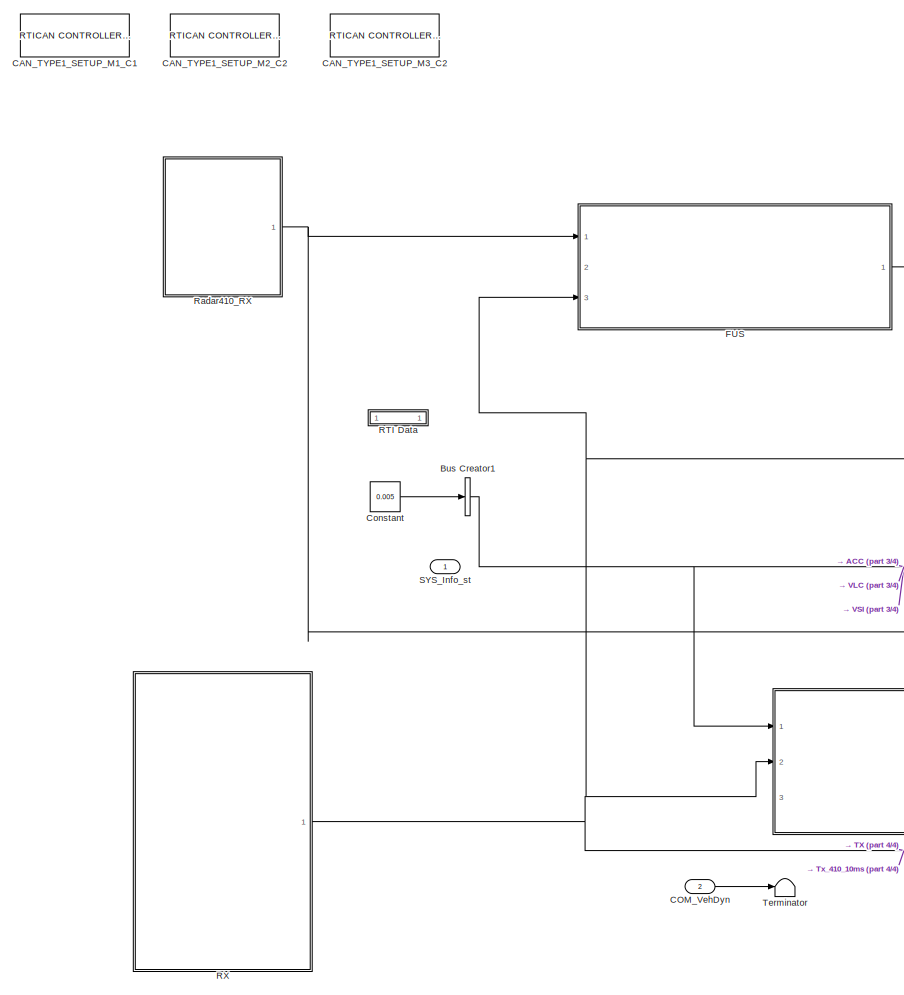
[diagram: root canvas - part 1/4, left side, full height]
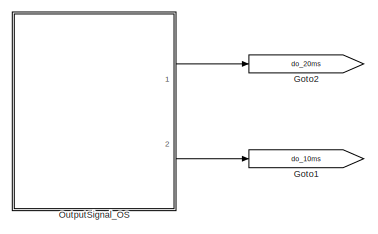
[diagram: root canvas - part 2/4, top right region]
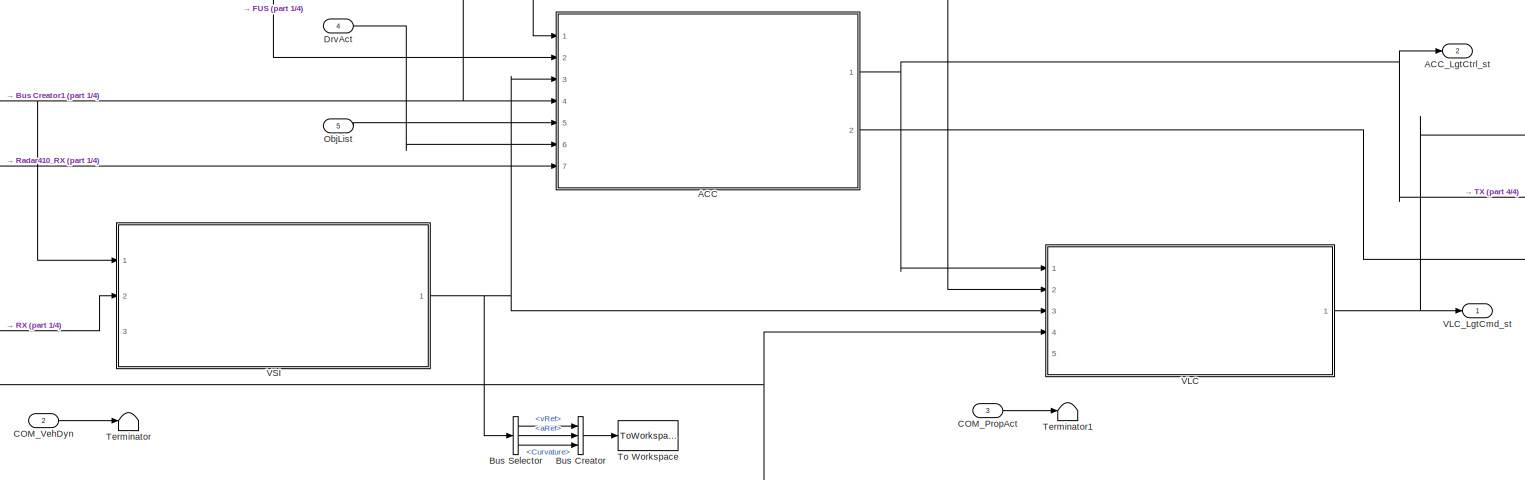
[diagram: root canvas - part 3/4, central region]
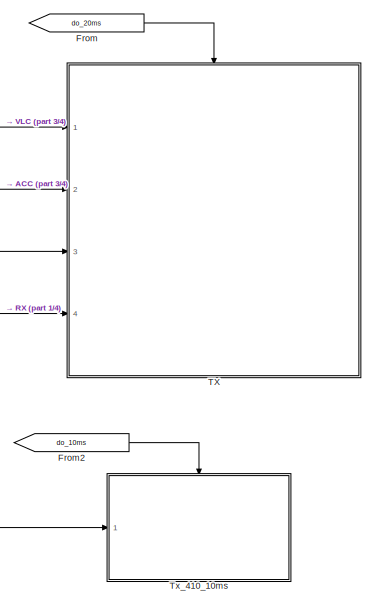
[diagram: root canvas - part 4/4, bottom right region]
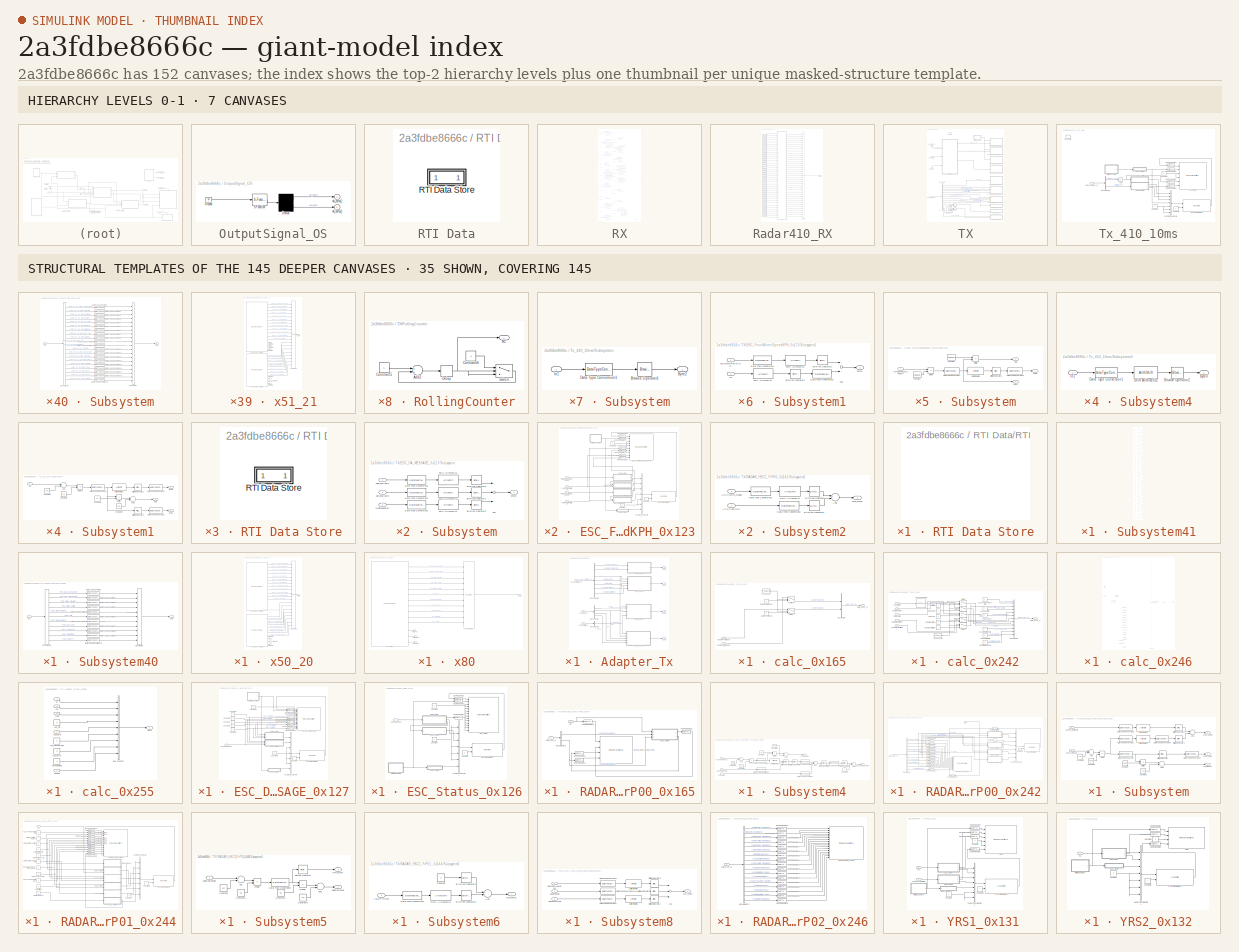
[diagram: thumbnail index - top-2 hierarchy levels (7 canvases) + 35 structural-template representatives of the remaining 145 canvases]
MODEL slx_2a3fdbe8666c
KIND model
CONFIG AbsTol = auto
CONFIG EnableMultiTasking = off
CONFIG FixedStep = 0.005
CONFIG MaxStep = auto
CONFIG MinStep = auto
CONFIG PostLoadFcn = if any(exist('dsrtsu_mdlpostloadfcn', 'file') ~= 0), dsrtsu_mdlpostloadfcn('Execute', bdroot); end
CONFIG RelTol = 1e-3
CONFIG SampleTimeConstraint = Unconstrained
CONFIG Solver = FixedStepDiscrete
CONFIG SolverName = FixedStepDiscrete
CONFIG StartTime = 0.0
CONFIG StopTime = inf
BLOCK [ModelReference] ACC
  ModelNameDialog = AccTarSel.slx
  ModelReferenceVersion = 1.242
  Ports = [7, 2]
BLOCK [Outport] ACC_LgtCtrl_st
  BusOutputAsStruct = on
  IconDisplay = Port number
  OutDataTypeStr = Bus: ACC_LGTCTRL_ST
  Port = 2
BLOCK [BusCreator] Bus Creator
  DisplayOption = bar
  InheritFromInputs = on
  Inputs = 3
  Ports = [3, 1]
BLOCK [BusCreator] Bus Creator1
  DisplayOption = bar
  InheritFromInputs = off
  Inputs = 1
  NonVirtualBus = on
  OutDataTypeStr = Bus: SYS_INFO_ST
  Ports = [1, 1]
BLOCK [BusSelector] Bus Selector
  OutputAsBus = off
  OutputSignals = vRef,aRef,Curvature
  Ports = [1, 3]
BLOCK [Reference] CAN_TYPE1_SETUP_M1_C1  REF=rtican/RTICAN
CONTROLLER SETUP 
  AttributesFormatString = Group Id: RTICAN1\n
  Ports = []
  SourceBlock = rtican/RTICAN\nCONTROLLER SETUP
  SourceProductName = dSPACE RTI CAN Blockset
  SourceType = RTI
BLOCK [Reference] CAN_TYPE1_SETUP_M2_C2  REF=rtican/RTICAN
CONTROLLER SETUP 
  AttributesFormatString = Group Id: RTICAN2\n
  Ports = []
  SourceBlock = rtican/RTICAN\nCONTROLLER SETUP
  SourceProductName = dSPACE RTI CAN Blockset
  SourceType = RTI
BLOCK [Reference] CAN_TYPE1_SETUP_M3_C2  REF=rtican/RTICAN
CONTROLLER SETUP 
  AttributesFormatString = Group Id: RTICAN3\n
  Ports = []
  SourceBlock = rtican/RTICAN\nCONTROLLER SETUP
  SourceProductName = dSPACE RTI CAN Blockset
  SourceType = RTI
BLOCK [Inport] COM_PropAct
  BusOutputAsStruct = on
  IconDisplay = Port number
  OutDataTypeStr = Bus: COM_PROPACT_ST
  Port = 3
BLOCK [Inport] COM_VehDyn
  BusOutputAsStruct = on
  IconDisplay = Port number
  OutDataTypeStr = Bus: COM_VEHDYN_ST
  Port = 2
BLOCK [Constant] Constant
  OutDataTypeStr = single
  Value = 0.005
BLOCK [Inport] DrvAct
  BusOutputAsStruct = on
  IconDisplay = Port number
  OutDataTypeStr = Bus: NET_DRVACTION_ST
  Port = 4
BLOCK [ModelReference] FUS
  ModelNameDialog = fusionAlg.slx
  ModelReferenceVersion = 1.157
  Ports = [3, 1]
BLOCK [From] From
  GotoTag = do_20ms
BLOCK [From] From2
  GotoTag = do_10ms
BLOCK [Goto] Goto1
  GotoTag = do_10ms
BLOCK [Goto] Goto2
  GotoTag = do_20ms
BLOCK [Inport] ObjList
  BusOutputAsStruct = on
  IconDisplay = Port number
  OutDataTypeStr = Bus: FUS_OBJDATA_ST
  Port = 5
BLOCK [SubSystem] OutputSignal_OS
  ErrorFcn = Stateflow.Translate.translate
  PermitHierarchicalResolution = ExplicitOnly
  Ports = [0, 2]
  RequestExecContextInheritance = off
  SFBlockType = Chart
  TreatAsAtomicUnit = on
BLOCK [Demux] OutputSignal_OS/ Demux 
  Outputs = 2
  Ports = [1, 2]
BLOCK [Ground] OutputSignal_OS/ Ground 
BLOCK [S-Function] OutputSignal_OS/ SFunction 
  EnableBusSupport = on
  FunctionName = sf_sfun
  PortCounts = [1 1]
  Ports = [1, 1]
  SFcnIsStateOwnerBlock = off
  SFunctionDeploymentMode = off
  Tag = Stateflow S-Function Intergration_ACC 6
BLOCK [Outport] OutputSignal_OS/do_10ms()
  IconDisplay = Port number
  Port = 2
BLOCK [Outport] OutputSignal_OS/do_20ms()
  IconDisplay = Port number
BLOCK [SubSystem] RTI Data
  CopyFcn = if exist('rtidc'), try,  rtidc('DataHostBlockClbCopy', gcbh); catch, disp(['Warning: ''CopyFcn'' for RTI Data block failed: ' lasterr]); end, end,
  DeleteFcn = if exist('rtidc'), try,  rtidc('DataHostBlockClbDelete', gcbh); catch, disp(['Warning: ''DeleteFcn'' for RTI Data block failed: ' lasterr]); end, end,
  LoadFcn = if exist('rtidc'), try,  rtidc('DataHostBlockClbLoad', gcbh); catch, disp(['Warning: ''LoadFcn'' for RTI Data block failed: ' lasterr]); end, end,
  ModelCloseFcn = if exist('rtidc'), try,  rtidc('DataHostBlockClbModelClose', gcbh); catch, disp(['Warning: ''ModelCloseFcn'' for RTI Data block failed: ' lasterr]); end, end,
  NameChangeFcn = if exist('rtidc'), try,  rtidc('DataHostBlockClbNameChange', gcbh); catch, disp(['Warning: ''NameChangeFcn'' for RTI Data block failed: ' lasterr]); end, end,
  Ports = []
  PostSaveFcn = if exist('rtidc'), try,  rtidc('DataHostBlockClbPostSave', gcbh); catch, disp(['Warning: ''PostSaveFcn'' for RTI Data block failed: ' lasterr]); end, end,
  PreSaveFcn = if exist('rtidc'), try,  rtidc('DataHostBlockClbPreSave', gcbh); catch, disp(['Warning: ''PreSaveFcn'' for RTI Data block failed: ' lasterr]); end, end,
  RequestExecContextInheritance = off
  Tag = struct('RTIDataServer',struct('RTIDataServerVs','2','RTIModelDescription','struct(''main'',''Intergration_ACC'',''sub'',''Intergration_ACC'',''isMp'',0)'))
BLOCK [SubSystem] RTI Data/RTI Data Store
  Ports = []
  RequestExecContextInheritance = off
  Tag = struct('private',struct('version',struct('dsVer',uint32(2)),'access',struct('modified',['05-Dec-2020 15:31:04'],'type','Model','isPerm',1)),'public',struct('main',struct('data',[]),'sub',struct('name',{{'Intergration_ACC'}},'data',{{struct('TH',struct('thTaskInfo',struct('taskType',{'TIMER','HWINT','TMRINT','SWINT','GLINT'},'tasksNumOf',{1,0,0,0,0},'srcIds',{{'TIMERA'},{},{},{},{}},'taskNames',{{[...<+775ch>
BLOCK [SubSystem] RTI Data/RTI Data Store/RTI Data Store
  Ports = []
  RequestExecContextInheritance = off
BLOCK [SubSystem] RTI Data/RTI Data Store/RTI Data Store/RTI Data Store
  Ports = []
  RequestExecContextInheritance = off
BLOCK [SubSystem] RTI Data/RTI Data Store/RTI Data Store/RTI Data Store/RTI Data Store
  Ports = []
  RequestExecContextInheritance = off
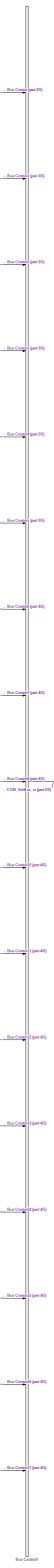
[diagram: RX - part 1/5, right side, full height]
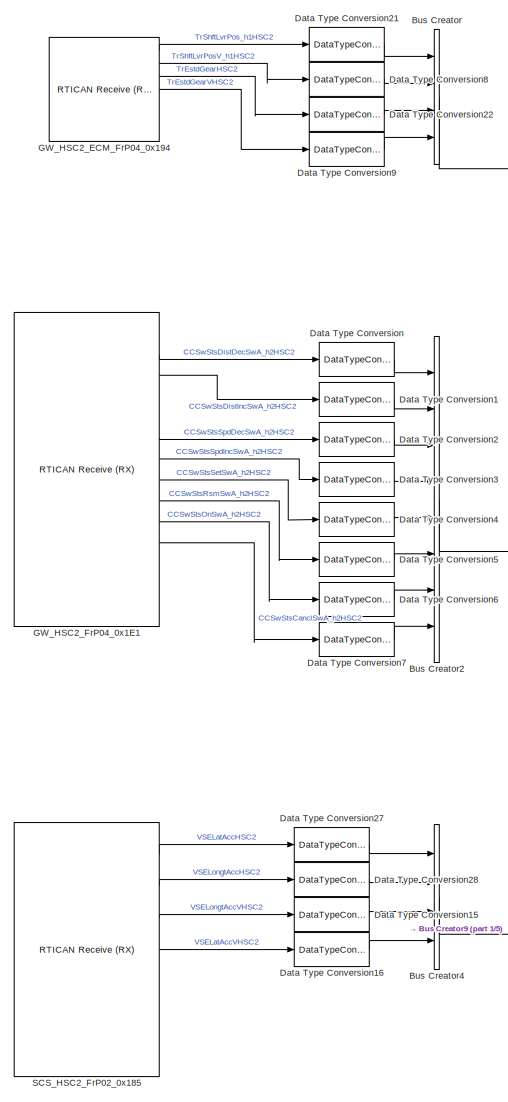
[diagram: RX - part 2/5, top left region]
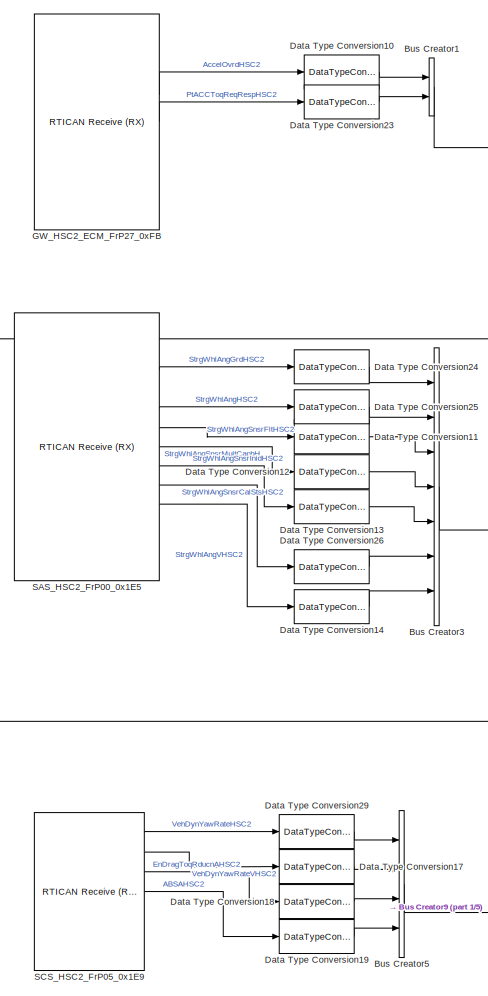
[diagram: RX - part 3/5, top center region]
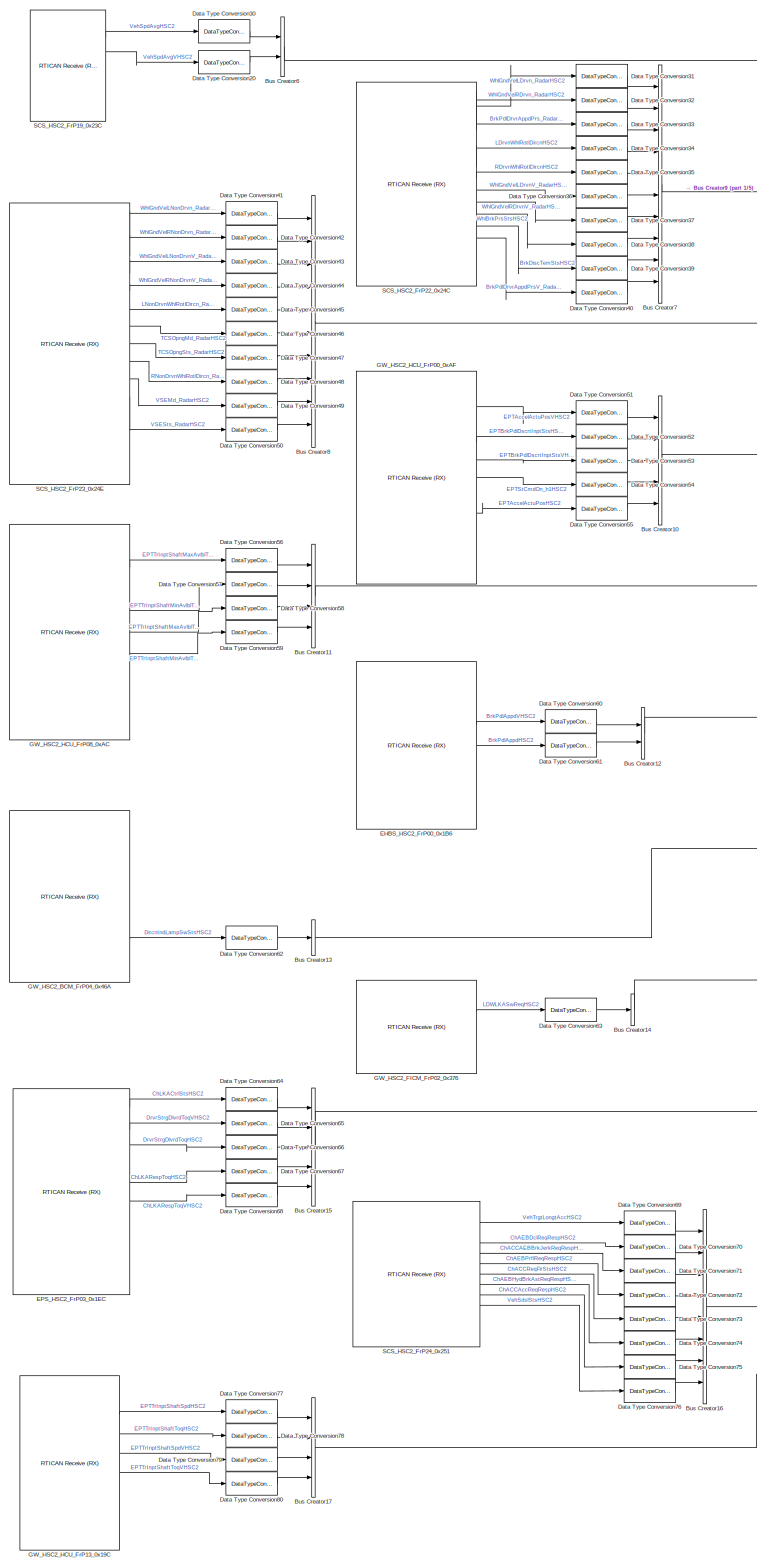
[diagram: RX - part 4/5, bottom left region]
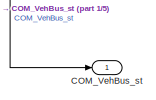
[diagram: RX - part 5/5, middle right region]
BLOCK [SubSystem] RX
  Ports = [0, 1]
  RequestExecContextInheritance = off
BLOCK [BusCreator] RX/Bus Creator
  DisplayOption = bar
  InheritFromInputs = off
  Inputs = 4
  NonVirtualBus = on
  OutDataTypeStr = Bus: x194
  Ports = [4, 1]
BLOCK [BusCreator] RX/Bus Creator1
  DisplayOption = bar
  InheritFromInputs = off
  Inputs = 2
  NonVirtualBus = on
  OutDataTypeStr = Bus: xFB
  Ports = [2, 1]
BLOCK [BusCreator] RX/Bus Creator10
  DisplayOption = bar
  InheritFromInputs = off
  Inputs = 5
  NonVirtualBus = on
  OutDataTypeStr = Bus: xAF
  Ports = [5, 1]
BLOCK [BusCreator] RX/Bus Creator11
  DisplayOption = bar
  InheritFromInputs = off
  Inputs = 4
  NonVirtualBus = on
  OutDataTypeStr = Bus: xAC
  Ports = [4, 1]
BLOCK [BusCreator] RX/Bus Creator12
  DisplayOption = bar
  InheritFromInputs = off
  Inputs = 2
  NonVirtualBus = on
  OutDataTypeStr = Bus: x1B6
  Ports = [2, 1]
BLOCK [BusCreator] RX/Bus Creator13
  DisplayOption = bar
  InheritFromInputs = off
  Inputs = 1
  NonVirtualBus = on
  OutDataTypeStr = Bus: x46A
  Ports = [1, 1]
BLOCK [BusCreator] RX/Bus Creator14
  DisplayOption = bar
  InheritFromInputs = off
  Inputs = 1
  NonVirtualBus = on
  OutDataTypeStr = Bus: x376
  Ports = [1, 1]
BLOCK [BusCreator] RX/Bus Creator15
  DisplayOption = bar
  InheritFromInputs = off
  Inputs = 5
  NonVirtualBus = on
  OutDataTypeStr = Bus: x1EC
  Ports = [5, 1]
BLOCK [BusCreator] RX/Bus Creator16
  DisplayOption = bar
  InheritFromInputs = off
  Inputs = 8
  NonVirtualBus = on
  OutDataTypeStr = Bus: x251
  Ports = [8, 1]
BLOCK [BusCreator] RX/Bus Creator17
  DisplayOption = bar
  InheritFromInputs = off
  Inputs = 4
  NonVirtualBus = on
  OutDataTypeStr = Bus: x19C
  Ports = [4, 1]
BLOCK [BusCreator] RX/Bus Creator2
  DisplayOption = bar
  InheritFromInputs = off
  Inputs = 8
  NonVirtualBus = on
  OutDataTypeStr = Bus: x1E1
  Ports = [8, 1]
BLOCK [BusCreator] RX/Bus Creator3
  DisplayOption = bar
  InheritFromInputs = off
  Inputs = 7
  NonVirtualBus = on
  OutDataTypeStr = Bus: x1E5
  Ports = [7, 1]
BLOCK [BusCreator] RX/Bus Creator4
  DisplayOption = bar
  InheritFromInputs = off
  Inputs = 4
  NonVirtualBus = on
  OutDataTypeStr = Bus: x185
  Ports = [4, 1]
BLOCK [BusCreator] RX/Bus Creator5
  DisplayOption = bar
  InheritFromInputs = off
  Inputs = 4
  NonVirtualBus = on
  OutDataTypeStr = Bus: x1E9
  Ports = [4, 1]
BLOCK [BusCreator] RX/Bus Creator6
  DisplayOption = bar
  InheritFromInputs = off
  Inputs = 2
  NonVirtualBus = on
  OutDataTypeStr = Bus: x23C
  Ports = [2, 1]
BLOCK [BusCreator] RX/Bus Creator7
  DisplayOption = bar
  InheritFromInputs = off
  Inputs = 10
  NonVirtualBus = on
  OutDataTypeStr = Bus: x24C
  Ports = [10, 1]
BLOCK [BusCreator] RX/Bus Creator8
  DisplayOption = bar
  InheritFromInputs = off
  Inputs = 10
  NonVirtualBus = on
  OutDataTypeStr = Bus: x24E
  Ports = [10, 1]
BLOCK [BusCreator] RX/Bus Creator9
  DisplayOption = bar
  InheritFromInputs = off
  Inputs = 17
  NonVirtualBus = on
  OutDataTypeStr = Bus: COM_VEHBUS_ST
  Ports = [17, 1]
BLOCK [Outport] RX/COM_VehBus_st
  BusOutputAsStruct = on
  IconDisplay = Port number
  OutDataTypeStr = Bus: COM_VEHBUS_ST
BLOCK [DataTypeConversion] RX/Data Type Conversion
  OutDataTypeStr = boolean
  RndMeth = Floor
  SaturateOnIntegerOverflow = off
BLOCK [DataTypeConversion] RX/Data Type Conversion1
  OutDataTypeStr = boolean
  RndMeth = Floor
  SaturateOnIntegerOverflow = off
BLOCK [DataTypeConversion] RX/Data Type Conversion10
  OutDataTypeStr = boolean
  RndMeth = Floor
  SaturateOnIntegerOverflow = off
BLOCK [DataTypeConversion] RX/Data Type Conversion11
  OutDataTypeStr = boolean
  RndMeth = Floor
  SaturateOnIntegerOverflow = off
BLOCK [DataTypeConversion] RX/Data Type Conversion12
  OutDataTypeStr = boolean
  RndMeth = Floor
  SaturateOnIntegerOverflow = off
BLOCK [DataTypeConversion] RX/Data Type Conversion13
  OutDataTypeStr = boolean
  RndMeth = Floor
  SaturateOnIntegerOverflow = off
BLOCK [DataTypeConversion] RX/Data Type Conversion14
  OutDataTypeStr = boolean
  RndMeth = Floor
  SaturateOnIntegerOverflow = off
BLOCK [DataTypeConversion] RX/Data Type Conversion15
  OutDataTypeStr = boolean
  RndMeth = Floor
  SaturateOnIntegerOverflow = off
BLOCK [DataTypeConversion] RX/Data Type Conversion16
  OutDataTypeStr = boolean
  RndMeth = Floor
  SaturateOnIntegerOverflow = off
BLOCK [DataTypeConversion] RX/Data Type Conversion17
  OutDataTypeStr = boolean
  RndMeth = Floor
  SaturateOnIntegerOverflow = off
BLOCK [DataTypeConversion] RX/Data Type Conversion18
  OutDataTypeStr = boolean
  RndMeth = Floor
  SaturateOnIntegerOverflow = off
BLOCK [DataTypeConversion] RX/Data Type Conversion19
  OutDataTypeStr = boolean
  RndMeth = Floor
  SaturateOnIntegerOverflow = off
BLOCK [DataTypeConversion] RX/Data Type Conversion2
  OutDataTypeStr = boolean
  RndMeth = Floor
  SaturateOnIntegerOverflow = off
BLOCK [DataTypeConversion] RX/Data Type Conversion20
  OutDataTypeStr = boolean
  RndMeth = Floor
  SaturateOnIntegerOverflow = off
BLOCK [DataTypeConversion] RX/Data Type Conversion21
  OutDataTypeStr = single
  RndMeth = Floor
  SaturateOnIntegerOverflow = off
BLOCK [DataTypeConversion] RX/Data Type Conversion22
  OutDataTypeStr = single
  RndMeth = Floor
  SaturateOnIntegerOverflow = off
BLOCK [DataTypeConversion] RX/Data Type Conversion23
  OutDataTypeStr = single
  RndMeth = Floor
  SaturateOnIntegerOverflow = off
BLOCK [DataTypeConversion] RX/Data Type Conversion24
  OutDataTypeStr = single
  RndMeth = Floor
  SaturateOnIntegerOverflow = off
BLOCK [DataTypeConversion] RX/Data Type Conversion25
  OutDataTypeStr = single
  RndMeth = Floor
  SaturateOnIntegerOverflow = off
BLOCK [DataTypeConversion] RX/Data Type Conversion26
  OutDataTypeStr = single
  RndMeth = Floor
  SaturateOnIntegerOverflow = off
BLOCK [DataTypeConversion] RX/Data Type Conversion27
  OutDataTypeStr = single
  RndMeth = Floor
  SaturateOnIntegerOverflow = off
BLOCK [DataTypeConversion] RX/Data Type Conversion28
  OutDataTypeStr = single
  RndMeth = Floor
  SaturateOnIntegerOverflow = off
BLOCK [DataTypeConversion] RX/Data Type Conversion29
  OutDataTypeStr = single
  RndMeth = Floor
  SaturateOnIntegerOverflow = off
BLOCK [DataTypeConversion] RX/Data Type Conversion3
  OutDataTypeStr = boolean
  RndMeth = Floor
  SaturateOnIntegerOverflow = off
BLOCK [DataTypeConversion] RX/Data Type Conversion30
  OutDataTypeStr = single
  RndMeth = Floor
  SaturateOnIntegerOverflow = off
BLOCK [DataTypeConversion] RX/Data Type Conversion31
  OutDataTypeStr = single
  RndMeth = Floor
  SaturateOnIntegerOverflow = off
BLOCK [DataTypeConversion] RX/Data Type Conversion32
  OutDataTypeStr = single
  RndMeth = Floor
  SaturateOnIntegerOverflow = off
BLOCK [DataTypeConversion] RX/Data Type Conversion33
  OutDataTypeStr = single
  RndMeth = Floor
  SaturateOnIntegerOverflow = off
BLOCK [DataTypeConversion] RX/Data Type Conversion34
  OutDataTypeStr = single
  RndMeth = Floor
  SaturateOnIntegerOverflow = off
BLOCK [DataTypeConversion] RX/Data Type Conversion35
  OutDataTypeStr = single
  RndMeth = Floor
  SaturateOnIntegerOverflow = off
BLOCK [DataTypeConversion] RX/Data Type Conversion36
  OutDataTypeStr = boolean
  RndMeth = Floor
  SaturateOnIntegerOverflow = off
BLOCK [DataTypeConversion] RX/Data Type Conversion37
  OutDataTypeStr = boolean
  RndMeth = Floor
  SaturateOnIntegerOverflow = off
BLOCK [DataTypeConversion] RX/Data Type Conversion38
  OutDataTypeStr = boolean
  RndMeth = Floor
  SaturateOnIntegerOverflow = off
BLOCK [DataTypeConversion] RX/Data Type Conversion39
  OutDataTypeStr = boolean
  RndMeth = Floor
  SaturateOnIntegerOverflow = off
BLOCK [DataTypeConversion] RX/Data Type Conversion4
  OutDataTypeStr = boolean
  RndMeth = Floor
  SaturateOnIntegerOverflow = off
BLOCK [DataTypeConversion] RX/Data Type Conversion40
  OutDataTypeStr = boolean
  RndMeth = Floor
  SaturateOnIntegerOverflow = off
BLOCK [DataTypeConversion] RX/Data Type Conversion41
  OutDataTypeStr = single
  RndMeth = Floor
  SaturateOnIntegerOverflow = off
BLOCK [DataTypeConversion] RX/Data Type Conversion42
  OutDataTypeStr = single
  RndMeth = Floor
  SaturateOnIntegerOverflow = off
BLOCK [DataTypeConversion] RX/Data Type Conversion43
  OutDataTypeStr = boolean
  RndMeth = Floor
  SaturateOnIntegerOverflow = off
BLOCK [DataTypeConversion] RX/Data Type Conversion44
  OutDataTypeStr = boolean
  RndMeth = Floor
  SaturateOnIntegerOverflow = off
BLOCK [DataTypeConversion] RX/Data Type Conversion45
  OutDataTypeStr = single
  RndMeth = Floor
  SaturateOnIntegerOverflow = off
BLOCK [DataTypeConversion] RX/Data Type Conversion46
  OutDataTypeStr = single
  RndMeth = Floor
  SaturateOnIntegerOverflow = off
BLOCK [DataTypeConversion] RX/Data Type Conversion47
  OutDataTypeStr = single
  RndMeth = Floor
  SaturateOnIntegerOverflow = off
BLOCK [DataTypeConversion] RX/Data Type Conversion48
  OutDataTypeStr = single
  RndMeth = Floor
  SaturateOnIntegerOverflow = off
BLOCK [DataTypeConversion] RX/Data Type Conversion49
  OutDataTypeStr = single
  RndMeth = Floor
  SaturateOnIntegerOverflow = off
BLOCK [DataTypeConversion] RX/Data Type Conversion5
  OutDataTypeStr = boolean
  RndMeth = Floor
  SaturateOnIntegerOverflow = off
BLOCK [DataTypeConversion] RX/Data Type Conversion50
  OutDataTypeStr = single
  RndMeth = Floor
  SaturateOnIntegerOverflow = off
BLOCK [DataTypeConversion] RX/Data Type Conversion51
  OutDataTypeStr = boolean
  RndMeth = Floor
  SaturateOnIntegerOverflow = off
BLOCK [DataTypeConversion] RX/Data Type Conversion52
  OutDataTypeStr = boolean
  RndMeth = Floor
  SaturateOnIntegerOverflow = off
BLOCK [DataTypeConversion] RX/Data Type Conversion53
  OutDataTypeStr = boolean
  RndMeth = Floor
  SaturateOnIntegerOverflow = off
BLOCK [DataTypeConversion] RX/Data Type Conversion54
  OutDataTypeStr = boolean
  RndMeth = Floor
  SaturateOnIntegerOverflow = off
BLOCK [DataTypeConversion] RX/Data Type Conversion55
  OutDataTypeStr = single
  RndMeth = Floor
  SaturateOnIntegerOverflow = off
BLOCK [DataTypeConversion] RX/Data Type Conversion56
  OutDataTypeStr = single
  RndMeth = Floor
  SaturateOnIntegerOverflow = off
BLOCK [DataTypeConversion] RX/Data Type Conversion57
  OutDataTypeStr = single
  RndMeth = Floor
  SaturateOnIntegerOverflow = off
BLOCK [DataTypeConversion] RX/Data Type Conversion58
  OutDataTypeStr = boolean
  RndMeth = Floor
  SaturateOnIntegerOverflow = off
BLOCK [DataTypeConversion] RX/Data Type Conversion59
  OutDataTypeStr = boolean
  RndMeth = Floor
  SaturateOnIntegerOverflow = off
BLOCK [DataTypeConversion] RX/Data Type Conversion6
  OutDataTypeStr = boolean
  RndMeth = Floor
  SaturateOnIntegerOverflow = off
BLOCK [DataTypeConversion] RX/Data Type Conversion60
  OutDataTypeStr = single
  RndMeth = Floor
  SaturateOnIntegerOverflow = off
BLOCK [DataTypeConversion] RX/Data Type Conversion61
  OutDataTypeStr = boolean
  RndMeth = Floor
  SaturateOnIntegerOverflow = off
BLOCK [DataTypeConversion] RX/Data Type Conversion62
  OutDataTypeStr = single
  RndMeth = Floor
  SaturateOnIntegerOverflow = off
BLOCK [DataTypeConversion] RX/Data Type Conversion63
  OutDataTypeStr = single
  RndMeth = Floor
  SaturateOnIntegerOverflow = off
BLOCK [DataTypeConversion] RX/Data Type Conversion64
  OutDataTypeStr = single
  RndMeth = Floor
  SaturateOnIntegerOverflow = off
BLOCK [DataTypeConversion] RX/Data Type Conversion65
  OutDataTypeStr = boolean
  RndMeth = Floor
  SaturateOnIntegerOverflow = off
BLOCK [DataTypeConversion] RX/Data Type Conversion66
  OutDataTypeStr = single
  RndMeth = Floor
  SaturateOnIntegerOverflow = off
BLOCK [DataTypeConversion] RX/Data Type Conversion67
  OutDataTypeStr = single
  RndMeth = Floor
  SaturateOnIntegerOverflow = off
BLOCK [DataTypeConversion] RX/Data Type Conversion68
  OutDataTypeStr = boolean
  RndMeth = Floor
  SaturateOnIntegerOverflow = off
BLOCK [DataTypeConversion] RX/Data Type Conversion69
  OutDataTypeStr = single
  RndMeth = Floor
  SaturateOnIntegerOverflow = off
BLOCK [DataTypeConversion] RX/Data Type Conversion7
  OutDataTypeStr = boolean
  RndMeth = Floor
  SaturateOnIntegerOverflow = off
BLOCK [DataTypeConversion] RX/Data Type Conversion70
  OutDataTypeStr = single
  RndMeth = Floor
  SaturateOnIntegerOverflow = off
BLOCK [DataTypeConversion] RX/Data Type Conversion71
  OutDataTypeStr = single
  RndMeth = Floor
  SaturateOnIntegerOverflow = off
BLOCK [DataTypeConversion] RX/Data Type Conversion72
  OutDataTypeStr = single
  RndMeth = Floor
  SaturateOnIntegerOverflow = off
BLOCK [DataTypeConversion] RX/Data Type Conversion73
  OutDataTypeStr = single
  RndMeth = Floor
  SaturateOnIntegerOverflow = off
BLOCK [DataTypeConversion] RX/Data Type Conversion74
  OutDataTypeStr = single
  RndMeth = Floor
  SaturateOnIntegerOverflow = off
BLOCK [DataTypeConversion] RX/Data Type Conversion75
  OutDataTypeStr = single
  RndMeth = Floor
  SaturateOnIntegerOverflow = off
BLOCK [DataTypeConversion] RX/Data Type Conversion76
  OutDataTypeStr = single
  RndMeth = Floor
  SaturateOnIntegerOverflow = off
BLOCK [DataTypeConversion] RX/Data Type Conversion77
  OutDataTypeStr = single
  RndMeth = Floor
  SaturateOnIntegerOverflow = off
BLOCK [DataTypeConversion] RX/Data Type Conversion78
  OutDataTypeStr = single
  RndMeth = Floor
  SaturateOnIntegerOverflow = off
BLOCK [DataTypeConversion] RX/Data Type Conversion79
  OutDataTypeStr = boolean
  RndMeth = Floor
  SaturateOnIntegerOverflow = off
BLOCK [DataTypeConversion] RX/Data Type Conversion8
  OutDataTypeStr = boolean
  RndMeth = Floor
  SaturateOnIntegerOverflow = off
BLOCK [DataTypeConversion] RX/Data Type Conversion80
  OutDataTypeStr = boolean
  RndMeth = Floor
  SaturateOnIntegerOverflow = off
BLOCK [DataTypeConversion] RX/Data Type Conversion9
  OutDataTypeStr = boolean
  RndMeth = Floor
  SaturateOnIntegerOverflow = off
BLOCK [Reference] RX/EHBS_HSC2_FrP00_0x1B6  REF=rtican/RTICAN
Receive (RX) 
  AttributesFormatString = Group Id: RTICAN1\n
  Ports = [0, 7]
  SourceBlock = rtican/RTICAN\nReceive (RX)
  SourceProductName = dSPACE RTI CAN Blockset
  SourceType = RTI
BLOCK [Reference] RX/EPS_HSC2_FrP03_0x1EC  REF=rtican/RTICAN
Receive (RX) 
  AttributesFormatString = Group Id: RTICAN1\n
  Ports = [0, 10]
  SourceBlock = rtican/RTICAN\nReceive (RX)
  SourceProductName = dSPACE RTI CAN Blockset
  SourceType = RTI
BLOCK [Reference] RX/GW_HSC2_BCM_FrP04_0x46A  REF=rtican/RTICAN
Receive (RX) 
  AttributesFormatString = Group Id: RTICAN1\n
  Ports = [0, 23]
  SourceBlock = rtican/RTICAN\nReceive (RX)
  SourceProductName = dSPACE RTI CAN Blockset
  SourceType = RTI
BLOCK [Reference] RX/GW_HSC2_ECM_FrP04_0x194  REF=rtican/RTICAN
Receive (RX) 
  AttributesFormatString = Group Id: RTICAN1\n
  Ports = [0, 7]
  SourceBlock = rtican/RTICAN\nReceive (RX)
  SourceProductName = dSPACE RTI CAN Blockset
  SourceType = RTI
BLOCK [Reference] RX/GW_HSC2_ECM_FrP27_0xFB  REF=rtican/RTICAN
Receive (RX) 
  AttributesFormatString = Group Id: RTICAN1\n
  Ports = [0, 7]
  SourceBlock = rtican/RTICAN\nReceive (RX)
  SourceProductName = dSPACE RTI CAN Blockset
  SourceType = RTI
BLOCK [Reference] RX/GW_HSC2_FICM_FrP02_0x376  REF=rtican/RTICAN
Receive (RX) 
  AttributesFormatString = Group Id: RTICAN1\n
  Ports = [0, 5]
  SourceBlock = rtican/RTICAN\nReceive (RX)
  SourceProductName = dSPACE RTI CAN Blockset
  SourceType = RTI
BLOCK [Reference] RX/GW_HSC2_FrP04_0x1E1  REF=rtican/RTICAN
Receive (RX) 
  AttributesFormatString = Group Id: RTICAN1\n
  Ports = [0, 14]
  SourceBlock = rtican/RTICAN\nReceive (RX)
  SourceProductName = dSPACE RTI CAN Blockset
  SourceType = RTI
BLOCK [Reference] RX/GW_HSC2_HCU_FrP00_0xAF  REF=rtican/RTICAN
Receive (RX) 
  AttributesFormatString = Group Id: RTICAN1\n
  Ports = [0, 11]
  SourceBlock = rtican/RTICAN\nReceive (RX)
  SourceProductName = dSPACE RTI CAN Blockset
  SourceType = RTI
BLOCK [Reference] RX/GW_HSC2_HCU_FrP08_0xAC  REF=rtican/RTICAN
Receive (RX) 
  AttributesFormatString = Group Id: RTICAN1\n
  Ports = [0, 9]
  SourceBlock = rtican/RTICAN\nReceive (RX)
  SourceProductName = dSPACE RTI CAN Blockset
  SourceType = RTI
BLOCK [Reference] RX/GW_HSC2_HCU_FrP13_0x19C  REF=rtican/RTICAN
Receive (RX) 
  AttributesFormatString = Group Id: RTICAN1\n
  Ports = [0, 8]
  SourceBlock = rtican/RTICAN\nReceive (RX)
  SourceProductName = dSPACE RTI CAN Blockset
  SourceType = RTI
BLOCK [Reference] RX/SAS_HSC2_FrP00_0x1E5  REF=rtican/RTICAN
Receive (RX) 
  AttributesFormatString = Group Id: RTICAN1\n
  Ports = [0, 13]
  SourceBlock = rtican/RTICAN\nReceive (RX)
  SourceProductName = dSPACE RTI CAN Blockset
  SourceType = RTI
BLOCK [Reference] RX/SCS_HSC2_FrP02_0x185  REF=rtican/RTICAN
Receive (RX) 
  AttributesFormatString = Group Id: RTICAN1\n
  Ports = [0, 7]
  SourceBlock = rtican/RTICAN\nReceive (RX)
  SourceProductName = dSPACE RTI CAN Blockset
  SourceType = RTI
BLOCK [Reference] RX/SCS_HSC2_FrP05_0x1E9  REF=rtican/RTICAN
Receive (RX) 
  AttributesFormatString = Group Id: RTICAN1\n
  Ports = [0, 7]
  SourceBlock = rtican/RTICAN\nReceive (RX)
  SourceProductName = dSPACE RTI CAN Blockset
  SourceType = RTI
BLOCK [Reference] RX/SCS_HSC2_FrP19_0x23C  REF=rtican/RTICAN
Receive (RX) 
  AttributesFormatString = Group Id: RTICAN1\n
  Ports = [0, 7]
  SourceBlock = rtican/RTICAN\nReceive (RX)
  SourceProductName = dSPACE RTI CAN Blockset
  SourceType = RTI
BLOCK [Reference] RX/SCS_HSC2_FrP22_0x24C  REF=rtican/RTICAN
Receive (RX) 
  AttributesFormatString = Group Id: RTICAN1\n
  Ports = [0, 16]
  SourceBlock = rtican/RTICAN\nReceive (RX)
  SourceProductName = dSPACE RTI CAN Blockset
  SourceType = RTI
BLOCK [Reference] RX/SCS_HSC2_FrP23_0x24E  REF=rtican/RTICAN
Receive (RX) 
  AttributesFormatString = Group Id: RTICAN1\n
  Ports = [0, 15]
  SourceBlock = rtican/RTICAN\nReceive (RX)
  SourceProductName = dSPACE RTI CAN Blockset
  SourceType = RTI
BLOCK [Reference] RX/SCS_HSC2_FrP24_0x251  REF=rtican/RTICAN
Receive (RX) 
  AttributesFormatString = Group Id: RTICAN1\n
  Ports = [0, 13]
  SourceBlock = rtican/RTICAN\nReceive (RX)
  SourceProductName = dSPACE RTI CAN Blockset
  SourceType = RTI
BLOCK [SubSystem] Radar410_RX
  Ports = [0, 1]
  RequestExecContextInheritance = off
BLOCK [BusCreator] Radar410_RX/Bus Creator
  DisplayOption = bar
  InheritFromInputs = off
  Inputs = 41
  NonVirtualBus = on
  OutDataTypeStr = Bus: Radar410_Info_ST
  Ports = [41, 1]
BLOCK [Outport] Radar410_RX/Radar_Rx
  IconDisplay = Port number
  OutDataTypeStr = Bus: Radar410_Info_ST
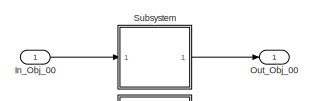
[diagram: Radar410_RX/Subsystem41 - part 1/7, full width, top band]
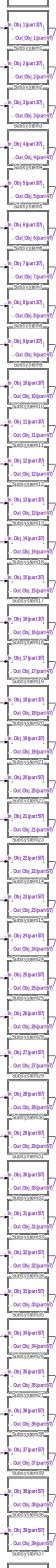
[diagram: Radar410_RX/Subsystem41 - part 2/7, center side, full height]
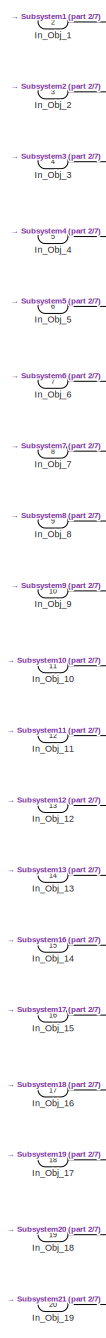
[diagram: Radar410_RX/Subsystem41 - part 3/7, top left region]
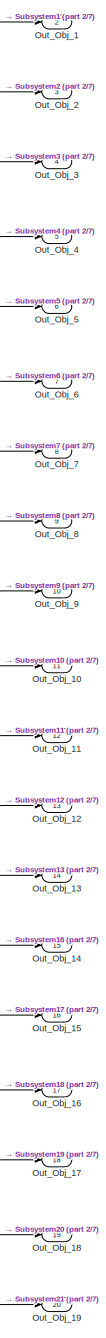
[diagram: Radar410_RX/Subsystem41 - part 4/7, top right region]
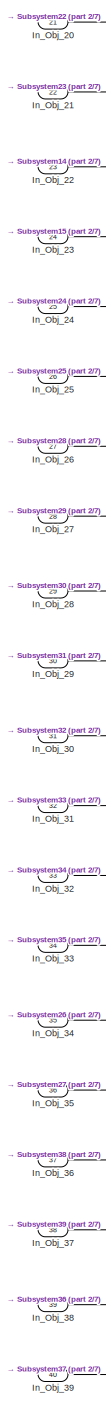
[diagram: Radar410_RX/Subsystem41 - part 5/7, bottom left region]
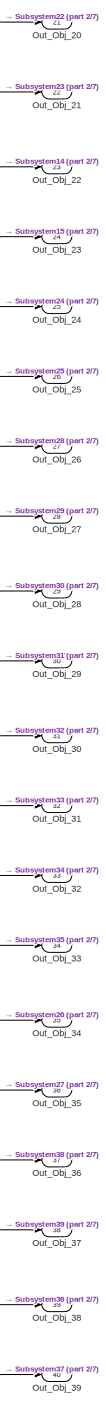
[diagram: Radar410_RX/Subsystem41 - part 6/7, bottom right region]
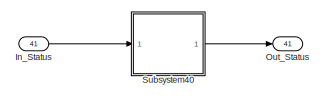
[diagram: Radar410_RX/Subsystem41 - part 7/7, full width, bottom band]
BLOCK [SubSystem] Radar410_RX/Subsystem41
  Ports = [41, 41]
  RequestExecContextInheritance = off
BLOCK [Inport] Radar410_RX/Subsystem41/In_Obj_00
  IconDisplay = Port number
BLOCK [Inport] Radar410_RX/Subsystem41/In_Obj_1
  IconDisplay = Port number
  Port = 2
BLOCK [Inport] Radar410_RX/Subsystem41/In_Obj_10
  IconDisplay = Port number
  Port = 11
BLOCK [Inport] Radar410_RX/Subsystem41/In_Obj_11
  IconDisplay = Port number
  Port = 12
BLOCK [Inport] Radar410_RX/Subsystem41/In_Obj_12
  IconDisplay = Port number
  Port = 13
BLOCK [Inport] Radar410_RX/Subsystem41/In_Obj_13
  IconDisplay = Port number
  Port = 14
BLOCK [Inport] Radar410_RX/Subsystem41/In_Obj_14
  IconDisplay = Port number
  Port = 15
BLOCK [Inport] Radar410_RX/Subsystem41/In_Obj_15
  IconDisplay = Port number
  Port = 16
BLOCK [Inport] Radar410_RX/Subsystem41/In_Obj_16
  IconDisplay = Port number
  Port = 17
BLOCK [Inport] Radar410_RX/Subsystem41/In_Obj_17
  IconDisplay = Port number
  Port = 18
BLOCK [Inport] Radar410_RX/Subsystem41/In_Obj_18
  IconDisplay = Port number
  Port = 19
BLOCK [Inport] Radar410_RX/Subsystem41/In_Obj_19
  IconDisplay = Port number
  Port = 20
BLOCK [Inport] Radar410_RX/Subsystem41/In_Obj_2
  IconDisplay = Port number
  Port = 3
BLOCK [Inport] Radar410_RX/Subsystem41/In_Obj_20
  IconDisplay = Port number
  Port = 21
BLOCK [Inport] Radar410_RX/Subsystem41/In_Obj_21
  IconDisplay = Port number
  Port = 22
BLOCK [Inport] Radar410_RX/Subsystem41/In_Obj_22
  IconDisplay = Port number
  Port = 23
BLOCK [Inport] Radar410_RX/Subsystem41/In_Obj_23
  IconDisplay = Port number
  Port = 24
BLOCK [Inport] Radar410_RX/Subsystem41/In_Obj_24
  IconDisplay = Port number
  Port = 25
BLOCK [Inport] Radar410_RX/Subsystem41/In_Obj_25
  IconDisplay = Port number
  Port = 26
BLOCK [Inport] Radar410_RX/Subsystem41/In_Obj_26
  IconDisplay = Port number
  Port = 27
BLOCK [Inport] Radar410_RX/Subsystem41/In_Obj_27
  IconDisplay = Port number
  Port = 28
BLOCK [Inport] Radar410_RX/Subsystem41/In_Obj_28
  IconDisplay = Port number
  Port = 29
BLOCK [Inport] Radar410_RX/Subsystem41/In_Obj_29
  IconDisplay = Port number
  Port = 30
BLOCK [Inport] Radar410_RX/Subsystem41/In_Obj_3
  IconDisplay = Port number
  Port = 4
BLOCK [Inport] Radar410_RX/Subsystem41/In_Obj_30
  IconDisplay = Port number
  Port = 31
BLOCK [Inport] Radar410_RX/Subsystem41/In_Obj_31
  IconDisplay = Port number
  Port = 32
BLOCK [Inport] Radar410_RX/Subsystem41/In_Obj_32
  IconDisplay = Port number
  Port = 33
BLOCK [Inport] Radar410_RX/Subsystem41/In_Obj_33
  IconDisplay = Port number
  Port = 34
BLOCK [Inport] Radar410_RX/Subsystem41/In_Obj_34
  IconDisplay = Port number
  Port = 35
BLOCK [Inport] Radar410_RX/Subsystem41/In_Obj_35
  IconDisplay = Port number
  Port = 36
BLOCK [Inport] Radar410_RX/Subsystem41/In_Obj_36
  IconDisplay = Port number
  Port = 37
BLOCK [Inport] Radar410_RX/Subsystem41/In_Obj_37
  IconDisplay = Port number
  Port = 38
BLOCK [Inport] Radar410_RX/Subsystem41/In_Obj_38
  IconDisplay = Port number
  Port = 39
BLOCK [Inport] Radar410_RX/Subsystem41/In_Obj_39
  IconDisplay = Port number
  Port = 40
BLOCK [Inport] Radar410_RX/Subsystem41/In_Obj_4
  IconDisplay = Port number
  Port = 5
BLOCK [Inport] Radar410_RX/Subsystem41/In_Obj_5
  IconDisplay = Port number
  Port = 6
BLOCK [Inport] Radar410_RX/Subsystem41/In_Obj_6
  IconDisplay = Port number
  Port = 7
BLOCK [Inport] Radar410_RX/Subsystem41/In_Obj_7
  IconDisplay = Port number
  Port = 8
BLOCK [Inport] Radar410_RX/Subsystem41/In_Obj_8
  IconDisplay = Port number
  Port = 9
BLOCK [Inport] Radar410_RX/Subsystem41/In_Obj_9
  IconDisplay = Port number
  Port = 10
BLOCK [Inport] Radar410_RX/Subsystem41/In_Status
  IconDisplay = Port number
  Port = 41
BLOCK [Outport] Radar410_RX/Subsystem41/Out_Obj_00
  IconDisplay = Port number
  OutDataTypeStr = Bus: Obj_Data
BLOCK [Outport] Radar410_RX/Subsystem41/Out_Obj_1
  IconDisplay = Port number
  OutDataTypeStr = Bus: Obj_Data
  Port = 2
BLOCK [Outport] Radar410_RX/Subsystem41/Out_Obj_10
  IconDisplay = Port number
  OutDataTypeStr = Bus: Obj_Data
  Port = 11
BLOCK [Outport] Radar410_RX/Subsystem41/Out_Obj_11
  IconDisplay = Port number
  OutDataTypeStr = Bus: Obj_Data
  Port = 12
BLOCK [Outport] Radar410_RX/Subsystem41/Out_Obj_12
  IconDisplay = Port number
  OutDataTypeStr = Bus: Obj_Data
  Port = 13
BLOCK [Outport] Radar410_RX/Subsystem41/Out_Obj_13
  IconDisplay = Port number
  OutDataTypeStr = Bus: Obj_Data
  Port = 14
BLOCK [Outport] Radar410_RX/Subsystem41/Out_Obj_14
  IconDisplay = Port number
  OutDataTypeStr = Bus: Obj_Data
  Port = 15
BLOCK [Outport] Radar410_RX/Subsystem41/Out_Obj_15
  IconDisplay = Port number
  OutDataTypeStr = Bus: Obj_Data
  Port = 16
BLOCK [Outport] Radar410_RX/Subsystem41/Out_Obj_16
  IconDisplay = Port number
  OutDataTypeStr = Bus: Obj_Data
  Port = 17
BLOCK [Outport] Radar410_RX/Subsystem41/Out_Obj_17
  IconDisplay = Port number
  OutDataTypeStr = Bus: Obj_Data
  Port = 18
BLOCK [Outport] Radar410_RX/Subsystem41/Out_Obj_18
  IconDisplay = Port number
  OutDataTypeStr = Bus: Obj_Data
  Port = 19
BLOCK [Outport] Radar410_RX/Subsystem41/Out_Obj_19
  IconDisplay = Port number
  OutDataTypeStr = Bus: Obj_Data
  Port = 20
BLOCK [Outport] Radar410_RX/Subsystem41/Out_Obj_2
  IconDisplay = Port number
  OutDataTypeStr = Bus: Obj_Data
  Port = 3
BLOCK [Outport] Radar410_RX/Subsystem41/Out_Obj_20
  IconDisplay = Port number
  OutDataTypeStr = Bus: Obj_Data
  Port = 21
BLOCK [Outport] Radar410_RX/Subsystem41/Out_Obj_21
  IconDisplay = Port number
  OutDataTypeStr = Bus: Obj_Data
  Port = 22
BLOCK [Outport] Radar410_RX/Subsystem41/Out_Obj_22
  IconDisplay = Port number
  OutDataTypeStr = Bus: Obj_Data
  Port = 23
BLOCK [Outport] Radar410_RX/Subsystem41/Out_Obj_23
  IconDisplay = Port number
  OutDataTypeStr = Bus: Obj_Data
  Port = 24
BLOCK [Outport] Radar410_RX/Subsystem41/Out_Obj_24
  IconDisplay = Port number
  OutDataTypeStr = Bus: Obj_Data
  Port = 25
BLOCK [Outport] Radar410_RX/Subsystem41/Out_Obj_25
  IconDisplay = Port number
  OutDataTypeStr = Bus: Obj_Data
  Port = 26
BLOCK [Outport] Radar410_RX/Subsystem41/Out_Obj_26
  IconDisplay = Port number
  OutDataTypeStr = Bus: Obj_Data
  Port = 27
BLOCK [Outport] Radar410_RX/Subsystem41/Out_Obj_27
  IconDisplay = Port number
  OutDataTypeStr = Bus: Obj_Data
  Port = 28
BLOCK [Outport] Radar410_RX/Subsystem41/Out_Obj_28
  IconDisplay = Port number
  OutDataTypeStr = Bus: Obj_Data
  Port = 29
BLOCK [Outport] Radar410_RX/Subsystem41/Out_Obj_29
  IconDisplay = Port number
  OutDataTypeStr = Bus: Obj_Data
  Port = 30
BLOCK [Outport] Radar410_RX/Subsystem41/Out_Obj_3
  IconDisplay = Port number
  OutDataTypeStr = Bus: Obj_Data
  Port = 4
BLOCK [Outport] Radar410_RX/Subsystem41/Out_Obj_30
  IconDisplay = Port number
  OutDataTypeStr = Bus: Obj_Data
  Port = 31
BLOCK [Outport] Radar410_RX/Subsystem41/Out_Obj_31
  IconDisplay = Port number
  OutDataTypeStr = Bus: Obj_Data
  Port = 32
BLOCK [Outport] Radar410_RX/Subsystem41/Out_Obj_32
  IconDisplay = Port number
  OutDataTypeStr = Bus: Obj_Data
  Port = 33
BLOCK [Outport] Radar410_RX/Subsystem41/Out_Obj_33
  IconDisplay = Port number
  OutDataTypeStr = Bus: Obj_Data
  Port = 34
BLOCK [Outport] Radar410_RX/Subsystem41/Out_Obj_34
  IconDisplay = Port number
  OutDataTypeStr = Bus: Obj_Data
  Port = 35
BLOCK [Outport] Radar410_RX/Subsystem41/Out_Obj_35
  IconDisplay = Port number
  OutDataTypeStr = Bus: Obj_Data
  Port = 36
BLOCK [Outport] Radar410_RX/Subsystem41/Out_Obj_36
  IconDisplay = Port number
  OutDataTypeStr = Bus: Obj_Data
  Port = 37
BLOCK [Outport] Radar410_RX/Subsystem41/Out_Obj_37
  IconDisplay = Port number
  OutDataTypeStr = Bus: Obj_Data
  Port = 38
BLOCK [Outport] Radar410_RX/Subsystem41/Out_Obj_38
  IconDisplay = Port number
  OutDataTypeStr = Bus: Obj_Data
  Port = 39
BLOCK [Outport] Radar410_RX/Subsystem41/Out_Obj_39
  IconDisplay = Port number
  OutDataTypeStr = Bus: Obj_Data
  Port = 40
BLOCK [Outport] Radar410_RX/Subsystem41/Out_Obj_4
  IconDisplay = Port number
  OutDataTypeStr = Bus: Obj_Data
  Port = 5
BLOCK [Outport] Radar410_RX/Subsystem41/Out_Obj_5
  IconDisplay = Port number
  OutDataTypeStr = Bus: Obj_Data
  Port = 6
BLOCK [Outport] Radar410_RX/Subsystem41/Out_Obj_6
  IconDisplay = Port number
  OutDataTypeStr = Bus: Obj_Data
  Port = 7
BLOCK [Outport] Radar410_RX/Subsystem41/Out_Obj_7
  IconDisplay = Port number
  OutDataTypeStr = Bus: Obj_Data
  Port = 8
BLOCK [Outport] Radar410_RX/Subsystem41/Out_Obj_8
  IconDisplay = Port number
  OutDataTypeStr = Bus: Obj_Data
  Port = 9
BLOCK [Outport] Radar410_RX/Subsystem41/Out_Obj_9
  IconDisplay = Port number
  OutDataTypeStr = Bus: Obj_Data
  Port = 10
BLOCK [Outport] Radar410_RX/Subsystem41/Out_Status
  IconDisplay = Port number
  OutDataTypeStr = Bus: Radar_Status
  Port = 41
BLOCK [SubSystem] Radar410_RX/Subsystem41/Subsystem
  Ports = [1, 1]
  RequestExecContextInheritance = off
BLOCK [BusCreator] Radar410_RX/Subsystem41/Subsystem/Bus Creator
  DisplayOption = bar
  InheritFromInputs = off
  Inputs = 20
  NonVirtualBus = on
  OutDataTypeStr = Bus: Obj_Data
  Ports = [20, 1]
BLOCK [BusSelector] Radar410_RX/Subsystem41/Subsystem/Bus Selector
  OutputAsBus = off
  OutputSignals = FRS_P1_00_Msg_CheckSum,FRS_P1_00_Msg_AliveCounter,FRS_P1_00_Obj_ExstProb,FRS_P1_00_Obj_XVelRel_Stdev,FRS_P1_00_Obj_XAccRel,FRS_P1_00_Obj_ObstacleProb,FRS_P1_00_Obj_MotionPattern,FRS_P1_00_Obj_YPos_Stdev,FRS_P1_00_Obj_ValidFlag,FRS_P1_00_Obj_XPos_Stdev,FRS_P1_00_Obj_UpdateFlag,FRS_P1_00_Obj_ID,FRS_P2_00_Msg_CheckSum,FRS_P2_00_Msg_AliveCounter,FRS_P2_00_Obj_MeasFlag,FRS_P2_00_Obj_YVelRel,FRS_P2_00_O...<+67ch>
  Ports = [1, 20]
BLOCK [DataTypeConversion] Radar410_RX/Subsystem41/Subsystem/Data Type Conversion
  OutDataTypeStr = single
  RndMeth = Floor
  SaturateOnIntegerOverflow = off
BLOCK [DataTypeConversion] Radar410_RX/Subsystem41/Subsystem/Data Type Conversion1
  OutDataTypeStr = single
  RndMeth = Floor
  SaturateOnIntegerOverflow = off
BLOCK [DataTypeConversion] Radar410_RX/Subsystem41/Subsystem/Data Type Conversion10
  OutDataTypeStr = single
  RndMeth = Floor
  SaturateOnIntegerOverflow = off
BLOCK [DataTypeConversion] Radar410_RX/Subsystem41/Subsystem/Data Type Conversion11
  OutDataTypeStr = single
  RndMeth = Floor
  SaturateOnIntegerOverflow = off
BLOCK [DataTypeConversion] Radar410_RX/Subsystem41/Subsystem/Data Type Conversion12
  OutDataTypeStr = single
  RndMeth = Floor
  SaturateOnIntegerOverflow = off
BLOCK [DataTypeConversion] Radar410_RX/Subsystem41/Subsystem/Data Type Conversion13
  OutDataTypeStr = single
  RndMeth = Floor
  SaturateOnIntegerOverflow = off
BLOCK [DataTypeConversion] Radar410_RX/Subsystem41/Subsystem/Data Type Conversion14
  OutDataTypeStr = single
  RndMeth = Floor
  SaturateOnIntegerOverflow = off
BLOCK [DataTypeConversion] Radar410_RX/Subsystem41/Subsystem/Data Type Conversion15
  OutDataTypeStr = single
  RndMeth = Floor
  SaturateOnIntegerOverflow = off
BLOCK [DataTypeConversion] Radar410_RX/Subsystem41/Subsystem/Data Type Conversion16
  OutDataTypeStr = single
  RndMeth = Floor
  SaturateOnIntegerOverflow = off
BLOCK [DataTypeConversion] Radar410_RX/Subsystem41/Subsystem/Data Type Conversion17
  OutDataTypeStr = single
  RndMeth = Floor
  SaturateOnIntegerOverflow = off
BLOCK [DataTypeConversion] Radar410_RX/Subsystem41/Subsystem/Data Type Conversion18
  OutDataTypeStr = single
  RndMeth = Floor
  SaturateOnIntegerOverflow = off
BLOCK [DataTypeConversion] Radar410_RX/Subsystem41/Subsystem/Data Type Conversion19
  OutDataTypeStr = single
  RndMeth = Floor
  SaturateOnIntegerOverflow = off
BLOCK [DataTypeConversion] Radar410_RX/Subsystem41/Subsystem/Data Type Conversion2
  OutDataTypeStr = single
  RndMeth = Floor
  SaturateOnIntegerOverflow = off
BLOCK [DataTypeConversion] Radar410_RX/Subsystem41/Subsystem/Data Type Conversion3
  OutDataTypeStr = single
  RndMeth = Floor
  SaturateOnIntegerOverflow = off
BLOCK [DataTypeConversion] Radar410_RX/Subsystem41/Subsystem/Data Type Conversion4
  OutDataTypeStr = single
  RndMeth = Floor
  SaturateOnIntegerOverflow = off
BLOCK [DataTypeConversion] Radar410_RX/Subsystem41/Subsystem/Data Type Conversion5
  OutDataTypeStr = single
  RndMeth = Floor
  SaturateOnIntegerOverflow = off
BLOCK [DataTypeConversion] Radar410_RX/Subsystem41/Subsystem/Data Type Conversion6
  OutDataTypeStr = single
  RndMeth = Floor
  SaturateOnIntegerOverflow = off
BLOCK [DataTypeConversion] Radar410_RX/Subsystem41/Subsystem/Data Type Conversion7
  OutDataTypeStr = single
  RndMeth = Floor
  SaturateOnIntegerOverflow = off
BLOCK [DataTypeConversion] Radar410_RX/Subsystem41/Subsystem/Data Type Conversion8
  OutDataTypeStr = single
  RndMeth = Floor
  SaturateOnIntegerOverflow = off
BLOCK [DataTypeConversion] Radar410_RX/Subsystem41/Subsystem/Data Type Conversion9
  OutDataTypeStr = single
  RndMeth = Floor
  SaturateOnIntegerOverflow = off
BLOCK [Inport] Radar410_RX/Subsystem41/Subsystem/In1
  IconDisplay = Port number
BLOCK [Outport] Radar410_RX/Subsystem41/Subsystem/Out1
  IconDisplay = Port number
  OutDataTypeStr = Bus: Obj_Data
BLOCK [SubSystem] Radar410_RX/Subsystem41/Subsystem1
  Ports = [1, 1]
  RequestExecContextInheritance = off
BLOCK [BusCreator] Radar410_RX/Subsystem41/Subsystem1/Bus Creator
  DisplayOption = bar
  InheritFromInputs = off
  Inputs = 20
  NonVirtualBus = on
  OutDataTypeStr = Bus: Obj_Data
  Ports = [20, 1]
BLOCK [BusSelector] Radar410_RX/Subsystem41/Subsystem1/Bus Selector
  OutputAsBus = off
  OutputSignals = FRS_P1_01_Msg_CheckSum,FRS_P1_01_Msg_AliveCounter,FRS_P1_01_Obj_ExstProb,FRS_P1_01_Obj_XVelRel_Stdev,FRS_P1_01_Obj_XAccRel,FRS_P1_01_Obj_ObstacleProb,FRS_P1_01_Obj_MotionPattern,FRS_P1_01_Obj_YPos_Stdev,FRS_P1_01_Obj_ValidFlag,FRS_P1_01_Obj_XPos_Stdev,FRS_P1_01_Obj_UpdateFlag,FRS_P1_01_Obj_ID,FRS_P2_01_Msg_CheckSum,FRS_P2_01_Msg_AliveCounter,FRS_P2_01_Obj_MeasFlag,FRS_P2_01_Obj_YVelRel,FRS_P2_01_O...<+67ch>
  Ports = [1, 20]
BLOCK [DataTypeConversion] Radar410_RX/Subsystem41/Subsystem1/Data Type Conversion
  OutDataTypeStr = single
  RndMeth = Floor
  SaturateOnIntegerOverflow = off
BLOCK [DataTypeConversion] Radar410_RX/Subsystem41/Subsystem1/Data Type Conversion1
  OutDataTypeStr = single
  RndMeth = Floor
  SaturateOnIntegerOverflow = off
BLOCK [DataTypeConversion] Radar410_RX/Subsystem41/Subsystem1/Data Type Conversion10
  OutDataTypeStr = single
  RndMeth = Floor
  SaturateOnIntegerOverflow = off
BLOCK [DataTypeConversion] Radar410_RX/Subsystem41/Subsystem1/Data Type Conversion11
  OutDataTypeStr = single
  RndMeth = Floor
  SaturateOnIntegerOverflow = off
BLOCK [DataTypeConversion] Radar410_RX/Subsystem41/Subsystem1/Data Type Conversion12
  OutDataTypeStr = single
  RndMeth = Floor
  SaturateOnIntegerOverflow = off
BLOCK [DataTypeConversion] Radar410_RX/Subsystem41/Subsystem1/Data Type Conversion13
  OutDataTypeStr = single
  RndMeth = Floor
  SaturateOnIntegerOverflow = off
BLOCK [DataTypeConversion] Radar410_RX/Subsystem41/Subsystem1/Data Type Conversion14
  OutDataTypeStr = single
  RndMeth = Floor
  SaturateOnIntegerOverflow = off
BLOCK [DataTypeConversion] Radar410_RX/Subsystem41/Subsystem1/Data Type Conversion15
  OutDataTypeStr = single
  RndMeth = Floor
  SaturateOnIntegerOverflow = off
BLOCK [DataTypeConversion] Radar410_RX/Subsystem41/Subsystem1/Data Type Conversion16
  OutDataTypeStr = single
  RndMeth = Floor
  SaturateOnIntegerOverflow = off
BLOCK [DataTypeConversion] Radar410_RX/Subsystem41/Subsystem1/Data Type Conversion17
  OutDataTypeStr = single
  RndMeth = Floor
  SaturateOnIntegerOverflow = off
BLOCK [DataTypeConversion] Radar410_RX/Subsystem41/Subsystem1/Data Type Conversion18
  OutDataTypeStr = single
  RndMeth = Floor
  SaturateOnIntegerOverflow = off
BLOCK [DataTypeConversion] Radar410_RX/Subsystem41/Subsystem1/Data Type Conversion19
  OutDataTypeStr = single
  RndMeth = Floor
  SaturateOnIntegerOverflow = off
BLOCK [DataTypeConversion] Radar410_RX/Subsystem41/Subsystem1/Data Type Conversion2
  OutDataTypeStr = single
  RndMeth = Floor
  SaturateOnIntegerOverflow = off
BLOCK [DataTypeConversion] Radar410_RX/Subsystem41/Subsystem1/Data Type Conversion3
  OutDataTypeStr = single
  RndMeth = Floor
  SaturateOnIntegerOverflow = off
BLOCK [DataTypeConversion] Radar410_RX/Subsystem41/Subsystem1/Data Type Conversion4
  OutDataTypeStr = single
  RndMeth = Floor
  SaturateOnIntegerOverflow = off
BLOCK [DataTypeConversion] Radar410_RX/Subsystem41/Subsystem1/Data Type Conversion5
  OutDataTypeStr = single
  RndMeth = Floor
  SaturateOnIntegerOverflow = off
BLOCK [DataTypeConversion] Radar410_RX/Subsystem41/Subsystem1/Data Type Conversion6
  OutDataTypeStr = single
  RndMeth = Floor
  SaturateOnIntegerOverflow = off
BLOCK [DataTypeConversion] Radar410_RX/Subsystem41/Subsystem1/Data Type Conversion7
  OutDataTypeStr = single
  RndMeth = Floor
  SaturateOnIntegerOverflow = off
BLOCK [DataTypeConversion] Radar410_RX/Subsystem41/Subsystem1/Data Type Conversion8
  OutDataTypeStr = single
  RndMeth = Floor
  SaturateOnIntegerOverflow = off
BLOCK [DataTypeConversion] Radar410_RX/Subsystem41/Subsystem1/Data Type Conversion9
  OutDataTypeStr = single
  RndMeth = Floor
  SaturateOnIntegerOverflow = off
BLOCK [Inport] Radar410_RX/Subsystem41/Subsystem1/In1
  IconDisplay = Port number
BLOCK [Outport] Radar410_RX/Subsystem41/Subsystem1/Out1
  IconDisplay = Port number
  OutDataTypeStr = Bus: Obj_Data
BLOCK [SubSystem] Radar410_RX/Subsystem41/Subsystem10
  Ports = [1, 1]
  RequestExecContextInheritance = off
BLOCK [BusCreator] Radar410_RX/Subsystem41/Subsystem10/Bus Creator
  DisplayOption = bar
  InheritFromInputs = off
  Inputs = 20
  NonVirtualBus = on
  OutDataTypeStr = Bus: Obj_Data
  Ports = [20, 1]
BLOCK [BusSelector] Radar410_RX/Subsystem41/Subsystem10/Bus Selector
  OutputAsBus = off
  OutputSignals = FRS_P1_10_Msg_CheckSum,FRS_P1_10_Msg_AliveCounter,FRS_P1_10_Obj_ExstProb,FRS_P1_10_Obj_XVelRel_Stdev,FRS_P1_10_Obj_XAccRel,FRS_P1_10_Obj_ObstacleProb,FRS_P1_10_Obj_MotionPattern,FRS_P1_10_Obj_YPos_Stdev,FRS_P1_10_Obj_ValidFlag,FRS_P1_10_Obj_XPos_Stdev,FRS_P1_10_Obj_UpdateFlag,FRS_P1_10_Obj_ID,FRS_P2_10_Msg_CheckSum,FRS_P2_10_Msg_AliveCounter,FRS_P2_10_Obj_MeasFlag,FRS_P2_10_Obj_YVelRel,FRS_P2_10_O...<+67ch>
  Ports = [1, 20]
BLOCK [DataTypeConversion] Radar410_RX/Subsystem41/Subsystem10/Data Type Conversion
  OutDataTypeStr = single
  RndMeth = Floor
  SaturateOnIntegerOverflow = off
BLOCK [DataTypeConversion] Radar410_RX/Subsystem41/Subsystem10/Data Type Conversion1
  OutDataTypeStr = single
  RndMeth = Floor
  SaturateOnIntegerOverflow = off
BLOCK [DataTypeConversion] Radar410_RX/Subsystem41/Subsystem10/Data Type Conversion10
  OutDataTypeStr = single
  RndMeth = Floor
  SaturateOnIntegerOverflow = off
BLOCK [DataTypeConversion] Radar410_RX/Subsystem41/Subsystem10/Data Type Conversion11
  OutDataTypeStr = single
  RndMeth = Floor
  SaturateOnIntegerOverflow = off
BLOCK [DataTypeConversion] Radar410_RX/Subsystem41/Subsystem10/Data Type Conversion12
  OutDataTypeStr = single
  RndMeth = Floor
  SaturateOnIntegerOverflow = off
BLOCK [DataTypeConversion] Radar410_RX/Subsystem41/Subsystem10/Data Type Conversion13
  OutDataTypeStr = single
  RndMeth = Floor
  SaturateOnIntegerOverflow = off
BLOCK [DataTypeConversion] Radar410_RX/Subsystem41/Subsystem10/Data Type Conversion14
  OutDataTypeStr = single
  RndMeth = Floor
  SaturateOnIntegerOverflow = off
BLOCK [DataTypeConversion] Radar410_RX/Subsystem41/Subsystem10/Data Type Conversion15
  OutDataTypeStr = single
  RndMeth = Floor
  SaturateOnIntegerOverflow = off
BLOCK [DataTypeConversion] Radar410_RX/Subsystem41/Subsystem10/Data Type Conversion16
  OutDataTypeStr = single
  RndMeth = Floor
  SaturateOnIntegerOverflow = off
BLOCK [DataTypeConversion] Radar410_RX/Subsystem41/Subsystem10/Data Type Conversion17
  OutDataTypeStr = single
  RndMeth = Floor
  SaturateOnIntegerOverflow = off
BLOCK [DataTypeConversion] Radar410_RX/Subsystem41/Subsystem10/Data Type Conversion18
  OutDataTypeStr = single
  RndMeth = Floor
  SaturateOnIntegerOverflow = off
BLOCK [DataTypeConversion] Radar410_RX/Subsystem41/Subsystem10/Data Type Conversion19
  OutDataTypeStr = single
  RndMeth = Floor
  SaturateOnIntegerOverflow = off
BLOCK [DataTypeConversion] Radar410_RX/Subsystem41/Subsystem10/Data Type Conversion2
  OutDataTypeStr = single
  RndMeth = Floor
  SaturateOnIntegerOverflow = off
BLOCK [DataTypeConversion] Radar410_RX/Subsystem41/Subsystem10/Data Type Conversion3
  OutDataTypeStr = single
  RndMeth = Floor
  SaturateOnIntegerOverflow = off
BLOCK [DataTypeConversion] Radar410_RX/Subsystem41/Subsystem10/Data Type Conversion4
  OutDataTypeStr = single
  RndMeth = Floor
  SaturateOnIntegerOverflow = off
BLOCK [DataTypeConversion] Radar410_RX/Subsystem41/Subsystem10/Data Type Conversion5
  OutDataTypeStr = single
  RndMeth = Floor
  SaturateOnIntegerOverflow = off
BLOCK [DataTypeConversion] Radar410_RX/Subsystem41/Subsystem10/Data Type Conversion6
  OutDataTypeStr = single
  RndMeth = Floor
  SaturateOnIntegerOverflow = off
BLOCK [DataTypeConversion] Radar410_RX/Subsystem41/Subsystem10/Data Type Conversion7
  OutDataTypeStr = single
  RndMeth = Floor
  SaturateOnIntegerOverflow = off
BLOCK [DataTypeConversion] Radar410_RX/Subsystem41/Subsystem10/Data Type Conversion8
  OutDataTypeStr = single
  RndMeth = Floor
  SaturateOnIntegerOverflow = off
BLOCK [DataTypeConversion] Radar410_RX/Subsystem41/Subsystem10/Data Type Conversion9
  OutDataTypeStr = single
  RndMeth = Floor
  SaturateOnIntegerOverflow = off
BLOCK [Inport] Radar410_RX/Subsystem41/Subsystem10/In1
  IconDisplay = Port number
BLOCK [Outport] Radar410_RX/Subsystem41/Subsystem10/Out1
  IconDisplay = Port number
  OutDataTypeStr = Bus: Obj_Data
BLOCK [SubSystem] Radar410_RX/Subsystem41/Subsystem11
  Ports = [1, 1]
  RequestExecContextInheritance = off
BLOCK [BusCreator] Radar410_RX/Subsystem41/Subsystem11/Bus Creator
  DisplayOption = bar
  InheritFromInputs = off
  Inputs = 20
  NonVirtualBus = on
  OutDataTypeStr = Bus: Obj_Data
  Ports = [20, 1]
BLOCK [BusSelector] Radar410_RX/Subsystem41/Subsystem11/Bus Selector
  OutputAsBus = off
  OutputSignals = FRS_P1_11_Msg_CheckSum,FRS_P1_11_Msg_AliveCounter,FRS_P1_11_Obj_ExstProb,FRS_P1_11_Obj_XVelRel_Stdev,FRS_P1_11_Obj_XAccRel,FRS_P1_11_Obj_ObstacleProb,FRS_P1_11_Obj_MotionPattern,FRS_P1_11_Obj_YPos_Stdev,FRS_P1_11_Obj_ValidFlag,FRS_P1_11_Obj_XPos_Stdev,FRS_P1_11_Obj_UpdateFlag,FRS_P1_11_Obj_ID,FRS_P2_11_Msg_CheckSum,FRS_P2_11_Msg_AliveCounter,FRS_P2_11_Obj_MeasFlag,FRS_P2_11_Obj_YVelRel,FRS_P2_11_O...<+67ch>
  Ports = [1, 20]
BLOCK [DataTypeConversion] Radar410_RX/Subsystem41/Subsystem11/Data Type Conversion
  OutDataTypeStr = single
  RndMeth = Floor
  SaturateOnIntegerOverflow = off
BLOCK [DataTypeConversion] Radar410_RX/Subsystem41/Subsystem11/Data Type Conversion1
  OutDataTypeStr = single
  RndMeth = Floor
  SaturateOnIntegerOverflow = off
BLOCK [DataTypeConversion] Radar410_RX/Subsystem41/Subsystem11/Data Type Conversion10
  OutDataTypeStr = single
  RndMeth = Floor
  SaturateOnIntegerOverflow = off
BLOCK [DataTypeConversion] Radar410_RX/Subsystem41/Subsystem11/Data Type Conversion11
  OutDataTypeStr = single
  RndMeth = Floor
  SaturateOnIntegerOverflow = off
BLOCK [DataTypeConversion] Radar410_RX/Subsystem41/Subsystem11/Data Type Conversion12
  OutDataTypeStr = single
  RndMeth = Floor
  SaturateOnIntegerOverflow = off
BLOCK [DataTypeConversion] Radar410_RX/Subsystem41/Subsystem11/Data Type Conversion13
  OutDataTypeStr = single
  RndMeth = Floor
  SaturateOnIntegerOverflow = off
BLOCK [DataTypeConversion] Radar410_RX/Subsystem41/Subsystem11/Data Type Conversion14
  OutDataTypeStr = single
  RndMeth = Floor
  SaturateOnIntegerOverflow = off
BLOCK [DataTypeConversion] Radar410_RX/Subsystem41/Subsystem11/Data Type Conversion15
  OutDataTypeStr = single
  RndMeth = Floor
  SaturateOnIntegerOverflow = off
BLOCK [DataTypeConversion] Radar410_RX/Subsystem41/Subsystem11/Data Type Conversion16
  OutDataTypeStr = single
  RndMeth = Floor
  SaturateOnIntegerOverflow = off
BLOCK [DataTypeConversion] Radar410_RX/Subsystem41/Subsystem11/Data Type Conversion17
  OutDataTypeStr = single
  RndMeth = Floor
  SaturateOnIntegerOverflow = off
BLOCK [DataTypeConversion] Radar410_RX/Subsystem41/Subsystem11/Data Type Conversion18
  OutDataTypeStr = single
  RndMeth = Floor
  SaturateOnIntegerOverflow = off
BLOCK [DataTypeConversion] Radar410_RX/Subsystem41/Subsystem11/Data Type Conversion19
  OutDataTypeStr = single
  RndMeth = Floor
  SaturateOnIntegerOverflow = off
BLOCK [DataTypeConversion] Radar410_RX/Subsystem41/Subsystem11/Data Type Conversion2
  OutDataTypeStr = single
  RndMeth = Floor
  SaturateOnIntegerOverflow = off
BLOCK [DataTypeConversion] Radar410_RX/Subsystem41/Subsystem11/Data Type Conversion3
  OutDataTypeStr = single
  RndMeth = Floor
  SaturateOnIntegerOverflow = off
BLOCK [DataTypeConversion] Radar410_RX/Subsystem41/Subsystem11/Data Type Conversion4
  OutDataTypeStr = single
  RndMeth = Floor
  SaturateOnIntegerOverflow = off
BLOCK [DataTypeConversion] Radar410_RX/Subsystem41/Subsystem11/Data Type Conversion5
  OutDataTypeStr = single
  RndMeth = Floor
  SaturateOnIntegerOverflow = off
BLOCK [DataTypeConversion] Radar410_RX/Subsystem41/Subsystem11/Data Type Conversion6
  OutDataTypeStr = single
  RndMeth = Floor
  SaturateOnIntegerOverflow = off
BLOCK [DataTypeConversion] Radar410_RX/Subsystem41/Subsystem11/Data Type Conversion7
  OutDataTypeStr = single
  RndMeth = Floor
  SaturateOnIntegerOverflow = off
BLOCK [DataTypeConversion] Radar410_RX/Subsystem41/Subsystem11/Data Type Conversion8
  OutDataTypeStr = single
  RndMeth = Floor
  SaturateOnIntegerOverflow = off
BLOCK [DataTypeConversion] Radar410_RX/Subsystem41/Subsystem11/Data Type Conversion9
  OutDataTypeStr = single
  RndMeth = Floor
  SaturateOnIntegerOverflow = off
BLOCK [Inport] Radar410_RX/Subsystem41/Subsystem11/In1
  IconDisplay = Port number
BLOCK [Outport] Radar410_RX/Subsystem41/Subsystem11/Out1
  IconDisplay = Port number
  OutDataTypeStr = Bus: Obj_Data
BLOCK [SubSystem] Radar410_RX/Subsystem41/Subsystem12
  Ports = [1, 1]
  RequestExecContextInheritance = off
BLOCK [BusCreator] Radar410_RX/Subsystem41/Subsystem12/Bus Creator
  DisplayOption = bar
  InheritFromInputs = off
  Inputs = 20
  NonVirtualBus = on
  OutDataTypeStr = Bus: Obj_Data
  Ports = [20, 1]
BLOCK [BusSelector] Radar410_RX/Subsystem41/Subsystem12/Bus Selector
  OutputAsBus = off
  OutputSignals = FRS_P1_12_Msg_CheckSum,FRS_P1_12_Msg_AliveCounter,FRS_P1_12_Obj_ExstProb,FRS_P1_12_Obj_XVelRel_Stdev,FRS_P1_12_Obj_XAccRel,FRS_P1_12_Obj_ObstacleProb,FRS_P1_12_Obj_MotionPattern,FRS_P1_12_Obj_YPos_Stdev,FRS_P1_12_Obj_ValidFlag,FRS_P1_12_Obj_XPos_Stdev,FRS_P1_12_Obj_UpdateFlag,FRS_P1_12_Obj_ID,FRS_P2_12_Msg_CheckSum,FRS_P2_12_Msg_AliveCounter,FRS_P2_12_Obj_MeasFlag,FRS_P2_12_Obj_YVelRel,FRS_P2_12_O...<+67ch>
  Ports = [1, 20]
BLOCK [DataTypeConversion] Radar410_RX/Subsystem41/Subsystem12/Data Type Conversion
  OutDataTypeStr = single
  RndMeth = Floor
  SaturateOnIntegerOverflow = off
BLOCK [DataTypeConversion] Radar410_RX/Subsystem41/Subsystem12/Data Type Conversion1
  OutDataTypeStr = single
  RndMeth = Floor
  SaturateOnIntegerOverflow = off
BLOCK [DataTypeConversion] Radar410_RX/Subsystem41/Subsystem12/Data Type Conversion10
  OutDataTypeStr = single
  RndMeth = Floor
  SaturateOnIntegerOverflow = off
BLOCK [DataTypeConversion] Radar410_RX/Subsystem41/Subsystem12/Data Type Conversion11
  OutDataTypeStr = single
  RndMeth = Floor
  SaturateOnIntegerOverflow = off
BLOCK [DataTypeConversion] Radar410_RX/Subsystem41/Subsystem12/Data Type Conversion12
  OutDataTypeStr = single
  RndMeth = Floor
  SaturateOnIntegerOverflow = off
BLOCK [DataTypeConversion] Radar410_RX/Subsystem41/Subsystem12/Data Type Conversion13
  OutDataTypeStr = single
  RndMeth = Floor
  SaturateOnIntegerOverflow = off
BLOCK [DataTypeConversion] Radar410_RX/Subsystem41/Subsystem12/Data Type Conversion14
  OutDataTypeStr = single
  RndMeth = Floor
  SaturateOnIntegerOverflow = off
BLOCK [DataTypeConversion] Radar410_RX/Subsystem41/Subsystem12/Data Type Conversion15
  OutDataTypeStr = single
  RndMeth = Floor
  SaturateOnIntegerOverflow = off
BLOCK [DataTypeConversion] Radar410_RX/Subsystem41/Subsystem12/Data Type Conversion16
  OutDataTypeStr = single
  RndMeth = Floor
  SaturateOnIntegerOverflow = off
BLOCK [DataTypeConversion] Radar410_RX/Subsystem41/Subsystem12/Data Type Conversion17
  OutDataTypeStr = single
  RndMeth = Floor
  SaturateOnIntegerOverflow = off
BLOCK [DataTypeConversion] Radar410_RX/Subsystem41/Subsystem12/Data Type Conversion18
  OutDataTypeStr = single
  RndMeth = Floor
  SaturateOnIntegerOverflow = off
BLOCK [DataTypeConversion] Radar410_RX/Subsystem41/Subsystem12/Data Type Conversion19
  OutDataTypeStr = single
  RndMeth = Floor
  SaturateOnIntegerOverflow = off
BLOCK [DataTypeConversion] Radar410_RX/Subsystem41/Subsystem12/Data Type Conversion2
  OutDataTypeStr = single
  RndMeth = Floor
  SaturateOnIntegerOverflow = off
BLOCK [DataTypeConversion] Radar410_RX/Subsystem41/Subsystem12/Data Type Conversion3
  OutDataTypeStr = single
  RndMeth = Floor
  SaturateOnIntegerOverflow = off
BLOCK [DataTypeConversion] Radar410_RX/Subsystem41/Subsystem12/Data Type Conversion4
  OutDataTypeStr = single
  RndMeth = Floor
  SaturateOnIntegerOverflow = off
BLOCK [DataTypeConversion] Radar410_RX/Subsystem41/Subsystem12/Data Type Conversion5
  OutDataTypeStr = single
  RndMeth = Floor
  SaturateOnIntegerOverflow = off
BLOCK [DataTypeConversion] Radar410_RX/Subsystem41/Subsystem12/Data Type Conversion6
  OutDataTypeStr = single
  RndMeth = Floor
  SaturateOnIntegerOverflow = off
BLOCK [DataTypeConversion] Radar410_RX/Subsystem41/Subsystem12/Data Type Conversion7
  OutDataTypeStr = single
  RndMeth = Floor
  SaturateOnIntegerOverflow = off
BLOCK [DataTypeConversion] Radar410_RX/Subsystem41/Subsystem12/Data Type Conversion8
  OutDataTypeStr = single
  RndMeth = Floor
  SaturateOnIntegerOverflow = off
BLOCK [DataTypeConversion] Radar410_RX/Subsystem41/Subsystem12/Data Type Conversion9
  OutDataTypeStr = single
  RndMeth = Floor
  SaturateOnIntegerOverflow = off
BLOCK [Inport] Radar410_RX/Subsystem41/Subsystem12/In1
  IconDisplay = Port number
BLOCK [Outport] Radar410_RX/Subsystem41/Subsystem12/Out1
  IconDisplay = Port number
  OutDataTypeStr = Bus: Obj_Data
BLOCK [SubSystem] Radar410_RX/Subsystem41/Subsystem13
  Ports = [1, 1]
  RequestExecContextInheritance = off
BLOCK [BusCreator] Radar410_RX/Subsystem41/Subsystem13/Bus Creator
  DisplayOption = bar
  InheritFromInputs = off
  Inputs = 20
  NonVirtualBus = on
  OutDataTypeStr = Bus: Obj_Data
  Ports = [20, 1]
BLOCK [BusSelector] Radar410_RX/Subsystem41/Subsystem13/Bus Selector
  OutputAsBus = off
  OutputSignals = FRS_P1_13_Msg_CheckSum,FRS_P1_13_Msg_AliveCounter,FRS_P1_13_Obj_ExstProb,FRS_P1_13_Obj_XVelRel_Stdev,FRS_P1_13_Obj_XAccRel,FRS_P1_13_Obj_ObstacleProb,FRS_P1_13_Obj_MotionPattern,FRS_P1_13_Obj_YPos_Stdev,FRS_P1_13_Obj_ValidFlag,FRS_P1_13_Obj_XPos_Stdev,FRS_P1_13_Obj_UpdateFlag,FRS_P1_13_Obj_ID,FRS_P2_13_Msg_CheckSum,FRS_P2_13_Msg_AliveCounter,FRS_P2_13_Obj_MeasFlag,FRS_P2_13_Obj_YVelRel,FRS_P2_13_O...<+67ch>
  Ports = [1, 20]
BLOCK [DataTypeConversion] Radar410_RX/Subsystem41/Subsystem13/Data Type Conversion
  OutDataTypeStr = single
  RndMeth = Floor
  SaturateOnIntegerOverflow = off
BLOCK [DataTypeConversion] Radar410_RX/Subsystem41/Subsystem13/Data Type Conversion1
  OutDataTypeStr = single
  RndMeth = Floor
  SaturateOnIntegerOverflow = off
BLOCK [DataTypeConversion] Radar410_RX/Subsystem41/Subsystem13/Data Type Conversion10
  OutDataTypeStr = single
  RndMeth = Floor
  SaturateOnIntegerOverflow = off
BLOCK [DataTypeConversion] Radar410_RX/Subsystem41/Subsystem13/Data Type Conversion11
  OutDataTypeStr = single
  RndMeth = Floor
  SaturateOnIntegerOverflow = off
BLOCK [DataTypeConversion] Radar410_RX/Subsystem41/Subsystem13/Data Type Conversion12
  OutDataTypeStr = single
  RndMeth = Floor
  SaturateOnIntegerOverflow = off
BLOCK [DataTypeConversion] Radar410_RX/Subsystem41/Subsystem13/Data Type Conversion13
  OutDataTypeStr = single
  RndMeth = Floor
  SaturateOnIntegerOverflow = off
BLOCK [DataTypeConversion] Radar410_RX/Subsystem41/Subsystem13/Data Type Conversion14
  OutDataTypeStr = single
  RndMeth = Floor
  SaturateOnIntegerOverflow = off
BLOCK [DataTypeConversion] Radar410_RX/Subsystem41/Subsystem13/Data Type Conversion15
  OutDataTypeStr = single
  RndMeth = Floor
  SaturateOnIntegerOverflow = off
BLOCK [DataTypeConversion] Radar410_RX/Subsystem41/Subsystem13/Data Type Conversion16
  OutDataTypeStr = single
  RndMeth = Floor
  SaturateOnIntegerOverflow = off
BLOCK [DataTypeConversion] Radar410_RX/Subsystem41/Subsystem13/Data Type Conversion17
  OutDataTypeStr = single
  RndMeth = Floor
  SaturateOnIntegerOverflow = off
BLOCK [DataTypeConversion] Radar410_RX/Subsystem41/Subsystem13/Data Type Conversion18
  OutDataTypeStr = single
  RndMeth = Floor
  SaturateOnIntegerOverflow = off
BLOCK [DataTypeConversion] Radar410_RX/Subsystem41/Subsystem13/Data Type Conversion19
  OutDataTypeStr = single
  RndMeth = Floor
  SaturateOnIntegerOverflow = off
BLOCK [DataTypeConversion] Radar410_RX/Subsystem41/Subsystem13/Data Type Conversion2
  OutDataTypeStr = single
  RndMeth = Floor
  SaturateOnIntegerOverflow = off
BLOCK [DataTypeConversion] Radar410_RX/Subsystem41/Subsystem13/Data Type Conversion3
  OutDataTypeStr = single
  RndMeth = Floor
  SaturateOnIntegerOverflow = off
BLOCK [DataTypeConversion] Radar410_RX/Subsystem41/Subsystem13/Data Type Conversion4
  OutDataTypeStr = single
  RndMeth = Floor
  SaturateOnIntegerOverflow = off
BLOCK [DataTypeConversion] Radar410_RX/Subsystem41/Subsystem13/Data Type Conversion5
  OutDataTypeStr = single
  RndMeth = Floor
  SaturateOnIntegerOverflow = off
BLOCK [DataTypeConversion] Radar410_RX/Subsystem41/Subsystem13/Data Type Conversion6
  OutDataTypeStr = single
  RndMeth = Floor
  SaturateOnIntegerOverflow = off
BLOCK [DataTypeConversion] Radar410_RX/Subsystem41/Subsystem13/Data Type Conversion7
  OutDataTypeStr = single
  RndMeth = Floor
  SaturateOnIntegerOverflow = off
BLOCK [DataTypeConversion] Radar410_RX/Subsystem41/Subsystem13/Data Type Conversion8
  OutDataTypeStr = single
  RndMeth = Floor
  SaturateOnIntegerOverflow = off
BLOCK [DataTypeConversion] Radar410_RX/Subsystem41/Subsystem13/Data Type Conversion9
  OutDataTypeStr = single
  RndMeth = Floor
  SaturateOnIntegerOverflow = off
BLOCK [Inport] Radar410_RX/Subsystem41/Subsystem13/In1
  IconDisplay = Port number
BLOCK [Outport] Radar410_RX/Subsystem41/Subsystem13/Out1
  IconDisplay = Port number
  OutDataTypeStr = Bus: Obj_Data
BLOCK [SubSystem] Radar410_RX/Subsystem41/Subsystem14
  Ports = [1, 1]
  RequestExecContextInheritance = off
BLOCK [BusCreator] Radar410_RX/Subsystem41/Subsystem14/Bus Creator
  DisplayOption = bar
  InheritFromInputs = off
  Inputs = 20
  NonVirtualBus = on
  OutDataTypeStr = Bus: Obj_Data
  Ports = [20, 1]
BLOCK [BusSelector] Radar410_RX/Subsystem41/Subsystem14/Bus Selector
  OutputAsBus = off
  OutputSignals = FRS_P1_22_Msg_CheckSum,FRS_P1_22_Msg_AliveCounter,FRS_P1_22_Obj_ExstProb,FRS_P1_22_Obj_XVelRel_Stdev,FRS_P1_22_Obj_XAccRel,FRS_P1_22_Obj_ObstacleProb,FRS_P1_22_Obj_MotionPattern,FRS_P1_22_Obj_YPos_Stdev,FRS_P1_22_Obj_ValidFlag,FRS_P1_22_Obj_XPos_Stdev,FRS_P1_22_Obj_UpdateFlag,FRS_P1_22_Obj_ID,FRS_P2_22_Msg_CheckSum,FRS_P2_22_Msg_AliveCounter,FRS_P2_22_Obj_MeasFlag,FRS_P2_22_Obj_YVelRel,FRS_P2_22_O...<+67ch>
  Ports = [1, 20]
BLOCK [DataTypeConversion] Radar410_RX/Subsystem41/Subsystem14/Data Type Conversion
  OutDataTypeStr = single
  RndMeth = Floor
  SaturateOnIntegerOverflow = off
BLOCK [DataTypeConversion] Radar410_RX/Subsystem41/Subsystem14/Data Type Conversion1
  OutDataTypeStr = single
  RndMeth = Floor
  SaturateOnIntegerOverflow = off
BLOCK [DataTypeConversion] Radar410_RX/Subsystem41/Subsystem14/Data Type Conversion10
  OutDataTypeStr = single
  RndMeth = Floor
  SaturateOnIntegerOverflow = off
BLOCK [DataTypeConversion] Radar410_RX/Subsystem41/Subsystem14/Data Type Conversion11
  OutDataTypeStr = single
  RndMeth = Floor
  SaturateOnIntegerOverflow = off
BLOCK [DataTypeConversion] Radar410_RX/Subsystem41/Subsystem14/Data Type Conversion12
  OutDataTypeStr = single
  RndMeth = Floor
  SaturateOnIntegerOverflow = off
BLOCK [DataTypeConversion] Radar410_RX/Subsystem41/Subsystem14/Data Type Conversion13
  OutDataTypeStr = single
  RndMeth = Floor
  SaturateOnIntegerOverflow = off
BLOCK [DataTypeConversion] Radar410_RX/Subsystem41/Subsystem14/Data Type Conversion14
  OutDataTypeStr = single
  RndMeth = Floor
  SaturateOnIntegerOverflow = off
BLOCK [DataTypeConversion] Radar410_RX/Subsystem41/Subsystem14/Data Type Conversion15
  OutDataTypeStr = single
  RndMeth = Floor
  SaturateOnIntegerOverflow = off
BLOCK [DataTypeConversion] Radar410_RX/Subsystem41/Subsystem14/Data Type Conversion16
  OutDataTypeStr = single
  RndMeth = Floor
  SaturateOnIntegerOverflow = off
BLOCK [DataTypeConversion] Radar410_RX/Subsystem41/Subsystem14/Data Type Conversion17
  OutDataTypeStr = single
  RndMeth = Floor
  SaturateOnIntegerOverflow = off
BLOCK [DataTypeConversion] Radar410_RX/Subsystem41/Subsystem14/Data Type Conversion18
  OutDataTypeStr = single
  RndMeth = Floor
  SaturateOnIntegerOverflow = off
BLOCK [DataTypeConversion] Radar410_RX/Subsystem41/Subsystem14/Data Type Conversion19
  OutDataTypeStr = single
  RndMeth = Floor
  SaturateOnIntegerOverflow = off
BLOCK [DataTypeConversion] Radar410_RX/Subsystem41/Subsystem14/Data Type Conversion2
  OutDataTypeStr = single
  RndMeth = Floor
  SaturateOnIntegerOverflow = off
BLOCK [DataTypeConversion] Radar410_RX/Subsystem41/Subsystem14/Data Type Conversion3
  OutDataTypeStr = single
  RndMeth = Floor
  SaturateOnIntegerOverflow = off
BLOCK [DataTypeConversion] Radar410_RX/Subsystem41/Subsystem14/Data Type Conversion4
  OutDataTypeStr = single
  RndMeth = Floor
  SaturateOnIntegerOverflow = off
BLOCK [DataTypeConversion] Radar410_RX/Subsystem41/Subsystem14/Data Type Conversion5
  OutDataTypeStr = single
  RndMeth = Floor
  SaturateOnIntegerOverflow = off
BLOCK [DataTypeConversion] Radar410_RX/Subsystem41/Subsystem14/Data Type Conversion6
  OutDataTypeStr = single
  RndMeth = Floor
  SaturateOnIntegerOverflow = off
BLOCK [DataTypeConversion] Radar410_RX/Subsystem41/Subsystem14/Data Type Conversion7
  OutDataTypeStr = single
  RndMeth = Floor
  SaturateOnIntegerOverflow = off
BLOCK [DataTypeConversion] Radar410_RX/Subsystem41/Subsystem14/Data Type Conversion8
  OutDataTypeStr = single
  RndMeth = Floor
  SaturateOnIntegerOverflow = off
BLOCK [DataTypeConversion] Radar410_RX/Subsystem41/Subsystem14/Data Type Conversion9
  OutDataTypeStr = single
  RndMeth = Floor
  SaturateOnIntegerOverflow = off
BLOCK [Inport] Radar410_RX/Subsystem41/Subsystem14/In1
  IconDisplay = Port number
BLOCK [Outport] Radar410_RX/Subsystem41/Subsystem14/Out1
  IconDisplay = Port number
  OutDataTypeStr = Bus: Obj_Data
BLOCK [SubSystem] Radar410_RX/Subsystem41/Subsystem15
  Ports = [1, 1]
  RequestExecContextInheritance = off
BLOCK [BusCreator] Radar410_RX/Subsystem41/Subsystem15/Bus Creator
  DisplayOption = bar
  InheritFromInputs = off
  Inputs = 20
  NonVirtualBus = on
  OutDataTypeStr = Bus: Obj_Data
  Ports = [20, 1]
BLOCK [BusSelector] Radar410_RX/Subsystem41/Subsystem15/Bus Selector
  OutputAsBus = off
  OutputSignals = FRS_P1_23_Msg_CheckSum,FRS_P1_23_Msg_AliveCounter,FRS_P1_23_Obj_ExstProb,FRS_P1_23_Obj_XVelRel_Stdev,FRS_P1_23_Obj_XAccRel,FRS_P1_23_Obj_ObstacleProb,FRS_P1_23_Obj_MotionPattern,FRS_P1_23_Obj_YPos_Stdev,FRS_P1_23_Obj_ValidFlag,FRS_P1_23_Obj_XPos_Stdev,FRS_P1_23_Obj_UpdateFlag,FRS_P1_23_Obj_ID,FRS_P2_23_Msg_CheckSum,FRS_P2_23_Msg_AliveCounter,FRS_P2_23_Obj_MeasFlag,FRS_P2_23_Obj_YVelRel,FRS_P2_23_O...<+67ch>
  Ports = [1, 20]
BLOCK [DataTypeConversion] Radar410_RX/Subsystem41/Subsystem15/Data Type Conversion
  OutDataTypeStr = single
  RndMeth = Floor
  SaturateOnIntegerOverflow = off
BLOCK [DataTypeConversion] Radar410_RX/Subsystem41/Subsystem15/Data Type Conversion1
  OutDataTypeStr = single
  RndMeth = Floor
  SaturateOnIntegerOverflow = off
BLOCK [DataTypeConversion] Radar410_RX/Subsystem41/Subsystem15/Data Type Conversion10
  OutDataTypeStr = single
  RndMeth = Floor
  SaturateOnIntegerOverflow = off
BLOCK [DataTypeConversion] Radar410_RX/Subsystem41/Subsystem15/Data Type Conversion11
  OutDataTypeStr = single
  RndMeth = Floor
  SaturateOnIntegerOverflow = off
BLOCK [DataTypeConversion] Radar410_RX/Subsystem41/Subsystem15/Data Type Conversion12
  OutDataTypeStr = single
  RndMeth = Floor
  SaturateOnIntegerOverflow = off
BLOCK [DataTypeConversion] Radar410_RX/Subsystem41/Subsystem15/Data Type Conversion13
  OutDataTypeStr = single
  RndMeth = Floor
  SaturateOnIntegerOverflow = off
BLOCK [DataTypeConversion] Radar410_RX/Subsystem41/Subsystem15/Data Type Conversion14
  OutDataTypeStr = single
  RndMeth = Floor
  SaturateOnIntegerOverflow = off
BLOCK [DataTypeConversion] Radar410_RX/Subsystem41/Subsystem15/Data Type Conversion15
  OutDataTypeStr = single
  RndMeth = Floor
  SaturateOnIntegerOverflow = off
BLOCK [DataTypeConversion] Radar410_RX/Subsystem41/Subsystem15/Data Type Conversion16
  OutDataTypeStr = single
  RndMeth = Floor
  SaturateOnIntegerOverflow = off
BLOCK [DataTypeConversion] Radar410_RX/Subsystem41/Subsystem15/Data Type Conversion17
  OutDataTypeStr = single
  RndMeth = Floor
  SaturateOnIntegerOverflow = off
BLOCK [DataTypeConversion] Radar410_RX/Subsystem41/Subsystem15/Data Type Conversion18
  OutDataTypeStr = single
  RndMeth = Floor
  SaturateOnIntegerOverflow = off
BLOCK [DataTypeConversion] Radar410_RX/Subsystem41/Subsystem15/Data Type Conversion19
  OutDataTypeStr = single
  RndMeth = Floor
  SaturateOnIntegerOverflow = off
BLOCK [DataTypeConversion] Radar410_RX/Subsystem41/Subsystem15/Data Type Conversion2
  OutDataTypeStr = single
  RndMeth = Floor
  SaturateOnIntegerOverflow = off
BLOCK [DataTypeConversion] Radar410_RX/Subsystem41/Subsystem15/Data Type Conversion3
  OutDataTypeStr = single
  RndMeth = Floor
  SaturateOnIntegerOverflow = off
BLOCK [DataTypeConversion] Radar410_RX/Subsystem41/Subsystem15/Data Type Conversion4
  OutDataTypeStr = single
  RndMeth = Floor
  SaturateOnIntegerOverflow = off
BLOCK [DataTypeConversion] Radar410_RX/Subsystem41/Subsystem15/Data Type Conversion5
  OutDataTypeStr = single
  RndMeth = Floor
  SaturateOnIntegerOverflow = off
BLOCK [DataTypeConversion] Radar410_RX/Subsystem41/Subsystem15/Data Type Conversion6
  OutDataTypeStr = single
  RndMeth = Floor
  SaturateOnIntegerOverflow = off
BLOCK [DataTypeConversion] Radar410_RX/Subsystem41/Subsystem15/Data Type Conversion7
  OutDataTypeStr = single
  RndMeth = Floor
  SaturateOnIntegerOverflow = off
BLOCK [DataTypeConversion] Radar410_RX/Subsystem41/Subsystem15/Data Type Conversion8
  OutDataTypeStr = single
  RndMeth = Floor
  SaturateOnIntegerOverflow = off
BLOCK [DataTypeConversion] Radar410_RX/Subsystem41/Subsystem15/Data Type Conversion9
  OutDataTypeStr = single
  RndMeth = Floor
  SaturateOnIntegerOverflow = off
BLOCK [Inport] Radar410_RX/Subsystem41/Subsystem15/In1
  IconDisplay = Port number
BLOCK [Outport] Radar410_RX/Subsystem41/Subsystem15/Out1
  IconDisplay = Port number
  OutDataTypeStr = Bus: Obj_Data
BLOCK [SubSystem] Radar410_RX/Subsystem41/Subsystem16
  Ports = [1, 1]
  RequestExecContextInheritance = off
BLOCK [BusCreator] Radar410_RX/Subsystem41/Subsystem16/Bus Creator
  DisplayOption = bar
  InheritFromInputs = off
  Inputs = 20
  NonVirtualBus = on
  OutDataTypeStr = Bus: Obj_Data
  Ports = [20, 1]
BLOCK [BusSelector] Radar410_RX/Subsystem41/Subsystem16/Bus Selector
  OutputAsBus = off
  OutputSignals = FRS_P1_14_Msg_CheckSum,FRS_P1_14_Msg_AliveCounter,FRS_P1_14_Obj_ExstProb,FRS_P1_14_Obj_XVelRel_Stdev,FRS_P1_14_Obj_XAccRel,FRS_P1_14_Obj_ObstacleProb,FRS_P1_14_Obj_MotionPattern,FRS_P1_14_Obj_YPos_Stdev,FRS_P1_14_Obj_ValidFlag,FRS_P1_14_Obj_XPos_Stdev,FRS_P1_14_Obj_UpdateFlag,FRS_P1_14_Obj_ID,FRS_P2_14_Msg_CheckSum,FRS_P2_14_Msg_AliveCounter,FRS_P2_14_Obj_MeasFlag,FRS_P2_14_Obj_YVelRel,FRS_P2_14_O...<+67ch>
  Ports = [1, 20]
BLOCK [DataTypeConversion] Radar410_RX/Subsystem41/Subsystem16/Data Type Conversion
  OutDataTypeStr = single
  RndMeth = Floor
  SaturateOnIntegerOverflow = off
BLOCK [DataTypeConversion] Radar410_RX/Subsystem41/Subsystem16/Data Type Conversion1
  OutDataTypeStr = single
  RndMeth = Floor
  SaturateOnIntegerOverflow = off
BLOCK [DataTypeConversion] Radar410_RX/Subsystem41/Subsystem16/Data Type Conversion10
  OutDataTypeStr = single
  RndMeth = Floor
  SaturateOnIntegerOverflow = off
BLOCK [DataTypeConversion] Radar410_RX/Subsystem41/Subsystem16/Data Type Conversion11
  OutDataTypeStr = single
  RndMeth = Floor
  SaturateOnIntegerOverflow = off
BLOCK [DataTypeConversion] Radar410_RX/Subsystem41/Subsystem16/Data Type Conversion12
  OutDataTypeStr = single
  RndMeth = Floor
  SaturateOnIntegerOverflow = off
BLOCK [DataTypeConversion] Radar410_RX/Subsystem41/Subsystem16/Data Type Conversion13
  OutDataTypeStr = single
  RndMeth = Floor
  SaturateOnIntegerOverflow = off
BLOCK [DataTypeConversion] Radar410_RX/Subsystem41/Subsystem16/Data Type Conversion14
  OutDataTypeStr = single
  RndMeth = Floor
  SaturateOnIntegerOverflow = off
BLOCK [DataTypeConversion] Radar410_RX/Subsystem41/Subsystem16/Data Type Conversion15
  OutDataTypeStr = single
  RndMeth = Floor
  SaturateOnIntegerOverflow = off
BLOCK [DataTypeConversion] Radar410_RX/Subsystem41/Subsystem16/Data Type Conversion16
  OutDataTypeStr = single
  RndMeth = Floor
  SaturateOnIntegerOverflow = off
BLOCK [DataTypeConversion] Radar410_RX/Subsystem41/Subsystem16/Data Type Conversion17
  OutDataTypeStr = single
  RndMeth = Floor
  SaturateOnIntegerOverflow = off
BLOCK [DataTypeConversion] Radar410_RX/Subsystem41/Subsystem16/Data Type Conversion18
  OutDataTypeStr = single
  RndMeth = Floor
  SaturateOnIntegerOverflow = off
BLOCK [DataTypeConversion] Radar410_RX/Subsystem41/Subsystem16/Data Type Conversion19
  OutDataTypeStr = single
  RndMeth = Floor
  SaturateOnIntegerOverflow = off
BLOCK [DataTypeConversion] Radar410_RX/Subsystem41/Subsystem16/Data Type Conversion2
  OutDataTypeStr = single
  RndMeth = Floor
  SaturateOnIntegerOverflow = off
BLOCK [DataTypeConversion] Radar410_RX/Subsystem41/Subsystem16/Data Type Conversion3
  OutDataTypeStr = single
  RndMeth = Floor
  SaturateOnIntegerOverflow = off
BLOCK [DataTypeConversion] Radar410_RX/Subsystem41/Subsystem16/Data Type Conversion4
  OutDataTypeStr = single
  RndMeth = Floor
  SaturateOnIntegerOverflow = off
BLOCK [DataTypeConversion] Radar410_RX/Subsystem41/Subsystem16/Data Type Conversion5
  OutDataTypeStr = single
  RndMeth = Floor
  SaturateOnIntegerOverflow = off
BLOCK [DataTypeConversion] Radar410_RX/Subsystem41/Subsystem16/Data Type Conversion6
  OutDataTypeStr = single
  RndMeth = Floor
  SaturateOnIntegerOverflow = off
BLOCK [DataTypeConversion] Radar410_RX/Subsystem41/Subsystem16/Data Type Conversion7
  OutDataTypeStr = single
  RndMeth = Floor
  SaturateOnIntegerOverflow = off
BLOCK [DataTypeConversion] Radar410_RX/Subsystem41/Subsystem16/Data Type Conversion8
  OutDataTypeStr = single
  RndMeth = Floor
  SaturateOnIntegerOverflow = off
BLOCK [DataTypeConversion] Radar410_RX/Subsystem41/Subsystem16/Data Type Conversion9
  OutDataTypeStr = single
  RndMeth = Floor
  SaturateOnIntegerOverflow = off
BLOCK [Inport] Radar410_RX/Subsystem41/Subsystem16/In1
  IconDisplay = Port number
BLOCK [Outport] Radar410_RX/Subsystem41/Subsystem16/Out1
  IconDisplay = Port number
  OutDataTypeStr = Bus: Obj_Data
BLOCK [SubSystem] Radar410_RX/Subsystem41/Subsystem17
  Ports = [1, 1]
  RequestExecContextInheritance = off
BLOCK [BusCreator] Radar410_RX/Subsystem41/Subsystem17/Bus Creator
  DisplayOption = bar
  InheritFromInputs = off
  Inputs = 20
  NonVirtualBus = on
  OutDataTypeStr = Bus: Obj_Data
  Ports = [20, 1]
BLOCK [BusSelector] Radar410_RX/Subsystem41/Subsystem17/Bus Selector
  OutputAsBus = off
  OutputSignals = FRS_P1_15_Msg_CheckSum,FRS_P1_15_Msg_AliveCounter,FRS_P1_15_Obj_ExstProb,FRS_P1_15_Obj_XVelRel_Stdev,FRS_P1_15_Obj_XAccRel,FRS_P1_15_Obj_ObstacleProb,FRS_P1_15_Obj_MotionPattern,FRS_P1_15_Obj_YPos_Stdev,FRS_P1_15_Obj_ValidFlag,FRS_P1_15_Obj_XPos_Stdev,FRS_P1_15_Obj_UpdateFlag,FRS_P1_15_Obj_ID,FRS_P2_15_Msg_CheckSum,FRS_P2_15_Msg_AliveCounter,FRS_P2_15_Obj_MeasFlag,FRS_P2_15_Obj_YVelRel,FRS_P2_15_O...<+67ch>
  Ports = [1, 20]
BLOCK [DataTypeConversion] Radar410_RX/Subsystem41/Subsystem17/Data Type Conversion
  OutDataTypeStr = single
  RndMeth = Floor
  SaturateOnIntegerOverflow = off
BLOCK [DataTypeConversion] Radar410_RX/Subsystem41/Subsystem17/Data Type Conversion1
  OutDataTypeStr = single
  RndMeth = Floor
  SaturateOnIntegerOverflow = off
BLOCK [DataTypeConversion] Radar410_RX/Subsystem41/Subsystem17/Data Type Conversion10
  OutDataTypeStr = single
  RndMeth = Floor
  SaturateOnIntegerOverflow = off
BLOCK [DataTypeConversion] Radar410_RX/Subsystem41/Subsystem17/Data Type Conversion11
  OutDataTypeStr = single
  RndMeth = Floor
  SaturateOnIntegerOverflow = off
BLOCK [DataTypeConversion] Radar410_RX/Subsystem41/Subsystem17/Data Type Conversion12
  OutDataTypeStr = single
  RndMeth = Floor
  SaturateOnIntegerOverflow = off
BLOCK [DataTypeConversion] Radar410_RX/Subsystem41/Subsystem17/Data Type Conversion13
  OutDataTypeStr = single
  RndMeth = Floor
  SaturateOnIntegerOverflow = off
BLOCK [DataTypeConversion] Radar410_RX/Subsystem41/Subsystem17/Data Type Conversion14
  OutDataTypeStr = single
  RndMeth = Floor
  SaturateOnIntegerOverflow = off
BLOCK [DataTypeConversion] Radar410_RX/Subsystem41/Subsystem17/Data Type Conversion15
  OutDataTypeStr = single
  RndMeth = Floor
  SaturateOnIntegerOverflow = off
BLOCK [DataTypeConversion] Radar410_RX/Subsystem41/Subsystem17/Data Type Conversion16
  OutDataTypeStr = single
  RndMeth = Floor
  SaturateOnIntegerOverflow = off
BLOCK [DataTypeConversion] Radar410_RX/Subsystem41/Subsystem17/Data Type Conversion17
  OutDataTypeStr = single
  RndMeth = Floor
  SaturateOnIntegerOverflow = off
BLOCK [DataTypeConversion] Radar410_RX/Subsystem41/Subsystem17/Data Type Conversion18
  OutDataTypeStr = single
  RndMeth = Floor
  SaturateOnIntegerOverflow = off
BLOCK [DataTypeConversion] Radar410_RX/Subsystem41/Subsystem17/Data Type Conversion19
  OutDataTypeStr = single
  RndMeth = Floor
  SaturateOnIntegerOverflow = off
BLOCK [DataTypeConversion] Radar410_RX/Subsystem41/Subsystem17/Data Type Conversion2
  OutDataTypeStr = single
  RndMeth = Floor
  SaturateOnIntegerOverflow = off
BLOCK [DataTypeConversion] Radar410_RX/Subsystem41/Subsystem17/Data Type Conversion3
  OutDataTypeStr = single
  RndMeth = Floor
  SaturateOnIntegerOverflow = off
BLOCK [DataTypeConversion] Radar410_RX/Subsystem41/Subsystem17/Data Type Conversion4
  OutDataTypeStr = single
  RndMeth = Floor
  SaturateOnIntegerOverflow = off
BLOCK [DataTypeConversion] Radar410_RX/Subsystem41/Subsystem17/Data Type Conversion5
  OutDataTypeStr = single
  RndMeth = Floor
  SaturateOnIntegerOverflow = off
BLOCK [DataTypeConversion] Radar410_RX/Subsystem41/Subsystem17/Data Type Conversion6
  OutDataTypeStr = single
  RndMeth = Floor
  SaturateOnIntegerOverflow = off
BLOCK [DataTypeConversion] Radar410_RX/Subsystem41/Subsystem17/Data Type Conversion7
  OutDataTypeStr = single
  RndMeth = Floor
  SaturateOnIntegerOverflow = off
BLOCK [DataTypeConversion] Radar410_RX/Subsystem41/Subsystem17/Data Type Conversion8
  OutDataTypeStr = single
  RndMeth = Floor
  SaturateOnIntegerOverflow = off
BLOCK [DataTypeConversion] Radar410_RX/Subsystem41/Subsystem17/Data Type Conversion9
  OutDataTypeStr = single
  RndMeth = Floor
  SaturateOnIntegerOverflow = off
BLOCK [Inport] Radar410_RX/Subsystem41/Subsystem17/In1
  IconDisplay = Port number
BLOCK [Outport] Radar410_RX/Subsystem41/Subsystem17/Out1
  IconDisplay = Port number
  OutDataTypeStr = Bus: Obj_Data
BLOCK [SubSystem] Radar410_RX/Subsystem41/Subsystem18
  Ports = [1, 1]
  RequestExecContextInheritance = off
BLOCK [BusCreator] Radar410_RX/Subsystem41/Subsystem18/Bus Creator
  DisplayOption = bar
  InheritFromInputs = off
  Inputs = 20
  NonVirtualBus = on
  OutDataTypeStr = Bus: Obj_Data
  Ports = [20, 1]
BLOCK [BusSelector] Radar410_RX/Subsystem41/Subsystem18/Bus Selector
  OutputAsBus = off
  OutputSignals = FRS_P1_16_Msg_CheckSum,FRS_P1_16_Msg_AliveCounter,FRS_P1_16_Obj_ExstProb,FRS_P1_16_Obj_XVelRel_Stdev,FRS_P1_16_Obj_XAccRel,FRS_P1_16_Obj_ObstacleProb,FRS_P1_16_Obj_MotionPattern,FRS_P1_16_Obj_YPos_Stdev,FRS_P1_16_Obj_ValidFlag,FRS_P1_16_Obj_XPos_Stdev,FRS_P1_16_Obj_UpdateFlag,FRS_P1_16_Obj_ID,FRS_P2_16_Msg_CheckSum,FRS_P2_16_Msg_AliveCounter,FRS_P2_16_Obj_MeasFlag,FRS_P2_16_Obj_YVelRel,FRS_P2_16_O...<+67ch>
  Ports = [1, 20]
BLOCK [DataTypeConversion] Radar410_RX/Subsystem41/Subsystem18/Data Type Conversion
  OutDataTypeStr = single
  RndMeth = Floor
  SaturateOnIntegerOverflow = off
BLOCK [DataTypeConversion] Radar410_RX/Subsystem41/Subsystem18/Data Type Conversion1
  OutDataTypeStr = single
  RndMeth = Floor
  SaturateOnIntegerOverflow = off
BLOCK [DataTypeConversion] Radar410_RX/Subsystem41/Subsystem18/Data Type Conversion10
  OutDataTypeStr = single
  RndMeth = Floor
  SaturateOnIntegerOverflow = off
BLOCK [DataTypeConversion] Radar410_RX/Subsystem41/Subsystem18/Data Type Conversion11
  OutDataTypeStr = single
  RndMeth = Floor
  SaturateOnIntegerOverflow = off
BLOCK [DataTypeConversion] Radar410_RX/Subsystem41/Subsystem18/Data Type Conversion12
  OutDataTypeStr = single
  RndMeth = Floor
  SaturateOnIntegerOverflow = off
BLOCK [DataTypeConversion] Radar410_RX/Subsystem41/Subsystem18/Data Type Conversion13
  OutDataTypeStr = single
  RndMeth = Floor
  SaturateOnIntegerOverflow = off
BLOCK [DataTypeConversion] Radar410_RX/Subsystem41/Subsystem18/Data Type Conversion14
  OutDataTypeStr = single
  RndMeth = Floor
  SaturateOnIntegerOverflow = off
BLOCK [DataTypeConversion] Radar410_RX/Subsystem41/Subsystem18/Data Type Conversion15
  OutDataTypeStr = single
  RndMeth = Floor
  SaturateOnIntegerOverflow = off
BLOCK [DataTypeConversion] Radar410_RX/Subsystem41/Subsystem18/Data Type Conversion16
  OutDataTypeStr = single
  RndMeth = Floor
  SaturateOnIntegerOverflow = off
BLOCK [DataTypeConversion] Radar410_RX/Subsystem41/Subsystem18/Data Type Conversion17
  OutDataTypeStr = single
  RndMeth = Floor
  SaturateOnIntegerOverflow = off
BLOCK [DataTypeConversion] Radar410_RX/Subsystem41/Subsystem18/Data Type Conversion18
  OutDataTypeStr = single
  RndMeth = Floor
  SaturateOnIntegerOverflow = off
BLOCK [DataTypeConversion] Radar410_RX/Subsystem41/Subsystem18/Data Type Conversion19
  OutDataTypeStr = single
  RndMeth = Floor
  SaturateOnIntegerOverflow = off
BLOCK [DataTypeConversion] Radar410_RX/Subsystem41/Subsystem18/Data Type Conversion2
  OutDataTypeStr = single
  RndMeth = Floor
  SaturateOnIntegerOverflow = off
BLOCK [DataTypeConversion] Radar410_RX/Subsystem41/Subsystem18/Data Type Conversion3
  OutDataTypeStr = single
  RndMeth = Floor
  SaturateOnIntegerOverflow = off
BLOCK [DataTypeConversion] Radar410_RX/Subsystem41/Subsystem18/Data Type Conversion4
  OutDataTypeStr = single
  RndMeth = Floor
  SaturateOnIntegerOverflow = off
BLOCK [DataTypeConversion] Radar410_RX/Subsystem41/Subsystem18/Data Type Conversion5
  OutDataTypeStr = single
  RndMeth = Floor
  SaturateOnIntegerOverflow = off
BLOCK [DataTypeConversion] Radar410_RX/Subsystem41/Subsystem18/Data Type Conversion6
  OutDataTypeStr = single
  RndMeth = Floor
  SaturateOnIntegerOverflow = off
BLOCK [DataTypeConversion] Radar410_RX/Subsystem41/Subsystem18/Data Type Conversion7
  OutDataTypeStr = single
  RndMeth = Floor
  SaturateOnIntegerOverflow = off
BLOCK [DataTypeConversion] Radar410_RX/Subsystem41/Subsystem18/Data Type Conversion8
  OutDataTypeStr = single
  RndMeth = Floor
  SaturateOnIntegerOverflow = off
BLOCK [DataTypeConversion] Radar410_RX/Subsystem41/Subsystem18/Data Type Conversion9
  OutDataTypeStr = single
  RndMeth = Floor
  SaturateOnIntegerOverflow = off
BLOCK [Inport] Radar410_RX/Subsystem41/Subsystem18/In1
  IconDisplay = Port number
BLOCK [Outport] Radar410_RX/Subsystem41/Subsystem18/Out1
  IconDisplay = Port number
  OutDataTypeStr = Bus: Obj_Data
BLOCK [SubSystem] Radar410_RX/Subsystem41/Subsystem19
  Ports = [1, 1]
  RequestExecContextInheritance = off
BLOCK [BusCreator] Radar410_RX/Subsystem41/Subsystem19/Bus Creator
  DisplayOption = bar
  InheritFromInputs = off
  Inputs = 20
  NonVirtualBus = on
  OutDataTypeStr = Bus: Obj_Data
  Ports = [20, 1]
BLOCK [BusSelector] Radar410_RX/Subsystem41/Subsystem19/Bus Selector
  OutputAsBus = off
  OutputSignals = FRS_P1_17_Msg_CheckSum,FRS_P1_17_Msg_AliveCounter,FRS_P1_17_Obj_ExstProb,FRS_P1_17_Obj_XVelRel_Stdev,FRS_P1_17_Obj_XAccRel,FRS_P1_17_Obj_ObstacleProb,FRS_P1_17_Obj_MotionPattern,FRS_P1_17_Obj_YPos_Stdev,FRS_P1_17_Obj_ValidFlag,FRS_P1_17_Obj_XPos_Stdev,FRS_P1_17_Obj_UpdateFlag,FRS_P1_17_Obj_ID,FRS_P2_17_Msg_CheckSum,FRS_P2_17_Msg_AliveCounter,FRS_P2_17_Obj_MeasFlag,FRS_P2_17_Obj_YVelRel,FRS_P2_17_O...<+67ch>
  Ports = [1, 20]
BLOCK [DataTypeConversion] Radar410_RX/Subsystem41/Subsystem19/Data Type Conversion
  OutDataTypeStr = single
  RndMeth = Floor
  SaturateOnIntegerOverflow = off
BLOCK [DataTypeConversion] Radar410_RX/Subsystem41/Subsystem19/Data Type Conversion1
  OutDataTypeStr = single
  RndMeth = Floor
  SaturateOnIntegerOverflow = off
BLOCK [DataTypeConversion] Radar410_RX/Subsystem41/Subsystem19/Data Type Conversion10
  OutDataTypeStr = single
  RndMeth = Floor
  SaturateOnIntegerOverflow = off
BLOCK [DataTypeConversion] Radar410_RX/Subsystem41/Subsystem19/Data Type Conversion11
  OutDataTypeStr = single
  RndMeth = Floor
  SaturateOnIntegerOverflow = off
BLOCK [DataTypeConversion] Radar410_RX/Subsystem41/Subsystem19/Data Type Conversion12
  OutDataTypeStr = single
  RndMeth = Floor
  SaturateOnIntegerOverflow = off
BLOCK [DataTypeConversion] Radar410_RX/Subsystem41/Subsystem19/Data Type Conversion13
  OutDataTypeStr = single
  RndMeth = Floor
  SaturateOnIntegerOverflow = off
BLOCK [DataTypeConversion] Radar410_RX/Subsystem41/Subsystem19/Data Type Conversion14
  OutDataTypeStr = single
  RndMeth = Floor
  SaturateOnIntegerOverflow = off
BLOCK [DataTypeConversion] Radar410_RX/Subsystem41/Subsystem19/Data Type Conversion15
  OutDataTypeStr = single
  RndMeth = Floor
  SaturateOnIntegerOverflow = off
BLOCK [DataTypeConversion] Radar410_RX/Subsystem41/Subsystem19/Data Type Conversion16
  OutDataTypeStr = single
  RndMeth = Floor
  SaturateOnIntegerOverflow = off
BLOCK [DataTypeConversion] Radar410_RX/Subsystem41/Subsystem19/Data Type Conversion17
  OutDataTypeStr = single
  RndMeth = Floor
  SaturateOnIntegerOverflow = off
BLOCK [DataTypeConversion] Radar410_RX/Subsystem41/Subsystem19/Data Type Conversion18
  OutDataTypeStr = single
  RndMeth = Floor
  SaturateOnIntegerOverflow = off
BLOCK [DataTypeConversion] Radar410_RX/Subsystem41/Subsystem19/Data Type Conversion19
  OutDataTypeStr = single
  RndMeth = Floor
  SaturateOnIntegerOverflow = off
BLOCK [DataTypeConversion] Radar410_RX/Subsystem41/Subsystem19/Data Type Conversion2
  OutDataTypeStr = single
  RndMeth = Floor
  SaturateOnIntegerOverflow = off
BLOCK [DataTypeConversion] Radar410_RX/Subsystem41/Subsystem19/Data Type Conversion3
  OutDataTypeStr = single
  RndMeth = Floor
  SaturateOnIntegerOverflow = off
BLOCK [DataTypeConversion] Radar410_RX/Subsystem41/Subsystem19/Data Type Conversion4
  OutDataTypeStr = single
  RndMeth = Floor
  SaturateOnIntegerOverflow = off
BLOCK [DataTypeConversion] Radar410_RX/Subsystem41/Subsystem19/Data Type Conversion5
  OutDataTypeStr = single
  RndMeth = Floor
  SaturateOnIntegerOverflow = off
BLOCK [DataTypeConversion] Radar410_RX/Subsystem41/Subsystem19/Data Type Conversion6
  OutDataTypeStr = single
  RndMeth = Floor
  SaturateOnIntegerOverflow = off
BLOCK [DataTypeConversion] Radar410_RX/Subsystem41/Subsystem19/Data Type Conversion7
  OutDataTypeStr = single
  RndMeth = Floor
  SaturateOnIntegerOverflow = off
BLOCK [DataTypeConversion] Radar410_RX/Subsystem41/Subsystem19/Data Type Conversion8
  OutDataTypeStr = single
  RndMeth = Floor
  SaturateOnIntegerOverflow = off
BLOCK [DataTypeConversion] Radar410_RX/Subsystem41/Subsystem19/Data Type Conversion9
  OutDataTypeStr = single
  RndMeth = Floor
  SaturateOnIntegerOverflow = off
BLOCK [Inport] Radar410_RX/Subsystem41/Subsystem19/In1
  IconDisplay = Port number
BLOCK [Outport] Radar410_RX/Subsystem41/Subsystem19/Out1
  IconDisplay = Port number
  OutDataTypeStr = Bus: Obj_Data
BLOCK [SubSystem] Radar410_RX/Subsystem41/Subsystem2
  Ports = [1, 1]
  RequestExecContextInheritance = off
BLOCK [BusCreator] Radar410_RX/Subsystem41/Subsystem2/Bus Creator
  DisplayOption = bar
  InheritFromInputs = off
  Inputs = 20
  NonVirtualBus = on
  OutDataTypeStr = Bus: Obj_Data
  Ports = [20, 1]
BLOCK [BusSelector] Radar410_RX/Subsystem41/Subsystem2/Bus Selector
  OutputAsBus = off
  OutputSignals = FRS_P1_02_Msg_CheckSum,FRS_P1_02_Msg_AliveCounter,FRS_P1_02_Obj_ExstProb,FRS_P1_02_Obj_XVelRel_Stdev,FRS_P1_02_Obj_XAccRel,FRS_P1_02_Obj_ObstacleProb,FRS_P1_02_Obj_MotionPattern,FRS_P1_02_Obj_YPos_Stdev,FRS_P1_02_Obj_ValidFlag,FRS_P1_02_Obj_XPos_Stdev,FRS_P1_02_Obj_UpdateFlag,FRS_P1_02_Obj_ID,FRS_P2_02_Msg_CheckSum,FRS_P2_02_Msg_AliveCounter,FRS_P2_02_Obj_MeasFlag,FRS_P2_02_Obj_YVelRel,FRS_P2_02_O...<+67ch>
  Ports = [1, 20]
BLOCK [DataTypeConversion] Radar410_RX/Subsystem41/Subsystem2/Data Type Conversion
  OutDataTypeStr = single
  RndMeth = Floor
  SaturateOnIntegerOverflow = off
BLOCK [DataTypeConversion] Radar410_RX/Subsystem41/Subsystem2/Data Type Conversion1
  OutDataTypeStr = single
  RndMeth = Floor
  SaturateOnIntegerOverflow = off
BLOCK [DataTypeConversion] Radar410_RX/Subsystem41/Subsystem2/Data Type Conversion10
  OutDataTypeStr = single
  RndMeth = Floor
  SaturateOnIntegerOverflow = off
BLOCK [DataTypeConversion] Radar410_RX/Subsystem41/Subsystem2/Data Type Conversion11
  OutDataTypeStr = single
  RndMeth = Floor
  SaturateOnIntegerOverflow = off
BLOCK [DataTypeConversion] Radar410_RX/Subsystem41/Subsystem2/Data Type Conversion12
  OutDataTypeStr = single
  RndMeth = Floor
  SaturateOnIntegerOverflow = off
BLOCK [DataTypeConversion] Radar410_RX/Subsystem41/Subsystem2/Data Type Conversion13
  OutDataTypeStr = single
  RndMeth = Floor
  SaturateOnIntegerOverflow = off
BLOCK [DataTypeConversion] Radar410_RX/Subsystem41/Subsystem2/Data Type Conversion14
  OutDataTypeStr = single
  RndMeth = Floor
  SaturateOnIntegerOverflow = off
BLOCK [DataTypeConversion] Radar410_RX/Subsystem41/Subsystem2/Data Type Conversion15
  OutDataTypeStr = single
  RndMeth = Floor
  SaturateOnIntegerOverflow = off
BLOCK [DataTypeConversion] Radar410_RX/Subsystem41/Subsystem2/Data Type Conversion16
  OutDataTypeStr = single
  RndMeth = Floor
  SaturateOnIntegerOverflow = off
BLOCK [DataTypeConversion] Radar410_RX/Subsystem41/Subsystem2/Data Type Conversion17
  OutDataTypeStr = single
  RndMeth = Floor
  SaturateOnIntegerOverflow = off
BLOCK [DataTypeConversion] Radar410_RX/Subsystem41/Subsystem2/Data Type Conversion18
  OutDataTypeStr = single
  RndMeth = Floor
  SaturateOnIntegerOverflow = off
BLOCK [DataTypeConversion] Radar410_RX/Subsystem41/Subsystem2/Data Type Conversion19
  OutDataTypeStr = single
  RndMeth = Floor
  SaturateOnIntegerOverflow = off
BLOCK [DataTypeConversion] Radar410_RX/Subsystem41/Subsystem2/Data Type Conversion2
  OutDataTypeStr = single
  RndMeth = Floor
  SaturateOnIntegerOverflow = off
BLOCK [DataTypeConversion] Radar410_RX/Subsystem41/Subsystem2/Data Type Conversion3
  OutDataTypeStr = single
  RndMeth = Floor
  SaturateOnIntegerOverflow = off
BLOCK [DataTypeConversion] Radar410_RX/Subsystem41/Subsystem2/Data Type Conversion4
  OutDataTypeStr = single
  RndMeth = Floor
  SaturateOnIntegerOverflow = off
BLOCK [DataTypeConversion] Radar410_RX/Subsystem41/Subsystem2/Data Type Conversion5
  OutDataTypeStr = single
  RndMeth = Floor
  SaturateOnIntegerOverflow = off
BLOCK [DataTypeConversion] Radar410_RX/Subsystem41/Subsystem2/Data Type Conversion6
  OutDataTypeStr = single
  RndMeth = Floor
  SaturateOnIntegerOverflow = off
BLOCK [DataTypeConversion] Radar410_RX/Subsystem41/Subsystem2/Data Type Conversion7
  OutDataTypeStr = single
  RndMeth = Floor
  SaturateOnIntegerOverflow = off
BLOCK [DataTypeConversion] Radar410_RX/Subsystem41/Subsystem2/Data Type Conversion8
  OutDataTypeStr = single
  RndMeth = Floor
  SaturateOnIntegerOverflow = off
BLOCK [DataTypeConversion] Radar410_RX/Subsystem41/Subsystem2/Data Type Conversion9
  OutDataTypeStr = single
  RndMeth = Floor
  SaturateOnIntegerOverflow = off
BLOCK [Inport] Radar410_RX/Subsystem41/Subsystem2/In1
  IconDisplay = Port number
BLOCK [Outport] Radar410_RX/Subsystem41/Subsystem2/Out1
  IconDisplay = Port number
  OutDataTypeStr = Bus: Obj_Data
BLOCK [SubSystem] Radar410_RX/Subsystem41/Subsystem20
  Ports = [1, 1]
  RequestExecContextInheritance = off
BLOCK [BusCreator] Radar410_RX/Subsystem41/Subsystem20/Bus Creator
  DisplayOption = bar
  InheritFromInputs = off
  Inputs = 20
  NonVirtualBus = on
  OutDataTypeStr = Bus: Obj_Data
  Ports = [20, 1]
BLOCK [BusSelector] Radar410_RX/Subsystem41/Subsystem20/Bus Selector
  OutputAsBus = off
  OutputSignals = FRS_P1_18_Msg_CheckSum,FRS_P1_18_Msg_AliveCounter,FRS_P1_18_Obj_ExstProb,FRS_P1_18_Obj_XVelRel_Stdev,FRS_P1_18_Obj_XAccRel,FRS_P1_18_Obj_ObstacleProb,FRS_P1_18_Obj_MotionPattern,FRS_P1_18_Obj_YPos_Stdev,FRS_P1_18_Obj_ValidFlag,FRS_P1_18_Obj_XPos_Stdev,FRS_P1_18_Obj_UpdateFlag,FRS_P1_18_Obj_ID,FRS_P2_18_Msg_CheckSum,FRS_P2_18_Msg_AliveCounter,FRS_P2_18_Obj_MeasFlag,FRS_P2_18_Obj_YVelRel,FRS_P2_18_O...<+67ch>
  Ports = [1, 20]
BLOCK [DataTypeConversion] Radar410_RX/Subsystem41/Subsystem20/Data Type Conversion
  OutDataTypeStr = single
  RndMeth = Floor
  SaturateOnIntegerOverflow = off
BLOCK [DataTypeConversion] Radar410_RX/Subsystem41/Subsystem20/Data Type Conversion1
  OutDataTypeStr = single
  RndMeth = Floor
  SaturateOnIntegerOverflow = off
BLOCK [DataTypeConversion] Radar410_RX/Subsystem41/Subsystem20/Data Type Conversion10
  OutDataTypeStr = single
  RndMeth = Floor
  SaturateOnIntegerOverflow = off
BLOCK [DataTypeConversion] Radar410_RX/Subsystem41/Subsystem20/Data Type Conversion11
  OutDataTypeStr = single
  RndMeth = Floor
  SaturateOnIntegerOverflow = off
BLOCK [DataTypeConversion] Radar410_RX/Subsystem41/Subsystem20/Data Type Conversion12
  OutDataTypeStr = single
  RndMeth = Floor
  SaturateOnIntegerOverflow = off
BLOCK [DataTypeConversion] Radar410_RX/Subsystem41/Subsystem20/Data Type Conversion13
  OutDataTypeStr = single
  RndMeth = Floor
  SaturateOnIntegerOverflow = off
BLOCK [DataTypeConversion] Radar410_RX/Subsystem41/Subsystem20/Data Type Conversion14
  OutDataTypeStr = single
  RndMeth = Floor
  SaturateOnIntegerOverflow = off
BLOCK [DataTypeConversion] Radar410_RX/Subsystem41/Subsystem20/Data Type Conversion15
  OutDataTypeStr = single
  RndMeth = Floor
  SaturateOnIntegerOverflow = off
BLOCK [DataTypeConversion] Radar410_RX/Subsystem41/Subsystem20/Data Type Conversion16
  OutDataTypeStr = single
  RndMeth = Floor
  SaturateOnIntegerOverflow = off
BLOCK [DataTypeConversion] Radar410_RX/Subsystem41/Subsystem20/Data Type Conversion17
  OutDataTypeStr = single
  RndMeth = Floor
  SaturateOnIntegerOverflow = off
BLOCK [DataTypeConversion] Radar410_RX/Subsystem41/Subsystem20/Data Type Conversion18
  OutDataTypeStr = single
  RndMeth = Floor
  SaturateOnIntegerOverflow = off
BLOCK [DataTypeConversion] Radar410_RX/Subsystem41/Subsystem20/Data Type Conversion19
  OutDataTypeStr = single
  RndMeth = Floor
  SaturateOnIntegerOverflow = off
BLOCK [DataTypeConversion] Radar410_RX/Subsystem41/Subsystem20/Data Type Conversion2
  OutDataTypeStr = single
  RndMeth = Floor
  SaturateOnIntegerOverflow = off
BLOCK [DataTypeConversion] Radar410_RX/Subsystem41/Subsystem20/Data Type Conversion3
  OutDataTypeStr = single
  RndMeth = Floor
  SaturateOnIntegerOverflow = off
BLOCK [DataTypeConversion] Radar410_RX/Subsystem41/Subsystem20/Data Type Conversion4
  OutDataTypeStr = single
  RndMeth = Floor
  SaturateOnIntegerOverflow = off
BLOCK [DataTypeConversion] Radar410_RX/Subsystem41/Subsystem20/Data Type Conversion5
  OutDataTypeStr = single
  RndMeth = Floor
  SaturateOnIntegerOverflow = off
BLOCK [DataTypeConversion] Radar410_RX/Subsystem41/Subsystem20/Data Type Conversion6
  OutDataTypeStr = single
  RndMeth = Floor
  SaturateOnIntegerOverflow = off
BLOCK [DataTypeConversion] Radar410_RX/Subsystem41/Subsystem20/Data Type Conversion7
  OutDataTypeStr = single
  RndMeth = Floor
  SaturateOnIntegerOverflow = off
BLOCK [DataTypeConversion] Radar410_RX/Subsystem41/Subsystem20/Data Type Conversion8
  OutDataTypeStr = single
  RndMeth = Floor
  SaturateOnIntegerOverflow = off
BLOCK [DataTypeConversion] Radar410_RX/Subsystem41/Subsystem20/Data Type Conversion9
  OutDataTypeStr = single
  RndMeth = Floor
  SaturateOnIntegerOverflow = off
BLOCK [Inport] Radar410_RX/Subsystem41/Subsystem20/In1
  IconDisplay = Port number
BLOCK [Outport] Radar410_RX/Subsystem41/Subsystem20/Out1
  IconDisplay = Port number
  OutDataTypeStr = Bus: Obj_Data
BLOCK [SubSystem] Radar410_RX/Subsystem41/Subsystem21
  Ports = [1, 1]
  RequestExecContextInheritance = off
BLOCK [BusCreator] Radar410_RX/Subsystem41/Subsystem21/Bus Creator
  DisplayOption = bar
  InheritFromInputs = off
  Inputs = 20
  NonVirtualBus = on
  OutDataTypeStr = Bus: Obj_Data
  Ports = [20, 1]
BLOCK [BusSelector] Radar410_RX/Subsystem41/Subsystem21/Bus Selector
  OutputAsBus = off
  OutputSignals = FRS_P1_19_Msg_CheckSum,FRS_P1_19_Msg_AliveCounter,FRS_P1_19_Obj_ExstProb,FRS_P1_19_Obj_XVelRel_Stdev,FRS_P1_19_Obj_XAccRel,FRS_P1_19_Obj_ObstacleProb,FRS_P1_19_Obj_MotionPattern,FRS_P1_19_Obj_YPos_Stdev,FRS_P1_19_Obj_ValidFlag,FRS_P1_19_Obj_XPos_Stdev,FRS_P1_19_Obj_UpdateFlag,FRS_P1_19_Obj_ID,FRS_P2_19_Msg_CheckSum,FRS_P2_19_Msg_AliveCounter,FRS_P2_19_Obj_MeasFlag,FRS_P2_19_Obj_YVelRel,FRS_P2_19_O...<+67ch>
  Ports = [1, 20]
BLOCK [DataTypeConversion] Radar410_RX/Subsystem41/Subsystem21/Data Type Conversion
  OutDataTypeStr = single
  RndMeth = Floor
  SaturateOnIntegerOverflow = off
BLOCK [DataTypeConversion] Radar410_RX/Subsystem41/Subsystem21/Data Type Conversion1
  OutDataTypeStr = single
  RndMeth = Floor
  SaturateOnIntegerOverflow = off
BLOCK [DataTypeConversion] Radar410_RX/Subsystem41/Subsystem21/Data Type Conversion10
  OutDataTypeStr = single
  RndMeth = Floor
  SaturateOnIntegerOverflow = off
BLOCK [DataTypeConversion] Radar410_RX/Subsystem41/Subsystem21/Data Type Conversion11
  OutDataTypeStr = single
  RndMeth = Floor
  SaturateOnIntegerOverflow = off
BLOCK [DataTypeConversion] Radar410_RX/Subsystem41/Subsystem21/Data Type Conversion12
  OutDataTypeStr = single
  RndMeth = Floor
  SaturateOnIntegerOverflow = off
BLOCK [DataTypeConversion] Radar410_RX/Subsystem41/Subsystem21/Data Type Conversion13
  OutDataTypeStr = single
  RndMeth = Floor
  SaturateOnIntegerOverflow = off
BLOCK [DataTypeConversion] Radar410_RX/Subsystem41/Subsystem21/Data Type Conversion14
  OutDataTypeStr = single
  RndMeth = Floor
  SaturateOnIntegerOverflow = off
BLOCK [DataTypeConversion] Radar410_RX/Subsystem41/Subsystem21/Data Type Conversion15
  OutDataTypeStr = single
  RndMeth = Floor
  SaturateOnIntegerOverflow = off
BLOCK [DataTypeConversion] Radar410_RX/Subsystem41/Subsystem21/Data Type Conversion16
  OutDataTypeStr = single
  RndMeth = Floor
  SaturateOnIntegerOverflow = off
BLOCK [DataTypeConversion] Radar410_RX/Subsystem41/Subsystem21/Data Type Conversion17
  OutDataTypeStr = single
  RndMeth = Floor
  SaturateOnIntegerOverflow = off
BLOCK [DataTypeConversion] Radar410_RX/Subsystem41/Subsystem21/Data Type Conversion18
  OutDataTypeStr = single
  RndMeth = Floor
  SaturateOnIntegerOverflow = off
BLOCK [DataTypeConversion] Radar410_RX/Subsystem41/Subsystem21/Data Type Conversion19
  OutDataTypeStr = single
  RndMeth = Floor
  SaturateOnIntegerOverflow = off
BLOCK [DataTypeConversion] Radar410_RX/Subsystem41/Subsystem21/Data Type Conversion2
  OutDataTypeStr = single
  RndMeth = Floor
  SaturateOnIntegerOverflow = off
BLOCK [DataTypeConversion] Radar410_RX/Subsystem41/Subsystem21/Data Type Conversion3
  OutDataTypeStr = single
  RndMeth = Floor
  SaturateOnIntegerOverflow = off
BLOCK [DataTypeConversion] Radar410_RX/Subsystem41/Subsystem21/Data Type Conversion4
  OutDataTypeStr = single
  RndMeth = Floor
  SaturateOnIntegerOverflow = off
BLOCK [DataTypeConversion] Radar410_RX/Subsystem41/Subsystem21/Data Type Conversion5
  OutDataTypeStr = single
  RndMeth = Floor
  SaturateOnIntegerOverflow = off
BLOCK [DataTypeConversion] Radar410_RX/Subsystem41/Subsystem21/Data Type Conversion6
  OutDataTypeStr = single
  RndMeth = Floor
  SaturateOnIntegerOverflow = off
BLOCK [DataTypeConversion] Radar410_RX/Subsystem41/Subsystem21/Data Type Conversion7
  OutDataTypeStr = single
  RndMeth = Floor
  SaturateOnIntegerOverflow = off
BLOCK [DataTypeConversion] Radar410_RX/Subsystem41/Subsystem21/Data Type Conversion8
  OutDataTypeStr = single
  RndMeth = Floor
  SaturateOnIntegerOverflow = off
BLOCK [DataTypeConversion] Radar410_RX/Subsystem41/Subsystem21/Data Type Conversion9
  OutDataTypeStr = single
  RndMeth = Floor
  SaturateOnIntegerOverflow = off
BLOCK [Inport] Radar410_RX/Subsystem41/Subsystem21/In1
  IconDisplay = Port number
BLOCK [Outport] Radar410_RX/Subsystem41/Subsystem21/Out1
  IconDisplay = Port number
  OutDataTypeStr = Bus: Obj_Data
BLOCK [SubSystem] Radar410_RX/Subsystem41/Subsystem22
  Ports = [1, 1]
  RequestExecContextInheritance = off
BLOCK [BusCreator] Radar410_RX/Subsystem41/Subsystem22/Bus Creator
  DisplayOption = bar
  InheritFromInputs = off
  Inputs = 20
  NonVirtualBus = on
  OutDataTypeStr = Bus: Obj_Data
  Ports = [20, 1]
BLOCK [BusSelector] Radar410_RX/Subsystem41/Subsystem22/Bus Selector
  OutputAsBus = off
  OutputSignals = FRS_P1_20_Msg_CheckSum,FRS_P1_20_Msg_AliveCounter,FRS_P1_20_Obj_ExstProb,FRS_P1_20_Obj_XVelRel_Stdev,FRS_P1_20_Obj_XAccRel,FRS_P1_20_Obj_ObstacleProb,FRS_P1_20_Obj_MotionPattern,FRS_P1_20_Obj_YPos_Stdev,FRS_P1_20_Obj_ValidFlag,FRS_P1_20_Obj_XPos_Stdev,FRS_P1_20_Obj_UpdateFlag,FRS_P1_20_Obj_ID,FRS_P2_20_Msg_CheckSum,FRS_P2_20_Msg_AliveCounter,FRS_P2_20_Obj_MeasFlag,FRS_P2_20_Obj_YVelRel,FRS_P2_20_O...<+67ch>
  Ports = [1, 20]
BLOCK [DataTypeConversion] Radar410_RX/Subsystem41/Subsystem22/Data Type Conversion
  OutDataTypeStr = single
  RndMeth = Floor
  SaturateOnIntegerOverflow = off
BLOCK [DataTypeConversion] Radar410_RX/Subsystem41/Subsystem22/Data Type Conversion1
  OutDataTypeStr = single
  RndMeth = Floor
  SaturateOnIntegerOverflow = off
BLOCK [DataTypeConversion] Radar410_RX/Subsystem41/Subsystem22/Data Type Conversion10
  OutDataTypeStr = single
  RndMeth = Floor
  SaturateOnIntegerOverflow = off
BLOCK [DataTypeConversion] Radar410_RX/Subsystem41/Subsystem22/Data Type Conversion11
  OutDataTypeStr = single
  RndMeth = Floor
  SaturateOnIntegerOverflow = off
BLOCK [DataTypeConversion] Radar410_RX/Subsystem41/Subsystem22/Data Type Conversion12
  OutDataTypeStr = single
  RndMeth = Floor
  SaturateOnIntegerOverflow = off
BLOCK [DataTypeConversion] Radar410_RX/Subsystem41/Subsystem22/Data Type Conversion13
  OutDataTypeStr = single
  RndMeth = Floor
  SaturateOnIntegerOverflow = off
BLOCK [DataTypeConversion] Radar410_RX/Subsystem41/Subsystem22/Data Type Conversion14
  OutDataTypeStr = single
  RndMeth = Floor
  SaturateOnIntegerOverflow = off
BLOCK [DataTypeConversion] Radar410_RX/Subsystem41/Subsystem22/Data Type Conversion15
  OutDataTypeStr = single
  RndMeth = Floor
  SaturateOnIntegerOverflow = off
BLOCK [DataTypeConversion] Radar410_RX/Subsystem41/Subsystem22/Data Type Conversion16
  OutDataTypeStr = single
  RndMeth = Floor
  SaturateOnIntegerOverflow = off
BLOCK [DataTypeConversion] Radar410_RX/Subsystem41/Subsystem22/Data Type Conversion17
  OutDataTypeStr = single
  RndMeth = Floor
  SaturateOnIntegerOverflow = off
BLOCK [DataTypeConversion] Radar410_RX/Subsystem41/Subsystem22/Data Type Conversion18
  OutDataTypeStr = single
  RndMeth = Floor
  SaturateOnIntegerOverflow = off
BLOCK [DataTypeConversion] Radar410_RX/Subsystem41/Subsystem22/Data Type Conversion19
  OutDataTypeStr = single
  RndMeth = Floor
  SaturateOnIntegerOverflow = off
BLOCK [DataTypeConversion] Radar410_RX/Subsystem41/Subsystem22/Data Type Conversion2
  OutDataTypeStr = single
  RndMeth = Floor
  SaturateOnIntegerOverflow = off
BLOCK [DataTypeConversion] Radar410_RX/Subsystem41/Subsystem22/Data Type Conversion3
  OutDataTypeStr = single
  RndMeth = Floor
  SaturateOnIntegerOverflow = off
BLOCK [DataTypeConversion] Radar410_RX/Subsystem41/Subsystem22/Data Type Conversion4
  OutDataTypeStr = single
  RndMeth = Floor
  SaturateOnIntegerOverflow = off
BLOCK [DataTypeConversion] Radar410_RX/Subsystem41/Subsystem22/Data Type Conversion5
  OutDataTypeStr = single
  RndMeth = Floor
  SaturateOnIntegerOverflow = off
BLOCK [DataTypeConversion] Radar410_RX/Subsystem41/Subsystem22/Data Type Conversion6
  OutDataTypeStr = single
  RndMeth = Floor
  SaturateOnIntegerOverflow = off
BLOCK [DataTypeConversion] Radar410_RX/Subsystem41/Subsystem22/Data Type Conversion7
  OutDataTypeStr = single
  RndMeth = Floor
  SaturateOnIntegerOverflow = off
BLOCK [DataTypeConversion] Radar410_RX/Subsystem41/Subsystem22/Data Type Conversion8
  OutDataTypeStr = single
  RndMeth = Floor
  SaturateOnIntegerOverflow = off
BLOCK [DataTypeConversion] Radar410_RX/Subsystem41/Subsystem22/Data Type Conversion9
  OutDataTypeStr = single
  RndMeth = Floor
  SaturateOnIntegerOverflow = off
BLOCK [Inport] Radar410_RX/Subsystem41/Subsystem22/In1
  IconDisplay = Port number
BLOCK [Outport] Radar410_RX/Subsystem41/Subsystem22/Out1
  IconDisplay = Port number
  OutDataTypeStr = Bus: Obj_Data
BLOCK [SubSystem] Radar410_RX/Subsystem41/Subsystem23
  Ports = [1, 1]
  RequestExecContextInheritance = off
BLOCK [BusCreator] Radar410_RX/Subsystem41/Subsystem23/Bus Creator
  DisplayOption = bar
  InheritFromInputs = off
  Inputs = 20
  NonVirtualBus = on
  OutDataTypeStr = Bus: Obj_Data
  Ports = [20, 1]
BLOCK [BusSelector] Radar410_RX/Subsystem41/Subsystem23/Bus Selector
  OutputAsBus = off
  OutputSignals = FRS_P1_21_Msg_CheckSum,FRS_P1_21_Msg_AliveCounter,FRS_P1_21_Obj_ExstProb,FRS_P1_21_Obj_XVelRel_Stdev,FRS_P1_21_Obj_XAccRel,FRS_P1_21_Obj_ObstacleProb,FRS_P1_21_Obj_MotionPattern,FRS_P1_21_Obj_YPos_Stdev,FRS_P1_21_Obj_ValidFlag,FRS_P1_21_Obj_XPos_Stdev,FRS_P1_21_Obj_UpdateFlag,FRS_P1_21_Obj_ID,FRS_P2_21_Msg_CheckSum,FRS_P2_21_Msg_AliveCounter,FRS_P2_21_Obj_MeasFlag,FRS_P2_21_Obj_YVelRel,FRS_P2_21_O...<+67ch>
  Ports = [1, 20]
BLOCK [DataTypeConversion] Radar410_RX/Subsystem41/Subsystem23/Data Type Conversion
  OutDataTypeStr = single
  RndMeth = Floor
  SaturateOnIntegerOverflow = off
BLOCK [DataTypeConversion] Radar410_RX/Subsystem41/Subsystem23/Data Type Conversion1
  OutDataTypeStr = single
  RndMeth = Floor
  SaturateOnIntegerOverflow = off
BLOCK [DataTypeConversion] Radar410_RX/Subsystem41/Subsystem23/Data Type Conversion10
  OutDataTypeStr = single
  RndMeth = Floor
  SaturateOnIntegerOverflow = off
BLOCK [DataTypeConversion] Radar410_RX/Subsystem41/Subsystem23/Data Type Conversion11
  OutDataTypeStr = single
  RndMeth = Floor
  SaturateOnIntegerOverflow = off
BLOCK [DataTypeConversion] Radar410_RX/Subsystem41/Subsystem23/Data Type Conversion12
  OutDataTypeStr = single
  RndMeth = Floor
  SaturateOnIntegerOverflow = off
BLOCK [DataTypeConversion] Radar410_RX/Subsystem41/Subsystem23/Data Type Conversion13
  OutDataTypeStr = single
  RndMeth = Floor
  SaturateOnIntegerOverflow = off
BLOCK [DataTypeConversion] Radar410_RX/Subsystem41/Subsystem23/Data Type Conversion14
  OutDataTypeStr = single
  RndMeth = Floor
  SaturateOnIntegerOverflow = off
BLOCK [DataTypeConversion] Radar410_RX/Subsystem41/Subsystem23/Data Type Conversion15
  OutDataTypeStr = single
  RndMeth = Floor
  SaturateOnIntegerOverflow = off
BLOCK [DataTypeConversion] Radar410_RX/Subsystem41/Subsystem23/Data Type Conversion16
  OutDataTypeStr = single
  RndMeth = Floor
  SaturateOnIntegerOverflow = off
BLOCK [DataTypeConversion] Radar410_RX/Subsystem41/Subsystem23/Data Type Conversion17
  OutDataTypeStr = single
  RndMeth = Floor
  SaturateOnIntegerOverflow = off
BLOCK [DataTypeConversion] Radar410_RX/Subsystem41/Subsystem23/Data Type Conversion18
  OutDataTypeStr = single
  RndMeth = Floor
  SaturateOnIntegerOverflow = off
BLOCK [DataTypeConversion] Radar410_RX/Subsystem41/Subsystem23/Data Type Conversion19
  OutDataTypeStr = single
  RndMeth = Floor
  SaturateOnIntegerOverflow = off
BLOCK [DataTypeConversion] Radar410_RX/Subsystem41/Subsystem23/Data Type Conversion2
  OutDataTypeStr = single
  RndMeth = Floor
  SaturateOnIntegerOverflow = off
BLOCK [DataTypeConversion] Radar410_RX/Subsystem41/Subsystem23/Data Type Conversion3
  OutDataTypeStr = single
  RndMeth = Floor
  SaturateOnIntegerOverflow = off
BLOCK [DataTypeConversion] Radar410_RX/Subsystem41/Subsystem23/Data Type Conversion4
  OutDataTypeStr = single
  RndMeth = Floor
  SaturateOnIntegerOverflow = off
BLOCK [DataTypeConversion] Radar410_RX/Subsystem41/Subsystem23/Data Type Conversion5
  OutDataTypeStr = single
  RndMeth = Floor
  SaturateOnIntegerOverflow = off
BLOCK [DataTypeConversion] Radar410_RX/Subsystem41/Subsystem23/Data Type Conversion6
  OutDataTypeStr = single
  RndMeth = Floor
  SaturateOnIntegerOverflow = off
BLOCK [DataTypeConversion] Radar410_RX/Subsystem41/Subsystem23/Data Type Conversion7
  OutDataTypeStr = single
  RndMeth = Floor
  SaturateOnIntegerOverflow = off
BLOCK [DataTypeConversion] Radar410_RX/Subsystem41/Subsystem23/Data Type Conversion8
  OutDataTypeStr = single
  RndMeth = Floor
  SaturateOnIntegerOverflow = off
BLOCK [DataTypeConversion] Radar410_RX/Subsystem41/Subsystem23/Data Type Conversion9
  OutDataTypeStr = single
  RndMeth = Floor
  SaturateOnIntegerOverflow = off
BLOCK [Inport] Radar410_RX/Subsystem41/Subsystem23/In1
  IconDisplay = Port number
BLOCK [Outport] Radar410_RX/Subsystem41/Subsystem23/Out1
  IconDisplay = Port number
  OutDataTypeStr = Bus: Obj_Data
BLOCK [SubSystem] Radar410_RX/Subsystem41/Subsystem24
  Ports = [1, 1]
  RequestExecContextInheritance = off
BLOCK [BusCreator] Radar410_RX/Subsystem41/Subsystem24/Bus Creator
  DisplayOption = bar
  InheritFromInputs = off
  Inputs = 20
  NonVirtualBus = on
  OutDataTypeStr = Bus: Obj_Data
  Ports = [20, 1]
BLOCK [BusSelector] Radar410_RX/Subsystem41/Subsystem24/Bus Selector
  OutputAsBus = off
  OutputSignals = FRS_P1_24_Msg_CheckSum,FRS_P1_24_Msg_AliveCounter,FRS_P1_24_Obj_ExstProb,FRS_P1_24_Obj_XVelRel_Stdev,FRS_P1_24_Obj_XAccRel,FRS_P1_24_Obj_ObstacleProb,FRS_P1_24_Obj_MotionPattern,FRS_P1_24_Obj_YPos_Stdev,FRS_P1_24_Obj_ValidFlag,FRS_P1_24_Obj_XPos_Stdev,FRS_P1_24_Obj_UpdateFlag,FRS_P1_24_Obj_ID,FRS_P2_24_Msg_CheckSum,FRS_P2_24_Msg_AliveCounter,FRS_P2_24_Obj_MeasFlag,FRS_P2_24_Obj_YVelRel,FRS_P2_24_O...<+67ch>
  Ports = [1, 20]
BLOCK [DataTypeConversion] Radar410_RX/Subsystem41/Subsystem24/Data Type Conversion
  OutDataTypeStr = single
  RndMeth = Floor
  SaturateOnIntegerOverflow = off
BLOCK [DataTypeConversion] Radar410_RX/Subsystem41/Subsystem24/Data Type Conversion1
  OutDataTypeStr = single
  RndMeth = Floor
  SaturateOnIntegerOverflow = off
BLOCK [DataTypeConversion] Radar410_RX/Subsystem41/Subsystem24/Data Type Conversion10
  OutDataTypeStr = single
  RndMeth = Floor
  SaturateOnIntegerOverflow = off
BLOCK [DataTypeConversion] Radar410_RX/Subsystem41/Subsystem24/Data Type Conversion11
  OutDataTypeStr = single
  RndMeth = Floor
  SaturateOnIntegerOverflow = off
BLOCK [DataTypeConversion] Radar410_RX/Subsystem41/Subsystem24/Data Type Conversion12
  OutDataTypeStr = single
  RndMeth = Floor
  SaturateOnIntegerOverflow = off
BLOCK [DataTypeConversion] Radar410_RX/Subsystem41/Subsystem24/Data Type Conversion13
  OutDataTypeStr = single
  RndMeth = Floor
  SaturateOnIntegerOverflow = off
BLOCK [DataTypeConversion] Radar410_RX/Subsystem41/Subsystem24/Data Type Conversion14
  OutDataTypeStr = single
  RndMeth = Floor
  SaturateOnIntegerOverflow = off
BLOCK [DataTypeConversion] Radar410_RX/Subsystem41/Subsystem24/Data Type Conversion15
  OutDataTypeStr = single
  RndMeth = Floor
  SaturateOnIntegerOverflow = off
BLOCK [DataTypeConversion] Radar410_RX/Subsystem41/Subsystem24/Data Type Conversion16
  OutDataTypeStr = single
  RndMeth = Floor
  SaturateOnIntegerOverflow = off
BLOCK [DataTypeConversion] Radar410_RX/Subsystem41/Subsystem24/Data Type Conversion17
  OutDataTypeStr = single
  RndMeth = Floor
  SaturateOnIntegerOverflow = off
BLOCK [DataTypeConversion] Radar410_RX/Subsystem41/Subsystem24/Data Type Conversion18
  OutDataTypeStr = single
  RndMeth = Floor
  SaturateOnIntegerOverflow = off
BLOCK [DataTypeConversion] Radar410_RX/Subsystem41/Subsystem24/Data Type Conversion19
  OutDataTypeStr = single
  RndMeth = Floor
  SaturateOnIntegerOverflow = off
BLOCK [DataTypeConversion] Radar410_RX/Subsystem41/Subsystem24/Data Type Conversion2
  OutDataTypeStr = single
  RndMeth = Floor
  SaturateOnIntegerOverflow = off
BLOCK [DataTypeConversion] Radar410_RX/Subsystem41/Subsystem24/Data Type Conversion3
  OutDataTypeStr = single
  RndMeth = Floor
  SaturateOnIntegerOverflow = off
BLOCK [DataTypeConversion] Radar410_RX/Subsystem41/Subsystem24/Data Type Conversion4
  OutDataTypeStr = single
  RndMeth = Floor
  SaturateOnIntegerOverflow = off
BLOCK [DataTypeConversion] Radar410_RX/Subsystem41/Subsystem24/Data Type Conversion5
  OutDataTypeStr = single
  RndMeth = Floor
  SaturateOnIntegerOverflow = off
BLOCK [DataTypeConversion] Radar410_RX/Subsystem41/Subsystem24/Data Type Conversion6
  OutDataTypeStr = single
  RndMeth = Floor
  SaturateOnIntegerOverflow = off
BLOCK [DataTypeConversion] Radar410_RX/Subsystem41/Subsystem24/Data Type Conversion7
  OutDataTypeStr = single
  RndMeth = Floor
  SaturateOnIntegerOverflow = off
BLOCK [DataTypeConversion] Radar410_RX/Subsystem41/Subsystem24/Data Type Conversion8
  OutDataTypeStr = single
  RndMeth = Floor
  SaturateOnIntegerOverflow = off
BLOCK [DataTypeConversion] Radar410_RX/Subsystem41/Subsystem24/Data Type Conversion9
  OutDataTypeStr = single
  RndMeth = Floor
  SaturateOnIntegerOverflow = off
BLOCK [Inport] Radar410_RX/Subsystem41/Subsystem24/In1
  IconDisplay = Port number
BLOCK [Outport] Radar410_RX/Subsystem41/Subsystem24/Out1
  IconDisplay = Port number
  OutDataTypeStr = Bus: Obj_Data
BLOCK [SubSystem] Radar410_RX/Subsystem41/Subsystem25
  Ports = [1, 1]
  RequestExecContextInheritance = off
BLOCK [BusCreator] Radar410_RX/Subsystem41/Subsystem25/Bus Creator
  DisplayOption = bar
  InheritFromInputs = off
  Inputs = 20
  NonVirtualBus = on
  OutDataTypeStr = Bus: Obj_Data
  Ports = [20, 1]
BLOCK [BusSelector] Radar410_RX/Subsystem41/Subsystem25/Bus Selector
  OutputAsBus = off
  OutputSignals = FRS_P1_25_Msg_CheckSum,FRS_P1_25_Msg_AliveCounter,FRS_P1_25_Obj_ExstProb,FRS_P1_25_Obj_XVelRel_Stdev,FRS_P1_25_Obj_XAccRel,FRS_P1_25_Obj_ObstacleProb,FRS_P1_25_Obj_MotionPattern,FRS_P1_25_Obj_YPos_Stdev,FRS_P1_25_Obj_ValidFlag,FRS_P1_25_Obj_XPos_Stdev,FRS_P1_25_Obj_UpdateFlag,FRS_P1_25_Obj_ID,FRS_P2_25_Msg_CheckSum,FRS_P2_25_Msg_AliveCounter,FRS_P2_25_Obj_MeasFlag,FRS_P2_25_Obj_YVelRel,FRS_P2_25_O...<+67ch>
  Ports = [1, 20]
BLOCK [DataTypeConversion] Radar410_RX/Subsystem41/Subsystem25/Data Type Conversion
  OutDataTypeStr = single
  RndMeth = Floor
  SaturateOnIntegerOverflow = off
BLOCK [DataTypeConversion] Radar410_RX/Subsystem41/Subsystem25/Data Type Conversion1
  OutDataTypeStr = single
  RndMeth = Floor
  SaturateOnIntegerOverflow = off
BLOCK [DataTypeConversion] Radar410_RX/Subsystem41/Subsystem25/Data Type Conversion10
  OutDataTypeStr = single
  RndMeth = Floor
  SaturateOnIntegerOverflow = off
BLOCK [DataTypeConversion] Radar410_RX/Subsystem41/Subsystem25/Data Type Conversion11
  OutDataTypeStr = single
  RndMeth = Floor
  SaturateOnIntegerOverflow = off
BLOCK [DataTypeConversion] Radar410_RX/Subsystem41/Subsystem25/Data Type Conversion12
  OutDataTypeStr = single
  RndMeth = Floor
  SaturateOnIntegerOverflow = off
BLOCK [DataTypeConversion] Radar410_RX/Subsystem41/Subsystem25/Data Type Conversion13
  OutDataTypeStr = single
  RndMeth = Floor
  SaturateOnIntegerOverflow = off
BLOCK [DataTypeConversion] Radar410_RX/Subsystem41/Subsystem25/Data Type Conversion14
  OutDataTypeStr = single
  RndMeth = Floor
  SaturateOnIntegerOverflow = off
BLOCK [DataTypeConversion] Radar410_RX/Subsystem41/Subsystem25/Data Type Conversion15
  OutDataTypeStr = single
  RndMeth = Floor
  SaturateOnIntegerOverflow = off
BLOCK [DataTypeConversion] Radar410_RX/Subsystem41/Subsystem25/Data Type Conversion16
  OutDataTypeStr = single
  RndMeth = Floor
  SaturateOnIntegerOverflow = off
BLOCK [DataTypeConversion] Radar410_RX/Subsystem41/Subsystem25/Data Type Conversion17
  OutDataTypeStr = single
  RndMeth = Floor
  SaturateOnIntegerOverflow = off
BLOCK [DataTypeConversion] Radar410_RX/Subsystem41/Subsystem25/Data Type Conversion18
  OutDataTypeStr = single
  RndMeth = Floor
  SaturateOnIntegerOverflow = off
BLOCK [DataTypeConversion] Radar410_RX/Subsystem41/Subsystem25/Data Type Conversion19
  OutDataTypeStr = single
  RndMeth = Floor
  SaturateOnIntegerOverflow = off
BLOCK [DataTypeConversion] Radar410_RX/Subsystem41/Subsystem25/Data Type Conversion2
  OutDataTypeStr = single
  RndMeth = Floor
  SaturateOnIntegerOverflow = off
BLOCK [DataTypeConversion] Radar410_RX/Subsystem41/Subsystem25/Data Type Conversion3
  OutDataTypeStr = single
  RndMeth = Floor
  SaturateOnIntegerOverflow = off
BLOCK [DataTypeConversion] Radar410_RX/Subsystem41/Subsystem25/Data Type Conversion4
  OutDataTypeStr = single
  RndMeth = Floor
  SaturateOnIntegerOverflow = off
BLOCK [DataTypeConversion] Radar410_RX/Subsystem41/Subsystem25/Data Type Conversion5
  OutDataTypeStr = single
  RndMeth = Floor
  SaturateOnIntegerOverflow = off
BLOCK [DataTypeConversion] Radar410_RX/Subsystem41/Subsystem25/Data Type Conversion6
  OutDataTypeStr = single
  RndMeth = Floor
  SaturateOnIntegerOverflow = off
BLOCK [DataTypeConversion] Radar410_RX/Subsystem41/Subsystem25/Data Type Conversion7
  OutDataTypeStr = single
  RndMeth = Floor
  SaturateOnIntegerOverflow = off
BLOCK [DataTypeConversion] Radar410_RX/Subsystem41/Subsystem25/Data Type Conversion8
  OutDataTypeStr = single
  RndMeth = Floor
  SaturateOnIntegerOverflow = off
BLOCK [DataTypeConversion] Radar410_RX/Subsystem41/Subsystem25/Data Type Conversion9
  OutDataTypeStr = single
  RndMeth = Floor
  SaturateOnIntegerOverflow = off
BLOCK [Inport] Radar410_RX/Subsystem41/Subsystem25/In1
  IconDisplay = Port number
BLOCK [Outport] Radar410_RX/Subsystem41/Subsystem25/Out1
  IconDisplay = Port number
  OutDataTypeStr = Bus: Obj_Data
BLOCK [SubSystem] Radar410_RX/Subsystem41/Subsystem26
  Ports = [1, 1]
  RequestExecContextInheritance = off
BLOCK [BusCreator] Radar410_RX/Subsystem41/Subsystem26/Bus Creator
  DisplayOption = bar
  InheritFromInputs = off
  Inputs = 20
  NonVirtualBus = on
  OutDataTypeStr = Bus: Obj_Data
  Ports = [20, 1]
BLOCK [BusSelector] Radar410_RX/Subsystem41/Subsystem26/Bus Selector
  OutputAsBus = off
  OutputSignals = FRS_P1_34_Msg_CheckSum,FRS_P1_34_Msg_AliveCounter,FRS_P1_34_Obj_ExstProb,FRS_P1_34_Obj_XVelRel_Stdev,FRS_P1_34_Obj_XAccRel,FRS_P1_34_Obj_ObstacleProb,FRS_P1_34_Obj_MotionPattern,FRS_P1_34_Obj_YPos_Stdev,FRS_P1_34_Obj_ValidFlag,FRS_P1_34_Obj_XPos_Stdev,FRS_P1_34_Obj_UpdateFlag,FRS_P1_34_Obj_ID,FRS_P2_34_Msg_CheckSum,FRS_P2_34_Msg_AliveCounter,FRS_P2_34_Obj_MeasFlag,FRS_P2_34_Obj_YVelRel,FRS_P2_34_O...<+67ch>
  Ports = [1, 20]
BLOCK [DataTypeConversion] Radar410_RX/Subsystem41/Subsystem26/Data Type Conversion
  OutDataTypeStr = single
  RndMeth = Floor
  SaturateOnIntegerOverflow = off
BLOCK [DataTypeConversion] Radar410_RX/Subsystem41/Subsystem26/Data Type Conversion1
  OutDataTypeStr = single
  RndMeth = Floor
  SaturateOnIntegerOverflow = off
BLOCK [DataTypeConversion] Radar410_RX/Subsystem41/Subsystem26/Data Type Conversion10
  OutDataTypeStr = single
  RndMeth = Floor
  SaturateOnIntegerOverflow = off
BLOCK [DataTypeConversion] Radar410_RX/Subsystem41/Subsystem26/Data Type Conversion11
  OutDataTypeStr = single
  RndMeth = Floor
  SaturateOnIntegerOverflow = off
BLOCK [DataTypeConversion] Radar410_RX/Subsystem41/Subsystem26/Data Type Conversion12
  OutDataTypeStr = single
  RndMeth = Floor
  SaturateOnIntegerOverflow = off
BLOCK [DataTypeConversion] Radar410_RX/Subsystem41/Subsystem26/Data Type Conversion13
  OutDataTypeStr = single
  RndMeth = Floor
  SaturateOnIntegerOverflow = off
BLOCK [DataTypeConversion] Radar410_RX/Subsystem41/Subsystem26/Data Type Conversion14
  OutDataTypeStr = single
  RndMeth = Floor
  SaturateOnIntegerOverflow = off
BLOCK [DataTypeConversion] Radar410_RX/Subsystem41/Subsystem26/Data Type Conversion15
  OutDataTypeStr = single
  RndMeth = Floor
  SaturateOnIntegerOverflow = off
BLOCK [DataTypeConversion] Radar410_RX/Subsystem41/Subsystem26/Data Type Conversion16
  OutDataTypeStr = single
  RndMeth = Floor
  SaturateOnIntegerOverflow = off
BLOCK [DataTypeConversion] Radar410_RX/Subsystem41/Subsystem26/Data Type Conversion17
  OutDataTypeStr = single
  RndMeth = Floor
  SaturateOnIntegerOverflow = off
BLOCK [DataTypeConversion] Radar410_RX/Subsystem41/Subsystem26/Data Type Conversion18
  OutDataTypeStr = single
  RndMeth = Floor
  SaturateOnIntegerOverflow = off
BLOCK [DataTypeConversion] Radar410_RX/Subsystem41/Subsystem26/Data Type Conversion19
  OutDataTypeStr = single
  RndMeth = Floor
  SaturateOnIntegerOverflow = off
BLOCK [DataTypeConversion] Radar410_RX/Subsystem41/Subsystem26/Data Type Conversion2
  OutDataTypeStr = single
  RndMeth = Floor
  SaturateOnIntegerOverflow = off
BLOCK [DataTypeConversion] Radar410_RX/Subsystem41/Subsystem26/Data Type Conversion3
  OutDataTypeStr = single
  RndMeth = Floor
  SaturateOnIntegerOverflow = off
BLOCK [DataTypeConversion] Radar410_RX/Subsystem41/Subsystem26/Data Type Conversion4
  OutDataTypeStr = single
  RndMeth = Floor
  SaturateOnIntegerOverflow = off
BLOCK [DataTypeConversion] Radar410_RX/Subsystem41/Subsystem26/Data Type Conversion5
  OutDataTypeStr = single
  RndMeth = Floor
  SaturateOnIntegerOverflow = off
BLOCK [DataTypeConversion] Radar410_RX/Subsystem41/Subsystem26/Data Type Conversion6
  OutDataTypeStr = single
  RndMeth = Floor
  SaturateOnIntegerOverflow = off
BLOCK [DataTypeConversion] Radar410_RX/Subsystem41/Subsystem26/Data Type Conversion7
  OutDataTypeStr = single
  RndMeth = Floor
  SaturateOnIntegerOverflow = off
BLOCK [DataTypeConversion] Radar410_RX/Subsystem41/Subsystem26/Data Type Conversion8
  OutDataTypeStr = single
  RndMeth = Floor
  SaturateOnIntegerOverflow = off
BLOCK [DataTypeConversion] Radar410_RX/Subsystem41/Subsystem26/Data Type Conversion9
  OutDataTypeStr = single
  RndMeth = Floor
  SaturateOnIntegerOverflow = off
BLOCK [Inport] Radar410_RX/Subsystem41/Subsystem26/In1
  IconDisplay = Port number
BLOCK [Outport] Radar410_RX/Subsystem41/Subsystem26/Out1
  IconDisplay = Port number
  OutDataTypeStr = Bus: Obj_Data
BLOCK [SubSystem] Radar410_RX/Subsystem41/Subsystem27
  Ports = [1, 1]
  RequestExecContextInheritance = off
BLOCK [BusCreator] Radar410_RX/Subsystem41/Subsystem27/Bus Creator
  DisplayOption = bar
  InheritFromInputs = off
  Inputs = 20
  NonVirtualBus = on
  OutDataTypeStr = Bus: Obj_Data
  Ports = [20, 1]
BLOCK [BusSelector] Radar410_RX/Subsystem41/Subsystem27/Bus Selector
  OutputAsBus = off
  OutputSignals = FRS_P1_35_Msg_CheckSum,FRS_P1_35_Msg_AliveCounter,FRS_P1_35_Obj_ExstProb,FRS_P1_35_Obj_XVelRel_Stdev,FRS_P1_35_Obj_XAccRel,FRS_P1_35_Obj_ObstacleProb,FRS_P1_35_Obj_MotionPattern,FRS_P1_35_Obj_YPos_Stdev,FRS_P1_35_Obj_ValidFlag,FRS_P1_35_Obj_XPos_Stdev,FRS_P1_35_Obj_UpdateFlag,FRS_P1_35_Obj_ID,FRS_P2_35_Msg_CheckSum,FRS_P2_35_Msg_AliveCounter,FRS_P2_35_Obj_MeasFlag,FRS_P2_35_Obj_YVelRel,FRS_P2_35_O...<+67ch>
  Ports = [1, 20]
BLOCK [DataTypeConversion] Radar410_RX/Subsystem41/Subsystem27/Data Type Conversion
  OutDataTypeStr = single
  RndMeth = Floor
  SaturateOnIntegerOverflow = off
BLOCK [DataTypeConversion] Radar410_RX/Subsystem41/Subsystem27/Data Type Conversion1
  OutDataTypeStr = single
  RndMeth = Floor
  SaturateOnIntegerOverflow = off
BLOCK [DataTypeConversion] Radar410_RX/Subsystem41/Subsystem27/Data Type Conversion10
  OutDataTypeStr = single
  RndMeth = Floor
  SaturateOnIntegerOverflow = off
BLOCK [DataTypeConversion] Radar410_RX/Subsystem41/Subsystem27/Data Type Conversion11
  OutDataTypeStr = single
  RndMeth = Floor
  SaturateOnIntegerOverflow = off
BLOCK [DataTypeConversion] Radar410_RX/Subsystem41/Subsystem27/Data Type Conversion12
  OutDataTypeStr = single
  RndMeth = Floor
  SaturateOnIntegerOverflow = off
BLOCK [DataTypeConversion] Radar410_RX/Subsystem41/Subsystem27/Data Type Conversion13
  OutDataTypeStr = single
  RndMeth = Floor
  SaturateOnIntegerOverflow = off
BLOCK [DataTypeConversion] Radar410_RX/Subsystem41/Subsystem27/Data Type Conversion14
  OutDataTypeStr = single
  RndMeth = Floor
  SaturateOnIntegerOverflow = off
BLOCK [DataTypeConversion] Radar410_RX/Subsystem41/Subsystem27/Data Type Conversion15
  OutDataTypeStr = single
  RndMeth = Floor
  SaturateOnIntegerOverflow = off
BLOCK [DataTypeConversion] Radar410_RX/Subsystem41/Subsystem27/Data Type Conversion16
  OutDataTypeStr = single
  RndMeth = Floor
  SaturateOnIntegerOverflow = off
BLOCK [DataTypeConversion] Radar410_RX/Subsystem41/Subsystem27/Data Type Conversion17
  OutDataTypeStr = single
  RndMeth = Floor
  SaturateOnIntegerOverflow = off
BLOCK [DataTypeConversion] Radar410_RX/Subsystem41/Subsystem27/Data Type Conversion18
  OutDataTypeStr = single
  RndMeth = Floor
  SaturateOnIntegerOverflow = off
BLOCK [DataTypeConversion] Radar410_RX/Subsystem41/Subsystem27/Data Type Conversion19
  OutDataTypeStr = single
  RndMeth = Floor
  SaturateOnIntegerOverflow = off
BLOCK [DataTypeConversion] Radar410_RX/Subsystem41/Subsystem27/Data Type Conversion2
  OutDataTypeStr = single
  RndMeth = Floor
  SaturateOnIntegerOverflow = off
BLOCK [DataTypeConversion] Radar410_RX/Subsystem41/Subsystem27/Data Type Conversion3
  OutDataTypeStr = single
  RndMeth = Floor
  SaturateOnIntegerOverflow = off
BLOCK [DataTypeConversion] Radar410_RX/Subsystem41/Subsystem27/Data Type Conversion4
  OutDataTypeStr = single
  RndMeth = Floor
  SaturateOnIntegerOverflow = off
BLOCK [DataTypeConversion] Radar410_RX/Subsystem41/Subsystem27/Data Type Conversion5
  OutDataTypeStr = single
  RndMeth = Floor
  SaturateOnIntegerOverflow = off
BLOCK [DataTypeConversion] Radar410_RX/Subsystem41/Subsystem27/Data Type Conversion6
  OutDataTypeStr = single
  RndMeth = Floor
  SaturateOnIntegerOverflow = off
BLOCK [DataTypeConversion] Radar410_RX/Subsystem41/Subsystem27/Data Type Conversion7
  OutDataTypeStr = single
  RndMeth = Floor
  SaturateOnIntegerOverflow = off
BLOCK [DataTypeConversion] Radar410_RX/Subsystem41/Subsystem27/Data Type Conversion8
  OutDataTypeStr = single
  RndMeth = Floor
  SaturateOnIntegerOverflow = off
BLOCK [DataTypeConversion] Radar410_RX/Subsystem41/Subsystem27/Data Type Conversion9
  OutDataTypeStr = single
  RndMeth = Floor
  SaturateOnIntegerOverflow = off
BLOCK [Inport] Radar410_RX/Subsystem41/Subsystem27/In1
  IconDisplay = Port number
BLOCK [Outport] Radar410_RX/Subsystem41/Subsystem27/Out1
  IconDisplay = Port number
  OutDataTypeStr = Bus: Obj_Data
BLOCK [SubSystem] Radar410_RX/Subsystem41/Subsystem28
  Ports = [1, 1]
  RequestExecContextInheritance = off
BLOCK [BusCreator] Radar410_RX/Subsystem41/Subsystem28/Bus Creator
  DisplayOption = bar
  InheritFromInputs = off
  Inputs = 20
  NonVirtualBus = on
  OutDataTypeStr = Bus: Obj_Data
  Ports = [20, 1]
BLOCK [BusSelector] Radar410_RX/Subsystem41/Subsystem28/Bus Selector
  OutputAsBus = off
  OutputSignals = FRS_P1_26_Msg_CheckSum,FRS_P1_26_Msg_AliveCounter,FRS_P1_26_Obj_ExstProb,FRS_P1_26_Obj_XVelRel_Stdev,FRS_P1_26_Obj_XAccRel,FRS_P1_26_Obj_ObstacleProb,FRS_P1_26_Obj_MotionPattern,FRS_P1_26_Obj_YPos_Stdev,FRS_P1_26_Obj_ValidFlag,FRS_P1_26_Obj_XPos_Stdev,FRS_P1_26_Obj_UpdateFlag,FRS_P1_26_Obj_ID,FRS_P2_26_Msg_CheckSum,FRS_P2_26_Msg_AliveCounter,FRS_P2_26_Obj_MeasFlag,FRS_P2_26_Obj_YVelRel,FRS_P2_26_O...<+67ch>
  Ports = [1, 20]
BLOCK [DataTypeConversion] Radar410_RX/Subsystem41/Subsystem28/Data Type Conversion
  OutDataTypeStr = single
  RndMeth = Floor
  SaturateOnIntegerOverflow = off
BLOCK [DataTypeConversion] Radar410_RX/Subsystem41/Subsystem28/Data Type Conversion1
  OutDataTypeStr = single
  RndMeth = Floor
  SaturateOnIntegerOverflow = off
BLOCK [DataTypeConversion] Radar410_RX/Subsystem41/Subsystem28/Data Type Conversion10
  OutDataTypeStr = single
  RndMeth = Floor
  SaturateOnIntegerOverflow = off
BLOCK [DataTypeConversion] Radar410_RX/Subsystem41/Subsystem28/Data Type Conversion11
  OutDataTypeStr = single
  RndMeth = Floor
  SaturateOnIntegerOverflow = off
BLOCK [DataTypeConversion] Radar410_RX/Subsystem41/Subsystem28/Data Type Conversion12
  OutDataTypeStr = single
  RndMeth = Floor
  SaturateOnIntegerOverflow = off
BLOCK [DataTypeConversion] Radar410_RX/Subsystem41/Subsystem28/Data Type Conversion13
  OutDataTypeStr = single
  RndMeth = Floor
  SaturateOnIntegerOverflow = off
BLOCK [DataTypeConversion] Radar410_RX/Subsystem41/Subsystem28/Data Type Conversion14
  OutDataTypeStr = single
  RndMeth = Floor
  SaturateOnIntegerOverflow = off
BLOCK [DataTypeConversion] Radar410_RX/Subsystem41/Subsystem28/Data Type Conversion15
  OutDataTypeStr = single
  RndMeth = Floor
  SaturateOnIntegerOverflow = off
BLOCK [DataTypeConversion] Radar410_RX/Subsystem41/Subsystem28/Data Type Conversion16
  OutDataTypeStr = single
  RndMeth = Floor
  SaturateOnIntegerOverflow = off
BLOCK [DataTypeConversion] Radar410_RX/Subsystem41/Subsystem28/Data Type Conversion17
  OutDataTypeStr = single
  RndMeth = Floor
  SaturateOnIntegerOverflow = off
BLOCK [DataTypeConversion] Radar410_RX/Subsystem41/Subsystem28/Data Type Conversion18
  OutDataTypeStr = single
  RndMeth = Floor
  SaturateOnIntegerOverflow = off
BLOCK [DataTypeConversion] Radar410_RX/Subsystem41/Subsystem28/Data Type Conversion19
  OutDataTypeStr = single
  RndMeth = Floor
  SaturateOnIntegerOverflow = off
BLOCK [DataTypeConversion] Radar410_RX/Subsystem41/Subsystem28/Data Type Conversion2
  OutDataTypeStr = single
  RndMeth = Floor
  SaturateOnIntegerOverflow = off
BLOCK [DataTypeConversion] Radar410_RX/Subsystem41/Subsystem28/Data Type Conversion3
  OutDataTypeStr = single
  RndMeth = Floor
  SaturateOnIntegerOverflow = off
BLOCK [DataTypeConversion] Radar410_RX/Subsystem41/Subsystem28/Data Type Conversion4
  OutDataTypeStr = single
  RndMeth = Floor
  SaturateOnIntegerOverflow = off
BLOCK [DataTypeConversion] Radar410_RX/Subsystem41/Subsystem28/Data Type Conversion5
  OutDataTypeStr = single
  RndMeth = Floor
  SaturateOnIntegerOverflow = off
BLOCK [DataTypeConversion] Radar410_RX/Subsystem41/Subsystem28/Data Type Conversion6
  OutDataTypeStr = single
  RndMeth = Floor
  SaturateOnIntegerOverflow = off
BLOCK [DataTypeConversion] Radar410_RX/Subsystem41/Subsystem28/Data Type Conversion7
  OutDataTypeStr = single
  RndMeth = Floor
  SaturateOnIntegerOverflow = off
BLOCK [DataTypeConversion] Radar410_RX/Subsystem41/Subsystem28/Data Type Conversion8
  OutDataTypeStr = single
  RndMeth = Floor
  SaturateOnIntegerOverflow = off
BLOCK [DataTypeConversion] Radar410_RX/Subsystem41/Subsystem28/Data Type Conversion9
  OutDataTypeStr = single
  RndMeth = Floor
  SaturateOnIntegerOverflow = off
BLOCK [Inport] Radar410_RX/Subsystem41/Subsystem28/In1
  IconDisplay = Port number
BLOCK [Outport] Radar410_RX/Subsystem41/Subsystem28/Out1
  IconDisplay = Port number
  OutDataTypeStr = Bus: Obj_Data
BLOCK [SubSystem] Radar410_RX/Subsystem41/Subsystem29
  Ports = [1, 1]
  RequestExecContextInheritance = off
BLOCK [BusCreator] Radar410_RX/Subsystem41/Subsystem29/Bus Creator
  DisplayOption = bar
  InheritFromInputs = off
  Inputs = 20
  NonVirtualBus = on
  OutDataTypeStr = Bus: Obj_Data
  Ports = [20, 1]
BLOCK [BusSelector] Radar410_RX/Subsystem41/Subsystem29/Bus Selector
  OutputAsBus = off
  OutputSignals = FRS_P1_27_Msg_CheckSum,FRS_P1_27_Msg_AliveCounter,FRS_P1_27_Obj_ExstProb,FRS_P1_27_Obj_XVelRel_Stdev,FRS_P1_27_Obj_XAccRel,FRS_P1_27_Obj_ObstacleProb,FRS_P1_27_Obj_MotionPattern,FRS_P1_27_Obj_YPos_Stdev,FRS_P1_27_Obj_ValidFlag,FRS_P1_27_Obj_XPos_Stdev,FRS_P1_27_Obj_UpdateFlag,FRS_P1_27_Obj_ID,FRS_P2_27_Msg_CheckSum,FRS_P2_27_Msg_AliveCounter,FRS_P2_27_Obj_MeasFlag,FRS_P2_27_Obj_YVelRel,FRS_P2_27_O...<+67ch>
  Ports = [1, 20]
BLOCK [DataTypeConversion] Radar410_RX/Subsystem41/Subsystem29/Data Type Conversion
  OutDataTypeStr = single
  RndMeth = Floor
  SaturateOnIntegerOverflow = off
BLOCK [DataTypeConversion] Radar410_RX/Subsystem41/Subsystem29/Data Type Conversion1
  OutDataTypeStr = single
  RndMeth = Floor
  SaturateOnIntegerOverflow = off
BLOCK [DataTypeConversion] Radar410_RX/Subsystem41/Subsystem29/Data Type Conversion10
  OutDataTypeStr = single
  RndMeth = Floor
  SaturateOnIntegerOverflow = off
BLOCK [DataTypeConversion] Radar410_RX/Subsystem41/Subsystem29/Data Type Conversion11
  OutDataTypeStr = single
  RndMeth = Floor
  SaturateOnIntegerOverflow = off
BLOCK [DataTypeConversion] Radar410_RX/Subsystem41/Subsystem29/Data Type Conversion12
  OutDataTypeStr = single
  RndMeth = Floor
  SaturateOnIntegerOverflow = off
BLOCK [DataTypeConversion] Radar410_RX/Subsystem41/Subsystem29/Data Type Conversion13
  OutDataTypeStr = single
  RndMeth = Floor
  SaturateOnIntegerOverflow = off
BLOCK [DataTypeConversion] Radar410_RX/Subsystem41/Subsystem29/Data Type Conversion14
  OutDataTypeStr = single
  RndMeth = Floor
  SaturateOnIntegerOverflow = off
BLOCK [DataTypeConversion] Radar410_RX/Subsystem41/Subsystem29/Data Type Conversion15
  OutDataTypeStr = single
  RndMeth = Floor
  SaturateOnIntegerOverflow = off
BLOCK [DataTypeConversion] Radar410_RX/Subsystem41/Subsystem29/Data Type Conversion16
  OutDataTypeStr = single
  RndMeth = Floor
  SaturateOnIntegerOverflow = off
BLOCK [DataTypeConversion] Radar410_RX/Subsystem41/Subsystem29/Data Type Conversion17
  OutDataTypeStr = single
  RndMeth = Floor
  SaturateOnIntegerOverflow = off
BLOCK [DataTypeConversion] Radar410_RX/Subsystem41/Subsystem29/Data Type Conversion18
  OutDataTypeStr = single
  RndMeth = Floor
  SaturateOnIntegerOverflow = off
BLOCK [DataTypeConversion] Radar410_RX/Subsystem41/Subsystem29/Data Type Conversion19
  OutDataTypeStr = single
  RndMeth = Floor
  SaturateOnIntegerOverflow = off
BLOCK [DataTypeConversion] Radar410_RX/Subsystem41/Subsystem29/Data Type Conversion2
  OutDataTypeStr = single
  RndMeth = Floor
  SaturateOnIntegerOverflow = off
BLOCK [DataTypeConversion] Radar410_RX/Subsystem41/Subsystem29/Data Type Conversion3
  OutDataTypeStr = single
  RndMeth = Floor
  SaturateOnIntegerOverflow = off
BLOCK [DataTypeConversion] Radar410_RX/Subsystem41/Subsystem29/Data Type Conversion4
  OutDataTypeStr = single
  RndMeth = Floor
  SaturateOnIntegerOverflow = off
BLOCK [DataTypeConversion] Radar410_RX/Subsystem41/Subsystem29/Data Type Conversion5
  OutDataTypeStr = single
  RndMeth = Floor
  SaturateOnIntegerOverflow = off
BLOCK [DataTypeConversion] Radar410_RX/Subsystem41/Subsystem29/Data Type Conversion6
  OutDataTypeStr = single
  RndMeth = Floor
  SaturateOnIntegerOverflow = off
BLOCK [DataTypeConversion] Radar410_RX/Subsystem41/Subsystem29/Data Type Conversion7
  OutDataTypeStr = single
  RndMeth = Floor
  SaturateOnIntegerOverflow = off
BLOCK [DataTypeConversion] Radar410_RX/Subsystem41/Subsystem29/Data Type Conversion8
  OutDataTypeStr = single
  RndMeth = Floor
  SaturateOnIntegerOverflow = off
BLOCK [DataTypeConversion] Radar410_RX/Subsystem41/Subsystem29/Data Type Conversion9
  OutDataTypeStr = single
  RndMeth = Floor
  SaturateOnIntegerOverflow = off
BLOCK [Inport] Radar410_RX/Subsystem41/Subsystem29/In1
  IconDisplay = Port number
BLOCK [Outport] Radar410_RX/Subsystem41/Subsystem29/Out1
  IconDisplay = Port number
  OutDataTypeStr = Bus: Obj_Data
BLOCK [SubSystem] Radar410_RX/Subsystem41/Subsystem3
  Ports = [1, 1]
  RequestExecContextInheritance = off
BLOCK [BusCreator] Radar410_RX/Subsystem41/Subsystem3/Bus Creator
  DisplayOption = bar
  InheritFromInputs = off
  Inputs = 20
  NonVirtualBus = on
  OutDataTypeStr = Bus: Obj_Data
  Ports = [20, 1]
BLOCK [BusSelector] Radar410_RX/Subsystem41/Subsystem3/Bus Selector
  OutputAsBus = off
  OutputSignals = FRS_P1_03_Msg_CheckSum,FRS_P1_03_Msg_AliveCounter,FRS_P1_03_Obj_ExstProb,FRS_P1_03_Obj_XVelRel_Stdev,FRS_P1_03_Obj_XAccRel,FRS_P1_03_Obj_ObstacleProb,FRS_P1_03_Obj_MotionPattern,FRS_P1_03_Obj_YPos_Stdev,FRS_P1_03_Obj_ValidFlag,FRS_P1_03_Obj_XPos_Stdev,FRS_P1_03_Obj_UpdateFlag,FRS_P1_03_Obj_ID,FRS_P2_03_Msg_CheckSum,FRS_P2_03_Msg_AliveCounter,FRS_P2_03_Obj_MeasFlag,FRS_P2_03_Obj_YVelRel,FRS_P2_03_O...<+67ch>
  Ports = [1, 20]
BLOCK [DataTypeConversion] Radar410_RX/Subsystem41/Subsystem3/Data Type Conversion
  OutDataTypeStr = single
  RndMeth = Floor
  SaturateOnIntegerOverflow = off
BLOCK [DataTypeConversion] Radar410_RX/Subsystem41/Subsystem3/Data Type Conversion1
  OutDataTypeStr = single
  RndMeth = Floor
  SaturateOnIntegerOverflow = off
BLOCK [DataTypeConversion] Radar410_RX/Subsystem41/Subsystem3/Data Type Conversion10
  OutDataTypeStr = single
  RndMeth = Floor
  SaturateOnIntegerOverflow = off
BLOCK [DataTypeConversion] Radar410_RX/Subsystem41/Subsystem3/Data Type Conversion11
  OutDataTypeStr = single
  RndMeth = Floor
  SaturateOnIntegerOverflow = off
BLOCK [DataTypeConversion] Radar410_RX/Subsystem41/Subsystem3/Data Type Conversion12
  OutDataTypeStr = single
  RndMeth = Floor
  SaturateOnIntegerOverflow = off
BLOCK [DataTypeConversion] Radar410_RX/Subsystem41/Subsystem3/Data Type Conversion13
  OutDataTypeStr = single
  RndMeth = Floor
  SaturateOnIntegerOverflow = off
BLOCK [DataTypeConversion] Radar410_RX/Subsystem41/Subsystem3/Data Type Conversion14
  OutDataTypeStr = single
  RndMeth = Floor
  SaturateOnIntegerOverflow = off
BLOCK [DataTypeConversion] Radar410_RX/Subsystem41/Subsystem3/Data Type Conversion15
  OutDataTypeStr = single
  RndMeth = Floor
  SaturateOnIntegerOverflow = off
BLOCK [DataTypeConversion] Radar410_RX/Subsystem41/Subsystem3/Data Type Conversion16
  OutDataTypeStr = single
  RndMeth = Floor
  SaturateOnIntegerOverflow = off
BLOCK [DataTypeConversion] Radar410_RX/Subsystem41/Subsystem3/Data Type Conversion17
  OutDataTypeStr = single
  RndMeth = Floor
  SaturateOnIntegerOverflow = off
BLOCK [DataTypeConversion] Radar410_RX/Subsystem41/Subsystem3/Data Type Conversion18
  OutDataTypeStr = single
  RndMeth = Floor
  SaturateOnIntegerOverflow = off
BLOCK [DataTypeConversion] Radar410_RX/Subsystem41/Subsystem3/Data Type Conversion19
  OutDataTypeStr = single
  RndMeth = Floor
  SaturateOnIntegerOverflow = off
BLOCK [DataTypeConversion] Radar410_RX/Subsystem41/Subsystem3/Data Type Conversion2
  OutDataTypeStr = single
  RndMeth = Floor
  SaturateOnIntegerOverflow = off
BLOCK [DataTypeConversion] Radar410_RX/Subsystem41/Subsystem3/Data Type Conversion3
  OutDataTypeStr = single
  RndMeth = Floor
  SaturateOnIntegerOverflow = off
BLOCK [DataTypeConversion] Radar410_RX/Subsystem41/Subsystem3/Data Type Conversion4
  OutDataTypeStr = single
  RndMeth = Floor
  SaturateOnIntegerOverflow = off
BLOCK [DataTypeConversion] Radar410_RX/Subsystem41/Subsystem3/Data Type Conversion5
  OutDataTypeStr = single
  RndMeth = Floor
  SaturateOnIntegerOverflow = off
BLOCK [DataTypeConversion] Radar410_RX/Subsystem41/Subsystem3/Data Type Conversion6
  OutDataTypeStr = single
  RndMeth = Floor
  SaturateOnIntegerOverflow = off
BLOCK [DataTypeConversion] Radar410_RX/Subsystem41/Subsystem3/Data Type Conversion7
  OutDataTypeStr = single
  RndMeth = Floor
  SaturateOnIntegerOverflow = off
BLOCK [DataTypeConversion] Radar410_RX/Subsystem41/Subsystem3/Data Type Conversion8
  OutDataTypeStr = single
  RndMeth = Floor
  SaturateOnIntegerOverflow = off
BLOCK [DataTypeConversion] Radar410_RX/Subsystem41/Subsystem3/Data Type Conversion9
  OutDataTypeStr = single
  RndMeth = Floor
  SaturateOnIntegerOverflow = off
BLOCK [Inport] Radar410_RX/Subsystem41/Subsystem3/In1
  IconDisplay = Port number
BLOCK [Outport] Radar410_RX/Subsystem41/Subsystem3/Out1
  IconDisplay = Port number
  OutDataTypeStr = Bus: Obj_Data
BLOCK [SubSystem] Radar410_RX/Subsystem41/Subsystem30
  Ports = [1, 1]
  RequestExecContextInheritance = off
BLOCK [BusCreator] Radar410_RX/Subsystem41/Subsystem30/Bus Creator
  DisplayOption = bar
  InheritFromInputs = off
  Inputs = 20
  NonVirtualBus = on
  OutDataTypeStr = Bus: Obj_Data
  Ports = [20, 1]
BLOCK [BusSelector] Radar410_RX/Subsystem41/Subsystem30/Bus Selector
  OutputAsBus = off
  OutputSignals = FRS_P1_28_Msg_CheckSum,FRS_P1_28_Msg_AliveCounter,FRS_P1_28_Obj_ExstProb,FRS_P1_28_Obj_XVelRel_Stdev,FRS_P1_28_Obj_XAccRel,FRS_P1_28_Obj_ObstacleProb,FRS_P1_28_Obj_MotionPattern,FRS_P1_28_Obj_YPos_Stdev,FRS_P1_28_Obj_ValidFlag,FRS_P1_28_Obj_XPos_Stdev,FRS_P1_28_Obj_UpdateFlag,FRS_P1_28_Obj_ID,FRS_P2_28_Msg_CheckSum,FRS_P2_28_Msg_AliveCounter,FRS_P2_28_Obj_MeasFlag,FRS_P2_28_Obj_YVelRel,FRS_P2_28_O...<+67ch>
  Ports = [1, 20]
BLOCK [DataTypeConversion] Radar410_RX/Subsystem41/Subsystem30/Data Type Conversion
  OutDataTypeStr = single
  RndMeth = Floor
  SaturateOnIntegerOverflow = off
BLOCK [DataTypeConversion] Radar410_RX/Subsystem41/Subsystem30/Data Type Conversion1
  OutDataTypeStr = single
  RndMeth = Floor
  SaturateOnIntegerOverflow = off
BLOCK [DataTypeConversion] Radar410_RX/Subsystem41/Subsystem30/Data Type Conversion10
  OutDataTypeStr = single
  RndMeth = Floor
  SaturateOnIntegerOverflow = off
BLOCK [DataTypeConversion] Radar410_RX/Subsystem41/Subsystem30/Data Type Conversion11
  OutDataTypeStr = single
  RndMeth = Floor
  SaturateOnIntegerOverflow = off
BLOCK [DataTypeConversion] Radar410_RX/Subsystem41/Subsystem30/Data Type Conversion12
  OutDataTypeStr = single
  RndMeth = Floor
  SaturateOnIntegerOverflow = off
BLOCK [DataTypeConversion] Radar410_RX/Subsystem41/Subsystem30/Data Type Conversion13
  OutDataTypeStr = single
  RndMeth = Floor
  SaturateOnIntegerOverflow = off
BLOCK [DataTypeConversion] Radar410_RX/Subsystem41/Subsystem30/Data Type Conversion14
  OutDataTypeStr = single
  RndMeth = Floor
  SaturateOnIntegerOverflow = off
BLOCK [DataTypeConversion] Radar410_RX/Subsystem41/Subsystem30/Data Type Conversion15
  OutDataTypeStr = single
  RndMeth = Floor
  SaturateOnIntegerOverflow = off
BLOCK [DataTypeConversion] Radar410_RX/Subsystem41/Subsystem30/Data Type Conversion16
  OutDataTypeStr = single
  RndMeth = Floor
  SaturateOnIntegerOverflow = off
BLOCK [DataTypeConversion] Radar410_RX/Subsystem41/Subsystem30/Data Type Conversion17
  OutDataTypeStr = single
  RndMeth = Floor
  SaturateOnIntegerOverflow = off
BLOCK [DataTypeConversion] Radar410_RX/Subsystem41/Subsystem30/Data Type Conversion18
  OutDataTypeStr = single
  RndMeth = Floor
  SaturateOnIntegerOverflow = off
BLOCK [DataTypeConversion] Radar410_RX/Subsystem41/Subsystem30/Data Type Conversion19
  OutDataTypeStr = single
  RndMeth = Floor
  SaturateOnIntegerOverflow = off
BLOCK [DataTypeConversion] Radar410_RX/Subsystem41/Subsystem30/Data Type Conversion2
  OutDataTypeStr = single
  RndMeth = Floor
  SaturateOnIntegerOverflow = off
BLOCK [DataTypeConversion] Radar410_RX/Subsystem41/Subsystem30/Data Type Conversion3
  OutDataTypeStr = single
  RndMeth = Floor
  SaturateOnIntegerOverflow = off
BLOCK [DataTypeConversion] Radar410_RX/Subsystem41/Subsystem30/Data Type Conversion4
  OutDataTypeStr = single
  RndMeth = Floor
  SaturateOnIntegerOverflow = off
BLOCK [DataTypeConversion] Radar410_RX/Subsystem41/Subsystem30/Data Type Conversion5
  OutDataTypeStr = single
  RndMeth = Floor
  SaturateOnIntegerOverflow = off
BLOCK [DataTypeConversion] Radar410_RX/Subsystem41/Subsystem30/Data Type Conversion6
  OutDataTypeStr = single
  RndMeth = Floor
  SaturateOnIntegerOverflow = off
BLOCK [DataTypeConversion] Radar410_RX/Subsystem41/Subsystem30/Data Type Conversion7
  OutDataTypeStr = single
  RndMeth = Floor
  SaturateOnIntegerOverflow = off
BLOCK [DataTypeConversion] Radar410_RX/Subsystem41/Subsystem30/Data Type Conversion8
  OutDataTypeStr = single
  RndMeth = Floor
  SaturateOnIntegerOverflow = off
BLOCK [DataTypeConversion] Radar410_RX/Subsystem41/Subsystem30/Data Type Conversion9
  OutDataTypeStr = single
  RndMeth = Floor
  SaturateOnIntegerOverflow = off
BLOCK [Inport] Radar410_RX/Subsystem41/Subsystem30/In1
  IconDisplay = Port number
BLOCK [Outport] Radar410_RX/Subsystem41/Subsystem30/Out1
  IconDisplay = Port number
  OutDataTypeStr = Bus: Obj_Data
BLOCK [SubSystem] Radar410_RX/Subsystem41/Subsystem31
  Ports = [1, 1]
  RequestExecContextInheritance = off
BLOCK [BusCreator] Radar410_RX/Subsystem41/Subsystem31/Bus Creator
  DisplayOption = bar
  InheritFromInputs = off
  Inputs = 20
  NonVirtualBus = on
  OutDataTypeStr = Bus: Obj_Data
  Ports = [20, 1]
BLOCK [BusSelector] Radar410_RX/Subsystem41/Subsystem31/Bus Selector
  OutputAsBus = off
  OutputSignals = FRS_P1_29_Msg_CheckSum,FRS_P1_29_Msg_AliveCounter,FRS_P1_29_Obj_ExstProb,FRS_P1_29_Obj_XVelRel_Stdev,FRS_P1_29_Obj_XAccRel,FRS_P1_29_Obj_ObstacleProb,FRS_P1_29_Obj_MotionPattern,FRS_P1_29_Obj_YPos_Stdev,FRS_P1_29_Obj_ValidFlag,FRS_P1_29_Obj_XPos_Stdev,FRS_P1_29_Obj_UpdateFlag,FRS_P1_29_Obj_ID,FRS_P2_29_Msg_CheckSum,FRS_P2_29_Msg_AliveCounter,FRS_P2_29_Obj_MeasFlag,FRS_P2_29_Obj_YVelRel,FRS_P2_29_O...<+67ch>
  Ports = [1, 20]
BLOCK [DataTypeConversion] Radar410_RX/Subsystem41/Subsystem31/Data Type Conversion
  OutDataTypeStr = single
  RndMeth = Floor
  SaturateOnIntegerOverflow = off
BLOCK [DataTypeConversion] Radar410_RX/Subsystem41/Subsystem31/Data Type Conversion1
  OutDataTypeStr = single
  RndMeth = Floor
  SaturateOnIntegerOverflow = off
BLOCK [DataTypeConversion] Radar410_RX/Subsystem41/Subsystem31/Data Type Conversion10
  OutDataTypeStr = single
  RndMeth = Floor
  SaturateOnIntegerOverflow = off
BLOCK [DataTypeConversion] Radar410_RX/Subsystem41/Subsystem31/Data Type Conversion11
  OutDataTypeStr = single
  RndMeth = Floor
  SaturateOnIntegerOverflow = off
BLOCK [DataTypeConversion] Radar410_RX/Subsystem41/Subsystem31/Data Type Conversion12
  OutDataTypeStr = single
  RndMeth = Floor
  SaturateOnIntegerOverflow = off
BLOCK [DataTypeConversion] Radar410_RX/Subsystem41/Subsystem31/Data Type Conversion13
  OutDataTypeStr = single
  RndMeth = Floor
  SaturateOnIntegerOverflow = off
BLOCK [DataTypeConversion] Radar410_RX/Subsystem41/Subsystem31/Data Type Conversion14
  OutDataTypeStr = single
  RndMeth = Floor
  SaturateOnIntegerOverflow = off
BLOCK [DataTypeConversion] Radar410_RX/Subsystem41/Subsystem31/Data Type Conversion15
  OutDataTypeStr = single
  RndMeth = Floor
  SaturateOnIntegerOverflow = off
BLOCK [DataTypeConversion] Radar410_RX/Subsystem41/Subsystem31/Data Type Conversion16
  OutDataTypeStr = single
  RndMeth = Floor
  SaturateOnIntegerOverflow = off
BLOCK [DataTypeConversion] Radar410_RX/Subsystem41/Subsystem31/Data Type Conversion17
  OutDataTypeStr = single
  RndMeth = Floor
  SaturateOnIntegerOverflow = off
BLOCK [DataTypeConversion] Radar410_RX/Subsystem41/Subsystem31/Data Type Conversion18
  OutDataTypeStr = single
  RndMeth = Floor
  SaturateOnIntegerOverflow = off
BLOCK [DataTypeConversion] Radar410_RX/Subsystem41/Subsystem31/Data Type Conversion19
  OutDataTypeStr = single
  RndMeth = Floor
  SaturateOnIntegerOverflow = off
BLOCK [DataTypeConversion] Radar410_RX/Subsystem41/Subsystem31/Data Type Conversion2
  OutDataTypeStr = single
  RndMeth = Floor
  SaturateOnIntegerOverflow = off
BLOCK [DataTypeConversion] Radar410_RX/Subsystem41/Subsystem31/Data Type Conversion3
  OutDataTypeStr = single
  RndMeth = Floor
  SaturateOnIntegerOverflow = off
BLOCK [DataTypeConversion] Radar410_RX/Subsystem41/Subsystem31/Data Type Conversion4
  OutDataTypeStr = single
  RndMeth = Floor
  SaturateOnIntegerOverflow = off
BLOCK [DataTypeConversion] Radar410_RX/Subsystem41/Subsystem31/Data Type Conversion5
  OutDataTypeStr = single
  RndMeth = Floor
  SaturateOnIntegerOverflow = off
BLOCK [DataTypeConversion] Radar410_RX/Subsystem41/Subsystem31/Data Type Conversion6
  OutDataTypeStr = single
  RndMeth = Floor
  SaturateOnIntegerOverflow = off
BLOCK [DataTypeConversion] Radar410_RX/Subsystem41/Subsystem31/Data Type Conversion7
  OutDataTypeStr = single
  RndMeth = Floor
  SaturateOnIntegerOverflow = off
BLOCK [DataTypeConversion] Radar410_RX/Subsystem41/Subsystem31/Data Type Conversion8
  OutDataTypeStr = single
  RndMeth = Floor
  SaturateOnIntegerOverflow = off
BLOCK [DataTypeConversion] Radar410_RX/Subsystem41/Subsystem31/Data Type Conversion9
  OutDataTypeStr = single
  RndMeth = Floor
  SaturateOnIntegerOverflow = off
BLOCK [Inport] Radar410_RX/Subsystem41/Subsystem31/In1
  IconDisplay = Port number
BLOCK [Outport] Radar410_RX/Subsystem41/Subsystem31/Out1
  IconDisplay = Port number
  OutDataTypeStr = Bus: Obj_Data
BLOCK [SubSystem] Radar410_RX/Subsystem41/Subsystem32
  Ports = [1, 1]
  RequestExecContextInheritance = off
BLOCK [BusCreator] Radar410_RX/Subsystem41/Subsystem32/Bus Creator
  DisplayOption = bar
  InheritFromInputs = off
  Inputs = 20
  NonVirtualBus = on
  OutDataTypeStr = Bus: Obj_Data
  Ports = [20, 1]
BLOCK [BusSelector] Radar410_RX/Subsystem41/Subsystem32/Bus Selector
  OutputAsBus = off
  OutputSignals = FRS_P1_30_Msg_CheckSum,FRS_P1_30_Msg_AliveCounter,FRS_P1_30_Obj_ExstProb,FRS_P1_30_Obj_XVelRel_Stdev,FRS_P1_30_Obj_XAccRel,FRS_P1_30_Obj_ObstacleProb,FRS_P1_30_Obj_MotionPattern,FRS_P1_30_Obj_YPos_Stdev,FRS_P1_30_Obj_ValidFlag,FRS_P1_30_Obj_XPos_Stdev,FRS_P1_30_Obj_UpdateFlag,FRS_P1_30_Obj_ID,FRS_P2_30_Msg_CheckSum,FRS_P2_30_Msg_AliveCounter,FRS_P2_30_Obj_MeasFlag,FRS_P2_30_Obj_YVelRel,FRS_P2_30_O...<+67ch>
  Ports = [1, 20]
BLOCK [DataTypeConversion] Radar410_RX/Subsystem41/Subsystem32/Data Type Conversion
  OutDataTypeStr = single
  RndMeth = Floor
  SaturateOnIntegerOverflow = off
BLOCK [DataTypeConversion] Radar410_RX/Subsystem41/Subsystem32/Data Type Conversion1
  OutDataTypeStr = single
  RndMeth = Floor
  SaturateOnIntegerOverflow = off
BLOCK [DataTypeConversion] Radar410_RX/Subsystem41/Subsystem32/Data Type Conversion10
  OutDataTypeStr = single
  RndMeth = Floor
  SaturateOnIntegerOverflow = off
BLOCK [DataTypeConversion] Radar410_RX/Subsystem41/Subsystem32/Data Type Conversion11
  OutDataTypeStr = single
  RndMeth = Floor
  SaturateOnIntegerOverflow = off
BLOCK [DataTypeConversion] Radar410_RX/Subsystem41/Subsystem32/Data Type Conversion12
  OutDataTypeStr = single
  RndMeth = Floor
  SaturateOnIntegerOverflow = off
BLOCK [DataTypeConversion] Radar410_RX/Subsystem41/Subsystem32/Data Type Conversion13
  OutDataTypeStr = single
  RndMeth = Floor
  SaturateOnIntegerOverflow = off
BLOCK [DataTypeConversion] Radar410_RX/Subsystem41/Subsystem32/Data Type Conversion14
  OutDataTypeStr = single
  RndMeth = Floor
  SaturateOnIntegerOverflow = off
BLOCK [DataTypeConversion] Radar410_RX/Subsystem41/Subsystem32/Data Type Conversion15
  OutDataTypeStr = single
  RndMeth = Floor
  SaturateOnIntegerOverflow = off
BLOCK [DataTypeConversion] Radar410_RX/Subsystem41/Subsystem32/Data Type Conversion16
  OutDataTypeStr = single
  RndMeth = Floor
  SaturateOnIntegerOverflow = off
BLOCK [DataTypeConversion] Radar410_RX/Subsystem41/Subsystem32/Data Type Conversion17
  OutDataTypeStr = single
  RndMeth = Floor
  SaturateOnIntegerOverflow = off
BLOCK [DataTypeConversion] Radar410_RX/Subsystem41/Subsystem32/Data Type Conversion18
  OutDataTypeStr = single
  RndMeth = Floor
  SaturateOnIntegerOverflow = off
BLOCK [DataTypeConversion] Radar410_RX/Subsystem41/Subsystem32/Data Type Conversion19
  OutDataTypeStr = single
  RndMeth = Floor
  SaturateOnIntegerOverflow = off
BLOCK [DataTypeConversion] Radar410_RX/Subsystem41/Subsystem32/Data Type Conversion2
  OutDataTypeStr = single
  RndMeth = Floor
  SaturateOnIntegerOverflow = off
BLOCK [DataTypeConversion] Radar410_RX/Subsystem41/Subsystem32/Data Type Conversion3
  OutDataTypeStr = single
  RndMeth = Floor
  SaturateOnIntegerOverflow = off
BLOCK [DataTypeConversion] Radar410_RX/Subsystem41/Subsystem32/Data Type Conversion4
  OutDataTypeStr = single
  RndMeth = Floor
  SaturateOnIntegerOverflow = off
BLOCK [DataTypeConversion] Radar410_RX/Subsystem41/Subsystem32/Data Type Conversion5
  OutDataTypeStr = single
  RndMeth = Floor
  SaturateOnIntegerOverflow = off
BLOCK [DataTypeConversion] Radar410_RX/Subsystem41/Subsystem32/Data Type Conversion6
  OutDataTypeStr = single
  RndMeth = Floor
  SaturateOnIntegerOverflow = off
BLOCK [DataTypeConversion] Radar410_RX/Subsystem41/Subsystem32/Data Type Conversion7
  OutDataTypeStr = single
  RndMeth = Floor
  SaturateOnIntegerOverflow = off
BLOCK [DataTypeConversion] Radar410_RX/Subsystem41/Subsystem32/Data Type Conversion8
  OutDataTypeStr = single
  RndMeth = Floor
  SaturateOnIntegerOverflow = off
BLOCK [DataTypeConversion] Radar410_RX/Subsystem41/Subsystem32/Data Type Conversion9
  OutDataTypeStr = single
  RndMeth = Floor
  SaturateOnIntegerOverflow = off
BLOCK [Inport] Radar410_RX/Subsystem41/Subsystem32/In1
  IconDisplay = Port number
BLOCK [Outport] Radar410_RX/Subsystem41/Subsystem32/Out1
  IconDisplay = Port number
  OutDataTypeStr = Bus: Obj_Data
BLOCK [SubSystem] Radar410_RX/Subsystem41/Subsystem33
  Ports = [1, 1]
  RequestExecContextInheritance = off
BLOCK [BusCreator] Radar410_RX/Subsystem41/Subsystem33/Bus Creator
  DisplayOption = bar
  InheritFromInputs = off
  Inputs = 20
  NonVirtualBus = on
  OutDataTypeStr = Bus: Obj_Data
  Ports = [20, 1]
BLOCK [BusSelector] Radar410_RX/Subsystem41/Subsystem33/Bus Selector
  OutputAsBus = off
  OutputSignals = FRS_P1_31_Msg_CheckSum,FRS_P1_31_Msg_AliveCounter,FRS_P1_31_Obj_ExstProb,FRS_P1_31_Obj_XVelRel_Stdev,FRS_P1_31_Obj_XAccRel,FRS_P1_31_Obj_ObstacleProb,FRS_P1_31_Obj_MotionPattern,FRS_P1_31_Obj_YPos_Stdev,FRS_P1_31_Obj_ValidFlag,FRS_P1_31_Obj_XPos_Stdev,FRS_P1_31_Obj_UpdateFlag,FRS_P1_31_Obj_ID,FRS_P2_31_Msg_CheckSum,FRS_P2_31_Msg_AliveCounter,FRS_P2_31_Obj_MeasFlag,FRS_P2_31_Obj_YVelRel,FRS_P2_31_O...<+67ch>
  Ports = [1, 20]
BLOCK [DataTypeConversion] Radar410_RX/Subsystem41/Subsystem33/Data Type Conversion
  OutDataTypeStr = single
  RndMeth = Floor
  SaturateOnIntegerOverflow = off
BLOCK [DataTypeConversion] Radar410_RX/Subsystem41/Subsystem33/Data Type Conversion1
  OutDataTypeStr = single
  RndMeth = Floor
  SaturateOnIntegerOverflow = off
BLOCK [DataTypeConversion] Radar410_RX/Subsystem41/Subsystem33/Data Type Conversion10
  OutDataTypeStr = single
  RndMeth = Floor
  SaturateOnIntegerOverflow = off
BLOCK [DataTypeConversion] Radar410_RX/Subsystem41/Subsystem33/Data Type Conversion11
  OutDataTypeStr = single
  RndMeth = Floor
  SaturateOnIntegerOverflow = off
BLOCK [DataTypeConversion] Radar410_RX/Subsystem41/Subsystem33/Data Type Conversion12
  OutDataTypeStr = single
  RndMeth = Floor
  SaturateOnIntegerOverflow = off
BLOCK [DataTypeConversion] Radar410_RX/Subsystem41/Subsystem33/Data Type Conversion13
  OutDataTypeStr = single
  RndMeth = Floor
  SaturateOnIntegerOverflow = off
BLOCK [DataTypeConversion] Radar410_RX/Subsystem41/Subsystem33/Data Type Conversion14
  OutDataTypeStr = single
  RndMeth = Floor
  SaturateOnIntegerOverflow = off
BLOCK [DataTypeConversion] Radar410_RX/Subsystem41/Subsystem33/Data Type Conversion15
  OutDataTypeStr = single
  RndMeth = Floor
  SaturateOnIntegerOverflow = off
BLOCK [DataTypeConversion] Radar410_RX/Subsystem41/Subsystem33/Data Type Conversion16
  OutDataTypeStr = single
  RndMeth = Floor
  SaturateOnIntegerOverflow = off
BLOCK [DataTypeConversion] Radar410_RX/Subsystem41/Subsystem33/Data Type Conversion17
  OutDataTypeStr = single
  RndMeth = Floor
  SaturateOnIntegerOverflow = off
BLOCK [DataTypeConversion] Radar410_RX/Subsystem41/Subsystem33/Data Type Conversion18
  OutDataTypeStr = single
  RndMeth = Floor
  SaturateOnIntegerOverflow = off
BLOCK [DataTypeConversion] Radar410_RX/Subsystem41/Subsystem33/Data Type Conversion19
  OutDataTypeStr = single
  RndMeth = Floor
  SaturateOnIntegerOverflow = off
BLOCK [DataTypeConversion] Radar410_RX/Subsystem41/Subsystem33/Data Type Conversion2
  OutDataTypeStr = single
  RndMeth = Floor
  SaturateOnIntegerOverflow = off
BLOCK [DataTypeConversion] Radar410_RX/Subsystem41/Subsystem33/Data Type Conversion3
  OutDataTypeStr = single
  RndMeth = Floor
  SaturateOnIntegerOverflow = off
BLOCK [DataTypeConversion] Radar410_RX/Subsystem41/Subsystem33/Data Type Conversion4
  OutDataTypeStr = single
  RndMeth = Floor
  SaturateOnIntegerOverflow = off
BLOCK [DataTypeConversion] Radar410_RX/Subsystem41/Subsystem33/Data Type Conversion5
  OutDataTypeStr = single
  RndMeth = Floor
  SaturateOnIntegerOverflow = off
BLOCK [DataTypeConversion] Radar410_RX/Subsystem41/Subsystem33/Data Type Conversion6
  OutDataTypeStr = single
  RndMeth = Floor
  SaturateOnIntegerOverflow = off
BLOCK [DataTypeConversion] Radar410_RX/Subsystem41/Subsystem33/Data Type Conversion7
  OutDataTypeStr = single
  RndMeth = Floor
  SaturateOnIntegerOverflow = off
BLOCK [DataTypeConversion] Radar410_RX/Subsystem41/Subsystem33/Data Type Conversion8
  OutDataTypeStr = single
  RndMeth = Floor
  SaturateOnIntegerOverflow = off
BLOCK [DataTypeConversion] Radar410_RX/Subsystem41/Subsystem33/Data Type Conversion9
  OutDataTypeStr = single
  RndMeth = Floor
  SaturateOnIntegerOverflow = off
BLOCK [Inport] Radar410_RX/Subsystem41/Subsystem33/In1
  IconDisplay = Port number
BLOCK [Outport] Radar410_RX/Subsystem41/Subsystem33/Out1
  IconDisplay = Port number
  OutDataTypeStr = Bus: Obj_Data
BLOCK [SubSystem] Radar410_RX/Subsystem41/Subsystem34
  Ports = [1, 1]
  RequestExecContextInheritance = off
BLOCK [BusCreator] Radar410_RX/Subsystem41/Subsystem34/Bus Creator
  DisplayOption = bar
  InheritFromInputs = off
  Inputs = 20
  NonVirtualBus = on
  OutDataTypeStr = Bus: Obj_Data
  Ports = [20, 1]
BLOCK [BusSelector] Radar410_RX/Subsystem41/Subsystem34/Bus Selector
  OutputAsBus = off
  OutputSignals = FRS_P1_32_Msg_CheckSum,FRS_P1_32_Msg_AliveCounter,FRS_P1_32_Obj_ExstProb,FRS_P1_32_Obj_XVelRel_Stdev,FRS_P1_32_Obj_XAccRel,FRS_P1_32_Obj_ObstacleProb,FRS_P1_32_Obj_MotionPattern,FRS_P1_32_Obj_YPos_Stdev,FRS_P1_32_Obj_ValidFlag,FRS_P1_32_Obj_XPos_Stdev,FRS_P1_32_Obj_UpdateFlag,FRS_P1_32_Obj_ID,FRS_P2_32_Msg_CheckSum,FRS_P2_32_Msg_AliveCounter,FRS_P2_32_Obj_MeasFlag,FRS_P2_32_Obj_YVelRel,FRS_P2_32_O...<+67ch>
  Ports = [1, 20]
BLOCK [DataTypeConversion] Radar410_RX/Subsystem41/Subsystem34/Data Type Conversion
  OutDataTypeStr = single
  RndMeth = Floor
  SaturateOnIntegerOverflow = off
BLOCK [DataTypeConversion] Radar410_RX/Subsystem41/Subsystem34/Data Type Conversion1
  OutDataTypeStr = single
  RndMeth = Floor
  SaturateOnIntegerOverflow = off
BLOCK [DataTypeConversion] Radar410_RX/Subsystem41/Subsystem34/Data Type Conversion10
  OutDataTypeStr = single
  RndMeth = Floor
  SaturateOnIntegerOverflow = off
BLOCK [DataTypeConversion] Radar410_RX/Subsystem41/Subsystem34/Data Type Conversion11
  OutDataTypeStr = single
  RndMeth = Floor
  SaturateOnIntegerOverflow = off
BLOCK [DataTypeConversion] Radar410_RX/Subsystem41/Subsystem34/Data Type Conversion12
  OutDataTypeStr = single
  RndMeth = Floor
  SaturateOnIntegerOverflow = off
BLOCK [DataTypeConversion] Radar410_RX/Subsystem41/Subsystem34/Data Type Conversion13
  OutDataTypeStr = single
  RndMeth = Floor
  SaturateOnIntegerOverflow = off
BLOCK [DataTypeConversion] Radar410_RX/Subsystem41/Subsystem34/Data Type Conversion14
  OutDataTypeStr = single
  RndMeth = Floor
  SaturateOnIntegerOverflow = off
BLOCK [DataTypeConversion] Radar410_RX/Subsystem41/Subsystem34/Data Type Conversion15
  OutDataTypeStr = single
  RndMeth = Floor
  SaturateOnIntegerOverflow = off
BLOCK [DataTypeConversion] Radar410_RX/Subsystem41/Subsystem34/Data Type Conversion16
  OutDataTypeStr = single
  RndMeth = Floor
  SaturateOnIntegerOverflow = off
BLOCK [DataTypeConversion] Radar410_RX/Subsystem41/Subsystem34/Data Type Conversion17
  OutDataTypeStr = single
  RndMeth = Floor
  SaturateOnIntegerOverflow = off
BLOCK [DataTypeConversion] Radar410_RX/Subsystem41/Subsystem34/Data Type Conversion18
  OutDataTypeStr = single
  RndMeth = Floor
  SaturateOnIntegerOverflow = off
BLOCK [DataTypeConversion] Radar410_RX/Subsystem41/Subsystem34/Data Type Conversion19
  OutDataTypeStr = single
  RndMeth = Floor
  SaturateOnIntegerOverflow = off
BLOCK [DataTypeConversion] Radar410_RX/Subsystem41/Subsystem34/Data Type Conversion2
  OutDataTypeStr = single
  RndMeth = Floor
  SaturateOnIntegerOverflow = off
BLOCK [DataTypeConversion] Radar410_RX/Subsystem41/Subsystem34/Data Type Conversion3
  OutDataTypeStr = single
  RndMeth = Floor
  SaturateOnIntegerOverflow = off
BLOCK [DataTypeConversion] Radar410_RX/Subsystem41/Subsystem34/Data Type Conversion4
  OutDataTypeStr = single
  RndMeth = Floor
  SaturateOnIntegerOverflow = off
BLOCK [DataTypeConversion] Radar410_RX/Subsystem41/Subsystem34/Data Type Conversion5
  OutDataTypeStr = single
  RndMeth = Floor
  SaturateOnIntegerOverflow = off
BLOCK [DataTypeConversion] Radar410_RX/Subsystem41/Subsystem34/Data Type Conversion6
  OutDataTypeStr = single
  RndMeth = Floor
  SaturateOnIntegerOverflow = off
BLOCK [DataTypeConversion] Radar410_RX/Subsystem41/Subsystem34/Data Type Conversion7
  OutDataTypeStr = single
  RndMeth = Floor
  SaturateOnIntegerOverflow = off
BLOCK [DataTypeConversion] Radar410_RX/Subsystem41/Subsystem34/Data Type Conversion8
  OutDataTypeStr = single
  RndMeth = Floor
  SaturateOnIntegerOverflow = off
BLOCK [DataTypeConversion] Radar410_RX/Subsystem41/Subsystem34/Data Type Conversion9
  OutDataTypeStr = single
  RndMeth = Floor
  SaturateOnIntegerOverflow = off
BLOCK [Inport] Radar410_RX/Subsystem41/Subsystem34/In1
  IconDisplay = Port number
BLOCK [Outport] Radar410_RX/Subsystem41/Subsystem34/Out1
  IconDisplay = Port number
  OutDataTypeStr = Bus: Obj_Data
BLOCK [SubSystem] Radar410_RX/Subsystem41/Subsystem35
  Ports = [1, 1]
  RequestExecContextInheritance = off
BLOCK [BusCreator] Radar410_RX/Subsystem41/Subsystem35/Bus Creator
  DisplayOption = bar
  InheritFromInputs = off
  Inputs = 20
  NonVirtualBus = on
  OutDataTypeStr = Bus: Obj_Data
  Ports = [20, 1]
BLOCK [BusSelector] Radar410_RX/Subsystem41/Subsystem35/Bus Selector
  OutputAsBus = off
  OutputSignals = FRS_P1_33_Msg_CheckSum,FRS_P1_33_Msg_AliveCounter,FRS_P1_33_Obj_ExstProb,FRS_P1_33_Obj_XVelRel_Stdev,FRS_P1_33_Obj_XAccRel,FRS_P1_33_Obj_ObstacleProb,FRS_P1_33_Obj_MotionPattern,FRS_P1_33_Obj_YPos_Stdev,FRS_P1_33_Obj_ValidFlag,FRS_P1_33_Obj_XPos_Stdev,FRS_P1_33_Obj_UpdateFlag,FRS_P1_33_Obj_ID,FRS_P2_33_Msg_CheckSum,FRS_P2_33_Msg_AliveCounter,FRS_P2_33_Obj_MeasFlag,FRS_P2_33_Obj_YVelRel,FRS_P2_33_O...<+67ch>
  Ports = [1, 20]
BLOCK [DataTypeConversion] Radar410_RX/Subsystem41/Subsystem35/Data Type Conversion
  OutDataTypeStr = single
  RndMeth = Floor
  SaturateOnIntegerOverflow = off
BLOCK [DataTypeConversion] Radar410_RX/Subsystem41/Subsystem35/Data Type Conversion1
  OutDataTypeStr = single
  RndMeth = Floor
  SaturateOnIntegerOverflow = off
BLOCK [DataTypeConversion] Radar410_RX/Subsystem41/Subsystem35/Data Type Conversion10
  OutDataTypeStr = single
  RndMeth = Floor
  SaturateOnIntegerOverflow = off
BLOCK [DataTypeConversion] Radar410_RX/Subsystem41/Subsystem35/Data Type Conversion11
  OutDataTypeStr = single
  RndMeth = Floor
  SaturateOnIntegerOverflow = off
BLOCK [DataTypeConversion] Radar410_RX/Subsystem41/Subsystem35/Data Type Conversion12
  OutDataTypeStr = single
  RndMeth = Floor
  SaturateOnIntegerOverflow = off
BLOCK [DataTypeConversion] Radar410_RX/Subsystem41/Subsystem35/Data Type Conversion13
  OutDataTypeStr = single
  RndMeth = Floor
  SaturateOnIntegerOverflow = off
BLOCK [DataTypeConversion] Radar410_RX/Subsystem41/Subsystem35/Data Type Conversion14
  OutDataTypeStr = single
  RndMeth = Floor
  SaturateOnIntegerOverflow = off
BLOCK [DataTypeConversion] Radar410_RX/Subsystem41/Subsystem35/Data Type Conversion15
  OutDataTypeStr = single
  RndMeth = Floor
  SaturateOnIntegerOverflow = off
BLOCK [DataTypeConversion] Radar410_RX/Subsystem41/Subsystem35/Data Type Conversion16
  OutDataTypeStr = single
  RndMeth = Floor
  SaturateOnIntegerOverflow = off
BLOCK [DataTypeConversion] Radar410_RX/Subsystem41/Subsystem35/Data Type Conversion17
  OutDataTypeStr = single
  RndMeth = Floor
  SaturateOnIntegerOverflow = off
BLOCK [DataTypeConversion] Radar410_RX/Subsystem41/Subsystem35/Data Type Conversion18
  OutDataTypeStr = single
  RndMeth = Floor
  SaturateOnIntegerOverflow = off
BLOCK [DataTypeConversion] Radar410_RX/Subsystem41/Subsystem35/Data Type Conversion19
  OutDataTypeStr = single
  RndMeth = Floor
  SaturateOnIntegerOverflow = off
BLOCK [DataTypeConversion] Radar410_RX/Subsystem41/Subsystem35/Data Type Conversion2
  OutDataTypeStr = single
  RndMeth = Floor
  SaturateOnIntegerOverflow = off
BLOCK [DataTypeConversion] Radar410_RX/Subsystem41/Subsystem35/Data Type Conversion3
  OutDataTypeStr = single
  RndMeth = Floor
  SaturateOnIntegerOverflow = off
BLOCK [DataTypeConversion] Radar410_RX/Subsystem41/Subsystem35/Data Type Conversion4
  OutDataTypeStr = single
  RndMeth = Floor
  SaturateOnIntegerOverflow = off
BLOCK [DataTypeConversion] Radar410_RX/Subsystem41/Subsystem35/Data Type Conversion5
  OutDataTypeStr = single
  RndMeth = Floor
  SaturateOnIntegerOverflow = off
BLOCK [DataTypeConversion] Radar410_RX/Subsystem41/Subsystem35/Data Type Conversion6
  OutDataTypeStr = single
  RndMeth = Floor
  SaturateOnIntegerOverflow = off
BLOCK [DataTypeConversion] Radar410_RX/Subsystem41/Subsystem35/Data Type Conversion7
  OutDataTypeStr = single
  RndMeth = Floor
  SaturateOnIntegerOverflow = off
BLOCK [DataTypeConversion] Radar410_RX/Subsystem41/Subsystem35/Data Type Conversion8
  OutDataTypeStr = single
  RndMeth = Floor
  SaturateOnIntegerOverflow = off
BLOCK [DataTypeConversion] Radar410_RX/Subsystem41/Subsystem35/Data Type Conversion9
  OutDataTypeStr = single
  RndMeth = Floor
  SaturateOnIntegerOverflow = off
BLOCK [Inport] Radar410_RX/Subsystem41/Subsystem35/In1
  IconDisplay = Port number
BLOCK [Outport] Radar410_RX/Subsystem41/Subsystem35/Out1
  IconDisplay = Port number
  OutDataTypeStr = Bus: Obj_Data
BLOCK [SubSystem] Radar410_RX/Subsystem41/Subsystem36
  Ports = [1, 1]
  RequestExecContextInheritance = off
BLOCK [BusCreator] Radar410_RX/Subsystem41/Subsystem36/Bus Creator
  DisplayOption = bar
  InheritFromInputs = off
  Inputs = 20
  NonVirtualBus = on
  OutDataTypeStr = Bus: Obj_Data
  Ports = [20, 1]
BLOCK [BusSelector] Radar410_RX/Subsystem41/Subsystem36/Bus Selector
  OutputAsBus = off
  OutputSignals = FRS_P1_38_Msg_CheckSum,FRS_P1_38_Msg_AliveCounter,FRS_P1_38_Obj_ExstProb,FRS_P1_38_Obj_XVelRel_Stdev,FRS_P1_38_Obj_XAccRel,FRS_P1_38_Obj_ObstacleProb,FRS_P1_38_Obj_MotionPattern,FRS_P1_38_Obj_YPos_Stdev,FRS_P1_38_Obj_ValidFlag,FRS_P1_38_Obj_XPos_Stdev,FRS_P1_38_Obj_UpdateFlag,FRS_P1_38_Obj_ID,FRS_P2_38_Msg_CheckSum,FRS_P2_38_Msg_AliveCounter,FRS_P2_38_Obj_MeasFlag,FRS_P2_38_Obj_YVelRel,FRS_P2_38_O...<+67ch>
  Ports = [1, 20]
BLOCK [DataTypeConversion] Radar410_RX/Subsystem41/Subsystem36/Data Type Conversion
  OutDataTypeStr = single
  RndMeth = Floor
  SaturateOnIntegerOverflow = off
BLOCK [DataTypeConversion] Radar410_RX/Subsystem41/Subsystem36/Data Type Conversion1
  OutDataTypeStr = single
  RndMeth = Floor
  SaturateOnIntegerOverflow = off
BLOCK [DataTypeConversion] Radar410_RX/Subsystem41/Subsystem36/Data Type Conversion10
  OutDataTypeStr = single
  RndMeth = Floor
  SaturateOnIntegerOverflow = off
BLOCK [DataTypeConversion] Radar410_RX/Subsystem41/Subsystem36/Data Type Conversion11
  OutDataTypeStr = single
  RndMeth = Floor
  SaturateOnIntegerOverflow = off
BLOCK [DataTypeConversion] Radar410_RX/Subsystem41/Subsystem36/Data Type Conversion12
  OutDataTypeStr = single
  RndMeth = Floor
  SaturateOnIntegerOverflow = off
BLOCK [DataTypeConversion] Radar410_RX/Subsystem41/Subsystem36/Data Type Conversion13
  OutDataTypeStr = single
  RndMeth = Floor
  SaturateOnIntegerOverflow = off
BLOCK [DataTypeConversion] Radar410_RX/Subsystem41/Subsystem36/Data Type Conversion14
  OutDataTypeStr = single
  RndMeth = Floor
  SaturateOnIntegerOverflow = off
BLOCK [DataTypeConversion] Radar410_RX/Subsystem41/Subsystem36/Data Type Conversion15
  OutDataTypeStr = single
  RndMeth = Floor
  SaturateOnIntegerOverflow = off
BLOCK [DataTypeConversion] Radar410_RX/Subsystem41/Subsystem36/Data Type Conversion16
  OutDataTypeStr = single
  RndMeth = Floor
  SaturateOnIntegerOverflow = off
BLOCK [DataTypeConversion] Radar410_RX/Subsystem41/Subsystem36/Data Type Conversion17
  OutDataTypeStr = single
  RndMeth = Floor
  SaturateOnIntegerOverflow = off
BLOCK [DataTypeConversion] Radar410_RX/Subsystem41/Subsystem36/Data Type Conversion18
  OutDataTypeStr = single
  RndMeth = Floor
  SaturateOnIntegerOverflow = off
BLOCK [DataTypeConversion] Radar410_RX/Subsystem41/Subsystem36/Data Type Conversion19
  OutDataTypeStr = single
  RndMeth = Floor
  SaturateOnIntegerOverflow = off
BLOCK [DataTypeConversion] Radar410_RX/Subsystem41/Subsystem36/Data Type Conversion2
  OutDataTypeStr = single
  RndMeth = Floor
  SaturateOnIntegerOverflow = off
BLOCK [DataTypeConversion] Radar410_RX/Subsystem41/Subsystem36/Data Type Conversion3
  OutDataTypeStr = single
  RndMeth = Floor
  SaturateOnIntegerOverflow = off
BLOCK [DataTypeConversion] Radar410_RX/Subsystem41/Subsystem36/Data Type Conversion4
  OutDataTypeStr = single
  RndMeth = Floor
  SaturateOnIntegerOverflow = off
BLOCK [DataTypeConversion] Radar410_RX/Subsystem41/Subsystem36/Data Type Conversion5
  OutDataTypeStr = single
  RndMeth = Floor
  SaturateOnIntegerOverflow = off
BLOCK [DataTypeConversion] Radar410_RX/Subsystem41/Subsystem36/Data Type Conversion6
  OutDataTypeStr = single
  RndMeth = Floor
  SaturateOnIntegerOverflow = off
BLOCK [DataTypeConversion] Radar410_RX/Subsystem41/Subsystem36/Data Type Conversion7
  OutDataTypeStr = single
  RndMeth = Floor
  SaturateOnIntegerOverflow = off
BLOCK [DataTypeConversion] Radar410_RX/Subsystem41/Subsystem36/Data Type Conversion8
  OutDataTypeStr = single
  RndMeth = Floor
  SaturateOnIntegerOverflow = off
BLOCK [DataTypeConversion] Radar410_RX/Subsystem41/Subsystem36/Data Type Conversion9
  OutDataTypeStr = single
  RndMeth = Floor
  SaturateOnIntegerOverflow = off
BLOCK [Inport] Radar410_RX/Subsystem41/Subsystem36/In1
  IconDisplay = Port number
BLOCK [Outport] Radar410_RX/Subsystem41/Subsystem36/Out1
  IconDisplay = Port number
  OutDataTypeStr = Bus: Obj_Data
BLOCK [SubSystem] Radar410_RX/Subsystem41/Subsystem37
  Ports = [1, 1]
  RequestExecContextInheritance = off
BLOCK [BusCreator] Radar410_RX/Subsystem41/Subsystem37/Bus Creator
  DisplayOption = bar
  InheritFromInputs = off
  Inputs = 20
  NonVirtualBus = on
  OutDataTypeStr = Bus: Obj_Data
  Ports = [20, 1]
BLOCK [BusSelector] Radar410_RX/Subsystem41/Subsystem37/Bus Selector
  OutputAsBus = off
  OutputSignals = FRS_P1_39_Msg_CheckSum,FRS_P1_39_Msg_AliveCounter,FRS_P1_39_Obj_ExstProb,FRS_P1_39_Obj_XVelRel_Stdev,FRS_P1_39_Obj_XAccRel,FRS_P1_39_Obj_ObstacleProb,FRS_P1_39_Obj_MotionPattern,FRS_P1_39_Obj_YPos_Stdev,FRS_P1_39_Obj_ValidFlag,FRS_P1_39_Obj_XPos_Stdev,FRS_P1_39_Obj_UpdateFlag,FRS_P1_39_Obj_ID,FRS_P2_39_Msg_CheckSum,FRS_P2_39_Msg_AliveCounter,FRS_P2_39_Obj_MeasFlag,FRS_P2_39_Obj_YVelRel,FRS_P2_39_O...<+67ch>
  Ports = [1, 20]
BLOCK [DataTypeConversion] Radar410_RX/Subsystem41/Subsystem37/Data Type Conversion
  OutDataTypeStr = single
  RndMeth = Floor
  SaturateOnIntegerOverflow = off
BLOCK [DataTypeConversion] Radar410_RX/Subsystem41/Subsystem37/Data Type Conversion1
  OutDataTypeStr = single
  RndMeth = Floor
  SaturateOnIntegerOverflow = off
BLOCK [DataTypeConversion] Radar410_RX/Subsystem41/Subsystem37/Data Type Conversion10
  OutDataTypeStr = single
  RndMeth = Floor
  SaturateOnIntegerOverflow = off
BLOCK [DataTypeConversion] Radar410_RX/Subsystem41/Subsystem37/Data Type Conversion11
  OutDataTypeStr = single
  RndMeth = Floor
  SaturateOnIntegerOverflow = off
BLOCK [DataTypeConversion] Radar410_RX/Subsystem41/Subsystem37/Data Type Conversion12
  OutDataTypeStr = single
  RndMeth = Floor
  SaturateOnIntegerOverflow = off
BLOCK [DataTypeConversion] Radar410_RX/Subsystem41/Subsystem37/Data Type Conversion13
  OutDataTypeStr = single
  RndMeth = Floor
  SaturateOnIntegerOverflow = off
BLOCK [DataTypeConversion] Radar410_RX/Subsystem41/Subsystem37/Data Type Conversion14
  OutDataTypeStr = single
  RndMeth = Floor
  SaturateOnIntegerOverflow = off
BLOCK [DataTypeConversion] Radar410_RX/Subsystem41/Subsystem37/Data Type Conversion15
  OutDataTypeStr = single
  RndMeth = Floor
  SaturateOnIntegerOverflow = off
BLOCK [DataTypeConversion] Radar410_RX/Subsystem41/Subsystem37/Data Type Conversion16
  OutDataTypeStr = single
  RndMeth = Floor
  SaturateOnIntegerOverflow = off
BLOCK [DataTypeConversion] Radar410_RX/Subsystem41/Subsystem37/Data Type Conversion17
  OutDataTypeStr = single
  RndMeth = Floor
  SaturateOnIntegerOverflow = off
BLOCK [DataTypeConversion] Radar410_RX/Subsystem41/Subsystem37/Data Type Conversion18
  OutDataTypeStr = single
  RndMeth = Floor
  SaturateOnIntegerOverflow = off
BLOCK [DataTypeConversion] Radar410_RX/Subsystem41/Subsystem37/Data Type Conversion19
  OutDataTypeStr = single
  RndMeth = Floor
  SaturateOnIntegerOverflow = off
BLOCK [DataTypeConversion] Radar410_RX/Subsystem41/Subsystem37/Data Type Conversion2
  OutDataTypeStr = single
  RndMeth = Floor
  SaturateOnIntegerOverflow = off
BLOCK [DataTypeConversion] Radar410_RX/Subsystem41/Subsystem37/Data Type Conversion3
  OutDataTypeStr = single
  RndMeth = Floor
  SaturateOnIntegerOverflow = off
BLOCK [DataTypeConversion] Radar410_RX/Subsystem41/Subsystem37/Data Type Conversion4
  OutDataTypeStr = single
  RndMeth = Floor
  SaturateOnIntegerOverflow = off
BLOCK [DataTypeConversion] Radar410_RX/Subsystem41/Subsystem37/Data Type Conversion5
  OutDataTypeStr = single
  RndMeth = Floor
  SaturateOnIntegerOverflow = off
BLOCK [DataTypeConversion] Radar410_RX/Subsystem41/Subsystem37/Data Type Conversion6
  OutDataTypeStr = single
  RndMeth = Floor
  SaturateOnIntegerOverflow = off
BLOCK [DataTypeConversion] Radar410_RX/Subsystem41/Subsystem37/Data Type Conversion7
  OutDataTypeStr = single
  RndMeth = Floor
  SaturateOnIntegerOverflow = off
BLOCK [DataTypeConversion] Radar410_RX/Subsystem41/Subsystem37/Data Type Conversion8
  OutDataTypeStr = single
  RndMeth = Floor
  SaturateOnIntegerOverflow = off
BLOCK [DataTypeConversion] Radar410_RX/Subsystem41/Subsystem37/Data Type Conversion9
  OutDataTypeStr = single
  RndMeth = Floor
  SaturateOnIntegerOverflow = off
BLOCK [Inport] Radar410_RX/Subsystem41/Subsystem37/In1
  IconDisplay = Port number
BLOCK [Outport] Radar410_RX/Subsystem41/Subsystem37/Out1
  IconDisplay = Port number
  OutDataTypeStr = Bus: Obj_Data
BLOCK [SubSystem] Radar410_RX/Subsystem41/Subsystem38
  Ports = [1, 1]
  RequestExecContextInheritance = off
BLOCK [BusCreator] Radar410_RX/Subsystem41/Subsystem38/Bus Creator
  DisplayOption = bar
  InheritFromInputs = off
  Inputs = 20
  NonVirtualBus = on
  OutDataTypeStr = Bus: Obj_Data
  Ports = [20, 1]
BLOCK [BusSelector] Radar410_RX/Subsystem41/Subsystem38/Bus Selector
  OutputAsBus = off
  OutputSignals = FRS_P1_36_Msg_CheckSum,FRS_P1_36_Msg_AliveCounter,FRS_P1_36_Obj_ExstProb,FRS_P1_36_Obj_XVelRel_Stdev,FRS_P1_36_Obj_XAccRel,FRS_P1_36_Obj_ObstacleProb,FRS_P1_36_Obj_MotionPattern,FRS_P1_36_Obj_YPos_Stdev,FRS_P1_36_Obj_ValidFlag,FRS_P1_36_Obj_XPos_Stdev,FRS_P1_36_Obj_UpdateFlag,FRS_P1_36_Obj_ID,FRS_P2_36_Msg_CheckSum,FRS_P2_36_Msg_AliveCounter,FRS_P2_36_Obj_MeasFlag,FRS_P2_36_Obj_YVelRel,FRS_P2_36_O...<+67ch>
  Ports = [1, 20]
BLOCK [DataTypeConversion] Radar410_RX/Subsystem41/Subsystem38/Data Type Conversion
  OutDataTypeStr = single
  RndMeth = Floor
  SaturateOnIntegerOverflow = off
BLOCK [DataTypeConversion] Radar410_RX/Subsystem41/Subsystem38/Data Type Conversion1
  OutDataTypeStr = single
  RndMeth = Floor
  SaturateOnIntegerOverflow = off
BLOCK [DataTypeConversion] Radar410_RX/Subsystem41/Subsystem38/Data Type Conversion10
  OutDataTypeStr = single
  RndMeth = Floor
  SaturateOnIntegerOverflow = off
BLOCK [DataTypeConversion] Radar410_RX/Subsystem41/Subsystem38/Data Type Conversion11
  OutDataTypeStr = single
  RndMeth = Floor
  SaturateOnIntegerOverflow = off
BLOCK [DataTypeConversion] Radar410_RX/Subsystem41/Subsystem38/Data Type Conversion12
  OutDataTypeStr = single
  RndMeth = Floor
  SaturateOnIntegerOverflow = off
BLOCK [DataTypeConversion] Radar410_RX/Subsystem41/Subsystem38/Data Type Conversion13
  OutDataTypeStr = single
  RndMeth = Floor
  SaturateOnIntegerOverflow = off
BLOCK [DataTypeConversion] Radar410_RX/Subsystem41/Subsystem38/Data Type Conversion14
  OutDataTypeStr = single
  RndMeth = Floor
  SaturateOnIntegerOverflow = off
BLOCK [DataTypeConversion] Radar410_RX/Subsystem41/Subsystem38/Data Type Conversion15
  OutDataTypeStr = single
  RndMeth = Floor
  SaturateOnIntegerOverflow = off
BLOCK [DataTypeConversion] Radar410_RX/Subsystem41/Subsystem38/Data Type Conversion16
  OutDataTypeStr = single
  RndMeth = Floor
  SaturateOnIntegerOverflow = off
BLOCK [DataTypeConversion] Radar410_RX/Subsystem41/Subsystem38/Data Type Conversion17
  OutDataTypeStr = single
  RndMeth = Floor
  SaturateOnIntegerOverflow = off
BLOCK [DataTypeConversion] Radar410_RX/Subsystem41/Subsystem38/Data Type Conversion18
  OutDataTypeStr = single
  RndMeth = Floor
  SaturateOnIntegerOverflow = off
BLOCK [DataTypeConversion] Radar410_RX/Subsystem41/Subsystem38/Data Type Conversion19
  OutDataTypeStr = single
  RndMeth = Floor
  SaturateOnIntegerOverflow = off
BLOCK [DataTypeConversion] Radar410_RX/Subsystem41/Subsystem38/Data Type Conversion2
  OutDataTypeStr = single
  RndMeth = Floor
  SaturateOnIntegerOverflow = off
BLOCK [DataTypeConversion] Radar410_RX/Subsystem41/Subsystem38/Data Type Conversion3
  OutDataTypeStr = single
  RndMeth = Floor
  SaturateOnIntegerOverflow = off
BLOCK [DataTypeConversion] Radar410_RX/Subsystem41/Subsystem38/Data Type Conversion4
  OutDataTypeStr = single
  RndMeth = Floor
  SaturateOnIntegerOverflow = off
BLOCK [DataTypeConversion] Radar410_RX/Subsystem41/Subsystem38/Data Type Conversion5
  OutDataTypeStr = single
  RndMeth = Floor
  SaturateOnIntegerOverflow = off
BLOCK [DataTypeConversion] Radar410_RX/Subsystem41/Subsystem38/Data Type Conversion6
  OutDataTypeStr = single
  RndMeth = Floor
  SaturateOnIntegerOverflow = off
BLOCK [DataTypeConversion] Radar410_RX/Subsystem41/Subsystem38/Data Type Conversion7
  OutDataTypeStr = single
  RndMeth = Floor
  SaturateOnIntegerOverflow = off
BLOCK [DataTypeConversion] Radar410_RX/Subsystem41/Subsystem38/Data Type Conversion8
  OutDataTypeStr = single
  RndMeth = Floor
  SaturateOnIntegerOverflow = off
BLOCK [DataTypeConversion] Radar410_RX/Subsystem41/Subsystem38/Data Type Conversion9
  OutDataTypeStr = single
  RndMeth = Floor
  SaturateOnIntegerOverflow = off
BLOCK [Inport] Radar410_RX/Subsystem41/Subsystem38/In1
  IconDisplay = Port number
BLOCK [Outport] Radar410_RX/Subsystem41/Subsystem38/Out1
  IconDisplay = Port number
  OutDataTypeStr = Bus: Obj_Data
BLOCK [SubSystem] Radar410_RX/Subsystem41/Subsystem39
  Ports = [1, 1]
  RequestExecContextInheritance = off
BLOCK [BusCreator] Radar410_RX/Subsystem41/Subsystem39/Bus Creator
  DisplayOption = bar
  InheritFromInputs = off
  Inputs = 20
  NonVirtualBus = on
  OutDataTypeStr = Bus: Obj_Data
  Ports = [20, 1]
BLOCK [BusSelector] Radar410_RX/Subsystem41/Subsystem39/Bus Selector
  OutputAsBus = off
  OutputSignals = FRS_P1_37_Msg_CheckSum,FRS_P1_37_Msg_AliveCounter,FRS_P1_37_Obj_ExstProb,FRS_P1_37_Obj_XVelRel_Stdev,FRS_P1_37_Obj_XAccRel,FRS_P1_37_Obj_ObstacleProb,FRS_P1_37_Obj_MotionPattern,FRS_P1_37_Obj_YPos_Stdev,FRS_P1_37_Obj_ValidFlag,FRS_P1_37_Obj_XPos_Stdev,FRS_P1_37_Obj_UpdateFlag,FRS_P1_37_Obj_ID,FRS_P2_37_Msg_CheckSum,FRS_P2_37_Msg_AliveCounter,FRS_P2_37_Obj_MeasFlag,FRS_P2_37_Obj_YVelRel,FRS_P2_37_O...<+67ch>
  Ports = [1, 20]
BLOCK [DataTypeConversion] Radar410_RX/Subsystem41/Subsystem39/Data Type Conversion
  OutDataTypeStr = single
  RndMeth = Floor
  SaturateOnIntegerOverflow = off
BLOCK [DataTypeConversion] Radar410_RX/Subsystem41/Subsystem39/Data Type Conversion1
  OutDataTypeStr = single
  RndMeth = Floor
  SaturateOnIntegerOverflow = off
BLOCK [DataTypeConversion] Radar410_RX/Subsystem41/Subsystem39/Data Type Conversion10
  OutDataTypeStr = single
  RndMeth = Floor
  SaturateOnIntegerOverflow = off
BLOCK [DataTypeConversion] Radar410_RX/Subsystem41/Subsystem39/Data Type Conversion11
  OutDataTypeStr = single
  RndMeth = Floor
  SaturateOnIntegerOverflow = off
BLOCK [DataTypeConversion] Radar410_RX/Subsystem41/Subsystem39/Data Type Conversion12
  OutDataTypeStr = single
  RndMeth = Floor
  SaturateOnIntegerOverflow = off
BLOCK [DataTypeConversion] Radar410_RX/Subsystem41/Subsystem39/Data Type Conversion13
  OutDataTypeStr = single
  RndMeth = Floor
  SaturateOnIntegerOverflow = off
BLOCK [DataTypeConversion] Radar410_RX/Subsystem41/Subsystem39/Data Type Conversion14
  OutDataTypeStr = single
  RndMeth = Floor
  SaturateOnIntegerOverflow = off
BLOCK [DataTypeConversion] Radar410_RX/Subsystem41/Subsystem39/Data Type Conversion15
  OutDataTypeStr = single
  RndMeth = Floor
  SaturateOnIntegerOverflow = off
BLOCK [DataTypeConversion] Radar410_RX/Subsystem41/Subsystem39/Data Type Conversion16
  OutDataTypeStr = single
  RndMeth = Floor
  SaturateOnIntegerOverflow = off
BLOCK [DataTypeConversion] Radar410_RX/Subsystem41/Subsystem39/Data Type Conversion17
  OutDataTypeStr = single
  RndMeth = Floor
  SaturateOnIntegerOverflow = off
BLOCK [DataTypeConversion] Radar410_RX/Subsystem41/Subsystem39/Data Type Conversion18
  OutDataTypeStr = single
  RndMeth = Floor
  SaturateOnIntegerOverflow = off
BLOCK [DataTypeConversion] Radar410_RX/Subsystem41/Subsystem39/Data Type Conversion19
  OutDataTypeStr = single
  RndMeth = Floor
  SaturateOnIntegerOverflow = off
BLOCK [DataTypeConversion] Radar410_RX/Subsystem41/Subsystem39/Data Type Conversion2
  OutDataTypeStr = single
  RndMeth = Floor
  SaturateOnIntegerOverflow = off
BLOCK [DataTypeConversion] Radar410_RX/Subsystem41/Subsystem39/Data Type Conversion3
  OutDataTypeStr = single
  RndMeth = Floor
  SaturateOnIntegerOverflow = off
BLOCK [DataTypeConversion] Radar410_RX/Subsystem41/Subsystem39/Data Type Conversion4
  OutDataTypeStr = single
  RndMeth = Floor
  SaturateOnIntegerOverflow = off
BLOCK [DataTypeConversion] Radar410_RX/Subsystem41/Subsystem39/Data Type Conversion5
  OutDataTypeStr = single
  RndMeth = Floor
  SaturateOnIntegerOverflow = off
BLOCK [DataTypeConversion] Radar410_RX/Subsystem41/Subsystem39/Data Type Conversion6
  OutDataTypeStr = single
  RndMeth = Floor
  SaturateOnIntegerOverflow = off
BLOCK [DataTypeConversion] Radar410_RX/Subsystem41/Subsystem39/Data Type Conversion7
  OutDataTypeStr = single
  RndMeth = Floor
  SaturateOnIntegerOverflow = off
BLOCK [DataTypeConversion] Radar410_RX/Subsystem41/Subsystem39/Data Type Conversion8
  OutDataTypeStr = single
  RndMeth = Floor
  SaturateOnIntegerOverflow = off
BLOCK [DataTypeConversion] Radar410_RX/Subsystem41/Subsystem39/Data Type Conversion9
  OutDataTypeStr = single
  RndMeth = Floor
  SaturateOnIntegerOverflow = off
BLOCK [Inport] Radar410_RX/Subsystem41/Subsystem39/In1
  IconDisplay = Port number
BLOCK [Outport] Radar410_RX/Subsystem41/Subsystem39/Out1
  IconDisplay = Port number
  OutDataTypeStr = Bus: Obj_Data
BLOCK [SubSystem] Radar410_RX/Subsystem41/Subsystem4
  Ports = [1, 1]
  RequestExecContextInheritance = off
BLOCK [BusCreator] Radar410_RX/Subsystem41/Subsystem4/Bus Creator
  DisplayOption = bar
  InheritFromInputs = off
  Inputs = 20
  NonVirtualBus = on
  OutDataTypeStr = Bus: Obj_Data
  Ports = [20, 1]
BLOCK [BusSelector] Radar410_RX/Subsystem41/Subsystem4/Bus Selector
  OutputAsBus = off
  OutputSignals = FRS_P1_04_Msg_CheckSum,FRS_P1_04_Msg_AliveCounter,FRS_P1_04_Obj_ExstProb,FRS_P1_04_Obj_XVelRel_Stdev,FRS_P1_04_Obj_XAccRel,FRS_P1_04_Obj_ObstacleProb,FRS_P1_04_Obj_MotionPattern,FRS_P1_04_Obj_YPos_Stdev,FRS_P1_04_Obj_ValidFlag,FRS_P1_04_Obj_XPos_Stdev,FRS_P1_04_Obj_UpdateFlag,FRS_P1_04_Obj_ID,FRS_P2_04_Msg_CheckSum,FRS_P2_04_Msg_AliveCounter,FRS_P2_04_Obj_MeasFlag,FRS_P2_04_Obj_YVelRel,FRS_P2_04_O...<+67ch>
  Ports = [1, 20]
BLOCK [DataTypeConversion] Radar410_RX/Subsystem41/Subsystem4/Data Type Conversion
  OutDataTypeStr = single
  RndMeth = Floor
  SaturateOnIntegerOverflow = off
BLOCK [DataTypeConversion] Radar410_RX/Subsystem41/Subsystem4/Data Type Conversion1
  OutDataTypeStr = single
  RndMeth = Floor
  SaturateOnIntegerOverflow = off
BLOCK [DataTypeConversion] Radar410_RX/Subsystem41/Subsystem4/Data Type Conversion10
  OutDataTypeStr = single
  RndMeth = Floor
  SaturateOnIntegerOverflow = off
BLOCK [DataTypeConversion] Radar410_RX/Subsystem41/Subsystem4/Data Type Conversion11
  OutDataTypeStr = single
  RndMeth = Floor
  SaturateOnIntegerOverflow = off
BLOCK [DataTypeConversion] Radar410_RX/Subsystem41/Subsystem4/Data Type Conversion12
  OutDataTypeStr = single
  RndMeth = Floor
  SaturateOnIntegerOverflow = off
BLOCK [DataTypeConversion] Radar410_RX/Subsystem41/Subsystem4/Data Type Conversion13
  OutDataTypeStr = single
  RndMeth = Floor
  SaturateOnIntegerOverflow = off
BLOCK [DataTypeConversion] Radar410_RX/Subsystem41/Subsystem4/Data Type Conversion14
  OutDataTypeStr = single
  RndMeth = Floor
  SaturateOnIntegerOverflow = off
BLOCK [DataTypeConversion] Radar410_RX/Subsystem41/Subsystem4/Data Type Conversion15
  OutDataTypeStr = single
  RndMeth = Floor
  SaturateOnIntegerOverflow = off
BLOCK [DataTypeConversion] Radar410_RX/Subsystem41/Subsystem4/Data Type Conversion16
  OutDataTypeStr = single
  RndMeth = Floor
  SaturateOnIntegerOverflow = off
BLOCK [DataTypeConversion] Radar410_RX/Subsystem41/Subsystem4/Data Type Conversion17
  OutDataTypeStr = single
  RndMeth = Floor
  SaturateOnIntegerOverflow = off
BLOCK [DataTypeConversion] Radar410_RX/Subsystem41/Subsystem4/Data Type Conversion18
  OutDataTypeStr = single
  RndMeth = Floor
  SaturateOnIntegerOverflow = off
BLOCK [DataTypeConversion] Radar410_RX/Subsystem41/Subsystem4/Data Type Conversion19
  OutDataTypeStr = single
  RndMeth = Floor
  SaturateOnIntegerOverflow = off
BLOCK [DataTypeConversion] Radar410_RX/Subsystem41/Subsystem4/Data Type Conversion2
  OutDataTypeStr = single
  RndMeth = Floor
  SaturateOnIntegerOverflow = off
BLOCK [DataTypeConversion] Radar410_RX/Subsystem41/Subsystem4/Data Type Conversion3
  OutDataTypeStr = single
  RndMeth = Floor
  SaturateOnIntegerOverflow = off
BLOCK [DataTypeConversion] Radar410_RX/Subsystem41/Subsystem4/Data Type Conversion4
  OutDataTypeStr = single
  RndMeth = Floor
  SaturateOnIntegerOverflow = off
BLOCK [DataTypeConversion] Radar410_RX/Subsystem41/Subsystem4/Data Type Conversion5
  OutDataTypeStr = single
  RndMeth = Floor
  SaturateOnIntegerOverflow = off
BLOCK [DataTypeConversion] Radar410_RX/Subsystem41/Subsystem4/Data Type Conversion6
  OutDataTypeStr = single
  RndMeth = Floor
  SaturateOnIntegerOverflow = off
BLOCK [DataTypeConversion] Radar410_RX/Subsystem41/Subsystem4/Data Type Conversion7
  OutDataTypeStr = single
  RndMeth = Floor
  SaturateOnIntegerOverflow = off
BLOCK [DataTypeConversion] Radar410_RX/Subsystem41/Subsystem4/Data Type Conversion8
  OutDataTypeStr = single
  RndMeth = Floor
  SaturateOnIntegerOverflow = off
BLOCK [DataTypeConversion] Radar410_RX/Subsystem41/Subsystem4/Data Type Conversion9
  OutDataTypeStr = single
  RndMeth = Floor
  SaturateOnIntegerOverflow = off
BLOCK [Inport] Radar410_RX/Subsystem41/Subsystem4/In1
  IconDisplay = Port number
BLOCK [Outport] Radar410_RX/Subsystem41/Subsystem4/Out1
  IconDisplay = Port number
  OutDataTypeStr = Bus: Obj_Data
BLOCK [SubSystem] Radar410_RX/Subsystem41/Subsystem40
  Ports = [1, 1]
  RequestExecContextInheritance = off
BLOCK [BusCreator] Radar410_RX/Subsystem41/Subsystem40/Bus Creator
  DisplayOption = bar
  InheritFromInputs = off
  Inputs = 11
  NonVirtualBus = on
  OutDataTypeStr = Bus: Radar_Status
  Ports = [11, 1]
BLOCK [BusSelector] Radar410_RX/Subsystem41/Subsystem40/Bus Selector
  OutputAsBus = off
  OutputSignals = FRS_Msg_CheckSum,FRS_Msg_AliveCounter,FRS_Status_MisAlign,FRS_Status_HWErr,FRS_Status_BlkProg,FRS_Fail,FRS_MeasEnabled,FRS_Host_Yaw,FRS_HostSpeed,FRS_TimeStamp,FRS_Latency
  Ports = [1, 11]
BLOCK [DataTypeConversion] Radar410_RX/Subsystem41/Subsystem40/Data Type Conversion
  OutDataTypeStr = single
  RndMeth = Floor
  SaturateOnIntegerOverflow = off
BLOCK [DataTypeConversion] Radar410_RX/Subsystem41/Subsystem40/Data Type Conversion1
  OutDataTypeStr = single
  RndMeth = Floor
  SaturateOnIntegerOverflow = off
BLOCK [DataTypeConversion] Radar410_RX/Subsystem41/Subsystem40/Data Type Conversion10
  OutDataTypeStr = single
  RndMeth = Floor
  SaturateOnIntegerOverflow = off
BLOCK [DataTypeConversion] Radar410_RX/Subsystem41/Subsystem40/Data Type Conversion2
  OutDataTypeStr = single
  RndMeth = Floor
  SaturateOnIntegerOverflow = off
BLOCK [DataTypeConversion] Radar410_RX/Subsystem41/Subsystem40/Data Type Conversion3
  OutDataTypeStr = single
  RndMeth = Floor
  SaturateOnIntegerOverflow = off
BLOCK [DataTypeConversion] Radar410_RX/Subsystem41/Subsystem40/Data Type Conversion4
  OutDataTypeStr = single
  RndMeth = Floor
  SaturateOnIntegerOverflow = off
BLOCK [DataTypeConversion] Radar410_RX/Subsystem41/Subsystem40/Data Type Conversion5
  OutDataTypeStr = single
  RndMeth = Floor
  SaturateOnIntegerOverflow = off
BLOCK [DataTypeConversion] Radar410_RX/Subsystem41/Subsystem40/Data Type Conversion6
  OutDataTypeStr = single
  RndMeth = Floor
  SaturateOnIntegerOverflow = off
BLOCK [DataTypeConversion] Radar410_RX/Subsystem41/Subsystem40/Data Type Conversion7
  OutDataTypeStr = single
  RndMeth = Floor
  SaturateOnIntegerOverflow = off
BLOCK [DataTypeConversion] Radar410_RX/Subsystem41/Subsystem40/Data Type Conversion8
  OutDataTypeStr = single
  RndMeth = Floor
  SaturateOnIntegerOverflow = off
BLOCK [DataTypeConversion] Radar410_RX/Subsystem41/Subsystem40/Data Type Conversion9
  OutDataTypeStr = single
  RndMeth = Floor
  SaturateOnIntegerOverflow = off
BLOCK [Inport] Radar410_RX/Subsystem41/Subsystem40/In1
  IconDisplay = Port number
BLOCK [Outport] Radar410_RX/Subsystem41/Subsystem40/Out1
  IconDisplay = Port number
  OutDataTypeStr = Bus: Radar_Status
BLOCK [SubSystem] Radar410_RX/Subsystem41/Subsystem5
  Ports = [1, 1]
  RequestExecContextInheritance = off
BLOCK [BusCreator] Radar410_RX/Subsystem41/Subsystem5/Bus Creator
  DisplayOption = bar
  InheritFromInputs = off
  Inputs = 20
  NonVirtualBus = on
  OutDataTypeStr = Bus: Obj_Data
  Ports = [20, 1]
BLOCK [BusSelector] Radar410_RX/Subsystem41/Subsystem5/Bus Selector
  OutputAsBus = off
  OutputSignals = FRS_P1_05_Msg_CheckSum,FRS_P1_05_Msg_AliveCounter,FRS_P1_05_Obj_ExstProb,FRS_P1_05_Obj_XVelRel_Stdev,FRS_P1_05_Obj_XAccRel,FRS_P1_05_Obj_ObstacleProb,FRS_P1_05_Obj_MotionPattern,FRS_P1_05_Obj_YPos_Stdev,FRS_P1_05_Obj_ValidFlag,FRS_P1_05_Obj_XPos_Stdev,FRS_P1_05_Obj_UpdateFlag,FRS_P1_05_Obj_ID,FRS_P2_05_Msg_CheckSum,FRS_P2_05_Msg_AliveCounter,FRS_P2_05_Obj_MeasFlag,FRS_P2_05_Obj_YVelRel,FRS_P2_05_O...<+67ch>
  Ports = [1, 20]
BLOCK [DataTypeConversion] Radar410_RX/Subsystem41/Subsystem5/Data Type Conversion
  OutDataTypeStr = single
  RndMeth = Floor
  SaturateOnIntegerOverflow = off
BLOCK [DataTypeConversion] Radar410_RX/Subsystem41/Subsystem5/Data Type Conversion1
  OutDataTypeStr = single
  RndMeth = Floor
  SaturateOnIntegerOverflow = off
BLOCK [DataTypeConversion] Radar410_RX/Subsystem41/Subsystem5/Data Type Conversion10
  OutDataTypeStr = single
  RndMeth = Floor
  SaturateOnIntegerOverflow = off
BLOCK [DataTypeConversion] Radar410_RX/Subsystem41/Subsystem5/Data Type Conversion11
  OutDataTypeStr = single
  RndMeth = Floor
  SaturateOnIntegerOverflow = off
BLOCK [DataTypeConversion] Radar410_RX/Subsystem41/Subsystem5/Data Type Conversion12
  OutDataTypeStr = single
  RndMeth = Floor
  SaturateOnIntegerOverflow = off
BLOCK [DataTypeConversion] Radar410_RX/Subsystem41/Subsystem5/Data Type Conversion13
  OutDataTypeStr = single
  RndMeth = Floor
  SaturateOnIntegerOverflow = off
BLOCK [DataTypeConversion] Radar410_RX/Subsystem41/Subsystem5/Data Type Conversion14
  OutDataTypeStr = single
  RndMeth = Floor
  SaturateOnIntegerOverflow = off
BLOCK [DataTypeConversion] Radar410_RX/Subsystem41/Subsystem5/Data Type Conversion15
  OutDataTypeStr = single
  RndMeth = Floor
  SaturateOnIntegerOverflow = off
BLOCK [DataTypeConversion] Radar410_RX/Subsystem41/Subsystem5/Data Type Conversion16
  OutDataTypeStr = single
  RndMeth = Floor
  SaturateOnIntegerOverflow = off
BLOCK [DataTypeConversion] Radar410_RX/Subsystem41/Subsystem5/Data Type Conversion17
  OutDataTypeStr = single
  RndMeth = Floor
  SaturateOnIntegerOverflow = off
BLOCK [DataTypeConversion] Radar410_RX/Subsystem41/Subsystem5/Data Type Conversion18
  OutDataTypeStr = single
  RndMeth = Floor
  SaturateOnIntegerOverflow = off
BLOCK [DataTypeConversion] Radar410_RX/Subsystem41/Subsystem5/Data Type Conversion19
  OutDataTypeStr = single
  RndMeth = Floor
  SaturateOnIntegerOverflow = off
BLOCK [DataTypeConversion] Radar410_RX/Subsystem41/Subsystem5/Data Type Conversion2
  OutDataTypeStr = single
  RndMeth = Floor
  SaturateOnIntegerOverflow = off
BLOCK [DataTypeConversion] Radar410_RX/Subsystem41/Subsystem5/Data Type Conversion3
  OutDataTypeStr = single
  RndMeth = Floor
  SaturateOnIntegerOverflow = off
BLOCK [DataTypeConversion] Radar410_RX/Subsystem41/Subsystem5/Data Type Conversion4
  OutDataTypeStr = single
  RndMeth = Floor
  SaturateOnIntegerOverflow = off
BLOCK [DataTypeConversion] Radar410_RX/Subsystem41/Subsystem5/Data Type Conversion5
  OutDataTypeStr = single
  RndMeth = Floor
  SaturateOnIntegerOverflow = off
BLOCK [DataTypeConversion] Radar410_RX/Subsystem41/Subsystem5/Data Type Conversion6
  OutDataTypeStr = single
  RndMeth = Floor
  SaturateOnIntegerOverflow = off
BLOCK [DataTypeConversion] Radar410_RX/Subsystem41/Subsystem5/Data Type Conversion7
  OutDataTypeStr = single
  RndMeth = Floor
  SaturateOnIntegerOverflow = off
BLOCK [DataTypeConversion] Radar410_RX/Subsystem41/Subsystem5/Data Type Conversion8
  OutDataTypeStr = single
  RndMeth = Floor
  SaturateOnIntegerOverflow = off
BLOCK [DataTypeConversion] Radar410_RX/Subsystem41/Subsystem5/Data Type Conversion9
  OutDataTypeStr = single
  RndMeth = Floor
  SaturateOnIntegerOverflow = off
BLOCK [Inport] Radar410_RX/Subsystem41/Subsystem5/In1
  IconDisplay = Port number
BLOCK [Outport] Radar410_RX/Subsystem41/Subsystem5/Out1
  IconDisplay = Port number
  OutDataTypeStr = Bus: Obj_Data
BLOCK [SubSystem] Radar410_RX/Subsystem41/Subsystem6
  Ports = [1, 1]
  RequestExecContextInheritance = off
BLOCK [BusCreator] Radar410_RX/Subsystem41/Subsystem6/Bus Creator
  DisplayOption = bar
  InheritFromInputs = off
  Inputs = 20
  NonVirtualBus = on
  OutDataTypeStr = Bus: Obj_Data
  Ports = [20, 1]
BLOCK [BusSelector] Radar410_RX/Subsystem41/Subsystem6/Bus Selector
  OutputAsBus = off
  OutputSignals = FRS_P1_06_Msg_CheckSum,FRS_P1_06_Msg_AliveCounter,FRS_P1_06_Obj_ExstProb,FRS_P1_06_Obj_XVelRel_Stdev,FRS_P1_06_Obj_XAccRel,FRS_P1_06_Obj_ObstacleProb,FRS_P1_06_Obj_MotionPattern,FRS_P1_06_Obj_YPos_Stdev,FRS_P1_06_Obj_ValidFlag,FRS_P1_06_Obj_XPos_Stdev,FRS_P1_06_Obj_UpdateFlag,FRS_P1_06_Obj_ID,FRS_P2_06_Msg_CheckSum,FRS_P2_06_Msg_AliveCounter,FRS_P2_06_Obj_MeasFlag,FRS_P2_06_Obj_YVelRel,FRS_P2_06_O...<+67ch>
  Ports = [1, 20]
BLOCK [DataTypeConversion] Radar410_RX/Subsystem41/Subsystem6/Data Type Conversion
  OutDataTypeStr = single
  RndMeth = Floor
  SaturateOnIntegerOverflow = off
BLOCK [DataTypeConversion] Radar410_RX/Subsystem41/Subsystem6/Data Type Conversion1
  OutDataTypeStr = single
  RndMeth = Floor
  SaturateOnIntegerOverflow = off
BLOCK [DataTypeConversion] Radar410_RX/Subsystem41/Subsystem6/Data Type Conversion10
  OutDataTypeStr = single
  RndMeth = Floor
  SaturateOnIntegerOverflow = off
BLOCK [DataTypeConversion] Radar410_RX/Subsystem41/Subsystem6/Data Type Conversion11
  OutDataTypeStr = single
  RndMeth = Floor
  SaturateOnIntegerOverflow = off
BLOCK [DataTypeConversion] Radar410_RX/Subsystem41/Subsystem6/Data Type Conversion12
  OutDataTypeStr = single
  RndMeth = Floor
  SaturateOnIntegerOverflow = off
BLOCK [DataTypeConversion] Radar410_RX/Subsystem41/Subsystem6/Data Type Conversion13
  OutDataTypeStr = single
  RndMeth = Floor
  SaturateOnIntegerOverflow = off
BLOCK [DataTypeConversion] Radar410_RX/Subsystem41/Subsystem6/Data Type Conversion14
  OutDataTypeStr = single
  RndMeth = Floor
  SaturateOnIntegerOverflow = off
BLOCK [DataTypeConversion] Radar410_RX/Subsystem41/Subsystem6/Data Type Conversion15
  OutDataTypeStr = single
  RndMeth = Floor
  SaturateOnIntegerOverflow = off
BLOCK [DataTypeConversion] Radar410_RX/Subsystem41/Subsystem6/Data Type Conversion16
  OutDataTypeStr = single
  RndMeth = Floor
  SaturateOnIntegerOverflow = off
BLOCK [DataTypeConversion] Radar410_RX/Subsystem41/Subsystem6/Data Type Conversion17
  OutDataTypeStr = single
  RndMeth = Floor
  SaturateOnIntegerOverflow = off
BLOCK [DataTypeConversion] Radar410_RX/Subsystem41/Subsystem6/Data Type Conversion18
  OutDataTypeStr = single
  RndMeth = Floor
  SaturateOnIntegerOverflow = off
BLOCK [DataTypeConversion] Radar410_RX/Subsystem41/Subsystem6/Data Type Conversion19
  OutDataTypeStr = single
  RndMeth = Floor
  SaturateOnIntegerOverflow = off
BLOCK [DataTypeConversion] Radar410_RX/Subsystem41/Subsystem6/Data Type Conversion2
  OutDataTypeStr = single
  RndMeth = Floor
  SaturateOnIntegerOverflow = off
BLOCK [DataTypeConversion] Radar410_RX/Subsystem41/Subsystem6/Data Type Conversion3
  OutDataTypeStr = single
  RndMeth = Floor
  SaturateOnIntegerOverflow = off
BLOCK [DataTypeConversion] Radar410_RX/Subsystem41/Subsystem6/Data Type Conversion4
  OutDataTypeStr = single
  RndMeth = Floor
  SaturateOnIntegerOverflow = off
BLOCK [DataTypeConversion] Radar410_RX/Subsystem41/Subsystem6/Data Type Conversion5
  OutDataTypeStr = single
  RndMeth = Floor
  SaturateOnIntegerOverflow = off
BLOCK [DataTypeConversion] Radar410_RX/Subsystem41/Subsystem6/Data Type Conversion6
  OutDataTypeStr = single
  RndMeth = Floor
  SaturateOnIntegerOverflow = off
BLOCK [DataTypeConversion] Radar410_RX/Subsystem41/Subsystem6/Data Type Conversion7
  OutDataTypeStr = single
  RndMeth = Floor
  SaturateOnIntegerOverflow = off
BLOCK [DataTypeConversion] Radar410_RX/Subsystem41/Subsystem6/Data Type Conversion8
  OutDataTypeStr = single
  RndMeth = Floor
  SaturateOnIntegerOverflow = off
BLOCK [DataTypeConversion] Radar410_RX/Subsystem41/Subsystem6/Data Type Conversion9
  OutDataTypeStr = single
  RndMeth = Floor
  SaturateOnIntegerOverflow = off
BLOCK [Inport] Radar410_RX/Subsystem41/Subsystem6/In1
  IconDisplay = Port number
BLOCK [Outport] Radar410_RX/Subsystem41/Subsystem6/Out1
  IconDisplay = Port number
  OutDataTypeStr = Bus: Obj_Data
BLOCK [SubSystem] Radar410_RX/Subsystem41/Subsystem7
  Ports = [1, 1]
  RequestExecContextInheritance = off
BLOCK [BusCreator] Radar410_RX/Subsystem41/Subsystem7/Bus Creator
  DisplayOption = bar
  InheritFromInputs = off
  Inputs = 20
  NonVirtualBus = on
  OutDataTypeStr = Bus: Obj_Data
  Ports = [20, 1]
BLOCK [BusSelector] Radar410_RX/Subsystem41/Subsystem7/Bus Selector
  OutputAsBus = off
  OutputSignals = FRS_P1_07_Msg_CheckSum,FRS_P1_07_Msg_AliveCounter,FRS_P1_07_Obj_ExstProb,FRS_P1_07_Obj_XVelRel_Stdev,FRS_P1_07_Obj_XAccRel,FRS_P1_07_Obj_ObstacleProb,FRS_P1_07_Obj_MotionPattern,FRS_P1_07_Obj_YPos_Stdev,FRS_P1_07_Obj_ValidFlag,FRS_P1_07_Obj_XPos_Stdev,FRS_P1_07_Obj_UpdateFlag,FRS_P1_07_Obj_ID,FRS_P2_07_Msg_CheckSum,FRS_P2_07_Msg_AliveCounter,FRS_P2_07_Obj_MeasFlag,FRS_P2_07_Obj_YVelRel,FRS_P2_07_O...<+67ch>
  Ports = [1, 20]
BLOCK [DataTypeConversion] Radar410_RX/Subsystem41/Subsystem7/Data Type Conversion
  OutDataTypeStr = single
  RndMeth = Floor
  SaturateOnIntegerOverflow = off
BLOCK [DataTypeConversion] Radar410_RX/Subsystem41/Subsystem7/Data Type Conversion1
  OutDataTypeStr = single
  RndMeth = Floor
  SaturateOnIntegerOverflow = off
BLOCK [DataTypeConversion] Radar410_RX/Subsystem41/Subsystem7/Data Type Conversion10
  OutDataTypeStr = single
  RndMeth = Floor
  SaturateOnIntegerOverflow = off
BLOCK [DataTypeConversion] Radar410_RX/Subsystem41/Subsystem7/Data Type Conversion11
  OutDataTypeStr = single
  RndMeth = Floor
  SaturateOnIntegerOverflow = off
BLOCK [DataTypeConversion] Radar410_RX/Subsystem41/Subsystem7/Data Type Conversion12
  OutDataTypeStr = single
  RndMeth = Floor
  SaturateOnIntegerOverflow = off
BLOCK [DataTypeConversion] Radar410_RX/Subsystem41/Subsystem7/Data Type Conversion13
  OutDataTypeStr = single
  RndMeth = Floor
  SaturateOnIntegerOverflow = off
BLOCK [DataTypeConversion] Radar410_RX/Subsystem41/Subsystem7/Data Type Conversion14
  OutDataTypeStr = single
  RndMeth = Floor
  SaturateOnIntegerOverflow = off
BLOCK [DataTypeConversion] Radar410_RX/Subsystem41/Subsystem7/Data Type Conversion15
  OutDataTypeStr = single
  RndMeth = Floor
  SaturateOnIntegerOverflow = off
BLOCK [DataTypeConversion] Radar410_RX/Subsystem41/Subsystem7/Data Type Conversion16
  OutDataTypeStr = single
  RndMeth = Floor
  SaturateOnIntegerOverflow = off
BLOCK [DataTypeConversion] Radar410_RX/Subsystem41/Subsystem7/Data Type Conversion17
  OutDataTypeStr = single
  RndMeth = Floor
  SaturateOnIntegerOverflow = off
BLOCK [DataTypeConversion] Radar410_RX/Subsystem41/Subsystem7/Data Type Conversion18
  OutDataTypeStr = single
  RndMeth = Floor
  SaturateOnIntegerOverflow = off
BLOCK [DataTypeConversion] Radar410_RX/Subsystem41/Subsystem7/Data Type Conversion19
  OutDataTypeStr = single
  RndMeth = Floor
  SaturateOnIntegerOverflow = off
BLOCK [DataTypeConversion] Radar410_RX/Subsystem41/Subsystem7/Data Type Conversion2
  OutDataTypeStr = single
  RndMeth = Floor
  SaturateOnIntegerOverflow = off
BLOCK [DataTypeConversion] Radar410_RX/Subsystem41/Subsystem7/Data Type Conversion3
  OutDataTypeStr = single
  RndMeth = Floor
  SaturateOnIntegerOverflow = off
BLOCK [DataTypeConversion] Radar410_RX/Subsystem41/Subsystem7/Data Type Conversion4
  OutDataTypeStr = single
  RndMeth = Floor
  SaturateOnIntegerOverflow = off
BLOCK [DataTypeConversion] Radar410_RX/Subsystem41/Subsystem7/Data Type Conversion5
  OutDataTypeStr = single
  RndMeth = Floor
  SaturateOnIntegerOverflow = off
BLOCK [DataTypeConversion] Radar410_RX/Subsystem41/Subsystem7/Data Type Conversion6
  OutDataTypeStr = single
  RndMeth = Floor
  SaturateOnIntegerOverflow = off
BLOCK [DataTypeConversion] Radar410_RX/Subsystem41/Subsystem7/Data Type Conversion7
  OutDataTypeStr = single
  RndMeth = Floor
  SaturateOnIntegerOverflow = off
BLOCK [DataTypeConversion] Radar410_RX/Subsystem41/Subsystem7/Data Type Conversion8
  OutDataTypeStr = single
  RndMeth = Floor
  SaturateOnIntegerOverflow = off
BLOCK [DataTypeConversion] Radar410_RX/Subsystem41/Subsystem7/Data Type Conversion9
  OutDataTypeStr = single
  RndMeth = Floor
  SaturateOnIntegerOverflow = off
BLOCK [Inport] Radar410_RX/Subsystem41/Subsystem7/In1
  IconDisplay = Port number
BLOCK [Outport] Radar410_RX/Subsystem41/Subsystem7/Out1
  IconDisplay = Port number
  OutDataTypeStr = Bus: Obj_Data
BLOCK [SubSystem] Radar410_RX/Subsystem41/Subsystem8
  Ports = [1, 1]
  RequestExecContextInheritance = off
BLOCK [BusCreator] Radar410_RX/Subsystem41/Subsystem8/Bus Creator
  DisplayOption = bar
  InheritFromInputs = off
  Inputs = 20
  NonVirtualBus = on
  OutDataTypeStr = Bus: Obj_Data
  Ports = [20, 1]
BLOCK [BusSelector] Radar410_RX/Subsystem41/Subsystem8/Bus Selector
  OutputAsBus = off
  OutputSignals = FRS_P1_08_Msg_CheckSum,FRS_P1_08_Msg_AliveCounter,FRS_P1_08_Obj_ExstProb,FRS_P1_08_Obj_XVelRel_Stdev,FRS_P1_08_Obj_XAccRel,FRS_P1_08_Obj_ObstacleProb,FRS_P1_08_Obj_MotionPattern,FRS_P1_08_Obj_YPos_Stdev,FRS_P1_08_Obj_ValidFlag,FRS_P1_08_Obj_XPos_Stdev,FRS_P1_08_Obj_UpdateFlag,FRS_P1_08_Obj_ID,FRS_P2_08_Msg_CheckSum,FRS_P2_08_Msg_AliveCounter,FRS_P2_08_Obj_MeasFlag,FRS_P2_08_Obj_YVelRel,FRS_P2_08_O...<+67ch>
  Ports = [1, 20]
BLOCK [DataTypeConversion] Radar410_RX/Subsystem41/Subsystem8/Data Type Conversion
  OutDataTypeStr = single
  RndMeth = Floor
  SaturateOnIntegerOverflow = off
BLOCK [DataTypeConversion] Radar410_RX/Subsystem41/Subsystem8/Data Type Conversion1
  OutDataTypeStr = single
  RndMeth = Floor
  SaturateOnIntegerOverflow = off
BLOCK [DataTypeConversion] Radar410_RX/Subsystem41/Subsystem8/Data Type Conversion10
  OutDataTypeStr = single
  RndMeth = Floor
  SaturateOnIntegerOverflow = off
BLOCK [DataTypeConversion] Radar410_RX/Subsystem41/Subsystem8/Data Type Conversion11
  OutDataTypeStr = single
  RndMeth = Floor
  SaturateOnIntegerOverflow = off
BLOCK [DataTypeConversion] Radar410_RX/Subsystem41/Subsystem8/Data Type Conversion12
  OutDataTypeStr = single
  RndMeth = Floor
  SaturateOnIntegerOverflow = off
BLOCK [DataTypeConversion] Radar410_RX/Subsystem41/Subsystem8/Data Type Conversion13
  OutDataTypeStr = single
  RndMeth = Floor
  SaturateOnIntegerOverflow = off
BLOCK [DataTypeConversion] Radar410_RX/Subsystem41/Subsystem8/Data Type Conversion14
  OutDataTypeStr = single
  RndMeth = Floor
  SaturateOnIntegerOverflow = off
BLOCK [DataTypeConversion] Radar410_RX/Subsystem41/Subsystem8/Data Type Conversion15
  OutDataTypeStr = single
  RndMeth = Floor
  SaturateOnIntegerOverflow = off
BLOCK [DataTypeConversion] Radar410_RX/Subsystem41/Subsystem8/Data Type Conversion16
  OutDataTypeStr = single
  RndMeth = Floor
  SaturateOnIntegerOverflow = off
BLOCK [DataTypeConversion] Radar410_RX/Subsystem41/Subsystem8/Data Type Conversion17
  OutDataTypeStr = single
  RndMeth = Floor
  SaturateOnIntegerOverflow = off
BLOCK [DataTypeConversion] Radar410_RX/Subsystem41/Subsystem8/Data Type Conversion18
  OutDataTypeStr = single
  RndMeth = Floor
  SaturateOnIntegerOverflow = off
BLOCK [DataTypeConversion] Radar410_RX/Subsystem41/Subsystem8/Data Type Conversion19
  OutDataTypeStr = single
  RndMeth = Floor
  SaturateOnIntegerOverflow = off
BLOCK [DataTypeConversion] Radar410_RX/Subsystem41/Subsystem8/Data Type Conversion2
  OutDataTypeStr = single
  RndMeth = Floor
  SaturateOnIntegerOverflow = off
BLOCK [DataTypeConversion] Radar410_RX/Subsystem41/Subsystem8/Data Type Conversion3
  OutDataTypeStr = single
  RndMeth = Floor
  SaturateOnIntegerOverflow = off
BLOCK [DataTypeConversion] Radar410_RX/Subsystem41/Subsystem8/Data Type Conversion4
  OutDataTypeStr = single
  RndMeth = Floor
  SaturateOnIntegerOverflow = off
BLOCK [DataTypeConversion] Radar410_RX/Subsystem41/Subsystem8/Data Type Conversion5
  OutDataTypeStr = single
  RndMeth = Floor
  SaturateOnIntegerOverflow = off
BLOCK [DataTypeConversion] Radar410_RX/Subsystem41/Subsystem8/Data Type Conversion6
  OutDataTypeStr = single
  RndMeth = Floor
  SaturateOnIntegerOverflow = off
BLOCK [DataTypeConversion] Radar410_RX/Subsystem41/Subsystem8/Data Type Conversion7
  OutDataTypeStr = single
  RndMeth = Floor
  SaturateOnIntegerOverflow = off
BLOCK [DataTypeConversion] Radar410_RX/Subsystem41/Subsystem8/Data Type Conversion8
  OutDataTypeStr = single
  RndMeth = Floor
  SaturateOnIntegerOverflow = off
BLOCK [DataTypeConversion] Radar410_RX/Subsystem41/Subsystem8/Data Type Conversion9
  OutDataTypeStr = single
  RndMeth = Floor
  SaturateOnIntegerOverflow = off
BLOCK [Inport] Radar410_RX/Subsystem41/Subsystem8/In1
  IconDisplay = Port number
BLOCK [Outport] Radar410_RX/Subsystem41/Subsystem8/Out1
  IconDisplay = Port number
  OutDataTypeStr = Bus: Obj_Data
BLOCK [SubSystem] Radar410_RX/Subsystem41/Subsystem9
  Ports = [1, 1]
  RequestExecContextInheritance = off
BLOCK [BusCreator] Radar410_RX/Subsystem41/Subsystem9/Bus Creator
  DisplayOption = bar
  InheritFromInputs = off
  Inputs = 20
  NonVirtualBus = on
  OutDataTypeStr = Bus: Obj_Data
  Ports = [20, 1]
BLOCK [BusSelector] Radar410_RX/Subsystem41/Subsystem9/Bus Selector
  OutputAsBus = off
  OutputSignals = FRS_P1_09_Msg_CheckSum,FRS_P1_09_Msg_AliveCounter,FRS_P1_09_Obj_ExstProb,FRS_P1_09_Obj_XVelRel_Stdev,FRS_P1_09_Obj_XAccRel,FRS_P1_09_Obj_ObstacleProb,FRS_P1_09_Obj_MotionPattern,FRS_P1_09_Obj_YPos_Stdev,FRS_P1_09_Obj_ValidFlag,FRS_P1_09_Obj_XPos_Stdev,FRS_P1_09_Obj_UpdateFlag,FRS_P1_09_Obj_ID,FRS_P2_09_Msg_CheckSum,FRS_P2_09_Msg_AliveCounter,FRS_P2_09_Obj_MeasFlag,FRS_P2_09_Obj_YVelRel,FRS_P2_09_O...<+67ch>
  Ports = [1, 20]
BLOCK [DataTypeConversion] Radar410_RX/Subsystem41/Subsystem9/Data Type Conversion
  OutDataTypeStr = single
  RndMeth = Floor
  SaturateOnIntegerOverflow = off
BLOCK [DataTypeConversion] Radar410_RX/Subsystem41/Subsystem9/Data Type Conversion1
  OutDataTypeStr = single
  RndMeth = Floor
  SaturateOnIntegerOverflow = off
BLOCK [DataTypeConversion] Radar410_RX/Subsystem41/Subsystem9/Data Type Conversion10
  OutDataTypeStr = single
  RndMeth = Floor
  SaturateOnIntegerOverflow = off
BLOCK [DataTypeConversion] Radar410_RX/Subsystem41/Subsystem9/Data Type Conversion11
  OutDataTypeStr = single
  RndMeth = Floor
  SaturateOnIntegerOverflow = off
BLOCK [DataTypeConversion] Radar410_RX/Subsystem41/Subsystem9/Data Type Conversion12
  OutDataTypeStr = single
  RndMeth = Floor
  SaturateOnIntegerOverflow = off
BLOCK [DataTypeConversion] Radar410_RX/Subsystem41/Subsystem9/Data Type Conversion13
  OutDataTypeStr = single
  RndMeth = Floor
  SaturateOnIntegerOverflow = off
BLOCK [DataTypeConversion] Radar410_RX/Subsystem41/Subsystem9/Data Type Conversion14
  OutDataTypeStr = single
  RndMeth = Floor
  SaturateOnIntegerOverflow = off
BLOCK [DataTypeConversion] Radar410_RX/Subsystem41/Subsystem9/Data Type Conversion15
  OutDataTypeStr = single
  RndMeth = Floor
  SaturateOnIntegerOverflow = off
BLOCK [DataTypeConversion] Radar410_RX/Subsystem41/Subsystem9/Data Type Conversion16
  OutDataTypeStr = single
  RndMeth = Floor
  SaturateOnIntegerOverflow = off
BLOCK [DataTypeConversion] Radar410_RX/Subsystem41/Subsystem9/Data Type Conversion17
  OutDataTypeStr = single
  RndMeth = Floor
  SaturateOnIntegerOverflow = off
BLOCK [DataTypeConversion] Radar410_RX/Subsystem41/Subsystem9/Data Type Conversion18
  OutDataTypeStr = single
  RndMeth = Floor
  SaturateOnIntegerOverflow = off
BLOCK [DataTypeConversion] Radar410_RX/Subsystem41/Subsystem9/Data Type Conversion19
  OutDataTypeStr = single
  RndMeth = Floor
  SaturateOnIntegerOverflow = off
BLOCK [DataTypeConversion] Radar410_RX/Subsystem41/Subsystem9/Data Type Conversion2
  OutDataTypeStr = single
  RndMeth = Floor
  SaturateOnIntegerOverflow = off
BLOCK [DataTypeConversion] Radar410_RX/Subsystem41/Subsystem9/Data Type Conversion3
  OutDataTypeStr = single
  RndMeth = Floor
  SaturateOnIntegerOverflow = off
BLOCK [DataTypeConversion] Radar410_RX/Subsystem41/Subsystem9/Data Type Conversion4
  OutDataTypeStr = single
  RndMeth = Floor
  SaturateOnIntegerOverflow = off
BLOCK [DataTypeConversion] Radar410_RX/Subsystem41/Subsystem9/Data Type Conversion5
  OutDataTypeStr = single
  RndMeth = Floor
  SaturateOnIntegerOverflow = off
BLOCK [DataTypeConversion] Radar410_RX/Subsystem41/Subsystem9/Data Type Conversion6
  OutDataTypeStr = single
  RndMeth = Floor
  SaturateOnIntegerOverflow = off
BLOCK [DataTypeConversion] Radar410_RX/Subsystem41/Subsystem9/Data Type Conversion7
  OutDataTypeStr = single
  RndMeth = Floor
  SaturateOnIntegerOverflow = off
BLOCK [DataTypeConversion] Radar410_RX/Subsystem41/Subsystem9/Data Type Conversion8
  OutDataTypeStr = single
  RndMeth = Floor
  SaturateOnIntegerOverflow = off
BLOCK [DataTypeConversion] Radar410_RX/Subsystem41/Subsystem9/Data Type Conversion9
  OutDataTypeStr = single
  RndMeth = Floor
  SaturateOnIntegerOverflow = off
BLOCK [Inport] Radar410_RX/Subsystem41/Subsystem9/In1
  IconDisplay = Port number
BLOCK [Outport] Radar410_RX/Subsystem41/Subsystem9/Out1
  IconDisplay = Port number
  OutDataTypeStr = Bus: Obj_Data
BLOCK [SubSystem] Radar410_RX/x50_20
  Ports = [0, 1]
  RequestExecContextInheritance = off
BLOCK [BusCreator] Radar410_RX/x50_20/Bus Creator1
  DisplayOption = bar
  InheritFromInputs = on
  Inputs = 20
  Ports = [20, 1]
BLOCK [Reference] Radar410_RX/x50_20/FRS_Obj_00_Part1of2  REF=rtican/RTICAN
Receive (RX) 
  AttributesFormatString = Group Id: RTICAN2\n
  Ports = [0, 15]
  SourceBlock = rtican/RTICAN\nReceive (RX)
  SourceProductName = dSPACE RTI CAN Blockset
  SourceType = RTI
BLOCK [Reference] Radar410_RX/x50_20/FRS_Obj_00_Part2of2  REF=rtican/RTICAN
Receive (RX) 
  AttributesFormatString = Group Id: RTICAN2\n
  Ports = [0, 11]
  SourceBlock = rtican/RTICAN\nReceive (RX)
  SourceProductName = dSPACE RTI CAN Blockset
  SourceType = RTI
BLOCK [Outport] Radar410_RX/x50_20/Out1
  IconDisplay = Port number
BLOCK [Terminator] Radar410_RX/x50_20/Terminator3
BLOCK [Terminator] Radar410_RX/x50_20/Terminator4
BLOCK [Terminator] Radar410_RX/x50_20/Terminator5
BLOCK [SubSystem] Radar410_RX/x51_21
  Ports = [0, 1]
  RequestExecContextInheritance = off
BLOCK [BusCreator] Radar410_RX/x51_21/Bus Creator1
  DisplayOption = bar
  InheritFromInputs = on
  Inputs = 20
  Ports = [20, 1]
BLOCK [Reference] Radar410_RX/x51_21/FRS_Obj_01_Part1of2  REF=rtican/RTICAN
Receive (RX) 
  AttributesFormatString = Group Id: RTICAN2\n
  Ports = [0, 15]
  SourceBlock = rtican/RTICAN\nReceive (RX)
  SourceProductName = dSPACE RTI CAN Blockset
  SourceType = RTI
BLOCK [Reference] Radar410_RX/x51_21/FRS_Obj_01_Part2of2  REF=rtican/RTICAN
Receive (RX) 
  AttributesFormatString = Group Id: RTICAN2\n
  Ports = [0, 11]
  SourceBlock = rtican/RTICAN\nReceive (RX)
  SourceProductName = dSPACE RTI CAN Blockset
  SourceType = RTI
BLOCK [Outport] Radar410_RX/x51_21/Out1
  IconDisplay = Port number
BLOCK [Terminator] Radar410_RX/x51_21/Terminator
BLOCK [Terminator] Radar410_RX/x51_21/Terminator1
BLOCK [Terminator] Radar410_RX/x51_21/Terminator2
BLOCK [Terminator] Radar410_RX/x51_21/Terminator3
BLOCK [Terminator] Radar410_RX/x51_21/Terminator4
BLOCK [Terminator] Radar410_RX/x51_21/Terminator5
BLOCK [SubSystem] Radar410_RX/x52_22
  Ports = [0, 1]
  RequestExecContextInheritance = off
BLOCK [BusCreator] Radar410_RX/x52_22/Bus Creator1
  DisplayOption = bar
  InheritFromInputs = on
  Inputs = 20
  Ports = [20, 1]
BLOCK [Reference] Radar410_RX/x52_22/FRS_Obj_02_Part1of2  REF=rtican/RTICAN
Receive (RX) 
  AttributesFormatString = Group Id: RTICAN2\n
  Ports = [0, 15]
  SourceBlock = rtican/RTICAN\nReceive (RX)
  SourceProductName = dSPACE RTI CAN Blockset
  SourceType = RTI
BLOCK [Reference] Radar410_RX/x52_22/FRS_Obj_02_Part2of2  REF=rtican/RTICAN
Receive (RX) 
  AttributesFormatString = Group Id: RTICAN2\n
  Ports = [0, 11]
  SourceBlock = rtican/RTICAN\nReceive (RX)
  SourceProductName = dSPACE RTI CAN Blockset
  SourceType = RTI
BLOCK [Outport] Radar410_RX/x52_22/Out1
  IconDisplay = Port number
BLOCK [Terminator] Radar410_RX/x52_22/Terminator
BLOCK [Terminator] Radar410_RX/x52_22/Terminator1
BLOCK [Terminator] Radar410_RX/x52_22/Terminator2
BLOCK [Terminator] Radar410_RX/x52_22/Terminator3
BLOCK [Terminator] Radar410_RX/x52_22/Terminator4
BLOCK [Terminator] Radar410_RX/x52_22/Terminator5
BLOCK [SubSystem] Radar410_RX/x53_23
  Ports = [0, 1]
  RequestExecContextInheritance = off
BLOCK [BusCreator] Radar410_RX/x53_23/Bus Creator1
  DisplayOption = bar
  InheritFromInputs = on
  Inputs = 20
  Ports = [20, 1]
BLOCK [Reference] Radar410_RX/x53_23/FRS_Obj_03_Part1of2  REF=rtican/RTICAN
Receive (RX) 
  AttributesFormatString = Group Id: RTICAN2\n
  Ports = [0, 15]
  SourceBlock = rtican/RTICAN\nReceive (RX)
  SourceProductName = dSPACE RTI CAN Blockset
  SourceType = RTI
BLOCK [Reference] Radar410_RX/x53_23/FRS_Obj_03_Part2of2  REF=rtican/RTICAN
Receive (RX) 
  AttributesFormatString = Group Id: RTICAN2\n
  Ports = [0, 11]
  SourceBlock = rtican/RTICAN\nReceive (RX)
  SourceProductName = dSPACE RTI CAN Blockset
  SourceType = RTI
BLOCK [Outport] Radar410_RX/x53_23/Out1
  IconDisplay = Port number
BLOCK [Terminator] Radar410_RX/x53_23/Terminator
BLOCK [Terminator] Radar410_RX/x53_23/Terminator1
BLOCK [Terminator] Radar410_RX/x53_23/Terminator2
BLOCK [Terminator] Radar410_RX/x53_23/Terminator3
BLOCK [Terminator] Radar410_RX/x53_23/Terminator4
BLOCK [Terminator] Radar410_RX/x53_23/Terminator5
BLOCK [SubSystem] Radar410_RX/x54_24
  Ports = [0, 1]
  RequestExecContextInheritance = off
BLOCK [BusCreator] Radar410_RX/x54_24/Bus Creator1
  DisplayOption = bar
  InheritFromInputs = on
  Inputs = 20
  Ports = [20, 1]
BLOCK [Reference] Radar410_RX/x54_24/FRS_Obj_04_Part1of2  REF=rtican/RTICAN
Receive (RX) 
  AttributesFormatString = Group Id: RTICAN2\n
  Ports = [0, 15]
  SourceBlock = rtican/RTICAN\nReceive (RX)
  SourceProductName = dSPACE RTI CAN Blockset
  SourceType = RTI
BLOCK [Reference] Radar410_RX/x54_24/FRS_Obj_04_Part2of2  REF=rtican/RTICAN
Receive (RX) 
  AttributesFormatString = Group Id: RTICAN2\n
  Ports = [0, 11]
  SourceBlock = rtican/RTICAN\nReceive (RX)
  SourceProductName = dSPACE RTI CAN Blockset
  SourceType = RTI
BLOCK [Outport] Radar410_RX/x54_24/Out1
  IconDisplay = Port number
BLOCK [Terminator] Radar410_RX/x54_24/Terminator
BLOCK [Terminator] Radar410_RX/x54_24/Terminator1
BLOCK [Terminator] Radar410_RX/x54_24/Terminator2
BLOCK [Terminator] Radar410_RX/x54_24/Terminator3
BLOCK [Terminator] Radar410_RX/x54_24/Terminator4
BLOCK [Terminator] Radar410_RX/x54_24/Terminator5
BLOCK [SubSystem] Radar410_RX/x55_25
  Ports = [0, 1]
  RequestExecContextInheritance = off
BLOCK [BusCreator] Radar410_RX/x55_25/Bus Creator1
  DisplayOption = bar
  InheritFromInputs = on
  Inputs = 20
  Ports = [20, 1]
BLOCK [Reference] Radar410_RX/x55_25/FRS_Obj_05_Part1of2  REF=rtican/RTICAN
Receive (RX) 
  AttributesFormatString = Group Id: RTICAN2\n
  Ports = [0, 15]
  SourceBlock = rtican/RTICAN\nReceive (RX)
  SourceProductName = dSPACE RTI CAN Blockset
  SourceType = RTI
BLOCK [Reference] Radar410_RX/x55_25/FRS_Obj_05_Part2of2  REF=rtican/RTICAN
Receive (RX) 
  AttributesFormatString = Group Id: RTICAN2\n
  Ports = [0, 11]
  SourceBlock = rtican/RTICAN\nReceive (RX)
  SourceProductName = dSPACE RTI CAN Blockset
  SourceType = RTI
BLOCK [Outport] Radar410_RX/x55_25/Out1
  IconDisplay = Port number
BLOCK [Terminator] Radar410_RX/x55_25/Terminator
BLOCK [Terminator] Radar410_RX/x55_25/Terminator1
BLOCK [Terminator] Radar410_RX/x55_25/Terminator2
BLOCK [Terminator] Radar410_RX/x55_25/Terminator3
BLOCK [Terminator] Radar410_RX/x55_25/Terminator4
BLOCK [Terminator] Radar410_RX/x55_25/Terminator5
BLOCK [SubSystem] Radar410_RX/x56_26
  Ports = [0, 1]
  RequestExecContextInheritance = off
BLOCK [BusCreator] Radar410_RX/x56_26/Bus Creator1
  DisplayOption = bar
  InheritFromInputs = on
  Inputs = 20
  Ports = [20, 1]
BLOCK [Reference] Radar410_RX/x56_26/FRS_Obj_06_Part1of2  REF=rtican/RTICAN
Receive (RX) 
  AttributesFormatString = Group Id: RTICAN2\n
  Ports = [0, 15]
  SourceBlock = rtican/RTICAN\nReceive (RX)
  SourceProductName = dSPACE RTI CAN Blockset
  SourceType = RTI
BLOCK [Reference] Radar410_RX/x56_26/FRS_Obj_06_Part2of2  REF=rtican/RTICAN
Receive (RX) 
  AttributesFormatString = Group Id: RTICAN2\n
  Ports = [0, 11]
  SourceBlock = rtican/RTICAN\nReceive (RX)
  SourceProductName = dSPACE RTI CAN Blockset
  SourceType = RTI
BLOCK [Outport] Radar410_RX/x56_26/Out1
  IconDisplay = Port number
BLOCK [Terminator] Radar410_RX/x56_26/Terminator
BLOCK [Terminator] Radar410_RX/x56_26/Terminator1
BLOCK [Terminator] Radar410_RX/x56_26/Terminator2
BLOCK [Terminator] Radar410_RX/x56_26/Terminator3
BLOCK [Terminator] Radar410_RX/x56_26/Terminator4
BLOCK [Terminator] Radar410_RX/x56_26/Terminator5
BLOCK [SubSystem] Radar410_RX/x57_27
  Ports = [0, 1]
  RequestExecContextInheritance = off
BLOCK [BusCreator] Radar410_RX/x57_27/Bus Creator1
  DisplayOption = bar
  InheritFromInputs = on
  Inputs = 20
  Ports = [20, 1]
BLOCK [Reference] Radar410_RX/x57_27/FRS_Obj_07_Part1of2  REF=rtican/RTICAN
Receive (RX) 
  AttributesFormatString = Group Id: RTICAN2\n
  Ports = [0, 15]
  SourceBlock = rtican/RTICAN\nReceive (RX)
  SourceProductName = dSPACE RTI CAN Blockset
  SourceType = RTI
BLOCK [Reference] Radar410_RX/x57_27/FRS_Obj_07_Part2of2  REF=rtican/RTICAN
Receive (RX) 
  AttributesFormatString = Group Id: RTICAN2\n
  Ports = [0, 11]
  SourceBlock = rtican/RTICAN\nReceive (RX)
  SourceProductName = dSPACE RTI CAN Blockset
  SourceType = RTI
BLOCK [Outport] Radar410_RX/x57_27/Out1
  IconDisplay = Port number
BLOCK [Terminator] Radar410_RX/x57_27/Terminator
BLOCK [Terminator] Radar410_RX/x57_27/Terminator1
BLOCK [Terminator] Radar410_RX/x57_27/Terminator2
BLOCK [Terminator] Radar410_RX/x57_27/Terminator3
BLOCK [Terminator] Radar410_RX/x57_27/Terminator4
BLOCK [Terminator] Radar410_RX/x57_27/Terminator5
BLOCK [SubSystem] Radar410_RX/x58_28
  Ports = [0, 1]
  RequestExecContextInheritance = off
BLOCK [BusCreator] Radar410_RX/x58_28/Bus Creator1
  DisplayOption = bar
  InheritFromInputs = on
  Inputs = 20
  Ports = [20, 1]
BLOCK [Reference] Radar410_RX/x58_28/FRS_Obj_08_Part1of2  REF=rtican/RTICAN
Receive (RX) 
  AttributesFormatString = Group Id: RTICAN2\n
  Ports = [0, 15]
  SourceBlock = rtican/RTICAN\nReceive (RX)
  SourceProductName = dSPACE RTI CAN Blockset
  SourceType = RTI
BLOCK [Reference] Radar410_RX/x58_28/FRS_Obj_08_Part2of2  REF=rtican/RTICAN
Receive (RX) 
  AttributesFormatString = Group Id: RTICAN2\n
  Ports = [0, 11]
  SourceBlock = rtican/RTICAN\nReceive (RX)
  SourceProductName = dSPACE RTI CAN Blockset
  SourceType = RTI
BLOCK [Outport] Radar410_RX/x58_28/Out1
  IconDisplay = Port number
BLOCK [Terminator] Radar410_RX/x58_28/Terminator
BLOCK [Terminator] Radar410_RX/x58_28/Terminator1
BLOCK [Terminator] Radar410_RX/x58_28/Terminator2
BLOCK [Terminator] Radar410_RX/x58_28/Terminator3
BLOCK [Terminator] Radar410_RX/x58_28/Terminator4
BLOCK [Terminator] Radar410_RX/x58_28/Terminator5
BLOCK [SubSystem] Radar410_RX/x59_29
  Ports = [0, 1]
  RequestExecContextInheritance = off
BLOCK [BusCreator] Radar410_RX/x59_29/Bus Creator1
  DisplayOption = bar
  InheritFromInputs = on
  Inputs = 20
  Ports = [20, 1]
BLOCK [Reference] Radar410_RX/x59_29/FRS_Obj_09_Part1of2  REF=rtican/RTICAN
Receive (RX) 
  AttributesFormatString = Group Id: RTICAN2\n
  Ports = [0, 15]
  SourceBlock = rtican/RTICAN\nReceive (RX)
  SourceProductName = dSPACE RTI CAN Blockset
  SourceType = RTI
BLOCK [Reference] Radar410_RX/x59_29/FRS_Obj_09_Part2of2  REF=rtican/RTICAN
Receive (RX) 
  AttributesFormatString = Group Id: RTICAN2\n
  Ports = [0, 11]
  SourceBlock = rtican/RTICAN\nReceive (RX)
  SourceProductName = dSPACE RTI CAN Blockset
  SourceType = RTI
BLOCK [Outport] Radar410_RX/x59_29/Out1
  IconDisplay = Port number
BLOCK [Terminator] Radar410_RX/x59_29/Terminator
BLOCK [Terminator] Radar410_RX/x59_29/Terminator1
BLOCK [Terminator] Radar410_RX/x59_29/Terminator2
BLOCK [Terminator] Radar410_RX/x59_29/Terminator3
BLOCK [Terminator] Radar410_RX/x59_29/Terminator4
BLOCK [Terminator] Radar410_RX/x59_29/Terminator5
BLOCK [SubSystem] Radar410_RX/x5A_2A
  Ports = [0, 1]
  RequestExecContextInheritance = off
BLOCK [BusCreator] Radar410_RX/x5A_2A/Bus Creator1
  DisplayOption = bar
  InheritFromInputs = on
  Inputs = 20
  Ports = [20, 1]
BLOCK [Reference] Radar410_RX/x5A_2A/FRS_Obj_10_Part1of2  REF=rtican/RTICAN
Receive (RX) 
  AttributesFormatString = Group Id: RTICAN2\n
  Ports = [0, 15]
  SourceBlock = rtican/RTICAN\nReceive (RX)
  SourceProductName = dSPACE RTI CAN Blockset
  SourceType = RTI
BLOCK [Reference] Radar410_RX/x5A_2A/FRS_Obj_10_Part2of2  REF=rtican/RTICAN
Receive (RX) 
  AttributesFormatString = Group Id: RTICAN2\n
  Ports = [0, 11]
  SourceBlock = rtican/RTICAN\nReceive (RX)
  SourceProductName = dSPACE RTI CAN Blockset
  SourceType = RTI
BLOCK [Outport] Radar410_RX/x5A_2A/Out1
  IconDisplay = Port number
BLOCK [Terminator] Radar410_RX/x5A_2A/Terminator
BLOCK [Terminator] Radar410_RX/x5A_2A/Terminator1
BLOCK [Terminator] Radar410_RX/x5A_2A/Terminator2
BLOCK [Terminator] Radar410_RX/x5A_2A/Terminator3
BLOCK [Terminator] Radar410_RX/x5A_2A/Terminator4
BLOCK [Terminator] Radar410_RX/x5A_2A/Terminator5
BLOCK [SubSystem] Radar410_RX/x5B_2B
  Ports = [0, 1]
  RequestExecContextInheritance = off
BLOCK [BusCreator] Radar410_RX/x5B_2B/Bus Creator1
  DisplayOption = bar
  InheritFromInputs = on
  Inputs = 20
  Ports = [20, 1]
BLOCK [Reference] Radar410_RX/x5B_2B/FRS_Obj_11_Part1of2  REF=rtican/RTICAN
Receive (RX) 
  AttributesFormatString = Group Id: RTICAN2\n
  Ports = [0, 15]
  SourceBlock = rtican/RTICAN\nReceive (RX)
  SourceProductName = dSPACE RTI CAN Blockset
  SourceType = RTI
BLOCK [Reference] Radar410_RX/x5B_2B/FRS_Obj_11_Part2of2  REF=rtican/RTICAN
Receive (RX) 
  AttributesFormatString = Group Id: RTICAN2\n
  Ports = [0, 11]
  SourceBlock = rtican/RTICAN\nReceive (RX)
  SourceProductName = dSPACE RTI CAN Blockset
  SourceType = RTI
BLOCK [Outport] Radar410_RX/x5B_2B/Out1
  IconDisplay = Port number
BLOCK [Terminator] Radar410_RX/x5B_2B/Terminator
BLOCK [Terminator] Radar410_RX/x5B_2B/Terminator1
BLOCK [Terminator] Radar410_RX/x5B_2B/Terminator2
BLOCK [Terminator] Radar410_RX/x5B_2B/Terminator3
BLOCK [Terminator] Radar410_RX/x5B_2B/Terminator4
BLOCK [Terminator] Radar410_RX/x5B_2B/Terminator5
BLOCK [SubSystem] Radar410_RX/x5C_2C
  Ports = [0, 1]
  RequestExecContextInheritance = off
BLOCK [BusCreator] Radar410_RX/x5C_2C/Bus Creator1
  DisplayOption = bar
  InheritFromInputs = on
  Inputs = 20
  Ports = [20, 1]
BLOCK [Reference] Radar410_RX/x5C_2C/FRS_Obj_12_Part1of2  REF=rtican/RTICAN
Receive (RX) 
  AttributesFormatString = Group Id: RTICAN2\n
  Ports = [0, 15]
  SourceBlock = rtican/RTICAN\nReceive (RX)
  SourceProductName = dSPACE RTI CAN Blockset
  SourceType = RTI
BLOCK [Reference] Radar410_RX/x5C_2C/FRS_Obj_12_Part2of2  REF=rtican/RTICAN
Receive (RX) 
  AttributesFormatString = Group Id: RTICAN2\n
  Ports = [0, 11]
  SourceBlock = rtican/RTICAN\nReceive (RX)
  SourceProductName = dSPACE RTI CAN Blockset
  SourceType = RTI
BLOCK [Outport] Radar410_RX/x5C_2C/Out1
  IconDisplay = Port number
BLOCK [Terminator] Radar410_RX/x5C_2C/Terminator
BLOCK [Terminator] Radar410_RX/x5C_2C/Terminator1
BLOCK [Terminator] Radar410_RX/x5C_2C/Terminator2
BLOCK [Terminator] Radar410_RX/x5C_2C/Terminator3
BLOCK [Terminator] Radar410_RX/x5C_2C/Terminator4
BLOCK [Terminator] Radar410_RX/x5C_2C/Terminator5
BLOCK [SubSystem] Radar410_RX/x5D_2D
  Ports = [0, 1]
  RequestExecContextInheritance = off
BLOCK [BusCreator] Radar410_RX/x5D_2D/Bus Creator1
  DisplayOption = bar
  InheritFromInputs = on
  Inputs = 20
  Ports = [20, 1]
BLOCK [Reference] Radar410_RX/x5D_2D/FRS_Obj_13_Part1of2  REF=rtican/RTICAN
Receive (RX) 
  AttributesFormatString = Group Id: RTICAN2\n
  Ports = [0, 15]
  SourceBlock = rtican/RTICAN\nReceive (RX)
  SourceProductName = dSPACE RTI CAN Blockset
  SourceType = RTI
BLOCK [Reference] Radar410_RX/x5D_2D/FRS_Obj_13_Part2of2  REF=rtican/RTICAN
Receive (RX) 
  AttributesFormatString = Group Id: RTICAN2\n
  Ports = [0, 11]
  SourceBlock = rtican/RTICAN\nReceive (RX)
  SourceProductName = dSPACE RTI CAN Blockset
  SourceType = RTI
BLOCK [Outport] Radar410_RX/x5D_2D/Out1
  IconDisplay = Port number
BLOCK [Terminator] Radar410_RX/x5D_2D/Terminator
BLOCK [Terminator] Radar410_RX/x5D_2D/Terminator1
BLOCK [Terminator] Radar410_RX/x5D_2D/Terminator2
BLOCK [Terminator] Radar410_RX/x5D_2D/Terminator3
BLOCK [Terminator] Radar410_RX/x5D_2D/Terminator4
BLOCK [Terminator] Radar410_RX/x5D_2D/Terminator5
BLOCK [SubSystem] Radar410_RX/x5E_2E
  Ports = [0, 1]
  RequestExecContextInheritance = off
BLOCK [BusCreator] Radar410_RX/x5E_2E/Bus Creator1
  DisplayOption = bar
  InheritFromInputs = on
  Inputs = 20
  Ports = [20, 1]
BLOCK [Reference] Radar410_RX/x5E_2E/FRS_Obj_14_Part1of2  REF=rtican/RTICAN
Receive (RX) 
  AttributesFormatString = Group Id: RTICAN2\n
  Ports = [0, 15]
  SourceBlock = rtican/RTICAN\nReceive (RX)
  SourceProductName = dSPACE RTI CAN Blockset
  SourceType = RTI
BLOCK [Reference] Radar410_RX/x5E_2E/FRS_Obj_14_Part2of2  REF=rtican/RTICAN
Receive (RX) 
  AttributesFormatString = Group Id: RTICAN2\n
  Ports = [0, 11]
  SourceBlock = rtican/RTICAN\nReceive (RX)
  SourceProductName = dSPACE RTI CAN Blockset
  SourceType = RTI
BLOCK [Outport] Radar410_RX/x5E_2E/Out1
  IconDisplay = Port number
BLOCK [Terminator] Radar410_RX/x5E_2E/Terminator
BLOCK [Terminator] Radar410_RX/x5E_2E/Terminator1
BLOCK [Terminator] Radar410_RX/x5E_2E/Terminator2
BLOCK [Terminator] Radar410_RX/x5E_2E/Terminator3
BLOCK [Terminator] Radar410_RX/x5E_2E/Terminator4
BLOCK [Terminator] Radar410_RX/x5E_2E/Terminator5
BLOCK [SubSystem] Radar410_RX/x5F_2F
  Ports = [0, 1]
  RequestExecContextInheritance = off
BLOCK [BusCreator] Radar410_RX/x5F_2F/Bus Creator1
  DisplayOption = bar
  InheritFromInputs = on
  Inputs = 20
  Ports = [20, 1]
BLOCK [Reference] Radar410_RX/x5F_2F/FRS_Obj_15_Part1of2  REF=rtican/RTICAN
Receive (RX) 
  AttributesFormatString = Group Id: RTICAN2\n
  Ports = [0, 15]
  SourceBlock = rtican/RTICAN\nReceive (RX)
  SourceProductName = dSPACE RTI CAN Blockset
  SourceType = RTI
BLOCK [Reference] Radar410_RX/x5F_2F/FRS_Obj_15_Part2of2  REF=rtican/RTICAN
Receive (RX) 
  AttributesFormatString = Group Id: RTICAN2\n
  Ports = [0, 11]
  SourceBlock = rtican/RTICAN\nReceive (RX)
  SourceProductName = dSPACE RTI CAN Blockset
  SourceType = RTI
BLOCK [Outport] Radar410_RX/x5F_2F/Out1
  IconDisplay = Port number
BLOCK [Terminator] Radar410_RX/x5F_2F/Terminator
BLOCK [Terminator] Radar410_RX/x5F_2F/Terminator1
BLOCK [Terminator] Radar410_RX/x5F_2F/Terminator2
BLOCK [Terminator] Radar410_RX/x5F_2F/Terminator3
BLOCK [Terminator] Radar410_RX/x5F_2F/Terminator4
BLOCK [Terminator] Radar410_RX/x5F_2F/Terminator5
BLOCK [SubSystem] Radar410_RX/x60_30
  Ports = [0, 1]
  RequestExecContextInheritance = off
BLOCK [BusCreator] Radar410_RX/x60_30/Bus Creator1
  DisplayOption = bar
  InheritFromInputs = on
  Inputs = 20
  Ports = [20, 1]
BLOCK [Reference] Radar410_RX/x60_30/FRS_Obj_16_Part1of2  REF=rtican/RTICAN
Receive (RX) 
  AttributesFormatString = Group Id: RTICAN2\n
  Ports = [0, 15]
  SourceBlock = rtican/RTICAN\nReceive (RX)
  SourceProductName = dSPACE RTI CAN Blockset
  SourceType = RTI
BLOCK [Reference] Radar410_RX/x60_30/FRS_Obj_16_Part2of2  REF=rtican/RTICAN
Receive (RX) 
  AttributesFormatString = Group Id: RTICAN2\n
  Ports = [0, 11]
  SourceBlock = rtican/RTICAN\nReceive (RX)
  SourceProductName = dSPACE RTI CAN Blockset
  SourceType = RTI
BLOCK [Outport] Radar410_RX/x60_30/Out1
  IconDisplay = Port number
BLOCK [Terminator] Radar410_RX/x60_30/Terminator
BLOCK [Terminator] Radar410_RX/x60_30/Terminator1
BLOCK [Terminator] Radar410_RX/x60_30/Terminator2
BLOCK [Terminator] Radar410_RX/x60_30/Terminator3
BLOCK [Terminator] Radar410_RX/x60_30/Terminator4
BLOCK [Terminator] Radar410_RX/x60_30/Terminator5
BLOCK [SubSystem] Radar410_RX/x61_31
  Ports = [0, 1]
  RequestExecContextInheritance = off
BLOCK [BusCreator] Radar410_RX/x61_31/Bus Creator1
  DisplayOption = bar
  InheritFromInputs = on
  Inputs = 20
  Ports = [20, 1]
BLOCK [Reference] Radar410_RX/x61_31/FRS_Obj_17_Part1of2  REF=rtican/RTICAN
Receive (RX) 
  AttributesFormatString = Group Id: RTICAN2\n
  Ports = [0, 15]
  SourceBlock = rtican/RTICAN\nReceive (RX)
  SourceProductName = dSPACE RTI CAN Blockset
  SourceType = RTI
BLOCK [Reference] Radar410_RX/x61_31/FRS_Obj_17_Part2of2  REF=rtican/RTICAN
Receive (RX) 
  AttributesFormatString = Group Id: RTICAN2\n
  Ports = [0, 11]
  SourceBlock = rtican/RTICAN\nReceive (RX)
  SourceProductName = dSPACE RTI CAN Blockset
  SourceType = RTI
BLOCK [Outport] Radar410_RX/x61_31/Out1
  IconDisplay = Port number
BLOCK [Terminator] Radar410_RX/x61_31/Terminator
BLOCK [Terminator] Radar410_RX/x61_31/Terminator1
BLOCK [Terminator] Radar410_RX/x61_31/Terminator2
BLOCK [Terminator] Radar410_RX/x61_31/Terminator3
BLOCK [Terminator] Radar410_RX/x61_31/Terminator4
BLOCK [Terminator] Radar410_RX/x61_31/Terminator5
BLOCK [SubSystem] Radar410_RX/x62_32
  Ports = [0, 1]
  RequestExecContextInheritance = off
BLOCK [BusCreator] Radar410_RX/x62_32/Bus Creator1
  DisplayOption = bar
  InheritFromInputs = on
  Inputs = 20
  Ports = [20, 1]
BLOCK [Reference] Radar410_RX/x62_32/FRS_Obj_18_Part1of2  REF=rtican/RTICAN
Receive (RX) 
  AttributesFormatString = Group Id: RTICAN2\n
  Ports = [0, 15]
  SourceBlock = rtican/RTICAN\nReceive (RX)
  SourceProductName = dSPACE RTI CAN Blockset
  SourceType = RTI
BLOCK [Reference] Radar410_RX/x62_32/FRS_Obj_18_Part2of2  REF=rtican/RTICAN
Receive (RX) 
  AttributesFormatString = Group Id: RTICAN2\n
  Ports = [0, 11]
  SourceBlock = rtican/RTICAN\nReceive (RX)
  SourceProductName = dSPACE RTI CAN Blockset
  SourceType = RTI
BLOCK [Outport] Radar410_RX/x62_32/Out1
  IconDisplay = Port number
BLOCK [Terminator] Radar410_RX/x62_32/Terminator
BLOCK [Terminator] Radar410_RX/x62_32/Terminator1
BLOCK [Terminator] Radar410_RX/x62_32/Terminator2
BLOCK [Terminator] Radar410_RX/x62_32/Terminator3
BLOCK [Terminator] Radar410_RX/x62_32/Terminator4
BLOCK [Terminator] Radar410_RX/x62_32/Terminator5
BLOCK [SubSystem] Radar410_RX/x63_33
  Ports = [0, 1]
  RequestExecContextInheritance = off
BLOCK [BusCreator] Radar410_RX/x63_33/Bus Creator1
  DisplayOption = bar
  InheritFromInputs = on
  Inputs = 20
  Ports = [20, 1]
BLOCK [Reference] Radar410_RX/x63_33/FRS_Obj_19_Part1of2  REF=rtican/RTICAN
Receive (RX) 
  AttributesFormatString = Group Id: RTICAN2\n
  Ports = [0, 15]
  SourceBlock = rtican/RTICAN\nReceive (RX)
  SourceProductName = dSPACE RTI CAN Blockset
  SourceType = RTI
BLOCK [Reference] Radar410_RX/x63_33/FRS_Obj_19_Part2of2  REF=rtican/RTICAN
Receive (RX) 
  AttributesFormatString = Group Id: RTICAN2\n
  Ports = [0, 11]
  SourceBlock = rtican/RTICAN\nReceive (RX)
  SourceProductName = dSPACE RTI CAN Blockset
  SourceType = RTI
BLOCK [Outport] Radar410_RX/x63_33/Out1
  IconDisplay = Port number
BLOCK [Terminator] Radar410_RX/x63_33/Terminator
BLOCK [Terminator] Radar410_RX/x63_33/Terminator1
BLOCK [Terminator] Radar410_RX/x63_33/Terminator2
BLOCK [Terminator] Radar410_RX/x63_33/Terminator3
BLOCK [Terminator] Radar410_RX/x63_33/Terminator4
BLOCK [Terminator] Radar410_RX/x63_33/Terminator5
BLOCK [SubSystem] Radar410_RX/x64_34
  Ports = [0, 1]
  RequestExecContextInheritance = off
BLOCK [BusCreator] Radar410_RX/x64_34/Bus Creator1
  DisplayOption = bar
  InheritFromInputs = on
  Inputs = 20
  Ports = [20, 1]
BLOCK [Reference] Radar410_RX/x64_34/FRS_Obj_20_Part1of2  REF=rtican/RTICAN
Receive (RX) 
  AttributesFormatString = Group Id: RTICAN2\n
  Ports = [0, 15]
  SourceBlock = rtican/RTICAN\nReceive (RX)
  SourceProductName = dSPACE RTI CAN Blockset
  SourceType = RTI
BLOCK [Reference] Radar410_RX/x64_34/FRS_Obj_20_Part2of2  REF=rtican/RTICAN
Receive (RX) 
  AttributesFormatString = Group Id: RTICAN2\n
  Ports = [0, 11]
  SourceBlock = rtican/RTICAN\nReceive (RX)
  SourceProductName = dSPACE RTI CAN Blockset
  SourceType = RTI
BLOCK [Outport] Radar410_RX/x64_34/Out1
  IconDisplay = Port number
BLOCK [Terminator] Radar410_RX/x64_34/Terminator
BLOCK [Terminator] Radar410_RX/x64_34/Terminator1
BLOCK [Terminator] Radar410_RX/x64_34/Terminator2
BLOCK [Terminator] Radar410_RX/x64_34/Terminator3
BLOCK [Terminator] Radar410_RX/x64_34/Terminator4
BLOCK [Terminator] Radar410_RX/x64_34/Terminator5
BLOCK [SubSystem] Radar410_RX/x65_35
  Ports = [0, 1]
  RequestExecContextInheritance = off
BLOCK [BusCreator] Radar410_RX/x65_35/Bus Creator1
  DisplayOption = bar
  InheritFromInputs = on
  Inputs = 20
  Ports = [20, 1]
BLOCK [Reference] Radar410_RX/x65_35/FRS_Obj_21_Part1of2  REF=rtican/RTICAN
Receive (RX) 
  AttributesFormatString = Group Id: RTICAN2\n
  Ports = [0, 15]
  SourceBlock = rtican/RTICAN\nReceive (RX)
  SourceProductName = dSPACE RTI CAN Blockset
  SourceType = RTI
BLOCK [Reference] Radar410_RX/x65_35/FRS_Obj_21_Part2of2  REF=rtican/RTICAN
Receive (RX) 
  AttributesFormatString = Group Id: RTICAN2\n
  Ports = [0, 11]
  SourceBlock = rtican/RTICAN\nReceive (RX)
  SourceProductName = dSPACE RTI CAN Blockset
  SourceType = RTI
BLOCK [Outport] Radar410_RX/x65_35/Out1
  IconDisplay = Port number
BLOCK [Terminator] Radar410_RX/x65_35/Terminator
BLOCK [Terminator] Radar410_RX/x65_35/Terminator1
BLOCK [Terminator] Radar410_RX/x65_35/Terminator2
BLOCK [Terminator] Radar410_RX/x65_35/Terminator3
BLOCK [Terminator] Radar410_RX/x65_35/Terminator4
BLOCK [Terminator] Radar410_RX/x65_35/Terminator5
BLOCK [SubSystem] Radar410_RX/x66_36
  Ports = [0, 1]
  RequestExecContextInheritance = off
BLOCK [BusCreator] Radar410_RX/x66_36/Bus Creator1
  DisplayOption = bar
  InheritFromInputs = on
  Inputs = 20
  Ports = [20, 1]
BLOCK [Reference] Radar410_RX/x66_36/FRS_Obj_22_Part1of2  REF=rtican/RTICAN
Receive (RX) 
  AttributesFormatString = Group Id: RTICAN2\n
  Ports = [0, 15]
  SourceBlock = rtican/RTICAN\nReceive (RX)
  SourceProductName = dSPACE RTI CAN Blockset
  SourceType = RTI
BLOCK [Reference] Radar410_RX/x66_36/FRS_Obj_22_Part2of2  REF=rtican/RTICAN
Receive (RX) 
  AttributesFormatString = Group Id: RTICAN2\n
  Ports = [0, 11]
  SourceBlock = rtican/RTICAN\nReceive (RX)
  SourceProductName = dSPACE RTI CAN Blockset
  SourceType = RTI
BLOCK [Outport] Radar410_RX/x66_36/Out1
  IconDisplay = Port number
BLOCK [Terminator] Radar410_RX/x66_36/Terminator
BLOCK [Terminator] Radar410_RX/x66_36/Terminator1
BLOCK [Terminator] Radar410_RX/x66_36/Terminator2
BLOCK [Terminator] Radar410_RX/x66_36/Terminator3
BLOCK [Terminator] Radar410_RX/x66_36/Terminator4
BLOCK [Terminator] Radar410_RX/x66_36/Terminator5
BLOCK [SubSystem] Radar410_RX/x67_37
  Ports = [0, 1]
  RequestExecContextInheritance = off
BLOCK [BusCreator] Radar410_RX/x67_37/Bus Creator1
  DisplayOption = bar
  InheritFromInputs = on
  Inputs = 20
  Ports = [20, 1]
BLOCK [Reference] Radar410_RX/x67_37/FRS_Obj_23_Part1of2  REF=rtican/RTICAN
Receive (RX) 
  AttributesFormatString = Group Id: RTICAN2\n
  Ports = [0, 15]
  SourceBlock = rtican/RTICAN\nReceive (RX)
  SourceProductName = dSPACE RTI CAN Blockset
  SourceType = RTI
BLOCK [Reference] Radar410_RX/x67_37/FRS_Obj_23_Part2of2  REF=rtican/RTICAN
Receive (RX) 
  AttributesFormatString = Group Id: RTICAN2\n
  Ports = [0, 11]
  SourceBlock = rtican/RTICAN\nReceive (RX)
  SourceProductName = dSPACE RTI CAN Blockset
  SourceType = RTI
BLOCK [Outport] Radar410_RX/x67_37/Out1
  IconDisplay = Port number
BLOCK [Terminator] Radar410_RX/x67_37/Terminator
BLOCK [Terminator] Radar410_RX/x67_37/Terminator1
BLOCK [Terminator] Radar410_RX/x67_37/Terminator2
BLOCK [Terminator] Radar410_RX/x67_37/Terminator3
BLOCK [Terminator] Radar410_RX/x67_37/Terminator4
BLOCK [Terminator] Radar410_RX/x67_37/Terminator5
BLOCK [SubSystem] Radar410_RX/x68_38
  Ports = [0, 1]
  RequestExecContextInheritance = off
BLOCK [BusCreator] Radar410_RX/x68_38/Bus Creator1
  DisplayOption = bar
  InheritFromInputs = on
  Inputs = 20
  Ports = [20, 1]
BLOCK [Reference] Radar410_RX/x68_38/FRS_Obj_24_Part1of2  REF=rtican/RTICAN
Receive (RX) 
  AttributesFormatString = Group Id: RTICAN2\n
  Ports = [0, 15]
  SourceBlock = rtican/RTICAN\nReceive (RX)
  SourceProductName = dSPACE RTI CAN Blockset
  SourceType = RTI
BLOCK [Reference] Radar410_RX/x68_38/FRS_Obj_24_Part2of2  REF=rtican/RTICAN
Receive (RX) 
  AttributesFormatString = Group Id: RTICAN2\n
  Ports = [0, 11]
  SourceBlock = rtican/RTICAN\nReceive (RX)
  SourceProductName = dSPACE RTI CAN Blockset
  SourceType = RTI
BLOCK [Outport] Radar410_RX/x68_38/Out1
  IconDisplay = Port number
BLOCK [Terminator] Radar410_RX/x68_38/Terminator
BLOCK [Terminator] Radar410_RX/x68_38/Terminator1
BLOCK [Terminator] Radar410_RX/x68_38/Terminator2
BLOCK [Terminator] Radar410_RX/x68_38/Terminator3
BLOCK [Terminator] Radar410_RX/x68_38/Terminator4
BLOCK [Terminator] Radar410_RX/x68_38/Terminator5
BLOCK [SubSystem] Radar410_RX/x69_39
  Ports = [0, 1]
  RequestExecContextInheritance = off
BLOCK [BusCreator] Radar410_RX/x69_39/Bus Creator1
  DisplayOption = bar
  InheritFromInputs = on
  Inputs = 20
  Ports = [20, 1]
BLOCK [Reference] Radar410_RX/x69_39/FRS_Obj_25_Part1of2  REF=rtican/RTICAN
Receive (RX) 
  AttributesFormatString = Group Id: RTICAN2\n
  Ports = [0, 15]
  SourceBlock = rtican/RTICAN\nReceive (RX)
  SourceProductName = dSPACE RTI CAN Blockset
  SourceType = RTI
BLOCK [Reference] Radar410_RX/x69_39/FRS_Obj_25_Part2of2  REF=rtican/RTICAN
Receive (RX) 
  AttributesFormatString = Group Id: RTICAN2\n
  Ports = [0, 11]
  SourceBlock = rtican/RTICAN\nReceive (RX)
  SourceProductName = dSPACE RTI CAN Blockset
  SourceType = RTI
BLOCK [Outport] Radar410_RX/x69_39/Out1
  IconDisplay = Port number
BLOCK [Terminator] Radar410_RX/x69_39/Terminator
BLOCK [Terminator] Radar410_RX/x69_39/Terminator1
BLOCK [Terminator] Radar410_RX/x69_39/Terminator2
BLOCK [Terminator] Radar410_RX/x69_39/Terminator3
BLOCK [Terminator] Radar410_RX/x69_39/Terminator4
BLOCK [Terminator] Radar410_RX/x69_39/Terminator5
BLOCK [SubSystem] Radar410_RX/x6A_3A
  Ports = [0, 1]
  RequestExecContextInheritance = off
BLOCK [BusCreator] Radar410_RX/x6A_3A/Bus Creator1
  DisplayOption = bar
  InheritFromInputs = on
  Inputs = 20
  Ports = [20, 1]
BLOCK [Reference] Radar410_RX/x6A_3A/FRS_Obj_26_Part1of2  REF=rtican/RTICAN
Receive (RX) 
  AttributesFormatString = Group Id: RTICAN2\n
  Ports = [0, 15]
  SourceBlock = rtican/RTICAN\nReceive (RX)
  SourceProductName = dSPACE RTI CAN Blockset
  SourceType = RTI
BLOCK [Reference] Radar410_RX/x6A_3A/FRS_Obj_26_Part2of2  REF=rtican/RTICAN
Receive (RX) 
  AttributesFormatString = Group Id: RTICAN2\n
  Ports = [0, 11]
  SourceBlock = rtican/RTICAN\nReceive (RX)
  SourceProductName = dSPACE RTI CAN Blockset
  SourceType = RTI
BLOCK [Outport] Radar410_RX/x6A_3A/Out1
  IconDisplay = Port number
BLOCK [Terminator] Radar410_RX/x6A_3A/Terminator
BLOCK [Terminator] Radar410_RX/x6A_3A/Terminator1
BLOCK [Terminator] Radar410_RX/x6A_3A/Terminator2
BLOCK [Terminator] Radar410_RX/x6A_3A/Terminator3
BLOCK [Terminator] Radar410_RX/x6A_3A/Terminator4
BLOCK [Terminator] Radar410_RX/x6A_3A/Terminator5
BLOCK [SubSystem] Radar410_RX/x6B_3B
  Ports = [0, 1]
  RequestExecContextInheritance = off
BLOCK [BusCreator] Radar410_RX/x6B_3B/Bus Creator1
  DisplayOption = bar
  InheritFromInputs = on
  Inputs = 20
  Ports = [20, 1]
BLOCK [Reference] Radar410_RX/x6B_3B/FRS_Obj_27_Part1of2  REF=rtican/RTICAN
Receive (RX) 
  AttributesFormatString = Group Id: RTICAN2\n
  Ports = [0, 15]
  SourceBlock = rtican/RTICAN\nReceive (RX)
  SourceProductName = dSPACE RTI CAN Blockset
  SourceType = RTI
BLOCK [Reference] Radar410_RX/x6B_3B/FRS_Obj_27_Part2of2  REF=rtican/RTICAN
Receive (RX) 
  AttributesFormatString = Group Id: RTICAN2\n
  Ports = [0, 11]
  SourceBlock = rtican/RTICAN\nReceive (RX)
  SourceProductName = dSPACE RTI CAN Blockset
  SourceType = RTI
BLOCK [Outport] Radar410_RX/x6B_3B/Out1
  IconDisplay = Port number
BLOCK [Terminator] Radar410_RX/x6B_3B/Terminator
BLOCK [Terminator] Radar410_RX/x6B_3B/Terminator1
BLOCK [Terminator] Radar410_RX/x6B_3B/Terminator2
BLOCK [Terminator] Radar410_RX/x6B_3B/Terminator3
BLOCK [Terminator] Radar410_RX/x6B_3B/Terminator4
BLOCK [Terminator] Radar410_RX/x6B_3B/Terminator5
BLOCK [SubSystem] Radar410_RX/x6C_3C
  Ports = [0, 1]
  RequestExecContextInheritance = off
BLOCK [BusCreator] Radar410_RX/x6C_3C/Bus Creator1
  DisplayOption = bar
  InheritFromInputs = on
  Inputs = 20
  Ports = [20, 1]
BLOCK [Reference] Radar410_RX/x6C_3C/FRS_Obj_28_Part1of2  REF=rtican/RTICAN
Receive (RX) 
  AttributesFormatString = Group Id: RTICAN2\n
  Ports = [0, 15]
  SourceBlock = rtican/RTICAN\nReceive (RX)
  SourceProductName = dSPACE RTI CAN Blockset
  SourceType = RTI
BLOCK [Reference] Radar410_RX/x6C_3C/FRS_Obj_28_Part2of2  REF=rtican/RTICAN
Receive (RX) 
  AttributesFormatString = Group Id: RTICAN2\n
  Ports = [0, 11]
  SourceBlock = rtican/RTICAN\nReceive (RX)
  SourceProductName = dSPACE RTI CAN Blockset
  SourceType = RTI
BLOCK [Outport] Radar410_RX/x6C_3C/Out1
  IconDisplay = Port number
BLOCK [Terminator] Radar410_RX/x6C_3C/Terminator
BLOCK [Terminator] Radar410_RX/x6C_3C/Terminator1
BLOCK [Terminator] Radar410_RX/x6C_3C/Terminator2
BLOCK [Terminator] Radar410_RX/x6C_3C/Terminator3
BLOCK [Terminator] Radar410_RX/x6C_3C/Terminator4
BLOCK [Terminator] Radar410_RX/x6C_3C/Terminator5
BLOCK [SubSystem] Radar410_RX/x6D_3D
  Ports = [0, 1]
  RequestExecContextInheritance = off
BLOCK [BusCreator] Radar410_RX/x6D_3D/Bus Creator1
  DisplayOption = bar
  InheritFromInputs = on
  Inputs = 20
  Ports = [20, 1]
BLOCK [Reference] Radar410_RX/x6D_3D/FRS_Obj_29_Part1of2  REF=rtican/RTICAN
Receive (RX) 
  AttributesFormatString = Group Id: RTICAN2\n
  Ports = [0, 15]
  SourceBlock = rtican/RTICAN\nReceive (RX)
  SourceProductName = dSPACE RTI CAN Blockset
  SourceType = RTI
BLOCK [Reference] Radar410_RX/x6D_3D/FRS_Obj_29_Part2of2  REF=rtican/RTICAN
Receive (RX) 
  AttributesFormatString = Group Id: RTICAN2\n
  Ports = [0, 11]
  SourceBlock = rtican/RTICAN\nReceive (RX)
  SourceProductName = dSPACE RTI CAN Blockset
  SourceType = RTI
BLOCK [Outport] Radar410_RX/x6D_3D/Out1
  IconDisplay = Port number
BLOCK [Terminator] Radar410_RX/x6D_3D/Terminator
BLOCK [Terminator] Radar410_RX/x6D_3D/Terminator1
BLOCK [Terminator] Radar410_RX/x6D_3D/Terminator2
BLOCK [Terminator] Radar410_RX/x6D_3D/Terminator3
BLOCK [Terminator] Radar410_RX/x6D_3D/Terminator4
BLOCK [Terminator] Radar410_RX/x6D_3D/Terminator5
BLOCK [SubSystem] Radar410_RX/x6E_3E
  Ports = [0, 1]
  RequestExecContextInheritance = off
BLOCK [BusCreator] Radar410_RX/x6E_3E/Bus Creator1
  DisplayOption = bar
  InheritFromInputs = on
  Inputs = 20
  Ports = [20, 1]
BLOCK [Reference] Radar410_RX/x6E_3E/FRS_Obj_30_Part1of2  REF=rtican/RTICAN
Receive (RX) 
  AttributesFormatString = Group Id: RTICAN2\n
  Ports = [0, 15]
  SourceBlock = rtican/RTICAN\nReceive (RX)
  SourceProductName = dSPACE RTI CAN Blockset
  SourceType = RTI
BLOCK [Reference] Radar410_RX/x6E_3E/FRS_Obj_30_Part2of2  REF=rtican/RTICAN
Receive (RX) 
  AttributesFormatString = Group Id: RTICAN2\n
  Ports = [0, 11]
  SourceBlock = rtican/RTICAN\nReceive (RX)
  SourceProductName = dSPACE RTI CAN Blockset
  SourceType = RTI
BLOCK [Outport] Radar410_RX/x6E_3E/Out1
  IconDisplay = Port number
BLOCK [Terminator] Radar410_RX/x6E_3E/Terminator
BLOCK [Terminator] Radar410_RX/x6E_3E/Terminator1
BLOCK [Terminator] Radar410_RX/x6E_3E/Terminator2
BLOCK [Terminator] Radar410_RX/x6E_3E/Terminator3
BLOCK [Terminator] Radar410_RX/x6E_3E/Terminator4
BLOCK [Terminator] Radar410_RX/x6E_3E/Terminator5
BLOCK [SubSystem] Radar410_RX/x6F_3F
  Ports = [0, 1]
  RequestExecContextInheritance = off
BLOCK [BusCreator] Radar410_RX/x6F_3F/Bus Creator1
  DisplayOption = bar
  InheritFromInputs = on
  Inputs = 20
  Ports = [20, 1]
BLOCK [Reference] Radar410_RX/x6F_3F/FRS_Obj_31_Part1of2  REF=rtican/RTICAN
Receive (RX) 
  AttributesFormatString = Group Id: RTICAN2\n
  Ports = [0, 15]
  SourceBlock = rtican/RTICAN\nReceive (RX)
  SourceProductName = dSPACE RTI CAN Blockset
  SourceType = RTI
BLOCK [Reference] Radar410_RX/x6F_3F/FRS_Obj_31_Part2of2  REF=rtican/RTICAN
Receive (RX) 
  AttributesFormatString = Group Id: RTICAN2\n
  Ports = [0, 11]
  SourceBlock = rtican/RTICAN\nReceive (RX)
  SourceProductName = dSPACE RTI CAN Blockset
  SourceType = RTI
BLOCK [Outport] Radar410_RX/x6F_3F/Out1
  IconDisplay = Port number
BLOCK [Terminator] Radar410_RX/x6F_3F/Terminator
BLOCK [Terminator] Radar410_RX/x6F_3F/Terminator1
BLOCK [Terminator] Radar410_RX/x6F_3F/Terminator2
BLOCK [Terminator] Radar410_RX/x6F_3F/Terminator3
BLOCK [Terminator] Radar410_RX/x6F_3F/Terminator4
BLOCK [Terminator] Radar410_RX/x6F_3F/Terminator5
BLOCK [SubSystem] Radar410_RX/x70_40
  Ports = [0, 1]
  RequestExecContextInheritance = off
BLOCK [BusCreator] Radar410_RX/x70_40/Bus Creator1
  DisplayOption = bar
  InheritFromInputs = on
  Inputs = 20
  Ports = [20, 1]
BLOCK [Reference] Radar410_RX/x70_40/FRS_Obj_32_Part1of2  REF=rtican/RTICAN
Receive (RX) 
  AttributesFormatString = Group Id: RTICAN2\n
  Ports = [0, 15]
  SourceBlock = rtican/RTICAN\nReceive (RX)
  SourceProductName = dSPACE RTI CAN Blockset
  SourceType = RTI
BLOCK [Reference] Radar410_RX/x70_40/FRS_Obj_32_Part2of2  REF=rtican/RTICAN
Receive (RX) 
  AttributesFormatString = Group Id: RTICAN2\n
  Ports = [0, 11]
  SourceBlock = rtican/RTICAN\nReceive (RX)
  SourceProductName = dSPACE RTI CAN Blockset
  SourceType = RTI
BLOCK [Outport] Radar410_RX/x70_40/Out1
  IconDisplay = Port number
BLOCK [Terminator] Radar410_RX/x70_40/Terminator
BLOCK [Terminator] Radar410_RX/x70_40/Terminator1
BLOCK [Terminator] Radar410_RX/x70_40/Terminator2
BLOCK [Terminator] Radar410_RX/x70_40/Terminator3
BLOCK [Terminator] Radar410_RX/x70_40/Terminator4
BLOCK [Terminator] Radar410_RX/x70_40/Terminator5
BLOCK [SubSystem] Radar410_RX/x71_41
  Ports = [0, 1]
  RequestExecContextInheritance = off
BLOCK [BusCreator] Radar410_RX/x71_41/Bus Creator1
  DisplayOption = bar
  InheritFromInputs = on
  Inputs = 20
  Ports = [20, 1]
BLOCK [Reference] Radar410_RX/x71_41/FRS_Obj_33_Part1of2  REF=rtican/RTICAN
Receive (RX) 
  AttributesFormatString = Group Id: RTICAN2\n
  Ports = [0, 15]
  SourceBlock = rtican/RTICAN\nReceive (RX)
  SourceProductName = dSPACE RTI CAN Blockset
  SourceType = RTI
BLOCK [Reference] Radar410_RX/x71_41/FRS_Obj_33_Part2of2  REF=rtican/RTICAN
Receive (RX) 
  AttributesFormatString = Group Id: RTICAN2\n
  Ports = [0, 11]
  SourceBlock = rtican/RTICAN\nReceive (RX)
  SourceProductName = dSPACE RTI CAN Blockset
  SourceType = RTI
BLOCK [Outport] Radar410_RX/x71_41/Out1
  IconDisplay = Port number
BLOCK [Terminator] Radar410_RX/x71_41/Terminator
BLOCK [Terminator] Radar410_RX/x71_41/Terminator1
BLOCK [Terminator] Radar410_RX/x71_41/Terminator2
BLOCK [Terminator] Radar410_RX/x71_41/Terminator3
BLOCK [Terminator] Radar410_RX/x71_41/Terminator4
BLOCK [Terminator] Radar410_RX/x71_41/Terminator5
BLOCK [SubSystem] Radar410_RX/x72_42
  Ports = [0, 1]
  RequestExecContextInheritance = off
BLOCK [BusCreator] Radar410_RX/x72_42/Bus Creator1
  DisplayOption = bar
  InheritFromInputs = on
  Inputs = 20
  Ports = [20, 1]
BLOCK [Reference] Radar410_RX/x72_42/FRS_Obj_34_Part1of2  REF=rtican/RTICAN
Receive (RX) 
  AttributesFormatString = Group Id: RTICAN2\n
  Ports = [0, 15]
  SourceBlock = rtican/RTICAN\nReceive (RX)
  SourceProductName = dSPACE RTI CAN Blockset
  SourceType = RTI
BLOCK [Reference] Radar410_RX/x72_42/FRS_Obj_34_Part2of2  REF=rtican/RTICAN
Receive (RX) 
  AttributesFormatString = Group Id: RTICAN2\n
  Ports = [0, 11]
  SourceBlock = rtican/RTICAN\nReceive (RX)
  SourceProductName = dSPACE RTI CAN Blockset
  SourceType = RTI
BLOCK [Outport] Radar410_RX/x72_42/Out1
  IconDisplay = Port number
BLOCK [Terminator] Radar410_RX/x72_42/Terminator
BLOCK [Terminator] Radar410_RX/x72_42/Terminator1
BLOCK [Terminator] Radar410_RX/x72_42/Terminator2
BLOCK [Terminator] Radar410_RX/x72_42/Terminator3
BLOCK [Terminator] Radar410_RX/x72_42/Terminator4
BLOCK [Terminator] Radar410_RX/x72_42/Terminator5
BLOCK [SubSystem] Radar410_RX/x73_43
  Ports = [0, 1]
  RequestExecContextInheritance = off
BLOCK [BusCreator] Radar410_RX/x73_43/Bus Creator1
  DisplayOption = bar
  InheritFromInputs = on
  Inputs = 20
  Ports = [20, 1]
BLOCK [Reference] Radar410_RX/x73_43/FRS_Obj_35_Part1of2  REF=rtican/RTICAN
Receive (RX) 
  AttributesFormatString = Group Id: RTICAN2\n
  Ports = [0, 15]
  SourceBlock = rtican/RTICAN\nReceive (RX)
  SourceProductName = dSPACE RTI CAN Blockset
  SourceType = RTI
BLOCK [Reference] Radar410_RX/x73_43/FRS_Obj_35_Part2of2  REF=rtican/RTICAN
Receive (RX) 
  AttributesFormatString = Group Id: RTICAN2\n
  Ports = [0, 11]
  SourceBlock = rtican/RTICAN\nReceive (RX)
  SourceProductName = dSPACE RTI CAN Blockset
  SourceType = RTI
BLOCK [Outport] Radar410_RX/x73_43/Out1
  IconDisplay = Port number
BLOCK [Terminator] Radar410_RX/x73_43/Terminator
BLOCK [Terminator] Radar410_RX/x73_43/Terminator1
BLOCK [Terminator] Radar410_RX/x73_43/Terminator2
BLOCK [Terminator] Radar410_RX/x73_43/Terminator3
BLOCK [Terminator] Radar410_RX/x73_43/Terminator4
BLOCK [Terminator] Radar410_RX/x73_43/Terminator5
BLOCK [SubSystem] Radar410_RX/x74_44
  Ports = [0, 1]
  RequestExecContextInheritance = off
BLOCK [BusCreator] Radar410_RX/x74_44/Bus Creator1
  DisplayOption = bar
  InheritFromInputs = on
  Inputs = 20
  Ports = [20, 1]
BLOCK [Reference] Radar410_RX/x74_44/FRS_Obj_36_Part1of2  REF=rtican/RTICAN
Receive (RX) 
  AttributesFormatString = Group Id: RTICAN2\n
  Ports = [0, 15]
  SourceBlock = rtican/RTICAN\nReceive (RX)
  SourceProductName = dSPACE RTI CAN Blockset
  SourceType = RTI
BLOCK [Reference] Radar410_RX/x74_44/FRS_Obj_36_Part2of2  REF=rtican/RTICAN
Receive (RX) 
  AttributesFormatString = Group Id: RTICAN2\n
  Ports = [0, 11]
  SourceBlock = rtican/RTICAN\nReceive (RX)
  SourceProductName = dSPACE RTI CAN Blockset
  SourceType = RTI
BLOCK [Outport] Radar410_RX/x74_44/Out1
  IconDisplay = Port number
BLOCK [Terminator] Radar410_RX/x74_44/Terminator
BLOCK [Terminator] Radar410_RX/x74_44/Terminator1
BLOCK [Terminator] Radar410_RX/x74_44/Terminator2
BLOCK [Terminator] Radar410_RX/x74_44/Terminator3
BLOCK [Terminator] Radar410_RX/x74_44/Terminator4
BLOCK [Terminator] Radar410_RX/x74_44/Terminator5
BLOCK [SubSystem] Radar410_RX/x75_45
  Ports = [0, 1]
  RequestExecContextInheritance = off
BLOCK [BusCreator] Radar410_RX/x75_45/Bus Creator1
  DisplayOption = bar
  InheritFromInputs = on
  Inputs = 20
  Ports = [20, 1]
BLOCK [Reference] Radar410_RX/x75_45/FRS_Obj_37_Part1of2  REF=rtican/RTICAN
Receive (RX) 
  AttributesFormatString = Group Id: RTICAN2\n
  Ports = [0, 15]
  SourceBlock = rtican/RTICAN\nReceive (RX)
  SourceProductName = dSPACE RTI CAN Blockset
  SourceType = RTI
BLOCK [Reference] Radar410_RX/x75_45/FRS_Obj_37_Part2of2  REF=rtican/RTICAN
Receive (RX) 
  AttributesFormatString = Group Id: RTICAN2\n
  Ports = [0, 11]
  SourceBlock = rtican/RTICAN\nReceive (RX)
  SourceProductName = dSPACE RTI CAN Blockset
  SourceType = RTI
BLOCK [Outport] Radar410_RX/x75_45/Out1
  IconDisplay = Port number
BLOCK [Terminator] Radar410_RX/x75_45/Terminator
BLOCK [Terminator] Radar410_RX/x75_45/Terminator1
BLOCK [Terminator] Radar410_RX/x75_45/Terminator2
BLOCK [Terminator] Radar410_RX/x75_45/Terminator3
BLOCK [Terminator] Radar410_RX/x75_45/Terminator4
BLOCK [Terminator] Radar410_RX/x75_45/Terminator5
BLOCK [SubSystem] Radar410_RX/x76_46
  Ports = [0, 1]
  RequestExecContextInheritance = off
BLOCK [BusCreator] Radar410_RX/x76_46/Bus Creator1
  DisplayOption = bar
  InheritFromInputs = on
  Inputs = 20
  Ports = [20, 1]
BLOCK [Reference] Radar410_RX/x76_46/FRS_Obj_38_Part1of2  REF=rtican/RTICAN
Receive (RX) 
  AttributesFormatString = Group Id: RTICAN2\n
  Ports = [0, 15]
  SourceBlock = rtican/RTICAN\nReceive (RX)
  SourceProductName = dSPACE RTI CAN Blockset
  SourceType = RTI
BLOCK [Reference] Radar410_RX/x76_46/FRS_Obj_38_Part2of2  REF=rtican/RTICAN
Receive (RX) 
  AttributesFormatString = Group Id: RTICAN2\n
  Ports = [0, 11]
  SourceBlock = rtican/RTICAN\nReceive (RX)
  SourceProductName = dSPACE RTI CAN Blockset
  SourceType = RTI
BLOCK [Outport] Radar410_RX/x76_46/Out1
  IconDisplay = Port number
BLOCK [Terminator] Radar410_RX/x76_46/Terminator
BLOCK [Terminator] Radar410_RX/x76_46/Terminator1
BLOCK [Terminator] Radar410_RX/x76_46/Terminator2
BLOCK [Terminator] Radar410_RX/x76_46/Terminator3
BLOCK [Terminator] Radar410_RX/x76_46/Terminator4
BLOCK [Terminator] Radar410_RX/x76_46/Terminator5
BLOCK [SubSystem] Radar410_RX/x77_47
  Ports = [0, 1]
  RequestExecContextInheritance = off
BLOCK [BusCreator] Radar410_RX/x77_47/Bus Creator1
  DisplayOption = bar
  InheritFromInputs = on
  Inputs = 20
  Ports = [20, 1]
BLOCK [Reference] Radar410_RX/x77_47/FRS_Obj_39_Part1of2  REF=rtican/RTICAN
Receive (RX) 
  AttributesFormatString = Group Id: RTICAN2\n
  Ports = [0, 15]
  SourceBlock = rtican/RTICAN\nReceive (RX)
  SourceProductName = dSPACE RTI CAN Blockset
  SourceType = RTI
BLOCK [Reference] Radar410_RX/x77_47/FRS_Obj_39_Part2of2  REF=rtican/RTICAN
Receive (RX) 
  AttributesFormatString = Group Id: RTICAN2\n
  Ports = [0, 11]
  SourceBlock = rtican/RTICAN\nReceive (RX)
  SourceProductName = dSPACE RTI CAN Blockset
  SourceType = RTI
BLOCK [Outport] Radar410_RX/x77_47/Out1
  IconDisplay = Port number
BLOCK [Terminator] Radar410_RX/x77_47/Terminator
BLOCK [Terminator] Radar410_RX/x77_47/Terminator1
BLOCK [Terminator] Radar410_RX/x77_47/Terminator2
BLOCK [Terminator] Radar410_RX/x77_47/Terminator3
BLOCK [Terminator] Radar410_RX/x77_47/Terminator4
BLOCK [Terminator] Radar410_RX/x77_47/Terminator5
BLOCK [SubSystem] Radar410_RX/x80
  Ports = [0, 1]
  RequestExecContextInheritance = off
BLOCK [BusCreator] Radar410_RX/x80/Bus Creator1
  DisplayOption = bar
  InheritFromInputs = on
  Inputs = 11
  Ports = [11, 1]
BLOCK [Reference] Radar410_RX/x80/FRS_Status  REF=rtican/RTICAN
Receive (RX) 
  AttributesFormatString = Group Id: RTICAN2\n
  Ports = [0, 14]
  SourceBlock = rtican/RTICAN\nReceive (RX)
  SourceProductName = dSPACE RTI CAN Blockset
  SourceType = RTI
BLOCK [Outport] Radar410_RX/x80/Out1
  IconDisplay = Port number
BLOCK [Terminator] Radar410_RX/x80/Terminator
BLOCK [Terminator] Radar410_RX/x80/Terminator1
BLOCK [Terminator] Radar410_RX/x80/Terminator2
BLOCK [Inport] SYS_Info_st
  BusOutputAsStruct = on
  IconDisplay = Port number
  OutDataTypeStr = Bus: SYS_INFO_ST
BLOCK [SubSystem] TX
  Ports = [4, 0, 0, 1]
  RequestExecContextInheritance = off
BLOCK [Inport] TX/ACC_LgtCtrl_st
  BusOutputAsStruct = on
  IconDisplay = Port number
  OutDataTypeStr = Bus: ACC_LGTCTRL_ST
  Port = 2
BLOCK [Inport] TX/ATS_Po_st
  IconDisplay = Port number
  OutDataTypeStr = Bus: ATS_PO_ST
  Port = 3
BLOCK [SubSystem] TX/Adapter_Tx
  Ports = [3, 4]
  RequestExecContextInheritance = off
BLOCK [Inport] TX/Adapter_Tx/ACC_LgtCtrl_st
  IconDisplay = Port number
  Port = 2
BLOCK [Inport] TX/Adapter_Tx/ATS_Po_st
  IconDisplay = Port number
  Port = 3
BLOCK [BusSelector] TX/Adapter_Tx/Bus Selector
  OutputAsBus = off
  OutputSignals = Valid,dx,dy,Type
  Ports = [1, 4]
BLOCK [BusSelector] TX/Adapter_Tx/Bus Selector1
  OutputAsBus = off
  OutputSignals = ACCvSet
  Ports = [1, 1]
BLOCK [BusSelector] TX/Adapter_Tx/Bus Selector4
  OutputAsBus = off
  OutputSignals = EngineTorqReq,EngineTorqReqSt,ACCState,CDDEnable,CDDAxtar,CDDDriveoffReq,CDDStandstillReq
  Ports = [1, 7]
BLOCK [Inport] TX/Adapter_Tx/VLC_LgtCmd_st
  IconDisplay = Port number
  OutDataTypeStr = Bus: VLC_LGTCMD_ST
BLOCK [SubSystem] TX/Adapter_Tx/calc_0x165
  Ports = [2, 1]
  RequestExecContextInheritance = off
BLOCK [Inport] TX/Adapter_Tx/calc_0x165/<EngineTorqReq>
  IconDisplay = Port number
BLOCK [Inport] TX/Adapter_Tx/calc_0x165/<EngineTorqReqSt>
  IconDisplay = Port number
  Port = 2
BLOCK [BusCreator] TX/Adapter_Tx/calc_0x165/Bus Creator3
  DisplayOption = bar
  InheritFromInputs = off
  Inputs = 2
  NonVirtualBus = on
  OutDataTypeStr = Bus: x165
  Ports = [2, 1]
BLOCK [Outport] TX/Adapter_Tx/calc_0x165/COM_x165_st
  IconDisplay = Port number
BLOCK [Constant] TX/Adapter_Tx/calc_0x165/EngineTorqReq
  OutDataTypeStr = single
  Value = 0
BLOCK [Constant] TX/Adapter_Tx/calc_0x165/EngineTorqReqSt
  OutDataTypeStr = boolean
  Value = 0
BLOCK [Constant] TX/Adapter_Tx/calc_0x165/P_x165_On
  Value = P_x165_On
BLOCK [Switch] TX/Adapter_Tx/calc_0x165/Switch
  Criteria = u2 > Threshold
  InputSameDT = off
  OutDataTypeStr = Inherit: Inherit via back propagation
  SaturateOnIntegerOverflow = off
BLOCK [Switch] TX/Adapter_Tx/calc_0x165/Switch1
  Criteria = u2 > Threshold
  InputSameDT = off
  OutDataTypeStr = Inherit: Inherit via back propagation
  SaturateOnIntegerOverflow = off
BLOCK [SubSystem] TX/Adapter_Tx/calc_0x242
  Ports = [5, 1]
  RequestExecContextInheritance = off
BLOCK [Lookup_n-D] TX/Adapter_Tx/calc_0x242/1-D Lookup Table
  BreakpointsForDimension1 = [0,1,2,3,4]
  InternalRulePriority = Speed
  NumberOfTableDimensions = 1
  Ports = [1, 1]
  RndMeth = Simplest
  Table = [0,1,2,5,3]
BLOCK [Inport] TX/Adapter_Tx/calc_0x242/<ACCState>
  IconDisplay = Port number
BLOCK [Inport] TX/Adapter_Tx/calc_0x242/<CDDAxtar>
  IconDisplay = Port number
  Port = 3
BLOCK [Inport] TX/Adapter_Tx/calc_0x242/<CDDDriveoffReq>
  IconDisplay = Port number
  Port = 4
BLOCK [Inport] TX/Adapter_Tx/calc_0x242/<CDDEnable>
  IconDisplay = Port number
  Port = 2
BLOCK [Inport] TX/Adapter_Tx/calc_0x242/<CDDStandstillReq>
  IconDisplay = Port number
  Port = 5
BLOCK [Constant] TX/Adapter_Tx/calc_0x242/ACCAccReqValTolMax
  OutDataTypeStr = single
  Value = 0
BLOCK [Constant] TX/Adapter_Tx/calc_0x242/ACCAccReqValTolMin
  OutDataTypeStr = single
  Value = 0
BLOCK [Constant] TX/Adapter_Tx/calc_0x242/ACCMinBrkReqSts
  OutDataTypeStr = boolean
  Value = 0
BLOCK [Constant] TX/Adapter_Tx/calc_0x242/ACCReqBrkPrfrd
  OutDataTypeStr = boolean
  Value = 0
BLOCK [Constant] TX/Adapter_Tx/calc_0x242/ACCState
  OutDataTypeStr = single
  Value = 0
BLOCK [Constant] TX/Adapter_Tx/calc_0x242/ACCSysFltSts
  OutDataTypeStr = single
  Value = 0
BLOCK [BusCreator] TX/Adapter_Tx/calc_0x242/Bus Creator1
  DisplayOption = bar
  InheritFromInputs = on
  Inputs = 11
  NonVirtualBus = on
  OutDataTypeStr = Bus: x242
  Ports = [11, 1]
BLOCK [Constant] TX/Adapter_Tx/calc_0x242/CDDAxtar
  OutDataTypeStr = single
  Value = 0
BLOCK [Constant] TX/Adapter_Tx/calc_0x242/CDDDriveoffReq
  OutDataTypeStr = boolean
  Value = 0
BLOCK [Constant] TX/Adapter_Tx/calc_0x242/CDDEnable
  OutDataTypeStr = boolean
  Value = 0
BLOCK [Constant] TX/Adapter_Tx/calc_0x242/CDDStandstillReq
  OutDataTypeStr = boolean
  Value = 0
BLOCK [Outport] TX/Adapter_Tx/calc_0x242/COM_x242_st
  IconDisplay = Port number
BLOCK [Constant] TX/Adapter_Tx/calc_0x242/ChACCShtdwnMd
  OutDataTypeStr = single
  Value = 0
BLOCK [Constant] TX/Adapter_Tx/calc_0x242/P_x242_On
  Value = P_x242_On
BLOCK [Switch] TX/Adapter_Tx/calc_0x242/Switch2
  Criteria = u2 > Threshold
  InputSameDT = off
  OutDataTypeStr = Inherit: Inherit via back propagation
  SaturateOnIntegerOverflow = off
BLOCK [Switch] TX/Adapter_Tx/calc_0x242/Switch3
  Criteria = u2 > Threshold
  InputSameDT = off
  OutDataTypeStr = Inherit: Inherit via back propagation
  SaturateOnIntegerOverflow = off
BLOCK [Switch] TX/Adapter_Tx/calc_0x242/Switch4
  Criteria = u2 > Threshold
  InputSameDT = off
  OutDataTypeStr = Inherit: Inherit via back propagation
  SaturateOnIntegerOverflow = off
BLOCK [Switch] TX/Adapter_Tx/calc_0x242/Switch5
  Criteria = u2 > Threshold
  InputSameDT = off
  OutDataTypeStr = Inherit: Inherit via back propagation
  SaturateOnIntegerOverflow = off
BLOCK [Switch] TX/Adapter_Tx/calc_0x242/Switch6
  Criteria = u2 > Threshold
  InputSameDT = off
  OutDataTypeStr = Inherit: Inherit via back propagation
  SaturateOnIntegerOverflow = off
BLOCK [SubSystem] TX/Adapter_Tx/calc_0x246
  Ports = [3, 1]
  RequestExecContextInheritance = off
BLOCK [Lookup_n-D] TX/Adapter_Tx/calc_0x246/1-D Lookup Table1
  BreakpointsForDimension1 = [5,10,20,30,40]
  BreakpointsForDimension1FirstPoint = 10
  BreakpointsForDimension1Spacing = 12
  BreakpointsForDimension2FirstPoint = 10
  BreakpointsForDimension2Spacing = 12
  IndexSearchMethod = Linear search
  InternalRulePriority = Speed
  InterpMethod = Flat
  LookupTableObject = ''
  NumberOfTableDimensions = 1
  Ports = [1, 1]
  RndMeth = Simplest
  Table = [1,2,3,4,5]
BLOCK [Inport] TX/Adapter_Tx/calc_0x246/<ACCvSet>
  IconDisplay = Port number
  Port = 3
BLOCK [Inport] TX/Adapter_Tx/calc_0x246/<Valid>
  IconDisplay = Port number
BLOCK [Inport] TX/Adapter_Tx/calc_0x246/<dx>
  IconDisplay = Port number
  Port = 2
BLOCK [Constant] TX/Adapter_Tx/calc_0x246/ACCDetObjDistLvl
  OutDataTypeStr = single
  Value = 0
BLOCK [Constant] TX/Adapter_Tx/calc_0x246/ACCDrvrSelTrgtSpd
  OutDataTypeStr = single
  Value = 0
BLOCK [Constant] TX/Adapter_Tx/calc_0x246/ACCDrvrSeldTrgtDistLvl
  OutDataTypeStr = single
  Value = 0
BLOCK [Constant] TX/Adapter_Tx/calc_0x246/ACCDrvrTkovReq
  OutDataTypeStr = boolean
  Value = 0
BLOCK [Constant] TX/Adapter_Tx/calc_0x246/ACCGoNotfr
  OutDataTypeStr = boolean
  Value = 0
BLOCK [Constant] TX/Adapter_Tx/calc_0x246/ACCMsgReq
  OutDataTypeStr = single
  Value = 0
BLOCK [Constant] TX/Adapter_Tx/calc_0x246/ACCObjDet
  OutDataTypeStr = boolean
  Value = 0
BLOCK [Constant] TX/Adapter_Tx/calc_0x246/ACCSysCanclReq
  OutDataTypeStr = single
  Value = 0
BLOCK [Constant] TX/Adapter_Tx/calc_0x246/ACCSysFltSts_246
  OutDataTypeStr = single
  Value = 0
BLOCK [Constant] TX/Adapter_Tx/calc_0x246/AEBDspCmd
  OutDataTypeStr = single
  Value = 0
BLOCK [Constant] TX/Adapter_Tx/calc_0x246/AEBMsgReq
  OutDataTypeStr = single
  Value = 0
BLOCK [Constant] TX/Adapter_Tx/calc_0x246/AEBPedtrnDspCmd
  OutDataTypeStr = single
  Value = 0
BLOCK [BusCreator] TX/Adapter_Tx/calc_0x246/Bus Creator
  DisplayOption = bar
  InheritFromInputs = off
  Inputs = 17
  NonVirtualBus = on
  OutDataTypeStr = Bus: x246
  Ports = [17, 1]
BLOCK [BusCreator] TX/Adapter_Tx/calc_0x246/Bus Creator2
  DisplayOption = bar
  InheritFromInputs = off
  Inputs = 17
  NonVirtualBus = on
  OutDataTypeStr = Bus: x246
  Ports = [17, 1]
BLOCK [Constant] TX/Adapter_Tx/calc_0x246/FCWDspCmd
  OutDataTypeStr = single
  Value = 0
BLOCK [Constant] TX/Adapter_Tx/calc_0x246/FCWSnstvtLvl
  OutDataTypeStr = single
  Value = 0
BLOCK [Constant] TX/Adapter_Tx/calc_0x246/FCWSysFltSts
  OutDataTypeStr = single
  Value = 0
BLOCK [Constant] TX/Adapter_Tx/calc_0x246/FCWrnngSts
  OutDataTypeStr = single
  Value = 0
BLOCK [Outport] TX/Adapter_Tx/calc_0x246/Out1
  IconDisplay = Port number
BLOCK [Constant] TX/Adapter_Tx/calc_0x246/P_x246_On
  Value = P_x246_On
BLOCK [Constant] TX/Adapter_Tx/calc_0x246/RdrCalPrgsReq
  OutDataTypeStr = single
  Value = 0
BLOCK [Gain] TX/Adapter_Tx/calc_0x246/SetSpdConvert
  Gain = 3.6*1.05
  OutDataTypeStr = Inherit: Inherit via internal rule
  ParamDataTypeStr = Inherit: Inherit via internal rule
  SaturateOnIntegerOverflow = off
BLOCK [Switch] TX/Adapter_Tx/calc_0x246/Switch7
  Criteria = u2 > Threshold
  InputSameDT = off
  SaturateOnIntegerOverflow = off
BLOCK [SubSystem] TX/Adapter_Tx/calc_0x255
  Ports = [5, 1]
  RequestExecContextInheritance = off
BLOCK [Inport] TX/Adapter_Tx/calc_0x255/ACCState
  IconDisplay = Port number
  Port = 2
BLOCK [Constant] TX/Adapter_Tx/calc_0x255/ACC_Error
  OutDataTypeStr = single
  Value = 0
BLOCK [Constant] TX/Adapter_Tx/calc_0x255/ACC_Passive_Res
  OutDataTypeStr = single
  Value = 0
BLOCK [Constant] TX/Adapter_Tx/calc_0x255/ACC_Tip
  OutDataTypeStr = single
  Value = 0
BLOCK [Inport] TX/Adapter_Tx/calc_0x255/ACCvSet
  IconDisplay = Port number
BLOCK [BusCreator] TX/Adapter_Tx/calc_0x255/Bus Creator
  DisplayOption = bar
  InheritFromInputs = off
  Inputs = 9
  NonVirtualBus = on
  OutDataTypeStr = Bus: x255
  Ports = [9, 1]
BLOCK [Outport] TX/Adapter_Tx/calc_0x255/Out1
  IconDisplay = Port number
BLOCK [Constant] TX/Adapter_Tx/calc_0x255/TimeGapRes
  OutDataTypeStr = single
  Value = 0
BLOCK [Inport] TX/Adapter_Tx/calc_0x255/Type
  IconDisplay = Port number
  Port = 5
BLOCK [Inport] TX/Adapter_Tx/calc_0x255/dx
  IconDisplay = Port number
  Port = 3
BLOCK [Inport] TX/Adapter_Tx/calc_0x255/dy
  IconDisplay = Port number
  Port = 4
BLOCK [Outport] TX/Adapter_Tx/x165
  IconDisplay = Port number
  OutDataTypeStr = Bus: x165
  Port = 2
BLOCK [Outport] TX/Adapter_Tx/x242
  IconDisplay = Port number
  OutDataTypeStr = Bus: x242
BLOCK [Outport] TX/Adapter_Tx/x246
  IconDisplay = Port number
  OutDataTypeStr = Bus: x246
  Port = 3
BLOCK [Outport] TX/Adapter_Tx/x255
  IconDisplay = Port number
  OutDataTypeStr = Bus: x255
  Port = 4
BLOCK [BusSelector] TX/Bus Selector
  OutputAsBus = off
  OutputSignals = x251.VehSdslSts,x24C.WhlGndVelLDrvn_Radar,x24C.WhlGndVelRDrvn_Radar,x24C.LDrvnWhlRotlDircn,x24C.RDrvnWhlRotlDircn,x24E.WhlGndVelLNonDrvn_Radar,x24E.WhlGndVelRNonDrvn_Radar,x24E.LNonDrvnWhlRotlDircn_Radar,x24E.RNonDrvnWhlRotlDircn_Radar,x23C.VehSpdAvg,x185.VSELongtAcc,x1E9.VehDynYawRate,x185.VSELatAcc
  Ports = [1, 13]
BLOCK [Inport] TX/COM_VehBus_st
  IconDisplay = Port number
  Port = 4
BLOCK [Constant] TX/Constant
  Value = 9.8
BLOCK [Constant] TX/Constant1
  Value = 9.8
BLOCK [Product] TX/Divide
  InputSameDT = off
  Inputs = */
  OutDataTypeStr = Inherit: Inherit via internal rule
  Ports = [2, 1]
  RndMeth = Floor
  SaturateOnIntegerOverflow = off
BLOCK [Product] TX/Divide1
  InputSameDT = off
  Inputs = */
  OutDataTypeStr = Inherit: Inherit via internal rule
  Ports = [2, 1]
  RndMeth = Floor
  SaturateOnIntegerOverflow = off
BLOCK [SubSystem] TX/ESC_DA_MESSAGE_0x127
  Ports = [1]
  RequestExecContextInheritance = off
BLOCK [DataTypeConversion] TX/ESC_DA_MESSAGE_0x127/Cast To Double1
  OutDataTypeStr = double
  RndMeth = Floor
  SaturateOnIntegerOverflow = off
BLOCK [DataTypeConversion] TX/ESC_DA_MESSAGE_0x127/Cast To Double13
  OutDataTypeStr = double
  RndMeth = Floor
  SaturateOnIntegerOverflow = off
BLOCK [DataTypeConversion] TX/ESC_DA_MESSAGE_0x127/Cast To Double2
  OutDataTypeStr = double
  RndMeth = Floor
  SaturateOnIntegerOverflow = off
BLOCK [DataTypeConversion] TX/ESC_DA_MESSAGE_0x127/Cast To Double3
  OutDataTypeStr = double
  RndMeth = Floor
  SaturateOnIntegerOverflow = off
BLOCK [DataTypeConversion] TX/ESC_DA_MESSAGE_0x127/Cast To Double4
  OutDataTypeStr = double
  RndMeth = Floor
  SaturateOnIntegerOverflow = off
BLOCK [DataTypeConversion] TX/ESC_DA_MESSAGE_0x127/Cast To Double5
  OutDataTypeStr = double
  RndMeth = Floor
  SaturateOnIntegerOverflow = off
BLOCK [DataTypeConversion] TX/ESC_DA_MESSAGE_0x127/Cast To Double6
  OutDataTypeStr = double
  RndMeth = Floor
  SaturateOnIntegerOverflow = off
BLOCK [DataTypeConversion] TX/ESC_DA_MESSAGE_0x127/Cast To Double7
  OutDataTypeStr = double
  RndMeth = Floor
  SaturateOnIntegerOverflow = off
BLOCK [Constant] TX/ESC_DA_MESSAGE_0x127/Constant
  OutDataTypeStr = single
BLOCK [Constant] TX/ESC_DA_MESSAGE_0x127/Constant1
  OutDataTypeStr = single
BLOCK [Constant] TX/ESC_DA_MESSAGE_0x127/Constant2
  OutDataTypeStr = single
BLOCK [Constant] TX/ESC_DA_MESSAGE_0x127/Constant3
  OutDataTypeStr = single
BLOCK [Constant] TX/ESC_DA_MESSAGE_0x127/Constant4
  OutDataTypeStr = single
BLOCK [Constant] TX/ESC_DA_MESSAGE_0x127/Constant5
  OutDataTypeStr = uint8
  Value = 0
BLOCK [Constant] TX/ESC_DA_MESSAGE_0x127/Constant6
  OutDataTypeStr = uint8
  Value = 7
BLOCK [Constant] TX/ESC_DA_MESSAGE_0x127/Constant7
  OutDataTypeStr = double
  Value = 0
BLOCK [Reference] TX/ESC_DA_MESSAGE_0x127/ESC_DA_MESSAGE  REF=rtican/RTICAN
Transmit (TX) 
  AttributesFormatString = Group Id: RTICAN3\n
  Ports = [16, 4]
  SourceBlock = rtican/RTICAN\nTransmit (TX)
  SourceProductName = dSPACE RTI CAN Blockset
  SourceType = RTI
BLOCK [SubSystem] TX/ESC_DA_MESSAGE_0x127/RollingCounter1
  Ports = [0, 1]
  RequestExecContextInheritance = off
BLOCK [Sum] TX/ESC_DA_MESSAGE_0x127/RollingCounter1/Add2
  InputSameDT = off
  OutDataTypeStr = Inherit: Inherit via internal rule
  Ports = [2, 1]
  SaturateOnIntegerOverflow = off
BLOCK [Constant] TX/ESC_DA_MESSAGE_0x127/RollingCounter1/Constant5
BLOCK [Constant] TX/ESC_DA_MESSAGE_0x127/RollingCounter1/Constant6
  Value = -1
BLOCK [Delay] TX/ESC_DA_MESSAGE_0x127/RollingCounter1/Delay
  DelayLength = 1
  InputPortMap = u0
  Ports = [1, 1]
BLOCK [Outport] TX/ESC_DA_MESSAGE_0x127/RollingCounter1/RC
  IconDisplay = Port number
BLOCK [Switch] TX/ESC_DA_MESSAGE_0x127/RollingCounter1/Switch
  Criteria = u2 > Threshold
  InputSameDT = off
  SaturateOnIntegerOverflow = off
  Threshold = 14
BLOCK [S-Function] TX/ESC_DA_MESSAGE_0x127/S-Function Builder
  CopyFcn = set_param(gcbh,'LinkStatus','none')
  EnableBusSupport = off
  FunctionName = CheckSum_Tx_Radar410
  InitFcn = try, set_param(gcb,'FunctionName','CheckSum_Tx_Radar410'), end
  OpenFcn = sfunctionwizard(gcbh)
  Ports = [2, 1]
  PreSaveFcn = try, set_param(gcb,'FunctionName','CheckSum_Tx_Radar410'), end
  SFcnIsStateOwnerBlock = off
  SFunctionDeploymentMode = off
  SFunctionModules = CheckSum_Tx_Radar410_wrapper
BLOCK [SubSystem] TX/ESC_DA_MESSAGE_0x127/Subsystem
  Ports = [3, 1]
  RequestExecContextInheritance = off
BLOCK [Inport] TX/ESC_DA_MESSAGE_0x127/Subsystem/ABP_available
  IconDisplay = Port number
  Port = 2
BLOCK [Inport] TX/ESC_DA_MESSAGE_0x127/Subsystem/AEB_available
  IconDisplay = Port number
  Port = 3
BLOCK [Sum] TX/ESC_DA_MESSAGE_0x127/Subsystem/Add
  InputSameDT = off
  Inputs = +++
  OutDataTypeStr = Inherit: Inherit via internal rule
  Ports = [3, 1]
  SaturateOnIntegerOverflow = off
BLOCK [Reference] TX/ESC_DA_MESSAGE_0x127/Subsystem/Bitwise Operator1  REF=simulink/Logic and Bit
Operations/Bitwise
Operator
  Ports = [1, 1]
  SourceBlock = simulink/Logic and Bit\nOperations/Bitwise\nOperator
  SourceProductBaseCode = SL
  SourceProductName = Simulink
  SourceType = Bitwise Operator
BLOCK [Reference] TX/ESC_DA_MESSAGE_0x127/Subsystem/Bitwise Operator2  REF=simulink/Logic and Bit
Operations/Bitwise
Operator
  Ports = [1, 1]
  SourceBlock = simulink/Logic and Bit\nOperations/Bitwise\nOperator
  SourceProductBaseCode = SL
  SourceProductName = Simulink
  SourceType = Bitwise Operator
BLOCK [Reference] TX/ESC_DA_MESSAGE_0x127/Subsystem/Bitwise Operator3  REF=simulink/Logic and Bit
Operations/Bitwise
Operator
  Ports = [1, 1]
  SourceBlock = simulink/Logic and Bit\nOperations/Bitwise\nOperator
  SourceProductBaseCode = SL
  SourceProductName = Simulink
  SourceType = Bitwise Operator
BLOCK [Outport] TX/ESC_DA_MESSAGE_0x127/Subsystem/Byte0
  IconDisplay = Port number
BLOCK [DataTypeConversion] TX/ESC_DA_MESSAGE_0x127/Subsystem/Data Type Conversion1
  OutDataTypeStr = uint8
  RndMeth = Floor
  SaturateOnIntegerOverflow = off
BLOCK [DataTypeConversion] TX/ESC_DA_MESSAGE_0x127/Subsystem/Data Type Conversion2
  OutDataTypeStr = uint8
  RndMeth = Floor
  SaturateOnIntegerOverflow = off
BLOCK [DataTypeConversion] TX/ESC_DA_MESSAGE_0x127/Subsystem/Data Type Conversion3
  OutDataTypeStr = uint8
  RndMeth = Floor
  SaturateOnIntegerOverflow = off
BLOCK [Inport] TX/ESC_DA_MESSAGE_0x127/Subsystem/NoBrakeForce
  IconDisplay = Port number
BLOCK [ArithShift] TX/ESC_DA_MESSAGE_0x127/Subsystem/Shift Arithmetic1
  BitShiftDirection = Left
  BitShiftNumber = 4
  InputPortMap = u0
  Ports = [1, 1]
BLOCK [ArithShift] TX/ESC_DA_MESSAGE_0x127/Subsystem/Shift Arithmetic2
  BitShiftDirection = Left
  BitShiftNumber = 7
  InputPortMap = u0
  Ports = [1, 1]
BLOCK [ArithShift] TX/ESC_DA_MESSAGE_0x127/Subsystem/Shift Arithmetic3
  BitShiftDirection = Left
  BitShiftNumber = 2
  InputPortMap = u0
  Ports = [1, 1]
BLOCK [SubSystem] TX/ESC_DA_MESSAGE_0x127/Subsystem1
  Ports = [3, 1]
  RequestExecContextInheritance = off
BLOCK [Inport] TX/ESC_DA_MESSAGE_0x127/Subsystem1/ABA_available
  IconDisplay = Port number
BLOCK [Inport] TX/ESC_DA_MESSAGE_0x127/Subsystem1/AWB_available
  IconDisplay = Port number
  Port = 2
BLOCK [Sum] TX/ESC_DA_MESSAGE_0x127/Subsystem1/Add
  InputSameDT = off
  Inputs = +++
  OutDataTypeStr = Inherit: Inherit via internal rule
  Ports = [3, 1]
  SaturateOnIntegerOverflow = off
BLOCK [Reference] TX/ESC_DA_MESSAGE_0x127/Subsystem1/Bitwise Operator1  REF=simulink/Logic and Bit
Operations/Bitwise
Operator
  Ports = [1, 1]
  SourceBlock = simulink/Logic and Bit\nOperations/Bitwise\nOperator
  SourceProductBaseCode = SL
  SourceProductName = Simulink
  SourceType = Bitwise Operator
BLOCK [Reference] TX/ESC_DA_MESSAGE_0x127/Subsystem1/Bitwise Operator2  REF=simulink/Logic and Bit
Operations/Bitwise
Operator
  Ports = [1, 1]
  SourceBlock = simulink/Logic and Bit\nOperations/Bitwise\nOperator
  SourceProductBaseCode = SL
  SourceProductName = Simulink
  SourceType = Bitwise Operator
BLOCK [Reference] TX/ESC_DA_MESSAGE_0x127/Subsystem1/Bitwise Operator3  REF=simulink/Logic and Bit
Operations/Bitwise
Operator
  Ports = [1, 1]
  SourceBlock = simulink/Logic and Bit\nOperations/Bitwise\nOperator
  SourceProductBaseCode = SL
  SourceProductName = Simulink
  SourceType = Bitwise Operator
BLOCK [Outport] TX/ESC_DA_MESSAGE_0x127/Subsystem1/Byte1
  IconDisplay = Port number
BLOCK [DataTypeConversion] TX/ESC_DA_MESSAGE_0x127/Subsystem1/Data Type Conversion1
  OutDataTypeStr = uint8
  RndMeth = Floor
  SaturateOnIntegerOverflow = off
BLOCK [DataTypeConversion] TX/ESC_DA_MESSAGE_0x127/Subsystem1/Data Type Conversion2
  OutDataTypeStr = uint8
  RndMeth = Floor
  SaturateOnIntegerOverflow = off
BLOCK [DataTypeConversion] TX/ESC_DA_MESSAGE_0x127/Subsystem1/Data Type Conversion3
  OutDataTypeStr = uint8
  RndMeth = Floor
  SaturateOnIntegerOverflow = off
BLOCK [ArithShift] TX/ESC_DA_MESSAGE_0x127/Subsystem1/Shift Arithmetic1
  BitShiftDirection = Left
  BitShiftNumber = 3
  InputPortMap = u0
  Ports = [1, 1]
BLOCK [ArithShift] TX/ESC_DA_MESSAGE_0x127/Subsystem1/Shift Arithmetic2
  BitShiftDirection = Left
  BitShiftNumber = 1
  InputPortMap = u0
  Ports = [1, 1]
BLOCK [ArithShift] TX/ESC_DA_MESSAGE_0x127/Subsystem1/Shift Arithmetic3
  BitShiftDirection = Left
  BitShiftNumber = 6
  InputPortMap = u0
  Ports = [1, 1]
BLOCK [Inport] TX/ESC_DA_MESSAGE_0x127/Subsystem1/VehSdslStsHSC2
  IconDisplay = Port number
  Port = 3
BLOCK [SubSystem] TX/ESC_DA_MESSAGE_0x127/Subsystem2
  Ports = [1, 1]
  RequestExecContextInheritance = off
BLOCK [Reference] TX/ESC_DA_MESSAGE_0x127/Subsystem2/Bitwise Operator2  REF=simulink/Logic and Bit
Operations/Bitwise
Operator
  Ports = [1, 1]
  SourceBlock = simulink/Logic and Bit\nOperations/Bitwise\nOperator
  SourceProductBaseCode = SL
  SourceProductName = Simulink
  SourceType = Bitwise Operator
BLOCK [Outport] TX/ESC_DA_MESSAGE_0x127/Subsystem2/Byte6
  IconDisplay = Port number
BLOCK [DataTypeConversion] TX/ESC_DA_MESSAGE_0x127/Subsystem2/Data Type Conversion1
  OutDataTypeStr = uint8
  RndMeth = Floor
  SaturateOnIntegerOverflow = off
BLOCK [Inport] TX/ESC_DA_MESSAGE_0x127/Subsystem2/In1
  IconDisplay = Port number
BLOCK [Concatenate] TX/ESC_DA_MESSAGE_0x127/Vector Concatenate1
  NumInputs = 7
  Ports = [7, 1]
BLOCK [Inport] TX/ESC_DA_MESSAGE_0x127/VehSdslStsHSC2
  IconDisplay = Port number
BLOCK [SubSystem] TX/ESC_FrontWheelSpeedKPH_0x123
  Ports = [4]
  RequestExecContextInheritance = off
BLOCK [Inport] TX/ESC_FrontWheelSpeedKPH_0x123/<LDrvnWhlRotlDircn>
  IconDisplay = Port number
  Port = 3
BLOCK [Inport] TX/ESC_FrontWheelSpeedKPH_0x123/<RDrvnWhlRotlDircn>
  IconDisplay = Port number
  Port = 4
BLOCK [Inport] TX/ESC_FrontWheelSpeedKPH_0x123/<WhlGndVelLDrvn_Radar>
  IconDisplay = Port number
BLOCK [Inport] TX/ESC_FrontWheelSpeedKPH_0x123/<WhlGndVelRDrvn_Radar>
  IconDisplay = Port number
  Port = 2
BLOCK [DataTypeConversion] TX/ESC_FrontWheelSpeedKPH_0x123/Cast To Double1
  OutDataTypeStr = double
  RndMeth = Floor
  SaturateOnIntegerOverflow = off
BLOCK [DataTypeConversion] TX/ESC_FrontWheelSpeedKPH_0x123/Cast To Double2
  OutDataTypeStr = double
  RndMeth = Floor
  SaturateOnIntegerOverflow = off
BLOCK [DataTypeConversion] TX/ESC_FrontWheelSpeedKPH_0x123/Cast To Double3
  OutDataTypeStr = double
  RndMeth = Floor
  SaturateOnIntegerOverflow = off
BLOCK [DataTypeConversion] TX/ESC_FrontWheelSpeedKPH_0x123/Cast To Double4
  OutDataTypeStr = double
  RndMeth = Floor
  SaturateOnIntegerOverflow = off
BLOCK [DataTypeConversion] TX/ESC_FrontWheelSpeedKPH_0x123/Cast To Double5
  OutDataTypeStr = double
  RndMeth = Floor
  SaturateOnIntegerOverflow = off
BLOCK [DataTypeConversion] TX/ESC_FrontWheelSpeedKPH_0x123/Cast To Double6
  OutDataTypeStr = double
  RndMeth = Floor
  SaturateOnIntegerOverflow = off
BLOCK [Constant] TX/ESC_FrontWheelSpeedKPH_0x123/Constant
  OutDataTypeStr = uint8
  Value = 0
BLOCK [Constant] TX/ESC_FrontWheelSpeedKPH_0x123/Constant1
  OutDataTypeStr = double
  Value = 0
BLOCK [Constant] TX/ESC_FrontWheelSpeedKPH_0x123/Constant6
  OutDataTypeStr = uint8
  Value = 7
BLOCK [Reference] TX/ESC_FrontWheelSpeedKPH_0x123/ESC_FrontWheelSpeedKPH  REF=rtican/RTICAN
Transmit (TX) 
  AttributesFormatString = Group Id: RTICAN3\n
  Ports = [10, 4]
  SourceBlock = rtican/RTICAN\nTransmit (TX)
  SourceProductName = dSPACE RTI CAN Blockset
  SourceType = RTI
BLOCK [SubSystem] TX/ESC_FrontWheelSpeedKPH_0x123/RollingCounter1
  Ports = [0, 1]
  RequestExecContextInheritance = off
BLOCK [Sum] TX/ESC_FrontWheelSpeedKPH_0x123/RollingCounter1/Add2
  InputSameDT = off
  OutDataTypeStr = Inherit: Inherit via internal rule
  Ports = [2, 1]
  SaturateOnIntegerOverflow = off
BLOCK [Constant] TX/ESC_FrontWheelSpeedKPH_0x123/RollingCounter1/Constant5
BLOCK [Constant] TX/ESC_FrontWheelSpeedKPH_0x123/RollingCounter1/Constant6
  Value = -1
BLOCK [Delay] TX/ESC_FrontWheelSpeedKPH_0x123/RollingCounter1/Delay
  DelayLength = 1
  InputPortMap = u0
  Ports = [1, 1]
BLOCK [Outport] TX/ESC_FrontWheelSpeedKPH_0x123/RollingCounter1/RC
  IconDisplay = Port number
BLOCK [Switch] TX/ESC_FrontWheelSpeedKPH_0x123/RollingCounter1/Switch
  Criteria = u2 > Threshold
  InputSameDT = off
  SaturateOnIntegerOverflow = off
  Threshold = 14
BLOCK [S-Function] TX/ESC_FrontWheelSpeedKPH_0x123/S-Function Builder1
  CopyFcn = set_param(gcbh,'LinkStatus','none')
  EnableBusSupport = off
  FunctionName = CheckSum_Tx_Radar410
  InitFcn = try, set_param(gcb,'FunctionName','CheckSum_Tx_Radar410'), end
  OpenFcn = sfunctionwizard(gcbh)
  Ports = [2, 1]
  PreSaveFcn = try, set_param(gcb,'FunctionName','CheckSum_Tx_Radar410'), end
  SFcnIsStateOwnerBlock = off
  SFunctionDeploymentMode = off
  SFunctionModules = CheckSum_Tx_Radar410_wrapper
BLOCK [SubSystem] TX/ESC_FrontWheelSpeedKPH_0x123/Subsystem
  Ports = [1, 3]
  RequestExecContextInheritance = off
BLOCK [Inport] TX/ESC_FrontWheelSpeedKPH_0x123/Subsystem/<WhlGndVelLDrvn_Radar>
  IconDisplay = Port number
BLOCK [Reference] TX/ESC_FrontWheelSpeedKPH_0x123/Subsystem/Bitwise Operator1  REF=simulink/Logic and Bit
Operations/Bitwise
Operator
  Ports = [1, 1]
  SourceBlock = simulink/Logic and Bit\nOperations/Bitwise\nOperator
  SourceProductBaseCode = SL
  SourceProductName = Simulink
  SourceType = Bitwise Operator
BLOCK [Outport] TX/ESC_FrontWheelSpeedKPH_0x123/Subsystem/Byte0
  IconDisplay = Port number
  Port = 2
BLOCK [Constant] TX/ESC_FrontWheelSpeedKPH_0x123/Subsystem/Constant
  Value = 0.05625
BLOCK [Constant] TX/ESC_FrontWheelSpeedKPH_0x123/Subsystem/Constant1
  Value = 0.05625
BLOCK [DataTypeConversion] TX/ESC_FrontWheelSpeedKPH_0x123/Subsystem/Data Type Conversion1
  OutDataTypeStr = uint16
  RndMeth = Floor
  SaturateOnIntegerOverflow = off
BLOCK [DataTypeConversion] TX/ESC_FrontWheelSpeedKPH_0x123/Subsystem/Data Type Conversion2
  OutDataTypeStr = uint8
  RndMeth = Floor
  SaturateOnIntegerOverflow = off
BLOCK [Product] TX/ESC_FrontWheelSpeedKPH_0x123/Subsystem/Divide
  InputSameDT = off
  Inputs = */
  OutDataTypeStr = Inherit: Inherit via internal rule
  Ports = [2, 1]
  RndMeth = Floor
  SaturateOnIntegerOverflow = off
BLOCK [Product] TX/ESC_FrontWheelSpeedKPH_0x123/Subsystem/Multiply
  InputSameDT = off
  OutDataTypeStr = Inherit: Inherit via internal rule
  Ports = [2, 1]
  RndMeth = Floor
  SaturateOnIntegerOverflow = off
BLOCK [Outport] TX/ESC_FrontWheelSpeedKPH_0x123/Subsystem/Out1
  IconDisplay = Port number
BLOCK [Outport] TX/ESC_FrontWheelSpeedKPH_0x123/Subsystem/Output
  IconDisplay = Port number
  Port = 3
BLOCK [ArithShift] TX/ESC_FrontWheelSpeedKPH_0x123/Subsystem/Shift Arithmetic1
  BitShiftDirection = Right
  BitShiftNumber = 5
  InputPortMap = u0
  Ports = [1, 1]
BLOCK [SubSystem] TX/ESC_FrontWheelSpeedKPH_0x123/Subsystem1
  Ports = [2, 1]
  RequestExecContextInheritance = off
BLOCK [Inport] TX/ESC_FrontWheelSpeedKPH_0x123/Subsystem1/<LDrvnWhlRotlDircn>
  IconDisplay = Port number
  Port = 2
BLOCK [Sum] TX/ESC_FrontWheelSpeedKPH_0x123/Subsystem1/Add
  InputSameDT = off
  OutDataTypeStr = Inherit: Inherit via internal rule
  Ports = [2, 1]
  SaturateOnIntegerOverflow = off
BLOCK [Reference] TX/ESC_FrontWheelSpeedKPH_0x123/Subsystem1/Bitwise Operator1  REF=simulink/Logic and Bit
Operations/Bitwise
Operator
  Ports = [1, 1]
  SourceBlock = simulink/Logic and Bit\nOperations/Bitwise\nOperator
  SourceProductBaseCode = SL
  SourceProductName = Simulink
  SourceType = Bitwise Operator
BLOCK [Reference] TX/ESC_FrontWheelSpeedKPH_0x123/Subsystem1/Bitwise Operator2  REF=simulink/Logic and Bit
Operations/Bitwise
Operator
  Ports = [1, 1]
  SourceBlock = simulink/Logic and Bit\nOperations/Bitwise\nOperator
  SourceProductBaseCode = SL
  SourceProductName = Simulink
  SourceType = Bitwise Operator
BLOCK [Outport] TX/ESC_FrontWheelSpeedKPH_0x123/Subsystem1/Byte1
  IconDisplay = Port number
BLOCK [DataTypeConversion] TX/ESC_FrontWheelSpeedKPH_0x123/Subsystem1/Data Type Conversion1
  OutDataTypeStr = uint8
  RndMeth = Floor
  SaturateOnIntegerOverflow = off
BLOCK [DataTypeConversion] TX/ESC_FrontWheelSpeedKPH_0x123/Subsystem1/Data Type Conversion2
  OutDataTypeStr = uint8
  RndMeth = Floor
  SaturateOnIntegerOverflow = off
BLOCK [Inport] TX/ESC_FrontWheelSpeedKPH_0x123/Subsystem1/In1
  IconDisplay = Port number
BLOCK [ArithShift] TX/ESC_FrontWheelSpeedKPH_0x123/Subsystem1/Shift Arithmetic1
  BitShiftDirection = Left
  BitShiftNumber = 1
  InputPortMap = u0
  Ports = [1, 1]
BLOCK [ArithShift] TX/ESC_FrontWheelSpeedKPH_0x123/Subsystem1/Shift Arithmetic2
  BitShiftDirection = Left
  BitShiftNumber = 3
  InputPortMap = u0
  Ports = [1, 1]
BLOCK [SubSystem] TX/ESC_FrontWheelSpeedKPH_0x123/Subsystem2
  Ports = [1, 3]
  RequestExecContextInheritance = off
BLOCK [Inport] TX/ESC_FrontWheelSpeedKPH_0x123/Subsystem2/<WhlGndVelLDrvn_Radar>
  IconDisplay = Port number
BLOCK [Reference] TX/ESC_FrontWheelSpeedKPH_0x123/Subsystem2/Bitwise Operator1  REF=simulink/Logic and Bit
Operations/Bitwise
Operator
  Ports = [1, 1]
  SourceBlock = simulink/Logic and Bit\nOperations/Bitwise\nOperator
  SourceProductBaseCode = SL
  SourceProductName = Simulink
  SourceType = Bitwise Operator
BLOCK [Outport] TX/ESC_FrontWheelSpeedKPH_0x123/Subsystem2/Byte2
  IconDisplay = Port number
  Port = 2
BLOCK [Constant] TX/ESC_FrontWheelSpeedKPH_0x123/Subsystem2/Constant
  Value = 0.05625
BLOCK [Constant] TX/ESC_FrontWheelSpeedKPH_0x123/Subsystem2/Constant1
  Value = 0.05625
BLOCK [DataTypeConversion] TX/ESC_FrontWheelSpeedKPH_0x123/Subsystem2/Data Type Conversion1
  OutDataTypeStr = uint16
  RndMeth = Floor
  SaturateOnIntegerOverflow = off
BLOCK [DataTypeConversion] TX/ESC_FrontWheelSpeedKPH_0x123/Subsystem2/Data Type Conversion2
  OutDataTypeStr = uint8
  RndMeth = Floor
  SaturateOnIntegerOverflow = off
BLOCK [Product] TX/ESC_FrontWheelSpeedKPH_0x123/Subsystem2/Divide
  InputSameDT = off
  Inputs = */
  OutDataTypeStr = Inherit: Inherit via internal rule
  Ports = [2, 1]
  RndMeth = Floor
  SaturateOnIntegerOverflow = off
BLOCK [Product] TX/ESC_FrontWheelSpeedKPH_0x123/Subsystem2/Multiply
  InputSameDT = off
  OutDataTypeStr = Inherit: Inherit via internal rule
  Ports = [2, 1]
  RndMeth = Floor
  SaturateOnIntegerOverflow = off
BLOCK [Outport] TX/ESC_FrontWheelSpeedKPH_0x123/Subsystem2/Out1
  IconDisplay = Port number
BLOCK [Outport] TX/ESC_FrontWheelSpeedKPH_0x123/Subsystem2/Output
  IconDisplay = Port number
  Port = 3
BLOCK [ArithShift] TX/ESC_FrontWheelSpeedKPH_0x123/Subsystem2/Shift Arithmetic1
  BitShiftDirection = Right
  BitShiftNumber = 5
  InputPortMap = u0
  Ports = [1, 1]
BLOCK [SubSystem] TX/ESC_FrontWheelSpeedKPH_0x123/Subsystem3
  Ports = [2, 1]
  RequestExecContextInheritance = off
BLOCK [Inport] TX/ESC_FrontWheelSpeedKPH_0x123/Subsystem3/<LDrvnWhlRotlDircn>
  IconDisplay = Port number
  Port = 2
BLOCK [Sum] TX/ESC_FrontWheelSpeedKPH_0x123/Subsystem3/Add
  InputSameDT = off
  OutDataTypeStr = Inherit: Inherit via internal rule
  Ports = [2, 1]
  SaturateOnIntegerOverflow = off
BLOCK [Reference] TX/ESC_FrontWheelSpeedKPH_0x123/Subsystem3/Bitwise Operator1  REF=simulink/Logic and Bit
Operations/Bitwise
Operator
  Ports = [1, 1]
  SourceBlock = simulink/Logic and Bit\nOperations/Bitwise\nOperator
  SourceProductBaseCode = SL
  SourceProductName = Simulink
  SourceType = Bitwise Operator
BLOCK [Reference] TX/ESC_FrontWheelSpeedKPH_0x123/Subsystem3/Bitwise Operator2  REF=simulink/Logic and Bit
Operations/Bitwise
Operator
  Ports = [1, 1]
  SourceBlock = simulink/Logic and Bit\nOperations/Bitwise\nOperator
  SourceProductBaseCode = SL
  SourceProductName = Simulink
  SourceType = Bitwise Operator
BLOCK [Outport] TX/ESC_FrontWheelSpeedKPH_0x123/Subsystem3/Byte3
  IconDisplay = Port number
BLOCK [DataTypeConversion] TX/ESC_FrontWheelSpeedKPH_0x123/Subsystem3/Data Type Conversion1
  OutDataTypeStr = uint8
  RndMeth = Floor
  SaturateOnIntegerOverflow = off
BLOCK [DataTypeConversion] TX/ESC_FrontWheelSpeedKPH_0x123/Subsystem3/Data Type Conversion2
  OutDataTypeStr = uint8
  RndMeth = Floor
  SaturateOnIntegerOverflow = off
BLOCK [Inport] TX/ESC_FrontWheelSpeedKPH_0x123/Subsystem3/In1
  IconDisplay = Port number
BLOCK [ArithShift] TX/ESC_FrontWheelSpeedKPH_0x123/Subsystem3/Shift Arithmetic1
  BitShiftDirection = Left
  BitShiftNumber = 1
  InputPortMap = u0
  Ports = [1, 1]
BLOCK [ArithShift] TX/ESC_FrontWheelSpeedKPH_0x123/Subsystem3/Shift Arithmetic2
  BitShiftDirection = Left
  BitShiftNumber = 3
  InputPortMap = u0
  Ports = [1, 1]
BLOCK [SubSystem] TX/ESC_FrontWheelSpeedKPH_0x123/Subsystem4
  Ports = [1, 1]
  RequestExecContextInheritance = off
BLOCK [Reference] TX/ESC_FrontWheelSpeedKPH_0x123/Subsystem4/Bitwise Operator2  REF=simulink/Logic and Bit
Operations/Bitwise
Operator
  Ports = [1, 1]
  SourceBlock = simulink/Logic and Bit\nOperations/Bitwise\nOperator
  SourceProductBaseCode = SL
  SourceProductName = Simulink
  SourceType = Bitwise Operator
BLOCK [Outport] TX/ESC_FrontWheelSpeedKPH_0x123/Subsystem4/Byte6
  IconDisplay = Port number
BLOCK [DataTypeConversion] TX/ESC_FrontWheelSpeedKPH_0x123/Subsystem4/Data Type Conversion1
  OutDataTypeStr = uint8
  RndMeth = Floor
  SaturateOnIntegerOverflow = off
BLOCK [Inport] TX/ESC_FrontWheelSpeedKPH_0x123/Subsystem4/In1
  IconDisplay = Port number
BLOCK [Concatenate] TX/ESC_FrontWheelSpeedKPH_0x123/Vector Concatenate1
  NumInputs = 7
  Ports = [7, 1]
BLOCK [SubSystem] TX/ESC_RearWheelSpeedKPH_0x124
  Ports = [4]
  RequestExecContextInheritance = off
BLOCK [Inport] TX/ESC_RearWheelSpeedKPH_0x124/<LNonDrvnWhlRotlDircn_Radar>
  IconDisplay = Port number
  Port = 3
BLOCK [Inport] TX/ESC_RearWheelSpeedKPH_0x124/<RNonDrvnWhlRotlDircn_Radar>
  IconDisplay = Port number
  Port = 4
BLOCK [Inport] TX/ESC_RearWheelSpeedKPH_0x124/<WhlGndVelLNonDrvn_Radar>
  IconDisplay = Port number
BLOCK [Inport] TX/ESC_RearWheelSpeedKPH_0x124/<WhlGndVelRNonDrvn_Radar>
  IconDisplay = Port number
  Port = 2
BLOCK [DataTypeConversion] TX/ESC_RearWheelSpeedKPH_0x124/Cast To Double1
  OutDataTypeStr = double
  RndMeth = Floor
  SaturateOnIntegerOverflow = off
BLOCK [DataTypeConversion] TX/ESC_RearWheelSpeedKPH_0x124/Cast To Double2
  OutDataTypeStr = double
  RndMeth = Floor
  SaturateOnIntegerOverflow = off
BLOCK [DataTypeConversion] TX/ESC_RearWheelSpeedKPH_0x124/Cast To Double3
  OutDataTypeStr = double
  RndMeth = Floor
  SaturateOnIntegerOverflow = off
BLOCK [DataTypeConversion] TX/ESC_RearWheelSpeedKPH_0x124/Cast To Double4
  OutDataTypeStr = double
  RndMeth = Floor
  SaturateOnIntegerOverflow = off
BLOCK [DataTypeConversion] TX/ESC_RearWheelSpeedKPH_0x124/Cast To Double5
  OutDataTypeStr = double
  RndMeth = Floor
  SaturateOnIntegerOverflow = off
BLOCK [DataTypeConversion] TX/ESC_RearWheelSpeedKPH_0x124/Cast To Double6
  OutDataTypeStr = double
  RndMeth = Floor
  SaturateOnIntegerOverflow = off
BLOCK [Constant] TX/ESC_RearWheelSpeedKPH_0x124/Constant
  OutDataTypeStr = uint8
  Value = 0
BLOCK [Constant] TX/ESC_RearWheelSpeedKPH_0x124/Constant1
  OutDataTypeStr = double
  Value = 0
BLOCK [Constant] TX/ESC_RearWheelSpeedKPH_0x124/Constant6
  OutDataTypeStr = uint8
  Value = 7
BLOCK [Reference] TX/ESC_RearWheelSpeedKPH_0x124/ESC_RearWheelSpeedKPH  REF=rtican/RTICAN
Transmit (TX) 
  AttributesFormatString = Group Id: RTICAN3\n
  Ports = [8, 4]
  SourceBlock = rtican/RTICAN\nTransmit (TX)
  SourceProductName = dSPACE RTI CAN Blockset
  SourceType = RTI
BLOCK [SubSystem] TX/ESC_RearWheelSpeedKPH_0x124/RollingCounter1
  Ports = [0, 1]
  RequestExecContextInheritance = off
BLOCK [Sum] TX/ESC_RearWheelSpeedKPH_0x124/RollingCounter1/Add2
  InputSameDT = off
  OutDataTypeStr = Inherit: Inherit via internal rule
  Ports = [2, 1]
  SaturateOnIntegerOverflow = off
BLOCK [Constant] TX/ESC_RearWheelSpeedKPH_0x124/RollingCounter1/Constant5
BLOCK [Constant] TX/ESC_RearWheelSpeedKPH_0x124/RollingCounter1/Constant6
  Value = -1
BLOCK [Delay] TX/ESC_RearWheelSpeedKPH_0x124/RollingCounter1/Delay
  DelayLength = 1
  InputPortMap = u0
  Ports = [1, 1]
BLOCK [Outport] TX/ESC_RearWheelSpeedKPH_0x124/RollingCounter1/RC
  IconDisplay = Port number
BLOCK [Switch] TX/ESC_RearWheelSpeedKPH_0x124/RollingCounter1/Switch
  Criteria = u2 > Threshold
  InputSameDT = off
  SaturateOnIntegerOverflow = off
  Threshold = 14
BLOCK [S-Function] TX/ESC_RearWheelSpeedKPH_0x124/S-Function Builder1
  CopyFcn = set_param(gcbh,'LinkStatus','none')
  EnableBusSupport = off
  FunctionName = CheckSum_Tx_Radar410
  InitFcn = try, set_param(gcb,'FunctionName','CheckSum_Tx_Radar410'), end
  OpenFcn = sfunctionwizard(gcbh)
  Ports = [2, 1]
  PreSaveFcn = try, set_param(gcb,'FunctionName','CheckSum_Tx_Radar410'), end
  SFcnIsStateOwnerBlock = off
  SFunctionDeploymentMode = off
  SFunctionModules = CheckSum_Tx_Radar410_wrapper
BLOCK [SubSystem] TX/ESC_RearWheelSpeedKPH_0x124/Subsystem
  Ports = [1, 3]
  RequestExecContextInheritance = off
BLOCK [Inport] TX/ESC_RearWheelSpeedKPH_0x124/Subsystem/<WhlGndVelLDrvn_Radar>
  IconDisplay = Port number
BLOCK [Reference] TX/ESC_RearWheelSpeedKPH_0x124/Subsystem/Bitwise Operator1  REF=simulink/Logic and Bit
Operations/Bitwise
Operator
  Ports = [1, 1]
  SourceBlock = simulink/Logic and Bit\nOperations/Bitwise\nOperator
  SourceProductBaseCode = SL
  SourceProductName = Simulink
  SourceType = Bitwise Operator
BLOCK [Outport] TX/ESC_RearWheelSpeedKPH_0x124/Subsystem/Byte0
  IconDisplay = Port number
  Port = 2
BLOCK [Constant] TX/ESC_RearWheelSpeedKPH_0x124/Subsystem/Constant
  Value = 0.05625
BLOCK [Constant] TX/ESC_RearWheelSpeedKPH_0x124/Subsystem/Constant1
  Value = 0.05625
BLOCK [DataTypeConversion] TX/ESC_RearWheelSpeedKPH_0x124/Subsystem/Data Type Conversion1
  OutDataTypeStr = uint16
  RndMeth = Floor
  SaturateOnIntegerOverflow = off
BLOCK [DataTypeConversion] TX/ESC_RearWheelSpeedKPH_0x124/Subsystem/Data Type Conversion2
  OutDataTypeStr = uint8
  RndMeth = Floor
  SaturateOnIntegerOverflow = off
BLOCK [Product] TX/ESC_RearWheelSpeedKPH_0x124/Subsystem/Divide
  InputSameDT = off
  Inputs = */
  OutDataTypeStr = Inherit: Inherit via internal rule
  Ports = [2, 1]
  RndMeth = Floor
  SaturateOnIntegerOverflow = off
BLOCK [Product] TX/ESC_RearWheelSpeedKPH_0x124/Subsystem/Multiply
  InputSameDT = off
  OutDataTypeStr = Inherit: Inherit via internal rule
  Ports = [2, 1]
  RndMeth = Floor
  SaturateOnIntegerOverflow = off
BLOCK [Outport] TX/ESC_RearWheelSpeedKPH_0x124/Subsystem/Out1
  IconDisplay = Port number
BLOCK [Outport] TX/ESC_RearWheelSpeedKPH_0x124/Subsystem/Output
  IconDisplay = Port number
  Port = 3
BLOCK [ArithShift] TX/ESC_RearWheelSpeedKPH_0x124/Subsystem/Shift Arithmetic1
  BitShiftDirection = Right
  BitShiftNumber = 5
  InputPortMap = u0
  Ports = [1, 1]
BLOCK [SubSystem] TX/ESC_RearWheelSpeedKPH_0x124/Subsystem1
  Ports = [2, 1]
  RequestExecContextInheritance = off
BLOCK [Inport] TX/ESC_RearWheelSpeedKPH_0x124/Subsystem1/<LDrvnWhlRotlDircn>
  IconDisplay = Port number
  Port = 2
BLOCK [Sum] TX/ESC_RearWheelSpeedKPH_0x124/Subsystem1/Add
  InputSameDT = off
  OutDataTypeStr = Inherit: Inherit via internal rule
  Ports = [2, 1]
  SaturateOnIntegerOverflow = off
BLOCK [Reference] TX/ESC_RearWheelSpeedKPH_0x124/Subsystem1/Bitwise Operator1  REF=simulink/Logic and Bit
Operations/Bitwise
Operator
  Ports = [1, 1]
  SourceBlock = simulink/Logic and Bit\nOperations/Bitwise\nOperator
  SourceProductBaseCode = SL
  SourceProductName = Simulink
  SourceType = Bitwise Operator
BLOCK [Reference] TX/ESC_RearWheelSpeedKPH_0x124/Subsystem1/Bitwise Operator2  REF=simulink/Logic and Bit
Operations/Bitwise
Operator
  Ports = [1, 1]
  SourceBlock = simulink/Logic and Bit\nOperations/Bitwise\nOperator
  SourceProductBaseCode = SL
  SourceProductName = Simulink
  SourceType = Bitwise Operator
BLOCK [Outport] TX/ESC_RearWheelSpeedKPH_0x124/Subsystem1/Byte1
  IconDisplay = Port number
BLOCK [DataTypeConversion] TX/ESC_RearWheelSpeedKPH_0x124/Subsystem1/Data Type Conversion1
  OutDataTypeStr = uint8
  RndMeth = Floor
  SaturateOnIntegerOverflow = off
BLOCK [DataTypeConversion] TX/ESC_RearWheelSpeedKPH_0x124/Subsystem1/Data Type Conversion2
  OutDataTypeStr = uint8
  RndMeth = Floor
  SaturateOnIntegerOverflow = off
BLOCK [Inport] TX/ESC_RearWheelSpeedKPH_0x124/Subsystem1/In1
  IconDisplay = Port number
BLOCK [ArithShift] TX/ESC_RearWheelSpeedKPH_0x124/Subsystem1/Shift Arithmetic1
  BitShiftDirection = Left
  BitShiftNumber = 1
  InputPortMap = u0
  Ports = [1, 1]
BLOCK [ArithShift] TX/ESC_RearWheelSpeedKPH_0x124/Subsystem1/Shift Arithmetic2
  BitShiftDirection = Left
  BitShiftNumber = 3
  InputPortMap = u0
  Ports = [1, 1]
BLOCK [SubSystem] TX/ESC_RearWheelSpeedKPH_0x124/Subsystem2
  Ports = [1, 3]
  RequestExecContextInheritance = off
BLOCK [Inport] TX/ESC_RearWheelSpeedKPH_0x124/Subsystem2/<WhlGndVelLDrvn_Radar>
  IconDisplay = Port number
BLOCK [Reference] TX/ESC_RearWheelSpeedKPH_0x124/Subsystem2/Bitwise Operator1  REF=simulink/Logic and Bit
Operations/Bitwise
Operator
  Ports = [1, 1]
  SourceBlock = simulink/Logic and Bit\nOperations/Bitwise\nOperator
  SourceProductBaseCode = SL
  SourceProductName = Simulink
  SourceType = Bitwise Operator
BLOCK [Outport] TX/ESC_RearWheelSpeedKPH_0x124/Subsystem2/Byte2
  IconDisplay = Port number
  Port = 2
BLOCK [Constant] TX/ESC_RearWheelSpeedKPH_0x124/Subsystem2/Constant
  Value = 0.05625
BLOCK [Constant] TX/ESC_RearWheelSpeedKPH_0x124/Subsystem2/Constant1
  Value = 0.05625
BLOCK [DataTypeConversion] TX/ESC_RearWheelSpeedKPH_0x124/Subsystem2/Data Type Conversion1
  OutDataTypeStr = uint16
  RndMeth = Floor
  SaturateOnIntegerOverflow = off
BLOCK [DataTypeConversion] TX/ESC_RearWheelSpeedKPH_0x124/Subsystem2/Data Type Conversion2
  OutDataTypeStr = uint8
  RndMeth = Floor
  SaturateOnIntegerOverflow = off
BLOCK [Product] TX/ESC_RearWheelSpeedKPH_0x124/Subsystem2/Divide
  InputSameDT = off
  Inputs = */
  OutDataTypeStr = Inherit: Inherit via internal rule
  Ports = [2, 1]
  RndMeth = Floor
  SaturateOnIntegerOverflow = off
BLOCK [Product] TX/ESC_RearWheelSpeedKPH_0x124/Subsystem2/Multiply
  InputSameDT = off
  OutDataTypeStr = Inherit: Inherit via internal rule
  Ports = [2, 1]
  RndMeth = Floor
  SaturateOnIntegerOverflow = off
BLOCK [Outport] TX/ESC_RearWheelSpeedKPH_0x124/Subsystem2/Out1
  IconDisplay = Port number
BLOCK [Outport] TX/ESC_RearWheelSpeedKPH_0x124/Subsystem2/Output
  IconDisplay = Port number
  Port = 3
BLOCK [ArithShift] TX/ESC_RearWheelSpeedKPH_0x124/Subsystem2/Shift Arithmetic1
  BitShiftDirection = Right
  BitShiftNumber = 5
  InputPortMap = u0
  Ports = [1, 1]
BLOCK [SubSystem] TX/ESC_RearWheelSpeedKPH_0x124/Subsystem3
  Ports = [2, 1]
  RequestExecContextInheritance = off
BLOCK [Inport] TX/ESC_RearWheelSpeedKPH_0x124/Subsystem3/<LDrvnWhlRotlDircn>
  IconDisplay = Port number
  Port = 2
BLOCK [Sum] TX/ESC_RearWheelSpeedKPH_0x124/Subsystem3/Add
  InputSameDT = off
  OutDataTypeStr = Inherit: Inherit via internal rule
  Ports = [2, 1]
  SaturateOnIntegerOverflow = off
BLOCK [Reference] TX/ESC_RearWheelSpeedKPH_0x124/Subsystem3/Bitwise Operator1  REF=simulink/Logic and Bit
Operations/Bitwise
Operator
  Ports = [1, 1]
  SourceBlock = simulink/Logic and Bit\nOperations/Bitwise\nOperator
  SourceProductBaseCode = SL
  SourceProductName = Simulink
  SourceType = Bitwise Operator
BLOCK [Reference] TX/ESC_RearWheelSpeedKPH_0x124/Subsystem3/Bitwise Operator2  REF=simulink/Logic and Bit
Operations/Bitwise
Operator
  Ports = [1, 1]
  SourceBlock = simulink/Logic and Bit\nOperations/Bitwise\nOperator
  SourceProductBaseCode = SL
  SourceProductName = Simulink
  SourceType = Bitwise Operator
BLOCK [Outport] TX/ESC_RearWheelSpeedKPH_0x124/Subsystem3/Byte3
  IconDisplay = Port number
BLOCK [DataTypeConversion] TX/ESC_RearWheelSpeedKPH_0x124/Subsystem3/Data Type Conversion1
  OutDataTypeStr = uint8
  RndMeth = Floor
  SaturateOnIntegerOverflow = off
BLOCK [DataTypeConversion] TX/ESC_RearWheelSpeedKPH_0x124/Subsystem3/Data Type Conversion2
  OutDataTypeStr = uint8
  RndMeth = Floor
  SaturateOnIntegerOverflow = off
BLOCK [Inport] TX/ESC_RearWheelSpeedKPH_0x124/Subsystem3/In1
  IconDisplay = Port number
BLOCK [ArithShift] TX/ESC_RearWheelSpeedKPH_0x124/Subsystem3/Shift Arithmetic1
  BitShiftDirection = Left
  BitShiftNumber = 1
  InputPortMap = u0
  Ports = [1, 1]
BLOCK [ArithShift] TX/ESC_RearWheelSpeedKPH_0x124/Subsystem3/Shift Arithmetic2
  BitShiftDirection = Left
  BitShiftNumber = 3
  InputPortMap = u0
  Ports = [1, 1]
BLOCK [SubSystem] TX/ESC_RearWheelSpeedKPH_0x124/Subsystem4
  Ports = [1, 1]
  RequestExecContextInheritance = off
BLOCK [Reference] TX/ESC_RearWheelSpeedKPH_0x124/Subsystem4/Bitwise Operator2  REF=simulink/Logic and Bit
Operations/Bitwise
Operator
  Ports = [1, 1]
  SourceBlock = simulink/Logic and Bit\nOperations/Bitwise\nOperator
  SourceProductBaseCode = SL
  SourceProductName = Simulink
  SourceType = Bitwise Operator
BLOCK [Outport] TX/ESC_RearWheelSpeedKPH_0x124/Subsystem4/Byte6
  IconDisplay = Port number
BLOCK [DataTypeConversion] TX/ESC_RearWheelSpeedKPH_0x124/Subsystem4/Data Type Conversion1
  OutDataTypeStr = uint8
  RndMeth = Floor
  SaturateOnIntegerOverflow = off
BLOCK [Inport] TX/ESC_RearWheelSpeedKPH_0x124/Subsystem4/In1
  IconDisplay = Port number
BLOCK [Concatenate] TX/ESC_RearWheelSpeedKPH_0x124/Vector Concatenate1
  NumInputs = 7
  Ports = [7, 1]
BLOCK [SubSystem] TX/ESC_Status_0x126
  Ports = [1]
  RequestExecContextInheritance = off
BLOCK [Inport] TX/ESC_Status_0x126/<VehSpdAvg>
  IconDisplay = Port number
BLOCK [DataTypeConversion] TX/ESC_Status_0x126/Cast To Double1
  OutDataTypeStr = double
  RndMeth = Floor
  SaturateOnIntegerOverflow = off
BLOCK [DataTypeConversion] TX/ESC_Status_0x126/Cast To Double2
  OutDataTypeStr = double
  RndMeth = Floor
  SaturateOnIntegerOverflow = off
BLOCK [DataTypeConversion] TX/ESC_Status_0x126/Cast To Double4
  OutDataTypeStr = double
  RndMeth = Floor
  SaturateOnIntegerOverflow = off
BLOCK [Constant] TX/ESC_Status_0x126/Constant
  OutDataTypeStr = uint8
  Value = 0
BLOCK [Constant] TX/ESC_Status_0x126/Constant1
  OutDataTypeStr = double
  Value = 0
BLOCK [Constant] TX/ESC_Status_0x126/Constant6
  OutDataTypeStr = uint8
  Value = 7
BLOCK [Reference] TX/ESC_Status_0x126/ESC_Status  REF=rtican/RTICAN
Transmit (TX) 
  AttributesFormatString = Group Id: RTICAN3\n
  Ports = [14, 4]
  SourceBlock = rtican/RTICAN\nTransmit (TX)
  SourceProductName = dSPACE RTI CAN Blockset
  SourceType = RTI
BLOCK [SubSystem] TX/ESC_Status_0x126/RollingCounter1
  Ports = [0, 1]
  RequestExecContextInheritance = off
BLOCK [Sum] TX/ESC_Status_0x126/RollingCounter1/Add2
  InputSameDT = off
  OutDataTypeStr = Inherit: Inherit via internal rule
  Ports = [2, 1]
  SaturateOnIntegerOverflow = off
BLOCK [Constant] TX/ESC_Status_0x126/RollingCounter1/Constant5
BLOCK [Constant] TX/ESC_Status_0x126/RollingCounter1/Constant6
  Value = -1
BLOCK [Delay] TX/ESC_Status_0x126/RollingCounter1/Delay
  DelayLength = 1
  InputPortMap = u0
  Ports = [1, 1]
BLOCK [Outport] TX/ESC_Status_0x126/RollingCounter1/RC
  IconDisplay = Port number
BLOCK [Switch] TX/ESC_Status_0x126/RollingCounter1/Switch
  Criteria = u2 > Threshold
  InputSameDT = off
  SaturateOnIntegerOverflow = off
  Threshold = 14
BLOCK [S-Function] TX/ESC_Status_0x126/S-Function Builder1
  CopyFcn = set_param(gcbh,'LinkStatus','none')
  EnableBusSupport = off
  FunctionName = CheckSum_Tx_Radar410
  InitFcn = try, set_param(gcb,'FunctionName','CheckSum_Tx_Radar410'), end
  OpenFcn = sfunctionwizard(gcbh)
  Ports = [2, 1]
  PreSaveFcn = try, set_param(gcb,'FunctionName','CheckSum_Tx_Radar410'), end
  SFcnIsStateOwnerBlock = off
  SFunctionDeploymentMode = off
  SFunctionModules = CheckSum_Tx_Radar410_wrapper
BLOCK [SubSystem] TX/ESC_Status_0x126/Subsystem
  Ports = [1, 3]
  RequestExecContextInheritance = off
BLOCK [Inport] TX/ESC_Status_0x126/Subsystem/<WhlGndVelLDrvn_Radar>
  IconDisplay = Port number
BLOCK [Reference] TX/ESC_Status_0x126/Subsystem/Bitwise Operator1  REF=simulink/Logic and Bit
Operations/Bitwise
Operator
  Ports = [1, 1]
  SourceBlock = simulink/Logic and Bit\nOperations/Bitwise\nOperator
  SourceProductBaseCode = SL
  SourceProductName = Simulink
  SourceType = Bitwise Operator
BLOCK [Outport] TX/ESC_Status_0x126/Subsystem/Byte1
  IconDisplay = Port number
  Port = 2
BLOCK [Constant] TX/ESC_Status_0x126/Subsystem/Constant
  Value = 0.05625
BLOCK [Constant] TX/ESC_Status_0x126/Subsystem/Constant1
  Value = 0.05625
BLOCK [DataTypeConversion] TX/ESC_Status_0x126/Subsystem/Data Type Conversion1
  OutDataTypeStr = uint16
  RndMeth = Floor
  SaturateOnIntegerOverflow = off
BLOCK [DataTypeConversion] TX/ESC_Status_0x126/Subsystem/Data Type Conversion2
  OutDataTypeStr = uint8
  RndMeth = Floor
  SaturateOnIntegerOverflow = off
BLOCK [Product] TX/ESC_Status_0x126/Subsystem/Divide
  InputSameDT = off
  Inputs = */
  OutDataTypeStr = Inherit: Inherit via internal rule
  Ports = [2, 1]
  RndMeth = Floor
  SaturateOnIntegerOverflow = off
BLOCK [Product] TX/ESC_Status_0x126/Subsystem/Multiply
  InputSameDT = off
  OutDataTypeStr = Inherit: Inherit via internal rule
  Ports = [2, 1]
  RndMeth = Floor
  SaturateOnIntegerOverflow = off
BLOCK [Outport] TX/ESC_Status_0x126/Subsystem/Out1
  IconDisplay = Port number
BLOCK [Outport] TX/ESC_Status_0x126/Subsystem/Output
  IconDisplay = Port number
  Port = 3
BLOCK [ArithShift] TX/ESC_Status_0x126/Subsystem/Shift Arithmetic1
  BitShiftDirection = Right
  BitShiftNumber = 5
  InputPortMap = u0
  Ports = [1, 1]
BLOCK [SubSystem] TX/ESC_Status_0x126/Subsystem1
  Ports = [1, 1]
  RequestExecContextInheritance = off
BLOCK [Reference] TX/ESC_Status_0x126/Subsystem1/Bitwise Operator2  REF=simulink/Logic and Bit
Operations/Bitwise
Operator
  Ports = [1, 1]
  SourceBlock = simulink/Logic and Bit\nOperations/Bitwise\nOperator
  SourceProductBaseCode = SL
  SourceProductName = Simulink
  SourceType = Bitwise Operator
BLOCK [Outport] TX/ESC_Status_0x126/Subsystem1/Byte2
  IconDisplay = Port number
BLOCK [DataTypeConversion] TX/ESC_Status_0x126/Subsystem1/Data Type Conversion2
  OutDataTypeStr = uint8
  RndMeth = Floor
  SaturateOnIntegerOverflow = off
BLOCK [Inport] TX/ESC_Status_0x126/Subsystem1/In1
  IconDisplay = Port number
BLOCK [ArithShift] TX/ESC_Status_0x126/Subsystem1/Shift Arithmetic2
  BitShiftDirection = Left
  BitShiftNumber = 3
  InputPortMap = u0
  Ports = [1, 1]
BLOCK [SubSystem] TX/ESC_Status_0x126/Subsystem4
  Ports = [1, 1]
  RequestExecContextInheritance = off
BLOCK [Reference] TX/ESC_Status_0x126/Subsystem4/Bitwise Operator2  REF=simulink/Logic and Bit
Operations/Bitwise
Operator
  Ports = [1, 1]
  SourceBlock = simulink/Logic and Bit\nOperations/Bitwise\nOperator
  SourceProductBaseCode = SL
  SourceProductName = Simulink
  SourceType = Bitwise Operator
BLOCK [Outport] TX/ESC_Status_0x126/Subsystem4/Byte6
  IconDisplay = Port number
BLOCK [DataTypeConversion] TX/ESC_Status_0x126/Subsystem4/Data Type Conversion1
  OutDataTypeStr = uint8
  RndMeth = Floor
  SaturateOnIntegerOverflow = off
BLOCK [Inport] TX/ESC_Status_0x126/Subsystem4/In1
  IconDisplay = Port number
BLOCK [Concatenate] TX/ESC_Status_0x126/Vector Concatenate1
  NumInputs = 7
  Ports = [7, 1]
BLOCK [SubSystem] TX/RADAR_HSC2_FVCM_FrP00_0x165
  Ports = [2]
  RequestExecContextInheritance = off
BLOCK [BusSelector] TX/RADAR_HSC2_FVCM_FrP00_0x165/Bus Selector1
  OutputAsBus = off
  OutputSignals = ACCToqReqValHSC2,ACCToqReqStsHSC2
  Ports = [1, 2]
BLOCK [Inport] TX/RADAR_HSC2_FVCM_FrP00_0x165/COM_x165_st
  IconDisplay = Port number
  Port = 2
BLOCK [DataTypeConversion] TX/RADAR_HSC2_FVCM_FrP00_0x165/Cast To Double11
  OutDataTypeStr = double
  RndMeth = Floor
  SaturateOnIntegerOverflow = off
BLOCK [DataTypeConversion] TX/RADAR_HSC2_FVCM_FrP00_0x165/Cast To Double12
  OutDataTypeStr = double
  RndMeth = Floor
  SaturateOnIntegerOverflow = off
BLOCK [DataTypeConversion] TX/RADAR_HSC2_FVCM_FrP00_0x165/Cast To Double13
  OutDataTypeStr = double
  RndMeth = Floor
  SaturateOnIntegerOverflow = off
BLOCK [DataTypeConversion] TX/RADAR_HSC2_FVCM_FrP00_0x165/Cast To Double31
  OutDataTypeStr = double
  RndMeth = Floor
  SaturateOnIntegerOverflow = off
BLOCK [Reference] TX/RADAR_HSC2_FVCM_FrP00_0x165/RADAR_HSC2_FVCM_FrP00  REF=rtican/RTICAN
Transmit (TX) 
  AttributesFormatString = Group Id: RTICAN1\n
  Ports = [4, 4]
  SourceBlock = rtican/RTICAN\nTransmit (TX)
  SourceProductName = dSPACE RTI CAN Blockset
  SourceType = RTI
BLOCK [Inport] TX/RADAR_HSC2_FVCM_FrP00_0x165/RC
  IconDisplay = Port number
BLOCK [SubSystem] TX/RADAR_HSC2_FVCM_FrP00_0x165/Subsystem4
  Ports = [3, 2]
  RequestExecContextInheritance = off
BLOCK [Inport] TX/RADAR_HSC2_FVCM_FrP00_0x165/Subsystem4/ACCAlvRC
  IconDisplay = Port number
BLOCK [Inport] TX/RADAR_HSC2_FVCM_FrP00_0x165/Subsystem4/ACCToqReqSts
  IconDisplay = Port number
  Port = 3
BLOCK [Inport] TX/RADAR_HSC2_FVCM_FrP00_0x165/Subsystem4/ACCToqReqVal
  IconDisplay = Port number
  Port = 2
BLOCK [Outport] TX/RADAR_HSC2_FVCM_FrP00_0x165/Subsystem4/ACCToqReqValPV
  IconDisplay = Port number
BLOCK [Sum] TX/RADAR_HSC2_FVCM_FrP00_0x165/Subsystem4/Add
  InputSameDT = off
  OutDataTypeStr = Inherit: Inherit via internal rule
  Ports = [2, 1]
  SaturateOnIntegerOverflow = off
BLOCK [Sum] TX/RADAR_HSC2_FVCM_FrP00_0x165/Subsystem4/Add1
  InputSameDT = off
  OutDataTypeStr = Inherit: Inherit via internal rule
  Ports = [2, 1]
  SaturateOnIntegerOverflow = off
BLOCK [Sum] TX/RADAR_HSC2_FVCM_FrP00_0x165/Subsystem4/Add2
  InputSameDT = off
  OutDataTypeStr = Inherit: Inherit via internal rule
  Ports = [2, 1]
  SaturateOnIntegerOverflow = off
BLOCK [Sum] TX/RADAR_HSC2_FVCM_FrP00_0x165/Subsystem4/Add3
  InputSameDT = off
  Inputs = +-
  OutDataTypeStr = Inherit: Inherit via internal rule
  Ports = [2, 1]
  SaturateOnIntegerOverflow = off
BLOCK [Reference] TX/RADAR_HSC2_FVCM_FrP00_0x165/Subsystem4/Bitwise Operator1  REF=simulink/Logic and Bit
Operations/Bitwise
Operator
  Ports = [1, 1]
  SourceBlock = simulink/Logic and Bit\nOperations/Bitwise\nOperator
  SourceProductBaseCode = SL
  SourceProductName = Simulink
  SourceType = Bitwise Operator
BLOCK [Reference] TX/RADAR_HSC2_FVCM_FrP00_0x165/Subsystem4/Bitwise Operator2  REF=simulink/Logic and Bit
Operations/Bitwise
Operator
  Ports = [1, 1]
  SourceBlock = simulink/Logic and Bit\nOperations/Bitwise\nOperator
  SourceProductBaseCode = SL
  SourceProductName = Simulink
  SourceType = Bitwise Operator
BLOCK [Reference] TX/RADAR_HSC2_FVCM_FrP00_0x165/Subsystem4/Bitwise Operator3  REF=simulink/Logic and Bit
Operations/Bitwise
Operator
  Ports = [1, 1]
  SourceBlock = simulink/Logic and Bit\nOperations/Bitwise\nOperator
  SourceProductBaseCode = SL
  SourceProductName = Simulink
  SourceType = Bitwise Operator
BLOCK [Reference] TX/RADAR_HSC2_FVCM_FrP00_0x165/Subsystem4/Bitwise Operator4  REF=simulink/Logic and Bit
Operations/Bitwise
Operator
  Ports = [2, 1]
  SourceBlock = simulink/Logic and Bit\nOperations/Bitwise\nOperator
  SourceProductBaseCode = SL
  SourceProductName = Simulink
  SourceType = Bitwise Operator
BLOCK [Constant] TX/RADAR_HSC2_FVCM_FrP00_0x165/Subsystem4/Constant
  Value = 0.5
BLOCK [Constant] TX/RADAR_HSC2_FVCM_FrP00_0x165/Subsystem4/Constant1
  Value = 848
BLOCK [Constant] TX/RADAR_HSC2_FVCM_FrP00_0x165/Subsystem4/Constant4
  Value = 848
BLOCK [Constant] TX/RADAR_HSC2_FVCM_FrP00_0x165/Subsystem4/Constant5
  Value = 0.5
BLOCK [Constant] TX/RADAR_HSC2_FVCM_FrP00_0x165/Subsystem4/Constant6
  OutDataTypeStr = uint16
BLOCK [DataTypeConversion] TX/RADAR_HSC2_FVCM_FrP00_0x165/Subsystem4/Data Type Conversion
  OutDataTypeStr = uint16
  RndMeth = Floor
  SaturateOnIntegerOverflow = off
BLOCK [DataTypeConversion] TX/RADAR_HSC2_FVCM_FrP00_0x165/Subsystem4/Data Type Conversion1
  OutDataTypeStr = uint16
  RndMeth = Floor
  SaturateOnIntegerOverflow = off
BLOCK [DataTypeConversion] TX/RADAR_HSC2_FVCM_FrP00_0x165/Subsystem4/Data Type Conversion2
  OutDataTypeStr = uint16
  RndMeth = Floor
  SaturateOnIntegerOverflow = off
BLOCK [DataTypeConversion] TX/RADAR_HSC2_FVCM_FrP00_0x165/Subsystem4/Data Type Conversion3
  OutDataTypeStr = uint16
  RndMeth = Floor
  SaturateOnIntegerOverflow = off
BLOCK [DataTypeConversion] TX/RADAR_HSC2_FVCM_FrP00_0x165/Subsystem4/Data Type Conversion4
  OutDataTypeStr = uint16
  RndMeth = Floor
  SaturateOnIntegerOverflow = off
BLOCK [Product] TX/RADAR_HSC2_FVCM_FrP00_0x165/Subsystem4/Divide
  InputSameDT = off
  Inputs = */
  OutDataTypeStr = Inherit: Inherit via internal rule
  Ports = [2, 1]
  RndMeth = Floor
  SaturateOnIntegerOverflow = off
BLOCK [Product] TX/RADAR_HSC2_FVCM_FrP00_0x165/Subsystem4/Multiply
  InputSameDT = off
  OutDataTypeStr = Inherit: Inherit via internal rule
  Ports = [2, 1]
  RndMeth = Floor
  SaturateOnIntegerOverflow = off
BLOCK [ArithShift] TX/RADAR_HSC2_FVCM_FrP00_0x165/Subsystem4/Shift Arithmetic1
  BitShiftDirection = Left
  BitShiftNumber = 2
  InputPortMap = u0
  Ports = [1, 1]
BLOCK [Outport] TX/RADAR_HSC2_FVCM_FrP00_0x165/Subsystem4/ToqReqVal
  IconDisplay = Port number
  Port = 2
BLOCK [SubSystem] TX/RADAR_HSC2_FrP00_0x242
  Ports = [2]
  RequestExecContextInheritance = off
BLOCK [BusSelector] TX/RADAR_HSC2_FrP00_0x242/Bus Selector
  OutputAsBus = off
  OutputSignals = ACCAccReqValTolMin,CDDStandstillReq,ACCSysFltSts,ACCState,ChACCShtdwnMd,CDDEnable,CDDDriveoffReq,ACCAccReqValTolMax,ACCReqBrkPrfrd,CDDAxtar,ACCMinBrkReqSts
  Ports = [1, 11]
BLOCK [Inport] TX/RADAR_HSC2_FrP00_0x242/COM_x242_st
  IconDisplay = Port number
  Port = 2
BLOCK [DataTypeConversion] TX/RADAR_HSC2_FrP00_0x242/Cast To Double
  OutDataTypeStr = double
  RndMeth = Floor
  SaturateOnIntegerOverflow = off
BLOCK [DataTypeConversion] TX/RADAR_HSC2_FrP00_0x242/Cast To Double1
  OutDataTypeStr = double
  RndMeth = Floor
  SaturateOnIntegerOverflow = off
BLOCK [DataTypeConversion] TX/RADAR_HSC2_FrP00_0x242/Cast To Double10
  OutDataTypeStr = double
  RndMeth = Floor
  SaturateOnIntegerOverflow = off
BLOCK [DataTypeConversion] TX/RADAR_HSC2_FrP00_0x242/Cast To Double2
  OutDataTypeStr = double
  RndMeth = Floor
  SaturateOnIntegerOverflow = off
BLOCK [DataTypeConversion] TX/RADAR_HSC2_FrP00_0x242/Cast To Double3
  OutDataTypeStr = double
  RndMeth = Floor
  SaturateOnIntegerOverflow = off
BLOCK [DataTypeConversion] TX/RADAR_HSC2_FrP00_0x242/Cast To Double30
  OutDataTypeStr = double
  RndMeth = Floor
  SaturateOnIntegerOverflow = off
BLOCK [DataTypeConversion] TX/RADAR_HSC2_FrP00_0x242/Cast To Double32
  OutDataTypeStr = double
  RndMeth = Floor
  SaturateOnIntegerOverflow = off
BLOCK [DataTypeConversion] TX/RADAR_HSC2_FrP00_0x242/Cast To Double4
  OutDataTypeStr = double
  RndMeth = Floor
  SaturateOnIntegerOverflow = off
BLOCK [DataTypeConversion] TX/RADAR_HSC2_FrP00_0x242/Cast To Double5
  OutDataTypeStr = double
  RndMeth = Floor
  SaturateOnIntegerOverflow = off
BLOCK [DataTypeConversion] TX/RADAR_HSC2_FrP00_0x242/Cast To Double6
  OutDataTypeStr = double
  RndMeth = Floor
  SaturateOnIntegerOverflow = off
BLOCK [DataTypeConversion] TX/RADAR_HSC2_FrP00_0x242/Cast To Double7
  OutDataTypeStr = double
  RndMeth = Floor
  SaturateOnIntegerOverflow = off
BLOCK [DataTypeConversion] TX/RADAR_HSC2_FrP00_0x242/Cast To Double8
  OutDataTypeStr = double
  RndMeth = Floor
  SaturateOnIntegerOverflow = off
BLOCK [DataTypeConversion] TX/RADAR_HSC2_FrP00_0x242/Cast To Double9
  OutDataTypeStr = double
  RndMeth = Floor
  SaturateOnIntegerOverflow = off
BLOCK [Constant] TX/RADAR_HSC2_FrP00_0x242/Constant2
  OutDataTypeStr = uint8
  Value = 0
BLOCK [Constant] TX/RADAR_HSC2_FrP00_0x242/Constant3
  OutDataTypeStr = uint8
  Value = 7
BLOCK [Reference] TX/RADAR_HSC2_FrP00_0x242/RADAR_HSC2_FrP00  REF=rtican/RTICAN
Transmit (TX) 
  AttributesFormatString = Group Id: RTICAN1\n
  Ports = [13, 4]
  SourceBlock = rtican/RTICAN\nTransmit (TX)
  SourceProductName = dSPACE RTI CAN Blockset
  SourceType = RTI
BLOCK [Inport] TX/RADAR_HSC2_FrP00_0x242/RC
  IconDisplay = Port number
BLOCK [S-Function] TX/RADAR_HSC2_FrP00_0x242/S-Function Builder
  CopyFcn = set_param(gcbh,'LinkStatus','none')
  EnableBusSupport = off
  FunctionName = CheckSum_0x242
  InitFcn = try, set_param(gcb,'FunctionName','CheckSum_0x242'), end
  OpenFcn = sfunctionwizard(gcbh)
  Ports = [2, 1]
  PreSaveFcn = try, set_param(gcb,'FunctionName','CheckSum_0x242'), end
  SFcnIsStateOwnerBlock = off
  SFunctionDeploymentMode = off
  SFunctionModules = CheckSum_0x242_wrapper
BLOCK [SubSystem] TX/RADAR_HSC2_FrP00_0x242/Subsystem
  Ports = [2, 3]
  RequestExecContextInheritance = off
BLOCK [Inport] TX/RADAR_HSC2_FrP00_0x242/Subsystem/ACCAccReqVal
  IconDisplay = Port number
BLOCK [Inport] TX/RADAR_HSC2_FrP00_0x242/Subsystem/ACCSysAlvRlngCtr
  IconDisplay = Port number
  Port = 2
BLOCK [Outport] TX/RADAR_HSC2_FrP00_0x242/Subsystem/AccReqVal
  IconDisplay = Port number
  Port = 3
BLOCK [Sum] TX/RADAR_HSC2_FrP00_0x242/Subsystem/Add
  InputSameDT = off
  OutDataTypeStr = Inherit: Inherit via internal rule
  Ports = [2, 1]
  SaturateOnIntegerOverflow = off
BLOCK [Sum] TX/RADAR_HSC2_FrP00_0x242/Subsystem/Add1
  InputSameDT = off
  OutDataTypeStr = Inherit: Inherit via internal rule
  Ports = [2, 1]
  SaturateOnIntegerOverflow = off
BLOCK [Sum] TX/RADAR_HSC2_FrP00_0x242/Subsystem/Add2
  InputSameDT = off
  Inputs = +-
  OutDataTypeStr = Inherit: Inherit via internal rule
  Ports = [2, 1]
  SaturateOnIntegerOverflow = off
BLOCK [Reference] TX/RADAR_HSC2_FrP00_0x242/Subsystem/Bitwise Operator  REF=simulink/Logic and Bit
Operations/Bitwise
Operator
  Ports = [1, 1]
  SourceBlock = simulink/Logic and Bit\nOperations/Bitwise\nOperator
  SourceProductBaseCode = SL
  SourceProductName = Simulink
  SourceType = Bitwise Operator
BLOCK [Reference] TX/RADAR_HSC2_FrP00_0x242/Subsystem/Bitwise Operator1  REF=simulink/Logic and Bit
Operations/Bitwise
Operator
  Ports = [1, 1]
  SourceBlock = simulink/Logic and Bit\nOperations/Bitwise\nOperator
  SourceProductBaseCode = SL
  SourceProductName = Simulink
  SourceType = Bitwise Operator
BLOCK [Reference] TX/RADAR_HSC2_FrP00_0x242/Subsystem/Bitwise Operator2  REF=simulink/Logic and Bit
Operations/Bitwise
Operator
  Ports = [1, 1]
  SourceBlock = simulink/Logic and Bit\nOperations/Bitwise\nOperator
  SourceProductBaseCode = SL
  SourceProductName = Simulink
  SourceType = Bitwise Operator
BLOCK [Constant] TX/RADAR_HSC2_FrP00_0x242/Subsystem/Constant
  Value = 0.005
BLOCK [Constant] TX/RADAR_HSC2_FrP00_0x242/Subsystem/Constant1
  Value = 7.22
BLOCK [Constant] TX/RADAR_HSC2_FrP00_0x242/Subsystem/Constant2
  Value = 7.22
BLOCK [Constant] TX/RADAR_HSC2_FrP00_0x242/Subsystem/Constant3
  Value = 0.005
BLOCK [DataTypeConversion] TX/RADAR_HSC2_FrP00_0x242/Subsystem/Data Type Conversion
  OutDataTypeStr = uint16
  RndMeth = Floor
  SaturateOnIntegerOverflow = off
BLOCK [DataTypeConversion] TX/RADAR_HSC2_FrP00_0x242/Subsystem/Data Type Conversion1
  OutDataTypeStr = uint16
  RndMeth = Floor
  SaturateOnIntegerOverflow = off
BLOCK [DataTypeConversion] TX/RADAR_HSC2_FrP00_0x242/Subsystem/Data Type Conversion2
  OutDataTypeStr = uint8
  RndMeth = Floor
  SaturateOnIntegerOverflow = off
BLOCK [DataTypeConversion] TX/RADAR_HSC2_FrP00_0x242/Subsystem/Data Type Conversion3
  OutDataTypeStr = uint8
  RndMeth = Floor
  SaturateOnIntegerOverflow = off
BLOCK [DataTypeConversion] TX/RADAR_HSC2_FrP00_0x242/Subsystem/Data Type Conversion4
  OutDataTypeStr = uint8
  RndMeth = Floor
  SaturateOnIntegerOverflow = off
BLOCK [Product] TX/RADAR_HSC2_FrP00_0x242/Subsystem/Divide
  InputSameDT = off
  Inputs = */
  OutDataTypeStr = Inherit: Inherit via internal rule
  Ports = [2, 1]
  RndMeth = Floor
  SaturateOnIntegerOverflow = off
BLOCK [Product] TX/RADAR_HSC2_FrP00_0x242/Subsystem/Multiply
  InputSameDT = off
  OutDataTypeStr = Inherit: Inherit via internal rule
  Ports = [2, 1]
  RndMeth = Floor
  SaturateOnIntegerOverflow = off
BLOCK [ArithShift] TX/RADAR_HSC2_FrP00_0x242/Subsystem/Shift Arithmetic1
  BitShiftDirection = Right
  BitShiftNumber = 8
  InputPortMap = u0
  Ports = [1, 1]
BLOCK [ArithShift] TX/RADAR_HSC2_FrP00_0x242/Subsystem/Shift Arithmetic2
  BitShiftDirection = Left
  BitShiftNumber = 3
  InputPortMap = u0
  Ports = [1, 1]
BLOCK [Outport] TX/RADAR_HSC2_FrP00_0x242/Subsystem/x242_byte0
  IconDisplay = Port number
BLOCK [Outport] TX/RADAR_HSC2_FrP00_0x242/Subsystem/x242_byte1
  IconDisplay = Port number
  Port = 2
BLOCK [SubSystem] TX/RADAR_HSC2_FrP00_0x242/Subsystem1
  Ports = [2, 1]
  RequestExecContextInheritance = off
BLOCK [Inport] TX/RADAR_HSC2_FrP00_0x242/Subsystem1/ACCAccReqSts
  IconDisplay = Port number
BLOCK [Inport] TX/RADAR_HSC2_FrP00_0x242/Subsystem1/ACCGoReq
  IconDisplay = Port number
  Port = 2
BLOCK [Sum] TX/RADAR_HSC2_FrP00_0x242/Subsystem1/Add
  InputSameDT = off
  OutDataTypeStr = Inherit: Inherit via internal rule
  Ports = [2, 1]
  SaturateOnIntegerOverflow = off
BLOCK [Reference] TX/RADAR_HSC2_FrP00_0x242/Subsystem1/Bitwise Operator  REF=simulink/Logic and Bit
Operations/Bitwise
Operator
  Ports = [1, 1]
  SourceBlock = simulink/Logic and Bit\nOperations/Bitwise\nOperator
  SourceProductBaseCode = SL
  SourceProductName = Simulink
  SourceType = Bitwise Operator
BLOCK [Reference] TX/RADAR_HSC2_FrP00_0x242/Subsystem1/Bitwise Operator1  REF=simulink/Logic and Bit
Operations/Bitwise
Operator
  Ports = [1, 1]
  SourceBlock = simulink/Logic and Bit\nOperations/Bitwise\nOperator
  SourceProductBaseCode = SL
  SourceProductName = Simulink
  SourceType = Bitwise Operator
BLOCK [DataTypeConversion] TX/RADAR_HSC2_FrP00_0x242/Subsystem1/Data Type Conversion1
  OutDataTypeStr = uint8
  RndMeth = Floor
  SaturateOnIntegerOverflow = off
BLOCK [DataTypeConversion] TX/RADAR_HSC2_FrP00_0x242/Subsystem1/Data Type Conversion2
  OutDataTypeStr = uint8
  RndMeth = Floor
  SaturateOnIntegerOverflow = off
BLOCK [ArithShift] TX/RADAR_HSC2_FrP00_0x242/Subsystem1/Shift Arithmetic1
  BitShiftDirection = Left
  BitShiftNumber = 6
  InputPortMap = u0
  Ports = [1, 1]
BLOCK [ArithShift] TX/RADAR_HSC2_FrP00_0x242/Subsystem1/Shift Arithmetic2
  BitShiftDirection = Left
  BitShiftNumber = 4
  InputPortMap = u0
  Ports = [1, 1]
BLOCK [Outport] TX/RADAR_HSC2_FrP00_0x242/Subsystem1/x242_byte3
  IconDisplay = Port number
BLOCK [SubSystem] TX/RADAR_HSC2_FrP00_0x242/Subsystem2
  Ports = [2, 1]
  RequestExecContextInheritance = off
BLOCK [Inport] TX/RADAR_HSC2_FrP00_0x242/Subsystem2/ACCSysFltSts
  IconDisplay = Port number
BLOCK [Inport] TX/RADAR_HSC2_FrP00_0x242/Subsystem2/ACCSysSts_Radar
  IconDisplay = Port number
  Port = 2
BLOCK [Sum] TX/RADAR_HSC2_FrP00_0x242/Subsystem2/Add
  InputSameDT = off
  OutDataTypeStr = Inherit: Inherit via internal rule
  Ports = [2, 1]
  SaturateOnIntegerOverflow = off
BLOCK [Reference] TX/RADAR_HSC2_FrP00_0x242/Subsystem2/Bitwise Operator  REF=simulink/Logic and Bit
Operations/Bitwise
Operator
  Ports = [1, 1]
  SourceBlock = simulink/Logic and Bit\nOperations/Bitwise\nOperator
  SourceProductBaseCode = SL
  SourceProductName = Simulink
  SourceType = Bitwise Operator
BLOCK [Reference] TX/RADAR_HSC2_FrP00_0x242/Subsystem2/Bitwise Operator1  REF=simulink/Logic and Bit
Operations/Bitwise
Operator
  Ports = [1, 1]
  SourceBlock = simulink/Logic and Bit\nOperations/Bitwise\nOperator
  SourceProductBaseCode = SL
  SourceProductName = Simulink
  SourceType = Bitwise Operator
BLOCK [DataTypeConversion] TX/RADAR_HSC2_FrP00_0x242/Subsystem2/Data Type Conversion1
  OutDataTypeStr = uint8
  RndMeth = Floor
  SaturateOnIntegerOverflow = off
BLOCK [DataTypeConversion] TX/RADAR_HSC2_FrP00_0x242/Subsystem2/Data Type Conversion2
  OutDataTypeStr = uint8
  RndMeth = Floor
  SaturateOnIntegerOverflow = off
BLOCK [ArithShift] TX/RADAR_HSC2_FrP00_0x242/Subsystem2/Shift Arithmetic1
  BitShiftDirection = Left
  BitShiftNumber = 3
  InputPortMap = u0
  Ports = [1, 1]
BLOCK [Outport] TX/RADAR_HSC2_FrP00_0x242/Subsystem2/x242_byte5
  IconDisplay = Port number
BLOCK [SubSystem] TX/RADAR_HSC2_FrP00_0x242/Subsystem3
  Ports = [1, 1]
  RequestExecContextInheritance = off
BLOCK [Inport] TX/RADAR_HSC2_FrP00_0x242/Subsystem3/ACCSdslReq_Radar
  IconDisplay = Port number
BLOCK [Reference] TX/RADAR_HSC2_FrP00_0x242/Subsystem3/Bitwise Operator2  REF=simulink/Logic and Bit
Operations/Bitwise
Operator
  Ports = [1, 1]
  SourceBlock = simulink/Logic and Bit\nOperations/Bitwise\nOperator
  SourceProductBaseCode = SL
  SourceProductName = Simulink
  SourceType = Bitwise Operator
BLOCK [DataTypeConversion] TX/RADAR_HSC2_FrP00_0x242/Subsystem3/Data Type Conversion2
  OutDataTypeStr = uint8
  RndMeth = Floor
  SaturateOnIntegerOverflow = off
BLOCK [ArithShift] TX/RADAR_HSC2_FrP00_0x242/Subsystem3/Shift Arithmetic1
  BitShiftDirection = Left
  BitShiftNumber = 7
  InputPortMap = u0
  Ports = [1, 1]
BLOCK [Outport] TX/RADAR_HSC2_FrP00_0x242/Subsystem3/x242_byte6
  IconDisplay = Port number
BLOCK [Concatenate] TX/RADAR_HSC2_FrP00_0x242/Vector Concatenate
  NumInputs = 7
  Ports = [7, 1]
BLOCK [SubSystem] TX/RADAR_HSC2_FrP01_0x244
  Ports = [1]
  RequestExecContextInheritance = off
BLOCK [Constant] TX/RADAR_HSC2_FrP01_0x244/ACCAEBBrkJerkLvlReq_Radar
  OutDataTypeStr = single
  Value = 0
BLOCK [Constant] TX/RADAR_HSC2_FrP01_0x244/ACCAccReqValGrdMax
  OutDataTypeStr = single
  Value = 0
BLOCK [Constant] TX/RADAR_HSC2_FrP01_0x244/ACCAccReqValGrdMin
  OutDataTypeStr = single
  Value = 0
BLOCK [Constant] TX/RADAR_HSC2_FrP01_0x244/AEBDclReqSts
  OutDataTypeStr = boolean
  Value = 0
BLOCK [Constant] TX/RADAR_HSC2_FrP01_0x244/AEBDclReqVal
  OutDataTypeStr = single
  Value = 0
BLOCK [Constant] TX/RADAR_HSC2_FrP01_0x244/AEBHydBrkAstLvlReq
  OutDataTypeStr = single
  Value = 0
BLOCK [Constant] TX/RADAR_HSC2_FrP01_0x244/AEBPedtrnSysFltSts
  OutDataTypeStr = single
  Value = 0
BLOCK [Constant] TX/RADAR_HSC2_FrP01_0x244/AEBPedtrnSysSts
  OutDataTypeStr = single
BLOCK [Constant] TX/RADAR_HSC2_FrP01_0x244/AEBPrflReq
  OutDataTypeStr = boolean
  Value = 0
BLOCK [Constant] TX/RADAR_HSC2_FrP01_0x244/AEBSysFltSts_Radar
  OutDataTypeStr = single
  Value = 0
BLOCK [Constant] TX/RADAR_HSC2_FrP01_0x244/AEBSysSts_Radar
  OutDataTypeStr = single
BLOCK [DataTypeConversion] TX/RADAR_HSC2_FrP01_0x244/Cast To Double33
  OutDataTypeStr = double
  RndMeth = Floor
  SaturateOnIntegerOverflow = off
BLOCK [DataTypeConversion] TX/RADAR_HSC2_FrP01_0x244/Cast To Double34
  OutDataTypeStr = double
  RndMeth = Floor
  SaturateOnIntegerOverflow = off
BLOCK [DataTypeConversion] TX/RADAR_HSC2_FrP01_0x244/Cast To Double35
  OutDataTypeStr = double
  RndMeth = Floor
  SaturateOnIntegerOverflow = off
BLOCK [DataTypeConversion] TX/RADAR_HSC2_FrP01_0x244/Cast To Double36
  OutDataTypeStr = double
  RndMeth = Floor
  SaturateOnIntegerOverflow = off
BLOCK [DataTypeConversion] TX/RADAR_HSC2_FrP01_0x244/Cast To Double37
  OutDataTypeStr = double
  RndMeth = Floor
  SaturateOnIntegerOverflow = off
BLOCK [DataTypeConversion] TX/RADAR_HSC2_FrP01_0x244/Cast To Double38
  OutDataTypeStr = double
  RndMeth = Floor
  SaturateOnIntegerOverflow = off
BLOCK [DataTypeConversion] TX/RADAR_HSC2_FrP01_0x244/Cast To Double39
  OutDataTypeStr = double
  RndMeth = Floor
  SaturateOnIntegerOverflow = off
BLOCK [DataTypeConversion] TX/RADAR_HSC2_FrP01_0x244/Cast To Double40
  OutDataTypeStr = double
  RndMeth = Floor
  SaturateOnIntegerOverflow = off
BLOCK [DataTypeConversion] TX/RADAR_HSC2_FrP01_0x244/Cast To Double41
  OutDataTypeStr = double
  RndMeth = Floor
  SaturateOnIntegerOverflow = off
BLOCK [DataTypeConversion] TX/RADAR_HSC2_FrP01_0x244/Cast To Double42
  OutDataTypeStr = double
  RndMeth = Floor
  SaturateOnIntegerOverflow = off
BLOCK [DataTypeConversion] TX/RADAR_HSC2_FrP01_0x244/Cast To Double43
  OutDataTypeStr = double
  RndMeth = Floor
  SaturateOnIntegerOverflow = off
BLOCK [DataTypeConversion] TX/RADAR_HSC2_FrP01_0x244/Cast To Double44
  OutDataTypeStr = double
  RndMeth = Floor
  SaturateOnIntegerOverflow = off
BLOCK [DataTypeConversion] TX/RADAR_HSC2_FrP01_0x244/Cast To Double45
  OutDataTypeStr = double
  RndMeth = Floor
  SaturateOnIntegerOverflow = off
BLOCK [Constant] TX/RADAR_HSC2_FrP01_0x244/Constant
  OutDataTypeStr = uint8
  Value = 0
BLOCK [Constant] TX/RADAR_HSC2_FrP01_0x244/Constant1
  OutDataTypeStr = uint8
  Value = 7
BLOCK [Reference] TX/RADAR_HSC2_FrP01_0x244/RADAR_HSC2_FrP01  REF=rtican/RTICAN
Transmit (TX) 
  AttributesFormatString = Group Id: RTICAN1\n
  Ports = [13, 4]
  SourceBlock = rtican/RTICAN\nTransmit (TX)
  SourceProductName = dSPACE RTI CAN Blockset
  SourceType = RTI
BLOCK [Inport] TX/RADAR_HSC2_FrP01_0x244/RC
  IconDisplay = Port number
BLOCK [S-Function] TX/RADAR_HSC2_FrP01_0x244/S-Function Builder1
  CopyFcn = set_param(gcbh,'LinkStatus','none')
  EnableBusSupport = off
  FunctionName = CheckSum_0x242
  InitFcn = try, set_param(gcb,'FunctionName','CheckSum_0x242'), end
  OpenFcn = sfunctionwizard(gcbh)
  Ports = [2, 1]
  PreSaveFcn = try, set_param(gcb,'FunctionName','CheckSum_0x242'), end
  SFcnIsStateOwnerBlock = off
  SFunctionDeploymentMode = off
  SFunctionModules = CheckSum_0x242_wrapper
BLOCK [SubSystem] TX/RADAR_HSC2_FrP01_0x244/Subsystem10
  Ports = [1, 1]
  RequestExecContextInheritance = off
BLOCK [Inport] TX/RADAR_HSC2_FrP01_0x244/Subsystem10/AEBSysFltSts
  IconDisplay = Port number
BLOCK [Reference] TX/RADAR_HSC2_FrP01_0x244/Subsystem10/Bitwise Operator3  REF=simulink/Logic and Bit
Operations/Bitwise
Operator
  Ports = [1, 1]
  SourceBlock = simulink/Logic and Bit\nOperations/Bitwise\nOperator
  SourceProductBaseCode = SL
  SourceProductName = Simulink
  SourceType = Bitwise Operator
BLOCK [DataTypeConversion] TX/RADAR_HSC2_FrP01_0x244/Subsystem10/Data Type Conversion3
  OutDataTypeStr = uint8
  RndMeth = Floor
  SaturateOnIntegerOverflow = off
BLOCK [ArithShift] TX/RADAR_HSC2_FrP01_0x244/Subsystem10/Shift Arithmetic2
  BitShiftDirection = Left
  BitShiftNumber = 5
  InputPortMap = u0
  Ports = [1, 1]
BLOCK [Outport] TX/RADAR_HSC2_FrP01_0x244/Subsystem10/x244_byte5
  IconDisplay = Port number
BLOCK [SubSystem] TX/RADAR_HSC2_FrP01_0x244/Subsystem5
  Ports = [1, 2]
  RequestExecContextInheritance = off
BLOCK [Outport] TX/RADAR_HSC2_FrP01_0x244/Subsystem5/AEBDclReqVal
  IconDisplay = Port number
BLOCK [Inport] TX/RADAR_HSC2_FrP01_0x244/Subsystem5/AEBDclReqVal0
  IconDisplay = Port number
BLOCK [Sum] TX/RADAR_HSC2_FrP01_0x244/Subsystem5/Add
  InputSameDT = off
  OutDataTypeStr = Inherit: Inherit via internal rule
  Ports = [2, 1]
  SaturateOnIntegerOverflow = off
BLOCK [Sum] TX/RADAR_HSC2_FrP01_0x244/Subsystem5/Add1
  InputSameDT = off
  Inputs = +-
  OutDataTypeStr = Inherit: Inherit via internal rule
  Ports = [2, 1]
  SaturateOnIntegerOverflow = off
BLOCK [Reference] TX/RADAR_HSC2_FrP01_0x244/Subsystem5/Bitwise Operator  REF=simulink/Logic and Bit
Operations/Bitwise
Operator
  Ports = [1, 1]
  SourceBlock = simulink/Logic and Bit\nOperations/Bitwise\nOperator
  SourceProductBaseCode = SL
  SourceProductName = Simulink
  SourceType = Bitwise Operator
BLOCK [Constant] TX/RADAR_HSC2_FrP01_0x244/Subsystem5/Constant
  Value = 12.7
BLOCK [Constant] TX/RADAR_HSC2_FrP01_0x244/Subsystem5/Constant1
  Value = 0.1
BLOCK [Constant] TX/RADAR_HSC2_FrP01_0x244/Subsystem5/Constant4
  Value = 0.1
BLOCK [Constant] TX/RADAR_HSC2_FrP01_0x244/Subsystem5/Constant5
  Value = 12.7
BLOCK [DataTypeConversion] TX/RADAR_HSC2_FrP01_0x244/Subsystem5/Data Type Conversion2
  OutDataTypeStr = uint8
  RndMeth = Floor
  SaturateOnIntegerOverflow = off
BLOCK [Product] TX/RADAR_HSC2_FrP01_0x244/Subsystem5/Divide
  InputSameDT = off
  Inputs = */
  OutDataTypeStr = single
  Ports = [2, 1]
  RndMeth = Floor
  SaturateOnIntegerOverflow = off
BLOCK [Product] TX/RADAR_HSC2_FrP01_0x244/Subsystem5/Multiply
  InputSameDT = off
  OutDataTypeStr = Inherit: Inherit via internal rule
  Ports = [2, 1]
  RndMeth = Floor
  SaturateOnIntegerOverflow = off
BLOCK [Outport] TX/RADAR_HSC2_FrP01_0x244/Subsystem5/x244_byte0
  IconDisplay = Port number
  Port = 2
BLOCK [SubSystem] TX/RADAR_HSC2_FrP01_0x244/Subsystem6
  Ports = [1, 1]
  RequestExecContextInheritance = off
BLOCK [Inport] TX/RADAR_HSC2_FrP01_0x244/Subsystem6/AEBPrflReq
  IconDisplay = Port number
BLOCK [Sum] TX/RADAR_HSC2_FrP01_0x244/Subsystem6/Add
  InputSameDT = off
  OutDataTypeStr = Inherit: Inherit via internal rule
  Ports = [2, 1]
  SaturateOnIntegerOverflow = off
BLOCK [Reference] TX/RADAR_HSC2_FrP01_0x244/Subsystem6/Bitwise Operator1  REF=simulink/Logic and Bit
Operations/Bitwise
Operator
  Ports = [1, 1]
  SourceBlock = simulink/Logic and Bit\nOperations/Bitwise\nOperator
  SourceProductBaseCode = SL
  SourceProductName = Simulink
  SourceType = Bitwise Operator
BLOCK [Reference] TX/RADAR_HSC2_FrP01_0x244/Subsystem6/Bitwise Operator2  REF=simulink/Logic and Bit
Operations/Bitwise
Operator
  Ports = [1, 1]
  SourceBlock = simulink/Logic and Bit\nOperations/Bitwise\nOperator
  SourceProductBaseCode = SL
  SourceProductName = Simulink
  SourceType = Bitwise Operator
BLOCK [Constant] TX/RADAR_HSC2_FrP01_0x244/Subsystem6/Constant
  OutDataTypeStr = uint8
  Value = 0
BLOCK [DataTypeConversion] TX/RADAR_HSC2_FrP01_0x244/Subsystem6/Data Type Conversion2
  OutDataTypeStr = uint8
  RndMeth = Floor
  SaturateOnIntegerOverflow = off
BLOCK [ArithShift] TX/RADAR_HSC2_FrP01_0x244/Subsystem6/Shift Arithmetic1
  BitShiftDirection = Left
  BitShiftNumber = 7
  InputPortMap = u0
  Ports = [1, 1]
BLOCK [Outport] TX/RADAR_HSC2_FrP01_0x244/Subsystem6/x244_byte1
  IconDisplay = Port number
BLOCK [SubSystem] TX/RADAR_HSC2_FrP01_0x244/Subsystem7
  Ports = [2, 1]
  RequestExecContextInheritance = off
BLOCK [Inport] TX/RADAR_HSC2_FrP01_0x244/Subsystem7/ACCAEBBrkJerkLvlReq
  IconDisplay = Port number
BLOCK [Inport] TX/RADAR_HSC2_FrP01_0x244/Subsystem7/AEBSysSts
  IconDisplay = Port number
  Port = 2
BLOCK [Sum] TX/RADAR_HSC2_FrP01_0x244/Subsystem7/Add
  InputSameDT = off
  OutDataTypeStr = Inherit: Inherit via internal rule
  Ports = [2, 1]
  SaturateOnIntegerOverflow = off
BLOCK [Reference] TX/RADAR_HSC2_FrP01_0x244/Subsystem7/Bitwise Operator1  REF=simulink/Logic and Bit
Operations/Bitwise
Operator
  Ports = [1, 1]
  SourceBlock = simulink/Logic and Bit\nOperations/Bitwise\nOperator
  SourceProductBaseCode = SL
  SourceProductName = Simulink
  SourceType = Bitwise Operator
BLOCK [Reference] TX/RADAR_HSC2_FrP01_0x244/Subsystem7/Bitwise Operator2  REF=simulink/Logic and Bit
Operations/Bitwise
Operator
  Ports = [1, 1]
  SourceBlock = simulink/Logic and Bit\nOperations/Bitwise\nOperator
  SourceProductBaseCode = SL
  SourceProductName = Simulink
  SourceType = Bitwise Operator
BLOCK [DataTypeConversion] TX/RADAR_HSC2_FrP01_0x244/Subsystem7/Data Type Conversion1
  OutDataTypeStr = uint8
  RndMeth = Floor
  SaturateOnIntegerOverflow = off
BLOCK [DataTypeConversion] TX/RADAR_HSC2_FrP01_0x244/Subsystem7/Data Type Conversion2
  OutDataTypeStr = uint8
  RndMeth = Floor
  SaturateOnIntegerOverflow = off
BLOCK [ArithShift] TX/RADAR_HSC2_FrP01_0x244/Subsystem7/Shift Arithmetic1
  BitShiftDirection = Left
  BitShiftNumber = 2
  InputPortMap = u0
  Ports = [1, 1]
BLOCK [ArithShift] TX/RADAR_HSC2_FrP01_0x244/Subsystem7/Shift Arithmetic2
  BitShiftDirection = Left
  BitShiftNumber = 5
  InputPortMap = u0
  Ports = [1, 1]
BLOCK [Outport] TX/RADAR_HSC2_FrP01_0x244/Subsystem7/x244_byte2
  IconDisplay = Port number
BLOCK [SubSystem] TX/RADAR_HSC2_FrP01_0x244/Subsystem8
  Ports = [3, 1]
  RequestExecContextInheritance = off
BLOCK [Inport] TX/RADAR_HSC2_FrP01_0x244/Subsystem8/AEBDclReqSts
  IconDisplay = Port number
BLOCK [Inport] TX/RADAR_HSC2_FrP01_0x244/Subsystem8/AEBHydBrkAstLvlReq
  IconDisplay = Port number
  Port = 3
BLOCK [Inport] TX/RADAR_HSC2_FrP01_0x244/Subsystem8/AEBPedtrnSysSts
  IconDisplay = Port number
  Port = 2
BLOCK [Sum] TX/RADAR_HSC2_FrP01_0x244/Subsystem8/Add
  InputSameDT = off
  Inputs = +++
  OutDataTypeStr = Inherit: Inherit via internal rule
  Ports = [3, 1]
  SaturateOnIntegerOverflow = off
BLOCK [Reference] TX/RADAR_HSC2_FrP01_0x244/Subsystem8/Bitwise Operator1  REF=simulink/Logic and Bit
Operations/Bitwise
Operator
  Ports = [1, 1]
  SourceBlock = simulink/Logic and Bit\nOperations/Bitwise\nOperator
  SourceProductBaseCode = SL
  SourceProductName = Simulink
  SourceType = Bitwise Operator
BLOCK [Reference] TX/RADAR_HSC2_FrP01_0x244/Subsystem8/Bitwise Operator2  REF=simulink/Logic and Bit
Operations/Bitwise
Operator
  Ports = [1, 1]
  SourceBlock = simulink/Logic and Bit\nOperations/Bitwise\nOperator
  SourceProductBaseCode = SL
  SourceProductName = Simulink
  SourceType = Bitwise Operator
BLOCK [Reference] TX/RADAR_HSC2_FrP01_0x244/Subsystem8/Bitwise Operator3  REF=simulink/Logic and Bit
Operations/Bitwise
Operator
  Ports = [1, 1]
  SourceBlock = simulink/Logic and Bit\nOperations/Bitwise\nOperator
  SourceProductBaseCode = SL
  SourceProductName = Simulink
  SourceType = Bitwise Operator
BLOCK [DataTypeConversion] TX/RADAR_HSC2_FrP01_0x244/Subsystem8/Data Type Conversion1
  OutDataTypeStr = uint8
  RndMeth = Floor
  SaturateOnIntegerOverflow = off
BLOCK [DataTypeConversion] TX/RADAR_HSC2_FrP01_0x244/Subsystem8/Data Type Conversion2
  OutDataTypeStr = uint8
  RndMeth = Floor
  SaturateOnIntegerOverflow = off
BLOCK [DataTypeConversion] TX/RADAR_HSC2_FrP01_0x244/Subsystem8/Data Type Conversion3
  OutDataTypeStr = uint8
  RndMeth = Floor
  SaturateOnIntegerOverflow = off
BLOCK [ArithShift] TX/RADAR_HSC2_FrP01_0x244/Subsystem8/Shift Arithmetic1
  BitShiftDirection = Left
  BitShiftNumber = 2
  InputPortMap = u0
  Ports = [1, 1]
BLOCK [ArithShift] TX/RADAR_HSC2_FrP01_0x244/Subsystem8/Shift Arithmetic2
  BitShiftDirection = Left
  BitShiftNumber = 5
  InputPortMap = u0
  Ports = [1, 1]
BLOCK [Outport] TX/RADAR_HSC2_FrP01_0x244/Subsystem8/x244_byte3
  IconDisplay = Port number
BLOCK [SubSystem] TX/RADAR_HSC2_FrP01_0x244/Subsystem9
  Ports = [2, 1]
  RequestExecContextInheritance = off
BLOCK [Inport] TX/RADAR_HSC2_FrP01_0x244/Subsystem9/AEBAlvRlngCtr
  IconDisplay = Port number
  Port = 2
BLOCK [Inport] TX/RADAR_HSC2_FrP01_0x244/Subsystem9/AEBPedtrnSysFltSts
  IconDisplay = Port number
BLOCK [Sum] TX/RADAR_HSC2_FrP01_0x244/Subsystem9/Add
  InputSameDT = off
  OutDataTypeStr = Inherit: Inherit via internal rule
  Ports = [2, 1]
  SaturateOnIntegerOverflow = off
BLOCK [Reference] TX/RADAR_HSC2_FrP01_0x244/Subsystem9/Bitwise Operator1  REF=simulink/Logic and Bit
Operations/Bitwise
Operator
  Ports = [1, 1]
  SourceBlock = simulink/Logic and Bit\nOperations/Bitwise\nOperator
  SourceProductBaseCode = SL
  SourceProductName = Simulink
  SourceType = Bitwise Operator
BLOCK [Reference] TX/RADAR_HSC2_FrP01_0x244/Subsystem9/Bitwise Operator3  REF=simulink/Logic and Bit
Operations/Bitwise
Operator
  Ports = [1, 1]
  SourceBlock = simulink/Logic and Bit\nOperations/Bitwise\nOperator
  SourceProductBaseCode = SL
  SourceProductName = Simulink
  SourceType = Bitwise Operator
BLOCK [DataTypeConversion] TX/RADAR_HSC2_FrP01_0x244/Subsystem9/Data Type Conversion1
  OutDataTypeStr = uint8
  RndMeth = Floor
  SaturateOnIntegerOverflow = off
BLOCK [DataTypeConversion] TX/RADAR_HSC2_FrP01_0x244/Subsystem9/Data Type Conversion3
  OutDataTypeStr = uint8
  RndMeth = Floor
  SaturateOnIntegerOverflow = off
BLOCK [ArithShift] TX/RADAR_HSC2_FrP01_0x244/Subsystem9/Shift Arithmetic2
  BitShiftDirection = Left
  BitShiftNumber = 4
  InputPortMap = u0
  Ports = [1, 1]
BLOCK [Outport] TX/RADAR_HSC2_FrP01_0x244/Subsystem9/x244_byte4
  IconDisplay = Port number
BLOCK [Concatenate] TX/RADAR_HSC2_FrP01_0x244/Vector Concatenate1
  NumInputs = 7
  Ports = [7, 1]
BLOCK [SubSystem] TX/RADAR_HSC2_FrP02_0x246
  Ports = [1]
  RequestExecContextInheritance = off
BLOCK [BusSelector] TX/RADAR_HSC2_FrP02_0x246/Bus Selector2
  OutputAsBus = off
  OutputSignals = FCWrnngSts_RadarHSC2,FCWDspCmd_RadarHSC2,AEBDspCmd_RadarHSC2,FCWSysFltSts_RadarHSC2,FCWSnstvtLvl_RadarHSC2,AEBPedtrnDspCmdHSC2,RdrCalPrgsReqHSC2,ACCGoNotfr_RadarHSC2,ACCSysFltSts_RadarHSC2,ACCDrvrTkovReqHSC2,ACCDetObjDistLvl_RadarHSC2,ACCDrvrSeldTrgtDistLvl_RadarHSC2,ACCSysCanclReq_RadarHSC2,AEBMsgReqHSC2,ACCMsgReqHSC2,ACCDrvrSelTrgtSpd_RadarHSC2,ACCObjDet_RadarHSC2
  Ports = [1, 17]
BLOCK [Inport] TX/RADAR_HSC2_FrP02_0x246/COM_x246_st
  IconDisplay = Port number
BLOCK [DataTypeConversion] TX/RADAR_HSC2_FrP02_0x246/Cast To Double13
  OutDataTypeStr = double
  RndMeth = Floor
  SaturateOnIntegerOverflow = off
BLOCK [DataTypeConversion] TX/RADAR_HSC2_FrP02_0x246/Cast To Double14
  OutDataTypeStr = double
  RndMeth = Floor
  SaturateOnIntegerOverflow = off
BLOCK [DataTypeConversion] TX/RADAR_HSC2_FrP02_0x246/Cast To Double15
  OutDataTypeStr = double
  RndMeth = Floor
  SaturateOnIntegerOverflow = off
BLOCK [DataTypeConversion] TX/RADAR_HSC2_FrP02_0x246/Cast To Double16
  OutDataTypeStr = double
  RndMeth = Floor
  SaturateOnIntegerOverflow = off
BLOCK [DataTypeConversion] TX/RADAR_HSC2_FrP02_0x246/Cast To Double17
  OutDataTypeStr = double
  RndMeth = Floor
  SaturateOnIntegerOverflow = off
BLOCK [DataTypeConversion] TX/RADAR_HSC2_FrP02_0x246/Cast To Double18
  OutDataTypeStr = double
  RndMeth = Floor
  SaturateOnIntegerOverflow = off
BLOCK [DataTypeConversion] TX/RADAR_HSC2_FrP02_0x246/Cast To Double19
  OutDataTypeStr = double
  RndMeth = Floor
  SaturateOnIntegerOverflow = off
BLOCK [DataTypeConversion] TX/RADAR_HSC2_FrP02_0x246/Cast To Double20
  OutDataTypeStr = double
  RndMeth = Floor
  SaturateOnIntegerOverflow = off
BLOCK [DataTypeConversion] TX/RADAR_HSC2_FrP02_0x246/Cast To Double21
  OutDataTypeStr = double
  RndMeth = Floor
  SaturateOnIntegerOverflow = off
BLOCK [DataTypeConversion] TX/RADAR_HSC2_FrP02_0x246/Cast To Double22
  OutDataTypeStr = double
  RndMeth = Floor
  SaturateOnIntegerOverflow = off
BLOCK [DataTypeConversion] TX/RADAR_HSC2_FrP02_0x246/Cast To Double23
  OutDataTypeStr = double
  RndMeth = Floor
  SaturateOnIntegerOverflow = off
BLOCK [DataTypeConversion] TX/RADAR_HSC2_FrP02_0x246/Cast To Double24
  OutDataTypeStr = double
  RndMeth = Floor
  SaturateOnIntegerOverflow = off
BLOCK [DataTypeConversion] TX/RADAR_HSC2_FrP02_0x246/Cast To Double25
  OutDataTypeStr = double
  RndMeth = Floor
  SaturateOnIntegerOverflow = off
BLOCK [DataTypeConversion] TX/RADAR_HSC2_FrP02_0x246/Cast To Double26
  OutDataTypeStr = double
  RndMeth = Floor
  SaturateOnIntegerOverflow = off
BLOCK [DataTypeConversion] TX/RADAR_HSC2_FrP02_0x246/Cast To Double27
  OutDataTypeStr = double
  RndMeth = Floor
  SaturateOnIntegerOverflow = off
BLOCK [DataTypeConversion] TX/RADAR_HSC2_FrP02_0x246/Cast To Double28
  OutDataTypeStr = double
  RndMeth = Floor
  SaturateOnIntegerOverflow = off
BLOCK [DataTypeConversion] TX/RADAR_HSC2_FrP02_0x246/Cast To Double29
  OutDataTypeStr = double
  RndMeth = Floor
  SaturateOnIntegerOverflow = off
BLOCK [Reference] TX/RADAR_HSC2_FrP02_0x246/RADAR_HSC2_FrP02  REF=rtican/RTICAN
Transmit (TX) 
  AttributesFormatString = Group Id: RTICAN1\n
  Ports = [17, 4]
  SourceBlock = rtican/RTICAN\nTransmit (TX)
  SourceProductName = dSPACE RTI CAN Blockset
  SourceType = RTI
BLOCK [SubSystem] TX/RollingCounter
  Ports = [0, 1]
  RequestExecContextInheritance = off
BLOCK [Sum] TX/RollingCounter/Add2
  InputSameDT = off
  OutDataTypeStr = Inherit: Inherit via internal rule
  Ports = [2, 1]
  SaturateOnIntegerOverflow = off
BLOCK [Constant] TX/RollingCounter/Constant5
BLOCK [Constant] TX/RollingCounter/Constant6
  Value = -1
BLOCK [Delay] TX/RollingCounter/Delay
  DelayLength = 1
  InputPortMap = u0
  Ports = [1, 1]
BLOCK [Outport] TX/RollingCounter/RC
  IconDisplay = Port number
BLOCK [Switch] TX/RollingCounter/Switch
  Criteria = u2 > Threshold
  InputSameDT = off
  SaturateOnIntegerOverflow = off
  Threshold = 14
BLOCK [Inport] TX/VLC_LgtCmd_st
  BusOutputAsStruct = on
  IconDisplay = Port number
  OutDataTypeStr = Bus: VLC_LGTCMD_ST
BLOCK [SubSystem] TX/YRS1_0x131
  Ports = [2]
  RequestExecContextInheritance = off
BLOCK [Inport] TX/YRS1_0x131/<VehDynYawRate>
  IconDisplay = Port number
BLOCK [DataTypeConversion] TX/YRS1_0x131/Cast To Double1
  OutDataTypeStr = double
  RndMeth = Floor
  SaturateOnIntegerOverflow = off
BLOCK [DataTypeConversion] TX/YRS1_0x131/Cast To Double2
  OutDataTypeStr = double
  RndMeth = Floor
  SaturateOnIntegerOverflow = off
BLOCK [DataTypeConversion] TX/YRS1_0x131/Cast To Double3
  OutDataTypeStr = double
  RndMeth = Floor
  SaturateOnIntegerOverflow = off
BLOCK [DataTypeConversion] TX/YRS1_0x131/Cast To Double4
  OutDataTypeStr = double
  RndMeth = Floor
  SaturateOnIntegerOverflow = off
BLOCK [Constant] TX/YRS1_0x131/Constant
  OutDataTypeStr = uint8
  Value = 0
BLOCK [Constant] TX/YRS1_0x131/Constant2
  OutDataTypeStr = double
  Value = 0
BLOCK [Constant] TX/YRS1_0x131/Constant6
  OutDataTypeStr = uint8
  Value = 7
BLOCK [Inport] TX/YRS1_0x131/In2
  IconDisplay = Port number
  Port = 2
BLOCK [SubSystem] TX/YRS1_0x131/RollingCounter1
  Ports = [0, 1]
  RequestExecContextInheritance = off
BLOCK [Sum] TX/YRS1_0x131/RollingCounter1/Add2
  InputSameDT = off
  OutDataTypeStr = Inherit: Inherit via internal rule
  Ports = [2, 1]
  SaturateOnIntegerOverflow = off
BLOCK [Constant] TX/YRS1_0x131/RollingCounter1/Constant5
BLOCK [Constant] TX/YRS1_0x131/RollingCounter1/Constant6
  Value = -1
BLOCK [Delay] TX/YRS1_0x131/RollingCounter1/Delay
  DelayLength = 1
  InputPortMap = u0
  Ports = [1, 1]
BLOCK [Outport] TX/YRS1_0x131/RollingCounter1/RC
  IconDisplay = Port number
BLOCK [Switch] TX/YRS1_0x131/RollingCounter1/Switch
  Criteria = u2 > Threshold
  InputSameDT = off
  SaturateOnIntegerOverflow = off
  Threshold = 14
BLOCK [S-Function] TX/YRS1_0x131/S-Function Builder1
  CopyFcn = set_param(gcbh,'LinkStatus','none')
  EnableBusSupport = off
  FunctionName = CheckSum_Tx_Radar410
  InitFcn = try, set_param(gcb,'FunctionName','CheckSum_Tx_Radar410'), end
  OpenFcn = sfunctionwizard(gcbh)
  Ports = [2, 1]
  PreSaveFcn = try, set_param(gcb,'FunctionName','CheckSum_Tx_Radar410'), end
  SFcnIsStateOwnerBlock = off
  SFunctionDeploymentMode = off
  SFunctionModules = CheckSum_Tx_Radar410_wrapper
BLOCK [SubSystem] TX/YRS1_0x131/Subsystem
  Ports = [1, 3]
  RequestExecContextInheritance = off
BLOCK [Sum] TX/YRS1_0x131/Subsystem/Add
  InputSameDT = off
  OutDataTypeStr = Inherit: Inherit via internal rule
  Ports = [2, 1]
  SaturateOnIntegerOverflow = off
BLOCK [Sum] TX/YRS1_0x131/Subsystem/Add1
  InputSameDT = off
  Inputs = +-
  OutDataTypeStr = Inherit: Inherit via internal rule
  Ports = [2, 1]
  SaturateOnIntegerOverflow = off
BLOCK [Reference] TX/YRS1_0x131/Subsystem/Bitwise Operator1  REF=simulink/Logic and Bit
Operations/Bitwise
Operator
  Ports = [1, 1]
  SourceBlock = simulink/Logic and Bit\nOperations/Bitwise\nOperator
  SourceProductBaseCode = SL
  SourceProductName = Simulink
  SourceType = Bitwise Operator
BLOCK [Reference] TX/YRS1_0x131/Subsystem/Bitwise Operator2  REF=simulink/Logic and Bit
Operations/Bitwise
Operator
  Ports = [1, 1]
  SourceBlock = simulink/Logic and Bit\nOperations/Bitwise\nOperator
  SourceProductBaseCode = SL
  SourceProductName = Simulink
  SourceType = Bitwise Operator
BLOCK [Outport] TX/YRS1_0x131/Subsystem/Byte2
  IconDisplay = Port number
BLOCK [Outport] TX/YRS1_0x131/Subsystem/Byte3
  IconDisplay = Port number
  Port = 3
BLOCK [Constant] TX/YRS1_0x131/Subsystem/Constant1
  Value = 2
BLOCK [Constant] TX/YRS1_0x131/Subsystem/Constant2
  Value = 0.001
BLOCK [Constant] TX/YRS1_0x131/Subsystem/Constant3
  Value = 0.001
BLOCK [Constant] TX/YRS1_0x131/Subsystem/Constant4
  Value = 2
BLOCK [DataTypeConversion] TX/YRS1_0x131/Subsystem/Data Type Conversion1
  OutDataTypeStr = uint16
  RndMeth = Floor
  SaturateOnIntegerOverflow = off
BLOCK [DataTypeConversion] TX/YRS1_0x131/Subsystem/Data Type Conversion2
  OutDataTypeStr = uint8
  RndMeth = Floor
  SaturateOnIntegerOverflow = off
BLOCK [DataTypeConversion] TX/YRS1_0x131/Subsystem/Data Type Conversion3
  OutDataTypeStr = uint8
  RndMeth = Floor
  SaturateOnIntegerOverflow = off
BLOCK [Product] TX/YRS1_0x131/Subsystem/Divide1
  InputSameDT = off
  Inputs = */
  OutDataTypeStr = Inherit: Inherit via internal rule
  Ports = [2, 1]
  RndMeth = Floor
  SaturateOnIntegerOverflow = off
BLOCK [Inport] TX/YRS1_0x131/Subsystem/In1
  IconDisplay = Port number
BLOCK [Product] TX/YRS1_0x131/Subsystem/Multiply
  InputSameDT = off
  OutDataTypeStr = Inherit: Inherit via internal rule
  Ports = [2, 1]
  RndMeth = Floor
  SaturateOnIntegerOverflow = off
BLOCK [Outport] TX/YRS1_0x131/Subsystem/Out2
  IconDisplay = Port number
  Port = 2
BLOCK [ArithShift] TX/YRS1_0x131/Subsystem/Shift Arithmetic1
  BitShiftDirection = Right
  BitShiftNumber = 8
  InputPortMap = u0
  Ports = [1, 1]
BLOCK [SubSystem] TX/YRS1_0x131/Subsystem1
  Ports = [1, 3]
  RequestExecContextInheritance = off
BLOCK [Sum] TX/YRS1_0x131/Subsystem1/Add
  InputSameDT = off
  OutDataTypeStr = Inherit: Inherit via internal rule
  Ports = [2, 1]
  SaturateOnIntegerOverflow = off
BLOCK [Sum] TX/YRS1_0x131/Subsystem1/Add1
  InputSameDT = off
  Inputs = +-
  OutDataTypeStr = Inherit: Inherit via internal rule
  Ports = [2, 1]
  SaturateOnIntegerOverflow = off
BLOCK [Reference] TX/YRS1_0x131/Subsystem1/Bitwise Operator1  REF=simulink/Logic and Bit
Operations/Bitwise
Operator
  Ports = [1, 1]
  SourceBlock = simulink/Logic and Bit\nOperations/Bitwise\nOperator
  SourceProductBaseCode = SL
  SourceProductName = Simulink
  SourceType = Bitwise Operator
BLOCK [Reference] TX/YRS1_0x131/Subsystem1/Bitwise Operator2  REF=simulink/Logic and Bit
Operations/Bitwise
Operator
  Ports = [1, 1]
  SourceBlock = simulink/Logic and Bit\nOperations/Bitwise\nOperator
  SourceProductBaseCode = SL
  SourceProductName = Simulink
  SourceType = Bitwise Operator
BLOCK [Outport] TX/YRS1_0x131/Subsystem1/Byte4
  IconDisplay = Port number
BLOCK [Outport] TX/YRS1_0x131/Subsystem1/Byte5
  IconDisplay = Port number
  Port = 3
BLOCK [Constant] TX/YRS1_0x131/Subsystem1/Constant1
  Value = 180
BLOCK [Constant] TX/YRS1_0x131/Subsystem1/Constant2
  Value = 0.01
BLOCK [Constant] TX/YRS1_0x131/Subsystem1/Constant3
  Value = 0.01
BLOCK [Constant] TX/YRS1_0x131/Subsystem1/Constant4
  Value = 180
BLOCK [DataTypeConversion] TX/YRS1_0x131/Subsystem1/Data Type Conversion1
  OutDataTypeStr = uint16
  RndMeth = Floor
  SaturateOnIntegerOverflow = off
BLOCK [DataTypeConversion] TX/YRS1_0x131/Subsystem1/Data Type Conversion2
  OutDataTypeStr = uint8
  RndMeth = Floor
  SaturateOnIntegerOverflow = off
BLOCK [DataTypeConversion] TX/YRS1_0x131/Subsystem1/Data Type Conversion3
  OutDataTypeStr = uint8
  RndMeth = Floor
  SaturateOnIntegerOverflow = off
BLOCK [Product] TX/YRS1_0x131/Subsystem1/Divide1
  InputSameDT = off
  Inputs = */
  OutDataTypeStr = Inherit: Inherit via internal rule
  Ports = [2, 1]
  RndMeth = Floor
  SaturateOnIntegerOverflow = off
BLOCK [Inport] TX/YRS1_0x131/Subsystem1/In1
  IconDisplay = Port number
BLOCK [Product] TX/YRS1_0x131/Subsystem1/Multiply
  InputSameDT = off
  OutDataTypeStr = Inherit: Inherit via internal rule
  Ports = [2, 1]
  RndMeth = Floor
  SaturateOnIntegerOverflow = off
BLOCK [Outport] TX/YRS1_0x131/Subsystem1/Out2
  IconDisplay = Port number
  Port = 2
BLOCK [ArithShift] TX/YRS1_0x131/Subsystem1/Shift Arithmetic1
  BitShiftDirection = Right
  BitShiftNumber = 8
  InputPortMap = u0
  Ports = [1, 1]
BLOCK [SubSystem] TX/YRS1_0x131/Subsystem4
  Ports = [1, 1]
  RequestExecContextInheritance = off
BLOCK [Reference] TX/YRS1_0x131/Subsystem4/Bitwise Operator2  REF=simulink/Logic and Bit
Operations/Bitwise
Operator
  Ports = [1, 1]
  SourceBlock = simulink/Logic and Bit\nOperations/Bitwise\nOperator
  SourceProductBaseCode = SL
  SourceProductName = Simulink
  SourceType = Bitwise Operator
BLOCK [Outport] TX/YRS1_0x131/Subsystem4/Byte6
  IconDisplay = Port number
BLOCK [DataTypeConversion] TX/YRS1_0x131/Subsystem4/Data Type Conversion1
  OutDataTypeStr = uint8
  RndMeth = Floor
  SaturateOnIntegerOverflow = off
BLOCK [Inport] TX/YRS1_0x131/Subsystem4/In1
  IconDisplay = Port number
BLOCK [Concatenate] TX/YRS1_0x131/Vector Concatenate1
  NumInputs = 7
  Ports = [7, 1]
BLOCK [Reference] TX/YRS1_0x131/YRS1  REF=rtican/RTICAN
Transmit (TX) 
  AttributesFormatString = Group Id: RTICAN3\n
  Ports = [6, 4]
  SourceBlock = rtican/RTICAN\nTransmit (TX)
  SourceProductName = dSPACE RTI CAN Blockset
  SourceType = RTI
BLOCK [SubSystem] TX/YRS2_0x132
  Ports = [1]
  RequestExecContextInheritance = off
BLOCK [DataTypeConversion] TX/YRS2_0x132/Cast To Double1
  OutDataTypeStr = double
  RndMeth = Floor
  SaturateOnIntegerOverflow = off
BLOCK [DataTypeConversion] TX/YRS2_0x132/Cast To Double2
  OutDataTypeStr = double
  RndMeth = Floor
  SaturateOnIntegerOverflow = off
BLOCK [DataTypeConversion] TX/YRS2_0x132/Cast To Double3
  OutDataTypeStr = double
  RndMeth = Floor
  SaturateOnIntegerOverflow = off
BLOCK [Constant] TX/YRS2_0x132/Constant
  OutDataTypeStr = uint8
  Value = 0
BLOCK [Constant] TX/YRS2_0x132/Constant1
  OutDataTypeStr = double
  Value = 0
BLOCK [Constant] TX/YRS2_0x132/Constant6
  OutDataTypeStr = uint8
  Value = 7
BLOCK [Inport] TX/YRS2_0x132/In1
  IconDisplay = Port number
BLOCK [SubSystem] TX/YRS2_0x132/RollingCounter1
  Ports = [0, 1]
  RequestExecContextInheritance = off
BLOCK [Sum] TX/YRS2_0x132/RollingCounter1/Add2
  InputSameDT = off
  OutDataTypeStr = Inherit: Inherit via internal rule
  Ports = [2, 1]
  SaturateOnIntegerOverflow = off
BLOCK [Constant] TX/YRS2_0x132/RollingCounter1/Constant5
BLOCK [Constant] TX/YRS2_0x132/RollingCounter1/Constant6
  Value = -1
BLOCK [Delay] TX/YRS2_0x132/RollingCounter1/Delay
  DelayLength = 1
  InputPortMap = u0
  Ports = [1, 1]
BLOCK [Outport] TX/YRS2_0x132/RollingCounter1/RC
  IconDisplay = Port number
BLOCK [Switch] TX/YRS2_0x132/RollingCounter1/Switch
  Criteria = u2 > Threshold
  InputSameDT = off
  SaturateOnIntegerOverflow = off
  Threshold = 14
BLOCK [S-Function] TX/YRS2_0x132/S-Function Builder1
  CopyFcn = set_param(gcbh,'LinkStatus','none')
  EnableBusSupport = off
  FunctionName = CheckSum_Tx_Radar410
  InitFcn = try, set_param(gcb,'FunctionName','CheckSum_Tx_Radar410'), end
  OpenFcn = sfunctionwizard(gcbh)
  Ports = [2, 1]
  PreSaveFcn = try, set_param(gcb,'FunctionName','CheckSum_Tx_Radar410'), end
  SFcnIsStateOwnerBlock = off
  SFunctionDeploymentMode = off
  SFunctionModules = CheckSum_Tx_Radar410_wrapper
BLOCK [SubSystem] TX/YRS2_0x132/Subsystem
  Ports = [1, 3]
  RequestExecContextInheritance = off
BLOCK [Sum] TX/YRS2_0x132/Subsystem/Add
  InputSameDT = off
  OutDataTypeStr = Inherit: Inherit via internal rule
  Ports = [2, 1]
  SaturateOnIntegerOverflow = off
BLOCK [Sum] TX/YRS2_0x132/Subsystem/Add1
  InputSameDT = off
  Inputs = +-
  OutDataTypeStr = Inherit: Inherit via internal rule
  Ports = [2, 1]
  SaturateOnIntegerOverflow = off
BLOCK [Reference] TX/YRS2_0x132/Subsystem/Bitwise Operator1  REF=simulink/Logic and Bit
Operations/Bitwise
Operator
  Ports = [1, 1]
  SourceBlock = simulink/Logic and Bit\nOperations/Bitwise\nOperator
  SourceProductBaseCode = SL
  SourceProductName = Simulink
  SourceType = Bitwise Operator
BLOCK [Reference] TX/YRS2_0x132/Subsystem/Bitwise Operator2  REF=simulink/Logic and Bit
Operations/Bitwise
Operator
  Ports = [1, 1]
  SourceBlock = simulink/Logic and Bit\nOperations/Bitwise\nOperator
  SourceProductBaseCode = SL
  SourceProductName = Simulink
  SourceType = Bitwise Operator
BLOCK [Outport] TX/YRS2_0x132/Subsystem/Byte2
  IconDisplay = Port number
BLOCK [Outport] TX/YRS2_0x132/Subsystem/Byte3
  IconDisplay = Port number
  Port = 3
BLOCK [Constant] TX/YRS2_0x132/Subsystem/Constant1
  Value = 2
BLOCK [Constant] TX/YRS2_0x132/Subsystem/Constant2
  Value = 0.001
BLOCK [Constant] TX/YRS2_0x132/Subsystem/Constant3
  Value = 0.001
BLOCK [Constant] TX/YRS2_0x132/Subsystem/Constant4
  Value = 2
BLOCK [DataTypeConversion] TX/YRS2_0x132/Subsystem/Data Type Conversion1
  OutDataTypeStr = uint16
  RndMeth = Floor
  SaturateOnIntegerOverflow = off
BLOCK [DataTypeConversion] TX/YRS2_0x132/Subsystem/Data Type Conversion2
  OutDataTypeStr = uint8
  RndMeth = Floor
  SaturateOnIntegerOverflow = off
BLOCK [DataTypeConversion] TX/YRS2_0x132/Subsystem/Data Type Conversion3
  OutDataTypeStr = uint8
  RndMeth = Floor
  SaturateOnIntegerOverflow = off
BLOCK [Product] TX/YRS2_0x132/Subsystem/Divide1
  InputSameDT = off
  Inputs = */
  OutDataTypeStr = Inherit: Inherit via internal rule
  Ports = [2, 1]
  RndMeth = Floor
  SaturateOnIntegerOverflow = off
BLOCK [Inport] TX/YRS2_0x132/Subsystem/In1
  IconDisplay = Port number
BLOCK [Product] TX/YRS2_0x132/Subsystem/Multiply
  InputSameDT = off
  OutDataTypeStr = Inherit: Inherit via internal rule
  Ports = [2, 1]
  RndMeth = Floor
  SaturateOnIntegerOverflow = off
BLOCK [Outport] TX/YRS2_0x132/Subsystem/Out2
  IconDisplay = Port number
  Port = 2
BLOCK [ArithShift] TX/YRS2_0x132/Subsystem/Shift Arithmetic1
  BitShiftDirection = Right
  BitShiftNumber = 8
  InputPortMap = u0
  Ports = [1, 1]
BLOCK [SubSystem] TX/YRS2_0x132/Subsystem4
  Ports = [1, 1]
  RequestExecContextInheritance = off
BLOCK [Reference] TX/YRS2_0x132/Subsystem4/Bitwise Operator2  REF=simulink/Logic and Bit
Operations/Bitwise
Operator
  Ports = [1, 1]
  SourceBlock = simulink/Logic and Bit\nOperations/Bitwise\nOperator
  SourceProductBaseCode = SL
  SourceProductName = Simulink
  SourceType = Bitwise Operator
BLOCK [Outport] TX/YRS2_0x132/Subsystem4/Byte6
  IconDisplay = Port number
BLOCK [DataTypeConversion] TX/YRS2_0x132/Subsystem4/Data Type Conversion1
  OutDataTypeStr = uint8
  RndMeth = Floor
  SaturateOnIntegerOverflow = off
BLOCK [Inport] TX/YRS2_0x132/Subsystem4/In1
  IconDisplay = Port number
BLOCK [Concatenate] TX/YRS2_0x132/Vector Concatenate1
  NumInputs = 7
  Ports = [7, 1]
BLOCK [Reference] TX/YRS2_0x132/YRS2  REF=rtican/RTICAN
Transmit (TX) 
  AttributesFormatString = Group Id: RTICAN3\n
  Ports = [4, 4]
  SourceBlock = rtican/RTICAN\nTransmit (TX)
  SourceProductName = dSPACE RTI CAN Blockset
  SourceType = RTI
BLOCK [TriggerPort] TX/do_20ms
  Ports = []
  StatesWhenEnabling = held
  TriggerType = function-call
  VariantControl = Variant
BLOCK [Terminator] Terminator
BLOCK [Terminator] Terminator1
BLOCK [ToWorkspace] To Workspace
  FixptAsFi = on
  MaxDataPoints = inf
  Ports = [1]
  SampleTime = -1
  Save2DSignal = 3-D array (concatenate along third dimension)
  SaveFormat = Timeseries
  VariableName = VehMot
BLOCK [SubSystem] Tx_410_10ms
  Ports = [1, 0, 0, 1]
  RequestExecContextInheritance = off
BLOCK [Abs] Tx_410_10ms/Abs
  SaturateOnIntegerOverflow = off
BLOCK [BusSelector] Tx_410_10ms/Bus Selector1
  OutputAsBus = off
  OutputSignals = x1E5.StrgWhlAngGrd,x1E5.StrgWhlAng
  Ports = [1, 2]
BLOCK [Inport] Tx_410_10ms/COM_VehBus_st
  BusOutputAsStruct = on
  IconDisplay = Port number
  OutDataTypeStr = Bus: COM_VEHBUS_ST
BLOCK [DataTypeConversion] Tx_410_10ms/Cast To Double1
  OutDataTypeStr = double
  RndMeth = Floor
  SaturateOnIntegerOverflow = off
BLOCK [DataTypeConversion] Tx_410_10ms/Cast To Double2
  OutDataTypeStr = double
  RndMeth = Floor
  SaturateOnIntegerOverflow = off
BLOCK [DataTypeConversion] Tx_410_10ms/Cast To Double3
  OutDataTypeStr = double
  RndMeth = Floor
  SaturateOnIntegerOverflow = off
BLOCK [DataTypeConversion] Tx_410_10ms/Cast To Double4
  OutDataTypeStr = double
  RndMeth = Floor
  SaturateOnIntegerOverflow = off
BLOCK [Constant] Tx_410_10ms/Constant
  OutDataTypeStr = uint8
  Value = 0
BLOCK [Constant] Tx_410_10ms/Constant1
  OutDataTypeStr = double
  Value = 0
BLOCK [Constant] Tx_410_10ms/Constant6
  OutDataTypeStr = uint8
  Value = 7
BLOCK [SubSystem] Tx_410_10ms/RollingCounter1
  Ports = [0, 1]
  RequestExecContextInheritance = off
BLOCK [Sum] Tx_410_10ms/RollingCounter1/Add2
  InputSameDT = off
  OutDataTypeStr = Inherit: Inherit via internal rule
  Ports = [2, 1]
  SaturateOnIntegerOverflow = off
BLOCK [Constant] Tx_410_10ms/RollingCounter1/Constant5
BLOCK [Constant] Tx_410_10ms/RollingCounter1/Constant6
  Value = -1
BLOCK [Delay] Tx_410_10ms/RollingCounter1/Delay
  DelayLength = 1
  InputPortMap = u0
  Ports = [1, 1]
BLOCK [Outport] Tx_410_10ms/RollingCounter1/RC
  IconDisplay = Port number
BLOCK [Switch] Tx_410_10ms/RollingCounter1/Switch
  Criteria = u2 > Threshold
  InputSameDT = off
  SaturateOnIntegerOverflow = off
  Threshold = 14
BLOCK [S-Function] Tx_410_10ms/S-Function Builder1
  CopyFcn = set_param(gcbh,'LinkStatus','none')
  EnableBusSupport = off
  FunctionName = CheckSum_Tx_Radar410
  InitFcn = try, set_param(gcb,'FunctionName','CheckSum_Tx_Radar410'), end
  OpenFcn = sfunctionwizard(gcbh)
  Ports = [2, 1]
  PreSaveFcn = try, set_param(gcb,'FunctionName','CheckSum_Tx_Radar410'), end
  SFcnIsStateOwnerBlock = off
  SFunctionDeploymentMode = off
  SFunctionModules = CheckSum_Tx_Radar410_wrapper
BLOCK [Reference] Tx_410_10ms/SAS_Status  REF=rtican/RTICAN
Transmit (TX) 
  AttributesFormatString = Group Id: RTICAN3\n
  Ports = [6, 4]
  SourceBlock = rtican/RTICAN\nTransmit (TX)
  SourceProductName = dSPACE RTI CAN Blockset
  SourceType = RTI
BLOCK [SubSystem] Tx_410_10ms/Subsystem
  Ports = [1, 1]
  RequestExecContextInheritance = off
BLOCK [Reference] Tx_410_10ms/Subsystem/Bitwise Operator1  REF=simulink/Logic and Bit
Operations/Bitwise
Operator
  Ports = [1, 1]
  SourceBlock = simulink/Logic and Bit\nOperations/Bitwise\nOperator
  SourceProductBaseCode = SL
  SourceProductName = Simulink
  SourceType = Bitwise Operator
BLOCK [Outport] Tx_410_10ms/Subsystem/Byte2
  IconDisplay = Port number
BLOCK [DataTypeConversion] Tx_410_10ms/Subsystem/Data Type Conversion1
  OutDataTypeStr = uint8
  RndMeth = Floor
  SaturateOnIntegerOverflow = off
BLOCK [Inport] Tx_410_10ms/Subsystem/In1
  IconDisplay = Port number
BLOCK [SubSystem] Tx_410_10ms/Subsystem1
  Ports = [1, 3]
  RequestExecContextInheritance = off
BLOCK [Sum] Tx_410_10ms/Subsystem1/Add
  InputSameDT = off
  OutDataTypeStr = Inherit: Inherit via internal rule
  Ports = [2, 1]
  SaturateOnIntegerOverflow = off
BLOCK [Sum] Tx_410_10ms/Subsystem1/Add1
  InputSameDT = off
  Inputs = +-
  OutDataTypeStr = Inherit: Inherit via internal rule
  Ports = [2, 1]
  SaturateOnIntegerOverflow = off
BLOCK [Reference] Tx_410_10ms/Subsystem1/Bitwise Operator1  REF=simulink/Logic and Bit
Operations/Bitwise
Operator
  Ports = [1, 1]
  SourceBlock = simulink/Logic and Bit\nOperations/Bitwise\nOperator
  SourceProductBaseCode = SL
  SourceProductName = Simulink
  SourceType = Bitwise Operator
BLOCK [Reference] Tx_410_10ms/Subsystem1/Bitwise Operator2  REF=simulink/Logic and Bit
Operations/Bitwise
Operator
  Ports = [1, 1]
  SourceBlock = simulink/Logic and Bit\nOperations/Bitwise\nOperator
  SourceProductBaseCode = SL
  SourceProductName = Simulink
  SourceType = Bitwise Operator
BLOCK [Outport] Tx_410_10ms/Subsystem1/Byte0
  IconDisplay = Port number
BLOCK [Outport] Tx_410_10ms/Subsystem1/Byte1
  IconDisplay = Port number
  Port = 3
BLOCK [Constant] Tx_410_10ms/Subsystem1/Constant1
  Value = 780
BLOCK [Constant] Tx_410_10ms/Subsystem1/Constant2
  Value = 0.1
BLOCK [Constant] Tx_410_10ms/Subsystem1/Constant3
  Value = 0.1
BLOCK [Constant] Tx_410_10ms/Subsystem1/Constant4
  Value = 780
BLOCK [DataTypeConversion] Tx_410_10ms/Subsystem1/Data Type Conversion1
  OutDataTypeStr = uint16
  RndMeth = Floor
  SaturateOnIntegerOverflow = off
BLOCK [DataTypeConversion] Tx_410_10ms/Subsystem1/Data Type Conversion2
  OutDataTypeStr = uint8
  RndMeth = Floor
  SaturateOnIntegerOverflow = off
BLOCK [DataTypeConversion] Tx_410_10ms/Subsystem1/Data Type Conversion3
  OutDataTypeStr = uint8
  RndMeth = Floor
  SaturateOnIntegerOverflow = off
BLOCK [Product] Tx_410_10ms/Subsystem1/Divide1
  InputSameDT = off
  Inputs = */
  OutDataTypeStr = Inherit: Inherit via internal rule
  Ports = [2, 1]
  RndMeth = Floor
  SaturateOnIntegerOverflow = off
BLOCK [Inport] Tx_410_10ms/Subsystem1/In1
  IconDisplay = Port number
BLOCK [Product] Tx_410_10ms/Subsystem1/Multiply
  InputSameDT = off
  OutDataTypeStr = Inherit: Inherit via internal rule
  Ports = [2, 1]
  RndMeth = Floor
  SaturateOnIntegerOverflow = off
BLOCK [Outport] Tx_410_10ms/Subsystem1/Out2
  IconDisplay = Port number
  Port = 2
BLOCK [ArithShift] Tx_410_10ms/Subsystem1/Shift Arithmetic1
  BitShiftDirection = Right
  BitShiftNumber = 8
  InputPortMap = u0
  Ports = [1, 1]
BLOCK [SubSystem] Tx_410_10ms/Subsystem4
  Ports = [1, 1]
  RequestExecContextInheritance = off
BLOCK [Reference] Tx_410_10ms/Subsystem4/Bitwise Operator2  REF=simulink/Logic and Bit
Operations/Bitwise
Operator
  Ports = [1, 1]
  SourceBlock = simulink/Logic and Bit\nOperations/Bitwise\nOperator
  SourceProductBaseCode = SL
  SourceProductName = Simulink
  SourceType = Bitwise Operator
BLOCK [Outport] Tx_410_10ms/Subsystem4/Byte4
  IconDisplay = Port number
BLOCK [DataTypeConversion] Tx_410_10ms/Subsystem4/Data Type Conversion1
  OutDataTypeStr = uint8
  RndMeth = Floor
  SaturateOnIntegerOverflow = off
BLOCK [Inport] Tx_410_10ms/Subsystem4/In1
  IconDisplay = Port number
BLOCK [ArithShift] Tx_410_10ms/Subsystem4/Shift Arithmetic1
  BitShiftDirection = Left
  BitShiftNumber = 4
  InputPortMap = u0
  Ports = [1, 1]
BLOCK [Concatenate] Tx_410_10ms/Vector Concatenate1
  NumInputs = 7
  Ports = [7, 1]
BLOCK [TriggerPort] Tx_410_10ms/do_10ms
  Ports = []
  StatesWhenEnabling = held
  TriggerType = function-call
  VariantControl = Variant
BLOCK [ModelReference] VLC
  ModelNameDialog = VLC.slx
  ModelReferenceVersion = 1.1067
  Ports = [5, 1]
BLOCK [Outport] VLC_LgtCmd_st
  BusOutputAsStruct = on
  IconDisplay = Port number
  OutDataTypeStr = Bus: VLC_LGTCMD_ST
BLOCK [ModelReference] VSI
  ModelNameDialog = VSI.slx
  ModelReferenceVersion = 1.368
  Ports = [3, 1]
NET ACC:1 -> ACC_LgtCtrl_st:1, TX:2, VLC:1
LINE ACC:2 -> TX:3
NET Bus Creator1:1 -> ACC:4, VLC:2, VSI:1
LINE Bus Creator:1 -> To Workspace:1
LINE Bus Selector:1 -> Bus Creator:1
LINE Bus Selector:2 -> Bus Creator:2
LINE Bus Selector:3 -> Bus Creator:3
LINE COM_PropAct:1 -> Terminator1:1
LINE COM_VehDyn:1 -> Terminator:1
LINE Constant:1 -> Bus Creator1:1
LINE DrvAct:1 -> ACC:6
LINE FUS:1 -> ACC:2
LINE From2:1 -> Tx_410_10ms:trigger
LINE From:1 -> TX:trigger
LINE ObjList:1 -> ACC:5
LINE OutputSignal_OS:1 -> Goto2:1
LINE OutputSignal_OS:2 -> Goto1:1
LINE RX/Bus Creator10:1 -> RX/Bus Creator9:10
LINE RX/Bus Creator11:1 -> RX/Bus Creator9:11
LINE RX/Bus Creator12:1 -> RX/Bus Creator9:12
LINE RX/Bus Creator13:1 -> RX/Bus Creator9:13
LINE RX/Bus Creator14:1 -> RX/Bus Creator9:14
LINE RX/Bus Creator15:1 -> RX/Bus Creator9:15
LINE RX/Bus Creator16:1 -> RX/Bus Creator9:16
LINE RX/Bus Creator17:1 -> RX/Bus Creator9:17
LINE RX/Bus Creator1:1 -> RX/Bus Creator9:2
LINE RX/Bus Creator2:1 -> RX/Bus Creator9:3
LINE RX/Bus Creator3:1 -> RX/Bus Creator9:4
LINE RX/Bus Creator4:1 -> RX/Bus Creator9:5
LINE RX/Bus Creator5:1 -> RX/Bus Creator9:6
LINE RX/Bus Creator6:1 -> RX/Bus Creator9:7
LINE RX/Bus Creator7:1 -> RX/Bus Creator9:8
LINE RX/Bus Creator8:1 -> RX/Bus Creator9:9
LINE RX/Bus Creator9:1 -> RX/COM_VehBus_st:1
LINE RX/Bus Creator:1 -> RX/Bus Creator9:1
LINE RX/Data Type Conversion10:1 -> RX/Bus Creator1:1
LINE RX/Data Type Conversion11:1 -> RX/Bus Creator3:3
LINE RX/Data Type Conversion12:1 -> RX/Bus Creator3:4
LINE RX/Data Type Conversion13:1 -> RX/Bus Creator3:5
LINE RX/Data Type Conversion14:1 -> RX/Bus Creator3:7
LINE RX/Data Type Conversion15:1 -> RX/Bus Creator4:3
LINE RX/Data Type Conversion16:1 -> RX/Bus Creator4:4
LINE RX/Data Type Conversion17:1 -> RX/Bus Creator5:2
LINE RX/Data Type Conversion18:1 -> RX/Bus Creator5:3
LINE RX/Data Type Conversion19:1 -> RX/Bus Creator5:4
LINE RX/Data Type Conversion1:1 -> RX/Bus Creator2:2
LINE RX/Data Type Conversion20:1 -> RX/Bus Creator6:2
LINE RX/Data Type Conversion21:1 -> RX/Bus Creator:1
LINE RX/Data Type Conversion22:1 -> RX/Bus Creator:3
LINE RX/Data Type Conversion23:1 -> RX/Bus Creator1:2
LINE RX/Data Type Conversion24:1 -> RX/Bus Creator3:1
LINE RX/Data Type Conversion25:1 -> RX/Bus Creator3:2
LINE RX/Data Type Conversion26:1 -> RX/Bus Creator3:6
LINE RX/Data Type Conversion27:1 -> RX/Bus Creator4:1
LINE RX/Data Type Conversion28:1 -> RX/Bus Creator4:2
LINE RX/Data Type Conversion29:1 -> RX/Bus Creator5:1
LINE RX/Data Type Conversion2:1 -> RX/Bus Creator2:3
LINE RX/Data Type Conversion30:1 -> RX/Bus Creator6:1
LINE RX/Data Type Conversion31:1 -> RX/Bus Creator7:1
LINE RX/Data Type Conversion32:1 -> RX/Bus Creator7:2
LINE RX/Data Type Conversion33:1 -> RX/Bus Creator7:3
LINE RX/Data Type Conversion34:1 -> RX/Bus Creator7:4
LINE RX/Data Type Conversion35:1 -> RX/Bus Creator7:5
LINE RX/Data Type Conversion36:1 -> RX/Bus Creator7:6
LINE RX/Data Type Conversion37:1 -> RX/Bus Creator7:7
LINE RX/Data Type Conversion38:1 -> RX/Bus Creator7:8
LINE RX/Data Type Conversion39:1 -> RX/Bus Creator7:9
LINE RX/Data Type Conversion3:1 -> RX/Bus Creator2:4
LINE RX/Data Type Conversion40:1 -> RX/Bus Creator7:10
LINE RX/Data Type Conversion41:1 -> RX/Bus Creator8:1
LINE RX/Data Type Conversion42:1 -> RX/Bus Creator8:2
LINE RX/Data Type Conversion43:1 -> RX/Bus Creator8:3
LINE RX/Data Type Conversion44:1 -> RX/Bus Creator8:4
LINE RX/Data Type Conversion45:1 -> RX/Bus Creator8:5
LINE RX/Data Type Conversion46:1 -> RX/Bus Creator8:6
LINE RX/Data Type Conversion47:1 -> RX/Bus Creator8:7
LINE RX/Data Type Conversion48:1 -> RX/Bus Creator8:8
LINE RX/Data Type Conversion49:1 -> RX/Bus Creator8:9
LINE RX/Data Type Conversion4:1 -> RX/Bus Creator2:5
LINE RX/Data Type Conversion50:1 -> RX/Bus Creator8:10
LINE RX/Data Type Conversion51:1 -> RX/Bus Creator10:1
LINE RX/Data Type Conversion52:1 -> RX/Bus Creator10:2
LINE RX/Data Type Conversion53:1 -> RX/Bus Creator10:3
LINE RX/Data Type Conversion54:1 -> RX/Bus Creator10:4
LINE RX/Data Type Conversion55:1 -> RX/Bus Creator10:5
LINE RX/Data Type Conversion56:1 -> RX/Bus Creator11:1
LINE RX/Data Type Conversion57:1 -> RX/Bus Creator11:2
LINE RX/Data Type Conversion58:1 -> RX/Bus Creator11:3
LINE RX/Data Type Conversion59:1 -> RX/Bus Creator11:4
LINE RX/Data Type Conversion5:1 -> RX/Bus Creator2:6
LINE RX/Data Type Conversion60:1 -> RX/Bus Creator12:1
LINE RX/Data Type Conversion61:1 -> RX/Bus Creator12:2
LINE RX/Data Type Conversion62:1 -> RX/Bus Creator13:1
LINE RX/Data Type Conversion63:1 -> RX/Bus Creator14:1
LINE RX/Data Type Conversion64:1 -> RX/Bus Creator15:1
LINE RX/Data Type Conversion65:1 -> RX/Bus Creator15:2
LINE RX/Data Type Conversion66:1 -> RX/Bus Creator15:3
LINE RX/Data Type Conversion67:1 -> RX/Bus Creator15:4
LINE RX/Data Type Conversion68:1 -> RX/Bus Creator15:5
LINE RX/Data Type Conversion69:1 -> RX/Bus Creator16:1
LINE RX/Data Type Conversion6:1 -> RX/Bus Creator2:7
LINE RX/Data Type Conversion70:1 -> RX/Bus Creator16:2
LINE RX/Data Type Conversion71:1 -> RX/Bus Creator16:3
LINE RX/Data Type Conversion72:1 -> RX/Bus Creator16:4
LINE RX/Data Type Conversion73:1 -> RX/Bus Creator16:5
LINE RX/Data Type Conversion74:1 -> RX/Bus Creator16:6
LINE RX/Data Type Conversion75:1 -> RX/Bus Creator16:7
LINE RX/Data Type Conversion76:1 -> RX/Bus Creator16:8
LINE RX/Data Type Conversion77:1 -> RX/Bus Creator17:1
LINE RX/Data Type Conversion78:1 -> RX/Bus Creator17:2
LINE RX/Data Type Conversion79:1 -> RX/Bus Creator17:3
LINE RX/Data Type Conversion7:1 -> RX/Bus Creator2:8
LINE RX/Data Type Conversion80:1 -> RX/Bus Creator17:4
LINE RX/Data Type Conversion8:1 -> RX/Bus Creator:2
LINE RX/Data Type Conversion9:1 -> RX/Bus Creator:4
LINE RX/Data Type Conversion:1 -> RX/Bus Creator2:1
LINE RX/EHBS_HSC2_FrP00_0x1B6:3 -> RX/Data Type Conversion60:1
LINE RX/EHBS_HSC2_FrP00_0x1B6:4 -> RX/Data Type Conversion61:1
LINE RX/EPS_HSC2_FrP03_0x1EC:1 -> RX/Data Type Conversion64:1
LINE RX/EPS_HSC2_FrP03_0x1EC:2 -> RX/Data Type Conversion65:1
LINE RX/EPS_HSC2_FrP03_0x1EC:3 -> RX/Data Type Conversion66:1
LINE RX/EPS_HSC2_FrP03_0x1EC:5 -> RX/Data Type Conversion67:1
LINE RX/EPS_HSC2_FrP03_0x1EC:6 -> RX/Data Type Conversion68:1
LINE RX/GW_HSC2_BCM_FrP04_0x46A:18 -> RX/Data Type Conversion62:1
LINE RX/GW_HSC2_ECM_FrP04_0x194:1 -> RX/Data Type Conversion21:1
LINE RX/GW_HSC2_ECM_FrP04_0x194:2 -> RX/Data Type Conversion8:1
LINE RX/GW_HSC2_ECM_FrP04_0x194:3 -> RX/Data Type Conversion22:1
LINE RX/GW_HSC2_ECM_FrP04_0x194:4 -> RX/Data Type Conversion9:1
LINE RX/GW_HSC2_ECM_FrP27_0xFB:3 -> RX/Data Type Conversion10:1
LINE RX/GW_HSC2_ECM_FrP27_0xFB:4 -> RX/Data Type Conversion23:1
LINE RX/GW_HSC2_FICM_FrP02_0x376:2 -> RX/Data Type Conversion63:1
LINE RX/GW_HSC2_FrP04_0x1E1:10 -> RX/Data Type Conversion6:1
LINE RX/GW_HSC2_FrP04_0x1E1:11 -> RX/Data Type Conversion7:1
LINE RX/GW_HSC2_FrP04_0x1E1:2 -> RX/Data Type Conversion:1
LINE RX/GW_HSC2_FrP04_0x1E1:3 -> RX/Data Type Conversion1:1
LINE RX/GW_HSC2_FrP04_0x1E1:6 -> RX/Data Type Conversion2:1
LINE RX/GW_HSC2_FrP04_0x1E1:7 -> RX/Data Type Conversion3:1
LINE RX/GW_HSC2_FrP04_0x1E1:8 -> RX/Data Type Conversion4:1
LINE RX/GW_HSC2_FrP04_0x1E1:9 -> RX/Data Type Conversion5:1
LINE RX/GW_HSC2_HCU_FrP00_0xAF:2 -> RX/Data Type Conversion51:1
LINE RX/GW_HSC2_HCU_FrP00_0xAF:4 -> RX/Data Type Conversion52:1
LINE RX/GW_HSC2_HCU_FrP00_0xAF:5 -> RX/Data Type Conversion53:1
LINE RX/GW_HSC2_HCU_FrP00_0xAF:6 -> RX/Data Type Conversion54:1
LINE RX/GW_HSC2_HCU_FrP00_0xAF:8 -> RX/Data Type Conversion55:1
LINE RX/GW_HSC2_HCU_FrP08_0xAC:2 -> RX/Data Type Conversion56:1
LINE RX/GW_HSC2_HCU_FrP08_0xAC:4 -> RX/Data Type Conversion57:1
LINE RX/GW_HSC2_HCU_FrP08_0xAC:5 -> RX/Data Type Conversion58:1
LINE RX/GW_HSC2_HCU_FrP08_0xAC:6 -> RX/Data Type Conversion59:1
LINE RX/GW_HSC2_HCU_FrP13_0x19C:2 -> RX/Data Type Conversion77:1
LINE RX/GW_HSC2_HCU_FrP13_0x19C:3 -> RX/Data Type Conversion78:1
LINE RX/GW_HSC2_HCU_FrP13_0x19C:4 -> RX/Data Type Conversion79:1
LINE RX/GW_HSC2_HCU_FrP13_0x19C:5 -> RX/Data Type Conversion80:1
LINE RX/SAS_HSC2_FrP00_0x1E5:10 -> RX/Data Type Conversion14:1
LINE RX/SAS_HSC2_FrP00_0x1E5:3 -> RX/Data Type Conversion24:1
LINE RX/SAS_HSC2_FrP00_0x1E5:5 -> RX/Data Type Conversion25:1
LINE RX/SAS_HSC2_FrP00_0x1E5:6 -> RX/Data Type Conversion11:1
LINE RX/SAS_HSC2_FrP00_0x1E5:7 -> RX/Data Type Conversion12:1
LINE RX/SAS_HSC2_FrP00_0x1E5:8 -> RX/Data Type Conversion13:1
LINE RX/SAS_HSC2_FrP00_0x1E5:9 -> RX/Data Type Conversion26:1
LINE RX/SCS_HSC2_FrP02_0x185:1 -> RX/Data Type Conversion27:1
LINE RX/SCS_HSC2_FrP02_0x185:2 -> RX/Data Type Conversion28:1
LINE RX/SCS_HSC2_FrP02_0x185:3 -> RX/Data Type Conversion15:1
LINE RX/SCS_HSC2_FrP02_0x185:4 -> RX/Data Type Conversion16:1
LINE RX/SCS_HSC2_FrP05_0x1E9:1 -> RX/Data Type Conversion29:1
LINE RX/SCS_HSC2_FrP05_0x1E9:2 -> RX/Data Type Conversion17:1
LINE RX/SCS_HSC2_FrP05_0x1E9:3 -> RX/Data Type Conversion18:1
LINE RX/SCS_HSC2_FrP05_0x1E9:4 -> RX/Data Type Conversion19:1
LINE RX/SCS_HSC2_FrP19_0x23C:2 -> RX/Data Type Conversion30:1
LINE RX/SCS_HSC2_FrP19_0x23C:3 -> RX/Data Type Conversion20:1
LINE RX/SCS_HSC2_FrP22_0x24C:10 -> RX/Data Type Conversion37:1
LINE RX/SCS_HSC2_FrP22_0x24C:11 -> RX/Data Type Conversion38:1
LINE RX/SCS_HSC2_FrP22_0x24C:12 -> RX/Data Type Conversion39:1
LINE RX/SCS_HSC2_FrP22_0x24C:13 -> RX/Data Type Conversion40:1
LINE RX/SCS_HSC2_FrP22_0x24C:2 -> RX/Data Type Conversion31:1
LINE RX/SCS_HSC2_FrP22_0x24C:3 -> RX/Data Type Conversion32:1
LINE RX/SCS_HSC2_FrP22_0x24C:4 -> RX/Data Type Conversion33:1
LINE RX/SCS_HSC2_FrP22_0x24C:7 -> RX/Data Type Conversion34:1
LINE RX/SCS_HSC2_FrP22_0x24C:8 -> RX/Data Type Conversion35:1
LINE RX/SCS_HSC2_FrP22_0x24C:9 -> RX/Data Type Conversion36:1
LINE RX/SCS_HSC2_FrP23_0x24E:10 -> RX/Data Type Conversion49:1
LINE RX/SCS_HSC2_FrP23_0x24E:11 -> RX/Data Type Conversion50:1
LINE RX/SCS_HSC2_FrP23_0x24E:2 -> RX/Data Type Conversion41:1
LINE RX/SCS_HSC2_FrP23_0x24E:3 -> RX/Data Type Conversion42:1
LINE RX/SCS_HSC2_FrP23_0x24E:4 -> RX/Data Type Conversion43:1
LINE RX/SCS_HSC2_FrP23_0x24E:5 -> RX/Data Type Conversion44:1
LINE RX/SCS_HSC2_FrP23_0x24E:6 -> RX/Data Type Conversion45:1
LINE RX/SCS_HSC2_FrP23_0x24E:7 -> RX/Data Type Conversion46:1
LINE RX/SCS_HSC2_FrP23_0x24E:8 -> RX/Data Type Conversion47:1
LINE RX/SCS_HSC2_FrP23_0x24E:9 -> RX/Data Type Conversion48:1
LINE RX/SCS_HSC2_FrP24_0x251:10 -> RX/Data Type Conversion76:1
LINE RX/SCS_HSC2_FrP24_0x251:2 -> RX/Data Type Conversion69:1
LINE RX/SCS_HSC2_FrP24_0x251:4 -> RX/Data Type Conversion70:1
LINE RX/SCS_HSC2_FrP24_0x251:5 -> RX/Data Type Conversion71:1
LINE RX/SCS_HSC2_FrP24_0x251:6 -> RX/Data Type Conversion72:1
LINE RX/SCS_HSC2_FrP24_0x251:7 -> RX/Data Type Conversion73:1
LINE RX/SCS_HSC2_FrP24_0x251:8 -> RX/Data Type Conversion74:1
LINE RX/SCS_HSC2_FrP24_0x251:9 -> RX/Data Type Conversion75:1
NET RX:1 -> ACC:1, FUS:3, TX:4, Tx_410_10ms:1, VLC:4, VSI:2
LINE Radar410_RX/Bus Creator:1 -> Radar410_RX/Radar_Rx:1
LINE Radar410_RX/Subsystem41/In_Obj_00:1 -> Radar410_RX/Subsystem41/Subsystem:1
LINE Radar410_RX/Subsystem41/In_Obj_10:1 -> Radar410_RX/Subsystem41/Subsystem10:1
LINE Radar410_RX/Subsystem41/In_Obj_11:1 -> Radar410_RX/Subsystem41/Subsystem11:1
LINE Radar410_RX/Subsystem41/In_Obj_12:1 -> Radar410_RX/Subsystem41/Subsystem12:1
LINE Radar410_RX/Subsystem41/In_Obj_13:1 -> Radar410_RX/Subsystem41/Subsystem13:1
LINE Radar410_RX/Subsystem41/In_Obj_14:1 -> Radar410_RX/Subsystem41/Subsystem16:1
LINE Radar410_RX/Subsystem41/In_Obj_15:1 -> Radar410_RX/Subsystem41/Subsystem17:1
LINE Radar410_RX/Subsystem41/In_Obj_16:1 -> Radar410_RX/Subsystem41/Subsystem18:1
LINE Radar410_RX/Subsystem41/In_Obj_17:1 -> Radar410_RX/Subsystem41/Subsystem19:1
LINE Radar410_RX/Subsystem41/In_Obj_18:1 -> Radar410_RX/Subsystem41/Subsystem20:1
LINE Radar410_RX/Subsystem41/In_Obj_19:1 -> Radar410_RX/Subsystem41/Subsystem21:1
LINE Radar410_RX/Subsystem41/In_Obj_1:1 -> Radar410_RX/Subsystem41/Subsystem1:1
LINE Radar410_RX/Subsystem41/In_Obj_20:1 -> Radar410_RX/Subsystem41/Subsystem22:1
LINE Radar410_RX/Subsystem41/In_Obj_21:1 -> Radar410_RX/Subsystem41/Subsystem23:1
LINE Radar410_RX/Subsystem41/In_Obj_22:1 -> Radar410_RX/Subsystem41/Subsystem14:1
LINE Radar410_RX/Subsystem41/In_Obj_23:1 -> Radar410_RX/Subsystem41/Subsystem15:1
LINE Radar410_RX/Subsystem41/In_Obj_24:1 -> Radar410_RX/Subsystem41/Subsystem24:1
LINE Radar410_RX/Subsystem41/In_Obj_25:1 -> Radar410_RX/Subsystem41/Subsystem25:1
LINE Radar410_RX/Subsystem41/In_Obj_26:1 -> Radar410_RX/Subsystem41/Subsystem28:1
LINE Radar410_RX/Subsystem41/In_Obj_27:1 -> Radar410_RX/Subsystem41/Subsystem29:1
LINE Radar410_RX/Subsystem41/In_Obj_28:1 -> Radar410_RX/Subsystem41/Subsystem30:1
LINE Radar410_RX/Subsystem41/In_Obj_29:1 -> Radar410_RX/Subsystem41/Subsystem31:1
LINE Radar410_RX/Subsystem41/In_Obj_2:1 -> Radar410_RX/Subsystem41/Subsystem2:1
LINE Radar410_RX/Subsystem41/In_Obj_30:1 -> Radar410_RX/Subsystem41/Subsystem32:1
LINE Radar410_RX/Subsystem41/In_Obj_31:1 -> Radar410_RX/Subsystem41/Subsystem33:1
LINE Radar410_RX/Subsystem41/In_Obj_32:1 -> Radar410_RX/Subsystem41/Subsystem34:1
LINE Radar410_RX/Subsystem41/In_Obj_33:1 -> Radar410_RX/Subsystem41/Subsystem35:1
LINE Radar410_RX/Subsystem41/In_Obj_34:1 -> Radar410_RX/Subsystem41/Subsystem26:1
LINE Radar410_RX/Subsystem41/In_Obj_35:1 -> Radar410_RX/Subsystem41/Subsystem27:1
LINE Radar410_RX/Subsystem41/In_Obj_36:1 -> Radar410_RX/Subsystem41/Subsystem38:1
LINE Radar410_RX/Subsystem41/In_Obj_37:1 -> Radar410_RX/Subsystem41/Subsystem39:1
LINE Radar410_RX/Subsystem41/In_Obj_38:1 -> Radar410_RX/Subsystem41/Subsystem36:1
LINE Radar410_RX/Subsystem41/In_Obj_39:1 -> Radar410_RX/Subsystem41/Subsystem37:1
LINE Radar410_RX/Subsystem41/In_Obj_3:1 -> Radar410_RX/Subsystem41/Subsystem3:1
LINE Radar410_RX/Subsystem41/In_Obj_4:1 -> Radar410_RX/Subsystem41/Subsystem4:1
LINE Radar410_RX/Subsystem41/In_Obj_5:1 -> Radar410_RX/Subsystem41/Subsystem5:1
LINE Radar410_RX/Subsystem41/In_Obj_6:1 -> Radar410_RX/Subsystem41/Subsystem6:1
LINE Radar410_RX/Subsystem41/In_Obj_7:1 -> Radar410_RX/Subsystem41/Subsystem7:1
LINE Radar410_RX/Subsystem41/In_Obj_8:1 -> Radar410_RX/Subsystem41/Subsystem8:1
LINE Radar410_RX/Subsystem41/In_Obj_9:1 -> Radar410_RX/Subsystem41/Subsystem9:1
LINE Radar410_RX/Subsystem41/In_Status:1 -> Radar410_RX/Subsystem41/Subsystem40:1
LINE Radar410_RX/Subsystem41/Subsystem/Bus Creator:1 -> Radar410_RX/Subsystem41/Subsystem/Out1:1
LINE Radar410_RX/Subsystem41/Subsystem/Bus Selector:1 -> Radar410_RX/Subsystem41/Subsystem/Data Type Conversion:1
LINE Radar410_RX/Subsystem41/Subsystem/Bus Selector:10 -> Radar410_RX/Subsystem41/Subsystem/Data Type Conversion9:1
LINE Radar410_RX/Subsystem41/Subsystem/Bus Selector:11 -> Radar410_RX/Subsystem41/Subsystem/Data Type Conversion10:1
LINE Radar410_RX/Subsystem41/Subsystem/Bus Selector:12 -> Radar410_RX/Subsystem41/Subsystem/Data Type Conversion11:1
LINE Radar410_RX/Subsystem41/Subsystem/Bus Selector:13 -> Radar410_RX/Subsystem41/Subsystem/Data Type Conversion12:1
LINE Radar410_RX/Subsystem41/Subsystem/Bus Selector:14 -> Radar410_RX/Subsystem41/Subsystem/Data Type Conversion13:1
LINE Radar410_RX/Subsystem41/Subsystem/Bus Selector:15 -> Radar410_RX/Subsystem41/Subsystem/Data Type Conversion14:1
LINE Radar410_RX/Subsystem41/Subsystem/Bus Selector:16 -> Radar410_RX/Subsystem41/Subsystem/Data Type Conversion15:1
LINE Radar410_RX/Subsystem41/Subsystem/Bus Selector:17 -> Radar410_RX/Subsystem41/Subsystem/Data Type Conversion16:1
LINE Radar410_RX/Subsystem41/Subsystem/Bus Selector:18 -> Radar410_RX/Subsystem41/Subsystem/Data Type Conversion17:1
LINE Radar410_RX/Subsystem41/Subsystem/Bus Selector:19 -> Radar410_RX/Subsystem41/Subsystem/Data Type Conversion18:1
LINE Radar410_RX/Subsystem41/Subsystem/Bus Selector:2 -> Radar410_RX/Subsystem41/Subsystem/Data Type Conversion1:1
LINE Radar410_RX/Subsystem41/Subsystem/Bus Selector:20 -> Radar410_RX/Subsystem41/Subsystem/Data Type Conversion19:1
LINE Radar410_RX/Subsystem41/Subsystem/Bus Selector:3 -> Radar410_RX/Subsystem41/Subsystem/Data Type Conversion2:1
LINE Radar410_RX/Subsystem41/Subsystem/Bus Selector:4 -> Radar410_RX/Subsystem41/Subsystem/Data Type Conversion3:1
LINE Radar410_RX/Subsystem41/Subsystem/Bus Selector:5 -> Radar410_RX/Subsystem41/Subsystem/Data Type Conversion4:1
LINE Radar410_RX/Subsystem41/Subsystem/Bus Selector:6 -> Radar410_RX/Subsystem41/Subsystem/Data Type Conversion5:1
LINE Radar410_RX/Subsystem41/Subsystem/Bus Selector:7 -> Radar410_RX/Subsystem41/Subsystem/Data Type Conversion6:1
LINE Radar410_RX/Subsystem41/Subsystem/Bus Selector:8 -> Radar410_RX/Subsystem41/Subsystem/Data Type Conversion7:1
LINE Radar410_RX/Subsystem41/Subsystem/Bus Selector:9 -> Radar410_RX/Subsystem41/Subsystem/Data Type Conversion8:1
LINE Radar410_RX/Subsystem41/Subsystem/Data Type Conversion10:1 -> Radar410_RX/Subsystem41/Subsystem/Bus Creator:11
LINE Radar410_RX/Subsystem41/Subsystem/Data Type Conversion11:1 -> Radar410_RX/Subsystem41/Subsystem/Bus Creator:12
LINE Radar410_RX/Subsystem41/Subsystem/Data Type Conversion12:1 -> Radar410_RX/Subsystem41/Subsystem/Bus Creator:13
LINE Radar410_RX/Subsystem41/Subsystem/Data Type Conversion13:1 -> Radar410_RX/Subsystem41/Subsystem/Bus Creator:14
LINE Radar410_RX/Subsystem41/Subsystem/Data Type Conversion14:1 -> Radar410_RX/Subsystem41/Subsystem/Bus Creator:15
LINE Radar410_RX/Subsystem41/Subsystem/Data Type Conversion15:1 -> Radar410_RX/Subsystem41/Subsystem/Bus Creator:16
LINE Radar410_RX/Subsystem41/Subsystem/Data Type Conversion16:1 -> Radar410_RX/Subsystem41/Subsystem/Bus Creator:17
LINE Radar410_RX/Subsystem41/Subsystem/Data Type Conversion17:1 -> Radar410_RX/Subsystem41/Subsystem/Bus Creator:18
LINE Radar410_RX/Subsystem41/Subsystem/Data Type Conversion18:1 -> Radar410_RX/Subsystem41/Subsystem/Bus Creator:19
LINE Radar410_RX/Subsystem41/Subsystem/Data Type Conversion19:1 -> Radar410_RX/Subsystem41/Subsystem/Bus Creator:20
LINE Radar410_RX/Subsystem41/Subsystem/Data Type Conversion1:1 -> Radar410_RX/Subsystem41/Subsystem/Bus Creator:2
LINE Radar410_RX/Subsystem41/Subsystem/Data Type Conversion2:1 -> Radar410_RX/Subsystem41/Subsystem/Bus Creator:3
LINE Radar410_RX/Subsystem41/Subsystem/Data Type Conversion3:1 -> Radar410_RX/Subsystem41/Subsystem/Bus Creator:4
LINE Radar410_RX/Subsystem41/Subsystem/Data Type Conversion4:1 -> Radar410_RX/Subsystem41/Subsystem/Bus Creator:5
LINE Radar410_RX/Subsystem41/Subsystem/Data Type Conversion5:1 -> Radar410_RX/Subsystem41/Subsystem/Bus Creator:6
LINE Radar410_RX/Subsystem41/Subsystem/Data Type Conversion6:1 -> Radar410_RX/Subsystem41/Subsystem/Bus Creator:7
LINE Radar410_RX/Subsystem41/Subsystem/Data Type Conversion7:1 -> Radar410_RX/Subsystem41/Subsystem/Bus Creator:8
LINE Radar410_RX/Subsystem41/Subsystem/Data Type Conversion8:1 -> Radar410_RX/Subsystem41/Subsystem/Bus Creator:9
LINE Radar410_RX/Subsystem41/Subsystem/Data Type Conversion9:1 -> Radar410_RX/Subsystem41/Subsystem/Bus Creator:10
LINE Radar410_RX/Subsystem41/Subsystem/Data Type Conversion:1 -> Radar410_RX/Subsystem41/Subsystem/Bus Creator:1
LINE Radar410_RX/Subsystem41/Subsystem/In1:1 -> Radar410_RX/Subsystem41/Subsystem/Bus Selector:1
LINE Radar410_RX/Subsystem41/Subsystem1/Bus Creator:1 -> Radar410_RX/Subsystem41/Subsystem1/Out1:1
LINE Radar410_RX/Subsystem41/Subsystem1/Bus Selector:1 -> Radar410_RX/Subsystem41/Subsystem1/Data Type Conversion:1
LINE Radar410_RX/Subsystem41/Subsystem1/Bus Selector:10 -> Radar410_RX/Subsystem41/Subsystem1/Data Type Conversion9:1
LINE Radar410_RX/Subsystem41/Subsystem1/Bus Selector:11 -> Radar410_RX/Subsystem41/Subsystem1/Data Type Conversion10:1
LINE Radar410_RX/Subsystem41/Subsystem1/Bus Selector:12 -> Radar410_RX/Subsystem41/Subsystem1/Data Type Conversion11:1
LINE Radar410_RX/Subsystem41/Subsystem1/Bus Selector:13 -> Radar410_RX/Subsystem41/Subsystem1/Data Type Conversion12:1
LINE Radar410_RX/Subsystem41/Subsystem1/Bus Selector:14 -> Radar410_RX/Subsystem41/Subsystem1/Data Type Conversion13:1
LINE Radar410_RX/Subsystem41/Subsystem1/Bus Selector:15 -> Radar410_RX/Subsystem41/Subsystem1/Data Type Conversion14:1
LINE Radar410_RX/Subsystem41/Subsystem1/Bus Selector:16 -> Radar410_RX/Subsystem41/Subsystem1/Data Type Conversion15:1
LINE Radar410_RX/Subsystem41/Subsystem1/Bus Selector:17 -> Radar410_RX/Subsystem41/Subsystem1/Data Type Conversion16:1
LINE Radar410_RX/Subsystem41/Subsystem1/Bus Selector:18 -> Radar410_RX/Subsystem41/Subsystem1/Data Type Conversion17:1
LINE Radar410_RX/Subsystem41/Subsystem1/Bus Selector:19 -> Radar410_RX/Subsystem41/Subsystem1/Data Type Conversion18:1
LINE Radar410_RX/Subsystem41/Subsystem1/Bus Selector:2 -> Radar410_RX/Subsystem41/Subsystem1/Data Type Conversion1:1
LINE Radar410_RX/Subsystem41/Subsystem1/Bus Selector:20 -> Radar410_RX/Subsystem41/Subsystem1/Data Type Conversion19:1
LINE Radar410_RX/Subsystem41/Subsystem1/Bus Selector:3 -> Radar410_RX/Subsystem41/Subsystem1/Data Type Conversion2:1
LINE Radar410_RX/Subsystem41/Subsystem1/Bus Selector:4 -> Radar410_RX/Subsystem41/Subsystem1/Data Type Conversion3:1
LINE Radar410_RX/Subsystem41/Subsystem1/Bus Selector:5 -> Radar410_RX/Subsystem41/Subsystem1/Data Type Conversion4:1
LINE Radar410_RX/Subsystem41/Subsystem1/Bus Selector:6 -> Radar410_RX/Subsystem41/Subsystem1/Data Type Conversion5:1
LINE Radar410_RX/Subsystem41/Subsystem1/Bus Selector:7 -> Radar410_RX/Subsystem41/Subsystem1/Data Type Conversion6:1
LINE Radar410_RX/Subsystem41/Subsystem1/Bus Selector:8 -> Radar410_RX/Subsystem41/Subsystem1/Data Type Conversion7:1
LINE Radar410_RX/Subsystem41/Subsystem1/Bus Selector:9 -> Radar410_RX/Subsystem41/Subsystem1/Data Type Conversion8:1
LINE Radar410_RX/Subsystem41/Subsystem1/Data Type Conversion10:1 -> Radar410_RX/Subsystem41/Subsystem1/Bus Creator:11
LINE Radar410_RX/Subsystem41/Subsystem1/Data Type Conversion11:1 -> Radar410_RX/Subsystem41/Subsystem1/Bus Creator:12
LINE Radar410_RX/Subsystem41/Subsystem1/Data Type Conversion12:1 -> Radar410_RX/Subsystem41/Subsystem1/Bus Creator:13
LINE Radar410_RX/Subsystem41/Subsystem1/Data Type Conversion13:1 -> Radar410_RX/Subsystem41/Subsystem1/Bus Creator:14
LINE Radar410_RX/Subsystem41/Subsystem1/Data Type Conversion14:1 -> Radar410_RX/Subsystem41/Subsystem1/Bus Creator:15
LINE Radar410_RX/Subsystem41/Subsystem1/Data Type Conversion15:1 -> Radar410_RX/Subsystem41/Subsystem1/Bus Creator:16
LINE Radar410_RX/Subsystem41/Subsystem1/Data Type Conversion16:1 -> Radar410_RX/Subsystem41/Subsystem1/Bus Creator:17
LINE Radar410_RX/Subsystem41/Subsystem1/Data Type Conversion17:1 -> Radar410_RX/Subsystem41/Subsystem1/Bus Creator:18
LINE Radar410_RX/Subsystem41/Subsystem1/Data Type Conversion18:1 -> Radar410_RX/Subsystem41/Subsystem1/Bus Creator:19
LINE Radar410_RX/Subsystem41/Subsystem1/Data Type Conversion19:1 -> Radar410_RX/Subsystem41/Subsystem1/Bus Creator:20
LINE Radar410_RX/Subsystem41/Subsystem1/Data Type Conversion1:1 -> Radar410_RX/Subsystem41/Subsystem1/Bus Creator:2
LINE Radar410_RX/Subsystem41/Subsystem1/Data Type Conversion2:1 -> Radar410_RX/Subsystem41/Subsystem1/Bus Creator:3
LINE Radar410_RX/Subsystem41/Subsystem1/Data Type Conversion3:1 -> Radar410_RX/Subsystem41/Subsystem1/Bus Creator:4
LINE Radar410_RX/Subsystem41/Subsystem1/Data Type Conversion4:1 -> Radar410_RX/Subsystem41/Subsystem1/Bus Creator:5
LINE Radar410_RX/Subsystem41/Subsystem1/Data Type Conversion5:1 -> Radar410_RX/Subsystem41/Subsystem1/Bus Creator:6
LINE Radar410_RX/Subsystem41/Subsystem1/Data Type Conversion6:1 -> Radar410_RX/Subsystem41/Subsystem1/Bus Creator:7
LINE Radar410_RX/Subsystem41/Subsystem1/Data Type Conversion7:1 -> Radar410_RX/Subsystem41/Subsystem1/Bus Creator:8
LINE Radar410_RX/Subsystem41/Subsystem1/Data Type Conversion8:1 -> Radar410_RX/Subsystem41/Subsystem1/Bus Creator:9
LINE Radar410_RX/Subsystem41/Subsystem1/Data Type Conversion9:1 -> Radar410_RX/Subsystem41/Subsystem1/Bus Creator:10
LINE Radar410_RX/Subsystem41/Subsystem1/Data Type Conversion:1 -> Radar410_RX/Subsystem41/Subsystem1/Bus Creator:1
LINE Radar410_RX/Subsystem41/Subsystem1/In1:1 -> Radar410_RX/Subsystem41/Subsystem1/Bus Selector:1
LINE Radar410_RX/Subsystem41/Subsystem10/Bus Creator:1 -> Radar410_RX/Subsystem41/Subsystem10/Out1:1
LINE Radar410_RX/Subsystem41/Subsystem10/Bus Selector:1 -> Radar410_RX/Subsystem41/Subsystem10/Data Type Conversion:1
LINE Radar410_RX/Subsystem41/Subsystem10/Bus Selector:10 -> Radar410_RX/Subsystem41/Subsystem10/Data Type Conversion9:1
LINE Radar410_RX/Subsystem41/Subsystem10/Bus Selector:11 -> Radar410_RX/Subsystem41/Subsystem10/Data Type Conversion10:1
LINE Radar410_RX/Subsystem41/Subsystem10/Bus Selector:12 -> Radar410_RX/Subsystem41/Subsystem10/Data Type Conversion11:1
LINE Radar410_RX/Subsystem41/Subsystem10/Bus Selector:13 -> Radar410_RX/Subsystem41/Subsystem10/Data Type Conversion12:1
LINE Radar410_RX/Subsystem41/Subsystem10/Bus Selector:14 -> Radar410_RX/Subsystem41/Subsystem10/Data Type Conversion13:1
LINE Radar410_RX/Subsystem41/Subsystem10/Bus Selector:15 -> Radar410_RX/Subsystem41/Subsystem10/Data Type Conversion14:1
LINE Radar410_RX/Subsystem41/Subsystem10/Bus Selector:16 -> Radar410_RX/Subsystem41/Subsystem10/Data Type Conversion15:1
LINE Radar410_RX/Subsystem41/Subsystem10/Bus Selector:17 -> Radar410_RX/Subsystem41/Subsystem10/Data Type Conversion16:1
LINE Radar410_RX/Subsystem41/Subsystem10/Bus Selector:18 -> Radar410_RX/Subsystem41/Subsystem10/Data Type Conversion17:1
LINE Radar410_RX/Subsystem41/Subsystem10/Bus Selector:19 -> Radar410_RX/Subsystem41/Subsystem10/Data Type Conversion18:1
LINE Radar410_RX/Subsystem41/Subsystem10/Bus Selector:2 -> Radar410_RX/Subsystem41/Subsystem10/Data Type Conversion1:1
LINE Radar410_RX/Subsystem41/Subsystem10/Bus Selector:20 -> Radar410_RX/Subsystem41/Subsystem10/Data Type Conversion19:1
LINE Radar410_RX/Subsystem41/Subsystem10/Bus Selector:3 -> Radar410_RX/Subsystem41/Subsystem10/Data Type Conversion2:1
LINE Radar410_RX/Subsystem41/Subsystem10/Bus Selector:4 -> Radar410_RX/Subsystem41/Subsystem10/Data Type Conversion3:1
LINE Radar410_RX/Subsystem41/Subsystem10/Bus Selector:5 -> Radar410_RX/Subsystem41/Subsystem10/Data Type Conversion4:1
LINE Radar410_RX/Subsystem41/Subsystem10/Bus Selector:6 -> Radar410_RX/Subsystem41/Subsystem10/Data Type Conversion5:1
LINE Radar410_RX/Subsystem41/Subsystem10/Bus Selector:7 -> Radar410_RX/Subsystem41/Subsystem10/Data Type Conversion6:1
LINE Radar410_RX/Subsystem41/Subsystem10/Bus Selector:8 -> Radar410_RX/Subsystem41/Subsystem10/Data Type Conversion7:1
LINE Radar410_RX/Subsystem41/Subsystem10/Bus Selector:9 -> Radar410_RX/Subsystem41/Subsystem10/Data Type Conversion8:1
LINE Radar410_RX/Subsystem41/Subsystem10/Data Type Conversion10:1 -> Radar410_RX/Subsystem41/Subsystem10/Bus Creator:11
LINE Radar410_RX/Subsystem41/Subsystem10/Data Type Conversion11:1 -> Radar410_RX/Subsystem41/Subsystem10/Bus Creator:12
LINE Radar410_RX/Subsystem41/Subsystem10/Data Type Conversion12:1 -> Radar410_RX/Subsystem41/Subsystem10/Bus Creator:13
LINE Radar410_RX/Subsystem41/Subsystem10/Data Type Conversion13:1 -> Radar410_RX/Subsystem41/Subsystem10/Bus Creator:14
LINE Radar410_RX/Subsystem41/Subsystem10/Data Type Conversion14:1 -> Radar410_RX/Subsystem41/Subsystem10/Bus Creator:15
LINE Radar410_RX/Subsystem41/Subsystem10/Data Type Conversion15:1 -> Radar410_RX/Subsystem41/Subsystem10/Bus Creator:16
LINE Radar410_RX/Subsystem41/Subsystem10/Data Type Conversion16:1 -> Radar410_RX/Subsystem41/Subsystem10/Bus Creator:17
LINE Radar410_RX/Subsystem41/Subsystem10/Data Type Conversion17:1 -> Radar410_RX/Subsystem41/Subsystem10/Bus Creator:18
LINE Radar410_RX/Subsystem41/Subsystem10/Data Type Conversion18:1 -> Radar410_RX/Subsystem41/Subsystem10/Bus Creator:19
LINE Radar410_RX/Subsystem41/Subsystem10/Data Type Conversion19:1 -> Radar410_RX/Subsystem41/Subsystem10/Bus Creator:20
LINE Radar410_RX/Subsystem41/Subsystem10/Data Type Conversion1:1 -> Radar410_RX/Subsystem41/Subsystem10/Bus Creator:2
LINE Radar410_RX/Subsystem41/Subsystem10/Data Type Conversion2:1 -> Radar410_RX/Subsystem41/Subsystem10/Bus Creator:3
LINE Radar410_RX/Subsystem41/Subsystem10/Data Type Conversion3:1 -> Radar410_RX/Subsystem41/Subsystem10/Bus Creator:4
LINE Radar410_RX/Subsystem41/Subsystem10/Data Type Conversion4:1 -> Radar410_RX/Subsystem41/Subsystem10/Bus Creator:5
LINE Radar410_RX/Subsystem41/Subsystem10/Data Type Conversion5:1 -> Radar410_RX/Subsystem41/Subsystem10/Bus Creator:6
LINE Radar410_RX/Subsystem41/Subsystem10/Data Type Conversion6:1 -> Radar410_RX/Subsystem41/Subsystem10/Bus Creator:7
LINE Radar410_RX/Subsystem41/Subsystem10/Data Type Conversion7:1 -> Radar410_RX/Subsystem41/Subsystem10/Bus Creator:8
LINE Radar410_RX/Subsystem41/Subsystem10/Data Type Conversion8:1 -> Radar410_RX/Subsystem41/Subsystem10/Bus Creator:9
LINE Radar410_RX/Subsystem41/Subsystem10/Data Type Conversion9:1 -> Radar410_RX/Subsystem41/Subsystem10/Bus Creator:10
LINE Radar410_RX/Subsystem41/Subsystem10/Data Type Conversion:1 -> Radar410_RX/Subsystem41/Subsystem10/Bus Creator:1
LINE Radar410_RX/Subsystem41/Subsystem10/In1:1 -> Radar410_RX/Subsystem41/Subsystem10/Bus Selector:1
LINE Radar410_RX/Subsystem41/Subsystem10:1 -> Radar410_RX/Subsystem41/Out_Obj_10:1
LINE Radar410_RX/Subsystem41/Subsystem11/Bus Creator:1 -> Radar410_RX/Subsystem41/Subsystem11/Out1:1
LINE Radar410_RX/Subsystem41/Subsystem11/Bus Selector:1 -> Radar410_RX/Subsystem41/Subsystem11/Data Type Conversion:1
LINE Radar410_RX/Subsystem41/Subsystem11/Bus Selector:10 -> Radar410_RX/Subsystem41/Subsystem11/Data Type Conversion9:1
LINE Radar410_RX/Subsystem41/Subsystem11/Bus Selector:11 -> Radar410_RX/Subsystem41/Subsystem11/Data Type Conversion10:1
LINE Radar410_RX/Subsystem41/Subsystem11/Bus Selector:12 -> Radar410_RX/Subsystem41/Subsystem11/Data Type Conversion11:1
LINE Radar410_RX/Subsystem41/Subsystem11/Bus Selector:13 -> Radar410_RX/Subsystem41/Subsystem11/Data Type Conversion12:1
LINE Radar410_RX/Subsystem41/Subsystem11/Bus Selector:14 -> Radar410_RX/Subsystem41/Subsystem11/Data Type Conversion13:1
LINE Radar410_RX/Subsystem41/Subsystem11/Bus Selector:15 -> Radar410_RX/Subsystem41/Subsystem11/Data Type Conversion14:1
LINE Radar410_RX/Subsystem41/Subsystem11/Bus Selector:16 -> Radar410_RX/Subsystem41/Subsystem11/Data Type Conversion15:1
LINE Radar410_RX/Subsystem41/Subsystem11/Bus Selector:17 -> Radar410_RX/Subsystem41/Subsystem11/Data Type Conversion16:1
LINE Radar410_RX/Subsystem41/Subsystem11/Bus Selector:18 -> Radar410_RX/Subsystem41/Subsystem11/Data Type Conversion17:1
LINE Radar410_RX/Subsystem41/Subsystem11/Bus Selector:19 -> Radar410_RX/Subsystem41/Subsystem11/Data Type Conversion18:1
LINE Radar410_RX/Subsystem41/Subsystem11/Bus Selector:2 -> Radar410_RX/Subsystem41/Subsystem11/Data Type Conversion1:1
LINE Radar410_RX/Subsystem41/Subsystem11/Bus Selector:20 -> Radar410_RX/Subsystem41/Subsystem11/Data Type Conversion19:1
LINE Radar410_RX/Subsystem41/Subsystem11/Bus Selector:3 -> Radar410_RX/Subsystem41/Subsystem11/Data Type Conversion2:1
LINE Radar410_RX/Subsystem41/Subsystem11/Bus Selector:4 -> Radar410_RX/Subsystem41/Subsystem11/Data Type Conversion3:1
LINE Radar410_RX/Subsystem41/Subsystem11/Bus Selector:5 -> Radar410_RX/Subsystem41/Subsystem11/Data Type Conversion4:1
LINE Radar410_RX/Subsystem41/Subsystem11/Bus Selector:6 -> Radar410_RX/Subsystem41/Subsystem11/Data Type Conversion5:1
LINE Radar410_RX/Subsystem41/Subsystem11/Bus Selector:7 -> Radar410_RX/Subsystem41/Subsystem11/Data Type Conversion6:1
LINE Radar410_RX/Subsystem41/Subsystem11/Bus Selector:8 -> Radar410_RX/Subsystem41/Subsystem11/Data Type Conversion7:1
LINE Radar410_RX/Subsystem41/Subsystem11/Bus Selector:9 -> Radar410_RX/Subsystem41/Subsystem11/Data Type Conversion8:1
LINE Radar410_RX/Subsystem41/Subsystem11/Data Type Conversion10:1 -> Radar410_RX/Subsystem41/Subsystem11/Bus Creator:11
LINE Radar410_RX/Subsystem41/Subsystem11/Data Type Conversion11:1 -> Radar410_RX/Subsystem41/Subsystem11/Bus Creator:12
LINE Radar410_RX/Subsystem41/Subsystem11/Data Type Conversion12:1 -> Radar410_RX/Subsystem41/Subsystem11/Bus Creator:13
LINE Radar410_RX/Subsystem41/Subsystem11/Data Type Conversion13:1 -> Radar410_RX/Subsystem41/Subsystem11/Bus Creator:14
LINE Radar410_RX/Subsystem41/Subsystem11/Data Type Conversion14:1 -> Radar410_RX/Subsystem41/Subsystem11/Bus Creator:15
LINE Radar410_RX/Subsystem41/Subsystem11/Data Type Conversion15:1 -> Radar410_RX/Subsystem41/Subsystem11/Bus Creator:16
LINE Radar410_RX/Subsystem41/Subsystem11/Data Type Conversion16:1 -> Radar410_RX/Subsystem41/Subsystem11/Bus Creator:17
LINE Radar410_RX/Subsystem41/Subsystem11/Data Type Conversion17:1 -> Radar410_RX/Subsystem41/Subsystem11/Bus Creator:18
LINE Radar410_RX/Subsystem41/Subsystem11/Data Type Conversion18:1 -> Radar410_RX/Subsystem41/Subsystem11/Bus Creator:19
LINE Radar410_RX/Subsystem41/Subsystem11/Data Type Conversion19:1 -> Radar410_RX/Subsystem41/Subsystem11/Bus Creator:20
LINE Radar410_RX/Subsystem41/Subsystem11/Data Type Conversion1:1 -> Radar410_RX/Subsystem41/Subsystem11/Bus Creator:2
LINE Radar410_RX/Subsystem41/Subsystem11/Data Type Conversion2:1 -> Radar410_RX/Subsystem41/Subsystem11/Bus Creator:3
LINE Radar410_RX/Subsystem41/Subsystem11/Data Type Conversion3:1 -> Radar410_RX/Subsystem41/Subsystem11/Bus Creator:4
LINE Radar410_RX/Subsystem41/Subsystem11/Data Type Conversion4:1 -> Radar410_RX/Subsystem41/Subsystem11/Bus Creator:5
LINE Radar410_RX/Subsystem41/Subsystem11/Data Type Conversion5:1 -> Radar410_RX/Subsystem41/Subsystem11/Bus Creator:6
LINE Radar410_RX/Subsystem41/Subsystem11/Data Type Conversion6:1 -> Radar410_RX/Subsystem41/Subsystem11/Bus Creator:7
LINE Radar410_RX/Subsystem41/Subsystem11/Data Type Conversion7:1 -> Radar410_RX/Subsystem41/Subsystem11/Bus Creator:8
LINE Radar410_RX/Subsystem41/Subsystem11/Data Type Conversion8:1 -> Radar410_RX/Subsystem41/Subsystem11/Bus Creator:9
LINE Radar410_RX/Subsystem41/Subsystem11/Data Type Conversion9:1 -> Radar410_RX/Subsystem41/Subsystem11/Bus Creator:10
LINE Radar410_RX/Subsystem41/Subsystem11/Data Type Conversion:1 -> Radar410_RX/Subsystem41/Subsystem11/Bus Creator:1
LINE Radar410_RX/Subsystem41/Subsystem11/In1:1 -> Radar410_RX/Subsystem41/Subsystem11/Bus Selector:1
LINE Radar410_RX/Subsystem41/Subsystem11:1 -> Radar410_RX/Subsystem41/Out_Obj_11:1
LINE Radar410_RX/Subsystem41/Subsystem12/Bus Creator:1 -> Radar410_RX/Subsystem41/Subsystem12/Out1:1
LINE Radar410_RX/Subsystem41/Subsystem12/Bus Selector:1 -> Radar410_RX/Subsystem41/Subsystem12/Data Type Conversion:1
LINE Radar410_RX/Subsystem41/Subsystem12/Bus Selector:10 -> Radar410_RX/Subsystem41/Subsystem12/Data Type Conversion9:1
LINE Radar410_RX/Subsystem41/Subsystem12/Bus Selector:11 -> Radar410_RX/Subsystem41/Subsystem12/Data Type Conversion10:1
LINE Radar410_RX/Subsystem41/Subsystem12/Bus Selector:12 -> Radar410_RX/Subsystem41/Subsystem12/Data Type Conversion11:1
LINE Radar410_RX/Subsystem41/Subsystem12/Bus Selector:13 -> Radar410_RX/Subsystem41/Subsystem12/Data Type Conversion12:1
LINE Radar410_RX/Subsystem41/Subsystem12/Bus Selector:14 -> Radar410_RX/Subsystem41/Subsystem12/Data Type Conversion13:1
LINE Radar410_RX/Subsystem41/Subsystem12/Bus Selector:15 -> Radar410_RX/Subsystem41/Subsystem12/Data Type Conversion14:1
LINE Radar410_RX/Subsystem41/Subsystem12/Bus Selector:16 -> Radar410_RX/Subsystem41/Subsystem12/Data Type Conversion15:1
LINE Radar410_RX/Subsystem41/Subsystem12/Bus Selector:17 -> Radar410_RX/Subsystem41/Subsystem12/Data Type Conversion16:1
LINE Radar410_RX/Subsystem41/Subsystem12/Bus Selector:18 -> Radar410_RX/Subsystem41/Subsystem12/Data Type Conversion17:1
LINE Radar410_RX/Subsystem41/Subsystem12/Bus Selector:19 -> Radar410_RX/Subsystem41/Subsystem12/Data Type Conversion18:1
LINE Radar410_RX/Subsystem41/Subsystem12/Bus Selector:2 -> Radar410_RX/Subsystem41/Subsystem12/Data Type Conversion1:1
LINE Radar410_RX/Subsystem41/Subsystem12/Bus Selector:20 -> Radar410_RX/Subsystem41/Subsystem12/Data Type Conversion19:1
LINE Radar410_RX/Subsystem41/Subsystem12/Bus Selector:3 -> Radar410_RX/Subsystem41/Subsystem12/Data Type Conversion2:1
LINE Radar410_RX/Subsystem41/Subsystem12/Bus Selector:4 -> Radar410_RX/Subsystem41/Subsystem12/Data Type Conversion3:1
LINE Radar410_RX/Subsystem41/Subsystem12/Bus Selector:5 -> Radar410_RX/Subsystem41/Subsystem12/Data Type Conversion4:1
LINE Radar410_RX/Subsystem41/Subsystem12/Bus Selector:6 -> Radar410_RX/Subsystem41/Subsystem12/Data Type Conversion5:1
LINE Radar410_RX/Subsystem41/Subsystem12/Bus Selector:7 -> Radar410_RX/Subsystem41/Subsystem12/Data Type Conversion6:1
LINE Radar410_RX/Subsystem41/Subsystem12/Bus Selector:8 -> Radar410_RX/Subsystem41/Subsystem12/Data Type Conversion7:1
LINE Radar410_RX/Subsystem41/Subsystem12/Bus Selector:9 -> Radar410_RX/Subsystem41/Subsystem12/Data Type Conversion8:1
LINE Radar410_RX/Subsystem41/Subsystem12/Data Type Conversion10:1 -> Radar410_RX/Subsystem41/Subsystem12/Bus Creator:11
LINE Radar410_RX/Subsystem41/Subsystem12/Data Type Conversion11:1 -> Radar410_RX/Subsystem41/Subsystem12/Bus Creator:12
LINE Radar410_RX/Subsystem41/Subsystem12/Data Type Conversion12:1 -> Radar410_RX/Subsystem41/Subsystem12/Bus Creator:13
LINE Radar410_RX/Subsystem41/Subsystem12/Data Type Conversion13:1 -> Radar410_RX/Subsystem41/Subsystem12/Bus Creator:14
LINE Radar410_RX/Subsystem41/Subsystem12/Data Type Conversion14:1 -> Radar410_RX/Subsystem41/Subsystem12/Bus Creator:15
LINE Radar410_RX/Subsystem41/Subsystem12/Data Type Conversion15:1 -> Radar410_RX/Subsystem41/Subsystem12/Bus Creator:16
LINE Radar410_RX/Subsystem41/Subsystem12/Data Type Conversion16:1 -> Radar410_RX/Subsystem41/Subsystem12/Bus Creator:17
LINE Radar410_RX/Subsystem41/Subsystem12/Data Type Conversion17:1 -> Radar410_RX/Subsystem41/Subsystem12/Bus Creator:18
LINE Radar410_RX/Subsystem41/Subsystem12/Data Type Conversion18:1 -> Radar410_RX/Subsystem41/Subsystem12/Bus Creator:19
LINE Radar410_RX/Subsystem41/Subsystem12/Data Type Conversion19:1 -> Radar410_RX/Subsystem41/Subsystem12/Bus Creator:20
LINE Radar410_RX/Subsystem41/Subsystem12/Data Type Conversion1:1 -> Radar410_RX/Subsystem41/Subsystem12/Bus Creator:2
LINE Radar410_RX/Subsystem41/Subsystem12/Data Type Conversion2:1 -> Radar410_RX/Subsystem41/Subsystem12/Bus Creator:3
LINE Radar410_RX/Subsystem41/Subsystem12/Data Type Conversion3:1 -> Radar410_RX/Subsystem41/Subsystem12/Bus Creator:4
LINE Radar410_RX/Subsystem41/Subsystem12/Data Type Conversion4:1 -> Radar410_RX/Subsystem41/Subsystem12/Bus Creator:5
LINE Radar410_RX/Subsystem41/Subsystem12/Data Type Conversion5:1 -> Radar410_RX/Subsystem41/Subsystem12/Bus Creator:6
LINE Radar410_RX/Subsystem41/Subsystem12/Data Type Conversion6:1 -> Radar410_RX/Subsystem41/Subsystem12/Bus Creator:7
LINE Radar410_RX/Subsystem41/Subsystem12/Data Type Conversion7:1 -> Radar410_RX/Subsystem41/Subsystem12/Bus Creator:8
LINE Radar410_RX/Subsystem41/Subsystem12/Data Type Conversion8:1 -> Radar410_RX/Subsystem41/Subsystem12/Bus Creator:9
LINE Radar410_RX/Subsystem41/Subsystem12/Data Type Conversion9:1 -> Radar410_RX/Subsystem41/Subsystem12/Bus Creator:10
LINE Radar410_RX/Subsystem41/Subsystem12/Data Type Conversion:1 -> Radar410_RX/Subsystem41/Subsystem12/Bus Creator:1
LINE Radar410_RX/Subsystem41/Subsystem12/In1:1 -> Radar410_RX/Subsystem41/Subsystem12/Bus Selector:1
LINE Radar410_RX/Subsystem41/Subsystem12:1 -> Radar410_RX/Subsystem41/Out_Obj_12:1
LINE Radar410_RX/Subsystem41/Subsystem13/Bus Creator:1 -> Radar410_RX/Subsystem41/Subsystem13/Out1:1
LINE Radar410_RX/Subsystem41/Subsystem13/Bus Selector:1 -> Radar410_RX/Subsystem41/Subsystem13/Data Type Conversion:1
LINE Radar410_RX/Subsystem41/Subsystem13/Bus Selector:10 -> Radar410_RX/Subsystem41/Subsystem13/Data Type Conversion9:1
LINE Radar410_RX/Subsystem41/Subsystem13/Bus Selector:11 -> Radar410_RX/Subsystem41/Subsystem13/Data Type Conversion10:1
LINE Radar410_RX/Subsystem41/Subsystem13/Bus Selector:12 -> Radar410_RX/Subsystem41/Subsystem13/Data Type Conversion11:1
LINE Radar410_RX/Subsystem41/Subsystem13/Bus Selector:13 -> Radar410_RX/Subsystem41/Subsystem13/Data Type Conversion12:1
LINE Radar410_RX/Subsystem41/Subsystem13/Bus Selector:14 -> Radar410_RX/Subsystem41/Subsystem13/Data Type Conversion13:1
LINE Radar410_RX/Subsystem41/Subsystem13/Bus Selector:15 -> Radar410_RX/Subsystem41/Subsystem13/Data Type Conversion14:1
LINE Radar410_RX/Subsystem41/Subsystem13/Bus Selector:16 -> Radar410_RX/Subsystem41/Subsystem13/Data Type Conversion15:1
LINE Radar410_RX/Subsystem41/Subsystem13/Bus Selector:17 -> Radar410_RX/Subsystem41/Subsystem13/Data Type Conversion16:1
LINE Radar410_RX/Subsystem41/Subsystem13/Bus Selector:18 -> Radar410_RX/Subsystem41/Subsystem13/Data Type Conversion17:1
LINE Radar410_RX/Subsystem41/Subsystem13/Bus Selector:19 -> Radar410_RX/Subsystem41/Subsystem13/Data Type Conversion18:1
LINE Radar410_RX/Subsystem41/Subsystem13/Bus Selector:2 -> Radar410_RX/Subsystem41/Subsystem13/Data Type Conversion1:1
LINE Radar410_RX/Subsystem41/Subsystem13/Bus Selector:20 -> Radar410_RX/Subsystem41/Subsystem13/Data Type Conversion19:1
LINE Radar410_RX/Subsystem41/Subsystem13/Bus Selector:3 -> Radar410_RX/Subsystem41/Subsystem13/Data Type Conversion2:1
LINE Radar410_RX/Subsystem41/Subsystem13/Bus Selector:4 -> Radar410_RX/Subsystem41/Subsystem13/Data Type Conversion3:1
LINE Radar410_RX/Subsystem41/Subsystem13/Bus Selector:5 -> Radar410_RX/Subsystem41/Subsystem13/Data Type Conversion4:1
LINE Radar410_RX/Subsystem41/Subsystem13/Bus Selector:6 -> Radar410_RX/Subsystem41/Subsystem13/Data Type Conversion5:1
LINE Radar410_RX/Subsystem41/Subsystem13/Bus Selector:7 -> Radar410_RX/Subsystem41/Subsystem13/Data Type Conversion6:1
LINE Radar410_RX/Subsystem41/Subsystem13/Bus Selector:8 -> Radar410_RX/Subsystem41/Subsystem13/Data Type Conversion7:1
LINE Radar410_RX/Subsystem41/Subsystem13/Bus Selector:9 -> Radar410_RX/Subsystem41/Subsystem13/Data Type Conversion8:1
LINE Radar410_RX/Subsystem41/Subsystem13/Data Type Conversion10:1 -> Radar410_RX/Subsystem41/Subsystem13/Bus Creator:11
LINE Radar410_RX/Subsystem41/Subsystem13/Data Type Conversion11:1 -> Radar410_RX/Subsystem41/Subsystem13/Bus Creator:12
LINE Radar410_RX/Subsystem41/Subsystem13/Data Type Conversion12:1 -> Radar410_RX/Subsystem41/Subsystem13/Bus Creator:13
LINE Radar410_RX/Subsystem41/Subsystem13/Data Type Conversion13:1 -> Radar410_RX/Subsystem41/Subsystem13/Bus Creator:14
LINE Radar410_RX/Subsystem41/Subsystem13/Data Type Conversion14:1 -> Radar410_RX/Subsystem41/Subsystem13/Bus Creator:15
LINE Radar410_RX/Subsystem41/Subsystem13/Data Type Conversion15:1 -> Radar410_RX/Subsystem41/Subsystem13/Bus Creator:16
LINE Radar410_RX/Subsystem41/Subsystem13/Data Type Conversion16:1 -> Radar410_RX/Subsystem41/Subsystem13/Bus Creator:17
LINE Radar410_RX/Subsystem41/Subsystem13/Data Type Conversion17:1 -> Radar410_RX/Subsystem41/Subsystem13/Bus Creator:18
LINE Radar410_RX/Subsystem41/Subsystem13/Data Type Conversion18:1 -> Radar410_RX/Subsystem41/Subsystem13/Bus Creator:19
LINE Radar410_RX/Subsystem41/Subsystem13/Data Type Conversion19:1 -> Radar410_RX/Subsystem41/Subsystem13/Bus Creator:20
LINE Radar410_RX/Subsystem41/Subsystem13/Data Type Conversion1:1 -> Radar410_RX/Subsystem41/Subsystem13/Bus Creator:2
LINE Radar410_RX/Subsystem41/Subsystem13/Data Type Conversion2:1 -> Radar410_RX/Subsystem41/Subsystem13/Bus Creator:3
LINE Radar410_RX/Subsystem41/Subsystem13/Data Type Conversion3:1 -> Radar410_RX/Subsystem41/Subsystem13/Bus Creator:4
LINE Radar410_RX/Subsystem41/Subsystem13/Data Type Conversion4:1 -> Radar410_RX/Subsystem41/Subsystem13/Bus Creator:5
LINE Radar410_RX/Subsystem41/Subsystem13/Data Type Conversion5:1 -> Radar410_RX/Subsystem41/Subsystem13/Bus Creator:6
LINE Radar410_RX/Subsystem41/Subsystem13/Data Type Conversion6:1 -> Radar410_RX/Subsystem41/Subsystem13/Bus Creator:7
LINE Radar410_RX/Subsystem41/Subsystem13/Data Type Conversion7:1 -> Radar410_RX/Subsystem41/Subsystem13/Bus Creator:8
LINE Radar410_RX/Subsystem41/Subsystem13/Data Type Conversion8:1 -> Radar410_RX/Subsystem41/Subsystem13/Bus Creator:9
LINE Radar410_RX/Subsystem41/Subsystem13/Data Type Conversion9:1 -> Radar410_RX/Subsystem41/Subsystem13/Bus Creator:10
LINE Radar410_RX/Subsystem41/Subsystem13/Data Type Conversion:1 -> Radar410_RX/Subsystem41/Subsystem13/Bus Creator:1
LINE Radar410_RX/Subsystem41/Subsystem13/In1:1 -> Radar410_RX/Subsystem41/Subsystem13/Bus Selector:1
LINE Radar410_RX/Subsystem41/Subsystem13:1 -> Radar410_RX/Subsystem41/Out_Obj_13:1
LINE Radar410_RX/Subsystem41/Subsystem14/Bus Creator:1 -> Radar410_RX/Subsystem41/Subsystem14/Out1:1
LINE Radar410_RX/Subsystem41/Subsystem14/Bus Selector:1 -> Radar410_RX/Subsystem41/Subsystem14/Data Type Conversion:1
LINE Radar410_RX/Subsystem41/Subsystem14/Bus Selector:10 -> Radar410_RX/Subsystem41/Subsystem14/Data Type Conversion9:1
LINE Radar410_RX/Subsystem41/Subsystem14/Bus Selector:11 -> Radar410_RX/Subsystem41/Subsystem14/Data Type Conversion10:1
LINE Radar410_RX/Subsystem41/Subsystem14/Bus Selector:12 -> Radar410_RX/Subsystem41/Subsystem14/Data Type Conversion11:1
LINE Radar410_RX/Subsystem41/Subsystem14/Bus Selector:13 -> Radar410_RX/Subsystem41/Subsystem14/Data Type Conversion12:1
LINE Radar410_RX/Subsystem41/Subsystem14/Bus Selector:14 -> Radar410_RX/Subsystem41/Subsystem14/Data Type Conversion13:1
LINE Radar410_RX/Subsystem41/Subsystem14/Bus Selector:15 -> Radar410_RX/Subsystem41/Subsystem14/Data Type Conversion14:1
LINE Radar410_RX/Subsystem41/Subsystem14/Bus Selector:16 -> Radar410_RX/Subsystem41/Subsystem14/Data Type Conversion15:1
LINE Radar410_RX/Subsystem41/Subsystem14/Bus Selector:17 -> Radar410_RX/Subsystem41/Subsystem14/Data Type Conversion16:1
LINE Radar410_RX/Subsystem41/Subsystem14/Bus Selector:18 -> Radar410_RX/Subsystem41/Subsystem14/Data Type Conversion17:1
LINE Radar410_RX/Subsystem41/Subsystem14/Bus Selector:19 -> Radar410_RX/Subsystem41/Subsystem14/Data Type Conversion18:1
LINE Radar410_RX/Subsystem41/Subsystem14/Bus Selector:2 -> Radar410_RX/Subsystem41/Subsystem14/Data Type Conversion1:1
LINE Radar410_RX/Subsystem41/Subsystem14/Bus Selector:20 -> Radar410_RX/Subsystem41/Subsystem14/Data Type Conversion19:1
LINE Radar410_RX/Subsystem41/Subsystem14/Bus Selector:3 -> Radar410_RX/Subsystem41/Subsystem14/Data Type Conversion2:1
LINE Radar410_RX/Subsystem41/Subsystem14/Bus Selector:4 -> Radar410_RX/Subsystem41/Subsystem14/Data Type Conversion3:1
LINE Radar410_RX/Subsystem41/Subsystem14/Bus Selector:5 -> Radar410_RX/Subsystem41/Subsystem14/Data Type Conversion4:1
LINE Radar410_RX/Subsystem41/Subsystem14/Bus Selector:6 -> Radar410_RX/Subsystem41/Subsystem14/Data Type Conversion5:1
LINE Radar410_RX/Subsystem41/Subsystem14/Bus Selector:7 -> Radar410_RX/Subsystem41/Subsystem14/Data Type Conversion6:1
LINE Radar410_RX/Subsystem41/Subsystem14/Bus Selector:8 -> Radar410_RX/Subsystem41/Subsystem14/Data Type Conversion7:1
LINE Radar410_RX/Subsystem41/Subsystem14/Bus Selector:9 -> Radar410_RX/Subsystem41/Subsystem14/Data Type Conversion8:1
LINE Radar410_RX/Subsystem41/Subsystem14/Data Type Conversion10:1 -> Radar410_RX/Subsystem41/Subsystem14/Bus Creator:11
LINE Radar410_RX/Subsystem41/Subsystem14/Data Type Conversion11:1 -> Radar410_RX/Subsystem41/Subsystem14/Bus Creator:12
LINE Radar410_RX/Subsystem41/Subsystem14/Data Type Conversion12:1 -> Radar410_RX/Subsystem41/Subsystem14/Bus Creator:13
LINE Radar410_RX/Subsystem41/Subsystem14/Data Type Conversion13:1 -> Radar410_RX/Subsystem41/Subsystem14/Bus Creator:14
LINE Radar410_RX/Subsystem41/Subsystem14/Data Type Conversion14:1 -> Radar410_RX/Subsystem41/Subsystem14/Bus Creator:15
LINE Radar410_RX/Subsystem41/Subsystem14/Data Type Conversion15:1 -> Radar410_RX/Subsystem41/Subsystem14/Bus Creator:16
LINE Radar410_RX/Subsystem41/Subsystem14/Data Type Conversion16:1 -> Radar410_RX/Subsystem41/Subsystem14/Bus Creator:17
LINE Radar410_RX/Subsystem41/Subsystem14/Data Type Conversion17:1 -> Radar410_RX/Subsystem41/Subsystem14/Bus Creator:18
LINE Radar410_RX/Subsystem41/Subsystem14/Data Type Conversion18:1 -> Radar410_RX/Subsystem41/Subsystem14/Bus Creator:19
LINE Radar410_RX/Subsystem41/Subsystem14/Data Type Conversion19:1 -> Radar410_RX/Subsystem41/Subsystem14/Bus Creator:20
LINE Radar410_RX/Subsystem41/Subsystem14/Data Type Conversion1:1 -> Radar410_RX/Subsystem41/Subsystem14/Bus Creator:2
LINE Radar410_RX/Subsystem41/Subsystem14/Data Type Conversion2:1 -> Radar410_RX/Subsystem41/Subsystem14/Bus Creator:3
LINE Radar410_RX/Subsystem41/Subsystem14/Data Type Conversion3:1 -> Radar410_RX/Subsystem41/Subsystem14/Bus Creator:4
LINE Radar410_RX/Subsystem41/Subsystem14/Data Type Conversion4:1 -> Radar410_RX/Subsystem41/Subsystem14/Bus Creator:5
LINE Radar410_RX/Subsystem41/Subsystem14/Data Type Conversion5:1 -> Radar410_RX/Subsystem41/Subsystem14/Bus Creator:6
LINE Radar410_RX/Subsystem41/Subsystem14/Data Type Conversion6:1 -> Radar410_RX/Subsystem41/Subsystem14/Bus Creator:7
LINE Radar410_RX/Subsystem41/Subsystem14/Data Type Conversion7:1 -> Radar410_RX/Subsystem41/Subsystem14/Bus Creator:8
LINE Radar410_RX/Subsystem41/Subsystem14/Data Type Conversion8:1 -> Radar410_RX/Subsystem41/Subsystem14/Bus Creator:9
LINE Radar410_RX/Subsystem41/Subsystem14/Data Type Conversion9:1 -> Radar410_RX/Subsystem41/Subsystem14/Bus Creator:10
LINE Radar410_RX/Subsystem41/Subsystem14/Data Type Conversion:1 -> Radar410_RX/Subsystem41/Subsystem14/Bus Creator:1
LINE Radar410_RX/Subsystem41/Subsystem14/In1:1 -> Radar410_RX/Subsystem41/Subsystem14/Bus Selector:1
LINE Radar410_RX/Subsystem41/Subsystem14:1 -> Radar410_RX/Subsystem41/Out_Obj_22:1
LINE Radar410_RX/Subsystem41/Subsystem15/Bus Creator:1 -> Radar410_RX/Subsystem41/Subsystem15/Out1:1
LINE Radar410_RX/Subsystem41/Subsystem15/Bus Selector:1 -> Radar410_RX/Subsystem41/Subsystem15/Data Type Conversion:1
LINE Radar410_RX/Subsystem41/Subsystem15/Bus Selector:10 -> Radar410_RX/Subsystem41/Subsystem15/Data Type Conversion9:1
LINE Radar410_RX/Subsystem41/Subsystem15/Bus Selector:11 -> Radar410_RX/Subsystem41/Subsystem15/Data Type Conversion10:1
LINE Radar410_RX/Subsystem41/Subsystem15/Bus Selector:12 -> Radar410_RX/Subsystem41/Subsystem15/Data Type Conversion11:1
LINE Radar410_RX/Subsystem41/Subsystem15/Bus Selector:13 -> Radar410_RX/Subsystem41/Subsystem15/Data Type Conversion12:1
LINE Radar410_RX/Subsystem41/Subsystem15/Bus Selector:14 -> Radar410_RX/Subsystem41/Subsystem15/Data Type Conversion13:1
LINE Radar410_RX/Subsystem41/Subsystem15/Bus Selector:15 -> Radar410_RX/Subsystem41/Subsystem15/Data Type Conversion14:1
LINE Radar410_RX/Subsystem41/Subsystem15/Bus Selector:16 -> Radar410_RX/Subsystem41/Subsystem15/Data Type Conversion15:1
LINE Radar410_RX/Subsystem41/Subsystem15/Bus Selector:17 -> Radar410_RX/Subsystem41/Subsystem15/Data Type Conversion16:1
LINE Radar410_RX/Subsystem41/Subsystem15/Bus Selector:18 -> Radar410_RX/Subsystem41/Subsystem15/Data Type Conversion17:1
LINE Radar410_RX/Subsystem41/Subsystem15/Bus Selector:19 -> Radar410_RX/Subsystem41/Subsystem15/Data Type Conversion18:1
LINE Radar410_RX/Subsystem41/Subsystem15/Bus Selector:2 -> Radar410_RX/Subsystem41/Subsystem15/Data Type Conversion1:1
LINE Radar410_RX/Subsystem41/Subsystem15/Bus Selector:20 -> Radar410_RX/Subsystem41/Subsystem15/Data Type Conversion19:1
LINE Radar410_RX/Subsystem41/Subsystem15/Bus Selector:3 -> Radar410_RX/Subsystem41/Subsystem15/Data Type Conversion2:1
LINE Radar410_RX/Subsystem41/Subsystem15/Bus Selector:4 -> Radar410_RX/Subsystem41/Subsystem15/Data Type Conversion3:1
LINE Radar410_RX/Subsystem41/Subsystem15/Bus Selector:5 -> Radar410_RX/Subsystem41/Subsystem15/Data Type Conversion4:1
LINE Radar410_RX/Subsystem41/Subsystem15/Bus Selector:6 -> Radar410_RX/Subsystem41/Subsystem15/Data Type Conversion5:1
LINE Radar410_RX/Subsystem41/Subsystem15/Bus Selector:7 -> Radar410_RX/Subsystem41/Subsystem15/Data Type Conversion6:1
LINE Radar410_RX/Subsystem41/Subsystem15/Bus Selector:8 -> Radar410_RX/Subsystem41/Subsystem15/Data Type Conversion7:1
LINE Radar410_RX/Subsystem41/Subsystem15/Bus Selector:9 -> Radar410_RX/Subsystem41/Subsystem15/Data Type Conversion8:1
LINE Radar410_RX/Subsystem41/Subsystem15/Data Type Conversion10:1 -> Radar410_RX/Subsystem41/Subsystem15/Bus Creator:11
LINE Radar410_RX/Subsystem41/Subsystem15/Data Type Conversion11:1 -> Radar410_RX/Subsystem41/Subsystem15/Bus Creator:12
LINE Radar410_RX/Subsystem41/Subsystem15/Data Type Conversion12:1 -> Radar410_RX/Subsystem41/Subsystem15/Bus Creator:13
LINE Radar410_RX/Subsystem41/Subsystem15/Data Type Conversion13:1 -> Radar410_RX/Subsystem41/Subsystem15/Bus Creator:14
LINE Radar410_RX/Subsystem41/Subsystem15/Data Type Conversion14:1 -> Radar410_RX/Subsystem41/Subsystem15/Bus Creator:15
LINE Radar410_RX/Subsystem41/Subsystem15/Data Type Conversion15:1 -> Radar410_RX/Subsystem41/Subsystem15/Bus Creator:16
LINE Radar410_RX/Subsystem41/Subsystem15/Data Type Conversion16:1 -> Radar410_RX/Subsystem41/Subsystem15/Bus Creator:17
LINE Radar410_RX/Subsystem41/Subsystem15/Data Type Conversion17:1 -> Radar410_RX/Subsystem41/Subsystem15/Bus Creator:18
LINE Radar410_RX/Subsystem41/Subsystem15/Data Type Conversion18:1 -> Radar410_RX/Subsystem41/Subsystem15/Bus Creator:19
LINE Radar410_RX/Subsystem41/Subsystem15/Data Type Conversion19:1 -> Radar410_RX/Subsystem41/Subsystem15/Bus Creator:20
LINE Radar410_RX/Subsystem41/Subsystem15/Data Type Conversion1:1 -> Radar410_RX/Subsystem41/Subsystem15/Bus Creator:2
LINE Radar410_RX/Subsystem41/Subsystem15/Data Type Conversion2:1 -> Radar410_RX/Subsystem41/Subsystem15/Bus Creator:3
LINE Radar410_RX/Subsystem41/Subsystem15/Data Type Conversion3:1 -> Radar410_RX/Subsystem41/Subsystem15/Bus Creator:4
LINE Radar410_RX/Subsystem41/Subsystem15/Data Type Conversion4:1 -> Radar410_RX/Subsystem41/Subsystem15/Bus Creator:5
LINE Radar410_RX/Subsystem41/Subsystem15/Data Type Conversion5:1 -> Radar410_RX/Subsystem41/Subsystem15/Bus Creator:6
LINE Radar410_RX/Subsystem41/Subsystem15/Data Type Conversion6:1 -> Radar410_RX/Subsystem41/Subsystem15/Bus Creator:7
LINE Radar410_RX/Subsystem41/Subsystem15/Data Type Conversion7:1 -> Radar410_RX/Subsystem41/Subsystem15/Bus Creator:8
LINE Radar410_RX/Subsystem41/Subsystem15/Data Type Conversion8:1 -> Radar410_RX/Subsystem41/Subsystem15/Bus Creator:9
LINE Radar410_RX/Subsystem41/Subsystem15/Data Type Conversion9:1 -> Radar410_RX/Subsystem41/Subsystem15/Bus Creator:10
LINE Radar410_RX/Subsystem41/Subsystem15/Data Type Conversion:1 -> Radar410_RX/Subsystem41/Subsystem15/Bus Creator:1
LINE Radar410_RX/Subsystem41/Subsystem15/In1:1 -> Radar410_RX/Subsystem41/Subsystem15/Bus Selector:1
LINE Radar410_RX/Subsystem41/Subsystem15:1 -> Radar410_RX/Subsystem41/Out_Obj_23:1
LINE Radar410_RX/Subsystem41/Subsystem16/Bus Creator:1 -> Radar410_RX/Subsystem41/Subsystem16/Out1:1
LINE Radar410_RX/Subsystem41/Subsystem16/Bus Selector:1 -> Radar410_RX/Subsystem41/Subsystem16/Data Type Conversion:1
LINE Radar410_RX/Subsystem41/Subsystem16/Bus Selector:10 -> Radar410_RX/Subsystem41/Subsystem16/Data Type Conversion9:1
LINE Radar410_RX/Subsystem41/Subsystem16/Bus Selector:11 -> Radar410_RX/Subsystem41/Subsystem16/Data Type Conversion10:1
LINE Radar410_RX/Subsystem41/Subsystem16/Bus Selector:12 -> Radar410_RX/Subsystem41/Subsystem16/Data Type Conversion11:1
LINE Radar410_RX/Subsystem41/Subsystem16/Bus Selector:13 -> Radar410_RX/Subsystem41/Subsystem16/Data Type Conversion12:1
LINE Radar410_RX/Subsystem41/Subsystem16/Bus Selector:14 -> Radar410_RX/Subsystem41/Subsystem16/Data Type Conversion13:1
LINE Radar410_RX/Subsystem41/Subsystem16/Bus Selector:15 -> Radar410_RX/Subsystem41/Subsystem16/Data Type Conversion14:1
LINE Radar410_RX/Subsystem41/Subsystem16/Bus Selector:16 -> Radar410_RX/Subsystem41/Subsystem16/Data Type Conversion15:1
LINE Radar410_RX/Subsystem41/Subsystem16/Bus Selector:17 -> Radar410_RX/Subsystem41/Subsystem16/Data Type Conversion16:1
LINE Radar410_RX/Subsystem41/Subsystem16/Bus Selector:18 -> Radar410_RX/Subsystem41/Subsystem16/Data Type Conversion17:1
LINE Radar410_RX/Subsystem41/Subsystem16/Bus Selector:19 -> Radar410_RX/Subsystem41/Subsystem16/Data Type Conversion18:1
LINE Radar410_RX/Subsystem41/Subsystem16/Bus Selector:2 -> Radar410_RX/Subsystem41/Subsystem16/Data Type Conversion1:1
LINE Radar410_RX/Subsystem41/Subsystem16/Bus Selector:20 -> Radar410_RX/Subsystem41/Subsystem16/Data Type Conversion19:1
LINE Radar410_RX/Subsystem41/Subsystem16/Bus Selector:3 -> Radar410_RX/Subsystem41/Subsystem16/Data Type Conversion2:1
LINE Radar410_RX/Subsystem41/Subsystem16/Bus Selector:4 -> Radar410_RX/Subsystem41/Subsystem16/Data Type Conversion3:1
LINE Radar410_RX/Subsystem41/Subsystem16/Bus Selector:5 -> Radar410_RX/Subsystem41/Subsystem16/Data Type Conversion4:1
LINE Radar410_RX/Subsystem41/Subsystem16/Bus Selector:6 -> Radar410_RX/Subsystem41/Subsystem16/Data Type Conversion5:1
LINE Radar410_RX/Subsystem41/Subsystem16/Bus Selector:7 -> Radar410_RX/Subsystem41/Subsystem16/Data Type Conversion6:1
LINE Radar410_RX/Subsystem41/Subsystem16/Bus Selector:8 -> Radar410_RX/Subsystem41/Subsystem16/Data Type Conversion7:1
LINE Radar410_RX/Subsystem41/Subsystem16/Bus Selector:9 -> Radar410_RX/Subsystem41/Subsystem16/Data Type Conversion8:1
LINE Radar410_RX/Subsystem41/Subsystem16/Data Type Conversion10:1 -> Radar410_RX/Subsystem41/Subsystem16/Bus Creator:11
LINE Radar410_RX/Subsystem41/Subsystem16/Data Type Conversion11:1 -> Radar410_RX/Subsystem41/Subsystem16/Bus Creator:12
LINE Radar410_RX/Subsystem41/Subsystem16/Data Type Conversion12:1 -> Radar410_RX/Subsystem41/Subsystem16/Bus Creator:13
LINE Radar410_RX/Subsystem41/Subsystem16/Data Type Conversion13:1 -> Radar410_RX/Subsystem41/Subsystem16/Bus Creator:14
LINE Radar410_RX/Subsystem41/Subsystem16/Data Type Conversion14:1 -> Radar410_RX/Subsystem41/Subsystem16/Bus Creator:15
LINE Radar410_RX/Subsystem41/Subsystem16/Data Type Conversion15:1 -> Radar410_RX/Subsystem41/Subsystem16/Bus Creator:16
LINE Radar410_RX/Subsystem41/Subsystem16/Data Type Conversion16:1 -> Radar410_RX/Subsystem41/Subsystem16/Bus Creator:17
LINE Radar410_RX/Subsystem41/Subsystem16/Data Type Conversion17:1 -> Radar410_RX/Subsystem41/Subsystem16/Bus Creator:18
LINE Radar410_RX/Subsystem41/Subsystem16/Data Type Conversion18:1 -> Radar410_RX/Subsystem41/Subsystem16/Bus Creator:19
LINE Radar410_RX/Subsystem41/Subsystem16/Data Type Conversion19:1 -> Radar410_RX/Subsystem41/Subsystem16/Bus Creator:20
LINE Radar410_RX/Subsystem41/Subsystem16/Data Type Conversion1:1 -> Radar410_RX/Subsystem41/Subsystem16/Bus Creator:2
LINE Radar410_RX/Subsystem41/Subsystem16/Data Type Conversion2:1 -> Radar410_RX/Subsystem41/Subsystem16/Bus Creator:3
LINE Radar410_RX/Subsystem41/Subsystem16/Data Type Conversion3:1 -> Radar410_RX/Subsystem41/Subsystem16/Bus Creator:4
LINE Radar410_RX/Subsystem41/Subsystem16/Data Type Conversion4:1 -> Radar410_RX/Subsystem41/Subsystem16/Bus Creator:5
LINE Radar410_RX/Subsystem41/Subsystem16/Data Type Conversion5:1 -> Radar410_RX/Subsystem41/Subsystem16/Bus Creator:6
LINE Radar410_RX/Subsystem41/Subsystem16/Data Type Conversion6:1 -> Radar410_RX/Subsystem41/Subsystem16/Bus Creator:7
LINE Radar410_RX/Subsystem41/Subsystem16/Data Type Conversion7:1 -> Radar410_RX/Subsystem41/Subsystem16/Bus Creator:8
LINE Radar410_RX/Subsystem41/Subsystem16/Data Type Conversion8:1 -> Radar410_RX/Subsystem41/Subsystem16/Bus Creator:9
LINE Radar410_RX/Subsystem41/Subsystem16/Data Type Conversion9:1 -> Radar410_RX/Subsystem41/Subsystem16/Bus Creator:10
LINE Radar410_RX/Subsystem41/Subsystem16/Data Type Conversion:1 -> Radar410_RX/Subsystem41/Subsystem16/Bus Creator:1
LINE Radar410_RX/Subsystem41/Subsystem16/In1:1 -> Radar410_RX/Subsystem41/Subsystem16/Bus Selector:1
LINE Radar410_RX/Subsystem41/Subsystem16:1 -> Radar410_RX/Subsystem41/Out_Obj_14:1
LINE Radar410_RX/Subsystem41/Subsystem17/Bus Creator:1 -> Radar410_RX/Subsystem41/Subsystem17/Out1:1
LINE Radar410_RX/Subsystem41/Subsystem17/Bus Selector:1 -> Radar410_RX/Subsystem41/Subsystem17/Data Type Conversion:1
LINE Radar410_RX/Subsystem41/Subsystem17/Bus Selector:10 -> Radar410_RX/Subsystem41/Subsystem17/Data Type Conversion9:1
LINE Radar410_RX/Subsystem41/Subsystem17/Bus Selector:11 -> Radar410_RX/Subsystem41/Subsystem17/Data Type Conversion10:1
LINE Radar410_RX/Subsystem41/Subsystem17/Bus Selector:12 -> Radar410_RX/Subsystem41/Subsystem17/Data Type Conversion11:1
LINE Radar410_RX/Subsystem41/Subsystem17/Bus Selector:13 -> Radar410_RX/Subsystem41/Subsystem17/Data Type Conversion12:1
LINE Radar410_RX/Subsystem41/Subsystem17/Bus Selector:14 -> Radar410_RX/Subsystem41/Subsystem17/Data Type Conversion13:1
LINE Radar410_RX/Subsystem41/Subsystem17/Bus Selector:15 -> Radar410_RX/Subsystem41/Subsystem17/Data Type Conversion14:1
LINE Radar410_RX/Subsystem41/Subsystem17/Bus Selector:16 -> Radar410_RX/Subsystem41/Subsystem17/Data Type Conversion15:1
LINE Radar410_RX/Subsystem41/Subsystem17/Bus Selector:17 -> Radar410_RX/Subsystem41/Subsystem17/Data Type Conversion16:1
LINE Radar410_RX/Subsystem41/Subsystem17/Bus Selector:18 -> Radar410_RX/Subsystem41/Subsystem17/Data Type Conversion17:1
LINE Radar410_RX/Subsystem41/Subsystem17/Bus Selector:19 -> Radar410_RX/Subsystem41/Subsystem17/Data Type Conversion18:1
LINE Radar410_RX/Subsystem41/Subsystem17/Bus Selector:2 -> Radar410_RX/Subsystem41/Subsystem17/Data Type Conversion1:1
LINE Radar410_RX/Subsystem41/Subsystem17/Bus Selector:20 -> Radar410_RX/Subsystem41/Subsystem17/Data Type Conversion19:1
LINE Radar410_RX/Subsystem41/Subsystem17/Bus Selector:3 -> Radar410_RX/Subsystem41/Subsystem17/Data Type Conversion2:1
LINE Radar410_RX/Subsystem41/Subsystem17/Bus Selector:4 -> Radar410_RX/Subsystem41/Subsystem17/Data Type Conversion3:1
LINE Radar410_RX/Subsystem41/Subsystem17/Bus Selector:5 -> Radar410_RX/Subsystem41/Subsystem17/Data Type Conversion4:1
LINE Radar410_RX/Subsystem41/Subsystem17/Bus Selector:6 -> Radar410_RX/Subsystem41/Subsystem17/Data Type Conversion5:1
LINE Radar410_RX/Subsystem41/Subsystem17/Bus Selector:7 -> Radar410_RX/Subsystem41/Subsystem17/Data Type Conversion6:1
LINE Radar410_RX/Subsystem41/Subsystem17/Bus Selector:8 -> Radar410_RX/Subsystem41/Subsystem17/Data Type Conversion7:1
LINE Radar410_RX/Subsystem41/Subsystem17/Bus Selector:9 -> Radar410_RX/Subsystem41/Subsystem17/Data Type Conversion8:1
LINE Radar410_RX/Subsystem41/Subsystem17/Data Type Conversion10:1 -> Radar410_RX/Subsystem41/Subsystem17/Bus Creator:11
LINE Radar410_RX/Subsystem41/Subsystem17/Data Type Conversion11:1 -> Radar410_RX/Subsystem41/Subsystem17/Bus Creator:12
LINE Radar410_RX/Subsystem41/Subsystem17/Data Type Conversion12:1 -> Radar410_RX/Subsystem41/Subsystem17/Bus Creator:13
LINE Radar410_RX/Subsystem41/Subsystem17/Data Type Conversion13:1 -> Radar410_RX/Subsystem41/Subsystem17/Bus Creator:14
LINE Radar410_RX/Subsystem41/Subsystem17/Data Type Conversion14:1 -> Radar410_RX/Subsystem41/Subsystem17/Bus Creator:15
LINE Radar410_RX/Subsystem41/Subsystem17/Data Type Conversion15:1 -> Radar410_RX/Subsystem41/Subsystem17/Bus Creator:16
LINE Radar410_RX/Subsystem41/Subsystem17/Data Type Conversion16:1 -> Radar410_RX/Subsystem41/Subsystem17/Bus Creator:17
LINE Radar410_RX/Subsystem41/Subsystem17/Data Type Conversion17:1 -> Radar410_RX/Subsystem41/Subsystem17/Bus Creator:18
LINE Radar410_RX/Subsystem41/Subsystem17/Data Type Conversion18:1 -> Radar410_RX/Subsystem41/Subsystem17/Bus Creator:19
LINE Radar410_RX/Subsystem41/Subsystem17/Data Type Conversion19:1 -> Radar410_RX/Subsystem41/Subsystem17/Bus Creator:20
LINE Radar410_RX/Subsystem41/Subsystem17/Data Type Conversion1:1 -> Radar410_RX/Subsystem41/Subsystem17/Bus Creator:2
LINE Radar410_RX/Subsystem41/Subsystem17/Data Type Conversion2:1 -> Radar410_RX/Subsystem41/Subsystem17/Bus Creator:3
LINE Radar410_RX/Subsystem41/Subsystem17/Data Type Conversion3:1 -> Radar410_RX/Subsystem41/Subsystem17/Bus Creator:4
LINE Radar410_RX/Subsystem41/Subsystem17/Data Type Conversion4:1 -> Radar410_RX/Subsystem41/Subsystem17/Bus Creator:5
LINE Radar410_RX/Subsystem41/Subsystem17/Data Type Conversion5:1 -> Radar410_RX/Subsystem41/Subsystem17/Bus Creator:6
LINE Radar410_RX/Subsystem41/Subsystem17/Data Type Conversion6:1 -> Radar410_RX/Subsystem41/Subsystem17/Bus Creator:7
LINE Radar410_RX/Subsystem41/Subsystem17/Data Type Conversion7:1 -> Radar410_RX/Subsystem41/Subsystem17/Bus Creator:8
LINE Radar410_RX/Subsystem41/Subsystem17/Data Type Conversion8:1 -> Radar410_RX/Subsystem41/Subsystem17/Bus Creator:9
LINE Radar410_RX/Subsystem41/Subsystem17/Data Type Conversion9:1 -> Radar410_RX/Subsystem41/Subsystem17/Bus Creator:10
LINE Radar410_RX/Subsystem41/Subsystem17/Data Type Conversion:1 -> Radar410_RX/Subsystem41/Subsystem17/Bus Creator:1
LINE Radar410_RX/Subsystem41/Subsystem17/In1:1 -> Radar410_RX/Subsystem41/Subsystem17/Bus Selector:1
LINE Radar410_RX/Subsystem41/Subsystem17:1 -> Radar410_RX/Subsystem41/Out_Obj_15:1
LINE Radar410_RX/Subsystem41/Subsystem18/Bus Creator:1 -> Radar410_RX/Subsystem41/Subsystem18/Out1:1
LINE Radar410_RX/Subsystem41/Subsystem18/Bus Selector:1 -> Radar410_RX/Subsystem41/Subsystem18/Data Type Conversion:1
LINE Radar410_RX/Subsystem41/Subsystem18/Bus Selector:10 -> Radar410_RX/Subsystem41/Subsystem18/Data Type Conversion9:1
LINE Radar410_RX/Subsystem41/Subsystem18/Bus Selector:11 -> Radar410_RX/Subsystem41/Subsystem18/Data Type Conversion10:1
LINE Radar410_RX/Subsystem41/Subsystem18/Bus Selector:12 -> Radar410_RX/Subsystem41/Subsystem18/Data Type Conversion11:1
LINE Radar410_RX/Subsystem41/Subsystem18/Bus Selector:13 -> Radar410_RX/Subsystem41/Subsystem18/Data Type Conversion12:1
LINE Radar410_RX/Subsystem41/Subsystem18/Bus Selector:14 -> Radar410_RX/Subsystem41/Subsystem18/Data Type Conversion13:1
LINE Radar410_RX/Subsystem41/Subsystem18/Bus Selector:15 -> Radar410_RX/Subsystem41/Subsystem18/Data Type Conversion14:1
LINE Radar410_RX/Subsystem41/Subsystem18/Bus Selector:16 -> Radar410_RX/Subsystem41/Subsystem18/Data Type Conversion15:1
LINE Radar410_RX/Subsystem41/Subsystem18/Bus Selector:17 -> Radar410_RX/Subsystem41/Subsystem18/Data Type Conversion16:1
LINE Radar410_RX/Subsystem41/Subsystem18/Bus Selector:18 -> Radar410_RX/Subsystem41/Subsystem18/Data Type Conversion17:1
LINE Radar410_RX/Subsystem41/Subsystem18/Bus Selector:19 -> Radar410_RX/Subsystem41/Subsystem18/Data Type Conversion18:1
LINE Radar410_RX/Subsystem41/Subsystem18/Bus Selector:2 -> Radar410_RX/Subsystem41/Subsystem18/Data Type Conversion1:1
LINE Radar410_RX/Subsystem41/Subsystem18/Bus Selector:20 -> Radar410_RX/Subsystem41/Subsystem18/Data Type Conversion19:1
LINE Radar410_RX/Subsystem41/Subsystem18/Bus Selector:3 -> Radar410_RX/Subsystem41/Subsystem18/Data Type Conversion2:1
LINE Radar410_RX/Subsystem41/Subsystem18/Bus Selector:4 -> Radar410_RX/Subsystem41/Subsystem18/Data Type Conversion3:1
LINE Radar410_RX/Subsystem41/Subsystem18/Bus Selector:5 -> Radar410_RX/Subsystem41/Subsystem18/Data Type Conversion4:1
LINE Radar410_RX/Subsystem41/Subsystem18/Bus Selector:6 -> Radar410_RX/Subsystem41/Subsystem18/Data Type Conversion5:1
LINE Radar410_RX/Subsystem41/Subsystem18/Bus Selector:7 -> Radar410_RX/Subsystem41/Subsystem18/Data Type Conversion6:1
LINE Radar410_RX/Subsystem41/Subsystem18/Bus Selector:8 -> Radar410_RX/Subsystem41/Subsystem18/Data Type Conversion7:1
LINE Radar410_RX/Subsystem41/Subsystem18/Bus Selector:9 -> Radar410_RX/Subsystem41/Subsystem18/Data Type Conversion8:1
LINE Radar410_RX/Subsystem41/Subsystem18/Data Type Conversion10:1 -> Radar410_RX/Subsystem41/Subsystem18/Bus Creator:11
LINE Radar410_RX/Subsystem41/Subsystem18/Data Type Conversion11:1 -> Radar410_RX/Subsystem41/Subsystem18/Bus Creator:12
LINE Radar410_RX/Subsystem41/Subsystem18/Data Type Conversion12:1 -> Radar410_RX/Subsystem41/Subsystem18/Bus Creator:13
LINE Radar410_RX/Subsystem41/Subsystem18/Data Type Conversion13:1 -> Radar410_RX/Subsystem41/Subsystem18/Bus Creator:14
LINE Radar410_RX/Subsystem41/Subsystem18/Data Type Conversion14:1 -> Radar410_RX/Subsystem41/Subsystem18/Bus Creator:15
LINE Radar410_RX/Subsystem41/Subsystem18/Data Type Conversion15:1 -> Radar410_RX/Subsystem41/Subsystem18/Bus Creator:16
LINE Radar410_RX/Subsystem41/Subsystem18/Data Type Conversion16:1 -> Radar410_RX/Subsystem41/Subsystem18/Bus Creator:17
LINE Radar410_RX/Subsystem41/Subsystem18/Data Type Conversion17:1 -> Radar410_RX/Subsystem41/Subsystem18/Bus Creator:18
LINE Radar410_RX/Subsystem41/Subsystem18/Data Type Conversion18:1 -> Radar410_RX/Subsystem41/Subsystem18/Bus Creator:19
LINE Radar410_RX/Subsystem41/Subsystem18/Data Type Conversion19:1 -> Radar410_RX/Subsystem41/Subsystem18/Bus Creator:20
LINE Radar410_RX/Subsystem41/Subsystem18/Data Type Conversion1:1 -> Radar410_RX/Subsystem41/Subsystem18/Bus Creator:2
LINE Radar410_RX/Subsystem41/Subsystem18/Data Type Conversion2:1 -> Radar410_RX/Subsystem41/Subsystem18/Bus Creator:3
LINE Radar410_RX/Subsystem41/Subsystem18/Data Type Conversion3:1 -> Radar410_RX/Subsystem41/Subsystem18/Bus Creator:4
LINE Radar410_RX/Subsystem41/Subsystem18/Data Type Conversion4:1 -> Radar410_RX/Subsystem41/Subsystem18/Bus Creator:5
LINE Radar410_RX/Subsystem41/Subsystem18/Data Type Conversion5:1 -> Radar410_RX/Subsystem41/Subsystem18/Bus Creator:6
LINE Radar410_RX/Subsystem41/Subsystem18/Data Type Conversion6:1 -> Radar410_RX/Subsystem41/Subsystem18/Bus Creator:7
LINE Radar410_RX/Subsystem41/Subsystem18/Data Type Conversion7:1 -> Radar410_RX/Subsystem41/Subsystem18/Bus Creator:8
LINE Radar410_RX/Subsystem41/Subsystem18/Data Type Conversion8:1 -> Radar410_RX/Subsystem41/Subsystem18/Bus Creator:9
LINE Radar410_RX/Subsystem41/Subsystem18/Data Type Conversion9:1 -> Radar410_RX/Subsystem41/Subsystem18/Bus Creator:10
LINE Radar410_RX/Subsystem41/Subsystem18/Data Type Conversion:1 -> Radar410_RX/Subsystem41/Subsystem18/Bus Creator:1
LINE Radar410_RX/Subsystem41/Subsystem18/In1:1 -> Radar410_RX/Subsystem41/Subsystem18/Bus Selector:1
LINE Radar410_RX/Subsystem41/Subsystem18:1 -> Radar410_RX/Subsystem41/Out_Obj_16:1
LINE Radar410_RX/Subsystem41/Subsystem19/Bus Creator:1 -> Radar410_RX/Subsystem41/Subsystem19/Out1:1
LINE Radar410_RX/Subsystem41/Subsystem19/Bus Selector:1 -> Radar410_RX/Subsystem41/Subsystem19/Data Type Conversion:1
LINE Radar410_RX/Subsystem41/Subsystem19/Bus Selector:10 -> Radar410_RX/Subsystem41/Subsystem19/Data Type Conversion9:1
LINE Radar410_RX/Subsystem41/Subsystem19/Bus Selector:11 -> Radar410_RX/Subsystem41/Subsystem19/Data Type Conversion10:1
LINE Radar410_RX/Subsystem41/Subsystem19/Bus Selector:12 -> Radar410_RX/Subsystem41/Subsystem19/Data Type Conversion11:1
LINE Radar410_RX/Subsystem41/Subsystem19/Bus Selector:13 -> Radar410_RX/Subsystem41/Subsystem19/Data Type Conversion12:1
LINE Radar410_RX/Subsystem41/Subsystem19/Bus Selector:14 -> Radar410_RX/Subsystem41/Subsystem19/Data Type Conversion13:1
LINE Radar410_RX/Subsystem41/Subsystem19/Bus Selector:15 -> Radar410_RX/Subsystem41/Subsystem19/Data Type Conversion14:1
LINE Radar410_RX/Subsystem41/Subsystem19/Bus Selector:16 -> Radar410_RX/Subsystem41/Subsystem19/Data Type Conversion15:1
LINE Radar410_RX/Subsystem41/Subsystem19/Bus Selector:17 -> Radar410_RX/Subsystem41/Subsystem19/Data Type Conversion16:1
LINE Radar410_RX/Subsystem41/Subsystem19/Bus Selector:18 -> Radar410_RX/Subsystem41/Subsystem19/Data Type Conversion17:1
LINE Radar410_RX/Subsystem41/Subsystem19/Bus Selector:19 -> Radar410_RX/Subsystem41/Subsystem19/Data Type Conversion18:1
LINE Radar410_RX/Subsystem41/Subsystem19/Bus Selector:2 -> Radar410_RX/Subsystem41/Subsystem19/Data Type Conversion1:1
LINE Radar410_RX/Subsystem41/Subsystem19/Bus Selector:20 -> Radar410_RX/Subsystem41/Subsystem19/Data Type Conversion19:1
LINE Radar410_RX/Subsystem41/Subsystem19/Bus Selector:3 -> Radar410_RX/Subsystem41/Subsystem19/Data Type Conversion2:1
LINE Radar410_RX/Subsystem41/Subsystem19/Bus Selector:4 -> Radar410_RX/Subsystem41/Subsystem19/Data Type Conversion3:1
LINE Radar410_RX/Subsystem41/Subsystem19/Bus Selector:5 -> Radar410_RX/Subsystem41/Subsystem19/Data Type Conversion4:1
LINE Radar410_RX/Subsystem41/Subsystem19/Bus Selector:6 -> Radar410_RX/Subsystem41/Subsystem19/Data Type Conversion5:1
LINE Radar410_RX/Subsystem41/Subsystem19/Bus Selector:7 -> Radar410_RX/Subsystem41/Subsystem19/Data Type Conversion6:1
LINE Radar410_RX/Subsystem41/Subsystem19/Bus Selector:8 -> Radar410_RX/Subsystem41/Subsystem19/Data Type Conversion7:1
LINE Radar410_RX/Subsystem41/Subsystem19/Bus Selector:9 -> Radar410_RX/Subsystem41/Subsystem19/Data Type Conversion8:1
LINE Radar410_RX/Subsystem41/Subsystem19/Data Type Conversion10:1 -> Radar410_RX/Subsystem41/Subsystem19/Bus Creator:11
LINE Radar410_RX/Subsystem41/Subsystem19/Data Type Conversion11:1 -> Radar410_RX/Subsystem41/Subsystem19/Bus Creator:12
LINE Radar410_RX/Subsystem41/Subsystem19/Data Type Conversion12:1 -> Radar410_RX/Subsystem41/Subsystem19/Bus Creator:13
LINE Radar410_RX/Subsystem41/Subsystem19/Data Type Conversion13:1 -> Radar410_RX/Subsystem41/Subsystem19/Bus Creator:14
LINE Radar410_RX/Subsystem41/Subsystem19/Data Type Conversion14:1 -> Radar410_RX/Subsystem41/Subsystem19/Bus Creator:15
LINE Radar410_RX/Subsystem41/Subsystem19/Data Type Conversion15:1 -> Radar410_RX/Subsystem41/Subsystem19/Bus Creator:16
LINE Radar410_RX/Subsystem41/Subsystem19/Data Type Conversion16:1 -> Radar410_RX/Subsystem41/Subsystem19/Bus Creator:17
LINE Radar410_RX/Subsystem41/Subsystem19/Data Type Conversion17:1 -> Radar410_RX/Subsystem41/Subsystem19/Bus Creator:18
LINE Radar410_RX/Subsystem41/Subsystem19/Data Type Conversion18:1 -> Radar410_RX/Subsystem41/Subsystem19/Bus Creator:19
LINE Radar410_RX/Subsystem41/Subsystem19/Data Type Conversion19:1 -> Radar410_RX/Subsystem41/Subsystem19/Bus Creator:20
LINE Radar410_RX/Subsystem41/Subsystem19/Data Type Conversion1:1 -> Radar410_RX/Subsystem41/Subsystem19/Bus Creator:2
LINE Radar410_RX/Subsystem41/Subsystem19/Data Type Conversion2:1 -> Radar410_RX/Subsystem41/Subsystem19/Bus Creator:3
LINE Radar410_RX/Subsystem41/Subsystem19/Data Type Conversion3:1 -> Radar410_RX/Subsystem41/Subsystem19/Bus Creator:4
LINE Radar410_RX/Subsystem41/Subsystem19/Data Type Conversion4:1 -> Radar410_RX/Subsystem41/Subsystem19/Bus Creator:5
LINE Radar410_RX/Subsystem41/Subsystem19/Data Type Conversion5:1 -> Radar410_RX/Subsystem41/Subsystem19/Bus Creator:6
LINE Radar410_RX/Subsystem41/Subsystem19/Data Type Conversion6:1 -> Radar410_RX/Subsystem41/Subsystem19/Bus Creator:7
LINE Radar410_RX/Subsystem41/Subsystem19/Data Type Conversion7:1 -> Radar410_RX/Subsystem41/Subsystem19/Bus Creator:8
LINE Radar410_RX/Subsystem41/Subsystem19/Data Type Conversion8:1 -> Radar410_RX/Subsystem41/Subsystem19/Bus Creator:9
LINE Radar410_RX/Subsystem41/Subsystem19/Data Type Conversion9:1 -> Radar410_RX/Subsystem41/Subsystem19/Bus Creator:10
LINE Radar410_RX/Subsystem41/Subsystem19/Data Type Conversion:1 -> Radar410_RX/Subsystem41/Subsystem19/Bus Creator:1
LINE Radar410_RX/Subsystem41/Subsystem19/In1:1 -> Radar410_RX/Subsystem41/Subsystem19/Bus Selector:1
LINE Radar410_RX/Subsystem41/Subsystem19:1 -> Radar410_RX/Subsystem41/Out_Obj_17:1
LINE Radar410_RX/Subsystem41/Subsystem1:1 -> Radar410_RX/Subsystem41/Out_Obj_1:1
LINE Radar410_RX/Subsystem41/Subsystem2/Bus Creator:1 -> Radar410_RX/Subsystem41/Subsystem2/Out1:1
LINE Radar410_RX/Subsystem41/Subsystem2/Bus Selector:1 -> Radar410_RX/Subsystem41/Subsystem2/Data Type Conversion:1
LINE Radar410_RX/Subsystem41/Subsystem2/Bus Selector:10 -> Radar410_RX/Subsystem41/Subsystem2/Data Type Conversion9:1
LINE Radar410_RX/Subsystem41/Subsystem2/Bus Selector:11 -> Radar410_RX/Subsystem41/Subsystem2/Data Type Conversion10:1
LINE Radar410_RX/Subsystem41/Subsystem2/Bus Selector:12 -> Radar410_RX/Subsystem41/Subsystem2/Data Type Conversion11:1
LINE Radar410_RX/Subsystem41/Subsystem2/Bus Selector:13 -> Radar410_RX/Subsystem41/Subsystem2/Data Type Conversion12:1
LINE Radar410_RX/Subsystem41/Subsystem2/Bus Selector:14 -> Radar410_RX/Subsystem41/Subsystem2/Data Type Conversion13:1
LINE Radar410_RX/Subsystem41/Subsystem2/Bus Selector:15 -> Radar410_RX/Subsystem41/Subsystem2/Data Type Conversion14:1
LINE Radar410_RX/Subsystem41/Subsystem2/Bus Selector:16 -> Radar410_RX/Subsystem41/Subsystem2/Data Type Conversion15:1
LINE Radar410_RX/Subsystem41/Subsystem2/Bus Selector:17 -> Radar410_RX/Subsystem41/Subsystem2/Data Type Conversion16:1
LINE Radar410_RX/Subsystem41/Subsystem2/Bus Selector:18 -> Radar410_RX/Subsystem41/Subsystem2/Data Type Conversion17:1
LINE Radar410_RX/Subsystem41/Subsystem2/Bus Selector:19 -> Radar410_RX/Subsystem41/Subsystem2/Data Type Conversion18:1
LINE Radar410_RX/Subsystem41/Subsystem2/Bus Selector:2 -> Radar410_RX/Subsystem41/Subsystem2/Data Type Conversion1:1
LINE Radar410_RX/Subsystem41/Subsystem2/Bus Selector:20 -> Radar410_RX/Subsystem41/Subsystem2/Data Type Conversion19:1
LINE Radar410_RX/Subsystem41/Subsystem2/Bus Selector:3 -> Radar410_RX/Subsystem41/Subsystem2/Data Type Conversion2:1
LINE Radar410_RX/Subsystem41/Subsystem2/Bus Selector:4 -> Radar410_RX/Subsystem41/Subsystem2/Data Type Conversion3:1
LINE Radar410_RX/Subsystem41/Subsystem2/Bus Selector:5 -> Radar410_RX/Subsystem41/Subsystem2/Data Type Conversion4:1
LINE Radar410_RX/Subsystem41/Subsystem2/Bus Selector:6 -> Radar410_RX/Subsystem41/Subsystem2/Data Type Conversion5:1
LINE Radar410_RX/Subsystem41/Subsystem2/Bus Selector:7 -> Radar410_RX/Subsystem41/Subsystem2/Data Type Conversion6:1
LINE Radar410_RX/Subsystem41/Subsystem2/Bus Selector:8 -> Radar410_RX/Subsystem41/Subsystem2/Data Type Conversion7:1
LINE Radar410_RX/Subsystem41/Subsystem2/Bus Selector:9 -> Radar410_RX/Subsystem41/Subsystem2/Data Type Conversion8:1
LINE Radar410_RX/Subsystem41/Subsystem2/Data Type Conversion10:1 -> Radar410_RX/Subsystem41/Subsystem2/Bus Creator:11
LINE Radar410_RX/Subsystem41/Subsystem2/Data Type Conversion11:1 -> Radar410_RX/Subsystem41/Subsystem2/Bus Creator:12
LINE Radar410_RX/Subsystem41/Subsystem2/Data Type Conversion12:1 -> Radar410_RX/Subsystem41/Subsystem2/Bus Creator:13
LINE Radar410_RX/Subsystem41/Subsystem2/Data Type Conversion13:1 -> Radar410_RX/Subsystem41/Subsystem2/Bus Creator:14
LINE Radar410_RX/Subsystem41/Subsystem2/Data Type Conversion14:1 -> Radar410_RX/Subsystem41/Subsystem2/Bus Creator:15
LINE Radar410_RX/Subsystem41/Subsystem2/Data Type Conversion15:1 -> Radar410_RX/Subsystem41/Subsystem2/Bus Creator:16
LINE Radar410_RX/Subsystem41/Subsystem2/Data Type Conversion16:1 -> Radar410_RX/Subsystem41/Subsystem2/Bus Creator:17
LINE Radar410_RX/Subsystem41/Subsystem2/Data Type Conversion17:1 -> Radar410_RX/Subsystem41/Subsystem2/Bus Creator:18
LINE Radar410_RX/Subsystem41/Subsystem2/Data Type Conversion18:1 -> Radar410_RX/Subsystem41/Subsystem2/Bus Creator:19
LINE Radar410_RX/Subsystem41/Subsystem2/Data Type Conversion19:1 -> Radar410_RX/Subsystem41/Subsystem2/Bus Creator:20
LINE Radar410_RX/Subsystem41/Subsystem2/Data Type Conversion1:1 -> Radar410_RX/Subsystem41/Subsystem2/Bus Creator:2
LINE Radar410_RX/Subsystem41/Subsystem2/Data Type Conversion2:1 -> Radar410_RX/Subsystem41/Subsystem2/Bus Creator:3
LINE Radar410_RX/Subsystem41/Subsystem2/Data Type Conversion3:1 -> Radar410_RX/Subsystem41/Subsystem2/Bus Creator:4
LINE Radar410_RX/Subsystem41/Subsystem2/Data Type Conversion4:1 -> Radar410_RX/Subsystem41/Subsystem2/Bus Creator:5
LINE Radar410_RX/Subsystem41/Subsystem2/Data Type Conversion5:1 -> Radar410_RX/Subsystem41/Subsystem2/Bus Creator:6
LINE Radar410_RX/Subsystem41/Subsystem2/Data Type Conversion6:1 -> Radar410_RX/Subsystem41/Subsystem2/Bus Creator:7
LINE Radar410_RX/Subsystem41/Subsystem2/Data Type Conversion7:1 -> Radar410_RX/Subsystem41/Subsystem2/Bus Creator:8
LINE Radar410_RX/Subsystem41/Subsystem2/Data Type Conversion8:1 -> Radar410_RX/Subsystem41/Subsystem2/Bus Creator:9
LINE Radar410_RX/Subsystem41/Subsystem2/Data Type Conversion9:1 -> Radar410_RX/Subsystem41/Subsystem2/Bus Creator:10
LINE Radar410_RX/Subsystem41/Subsystem2/Data Type Conversion:1 -> Radar410_RX/Subsystem41/Subsystem2/Bus Creator:1
LINE Radar410_RX/Subsystem41/Subsystem2/In1:1 -> Radar410_RX/Subsystem41/Subsystem2/Bus Selector:1
LINE Radar410_RX/Subsystem41/Subsystem20/Bus Creator:1 -> Radar410_RX/Subsystem41/Subsystem20/Out1:1
LINE Radar410_RX/Subsystem41/Subsystem20/Bus Selector:1 -> Radar410_RX/Subsystem41/Subsystem20/Data Type Conversion:1
LINE Radar410_RX/Subsystem41/Subsystem20/Bus Selector:10 -> Radar410_RX/Subsystem41/Subsystem20/Data Type Conversion9:1
LINE Radar410_RX/Subsystem41/Subsystem20/Bus Selector:11 -> Radar410_RX/Subsystem41/Subsystem20/Data Type Conversion10:1
LINE Radar410_RX/Subsystem41/Subsystem20/Bus Selector:12 -> Radar410_RX/Subsystem41/Subsystem20/Data Type Conversion11:1
LINE Radar410_RX/Subsystem41/Subsystem20/Bus Selector:13 -> Radar410_RX/Subsystem41/Subsystem20/Data Type Conversion12:1
LINE Radar410_RX/Subsystem41/Subsystem20/Bus Selector:14 -> Radar410_RX/Subsystem41/Subsystem20/Data Type Conversion13:1
LINE Radar410_RX/Subsystem41/Subsystem20/Bus Selector:15 -> Radar410_RX/Subsystem41/Subsystem20/Data Type Conversion14:1
LINE Radar410_RX/Subsystem41/Subsystem20/Bus Selector:16 -> Radar410_RX/Subsystem41/Subsystem20/Data Type Conversion15:1
LINE Radar410_RX/Subsystem41/Subsystem20/Bus Selector:17 -> Radar410_RX/Subsystem41/Subsystem20/Data Type Conversion16:1
LINE Radar410_RX/Subsystem41/Subsystem20/Bus Selector:18 -> Radar410_RX/Subsystem41/Subsystem20/Data Type Conversion17:1
LINE Radar410_RX/Subsystem41/Subsystem20/Bus Selector:19 -> Radar410_RX/Subsystem41/Subsystem20/Data Type Conversion18:1
LINE Radar410_RX/Subsystem41/Subsystem20/Bus Selector:2 -> Radar410_RX/Subsystem41/Subsystem20/Data Type Conversion1:1
LINE Radar410_RX/Subsystem41/Subsystem20/Bus Selector:20 -> Radar410_RX/Subsystem41/Subsystem20/Data Type Conversion19:1
LINE Radar410_RX/Subsystem41/Subsystem20/Bus Selector:3 -> Radar410_RX/Subsystem41/Subsystem20/Data Type Conversion2:1
LINE Radar410_RX/Subsystem41/Subsystem20/Bus Selector:4 -> Radar410_RX/Subsystem41/Subsystem20/Data Type Conversion3:1
LINE Radar410_RX/Subsystem41/Subsystem20/Bus Selector:5 -> Radar410_RX/Subsystem41/Subsystem20/Data Type Conversion4:1
LINE Radar410_RX/Subsystem41/Subsystem20/Bus Selector:6 -> Radar410_RX/Subsystem41/Subsystem20/Data Type Conversion5:1
LINE Radar410_RX/Subsystem41/Subsystem20/Bus Selector:7 -> Radar410_RX/Subsystem41/Subsystem20/Data Type Conversion6:1
LINE Radar410_RX/Subsystem41/Subsystem20/Bus Selector:8 -> Radar410_RX/Subsystem41/Subsystem20/Data Type Conversion7:1
LINE Radar410_RX/Subsystem41/Subsystem20/Bus Selector:9 -> Radar410_RX/Subsystem41/Subsystem20/Data Type Conversion8:1
LINE Radar410_RX/Subsystem41/Subsystem20/Data Type Conversion10:1 -> Radar410_RX/Subsystem41/Subsystem20/Bus Creator:11
LINE Radar410_RX/Subsystem41/Subsystem20/Data Type Conversion11:1 -> Radar410_RX/Subsystem41/Subsystem20/Bus Creator:12
LINE Radar410_RX/Subsystem41/Subsystem20/Data Type Conversion12:1 -> Radar410_RX/Subsystem41/Subsystem20/Bus Creator:13
LINE Radar410_RX/Subsystem41/Subsystem20/Data Type Conversion13:1 -> Radar410_RX/Subsystem41/Subsystem20/Bus Creator:14
LINE Radar410_RX/Subsystem41/Subsystem20/Data Type Conversion14:1 -> Radar410_RX/Subsystem41/Subsystem20/Bus Creator:15
LINE Radar410_RX/Subsystem41/Subsystem20/Data Type Conversion15:1 -> Radar410_RX/Subsystem41/Subsystem20/Bus Creator:16
LINE Radar410_RX/Subsystem41/Subsystem20/Data Type Conversion16:1 -> Radar410_RX/Subsystem41/Subsystem20/Bus Creator:17
LINE Radar410_RX/Subsystem41/Subsystem20/Data Type Conversion17:1 -> Radar410_RX/Subsystem41/Subsystem20/Bus Creator:18
LINE Radar410_RX/Subsystem41/Subsystem20/Data Type Conversion18:1 -> Radar410_RX/Subsystem41/Subsystem20/Bus Creator:19
LINE Radar410_RX/Subsystem41/Subsystem20/Data Type Conversion19:1 -> Radar410_RX/Subsystem41/Subsystem20/Bus Creator:20
LINE Radar410_RX/Subsystem41/Subsystem20/Data Type Conversion1:1 -> Radar410_RX/Subsystem41/Subsystem20/Bus Creator:2
LINE Radar410_RX/Subsystem41/Subsystem20/Data Type Conversion2:1 -> Radar410_RX/Subsystem41/Subsystem20/Bus Creator:3
LINE Radar410_RX/Subsystem41/Subsystem20/Data Type Conversion3:1 -> Radar410_RX/Subsystem41/Subsystem20/Bus Creator:4
LINE Radar410_RX/Subsystem41/Subsystem20/Data Type Conversion4:1 -> Radar410_RX/Subsystem41/Subsystem20/Bus Creator:5
LINE Radar410_RX/Subsystem41/Subsystem20/Data Type Conversion5:1 -> Radar410_RX/Subsystem41/Subsystem20/Bus Creator:6
LINE Radar410_RX/Subsystem41/Subsystem20/Data Type Conversion6:1 -> Radar410_RX/Subsystem41/Subsystem20/Bus Creator:7
LINE Radar410_RX/Subsystem41/Subsystem20/Data Type Conversion7:1 -> Radar410_RX/Subsystem41/Subsystem20/Bus Creator:8
LINE Radar410_RX/Subsystem41/Subsystem20/Data Type Conversion8:1 -> Radar410_RX/Subsystem41/Subsystem20/Bus Creator:9
LINE Radar410_RX/Subsystem41/Subsystem20/Data Type Conversion9:1 -> Radar410_RX/Subsystem41/Subsystem20/Bus Creator:10
LINE Radar410_RX/Subsystem41/Subsystem20/Data Type Conversion:1 -> Radar410_RX/Subsystem41/Subsystem20/Bus Creator:1
LINE Radar410_RX/Subsystem41/Subsystem20/In1:1 -> Radar410_RX/Subsystem41/Subsystem20/Bus Selector:1
LINE Radar410_RX/Subsystem41/Subsystem20:1 -> Radar410_RX/Subsystem41/Out_Obj_18:1
LINE Radar410_RX/Subsystem41/Subsystem21/Bus Creator:1 -> Radar410_RX/Subsystem41/Subsystem21/Out1:1
LINE Radar410_RX/Subsystem41/Subsystem21/Bus Selector:1 -> Radar410_RX/Subsystem41/Subsystem21/Data Type Conversion:1
LINE Radar410_RX/Subsystem41/Subsystem21/Bus Selector:10 -> Radar410_RX/Subsystem41/Subsystem21/Data Type Conversion9:1
LINE Radar410_RX/Subsystem41/Subsystem21/Bus Selector:11 -> Radar410_RX/Subsystem41/Subsystem21/Data Type Conversion10:1
LINE Radar410_RX/Subsystem41/Subsystem21/Bus Selector:12 -> Radar410_RX/Subsystem41/Subsystem21/Data Type Conversion11:1
LINE Radar410_RX/Subsystem41/Subsystem21/Bus Selector:13 -> Radar410_RX/Subsystem41/Subsystem21/Data Type Conversion12:1
LINE Radar410_RX/Subsystem41/Subsystem21/Bus Selector:14 -> Radar410_RX/Subsystem41/Subsystem21/Data Type Conversion13:1
LINE Radar410_RX/Subsystem41/Subsystem21/Bus Selector:15 -> Radar410_RX/Subsystem41/Subsystem21/Data Type Conversion14:1
LINE Radar410_RX/Subsystem41/Subsystem21/Bus Selector:16 -> Radar410_RX/Subsystem41/Subsystem21/Data Type Conversion15:1
LINE Radar410_RX/Subsystem41/Subsystem21/Bus Selector:17 -> Radar410_RX/Subsystem41/Subsystem21/Data Type Conversion16:1
LINE Radar410_RX/Subsystem41/Subsystem21/Bus Selector:18 -> Radar410_RX/Subsystem41/Subsystem21/Data Type Conversion17:1
LINE Radar410_RX/Subsystem41/Subsystem21/Bus Selector:19 -> Radar410_RX/Subsystem41/Subsystem21/Data Type Conversion18:1
LINE Radar410_RX/Subsystem41/Subsystem21/Bus Selector:2 -> Radar410_RX/Subsystem41/Subsystem21/Data Type Conversion1:1
LINE Radar410_RX/Subsystem41/Subsystem21/Bus Selector:20 -> Radar410_RX/Subsystem41/Subsystem21/Data Type Conversion19:1
LINE Radar410_RX/Subsystem41/Subsystem21/Bus Selector:3 -> Radar410_RX/Subsystem41/Subsystem21/Data Type Conversion2:1
LINE Radar410_RX/Subsystem41/Subsystem21/Bus Selector:4 -> Radar410_RX/Subsystem41/Subsystem21/Data Type Conversion3:1
LINE Radar410_RX/Subsystem41/Subsystem21/Bus Selector:5 -> Radar410_RX/Subsystem41/Subsystem21/Data Type Conversion4:1
LINE Radar410_RX/Subsystem41/Subsystem21/Bus Selector:6 -> Radar410_RX/Subsystem41/Subsystem21/Data Type Conversion5:1
LINE Radar410_RX/Subsystem41/Subsystem21/Bus Selector:7 -> Radar410_RX/Subsystem41/Subsystem21/Data Type Conversion6:1
LINE Radar410_RX/Subsystem41/Subsystem21/Bus Selector:8 -> Radar410_RX/Subsystem41/Subsystem21/Data Type Conversion7:1
LINE Radar410_RX/Subsystem41/Subsystem21/Bus Selector:9 -> Radar410_RX/Subsystem41/Subsystem21/Data Type Conversion8:1
LINE Radar410_RX/Subsystem41/Subsystem21/Data Type Conversion10:1 -> Radar410_RX/Subsystem41/Subsystem21/Bus Creator:11
LINE Radar410_RX/Subsystem41/Subsystem21/Data Type Conversion11:1 -> Radar410_RX/Subsystem41/Subsystem21/Bus Creator:12
LINE Radar410_RX/Subsystem41/Subsystem21/Data Type Conversion12:1 -> Radar410_RX/Subsystem41/Subsystem21/Bus Creator:13
LINE Radar410_RX/Subsystem41/Subsystem21/Data Type Conversion13:1 -> Radar410_RX/Subsystem41/Subsystem21/Bus Creator:14
LINE Radar410_RX/Subsystem41/Subsystem21/Data Type Conversion14:1 -> Radar410_RX/Subsystem41/Subsystem21/Bus Creator:15
LINE Radar410_RX/Subsystem41/Subsystem21/Data Type Conversion15:1 -> Radar410_RX/Subsystem41/Subsystem21/Bus Creator:16
LINE Radar410_RX/Subsystem41/Subsystem21/Data Type Conversion16:1 -> Radar410_RX/Subsystem41/Subsystem21/Bus Creator:17
LINE Radar410_RX/Subsystem41/Subsystem21/Data Type Conversion17:1 -> Radar410_RX/Subsystem41/Subsystem21/Bus Creator:18
LINE Radar410_RX/Subsystem41/Subsystem21/Data Type Conversion18:1 -> Radar410_RX/Subsystem41/Subsystem21/Bus Creator:19
LINE Radar410_RX/Subsystem41/Subsystem21/Data Type Conversion19:1 -> Radar410_RX/Subsystem41/Subsystem21/Bus Creator:20
LINE Radar410_RX/Subsystem41/Subsystem21/Data Type Conversion1:1 -> Radar410_RX/Subsystem41/Subsystem21/Bus Creator:2
LINE Radar410_RX/Subsystem41/Subsystem21/Data Type Conversion2:1 -> Radar410_RX/Subsystem41/Subsystem21/Bus Creator:3
LINE Radar410_RX/Subsystem41/Subsystem21/Data Type Conversion3:1 -> Radar410_RX/Subsystem41/Subsystem21/Bus Creator:4
LINE Radar410_RX/Subsystem41/Subsystem21/Data Type Conversion4:1 -> Radar410_RX/Subsystem41/Subsystem21/Bus Creator:5
LINE Radar410_RX/Subsystem41/Subsystem21/Data Type Conversion5:1 -> Radar410_RX/Subsystem41/Subsystem21/Bus Creator:6
LINE Radar410_RX/Subsystem41/Subsystem21/Data Type Conversion6:1 -> Radar410_RX/Subsystem41/Subsystem21/Bus Creator:7
LINE Radar410_RX/Subsystem41/Subsystem21/Data Type Conversion7:1 -> Radar410_RX/Subsystem41/Subsystem21/Bus Creator:8
LINE Radar410_RX/Subsystem41/Subsystem21/Data Type Conversion8:1 -> Radar410_RX/Subsystem41/Subsystem21/Bus Creator:9
LINE Radar410_RX/Subsystem41/Subsystem21/Data Type Conversion9:1 -> Radar410_RX/Subsystem41/Subsystem21/Bus Creator:10
LINE Radar410_RX/Subsystem41/Subsystem21/Data Type Conversion:1 -> Radar410_RX/Subsystem41/Subsystem21/Bus Creator:1
LINE Radar410_RX/Subsystem41/Subsystem21/In1:1 -> Radar410_RX/Subsystem41/Subsystem21/Bus Selector:1
LINE Radar410_RX/Subsystem41/Subsystem21:1 -> Radar410_RX/Subsystem41/Out_Obj_19:1
LINE Radar410_RX/Subsystem41/Subsystem22/Bus Creator:1 -> Radar410_RX/Subsystem41/Subsystem22/Out1:1
LINE Radar410_RX/Subsystem41/Subsystem22/Bus Selector:1 -> Radar410_RX/Subsystem41/Subsystem22/Data Type Conversion:1
LINE Radar410_RX/Subsystem41/Subsystem22/Bus Selector:10 -> Radar410_RX/Subsystem41/Subsystem22/Data Type Conversion9:1
LINE Radar410_RX/Subsystem41/Subsystem22/Bus Selector:11 -> Radar410_RX/Subsystem41/Subsystem22/Data Type Conversion10:1
LINE Radar410_RX/Subsystem41/Subsystem22/Bus Selector:12 -> Radar410_RX/Subsystem41/Subsystem22/Data Type Conversion11:1
LINE Radar410_RX/Subsystem41/Subsystem22/Bus Selector:13 -> Radar410_RX/Subsystem41/Subsystem22/Data Type Conversion12:1
LINE Radar410_RX/Subsystem41/Subsystem22/Bus Selector:14 -> Radar410_RX/Subsystem41/Subsystem22/Data Type Conversion13:1
LINE Radar410_RX/Subsystem41/Subsystem22/Bus Selector:15 -> Radar410_RX/Subsystem41/Subsystem22/Data Type Conversion14:1
LINE Radar410_RX/Subsystem41/Subsystem22/Bus Selector:16 -> Radar410_RX/Subsystem41/Subsystem22/Data Type Conversion15:1
LINE Radar410_RX/Subsystem41/Subsystem22/Bus Selector:17 -> Radar410_RX/Subsystem41/Subsystem22/Data Type Conversion16:1
LINE Radar410_RX/Subsystem41/Subsystem22/Bus Selector:18 -> Radar410_RX/Subsystem41/Subsystem22/Data Type Conversion17:1
LINE Radar410_RX/Subsystem41/Subsystem22/Bus Selector:19 -> Radar410_RX/Subsystem41/Subsystem22/Data Type Conversion18:1
LINE Radar410_RX/Subsystem41/Subsystem22/Bus Selector:2 -> Radar410_RX/Subsystem41/Subsystem22/Data Type Conversion1:1
LINE Radar410_RX/Subsystem41/Subsystem22/Bus Selector:20 -> Radar410_RX/Subsystem41/Subsystem22/Data Type Conversion19:1
LINE Radar410_RX/Subsystem41/Subsystem22/Bus Selector:3 -> Radar410_RX/Subsystem41/Subsystem22/Data Type Conversion2:1
LINE Radar410_RX/Subsystem41/Subsystem22/Bus Selector:4 -> Radar410_RX/Subsystem41/Subsystem22/Data Type Conversion3:1
LINE Radar410_RX/Subsystem41/Subsystem22/Bus Selector:5 -> Radar410_RX/Subsystem41/Subsystem22/Data Type Conversion4:1
LINE Radar410_RX/Subsystem41/Subsystem22/Bus Selector:6 -> Radar410_RX/Subsystem41/Subsystem22/Data Type Conversion5:1
LINE Radar410_RX/Subsystem41/Subsystem22/Bus Selector:7 -> Radar410_RX/Subsystem41/Subsystem22/Data Type Conversion6:1
LINE Radar410_RX/Subsystem41/Subsystem22/Bus Selector:8 -> Radar410_RX/Subsystem41/Subsystem22/Data Type Conversion7:1
LINE Radar410_RX/Subsystem41/Subsystem22/Bus Selector:9 -> Radar410_RX/Subsystem41/Subsystem22/Data Type Conversion8:1
LINE Radar410_RX/Subsystem41/Subsystem22/Data Type Conversion10:1 -> Radar410_RX/Subsystem41/Subsystem22/Bus Creator:11
LINE Radar410_RX/Subsystem41/Subsystem22/Data Type Conversion11:1 -> Radar410_RX/Subsystem41/Subsystem22/Bus Creator:12
LINE Radar410_RX/Subsystem41/Subsystem22/Data Type Conversion12:1 -> Radar410_RX/Subsystem41/Subsystem22/Bus Creator:13
LINE Radar410_RX/Subsystem41/Subsystem22/Data Type Conversion13:1 -> Radar410_RX/Subsystem41/Subsystem22/Bus Creator:14
LINE Radar410_RX/Subsystem41/Subsystem22/Data Type Conversion14:1 -> Radar410_RX/Subsystem41/Subsystem22/Bus Creator:15
LINE Radar410_RX/Subsystem41/Subsystem22/Data Type Conversion15:1 -> Radar410_RX/Subsystem41/Subsystem22/Bus Creator:16
LINE Radar410_RX/Subsystem41/Subsystem22/Data Type Conversion16:1 -> Radar410_RX/Subsystem41/Subsystem22/Bus Creator:17
LINE Radar410_RX/Subsystem41/Subsystem22/Data Type Conversion17:1 -> Radar410_RX/Subsystem41/Subsystem22/Bus Creator:18
LINE Radar410_RX/Subsystem41/Subsystem22/Data Type Conversion18:1 -> Radar410_RX/Subsystem41/Subsystem22/Bus Creator:19
LINE Radar410_RX/Subsystem41/Subsystem22/Data Type Conversion19:1 -> Radar410_RX/Subsystem41/Subsystem22/Bus Creator:20
LINE Radar410_RX/Subsystem41/Subsystem22/Data Type Conversion1:1 -> Radar410_RX/Subsystem41/Subsystem22/Bus Creator:2
LINE Radar410_RX/Subsystem41/Subsystem22/Data Type Conversion2:1 -> Radar410_RX/Subsystem41/Subsystem22/Bus Creator:3
LINE Radar410_RX/Subsystem41/Subsystem22/Data Type Conversion3:1 -> Radar410_RX/Subsystem41/Subsystem22/Bus Creator:4
LINE Radar410_RX/Subsystem41/Subsystem22/Data Type Conversion4:1 -> Radar410_RX/Subsystem41/Subsystem22/Bus Creator:5
LINE Radar410_RX/Subsystem41/Subsystem22/Data Type Conversion5:1 -> Radar410_RX/Subsystem41/Subsystem22/Bus Creator:6
LINE Radar410_RX/Subsystem41/Subsystem22/Data Type Conversion6:1 -> Radar410_RX/Subsystem41/Subsystem22/Bus Creator:7
LINE Radar410_RX/Subsystem41/Subsystem22/Data Type Conversion7:1 -> Radar410_RX/Subsystem41/Subsystem22/Bus Creator:8
LINE Radar410_RX/Subsystem41/Subsystem22/Data Type Conversion8:1 -> Radar410_RX/Subsystem41/Subsystem22/Bus Creator:9
LINE Radar410_RX/Subsystem41/Subsystem22/Data Type Conversion9:1 -> Radar410_RX/Subsystem41/Subsystem22/Bus Creator:10
LINE Radar410_RX/Subsystem41/Subsystem22/Data Type Conversion:1 -> Radar410_RX/Subsystem41/Subsystem22/Bus Creator:1
LINE Radar410_RX/Subsystem41/Subsystem22/In1:1 -> Radar410_RX/Subsystem41/Subsystem22/Bus Selector:1
LINE Radar410_RX/Subsystem41/Subsystem22:1 -> Radar410_RX/Subsystem41/Out_Obj_20:1
LINE Radar410_RX/Subsystem41/Subsystem23/Bus Creator:1 -> Radar410_RX/Subsystem41/Subsystem23/Out1:1
LINE Radar410_RX/Subsystem41/Subsystem23/Bus Selector:1 -> Radar410_RX/Subsystem41/Subsystem23/Data Type Conversion:1
LINE Radar410_RX/Subsystem41/Subsystem23/Bus Selector:10 -> Radar410_RX/Subsystem41/Subsystem23/Data Type Conversion9:1
LINE Radar410_RX/Subsystem41/Subsystem23/Bus Selector:11 -> Radar410_RX/Subsystem41/Subsystem23/Data Type Conversion10:1
LINE Radar410_RX/Subsystem41/Subsystem23/Bus Selector:12 -> Radar410_RX/Subsystem41/Subsystem23/Data Type Conversion11:1
LINE Radar410_RX/Subsystem41/Subsystem23/Bus Selector:13 -> Radar410_RX/Subsystem41/Subsystem23/Data Type Conversion12:1
LINE Radar410_RX/Subsystem41/Subsystem23/Bus Selector:14 -> Radar410_RX/Subsystem41/Subsystem23/Data Type Conversion13:1
LINE Radar410_RX/Subsystem41/Subsystem23/Bus Selector:15 -> Radar410_RX/Subsystem41/Subsystem23/Data Type Conversion14:1
LINE Radar410_RX/Subsystem41/Subsystem23/Bus Selector:16 -> Radar410_RX/Subsystem41/Subsystem23/Data Type Conversion15:1
LINE Radar410_RX/Subsystem41/Subsystem23/Bus Selector:17 -> Radar410_RX/Subsystem41/Subsystem23/Data Type Conversion16:1
LINE Radar410_RX/Subsystem41/Subsystem23/Bus Selector:18 -> Radar410_RX/Subsystem41/Subsystem23/Data Type Conversion17:1
LINE Radar410_RX/Subsystem41/Subsystem23/Bus Selector:19 -> Radar410_RX/Subsystem41/Subsystem23/Data Type Conversion18:1
LINE Radar410_RX/Subsystem41/Subsystem23/Bus Selector:2 -> Radar410_RX/Subsystem41/Subsystem23/Data Type Conversion1:1
LINE Radar410_RX/Subsystem41/Subsystem23/Bus Selector:20 -> Radar410_RX/Subsystem41/Subsystem23/Data Type Conversion19:1
LINE Radar410_RX/Subsystem41/Subsystem23/Bus Selector:3 -> Radar410_RX/Subsystem41/Subsystem23/Data Type Conversion2:1
LINE Radar410_RX/Subsystem41/Subsystem23/Bus Selector:4 -> Radar410_RX/Subsystem41/Subsystem23/Data Type Conversion3:1
LINE Radar410_RX/Subsystem41/Subsystem23/Bus Selector:5 -> Radar410_RX/Subsystem41/Subsystem23/Data Type Conversion4:1
LINE Radar410_RX/Subsystem41/Subsystem23/Bus Selector:6 -> Radar410_RX/Subsystem41/Subsystem23/Data Type Conversion5:1
LINE Radar410_RX/Subsystem41/Subsystem23/Bus Selector:7 -> Radar410_RX/Subsystem41/Subsystem23/Data Type Conversion6:1
LINE Radar410_RX/Subsystem41/Subsystem23/Bus Selector:8 -> Radar410_RX/Subsystem41/Subsystem23/Data Type Conversion7:1
LINE Radar410_RX/Subsystem41/Subsystem23/Bus Selector:9 -> Radar410_RX/Subsystem41/Subsystem23/Data Type Conversion8:1
LINE Radar410_RX/Subsystem41/Subsystem23/Data Type Conversion10:1 -> Radar410_RX/Subsystem41/Subsystem23/Bus Creator:11
LINE Radar410_RX/Subsystem41/Subsystem23/Data Type Conversion11:1 -> Radar410_RX/Subsystem41/Subsystem23/Bus Creator:12
LINE Radar410_RX/Subsystem41/Subsystem23/Data Type Conversion12:1 -> Radar410_RX/Subsystem41/Subsystem23/Bus Creator:13
LINE Radar410_RX/Subsystem41/Subsystem23/Data Type Conversion13:1 -> Radar410_RX/Subsystem41/Subsystem23/Bus Creator:14
LINE Radar410_RX/Subsystem41/Subsystem23/Data Type Conversion14:1 -> Radar410_RX/Subsystem41/Subsystem23/Bus Creator:15
LINE Radar410_RX/Subsystem41/Subsystem23/Data Type Conversion15:1 -> Radar410_RX/Subsystem41/Subsystem23/Bus Creator:16
LINE Radar410_RX/Subsystem41/Subsystem23/Data Type Conversion16:1 -> Radar410_RX/Subsystem41/Subsystem23/Bus Creator:17
LINE Radar410_RX/Subsystem41/Subsystem23/Data Type Conversion17:1 -> Radar410_RX/Subsystem41/Subsystem23/Bus Creator:18
LINE Radar410_RX/Subsystem41/Subsystem23/Data Type Conversion18:1 -> Radar410_RX/Subsystem41/Subsystem23/Bus Creator:19
LINE Radar410_RX/Subsystem41/Subsystem23/Data Type Conversion19:1 -> Radar410_RX/Subsystem41/Subsystem23/Bus Creator:20
LINE Radar410_RX/Subsystem41/Subsystem23/Data Type Conversion1:1 -> Radar410_RX/Subsystem41/Subsystem23/Bus Creator:2
LINE Radar410_RX/Subsystem41/Subsystem23/Data Type Conversion2:1 -> Radar410_RX/Subsystem41/Subsystem23/Bus Creator:3
LINE Radar410_RX/Subsystem41/Subsystem23/Data Type Conversion3:1 -> Radar410_RX/Subsystem41/Subsystem23/Bus Creator:4
LINE Radar410_RX/Subsystem41/Subsystem23/Data Type Conversion4:1 -> Radar410_RX/Subsystem41/Subsystem23/Bus Creator:5
LINE Radar410_RX/Subsystem41/Subsystem23/Data Type Conversion5:1 -> Radar410_RX/Subsystem41/Subsystem23/Bus Creator:6
LINE Radar410_RX/Subsystem41/Subsystem23/Data Type Conversion6:1 -> Radar410_RX/Subsystem41/Subsystem23/Bus Creator:7
LINE Radar410_RX/Subsystem41/Subsystem23/Data Type Conversion7:1 -> Radar410_RX/Subsystem41/Subsystem23/Bus Creator:8
LINE Radar410_RX/Subsystem41/Subsystem23/Data Type Conversion8:1 -> Radar410_RX/Subsystem41/Subsystem23/Bus Creator:9
LINE Radar410_RX/Subsystem41/Subsystem23/Data Type Conversion9:1 -> Radar410_RX/Subsystem41/Subsystem23/Bus Creator:10
LINE Radar410_RX/Subsystem41/Subsystem23/Data Type Conversion:1 -> Radar410_RX/Subsystem41/Subsystem23/Bus Creator:1
LINE Radar410_RX/Subsystem41/Subsystem23/In1:1 -> Radar410_RX/Subsystem41/Subsystem23/Bus Selector:1
LINE Radar410_RX/Subsystem41/Subsystem23:1 -> Radar410_RX/Subsystem41/Out_Obj_21:1
LINE Radar410_RX/Subsystem41/Subsystem24/Bus Creator:1 -> Radar410_RX/Subsystem41/Subsystem24/Out1:1
LINE Radar410_RX/Subsystem41/Subsystem24/Bus Selector:1 -> Radar410_RX/Subsystem41/Subsystem24/Data Type Conversion:1
LINE Radar410_RX/Subsystem41/Subsystem24/Bus Selector:10 -> Radar410_RX/Subsystem41/Subsystem24/Data Type Conversion9:1
LINE Radar410_RX/Subsystem41/Subsystem24/Bus Selector:11 -> Radar410_RX/Subsystem41/Subsystem24/Data Type Conversion10:1
LINE Radar410_RX/Subsystem41/Subsystem24/Bus Selector:12 -> Radar410_RX/Subsystem41/Subsystem24/Data Type Conversion11:1
LINE Radar410_RX/Subsystem41/Subsystem24/Bus Selector:13 -> Radar410_RX/Subsystem41/Subsystem24/Data Type Conversion12:1
LINE Radar410_RX/Subsystem41/Subsystem24/Bus Selector:14 -> Radar410_RX/Subsystem41/Subsystem24/Data Type Conversion13:1
LINE Radar410_RX/Subsystem41/Subsystem24/Bus Selector:15 -> Radar410_RX/Subsystem41/Subsystem24/Data Type Conversion14:1
LINE Radar410_RX/Subsystem41/Subsystem24/Bus Selector:16 -> Radar410_RX/Subsystem41/Subsystem24/Data Type Conversion15:1
LINE Radar410_RX/Subsystem41/Subsystem24/Bus Selector:17 -> Radar410_RX/Subsystem41/Subsystem24/Data Type Conversion16:1
LINE Radar410_RX/Subsystem41/Subsystem24/Bus Selector:18 -> Radar410_RX/Subsystem41/Subsystem24/Data Type Conversion17:1
LINE Radar410_RX/Subsystem41/Subsystem24/Bus Selector:19 -> Radar410_RX/Subsystem41/Subsystem24/Data Type Conversion18:1
LINE Radar410_RX/Subsystem41/Subsystem24/Bus Selector:2 -> Radar410_RX/Subsystem41/Subsystem24/Data Type Conversion1:1
LINE Radar410_RX/Subsystem41/Subsystem24/Bus Selector:20 -> Radar410_RX/Subsystem41/Subsystem24/Data Type Conversion19:1
LINE Radar410_RX/Subsystem41/Subsystem24/Bus Selector:3 -> Radar410_RX/Subsystem41/Subsystem24/Data Type Conversion2:1
LINE Radar410_RX/Subsystem41/Subsystem24/Bus Selector:4 -> Radar410_RX/Subsystem41/Subsystem24/Data Type Conversion3:1
LINE Radar410_RX/Subsystem41/Subsystem24/Bus Selector:5 -> Radar410_RX/Subsystem41/Subsystem24/Data Type Conversion4:1
LINE Radar410_RX/Subsystem41/Subsystem24/Bus Selector:6 -> Radar410_RX/Subsystem41/Subsystem24/Data Type Conversion5:1
LINE Radar410_RX/Subsystem41/Subsystem24/Bus Selector:7 -> Radar410_RX/Subsystem41/Subsystem24/Data Type Conversion6:1
LINE Radar410_RX/Subsystem41/Subsystem24/Bus Selector:8 -> Radar410_RX/Subsystem41/Subsystem24/Data Type Conversion7:1
LINE Radar410_RX/Subsystem41/Subsystem24/Bus Selector:9 -> Radar410_RX/Subsystem41/Subsystem24/Data Type Conversion8:1
LINE Radar410_RX/Subsystem41/Subsystem24/Data Type Conversion10:1 -> Radar410_RX/Subsystem41/Subsystem24/Bus Creator:11
LINE Radar410_RX/Subsystem41/Subsystem24/Data Type Conversion11:1 -> Radar410_RX/Subsystem41/Subsystem24/Bus Creator:12
LINE Radar410_RX/Subsystem41/Subsystem24/Data Type Conversion12:1 -> Radar410_RX/Subsystem41/Subsystem24/Bus Creator:13
LINE Radar410_RX/Subsystem41/Subsystem24/Data Type Conversion13:1 -> Radar410_RX/Subsystem41/Subsystem24/Bus Creator:14
LINE Radar410_RX/Subsystem41/Subsystem24/Data Type Conversion14:1 -> Radar410_RX/Subsystem41/Subsystem24/Bus Creator:15
LINE Radar410_RX/Subsystem41/Subsystem24/Data Type Conversion15:1 -> Radar410_RX/Subsystem41/Subsystem24/Bus Creator:16
LINE Radar410_RX/Subsystem41/Subsystem24/Data Type Conversion16:1 -> Radar410_RX/Subsystem41/Subsystem24/Bus Creator:17
LINE Radar410_RX/Subsystem41/Subsystem24/Data Type Conversion17:1 -> Radar410_RX/Subsystem41/Subsystem24/Bus Creator:18
LINE Radar410_RX/Subsystem41/Subsystem24/Data Type Conversion18:1 -> Radar410_RX/Subsystem41/Subsystem24/Bus Creator:19
LINE Radar410_RX/Subsystem41/Subsystem24/Data Type Conversion19:1 -> Radar410_RX/Subsystem41/Subsystem24/Bus Creator:20
LINE Radar410_RX/Subsystem41/Subsystem24/Data Type Conversion1:1 -> Radar410_RX/Subsystem41/Subsystem24/Bus Creator:2
LINE Radar410_RX/Subsystem41/Subsystem24/Data Type Conversion2:1 -> Radar410_RX/Subsystem41/Subsystem24/Bus Creator:3
LINE Radar410_RX/Subsystem41/Subsystem24/Data Type Conversion3:1 -> Radar410_RX/Subsystem41/Subsystem24/Bus Creator:4
LINE Radar410_RX/Subsystem41/Subsystem24/Data Type Conversion4:1 -> Radar410_RX/Subsystem41/Subsystem24/Bus Creator:5
LINE Radar410_RX/Subsystem41/Subsystem24/Data Type Conversion5:1 -> Radar410_RX/Subsystem41/Subsystem24/Bus Creator:6
LINE Radar410_RX/Subsystem41/Subsystem24/Data Type Conversion6:1 -> Radar410_RX/Subsystem41/Subsystem24/Bus Creator:7
LINE Radar410_RX/Subsystem41/Subsystem24/Data Type Conversion7:1 -> Radar410_RX/Subsystem41/Subsystem24/Bus Creator:8
LINE Radar410_RX/Subsystem41/Subsystem24/Data Type Conversion8:1 -> Radar410_RX/Subsystem41/Subsystem24/Bus Creator:9
LINE Radar410_RX/Subsystem41/Subsystem24/Data Type Conversion9:1 -> Radar410_RX/Subsystem41/Subsystem24/Bus Creator:10
LINE Radar410_RX/Subsystem41/Subsystem24/Data Type Conversion:1 -> Radar410_RX/Subsystem41/Subsystem24/Bus Creator:1
LINE Radar410_RX/Subsystem41/Subsystem24/In1:1 -> Radar410_RX/Subsystem41/Subsystem24/Bus Selector:1
LINE Radar410_RX/Subsystem41/Subsystem24:1 -> Radar410_RX/Subsystem41/Out_Obj_24:1
LINE Radar410_RX/Subsystem41/Subsystem25/Bus Creator:1 -> Radar410_RX/Subsystem41/Subsystem25/Out1:1
LINE Radar410_RX/Subsystem41/Subsystem25/Bus Selector:1 -> Radar410_RX/Subsystem41/Subsystem25/Data Type Conversion:1
LINE Radar410_RX/Subsystem41/Subsystem25/Bus Selector:10 -> Radar410_RX/Subsystem41/Subsystem25/Data Type Conversion9:1
LINE Radar410_RX/Subsystem41/Subsystem25/Bus Selector:11 -> Radar410_RX/Subsystem41/Subsystem25/Data Type Conversion10:1
LINE Radar410_RX/Subsystem41/Subsystem25/Bus Selector:12 -> Radar410_RX/Subsystem41/Subsystem25/Data Type Conversion11:1
LINE Radar410_RX/Subsystem41/Subsystem25/Bus Selector:13 -> Radar410_RX/Subsystem41/Subsystem25/Data Type Conversion12:1
LINE Radar410_RX/Subsystem41/Subsystem25/Bus Selector:14 -> Radar410_RX/Subsystem41/Subsystem25/Data Type Conversion13:1
LINE Radar410_RX/Subsystem41/Subsystem25/Bus Selector:15 -> Radar410_RX/Subsystem41/Subsystem25/Data Type Conversion14:1
LINE Radar410_RX/Subsystem41/Subsystem25/Bus Selector:16 -> Radar410_RX/Subsystem41/Subsystem25/Data Type Conversion15:1
LINE Radar410_RX/Subsystem41/Subsystem25/Bus Selector:17 -> Radar410_RX/Subsystem41/Subsystem25/Data Type Conversion16:1
LINE Radar410_RX/Subsystem41/Subsystem25/Bus Selector:18 -> Radar410_RX/Subsystem41/Subsystem25/Data Type Conversion17:1
LINE Radar410_RX/Subsystem41/Subsystem25/Bus Selector:19 -> Radar410_RX/Subsystem41/Subsystem25/Data Type Conversion18:1
LINE Radar410_RX/Subsystem41/Subsystem25/Bus Selector:2 -> Radar410_RX/Subsystem41/Subsystem25/Data Type Conversion1:1
LINE Radar410_RX/Subsystem41/Subsystem25/Bus Selector:20 -> Radar410_RX/Subsystem41/Subsystem25/Data Type Conversion19:1
LINE Radar410_RX/Subsystem41/Subsystem25/Bus Selector:3 -> Radar410_RX/Subsystem41/Subsystem25/Data Type Conversion2:1
LINE Radar410_RX/Subsystem41/Subsystem25/Bus Selector:4 -> Radar410_RX/Subsystem41/Subsystem25/Data Type Conversion3:1
LINE Radar410_RX/Subsystem41/Subsystem25/Bus Selector:5 -> Radar410_RX/Subsystem41/Subsystem25/Data Type Conversion4:1
LINE Radar410_RX/Subsystem41/Subsystem25/Bus Selector:6 -> Radar410_RX/Subsystem41/Subsystem25/Data Type Conversion5:1
LINE Radar410_RX/Subsystem41/Subsystem25/Bus Selector:7 -> Radar410_RX/Subsystem41/Subsystem25/Data Type Conversion6:1
LINE Radar410_RX/Subsystem41/Subsystem25/Bus Selector:8 -> Radar410_RX/Subsystem41/Subsystem25/Data Type Conversion7:1
LINE Radar410_RX/Subsystem41/Subsystem25/Bus Selector:9 -> Radar410_RX/Subsystem41/Subsystem25/Data Type Conversion8:1
LINE Radar410_RX/Subsystem41/Subsystem25/Data Type Conversion10:1 -> Radar410_RX/Subsystem41/Subsystem25/Bus Creator:11
LINE Radar410_RX/Subsystem41/Subsystem25/Data Type Conversion11:1 -> Radar410_RX/Subsystem41/Subsystem25/Bus Creator:12
LINE Radar410_RX/Subsystem41/Subsystem25/Data Type Conversion12:1 -> Radar410_RX/Subsystem41/Subsystem25/Bus Creator:13
LINE Radar410_RX/Subsystem41/Subsystem25/Data Type Conversion13:1 -> Radar410_RX/Subsystem41/Subsystem25/Bus Creator:14
LINE Radar410_RX/Subsystem41/Subsystem25/Data Type Conversion14:1 -> Radar410_RX/Subsystem41/Subsystem25/Bus Creator:15
LINE Radar410_RX/Subsystem41/Subsystem25/Data Type Conversion15:1 -> Radar410_RX/Subsystem41/Subsystem25/Bus Creator:16
LINE Radar410_RX/Subsystem41/Subsystem25/Data Type Conversion16:1 -> Radar410_RX/Subsystem41/Subsystem25/Bus Creator:17
LINE Radar410_RX/Subsystem41/Subsystem25/Data Type Conversion17:1 -> Radar410_RX/Subsystem41/Subsystem25/Bus Creator:18
LINE Radar410_RX/Subsystem41/Subsystem25/Data Type Conversion18:1 -> Radar410_RX/Subsystem41/Subsystem25/Bus Creator:19
LINE Radar410_RX/Subsystem41/Subsystem25/Data Type Conversion19:1 -> Radar410_RX/Subsystem41/Subsystem25/Bus Creator:20
LINE Radar410_RX/Subsystem41/Subsystem25/Data Type Conversion1:1 -> Radar410_RX/Subsystem41/Subsystem25/Bus Creator:2
LINE Radar410_RX/Subsystem41/Subsystem25/Data Type Conversion2:1 -> Radar410_RX/Subsystem41/Subsystem25/Bus Creator:3
LINE Radar410_RX/Subsystem41/Subsystem25/Data Type Conversion3:1 -> Radar410_RX/Subsystem41/Subsystem25/Bus Creator:4
LINE Radar410_RX/Subsystem41/Subsystem25/Data Type Conversion4:1 -> Radar410_RX/Subsystem41/Subsystem25/Bus Creator:5
LINE Radar410_RX/Subsystem41/Subsystem25/Data Type Conversion5:1 -> Radar410_RX/Subsystem41/Subsystem25/Bus Creator:6
LINE Radar410_RX/Subsystem41/Subsystem25/Data Type Conversion6:1 -> Radar410_RX/Subsystem41/Subsystem25/Bus Creator:7
LINE Radar410_RX/Subsystem41/Subsystem25/Data Type Conversion7:1 -> Radar410_RX/Subsystem41/Subsystem25/Bus Creator:8
LINE Radar410_RX/Subsystem41/Subsystem25/Data Type Conversion8:1 -> Radar410_RX/Subsystem41/Subsystem25/Bus Creator:9
LINE Radar410_RX/Subsystem41/Subsystem25/Data Type Conversion9:1 -> Radar410_RX/Subsystem41/Subsystem25/Bus Creator:10
LINE Radar410_RX/Subsystem41/Subsystem25/Data Type Conversion:1 -> Radar410_RX/Subsystem41/Subsystem25/Bus Creator:1
LINE Radar410_RX/Subsystem41/Subsystem25/In1:1 -> Radar410_RX/Subsystem41/Subsystem25/Bus Selector:1
LINE Radar410_RX/Subsystem41/Subsystem25:1 -> Radar410_RX/Subsystem41/Out_Obj_25:1
LINE Radar410_RX/Subsystem41/Subsystem26/Bus Creator:1 -> Radar410_RX/Subsystem41/Subsystem26/Out1:1
LINE Radar410_RX/Subsystem41/Subsystem26/Bus Selector:1 -> Radar410_RX/Subsystem41/Subsystem26/Data Type Conversion:1
LINE Radar410_RX/Subsystem41/Subsystem26/Bus Selector:10 -> Radar410_RX/Subsystem41/Subsystem26/Data Type Conversion9:1
LINE Radar410_RX/Subsystem41/Subsystem26/Bus Selector:11 -> Radar410_RX/Subsystem41/Subsystem26/Data Type Conversion10:1
LINE Radar410_RX/Subsystem41/Subsystem26/Bus Selector:12 -> Radar410_RX/Subsystem41/Subsystem26/Data Type Conversion11:1
LINE Radar410_RX/Subsystem41/Subsystem26/Bus Selector:13 -> Radar410_RX/Subsystem41/Subsystem26/Data Type Conversion12:1
LINE Radar410_RX/Subsystem41/Subsystem26/Bus Selector:14 -> Radar410_RX/Subsystem41/Subsystem26/Data Type Conversion13:1
LINE Radar410_RX/Subsystem41/Subsystem26/Bus Selector:15 -> Radar410_RX/Subsystem41/Subsystem26/Data Type Conversion14:1
LINE Radar410_RX/Subsystem41/Subsystem26/Bus Selector:16 -> Radar410_RX/Subsystem41/Subsystem26/Data Type Conversion15:1
LINE Radar410_RX/Subsystem41/Subsystem26/Bus Selector:17 -> Radar410_RX/Subsystem41/Subsystem26/Data Type Conversion16:1
LINE Radar410_RX/Subsystem41/Subsystem26/Bus Selector:18 -> Radar410_RX/Subsystem41/Subsystem26/Data Type Conversion17:1
LINE Radar410_RX/Subsystem41/Subsystem26/Bus Selector:19 -> Radar410_RX/Subsystem41/Subsystem26/Data Type Conversion18:1
LINE Radar410_RX/Subsystem41/Subsystem26/Bus Selector:2 -> Radar410_RX/Subsystem41/Subsystem26/Data Type Conversion1:1
LINE Radar410_RX/Subsystem41/Subsystem26/Bus Selector:20 -> Radar410_RX/Subsystem41/Subsystem26/Data Type Conversion19:1
LINE Radar410_RX/Subsystem41/Subsystem26/Bus Selector:3 -> Radar410_RX/Subsystem41/Subsystem26/Data Type Conversion2:1
LINE Radar410_RX/Subsystem41/Subsystem26/Bus Selector:4 -> Radar410_RX/Subsystem41/Subsystem26/Data Type Conversion3:1
LINE Radar410_RX/Subsystem41/Subsystem26/Bus Selector:5 -> Radar410_RX/Subsystem41/Subsystem26/Data Type Conversion4:1
LINE Radar410_RX/Subsystem41/Subsystem26/Bus Selector:6 -> Radar410_RX/Subsystem41/Subsystem26/Data Type Conversion5:1
LINE Radar410_RX/Subsystem41/Subsystem26/Bus Selector:7 -> Radar410_RX/Subsystem41/Subsystem26/Data Type Conversion6:1
LINE Radar410_RX/Subsystem41/Subsystem26/Bus Selector:8 -> Radar410_RX/Subsystem41/Subsystem26/Data Type Conversion7:1
LINE Radar410_RX/Subsystem41/Subsystem26/Bus Selector:9 -> Radar410_RX/Subsystem41/Subsystem26/Data Type Conversion8:1
LINE Radar410_RX/Subsystem41/Subsystem26/Data Type Conversion10:1 -> Radar410_RX/Subsystem41/Subsystem26/Bus Creator:11
LINE Radar410_RX/Subsystem41/Subsystem26/Data Type Conversion11:1 -> Radar410_RX/Subsystem41/Subsystem26/Bus Creator:12
LINE Radar410_RX/Subsystem41/Subsystem26/Data Type Conversion12:1 -> Radar410_RX/Subsystem41/Subsystem26/Bus Creator:13
LINE Radar410_RX/Subsystem41/Subsystem26/Data Type Conversion13:1 -> Radar410_RX/Subsystem41/Subsystem26/Bus Creator:14
LINE Radar410_RX/Subsystem41/Subsystem26/Data Type Conversion14:1 -> Radar410_RX/Subsystem41/Subsystem26/Bus Creator:15
LINE Radar410_RX/Subsystem41/Subsystem26/Data Type Conversion15:1 -> Radar410_RX/Subsystem41/Subsystem26/Bus Creator:16
LINE Radar410_RX/Subsystem41/Subsystem26/Data Type Conversion16:1 -> Radar410_RX/Subsystem41/Subsystem26/Bus Creator:17
LINE Radar410_RX/Subsystem41/Subsystem26/Data Type Conversion17:1 -> Radar410_RX/Subsystem41/Subsystem26/Bus Creator:18
LINE Radar410_RX/Subsystem41/Subsystem26/Data Type Conversion18:1 -> Radar410_RX/Subsystem41/Subsystem26/Bus Creator:19
LINE Radar410_RX/Subsystem41/Subsystem26/Data Type Conversion19:1 -> Radar410_RX/Subsystem41/Subsystem26/Bus Creator:20
LINE Radar410_RX/Subsystem41/Subsystem26/Data Type Conversion1:1 -> Radar410_RX/Subsystem41/Subsystem26/Bus Creator:2
LINE Radar410_RX/Subsystem41/Subsystem26/Data Type Conversion2:1 -> Radar410_RX/Subsystem41/Subsystem26/Bus Creator:3
LINE Radar410_RX/Subsystem41/Subsystem26/Data Type Conversion3:1 -> Radar410_RX/Subsystem41/Subsystem26/Bus Creator:4
LINE Radar410_RX/Subsystem41/Subsystem26/Data Type Conversion4:1 -> Radar410_RX/Subsystem41/Subsystem26/Bus Creator:5
LINE Radar410_RX/Subsystem41/Subsystem26/Data Type Conversion5:1 -> Radar410_RX/Subsystem41/Subsystem26/Bus Creator:6
LINE Radar410_RX/Subsystem41/Subsystem26/Data Type Conversion6:1 -> Radar410_RX/Subsystem41/Subsystem26/Bus Creator:7
LINE Radar410_RX/Subsystem41/Subsystem26/Data Type Conversion7:1 -> Radar410_RX/Subsystem41/Subsystem26/Bus Creator:8
LINE Radar410_RX/Subsystem41/Subsystem26/Data Type Conversion8:1 -> Radar410_RX/Subsystem41/Subsystem26/Bus Creator:9
LINE Radar410_RX/Subsystem41/Subsystem26/Data Type Conversion9:1 -> Radar410_RX/Subsystem41/Subsystem26/Bus Creator:10
LINE Radar410_RX/Subsystem41/Subsystem26/Data Type Conversion:1 -> Radar410_RX/Subsystem41/Subsystem26/Bus Creator:1
LINE Radar410_RX/Subsystem41/Subsystem26/In1:1 -> Radar410_RX/Subsystem41/Subsystem26/Bus Selector:1
LINE Radar410_RX/Subsystem41/Subsystem26:1 -> Radar410_RX/Subsystem41/Out_Obj_34:1
LINE Radar410_RX/Subsystem41/Subsystem27/Bus Creator:1 -> Radar410_RX/Subsystem41/Subsystem27/Out1:1
LINE Radar410_RX/Subsystem41/Subsystem27/Bus Selector:1 -> Radar410_RX/Subsystem41/Subsystem27/Data Type Conversion:1
LINE Radar410_RX/Subsystem41/Subsystem27/Bus Selector:10 -> Radar410_RX/Subsystem41/Subsystem27/Data Type Conversion9:1
LINE Radar410_RX/Subsystem41/Subsystem27/Bus Selector:11 -> Radar410_RX/Subsystem41/Subsystem27/Data Type Conversion10:1
LINE Radar410_RX/Subsystem41/Subsystem27/Bus Selector:12 -> Radar410_RX/Subsystem41/Subsystem27/Data Type Conversion11:1
LINE Radar410_RX/Subsystem41/Subsystem27/Bus Selector:13 -> Radar410_RX/Subsystem41/Subsystem27/Data Type Conversion12:1
LINE Radar410_RX/Subsystem41/Subsystem27/Bus Selector:14 -> Radar410_RX/Subsystem41/Subsystem27/Data Type Conversion13:1
LINE Radar410_RX/Subsystem41/Subsystem27/Bus Selector:15 -> Radar410_RX/Subsystem41/Subsystem27/Data Type Conversion14:1
LINE Radar410_RX/Subsystem41/Subsystem27/Bus Selector:16 -> Radar410_RX/Subsystem41/Subsystem27/Data Type Conversion15:1
LINE Radar410_RX/Subsystem41/Subsystem27/Bus Selector:17 -> Radar410_RX/Subsystem41/Subsystem27/Data Type Conversion16:1
LINE Radar410_RX/Subsystem41/Subsystem27/Bus Selector:18 -> Radar410_RX/Subsystem41/Subsystem27/Data Type Conversion17:1
LINE Radar410_RX/Subsystem41/Subsystem27/Bus Selector:19 -> Radar410_RX/Subsystem41/Subsystem27/Data Type Conversion18:1
LINE Radar410_RX/Subsystem41/Subsystem27/Bus Selector:2 -> Radar410_RX/Subsystem41/Subsystem27/Data Type Conversion1:1
LINE Radar410_RX/Subsystem41/Subsystem27/Bus Selector:20 -> Radar410_RX/Subsystem41/Subsystem27/Data Type Conversion19:1
LINE Radar410_RX/Subsystem41/Subsystem27/Bus Selector:3 -> Radar410_RX/Subsystem41/Subsystem27/Data Type Conversion2:1
LINE Radar410_RX/Subsystem41/Subsystem27/Bus Selector:4 -> Radar410_RX/Subsystem41/Subsystem27/Data Type Conversion3:1
LINE Radar410_RX/Subsystem41/Subsystem27/Bus Selector:5 -> Radar410_RX/Subsystem41/Subsystem27/Data Type Conversion4:1
LINE Radar410_RX/Subsystem41/Subsystem27/Bus Selector:6 -> Radar410_RX/Subsystem41/Subsystem27/Data Type Conversion5:1
LINE Radar410_RX/Subsystem41/Subsystem27/Bus Selector:7 -> Radar410_RX/Subsystem41/Subsystem27/Data Type Conversion6:1
LINE Radar410_RX/Subsystem41/Subsystem27/Bus Selector:8 -> Radar410_RX/Subsystem41/Subsystem27/Data Type Conversion7:1
LINE Radar410_RX/Subsystem41/Subsystem27/Bus Selector:9 -> Radar410_RX/Subsystem41/Subsystem27/Data Type Conversion8:1
LINE Radar410_RX/Subsystem41/Subsystem27/Data Type Conversion10:1 -> Radar410_RX/Subsystem41/Subsystem27/Bus Creator:11
LINE Radar410_RX/Subsystem41/Subsystem27/Data Type Conversion11:1 -> Radar410_RX/Subsystem41/Subsystem27/Bus Creator:12
LINE Radar410_RX/Subsystem41/Subsystem27/Data Type Conversion12:1 -> Radar410_RX/Subsystem41/Subsystem27/Bus Creator:13
LINE Radar410_RX/Subsystem41/Subsystem27/Data Type Conversion13:1 -> Radar410_RX/Subsystem41/Subsystem27/Bus Creator:14
LINE Radar410_RX/Subsystem41/Subsystem27/Data Type Conversion14:1 -> Radar410_RX/Subsystem41/Subsystem27/Bus Creator:15
LINE Radar410_RX/Subsystem41/Subsystem27/Data Type Conversion15:1 -> Radar410_RX/Subsystem41/Subsystem27/Bus Creator:16
LINE Radar410_RX/Subsystem41/Subsystem27/Data Type Conversion16:1 -> Radar410_RX/Subsystem41/Subsystem27/Bus Creator:17
LINE Radar410_RX/Subsystem41/Subsystem27/Data Type Conversion17:1 -> Radar410_RX/Subsystem41/Subsystem27/Bus Creator:18
LINE Radar410_RX/Subsystem41/Subsystem27/Data Type Conversion18:1 -> Radar410_RX/Subsystem41/Subsystem27/Bus Creator:19
LINE Radar410_RX/Subsystem41/Subsystem27/Data Type Conversion19:1 -> Radar410_RX/Subsystem41/Subsystem27/Bus Creator:20
LINE Radar410_RX/Subsystem41/Subsystem27/Data Type Conversion1:1 -> Radar410_RX/Subsystem41/Subsystem27/Bus Creator:2
LINE Radar410_RX/Subsystem41/Subsystem27/Data Type Conversion2:1 -> Radar410_RX/Subsystem41/Subsystem27/Bus Creator:3
LINE Radar410_RX/Subsystem41/Subsystem27/Data Type Conversion3:1 -> Radar410_RX/Subsystem41/Subsystem27/Bus Creator:4
LINE Radar410_RX/Subsystem41/Subsystem27/Data Type Conversion4:1 -> Radar410_RX/Subsystem41/Subsystem27/Bus Creator:5
LINE Radar410_RX/Subsystem41/Subsystem27/Data Type Conversion5:1 -> Radar410_RX/Subsystem41/Subsystem27/Bus Creator:6
LINE Radar410_RX/Subsystem41/Subsystem27/Data Type Conversion6:1 -> Radar410_RX/Subsystem41/Subsystem27/Bus Creator:7
LINE Radar410_RX/Subsystem41/Subsystem27/Data Type Conversion7:1 -> Radar410_RX/Subsystem41/Subsystem27/Bus Creator:8
LINE Radar410_RX/Subsystem41/Subsystem27/Data Type Conversion8:1 -> Radar410_RX/Subsystem41/Subsystem27/Bus Creator:9
LINE Radar410_RX/Subsystem41/Subsystem27/Data Type Conversion9:1 -> Radar410_RX/Subsystem41/Subsystem27/Bus Creator:10
LINE Radar410_RX/Subsystem41/Subsystem27/Data Type Conversion:1 -> Radar410_RX/Subsystem41/Subsystem27/Bus Creator:1
LINE Radar410_RX/Subsystem41/Subsystem27/In1:1 -> Radar410_RX/Subsystem41/Subsystem27/Bus Selector:1
LINE Radar410_RX/Subsystem41/Subsystem27:1 -> Radar410_RX/Subsystem41/Out_Obj_35:1
LINE Radar410_RX/Subsystem41/Subsystem28/Bus Creator:1 -> Radar410_RX/Subsystem41/Subsystem28/Out1:1
LINE Radar410_RX/Subsystem41/Subsystem28/Bus Selector:1 -> Radar410_RX/Subsystem41/Subsystem28/Data Type Conversion:1
LINE Radar410_RX/Subsystem41/Subsystem28/Bus Selector:10 -> Radar410_RX/Subsystem41/Subsystem28/Data Type Conversion9:1
LINE Radar410_RX/Subsystem41/Subsystem28/Bus Selector:11 -> Radar410_RX/Subsystem41/Subsystem28/Data Type Conversion10:1
LINE Radar410_RX/Subsystem41/Subsystem28/Bus Selector:12 -> Radar410_RX/Subsystem41/Subsystem28/Data Type Conversion11:1
LINE Radar410_RX/Subsystem41/Subsystem28/Bus Selector:13 -> Radar410_RX/Subsystem41/Subsystem28/Data Type Conversion12:1
LINE Radar410_RX/Subsystem41/Subsystem28/Bus Selector:14 -> Radar410_RX/Subsystem41/Subsystem28/Data Type Conversion13:1
LINE Radar410_RX/Subsystem41/Subsystem28/Bus Selector:15 -> Radar410_RX/Subsystem41/Subsystem28/Data Type Conversion14:1
LINE Radar410_RX/Subsystem41/Subsystem28/Bus Selector:16 -> Radar410_RX/Subsystem41/Subsystem28/Data Type Conversion15:1
LINE Radar410_RX/Subsystem41/Subsystem28/Bus Selector:17 -> Radar410_RX/Subsystem41/Subsystem28/Data Type Conversion16:1
LINE Radar410_RX/Subsystem41/Subsystem28/Bus Selector:18 -> Radar410_RX/Subsystem41/Subsystem28/Data Type Conversion17:1
LINE Radar410_RX/Subsystem41/Subsystem28/Bus Selector:19 -> Radar410_RX/Subsystem41/Subsystem28/Data Type Conversion18:1
LINE Radar410_RX/Subsystem41/Subsystem28/Bus Selector:2 -> Radar410_RX/Subsystem41/Subsystem28/Data Type Conversion1:1
LINE Radar410_RX/Subsystem41/Subsystem28/Bus Selector:20 -> Radar410_RX/Subsystem41/Subsystem28/Data Type Conversion19:1
LINE Radar410_RX/Subsystem41/Subsystem28/Bus Selector:3 -> Radar410_RX/Subsystem41/Subsystem28/Data Type Conversion2:1
LINE Radar410_RX/Subsystem41/Subsystem28/Bus Selector:4 -> Radar410_RX/Subsystem41/Subsystem28/Data Type Conversion3:1
LINE Radar410_RX/Subsystem41/Subsystem28/Bus Selector:5 -> Radar410_RX/Subsystem41/Subsystem28/Data Type Conversion4:1
LINE Radar410_RX/Subsystem41/Subsystem28/Bus Selector:6 -> Radar410_RX/Subsystem41/Subsystem28/Data Type Conversion5:1
LINE Radar410_RX/Subsystem41/Subsystem28/Bus Selector:7 -> Radar410_RX/Subsystem41/Subsystem28/Data Type Conversion6:1
LINE Radar410_RX/Subsystem41/Subsystem28/Bus Selector:8 -> Radar410_RX/Subsystem41/Subsystem28/Data Type Conversion7:1
LINE Radar410_RX/Subsystem41/Subsystem28/Bus Selector:9 -> Radar410_RX/Subsystem41/Subsystem28/Data Type Conversion8:1
LINE Radar410_RX/Subsystem41/Subsystem28/Data Type Conversion10:1 -> Radar410_RX/Subsystem41/Subsystem28/Bus Creator:11
LINE Radar410_RX/Subsystem41/Subsystem28/Data Type Conversion11:1 -> Radar410_RX/Subsystem41/Subsystem28/Bus Creator:12
LINE Radar410_RX/Subsystem41/Subsystem28/Data Type Conversion12:1 -> Radar410_RX/Subsystem41/Subsystem28/Bus Creator:13
LINE Radar410_RX/Subsystem41/Subsystem28/Data Type Conversion13:1 -> Radar410_RX/Subsystem41/Subsystem28/Bus Creator:14
LINE Radar410_RX/Subsystem41/Subsystem28/Data Type Conversion14:1 -> Radar410_RX/Subsystem41/Subsystem28/Bus Creator:15
LINE Radar410_RX/Subsystem41/Subsystem28/Data Type Conversion15:1 -> Radar410_RX/Subsystem41/Subsystem28/Bus Creator:16
LINE Radar410_RX/Subsystem41/Subsystem28/Data Type Conversion16:1 -> Radar410_RX/Subsystem41/Subsystem28/Bus Creator:17
LINE Radar410_RX/Subsystem41/Subsystem28/Data Type Conversion17:1 -> Radar410_RX/Subsystem41/Subsystem28/Bus Creator:18
LINE Radar410_RX/Subsystem41/Subsystem28/Data Type Conversion18:1 -> Radar410_RX/Subsystem41/Subsystem28/Bus Creator:19
LINE Radar410_RX/Subsystem41/Subsystem28/Data Type Conversion19:1 -> Radar410_RX/Subsystem41/Subsystem28/Bus Creator:20
LINE Radar410_RX/Subsystem41/Subsystem28/Data Type Conversion1:1 -> Radar410_RX/Subsystem41/Subsystem28/Bus Creator:2
LINE Radar410_RX/Subsystem41/Subsystem28/Data Type Conversion2:1 -> Radar410_RX/Subsystem41/Subsystem28/Bus Creator:3
LINE Radar410_RX/Subsystem41/Subsystem28/Data Type Conversion3:1 -> Radar410_RX/Subsystem41/Subsystem28/Bus Creator:4
LINE Radar410_RX/Subsystem41/Subsystem28/Data Type Conversion4:1 -> Radar410_RX/Subsystem41/Subsystem28/Bus Creator:5
LINE Radar410_RX/Subsystem41/Subsystem28/Data Type Conversion5:1 -> Radar410_RX/Subsystem41/Subsystem28/Bus Creator:6
LINE Radar410_RX/Subsystem41/Subsystem28/Data Type Conversion6:1 -> Radar410_RX/Subsystem41/Subsystem28/Bus Creator:7
LINE Radar410_RX/Subsystem41/Subsystem28/Data Type Conversion7:1 -> Radar410_RX/Subsystem41/Subsystem28/Bus Creator:8
LINE Radar410_RX/Subsystem41/Subsystem28/Data Type Conversion8:1 -> Radar410_RX/Subsystem41/Subsystem28/Bus Creator:9
LINE Radar410_RX/Subsystem41/Subsystem28/Data Type Conversion9:1 -> Radar410_RX/Subsystem41/Subsystem28/Bus Creator:10
LINE Radar410_RX/Subsystem41/Subsystem28/Data Type Conversion:1 -> Radar410_RX/Subsystem41/Subsystem28/Bus Creator:1
LINE Radar410_RX/Subsystem41/Subsystem28/In1:1 -> Radar410_RX/Subsystem41/Subsystem28/Bus Selector:1
LINE Radar410_RX/Subsystem41/Subsystem28:1 -> Radar410_RX/Subsystem41/Out_Obj_26:1
LINE Radar410_RX/Subsystem41/Subsystem29/Bus Creator:1 -> Radar410_RX/Subsystem41/Subsystem29/Out1:1
LINE Radar410_RX/Subsystem41/Subsystem29/Bus Selector:1 -> Radar410_RX/Subsystem41/Subsystem29/Data Type Conversion:1
LINE Radar410_RX/Subsystem41/Subsystem29/Bus Selector:10 -> Radar410_RX/Subsystem41/Subsystem29/Data Type Conversion9:1
LINE Radar410_RX/Subsystem41/Subsystem29/Bus Selector:11 -> Radar410_RX/Subsystem41/Subsystem29/Data Type Conversion10:1
LINE Radar410_RX/Subsystem41/Subsystem29/Bus Selector:12 -> Radar410_RX/Subsystem41/Subsystem29/Data Type Conversion11:1
LINE Radar410_RX/Subsystem41/Subsystem29/Bus Selector:13 -> Radar410_RX/Subsystem41/Subsystem29/Data Type Conversion12:1
LINE Radar410_RX/Subsystem41/Subsystem29/Bus Selector:14 -> Radar410_RX/Subsystem41/Subsystem29/Data Type Conversion13:1
LINE Radar410_RX/Subsystem41/Subsystem29/Bus Selector:15 -> Radar410_RX/Subsystem41/Subsystem29/Data Type Conversion14:1
LINE Radar410_RX/Subsystem41/Subsystem29/Bus Selector:16 -> Radar410_RX/Subsystem41/Subsystem29/Data Type Conversion15:1
LINE Radar410_RX/Subsystem41/Subsystem29/Bus Selector:17 -> Radar410_RX/Subsystem41/Subsystem29/Data Type Conversion16:1
LINE Radar410_RX/Subsystem41/Subsystem29/Bus Selector:18 -> Radar410_RX/Subsystem41/Subsystem29/Data Type Conversion17:1
LINE Radar410_RX/Subsystem41/Subsystem29/Bus Selector:19 -> Radar410_RX/Subsystem41/Subsystem29/Data Type Conversion18:1
LINE Radar410_RX/Subsystem41/Subsystem29/Bus Selector:2 -> Radar410_RX/Subsystem41/Subsystem29/Data Type Conversion1:1
LINE Radar410_RX/Subsystem41/Subsystem29/Bus Selector:20 -> Radar410_RX/Subsystem41/Subsystem29/Data Type Conversion19:1
LINE Radar410_RX/Subsystem41/Subsystem29/Bus Selector:3 -> Radar410_RX/Subsystem41/Subsystem29/Data Type Conversion2:1
LINE Radar410_RX/Subsystem41/Subsystem29/Bus Selector:4 -> Radar410_RX/Subsystem41/Subsystem29/Data Type Conversion3:1
LINE Radar410_RX/Subsystem41/Subsystem29/Bus Selector:5 -> Radar410_RX/Subsystem41/Subsystem29/Data Type Conversion4:1
LINE Radar410_RX/Subsystem41/Subsystem29/Bus Selector:6 -> Radar410_RX/Subsystem41/Subsystem29/Data Type Conversion5:1
LINE Radar410_RX/Subsystem41/Subsystem29/Bus Selector:7 -> Radar410_RX/Subsystem41/Subsystem29/Data Type Conversion6:1
LINE Radar410_RX/Subsystem41/Subsystem29/Bus Selector:8 -> Radar410_RX/Subsystem41/Subsystem29/Data Type Conversion7:1
LINE Radar410_RX/Subsystem41/Subsystem29/Bus Selector:9 -> Radar410_RX/Subsystem41/Subsystem29/Data Type Conversion8:1
LINE Radar410_RX/Subsystem41/Subsystem29/Data Type Conversion10:1 -> Radar410_RX/Subsystem41/Subsystem29/Bus Creator:11
LINE Radar410_RX/Subsystem41/Subsystem29/Data Type Conversion11:1 -> Radar410_RX/Subsystem41/Subsystem29/Bus Creator:12
LINE Radar410_RX/Subsystem41/Subsystem29/Data Type Conversion12:1 -> Radar410_RX/Subsystem41/Subsystem29/Bus Creator:13
LINE Radar410_RX/Subsystem41/Subsystem29/Data Type Conversion13:1 -> Radar410_RX/Subsystem41/Subsystem29/Bus Creator:14
LINE Radar410_RX/Subsystem41/Subsystem29/Data Type Conversion14:1 -> Radar410_RX/Subsystem41/Subsystem29/Bus Creator:15
LINE Radar410_RX/Subsystem41/Subsystem29/Data Type Conversion15:1 -> Radar410_RX/Subsystem41/Subsystem29/Bus Creator:16
LINE Radar410_RX/Subsystem41/Subsystem29/Data Type Conversion16:1 -> Radar410_RX/Subsystem41/Subsystem29/Bus Creator:17
LINE Radar410_RX/Subsystem41/Subsystem29/Data Type Conversion17:1 -> Radar410_RX/Subsystem41/Subsystem29/Bus Creator:18
LINE Radar410_RX/Subsystem41/Subsystem29/Data Type Conversion18:1 -> Radar410_RX/Subsystem41/Subsystem29/Bus Creator:19
LINE Radar410_RX/Subsystem41/Subsystem29/Data Type Conversion19:1 -> Radar410_RX/Subsystem41/Subsystem29/Bus Creator:20
LINE Radar410_RX/Subsystem41/Subsystem29/Data Type Conversion1:1 -> Radar410_RX/Subsystem41/Subsystem29/Bus Creator:2
LINE Radar410_RX/Subsystem41/Subsystem29/Data Type Conversion2:1 -> Radar410_RX/Subsystem41/Subsystem29/Bus Creator:3
LINE Radar410_RX/Subsystem41/Subsystem29/Data Type Conversion3:1 -> Radar410_RX/Subsystem41/Subsystem29/Bus Creator:4
LINE Radar410_RX/Subsystem41/Subsystem29/Data Type Conversion4:1 -> Radar410_RX/Subsystem41/Subsystem29/Bus Creator:5
LINE Radar410_RX/Subsystem41/Subsystem29/Data Type Conversion5:1 -> Radar410_RX/Subsystem41/Subsystem29/Bus Creator:6
LINE Radar410_RX/Subsystem41/Subsystem29/Data Type Conversion6:1 -> Radar410_RX/Subsystem41/Subsystem29/Bus Creator:7
LINE Radar410_RX/Subsystem41/Subsystem29/Data Type Conversion7:1 -> Radar410_RX/Subsystem41/Subsystem29/Bus Creator:8
LINE Radar410_RX/Subsystem41/Subsystem29/Data Type Conversion8:1 -> Radar410_RX/Subsystem41/Subsystem29/Bus Creator:9
LINE Radar410_RX/Subsystem41/Subsystem29/Data Type Conversion9:1 -> Radar410_RX/Subsystem41/Subsystem29/Bus Creator:10
LINE Radar410_RX/Subsystem41/Subsystem29/Data Type Conversion:1 -> Radar410_RX/Subsystem41/Subsystem29/Bus Creator:1
LINE Radar410_RX/Subsystem41/Subsystem29/In1:1 -> Radar410_RX/Subsystem41/Subsystem29/Bus Selector:1
LINE Radar410_RX/Subsystem41/Subsystem29:1 -> Radar410_RX/Subsystem41/Out_Obj_27:1
LINE Radar410_RX/Subsystem41/Subsystem2:1 -> Radar410_RX/Subsystem41/Out_Obj_2:1
LINE Radar410_RX/Subsystem41/Subsystem3/Bus Creator:1 -> Radar410_RX/Subsystem41/Subsystem3/Out1:1
LINE Radar410_RX/Subsystem41/Subsystem3/Bus Selector:1 -> Radar410_RX/Subsystem41/Subsystem3/Data Type Conversion:1
LINE Radar410_RX/Subsystem41/Subsystem3/Bus Selector:10 -> Radar410_RX/Subsystem41/Subsystem3/Data Type Conversion9:1
LINE Radar410_RX/Subsystem41/Subsystem3/Bus Selector:11 -> Radar410_RX/Subsystem41/Subsystem3/Data Type Conversion10:1
LINE Radar410_RX/Subsystem41/Subsystem3/Bus Selector:12 -> Radar410_RX/Subsystem41/Subsystem3/Data Type Conversion11:1
LINE Radar410_RX/Subsystem41/Subsystem3/Bus Selector:13 -> Radar410_RX/Subsystem41/Subsystem3/Data Type Conversion12:1
LINE Radar410_RX/Subsystem41/Subsystem3/Bus Selector:14 -> Radar410_RX/Subsystem41/Subsystem3/Data Type Conversion13:1
LINE Radar410_RX/Subsystem41/Subsystem3/Bus Selector:15 -> Radar410_RX/Subsystem41/Subsystem3/Data Type Conversion14:1
LINE Radar410_RX/Subsystem41/Subsystem3/Bus Selector:16 -> Radar410_RX/Subsystem41/Subsystem3/Data Type Conversion15:1
LINE Radar410_RX/Subsystem41/Subsystem3/Bus Selector:17 -> Radar410_RX/Subsystem41/Subsystem3/Data Type Conversion16:1
LINE Radar410_RX/Subsystem41/Subsystem3/Bus Selector:18 -> Radar410_RX/Subsystem41/Subsystem3/Data Type Conversion17:1
LINE Radar410_RX/Subsystem41/Subsystem3/Bus Selector:19 -> Radar410_RX/Subsystem41/Subsystem3/Data Type Conversion18:1
LINE Radar410_RX/Subsystem41/Subsystem3/Bus Selector:2 -> Radar410_RX/Subsystem41/Subsystem3/Data Type Conversion1:1
LINE Radar410_RX/Subsystem41/Subsystem3/Bus Selector:20 -> Radar410_RX/Subsystem41/Subsystem3/Data Type Conversion19:1
LINE Radar410_RX/Subsystem41/Subsystem3/Bus Selector:3 -> Radar410_RX/Subsystem41/Subsystem3/Data Type Conversion2:1
LINE Radar410_RX/Subsystem41/Subsystem3/Bus Selector:4 -> Radar410_RX/Subsystem41/Subsystem3/Data Type Conversion3:1
LINE Radar410_RX/Subsystem41/Subsystem3/Bus Selector:5 -> Radar410_RX/Subsystem41/Subsystem3/Data Type Conversion4:1
LINE Radar410_RX/Subsystem41/Subsystem3/Bus Selector:6 -> Radar410_RX/Subsystem41/Subsystem3/Data Type Conversion5:1
LINE Radar410_RX/Subsystem41/Subsystem3/Bus Selector:7 -> Radar410_RX/Subsystem41/Subsystem3/Data Type Conversion6:1
LINE Radar410_RX/Subsystem41/Subsystem3/Bus Selector:8 -> Radar410_RX/Subsystem41/Subsystem3/Data Type Conversion7:1
LINE Radar410_RX/Subsystem41/Subsystem3/Bus Selector:9 -> Radar410_RX/Subsystem41/Subsystem3/Data Type Conversion8:1
LINE Radar410_RX/Subsystem41/Subsystem3/Data Type Conversion10:1 -> Radar410_RX/Subsystem41/Subsystem3/Bus Creator:11
LINE Radar410_RX/Subsystem41/Subsystem3/Data Type Conversion11:1 -> Radar410_RX/Subsystem41/Subsystem3/Bus Creator:12
LINE Radar410_RX/Subsystem41/Subsystem3/Data Type Conversion12:1 -> Radar410_RX/Subsystem41/Subsystem3/Bus Creator:13
LINE Radar410_RX/Subsystem41/Subsystem3/Data Type Conversion13:1 -> Radar410_RX/Subsystem41/Subsystem3/Bus Creator:14
LINE Radar410_RX/Subsystem41/Subsystem3/Data Type Conversion14:1 -> Radar410_RX/Subsystem41/Subsystem3/Bus Creator:15
LINE Radar410_RX/Subsystem41/Subsystem3/Data Type Conversion15:1 -> Radar410_RX/Subsystem41/Subsystem3/Bus Creator:16
LINE Radar410_RX/Subsystem41/Subsystem3/Data Type Conversion16:1 -> Radar410_RX/Subsystem41/Subsystem3/Bus Creator:17
LINE Radar410_RX/Subsystem41/Subsystem3/Data Type Conversion17:1 -> Radar410_RX/Subsystem41/Subsystem3/Bus Creator:18
LINE Radar410_RX/Subsystem41/Subsystem3/Data Type Conversion18:1 -> Radar410_RX/Subsystem41/Subsystem3/Bus Creator:19
LINE Radar410_RX/Subsystem41/Subsystem3/Data Type Conversion19:1 -> Radar410_RX/Subsystem41/Subsystem3/Bus Creator:20
LINE Radar410_RX/Subsystem41/Subsystem3/Data Type Conversion1:1 -> Radar410_RX/Subsystem41/Subsystem3/Bus Creator:2
LINE Radar410_RX/Subsystem41/Subsystem3/Data Type Conversion2:1 -> Radar410_RX/Subsystem41/Subsystem3/Bus Creator:3
LINE Radar410_RX/Subsystem41/Subsystem3/Data Type Conversion3:1 -> Radar410_RX/Subsystem41/Subsystem3/Bus Creator:4
LINE Radar410_RX/Subsystem41/Subsystem3/Data Type Conversion4:1 -> Radar410_RX/Subsystem41/Subsystem3/Bus Creator:5
LINE Radar410_RX/Subsystem41/Subsystem3/Data Type Conversion5:1 -> Radar410_RX/Subsystem41/Subsystem3/Bus Creator:6
LINE Radar410_RX/Subsystem41/Subsystem3/Data Type Conversion6:1 -> Radar410_RX/Subsystem41/Subsystem3/Bus Creator:7
LINE Radar410_RX/Subsystem41/Subsystem3/Data Type Conversion7:1 -> Radar410_RX/Subsystem41/Subsystem3/Bus Creator:8
LINE Radar410_RX/Subsystem41/Subsystem3/Data Type Conversion8:1 -> Radar410_RX/Subsystem41/Subsystem3/Bus Creator:9
LINE Radar410_RX/Subsystem41/Subsystem3/Data Type Conversion9:1 -> Radar410_RX/Subsystem41/Subsystem3/Bus Creator:10
LINE Radar410_RX/Subsystem41/Subsystem3/Data Type Conversion:1 -> Radar410_RX/Subsystem41/Subsystem3/Bus Creator:1
LINE Radar410_RX/Subsystem41/Subsystem3/In1:1 -> Radar410_RX/Subsystem41/Subsystem3/Bus Selector:1
LINE Radar410_RX/Subsystem41/Subsystem30/Bus Creator:1 -> Radar410_RX/Subsystem41/Subsystem30/Out1:1
LINE Radar410_RX/Subsystem41/Subsystem30/Bus Selector:1 -> Radar410_RX/Subsystem41/Subsystem30/Data Type Conversion:1
LINE Radar410_RX/Subsystem41/Subsystem30/Bus Selector:10 -> Radar410_RX/Subsystem41/Subsystem30/Data Type Conversion9:1
LINE Radar410_RX/Subsystem41/Subsystem30/Bus Selector:11 -> Radar410_RX/Subsystem41/Subsystem30/Data Type Conversion10:1
LINE Radar410_RX/Subsystem41/Subsystem30/Bus Selector:12 -> Radar410_RX/Subsystem41/Subsystem30/Data Type Conversion11:1
LINE Radar410_RX/Subsystem41/Subsystem30/Bus Selector:13 -> Radar410_RX/Subsystem41/Subsystem30/Data Type Conversion12:1
LINE Radar410_RX/Subsystem41/Subsystem30/Bus Selector:14 -> Radar410_RX/Subsystem41/Subsystem30/Data Type Conversion13:1
LINE Radar410_RX/Subsystem41/Subsystem30/Bus Selector:15 -> Radar410_RX/Subsystem41/Subsystem30/Data Type Conversion14:1
LINE Radar410_RX/Subsystem41/Subsystem30/Bus Selector:16 -> Radar410_RX/Subsystem41/Subsystem30/Data Type Conversion15:1
LINE Radar410_RX/Subsystem41/Subsystem30/Bus Selector:17 -> Radar410_RX/Subsystem41/Subsystem30/Data Type Conversion16:1
LINE Radar410_RX/Subsystem41/Subsystem30/Bus Selector:18 -> Radar410_RX/Subsystem41/Subsystem30/Data Type Conversion17:1
LINE Radar410_RX/Subsystem41/Subsystem30/Bus Selector:19 -> Radar410_RX/Subsystem41/Subsystem30/Data Type Conversion18:1
LINE Radar410_RX/Subsystem41/Subsystem30/Bus Selector:2 -> Radar410_RX/Subsystem41/Subsystem30/Data Type Conversion1:1
LINE Radar410_RX/Subsystem41/Subsystem30/Bus Selector:20 -> Radar410_RX/Subsystem41/Subsystem30/Data Type Conversion19:1
LINE Radar410_RX/Subsystem41/Subsystem30/Bus Selector:3 -> Radar410_RX/Subsystem41/Subsystem30/Data Type Conversion2:1
LINE Radar410_RX/Subsystem41/Subsystem30/Bus Selector:4 -> Radar410_RX/Subsystem41/Subsystem30/Data Type Conversion3:1
LINE Radar410_RX/Subsystem41/Subsystem30/Bus Selector:5 -> Radar410_RX/Subsystem41/Subsystem30/Data Type Conversion4:1
LINE Radar410_RX/Subsystem41/Subsystem30/Bus Selector:6 -> Radar410_RX/Subsystem41/Subsystem30/Data Type Conversion5:1
LINE Radar410_RX/Subsystem41/Subsystem30/Bus Selector:7 -> Radar410_RX/Subsystem41/Subsystem30/Data Type Conversion6:1
LINE Radar410_RX/Subsystem41/Subsystem30/Bus Selector:8 -> Radar410_RX/Subsystem41/Subsystem30/Data Type Conversion7:1
LINE Radar410_RX/Subsystem41/Subsystem30/Bus Selector:9 -> Radar410_RX/Subsystem41/Subsystem30/Data Type Conversion8:1
LINE Radar410_RX/Subsystem41/Subsystem30/Data Type Conversion10:1 -> Radar410_RX/Subsystem41/Subsystem30/Bus Creator:11
LINE Radar410_RX/Subsystem41/Subsystem30/Data Type Conversion11:1 -> Radar410_RX/Subsystem41/Subsystem30/Bus Creator:12
LINE Radar410_RX/Subsystem41/Subsystem30/Data Type Conversion12:1 -> Radar410_RX/Subsystem41/Subsystem30/Bus Creator:13
LINE Radar410_RX/Subsystem41/Subsystem30/Data Type Conversion13:1 -> Radar410_RX/Subsystem41/Subsystem30/Bus Creator:14
LINE Radar410_RX/Subsystem41/Subsystem30/Data Type Conversion14:1 -> Radar410_RX/Subsystem41/Subsystem30/Bus Creator:15
LINE Radar410_RX/Subsystem41/Subsystem30/Data Type Conversion15:1 -> Radar410_RX/Subsystem41/Subsystem30/Bus Creator:16
LINE Radar410_RX/Subsystem41/Subsystem30/Data Type Conversion16:1 -> Radar410_RX/Subsystem41/Subsystem30/Bus Creator:17
LINE Radar410_RX/Subsystem41/Subsystem30/Data Type Conversion17:1 -> Radar410_RX/Subsystem41/Subsystem30/Bus Creator:18
LINE Radar410_RX/Subsystem41/Subsystem30/Data Type Conversion18:1 -> Radar410_RX/Subsystem41/Subsystem30/Bus Creator:19
LINE Radar410_RX/Subsystem41/Subsystem30/Data Type Conversion19:1 -> Radar410_RX/Subsystem41/Subsystem30/Bus Creator:20
LINE Radar410_RX/Subsystem41/Subsystem30/Data Type Conversion1:1 -> Radar410_RX/Subsystem41/Subsystem30/Bus Creator:2
LINE Radar410_RX/Subsystem41/Subsystem30/Data Type Conversion2:1 -> Radar410_RX/Subsystem41/Subsystem30/Bus Creator:3
LINE Radar410_RX/Subsystem41/Subsystem30/Data Type Conversion3:1 -> Radar410_RX/Subsystem41/Subsystem30/Bus Creator:4
LINE Radar410_RX/Subsystem41/Subsystem30/Data Type Conversion4:1 -> Radar410_RX/Subsystem41/Subsystem30/Bus Creator:5
LINE Radar410_RX/Subsystem41/Subsystem30/Data Type Conversion5:1 -> Radar410_RX/Subsystem41/Subsystem30/Bus Creator:6
LINE Radar410_RX/Subsystem41/Subsystem30/Data Type Conversion6:1 -> Radar410_RX/Subsystem41/Subsystem30/Bus Creator:7
LINE Radar410_RX/Subsystem41/Subsystem30/Data Type Conversion7:1 -> Radar410_RX/Subsystem41/Subsystem30/Bus Creator:8
LINE Radar410_RX/Subsystem41/Subsystem30/Data Type Conversion8:1 -> Radar410_RX/Subsystem41/Subsystem30/Bus Creator:9
LINE Radar410_RX/Subsystem41/Subsystem30/Data Type Conversion9:1 -> Radar410_RX/Subsystem41/Subsystem30/Bus Creator:10
LINE Radar410_RX/Subsystem41/Subsystem30/Data Type Conversion:1 -> Radar410_RX/Subsystem41/Subsystem30/Bus Creator:1
LINE Radar410_RX/Subsystem41/Subsystem30/In1:1 -> Radar410_RX/Subsystem41/Subsystem30/Bus Selector:1
LINE Radar410_RX/Subsystem41/Subsystem30:1 -> Radar410_RX/Subsystem41/Out_Obj_28:1
LINE Radar410_RX/Subsystem41/Subsystem31/Bus Creator:1 -> Radar410_RX/Subsystem41/Subsystem31/Out1:1
LINE Radar410_RX/Subsystem41/Subsystem31/Bus Selector:1 -> Radar410_RX/Subsystem41/Subsystem31/Data Type Conversion:1
LINE Radar410_RX/Subsystem41/Subsystem31/Bus Selector:10 -> Radar410_RX/Subsystem41/Subsystem31/Data Type Conversion9:1
LINE Radar410_RX/Subsystem41/Subsystem31/Bus Selector:11 -> Radar410_RX/Subsystem41/Subsystem31/Data Type Conversion10:1
LINE Radar410_RX/Subsystem41/Subsystem31/Bus Selector:12 -> Radar410_RX/Subsystem41/Subsystem31/Data Type Conversion11:1
LINE Radar410_RX/Subsystem41/Subsystem31/Bus Selector:13 -> Radar410_RX/Subsystem41/Subsystem31/Data Type Conversion12:1
LINE Radar410_RX/Subsystem41/Subsystem31/Bus Selector:14 -> Radar410_RX/Subsystem41/Subsystem31/Data Type Conversion13:1
LINE Radar410_RX/Subsystem41/Subsystem31/Bus Selector:15 -> Radar410_RX/Subsystem41/Subsystem31/Data Type Conversion14:1
LINE Radar410_RX/Subsystem41/Subsystem31/Bus Selector:16 -> Radar410_RX/Subsystem41/Subsystem31/Data Type Conversion15:1
LINE Radar410_RX/Subsystem41/Subsystem31/Bus Selector:17 -> Radar410_RX/Subsystem41/Subsystem31/Data Type Conversion16:1
LINE Radar410_RX/Subsystem41/Subsystem31/Bus Selector:18 -> Radar410_RX/Subsystem41/Subsystem31/Data Type Conversion17:1
LINE Radar410_RX/Subsystem41/Subsystem31/Bus Selector:19 -> Radar410_RX/Subsystem41/Subsystem31/Data Type Conversion18:1
LINE Radar410_RX/Subsystem41/Subsystem31/Bus Selector:2 -> Radar410_RX/Subsystem41/Subsystem31/Data Type Conversion1:1
LINE Radar410_RX/Subsystem41/Subsystem31/Bus Selector:20 -> Radar410_RX/Subsystem41/Subsystem31/Data Type Conversion19:1
LINE Radar410_RX/Subsystem41/Subsystem31/Bus Selector:3 -> Radar410_RX/Subsystem41/Subsystem31/Data Type Conversion2:1
LINE Radar410_RX/Subsystem41/Subsystem31/Bus Selector:4 -> Radar410_RX/Subsystem41/Subsystem31/Data Type Conversion3:1
LINE Radar410_RX/Subsystem41/Subsystem31/Bus Selector:5 -> Radar410_RX/Subsystem41/Subsystem31/Data Type Conversion4:1
LINE Radar410_RX/Subsystem41/Subsystem31/Bus Selector:6 -> Radar410_RX/Subsystem41/Subsystem31/Data Type Conversion5:1
LINE Radar410_RX/Subsystem41/Subsystem31/Bus Selector:7 -> Radar410_RX/Subsystem41/Subsystem31/Data Type Conversion6:1
LINE Radar410_RX/Subsystem41/Subsystem31/Bus Selector:8 -> Radar410_RX/Subsystem41/Subsystem31/Data Type Conversion7:1
LINE Radar410_RX/Subsystem41/Subsystem31/Bus Selector:9 -> Radar410_RX/Subsystem41/Subsystem31/Data Type Conversion8:1
LINE Radar410_RX/Subsystem41/Subsystem31/Data Type Conversion10:1 -> Radar410_RX/Subsystem41/Subsystem31/Bus Creator:11
LINE Radar410_RX/Subsystem41/Subsystem31/Data Type Conversion11:1 -> Radar410_RX/Subsystem41/Subsystem31/Bus Creator:12
LINE Radar410_RX/Subsystem41/Subsystem31/Data Type Conversion12:1 -> Radar410_RX/Subsystem41/Subsystem31/Bus Creator:13
LINE Radar410_RX/Subsystem41/Subsystem31/Data Type Conversion13:1 -> Radar410_RX/Subsystem41/Subsystem31/Bus Creator:14
LINE Radar410_RX/Subsystem41/Subsystem31/Data Type Conversion14:1 -> Radar410_RX/Subsystem41/Subsystem31/Bus Creator:15
LINE Radar410_RX/Subsystem41/Subsystem31/Data Type Conversion15:1 -> Radar410_RX/Subsystem41/Subsystem31/Bus Creator:16
LINE Radar410_RX/Subsystem41/Subsystem31/Data Type Conversion16:1 -> Radar410_RX/Subsystem41/Subsystem31/Bus Creator:17
LINE Radar410_RX/Subsystem41/Subsystem31/Data Type Conversion17:1 -> Radar410_RX/Subsystem41/Subsystem31/Bus Creator:18
LINE Radar410_RX/Subsystem41/Subsystem31/Data Type Conversion18:1 -> Radar410_RX/Subsystem41/Subsystem31/Bus Creator:19
LINE Radar410_RX/Subsystem41/Subsystem31/Data Type Conversion19:1 -> Radar410_RX/Subsystem41/Subsystem31/Bus Creator:20
LINE Radar410_RX/Subsystem41/Subsystem31/Data Type Conversion1:1 -> Radar410_RX/Subsystem41/Subsystem31/Bus Creator:2
LINE Radar410_RX/Subsystem41/Subsystem31/Data Type Conversion2:1 -> Radar410_RX/Subsystem41/Subsystem31/Bus Creator:3
LINE Radar410_RX/Subsystem41/Subsystem31/Data Type Conversion3:1 -> Radar410_RX/Subsystem41/Subsystem31/Bus Creator:4
LINE Radar410_RX/Subsystem41/Subsystem31/Data Type Conversion4:1 -> Radar410_RX/Subsystem41/Subsystem31/Bus Creator:5
LINE Radar410_RX/Subsystem41/Subsystem31/Data Type Conversion5:1 -> Radar410_RX/Subsystem41/Subsystem31/Bus Creator:6
LINE Radar410_RX/Subsystem41/Subsystem31/Data Type Conversion6:1 -> Radar410_RX/Subsystem41/Subsystem31/Bus Creator:7
LINE Radar410_RX/Subsystem41/Subsystem31/Data Type Conversion7:1 -> Radar410_RX/Subsystem41/Subsystem31/Bus Creator:8
LINE Radar410_RX/Subsystem41/Subsystem31/Data Type Conversion8:1 -> Radar410_RX/Subsystem41/Subsystem31/Bus Creator:9
LINE Radar410_RX/Subsystem41/Subsystem31/Data Type Conversion9:1 -> Radar410_RX/Subsystem41/Subsystem31/Bus Creator:10
LINE Radar410_RX/Subsystem41/Subsystem31/Data Type Conversion:1 -> Radar410_RX/Subsystem41/Subsystem31/Bus Creator:1
LINE Radar410_RX/Subsystem41/Subsystem31/In1:1 -> Radar410_RX/Subsystem41/Subsystem31/Bus Selector:1
LINE Radar410_RX/Subsystem41/Subsystem31:1 -> Radar410_RX/Subsystem41/Out_Obj_29:1
LINE Radar410_RX/Subsystem41/Subsystem32/Bus Creator:1 -> Radar410_RX/Subsystem41/Subsystem32/Out1:1
LINE Radar410_RX/Subsystem41/Subsystem32/Bus Selector:1 -> Radar410_RX/Subsystem41/Subsystem32/Data Type Conversion:1
LINE Radar410_RX/Subsystem41/Subsystem32/Bus Selector:10 -> Radar410_RX/Subsystem41/Subsystem32/Data Type Conversion9:1
LINE Radar410_RX/Subsystem41/Subsystem32/Bus Selector:11 -> Radar410_RX/Subsystem41/Subsystem32/Data Type Conversion10:1
LINE Radar410_RX/Subsystem41/Subsystem32/Bus Selector:12 -> Radar410_RX/Subsystem41/Subsystem32/Data Type Conversion11:1
LINE Radar410_RX/Subsystem41/Subsystem32/Bus Selector:13 -> Radar410_RX/Subsystem41/Subsystem32/Data Type Conversion12:1
LINE Radar410_RX/Subsystem41/Subsystem32/Bus Selector:14 -> Radar410_RX/Subsystem41/Subsystem32/Data Type Conversion13:1
LINE Radar410_RX/Subsystem41/Subsystem32/Bus Selector:15 -> Radar410_RX/Subsystem41/Subsystem32/Data Type Conversion14:1
LINE Radar410_RX/Subsystem41/Subsystem32/Bus Selector:16 -> Radar410_RX/Subsystem41/Subsystem32/Data Type Conversion15:1
LINE Radar410_RX/Subsystem41/Subsystem32/Bus Selector:17 -> Radar410_RX/Subsystem41/Subsystem32/Data Type Conversion16:1
LINE Radar410_RX/Subsystem41/Subsystem32/Bus Selector:18 -> Radar410_RX/Subsystem41/Subsystem32/Data Type Conversion17:1
LINE Radar410_RX/Subsystem41/Subsystem32/Bus Selector:19 -> Radar410_RX/Subsystem41/Subsystem32/Data Type Conversion18:1
LINE Radar410_RX/Subsystem41/Subsystem32/Bus Selector:2 -> Radar410_RX/Subsystem41/Subsystem32/Data Type Conversion1:1
LINE Radar410_RX/Subsystem41/Subsystem32/Bus Selector:20 -> Radar410_RX/Subsystem41/Subsystem32/Data Type Conversion19:1
LINE Radar410_RX/Subsystem41/Subsystem32/Bus Selector:3 -> Radar410_RX/Subsystem41/Subsystem32/Data Type Conversion2:1
LINE Radar410_RX/Subsystem41/Subsystem32/Bus Selector:4 -> Radar410_RX/Subsystem41/Subsystem32/Data Type Conversion3:1
LINE Radar410_RX/Subsystem41/Subsystem32/Bus Selector:5 -> Radar410_RX/Subsystem41/Subsystem32/Data Type Conversion4:1
LINE Radar410_RX/Subsystem41/Subsystem32/Bus Selector:6 -> Radar410_RX/Subsystem41/Subsystem32/Data Type Conversion5:1
LINE Radar410_RX/Subsystem41/Subsystem32/Bus Selector:7 -> Radar410_RX/Subsystem41/Subsystem32/Data Type Conversion6:1
LINE Radar410_RX/Subsystem41/Subsystem32/Bus Selector:8 -> Radar410_RX/Subsystem41/Subsystem32/Data Type Conversion7:1
LINE Radar410_RX/Subsystem41/Subsystem32/Bus Selector:9 -> Radar410_RX/Subsystem41/Subsystem32/Data Type Conversion8:1
LINE Radar410_RX/Subsystem41/Subsystem32/Data Type Conversion10:1 -> Radar410_RX/Subsystem41/Subsystem32/Bus Creator:11
LINE Radar410_RX/Subsystem41/Subsystem32/Data Type Conversion11:1 -> Radar410_RX/Subsystem41/Subsystem32/Bus Creator:12
LINE Radar410_RX/Subsystem41/Subsystem32/Data Type Conversion12:1 -> Radar410_RX/Subsystem41/Subsystem32/Bus Creator:13
LINE Radar410_RX/Subsystem41/Subsystem32/Data Type Conversion13:1 -> Radar410_RX/Subsystem41/Subsystem32/Bus Creator:14
LINE Radar410_RX/Subsystem41/Subsystem32/Data Type Conversion14:1 -> Radar410_RX/Subsystem41/Subsystem32/Bus Creator:15
LINE Radar410_RX/Subsystem41/Subsystem32/Data Type Conversion15:1 -> Radar410_RX/Subsystem41/Subsystem32/Bus Creator:16
LINE Radar410_RX/Subsystem41/Subsystem32/Data Type Conversion16:1 -> Radar410_RX/Subsystem41/Subsystem32/Bus Creator:17
LINE Radar410_RX/Subsystem41/Subsystem32/Data Type Conversion17:1 -> Radar410_RX/Subsystem41/Subsystem32/Bus Creator:18
LINE Radar410_RX/Subsystem41/Subsystem32/Data Type Conversion18:1 -> Radar410_RX/Subsystem41/Subsystem32/Bus Creator:19
LINE Radar410_RX/Subsystem41/Subsystem32/Data Type Conversion19:1 -> Radar410_RX/Subsystem41/Subsystem32/Bus Creator:20
LINE Radar410_RX/Subsystem41/Subsystem32/Data Type Conversion1:1 -> Radar410_RX/Subsystem41/Subsystem32/Bus Creator:2
LINE Radar410_RX/Subsystem41/Subsystem32/Data Type Conversion2:1 -> Radar410_RX/Subsystem41/Subsystem32/Bus Creator:3
LINE Radar410_RX/Subsystem41/Subsystem32/Data Type Conversion3:1 -> Radar410_RX/Subsystem41/Subsystem32/Bus Creator:4
LINE Radar410_RX/Subsystem41/Subsystem32/Data Type Conversion4:1 -> Radar410_RX/Subsystem41/Subsystem32/Bus Creator:5
LINE Radar410_RX/Subsystem41/Subsystem32/Data Type Conversion5:1 -> Radar410_RX/Subsystem41/Subsystem32/Bus Creator:6
LINE Radar410_RX/Subsystem41/Subsystem32/Data Type Conversion6:1 -> Radar410_RX/Subsystem41/Subsystem32/Bus Creator:7
LINE Radar410_RX/Subsystem41/Subsystem32/Data Type Conversion7:1 -> Radar410_RX/Subsystem41/Subsystem32/Bus Creator:8
LINE Radar410_RX/Subsystem41/Subsystem32/Data Type Conversion8:1 -> Radar410_RX/Subsystem41/Subsystem32/Bus Creator:9
LINE Radar410_RX/Subsystem41/Subsystem32/Data Type Conversion9:1 -> Radar410_RX/Subsystem41/Subsystem32/Bus Creator:10
LINE Radar410_RX/Subsystem41/Subsystem32/Data Type Conversion:1 -> Radar410_RX/Subsystem41/Subsystem32/Bus Creator:1
LINE Radar410_RX/Subsystem41/Subsystem32/In1:1 -> Radar410_RX/Subsystem41/Subsystem32/Bus Selector:1
LINE Radar410_RX/Subsystem41/Subsystem32:1 -> Radar410_RX/Subsystem41/Out_Obj_30:1
LINE Radar410_RX/Subsystem41/Subsystem33/Bus Creator:1 -> Radar410_RX/Subsystem41/Subsystem33/Out1:1
LINE Radar410_RX/Subsystem41/Subsystem33/Bus Selector:1 -> Radar410_RX/Subsystem41/Subsystem33/Data Type Conversion:1
LINE Radar410_RX/Subsystem41/Subsystem33/Bus Selector:10 -> Radar410_RX/Subsystem41/Subsystem33/Data Type Conversion9:1
LINE Radar410_RX/Subsystem41/Subsystem33/Bus Selector:11 -> Radar410_RX/Subsystem41/Subsystem33/Data Type Conversion10:1
LINE Radar410_RX/Subsystem41/Subsystem33/Bus Selector:12 -> Radar410_RX/Subsystem41/Subsystem33/Data Type Conversion11:1
LINE Radar410_RX/Subsystem41/Subsystem33/Bus Selector:13 -> Radar410_RX/Subsystem41/Subsystem33/Data Type Conversion12:1
LINE Radar410_RX/Subsystem41/Subsystem33/Bus Selector:14 -> Radar410_RX/Subsystem41/Subsystem33/Data Type Conversion13:1
LINE Radar410_RX/Subsystem41/Subsystem33/Bus Selector:15 -> Radar410_RX/Subsystem41/Subsystem33/Data Type Conversion14:1
LINE Radar410_RX/Subsystem41/Subsystem33/Bus Selector:16 -> Radar410_RX/Subsystem41/Subsystem33/Data Type Conversion15:1
LINE Radar410_RX/Subsystem41/Subsystem33/Bus Selector:17 -> Radar410_RX/Subsystem41/Subsystem33/Data Type Conversion16:1
LINE Radar410_RX/Subsystem41/Subsystem33/Bus Selector:18 -> Radar410_RX/Subsystem41/Subsystem33/Data Type Conversion17:1
LINE Radar410_RX/Subsystem41/Subsystem33/Bus Selector:19 -> Radar410_RX/Subsystem41/Subsystem33/Data Type Conversion18:1
LINE Radar410_RX/Subsystem41/Subsystem33/Bus Selector:2 -> Radar410_RX/Subsystem41/Subsystem33/Data Type Conversion1:1
LINE Radar410_RX/Subsystem41/Subsystem33/Bus Selector:20 -> Radar410_RX/Subsystem41/Subsystem33/Data Type Conversion19:1
LINE Radar410_RX/Subsystem41/Subsystem33/Bus Selector:3 -> Radar410_RX/Subsystem41/Subsystem33/Data Type Conversion2:1
LINE Radar410_RX/Subsystem41/Subsystem33/Bus Selector:4 -> Radar410_RX/Subsystem41/Subsystem33/Data Type Conversion3:1
LINE Radar410_RX/Subsystem41/Subsystem33/Bus Selector:5 -> Radar410_RX/Subsystem41/Subsystem33/Data Type Conversion4:1
LINE Radar410_RX/Subsystem41/Subsystem33/Bus Selector:6 -> Radar410_RX/Subsystem41/Subsystem33/Data Type Conversion5:1
LINE Radar410_RX/Subsystem41/Subsystem33/Bus Selector:7 -> Radar410_RX/Subsystem41/Subsystem33/Data Type Conversion6:1
LINE Radar410_RX/Subsystem41/Subsystem33/Bus Selector:8 -> Radar410_RX/Subsystem41/Subsystem33/Data Type Conversion7:1
LINE Radar410_RX/Subsystem41/Subsystem33/Bus Selector:9 -> Radar410_RX/Subsystem41/Subsystem33/Data Type Conversion8:1
LINE Radar410_RX/Subsystem41/Subsystem33/Data Type Conversion10:1 -> Radar410_RX/Subsystem41/Subsystem33/Bus Creator:11
LINE Radar410_RX/Subsystem41/Subsystem33/Data Type Conversion11:1 -> Radar410_RX/Subsystem41/Subsystem33/Bus Creator:12
LINE Radar410_RX/Subsystem41/Subsystem33/Data Type Conversion12:1 -> Radar410_RX/Subsystem41/Subsystem33/Bus Creator:13
LINE Radar410_RX/Subsystem41/Subsystem33/Data Type Conversion13:1 -> Radar410_RX/Subsystem41/Subsystem33/Bus Creator:14
LINE Radar410_RX/Subsystem41/Subsystem33/Data Type Conversion14:1 -> Radar410_RX/Subsystem41/Subsystem33/Bus Creator:15
LINE Radar410_RX/Subsystem41/Subsystem33/Data Type Conversion15:1 -> Radar410_RX/Subsystem41/Subsystem33/Bus Creator:16
LINE Radar410_RX/Subsystem41/Subsystem33/Data Type Conversion16:1 -> Radar410_RX/Subsystem41/Subsystem33/Bus Creator:17
LINE Radar410_RX/Subsystem41/Subsystem33/Data Type Conversion17:1 -> Radar410_RX/Subsystem41/Subsystem33/Bus Creator:18
LINE Radar410_RX/Subsystem41/Subsystem33/Data Type Conversion18:1 -> Radar410_RX/Subsystem41/Subsystem33/Bus Creator:19
LINE Radar410_RX/Subsystem41/Subsystem33/Data Type Conversion19:1 -> Radar410_RX/Subsystem41/Subsystem33/Bus Creator:20
LINE Radar410_RX/Subsystem41/Subsystem33/Data Type Conversion1:1 -> Radar410_RX/Subsystem41/Subsystem33/Bus Creator:2
LINE Radar410_RX/Subsystem41/Subsystem33/Data Type Conversion2:1 -> Radar410_RX/Subsystem41/Subsystem33/Bus Creator:3
LINE Radar410_RX/Subsystem41/Subsystem33/Data Type Conversion3:1 -> Radar410_RX/Subsystem41/Subsystem33/Bus Creator:4
LINE Radar410_RX/Subsystem41/Subsystem33/Data Type Conversion4:1 -> Radar410_RX/Subsystem41/Subsystem33/Bus Creator:5
LINE Radar410_RX/Subsystem41/Subsystem33/Data Type Conversion5:1 -> Radar410_RX/Subsystem41/Subsystem33/Bus Creator:6
LINE Radar410_RX/Subsystem41/Subsystem33/Data Type Conversion6:1 -> Radar410_RX/Subsystem41/Subsystem33/Bus Creator:7
LINE Radar410_RX/Subsystem41/Subsystem33/Data Type Conversion7:1 -> Radar410_RX/Subsystem41/Subsystem33/Bus Creator:8
LINE Radar410_RX/Subsystem41/Subsystem33/Data Type Conversion8:1 -> Radar410_RX/Subsystem41/Subsystem33/Bus Creator:9
LINE Radar410_RX/Subsystem41/Subsystem33/Data Type Conversion9:1 -> Radar410_RX/Subsystem41/Subsystem33/Bus Creator:10
LINE Radar410_RX/Subsystem41/Subsystem33/Data Type Conversion:1 -> Radar410_RX/Subsystem41/Subsystem33/Bus Creator:1
LINE Radar410_RX/Subsystem41/Subsystem33/In1:1 -> Radar410_RX/Subsystem41/Subsystem33/Bus Selector:1
LINE Radar410_RX/Subsystem41/Subsystem33:1 -> Radar410_RX/Subsystem41/Out_Obj_31:1
LINE Radar410_RX/Subsystem41/Subsystem34/Bus Creator:1 -> Radar410_RX/Subsystem41/Subsystem34/Out1:1
LINE Radar410_RX/Subsystem41/Subsystem34/Bus Selector:1 -> Radar410_RX/Subsystem41/Subsystem34/Data Type Conversion:1
LINE Radar410_RX/Subsystem41/Subsystem34/Bus Selector:10 -> Radar410_RX/Subsystem41/Subsystem34/Data Type Conversion9:1
LINE Radar410_RX/Subsystem41/Subsystem34/Bus Selector:11 -> Radar410_RX/Subsystem41/Subsystem34/Data Type Conversion10:1
LINE Radar410_RX/Subsystem41/Subsystem34/Bus Selector:12 -> Radar410_RX/Subsystem41/Subsystem34/Data Type Conversion11:1
LINE Radar410_RX/Subsystem41/Subsystem34/Bus Selector:13 -> Radar410_RX/Subsystem41/Subsystem34/Data Type Conversion12:1
LINE Radar410_RX/Subsystem41/Subsystem34/Bus Selector:14 -> Radar410_RX/Subsystem41/Subsystem34/Data Type Conversion13:1
LINE Radar410_RX/Subsystem41/Subsystem34/Bus Selector:15 -> Radar410_RX/Subsystem41/Subsystem34/Data Type Conversion14:1
LINE Radar410_RX/Subsystem41/Subsystem34/Bus Selector:16 -> Radar410_RX/Subsystem41/Subsystem34/Data Type Conversion15:1
LINE Radar410_RX/Subsystem41/Subsystem34/Bus Selector:17 -> Radar410_RX/Subsystem41/Subsystem34/Data Type Conversion16:1
LINE Radar410_RX/Subsystem41/Subsystem34/Bus Selector:18 -> Radar410_RX/Subsystem41/Subsystem34/Data Type Conversion17:1
LINE Radar410_RX/Subsystem41/Subsystem34/Bus Selector:19 -> Radar410_RX/Subsystem41/Subsystem34/Data Type Conversion18:1
LINE Radar410_RX/Subsystem41/Subsystem34/Bus Selector:2 -> Radar410_RX/Subsystem41/Subsystem34/Data Type Conversion1:1
LINE Radar410_RX/Subsystem41/Subsystem34/Bus Selector:20 -> Radar410_RX/Subsystem41/Subsystem34/Data Type Conversion19:1
LINE Radar410_RX/Subsystem41/Subsystem34/Bus Selector:3 -> Radar410_RX/Subsystem41/Subsystem34/Data Type Conversion2:1
LINE Radar410_RX/Subsystem41/Subsystem34/Bus Selector:4 -> Radar410_RX/Subsystem41/Subsystem34/Data Type Conversion3:1
LINE Radar410_RX/Subsystem41/Subsystem34/Bus Selector:5 -> Radar410_RX/Subsystem41/Subsystem34/Data Type Conversion4:1
LINE Radar410_RX/Subsystem41/Subsystem34/Bus Selector:6 -> Radar410_RX/Subsystem41/Subsystem34/Data Type Conversion5:1
LINE Radar410_RX/Subsystem41/Subsystem34/Bus Selector:7 -> Radar410_RX/Subsystem41/Subsystem34/Data Type Conversion6:1
LINE Radar410_RX/Subsystem41/Subsystem34/Bus Selector:8 -> Radar410_RX/Subsystem41/Subsystem34/Data Type Conversion7:1
LINE Radar410_RX/Subsystem41/Subsystem34/Bus Selector:9 -> Radar410_RX/Subsystem41/Subsystem34/Data Type Conversion8:1
LINE Radar410_RX/Subsystem41/Subsystem34/Data Type Conversion10:1 -> Radar410_RX/Subsystem41/Subsystem34/Bus Creator:11
LINE Radar410_RX/Subsystem41/Subsystem34/Data Type Conversion11:1 -> Radar410_RX/Subsystem41/Subsystem34/Bus Creator:12
LINE Radar410_RX/Subsystem41/Subsystem34/Data Type Conversion12:1 -> Radar410_RX/Subsystem41/Subsystem34/Bus Creator:13
LINE Radar410_RX/Subsystem41/Subsystem34/Data Type Conversion13:1 -> Radar410_RX/Subsystem41/Subsystem34/Bus Creator:14
LINE Radar410_RX/Subsystem41/Subsystem34/Data Type Conversion14:1 -> Radar410_RX/Subsystem41/Subsystem34/Bus Creator:15
LINE Radar410_RX/Subsystem41/Subsystem34/Data Type Conversion15:1 -> Radar410_RX/Subsystem41/Subsystem34/Bus Creator:16
LINE Radar410_RX/Subsystem41/Subsystem34/Data Type Conversion16:1 -> Radar410_RX/Subsystem41/Subsystem34/Bus Creator:17
LINE Radar410_RX/Subsystem41/Subsystem34/Data Type Conversion17:1 -> Radar410_RX/Subsystem41/Subsystem34/Bus Creator:18
LINE Radar410_RX/Subsystem41/Subsystem34/Data Type Conversion18:1 -> Radar410_RX/Subsystem41/Subsystem34/Bus Creator:19
LINE Radar410_RX/Subsystem41/Subsystem34/Data Type Conversion19:1 -> Radar410_RX/Subsystem41/Subsystem34/Bus Creator:20
LINE Radar410_RX/Subsystem41/Subsystem34/Data Type Conversion1:1 -> Radar410_RX/Subsystem41/Subsystem34/Bus Creator:2
LINE Radar410_RX/Subsystem41/Subsystem34/Data Type Conversion2:1 -> Radar410_RX/Subsystem41/Subsystem34/Bus Creator:3
LINE Radar410_RX/Subsystem41/Subsystem34/Data Type Conversion3:1 -> Radar410_RX/Subsystem41/Subsystem34/Bus Creator:4
LINE Radar410_RX/Subsystem41/Subsystem34/Data Type Conversion4:1 -> Radar410_RX/Subsystem41/Subsystem34/Bus Creator:5
LINE Radar410_RX/Subsystem41/Subsystem34/Data Type Conversion5:1 -> Radar410_RX/Subsystem41/Subsystem34/Bus Creator:6
LINE Radar410_RX/Subsystem41/Subsystem34/Data Type Conversion6:1 -> Radar410_RX/Subsystem41/Subsystem34/Bus Creator:7
LINE Radar410_RX/Subsystem41/Subsystem34/Data Type Conversion7:1 -> Radar410_RX/Subsystem41/Subsystem34/Bus Creator:8
LINE Radar410_RX/Subsystem41/Subsystem34/Data Type Conversion8:1 -> Radar410_RX/Subsystem41/Subsystem34/Bus Creator:9
LINE Radar410_RX/Subsystem41/Subsystem34/Data Type Conversion9:1 -> Radar410_RX/Subsystem41/Subsystem34/Bus Creator:10
LINE Radar410_RX/Subsystem41/Subsystem34/Data Type Conversion:1 -> Radar410_RX/Subsystem41/Subsystem34/Bus Creator:1
LINE Radar410_RX/Subsystem41/Subsystem34/In1:1 -> Radar410_RX/Subsystem41/Subsystem34/Bus Selector:1
LINE Radar410_RX/Subsystem41/Subsystem34:1 -> Radar410_RX/Subsystem41/Out_Obj_32:1
LINE Radar410_RX/Subsystem41/Subsystem35/Bus Creator:1 -> Radar410_RX/Subsystem41/Subsystem35/Out1:1
LINE Radar410_RX/Subsystem41/Subsystem35/Bus Selector:1 -> Radar410_RX/Subsystem41/Subsystem35/Data Type Conversion:1
LINE Radar410_RX/Subsystem41/Subsystem35/Bus Selector:10 -> Radar410_RX/Subsystem41/Subsystem35/Data Type Conversion9:1
LINE Radar410_RX/Subsystem41/Subsystem35/Bus Selector:11 -> Radar410_RX/Subsystem41/Subsystem35/Data Type Conversion10:1
LINE Radar410_RX/Subsystem41/Subsystem35/Bus Selector:12 -> Radar410_RX/Subsystem41/Subsystem35/Data Type Conversion11:1
LINE Radar410_RX/Subsystem41/Subsystem35/Bus Selector:13 -> Radar410_RX/Subsystem41/Subsystem35/Data Type Conversion12:1
LINE Radar410_RX/Subsystem41/Subsystem35/Bus Selector:14 -> Radar410_RX/Subsystem41/Subsystem35/Data Type Conversion13:1
LINE Radar410_RX/Subsystem41/Subsystem35/Bus Selector:15 -> Radar410_RX/Subsystem41/Subsystem35/Data Type Conversion14:1
LINE Radar410_RX/Subsystem41/Subsystem35/Bus Selector:16 -> Radar410_RX/Subsystem41/Subsystem35/Data Type Conversion15:1
LINE Radar410_RX/Subsystem41/Subsystem35/Bus Selector:17 -> Radar410_RX/Subsystem41/Subsystem35/Data Type Conversion16:1
LINE Radar410_RX/Subsystem41/Subsystem35/Bus Selector:18 -> Radar410_RX/Subsystem41/Subsystem35/Data Type Conversion17:1
LINE Radar410_RX/Subsystem41/Subsystem35/Bus Selector:19 -> Radar410_RX/Subsystem41/Subsystem35/Data Type Conversion18:1
LINE Radar410_RX/Subsystem41/Subsystem35/Bus Selector:2 -> Radar410_RX/Subsystem41/Subsystem35/Data Type Conversion1:1
LINE Radar410_RX/Subsystem41/Subsystem35/Bus Selector:20 -> Radar410_RX/Subsystem41/Subsystem35/Data Type Conversion19:1
LINE Radar410_RX/Subsystem41/Subsystem35/Bus Selector:3 -> Radar410_RX/Subsystem41/Subsystem35/Data Type Conversion2:1
LINE Radar410_RX/Subsystem41/Subsystem35/Bus Selector:4 -> Radar410_RX/Subsystem41/Subsystem35/Data Type Conversion3:1
LINE Radar410_RX/Subsystem41/Subsystem35/Bus Selector:5 -> Radar410_RX/Subsystem41/Subsystem35/Data Type Conversion4:1
LINE Radar410_RX/Subsystem41/Subsystem35/Bus Selector:6 -> Radar410_RX/Subsystem41/Subsystem35/Data Type Conversion5:1
LINE Radar410_RX/Subsystem41/Subsystem35/Bus Selector:7 -> Radar410_RX/Subsystem41/Subsystem35/Data Type Conversion6:1
LINE Radar410_RX/Subsystem41/Subsystem35/Bus Selector:8 -> Radar410_RX/Subsystem41/Subsystem35/Data Type Conversion7:1
LINE Radar410_RX/Subsystem41/Subsystem35/Bus Selector:9 -> Radar410_RX/Subsystem41/Subsystem35/Data Type Conversion8:1
LINE Radar410_RX/Subsystem41/Subsystem35/Data Type Conversion10:1 -> Radar410_RX/Subsystem41/Subsystem35/Bus Creator:11
LINE Radar410_RX/Subsystem41/Subsystem35/Data Type Conversion11:1 -> Radar410_RX/Subsystem41/Subsystem35/Bus Creator:12
LINE Radar410_RX/Subsystem41/Subsystem35/Data Type Conversion12:1 -> Radar410_RX/Subsystem41/Subsystem35/Bus Creator:13
LINE Radar410_RX/Subsystem41/Subsystem35/Data Type Conversion13:1 -> Radar410_RX/Subsystem41/Subsystem35/Bus Creator:14
LINE Radar410_RX/Subsystem41/Subsystem35/Data Type Conversion14:1 -> Radar410_RX/Subsystem41/Subsystem35/Bus Creator:15
LINE Radar410_RX/Subsystem41/Subsystem35/Data Type Conversion15:1 -> Radar410_RX/Subsystem41/Subsystem35/Bus Creator:16
LINE Radar410_RX/Subsystem41/Subsystem35/Data Type Conversion16:1 -> Radar410_RX/Subsystem41/Subsystem35/Bus Creator:17
LINE Radar410_RX/Subsystem41/Subsystem35/Data Type Conversion17:1 -> Radar410_RX/Subsystem41/Subsystem35/Bus Creator:18
LINE Radar410_RX/Subsystem41/Subsystem35/Data Type Conversion18:1 -> Radar410_RX/Subsystem41/Subsystem35/Bus Creator:19
LINE Radar410_RX/Subsystem41/Subsystem35/Data Type Conversion19:1 -> Radar410_RX/Subsystem41/Subsystem35/Bus Creator:20
LINE Radar410_RX/Subsystem41/Subsystem35/Data Type Conversion1:1 -> Radar410_RX/Subsystem41/Subsystem35/Bus Creator:2
LINE Radar410_RX/Subsystem41/Subsystem35/Data Type Conversion2:1 -> Radar410_RX/Subsystem41/Subsystem35/Bus Creator:3
LINE Radar410_RX/Subsystem41/Subsystem35/Data Type Conversion3:1 -> Radar410_RX/Subsystem41/Subsystem35/Bus Creator:4
LINE Radar410_RX/Subsystem41/Subsystem35/Data Type Conversion4:1 -> Radar410_RX/Subsystem41/Subsystem35/Bus Creator:5
LINE Radar410_RX/Subsystem41/Subsystem35/Data Type Conversion5:1 -> Radar410_RX/Subsystem41/Subsystem35/Bus Creator:6
LINE Radar410_RX/Subsystem41/Subsystem35/Data Type Conversion6:1 -> Radar410_RX/Subsystem41/Subsystem35/Bus Creator:7
LINE Radar410_RX/Subsystem41/Subsystem35/Data Type Conversion7:1 -> Radar410_RX/Subsystem41/Subsystem35/Bus Creator:8
LINE Radar410_RX/Subsystem41/Subsystem35/Data Type Conversion8:1 -> Radar410_RX/Subsystem41/Subsystem35/Bus Creator:9
LINE Radar410_RX/Subsystem41/Subsystem35/Data Type Conversion9:1 -> Radar410_RX/Subsystem41/Subsystem35/Bus Creator:10
LINE Radar410_RX/Subsystem41/Subsystem35/Data Type Conversion:1 -> Radar410_RX/Subsystem41/Subsystem35/Bus Creator:1
LINE Radar410_RX/Subsystem41/Subsystem35/In1:1 -> Radar410_RX/Subsystem41/Subsystem35/Bus Selector:1
LINE Radar410_RX/Subsystem41/Subsystem35:1 -> Radar410_RX/Subsystem41/Out_Obj_33:1
LINE Radar410_RX/Subsystem41/Subsystem36/Bus Creator:1 -> Radar410_RX/Subsystem41/Subsystem36/Out1:1
LINE Radar410_RX/Subsystem41/Subsystem36/Bus Selector:1 -> Radar410_RX/Subsystem41/Subsystem36/Data Type Conversion:1
LINE Radar410_RX/Subsystem41/Subsystem36/Bus Selector:10 -> Radar410_RX/Subsystem41/Subsystem36/Data Type Conversion9:1
LINE Radar410_RX/Subsystem41/Subsystem36/Bus Selector:11 -> Radar410_RX/Subsystem41/Subsystem36/Data Type Conversion10:1
LINE Radar410_RX/Subsystem41/Subsystem36/Bus Selector:12 -> Radar410_RX/Subsystem41/Subsystem36/Data Type Conversion11:1
LINE Radar410_RX/Subsystem41/Subsystem36/Bus Selector:13 -> Radar410_RX/Subsystem41/Subsystem36/Data Type Conversion12:1
LINE Radar410_RX/Subsystem41/Subsystem36/Bus Selector:14 -> Radar410_RX/Subsystem41/Subsystem36/Data Type Conversion13:1
LINE Radar410_RX/Subsystem41/Subsystem36/Bus Selector:15 -> Radar410_RX/Subsystem41/Subsystem36/Data Type Conversion14:1
LINE Radar410_RX/Subsystem41/Subsystem36/Bus Selector:16 -> Radar410_RX/Subsystem41/Subsystem36/Data Type Conversion15:1
LINE Radar410_RX/Subsystem41/Subsystem36/Bus Selector:17 -> Radar410_RX/Subsystem41/Subsystem36/Data Type Conversion16:1
LINE Radar410_RX/Subsystem41/Subsystem36/Bus Selector:18 -> Radar410_RX/Subsystem41/Subsystem36/Data Type Conversion17:1
LINE Radar410_RX/Subsystem41/Subsystem36/Bus Selector:19 -> Radar410_RX/Subsystem41/Subsystem36/Data Type Conversion18:1
LINE Radar410_RX/Subsystem41/Subsystem36/Bus Selector:2 -> Radar410_RX/Subsystem41/Subsystem36/Data Type Conversion1:1
LINE Radar410_RX/Subsystem41/Subsystem36/Bus Selector:20 -> Radar410_RX/Subsystem41/Subsystem36/Data Type Conversion19:1
LINE Radar410_RX/Subsystem41/Subsystem36/Bus Selector:3 -> Radar410_RX/Subsystem41/Subsystem36/Data Type Conversion2:1
LINE Radar410_RX/Subsystem41/Subsystem36/Bus Selector:4 -> Radar410_RX/Subsystem41/Subsystem36/Data Type Conversion3:1
LINE Radar410_RX/Subsystem41/Subsystem36/Bus Selector:5 -> Radar410_RX/Subsystem41/Subsystem36/Data Type Conversion4:1
LINE Radar410_RX/Subsystem41/Subsystem36/Bus Selector:6 -> Radar410_RX/Subsystem41/Subsystem36/Data Type Conversion5:1
LINE Radar410_RX/Subsystem41/Subsystem36/Bus Selector:7 -> Radar410_RX/Subsystem41/Subsystem36/Data Type Conversion6:1
LINE Radar410_RX/Subsystem41/Subsystem36/Bus Selector:8 -> Radar410_RX/Subsystem41/Subsystem36/Data Type Conversion7:1
LINE Radar410_RX/Subsystem41/Subsystem36/Bus Selector:9 -> Radar410_RX/Subsystem41/Subsystem36/Data Type Conversion8:1
LINE Radar410_RX/Subsystem41/Subsystem36/Data Type Conversion10:1 -> Radar410_RX/Subsystem41/Subsystem36/Bus Creator:11
LINE Radar410_RX/Subsystem41/Subsystem36/Data Type Conversion11:1 -> Radar410_RX/Subsystem41/Subsystem36/Bus Creator:12
LINE Radar410_RX/Subsystem41/Subsystem36/Data Type Conversion12:1 -> Radar410_RX/Subsystem41/Subsystem36/Bus Creator:13
LINE Radar410_RX/Subsystem41/Subsystem36/Data Type Conversion13:1 -> Radar410_RX/Subsystem41/Subsystem36/Bus Creator:14
LINE Radar410_RX/Subsystem41/Subsystem36/Data Type Conversion14:1 -> Radar410_RX/Subsystem41/Subsystem36/Bus Creator:15
LINE Radar410_RX/Subsystem41/Subsystem36/Data Type Conversion15:1 -> Radar410_RX/Subsystem41/Subsystem36/Bus Creator:16
LINE Radar410_RX/Subsystem41/Subsystem36/Data Type Conversion16:1 -> Radar410_RX/Subsystem41/Subsystem36/Bus Creator:17
LINE Radar410_RX/Subsystem41/Subsystem36/Data Type Conversion17:1 -> Radar410_RX/Subsystem41/Subsystem36/Bus Creator:18
LINE Radar410_RX/Subsystem41/Subsystem36/Data Type Conversion18:1 -> Radar410_RX/Subsystem41/Subsystem36/Bus Creator:19
LINE Radar410_RX/Subsystem41/Subsystem36/Data Type Conversion19:1 -> Radar410_RX/Subsystem41/Subsystem36/Bus Creator:20
LINE Radar410_RX/Subsystem41/Subsystem36/Data Type Conversion1:1 -> Radar410_RX/Subsystem41/Subsystem36/Bus Creator:2
LINE Radar410_RX/Subsystem41/Subsystem36/Data Type Conversion2:1 -> Radar410_RX/Subsystem41/Subsystem36/Bus Creator:3
LINE Radar410_RX/Subsystem41/Subsystem36/Data Type Conversion3:1 -> Radar410_RX/Subsystem41/Subsystem36/Bus Creator:4
LINE Radar410_RX/Subsystem41/Subsystem36/Data Type Conversion4:1 -> Radar410_RX/Subsystem41/Subsystem36/Bus Creator:5
LINE Radar410_RX/Subsystem41/Subsystem36/Data Type Conversion5:1 -> Radar410_RX/Subsystem41/Subsystem36/Bus Creator:6
LINE Radar410_RX/Subsystem41/Subsystem36/Data Type Conversion6:1 -> Radar410_RX/Subsystem41/Subsystem36/Bus Creator:7
LINE Radar410_RX/Subsystem41/Subsystem36/Data Type Conversion7:1 -> Radar410_RX/Subsystem41/Subsystem36/Bus Creator:8
LINE Radar410_RX/Subsystem41/Subsystem36/Data Type Conversion8:1 -> Radar410_RX/Subsystem41/Subsystem36/Bus Creator:9
LINE Radar410_RX/Subsystem41/Subsystem36/Data Type Conversion9:1 -> Radar410_RX/Subsystem41/Subsystem36/Bus Creator:10
LINE Radar410_RX/Subsystem41/Subsystem36/Data Type Conversion:1 -> Radar410_RX/Subsystem41/Subsystem36/Bus Creator:1
LINE Radar410_RX/Subsystem41/Subsystem36/In1:1 -> Radar410_RX/Subsystem41/Subsystem36/Bus Selector:1
LINE Radar410_RX/Subsystem41/Subsystem36:1 -> Radar410_RX/Subsystem41/Out_Obj_38:1
LINE Radar410_RX/Subsystem41/Subsystem37/Bus Creator:1 -> Radar410_RX/Subsystem41/Subsystem37/Out1:1
LINE Radar410_RX/Subsystem41/Subsystem37/Bus Selector:1 -> Radar410_RX/Subsystem41/Subsystem37/Data Type Conversion:1
LINE Radar410_RX/Subsystem41/Subsystem37/Bus Selector:10 -> Radar410_RX/Subsystem41/Subsystem37/Data Type Conversion9:1
LINE Radar410_RX/Subsystem41/Subsystem37/Bus Selector:11 -> Radar410_RX/Subsystem41/Subsystem37/Data Type Conversion10:1
LINE Radar410_RX/Subsystem41/Subsystem37/Bus Selector:12 -> Radar410_RX/Subsystem41/Subsystem37/Data Type Conversion11:1
LINE Radar410_RX/Subsystem41/Subsystem37/Bus Selector:13 -> Radar410_RX/Subsystem41/Subsystem37/Data Type Conversion12:1
LINE Radar410_RX/Subsystem41/Subsystem37/Bus Selector:14 -> Radar410_RX/Subsystem41/Subsystem37/Data Type Conversion13:1
LINE Radar410_RX/Subsystem41/Subsystem37/Bus Selector:15 -> Radar410_RX/Subsystem41/Subsystem37/Data Type Conversion14:1
LINE Radar410_RX/Subsystem41/Subsystem37/Bus Selector:16 -> Radar410_RX/Subsystem41/Subsystem37/Data Type Conversion15:1
LINE Radar410_RX/Subsystem41/Subsystem37/Bus Selector:17 -> Radar410_RX/Subsystem41/Subsystem37/Data Type Conversion16:1
LINE Radar410_RX/Subsystem41/Subsystem37/Bus Selector:18 -> Radar410_RX/Subsystem41/Subsystem37/Data Type Conversion17:1
LINE Radar410_RX/Subsystem41/Subsystem37/Bus Selector:19 -> Radar410_RX/Subsystem41/Subsystem37/Data Type Conversion18:1
LINE Radar410_RX/Subsystem41/Subsystem37/Bus Selector:2 -> Radar410_RX/Subsystem41/Subsystem37/Data Type Conversion1:1
LINE Radar410_RX/Subsystem41/Subsystem37/Bus Selector:20 -> Radar410_RX/Subsystem41/Subsystem37/Data Type Conversion19:1
LINE Radar410_RX/Subsystem41/Subsystem37/Bus Selector:3 -> Radar410_RX/Subsystem41/Subsystem37/Data Type Conversion2:1
LINE Radar410_RX/Subsystem41/Subsystem37/Bus Selector:4 -> Radar410_RX/Subsystem41/Subsystem37/Data Type Conversion3:1
LINE Radar410_RX/Subsystem41/Subsystem37/Bus Selector:5 -> Radar410_RX/Subsystem41/Subsystem37/Data Type Conversion4:1
LINE Radar410_RX/Subsystem41/Subsystem37/Bus Selector:6 -> Radar410_RX/Subsystem41/Subsystem37/Data Type Conversion5:1
LINE Radar410_RX/Subsystem41/Subsystem37/Bus Selector:7 -> Radar410_RX/Subsystem41/Subsystem37/Data Type Conversion6:1
LINE Radar410_RX/Subsystem41/Subsystem37/Bus Selector:8 -> Radar410_RX/Subsystem41/Subsystem37/Data Type Conversion7:1
LINE Radar410_RX/Subsystem41/Subsystem37/Bus Selector:9 -> Radar410_RX/Subsystem41/Subsystem37/Data Type Conversion8:1
LINE Radar410_RX/Subsystem41/Subsystem37/Data Type Conversion10:1 -> Radar410_RX/Subsystem41/Subsystem37/Bus Creator:11
LINE Radar410_RX/Subsystem41/Subsystem37/Data Type Conversion11:1 -> Radar410_RX/Subsystem41/Subsystem37/Bus Creator:12
LINE Radar410_RX/Subsystem41/Subsystem37/Data Type Conversion12:1 -> Radar410_RX/Subsystem41/Subsystem37/Bus Creator:13
LINE Radar410_RX/Subsystem41/Subsystem37/Data Type Conversion13:1 -> Radar410_RX/Subsystem41/Subsystem37/Bus Creator:14
LINE Radar410_RX/Subsystem41/Subsystem37/Data Type Conversion14:1 -> Radar410_RX/Subsystem41/Subsystem37/Bus Creator:15
LINE Radar410_RX/Subsystem41/Subsystem37/Data Type Conversion15:1 -> Radar410_RX/Subsystem41/Subsystem37/Bus Creator:16
LINE Radar410_RX/Subsystem41/Subsystem37/Data Type Conversion16:1 -> Radar410_RX/Subsystem41/Subsystem37/Bus Creator:17
LINE Radar410_RX/Subsystem41/Subsystem37/Data Type Conversion17:1 -> Radar410_RX/Subsystem41/Subsystem37/Bus Creator:18
LINE Radar410_RX/Subsystem41/Subsystem37/Data Type Conversion18:1 -> Radar410_RX/Subsystem41/Subsystem37/Bus Creator:19
LINE Radar410_RX/Subsystem41/Subsystem37/Data Type Conversion19:1 -> Radar410_RX/Subsystem41/Subsystem37/Bus Creator:20
LINE Radar410_RX/Subsystem41/Subsystem37/Data Type Conversion1:1 -> Radar410_RX/Subsystem41/Subsystem37/Bus Creator:2
LINE Radar410_RX/Subsystem41/Subsystem37/Data Type Conversion2:1 -> Radar410_RX/Subsystem41/Subsystem37/Bus Creator:3
LINE Radar410_RX/Subsystem41/Subsystem37/Data Type Conversion3:1 -> Radar410_RX/Subsystem41/Subsystem37/Bus Creator:4
LINE Radar410_RX/Subsystem41/Subsystem37/Data Type Conversion4:1 -> Radar410_RX/Subsystem41/Subsystem37/Bus Creator:5
LINE Radar410_RX/Subsystem41/Subsystem37/Data Type Conversion5:1 -> Radar410_RX/Subsystem41/Subsystem37/Bus Creator:6
LINE Radar410_RX/Subsystem41/Subsystem37/Data Type Conversion6:1 -> Radar410_RX/Subsystem41/Subsystem37/Bus Creator:7
LINE Radar410_RX/Subsystem41/Subsystem37/Data Type Conversion7:1 -> Radar410_RX/Subsystem41/Subsystem37/Bus Creator:8
LINE Radar410_RX/Subsystem41/Subsystem37/Data Type Conversion8:1 -> Radar410_RX/Subsystem41/Subsystem37/Bus Creator:9
LINE Radar410_RX/Subsystem41/Subsystem37/Data Type Conversion9:1 -> Radar410_RX/Subsystem41/Subsystem37/Bus Creator:10
LINE Radar410_RX/Subsystem41/Subsystem37/Data Type Conversion:1 -> Radar410_RX/Subsystem41/Subsystem37/Bus Creator:1
LINE Radar410_RX/Subsystem41/Subsystem37/In1:1 -> Radar410_RX/Subsystem41/Subsystem37/Bus Selector:1
LINE Radar410_RX/Subsystem41/Subsystem37:1 -> Radar410_RX/Subsystem41/Out_Obj_39:1
LINE Radar410_RX/Subsystem41/Subsystem38/Bus Creator:1 -> Radar410_RX/Subsystem41/Subsystem38/Out1:1
LINE Radar410_RX/Subsystem41/Subsystem38/Bus Selector:1 -> Radar410_RX/Subsystem41/Subsystem38/Data Type Conversion:1
LINE Radar410_RX/Subsystem41/Subsystem38/Bus Selector:10 -> Radar410_RX/Subsystem41/Subsystem38/Data Type Conversion9:1
LINE Radar410_RX/Subsystem41/Subsystem38/Bus Selector:11 -> Radar410_RX/Subsystem41/Subsystem38/Data Type Conversion10:1
LINE Radar410_RX/Subsystem41/Subsystem38/Bus Selector:12 -> Radar410_RX/Subsystem41/Subsystem38/Data Type Conversion11:1
LINE Radar410_RX/Subsystem41/Subsystem38/Bus Selector:13 -> Radar410_RX/Subsystem41/Subsystem38/Data Type Conversion12:1
LINE Radar410_RX/Subsystem41/Subsystem38/Bus Selector:14 -> Radar410_RX/Subsystem41/Subsystem38/Data Type Conversion13:1
LINE Radar410_RX/Subsystem41/Subsystem38/Bus Selector:15 -> Radar410_RX/Subsystem41/Subsystem38/Data Type Conversion14:1
LINE Radar410_RX/Subsystem41/Subsystem38/Bus Selector:16 -> Radar410_RX/Subsystem41/Subsystem38/Data Type Conversion15:1
LINE Radar410_RX/Subsystem41/Subsystem38/Bus Selector:17 -> Radar410_RX/Subsystem41/Subsystem38/Data Type Conversion16:1
LINE Radar410_RX/Subsystem41/Subsystem38/Bus Selector:18 -> Radar410_RX/Subsystem41/Subsystem38/Data Type Conversion17:1
LINE Radar410_RX/Subsystem41/Subsystem38/Bus Selector:19 -> Radar410_RX/Subsystem41/Subsystem38/Data Type Conversion18:1
LINE Radar410_RX/Subsystem41/Subsystem38/Bus Selector:2 -> Radar410_RX/Subsystem41/Subsystem38/Data Type Conversion1:1
LINE Radar410_RX/Subsystem41/Subsystem38/Bus Selector:20 -> Radar410_RX/Subsystem41/Subsystem38/Data Type Conversion19:1
LINE Radar410_RX/Subsystem41/Subsystem38/Bus Selector:3 -> Radar410_RX/Subsystem41/Subsystem38/Data Type Conversion2:1
LINE Radar410_RX/Subsystem41/Subsystem38/Bus Selector:4 -> Radar410_RX/Subsystem41/Subsystem38/Data Type Conversion3:1
LINE Radar410_RX/Subsystem41/Subsystem38/Bus Selector:5 -> Radar410_RX/Subsystem41/Subsystem38/Data Type Conversion4:1
LINE Radar410_RX/Subsystem41/Subsystem38/Bus Selector:6 -> Radar410_RX/Subsystem41/Subsystem38/Data Type Conversion5:1
LINE Radar410_RX/Subsystem41/Subsystem38/Bus Selector:7 -> Radar410_RX/Subsystem41/Subsystem38/Data Type Conversion6:1
LINE Radar410_RX/Subsystem41/Subsystem38/Bus Selector:8 -> Radar410_RX/Subsystem41/Subsystem38/Data Type Conversion7:1
LINE Radar410_RX/Subsystem41/Subsystem38/Bus Selector:9 -> Radar410_RX/Subsystem41/Subsystem38/Data Type Conversion8:1
LINE Radar410_RX/Subsystem41/Subsystem38/Data Type Conversion10:1 -> Radar410_RX/Subsystem41/Subsystem38/Bus Creator:11
LINE Radar410_RX/Subsystem41/Subsystem38/Data Type Conversion11:1 -> Radar410_RX/Subsystem41/Subsystem38/Bus Creator:12
LINE Radar410_RX/Subsystem41/Subsystem38/Data Type Conversion12:1 -> Radar410_RX/Subsystem41/Subsystem38/Bus Creator:13
LINE Radar410_RX/Subsystem41/Subsystem38/Data Type Conversion13:1 -> Radar410_RX/Subsystem41/Subsystem38/Bus Creator:14
LINE Radar410_RX/Subsystem41/Subsystem38/Data Type Conversion14:1 -> Radar410_RX/Subsystem41/Subsystem38/Bus Creator:15
LINE Radar410_RX/Subsystem41/Subsystem38/Data Type Conversion15:1 -> Radar410_RX/Subsystem41/Subsystem38/Bus Creator:16
LINE Radar410_RX/Subsystem41/Subsystem38/Data Type Conversion16:1 -> Radar410_RX/Subsystem41/Subsystem38/Bus Creator:17
LINE Radar410_RX/Subsystem41/Subsystem38/Data Type Conversion17:1 -> Radar410_RX/Subsystem41/Subsystem38/Bus Creator:18
LINE Radar410_RX/Subsystem41/Subsystem38/Data Type Conversion18:1 -> Radar410_RX/Subsystem41/Subsystem38/Bus Creator:19
LINE Radar410_RX/Subsystem41/Subsystem38/Data Type Conversion19:1 -> Radar410_RX/Subsystem41/Subsystem38/Bus Creator:20
LINE Radar410_RX/Subsystem41/Subsystem38/Data Type Conversion1:1 -> Radar410_RX/Subsystem41/Subsystem38/Bus Creator:2
LINE Radar410_RX/Subsystem41/Subsystem38/Data Type Conversion2:1 -> Radar410_RX/Subsystem41/Subsystem38/Bus Creator:3
LINE Radar410_RX/Subsystem41/Subsystem38/Data Type Conversion3:1 -> Radar410_RX/Subsystem41/Subsystem38/Bus Creator:4
LINE Radar410_RX/Subsystem41/Subsystem38/Data Type Conversion4:1 -> Radar410_RX/Subsystem41/Subsystem38/Bus Creator:5
LINE Radar410_RX/Subsystem41/Subsystem38/Data Type Conversion5:1 -> Radar410_RX/Subsystem41/Subsystem38/Bus Creator:6
LINE Radar410_RX/Subsystem41/Subsystem38/Data Type Conversion6:1 -> Radar410_RX/Subsystem41/Subsystem38/Bus Creator:7
LINE Radar410_RX/Subsystem41/Subsystem38/Data Type Conversion7:1 -> Radar410_RX/Subsystem41/Subsystem38/Bus Creator:8
LINE Radar410_RX/Subsystem41/Subsystem38/Data Type Conversion8:1 -> Radar410_RX/Subsystem41/Subsystem38/Bus Creator:9
LINE Radar410_RX/Subsystem41/Subsystem38/Data Type Conversion9:1 -> Radar410_RX/Subsystem41/Subsystem38/Bus Creator:10
LINE Radar410_RX/Subsystem41/Subsystem38/Data Type Conversion:1 -> Radar410_RX/Subsystem41/Subsystem38/Bus Creator:1
LINE Radar410_RX/Subsystem41/Subsystem38/In1:1 -> Radar410_RX/Subsystem41/Subsystem38/Bus Selector:1
LINE Radar410_RX/Subsystem41/Subsystem38:1 -> Radar410_RX/Subsystem41/Out_Obj_36:1
LINE Radar410_RX/Subsystem41/Subsystem39/Bus Creator:1 -> Radar410_RX/Subsystem41/Subsystem39/Out1:1
LINE Radar410_RX/Subsystem41/Subsystem39/Bus Selector:1 -> Radar410_RX/Subsystem41/Subsystem39/Data Type Conversion:1
LINE Radar410_RX/Subsystem41/Subsystem39/Bus Selector:10 -> Radar410_RX/Subsystem41/Subsystem39/Data Type Conversion9:1
LINE Radar410_RX/Subsystem41/Subsystem39/Bus Selector:11 -> Radar410_RX/Subsystem41/Subsystem39/Data Type Conversion10:1
LINE Radar410_RX/Subsystem41/Subsystem39/Bus Selector:12 -> Radar410_RX/Subsystem41/Subsystem39/Data Type Conversion11:1
LINE Radar410_RX/Subsystem41/Subsystem39/Bus Selector:13 -> Radar410_RX/Subsystem41/Subsystem39/Data Type Conversion12:1
LINE Radar410_RX/Subsystem41/Subsystem39/Bus Selector:14 -> Radar410_RX/Subsystem41/Subsystem39/Data Type Conversion13:1
LINE Radar410_RX/Subsystem41/Subsystem39/Bus Selector:15 -> Radar410_RX/Subsystem41/Subsystem39/Data Type Conversion14:1
LINE Radar410_RX/Subsystem41/Subsystem39/Bus Selector:16 -> Radar410_RX/Subsystem41/Subsystem39/Data Type Conversion15:1
LINE Radar410_RX/Subsystem41/Subsystem39/Bus Selector:17 -> Radar410_RX/Subsystem41/Subsystem39/Data Type Conversion16:1
LINE Radar410_RX/Subsystem41/Subsystem39/Bus Selector:18 -> Radar410_RX/Subsystem41/Subsystem39/Data Type Conversion17:1
LINE Radar410_RX/Subsystem41/Subsystem39/Bus Selector:19 -> Radar410_RX/Subsystem41/Subsystem39/Data Type Conversion18:1
LINE Radar410_RX/Subsystem41/Subsystem39/Bus Selector:2 -> Radar410_RX/Subsystem41/Subsystem39/Data Type Conversion1:1
LINE Radar410_RX/Subsystem41/Subsystem39/Bus Selector:20 -> Radar410_RX/Subsystem41/Subsystem39/Data Type Conversion19:1
LINE Radar410_RX/Subsystem41/Subsystem39/Bus Selector:3 -> Radar410_RX/Subsystem41/Subsystem39/Data Type Conversion2:1
LINE Radar410_RX/Subsystem41/Subsystem39/Bus Selector:4 -> Radar410_RX/Subsystem41/Subsystem39/Data Type Conversion3:1
LINE Radar410_RX/Subsystem41/Subsystem39/Bus Selector:5 -> Radar410_RX/Subsystem41/Subsystem39/Data Type Conversion4:1
LINE Radar410_RX/Subsystem41/Subsystem39/Bus Selector:6 -> Radar410_RX/Subsystem41/Subsystem39/Data Type Conversion5:1
LINE Radar410_RX/Subsystem41/Subsystem39/Bus Selector:7 -> Radar410_RX/Subsystem41/Subsystem39/Data Type Conversion6:1
LINE Radar410_RX/Subsystem41/Subsystem39/Bus Selector:8 -> Radar410_RX/Subsystem41/Subsystem39/Data Type Conversion7:1
LINE Radar410_RX/Subsystem41/Subsystem39/Bus Selector:9 -> Radar410_RX/Subsystem41/Subsystem39/Data Type Conversion8:1
LINE Radar410_RX/Subsystem41/Subsystem39/Data Type Conversion10:1 -> Radar410_RX/Subsystem41/Subsystem39/Bus Creator:11
LINE Radar410_RX/Subsystem41/Subsystem39/Data Type Conversion11:1 -> Radar410_RX/Subsystem41/Subsystem39/Bus Creator:12
LINE Radar410_RX/Subsystem41/Subsystem39/Data Type Conversion12:1 -> Radar410_RX/Subsystem41/Subsystem39/Bus Creator:13
LINE Radar410_RX/Subsystem41/Subsystem39/Data Type Conversion13:1 -> Radar410_RX/Subsystem41/Subsystem39/Bus Creator:14
LINE Radar410_RX/Subsystem41/Subsystem39/Data Type Conversion14:1 -> Radar410_RX/Subsystem41/Subsystem39/Bus Creator:15
LINE Radar410_RX/Subsystem41/Subsystem39/Data Type Conversion15:1 -> Radar410_RX/Subsystem41/Subsystem39/Bus Creator:16
LINE Radar410_RX/Subsystem41/Subsystem39/Data Type Conversion16:1 -> Radar410_RX/Subsystem41/Subsystem39/Bus Creator:17
LINE Radar410_RX/Subsystem41/Subsystem39/Data Type Conversion17:1 -> Radar410_RX/Subsystem41/Subsystem39/Bus Creator:18
LINE Radar410_RX/Subsystem41/Subsystem39/Data Type Conversion18:1 -> Radar410_RX/Subsystem41/Subsystem39/Bus Creator:19
LINE Radar410_RX/Subsystem41/Subsystem39/Data Type Conversion19:1 -> Radar410_RX/Subsystem41/Subsystem39/Bus Creator:20
LINE Radar410_RX/Subsystem41/Subsystem39/Data Type Conversion1:1 -> Radar410_RX/Subsystem41/Subsystem39/Bus Creator:2
LINE Radar410_RX/Subsystem41/Subsystem39/Data Type Conversion2:1 -> Radar410_RX/Subsystem41/Subsystem39/Bus Creator:3
LINE Radar410_RX/Subsystem41/Subsystem39/Data Type Conversion3:1 -> Radar410_RX/Subsystem41/Subsystem39/Bus Creator:4
LINE Radar410_RX/Subsystem41/Subsystem39/Data Type Conversion4:1 -> Radar410_RX/Subsystem41/Subsystem39/Bus Creator:5
LINE Radar410_RX/Subsystem41/Subsystem39/Data Type Conversion5:1 -> Radar410_RX/Subsystem41/Subsystem39/Bus Creator:6
LINE Radar410_RX/Subsystem41/Subsystem39/Data Type Conversion6:1 -> Radar410_RX/Subsystem41/Subsystem39/Bus Creator:7
LINE Radar410_RX/Subsystem41/Subsystem39/Data Type Conversion7:1 -> Radar410_RX/Subsystem41/Subsystem39/Bus Creator:8
LINE Radar410_RX/Subsystem41/Subsystem39/Data Type Conversion8:1 -> Radar410_RX/Subsystem41/Subsystem39/Bus Creator:9
LINE Radar410_RX/Subsystem41/Subsystem39/Data Type Conversion9:1 -> Radar410_RX/Subsystem41/Subsystem39/Bus Creator:10
LINE Radar410_RX/Subsystem41/Subsystem39/Data Type Conversion:1 -> Radar410_RX/Subsystem41/Subsystem39/Bus Creator:1
LINE Radar410_RX/Subsystem41/Subsystem39/In1:1 -> Radar410_RX/Subsystem41/Subsystem39/Bus Selector:1
LINE Radar410_RX/Subsystem41/Subsystem39:1 -> Radar410_RX/Subsystem41/Out_Obj_37:1
LINE Radar410_RX/Subsystem41/Subsystem3:1 -> Radar410_RX/Subsystem41/Out_Obj_3:1
LINE Radar410_RX/Subsystem41/Subsystem4/Bus Creator:1 -> Radar410_RX/Subsystem41/Subsystem4/Out1:1
LINE Radar410_RX/Subsystem41/Subsystem4/Bus Selector:1 -> Radar410_RX/Subsystem41/Subsystem4/Data Type Conversion:1
LINE Radar410_RX/Subsystem41/Subsystem4/Bus Selector:10 -> Radar410_RX/Subsystem41/Subsystem4/Data Type Conversion9:1
LINE Radar410_RX/Subsystem41/Subsystem4/Bus Selector:11 -> Radar410_RX/Subsystem41/Subsystem4/Data Type Conversion10:1
LINE Radar410_RX/Subsystem41/Subsystem4/Bus Selector:12 -> Radar410_RX/Subsystem41/Subsystem4/Data Type Conversion11:1
LINE Radar410_RX/Subsystem41/Subsystem4/Bus Selector:13 -> Radar410_RX/Subsystem41/Subsystem4/Data Type Conversion12:1
LINE Radar410_RX/Subsystem41/Subsystem4/Bus Selector:14 -> Radar410_RX/Subsystem41/Subsystem4/Data Type Conversion13:1
LINE Radar410_RX/Subsystem41/Subsystem4/Bus Selector:15 -> Radar410_RX/Subsystem41/Subsystem4/Data Type Conversion14:1
LINE Radar410_RX/Subsystem41/Subsystem4/Bus Selector:16 -> Radar410_RX/Subsystem41/Subsystem4/Data Type Conversion15:1
LINE Radar410_RX/Subsystem41/Subsystem4/Bus Selector:17 -> Radar410_RX/Subsystem41/Subsystem4/Data Type Conversion16:1
LINE Radar410_RX/Subsystem41/Subsystem4/Bus Selector:18 -> Radar410_RX/Subsystem41/Subsystem4/Data Type Conversion17:1
LINE Radar410_RX/Subsystem41/Subsystem4/Bus Selector:19 -> Radar410_RX/Subsystem41/Subsystem4/Data Type Conversion18:1
LINE Radar410_RX/Subsystem41/Subsystem4/Bus Selector:2 -> Radar410_RX/Subsystem41/Subsystem4/Data Type Conversion1:1
LINE Radar410_RX/Subsystem41/Subsystem4/Bus Selector:20 -> Radar410_RX/Subsystem41/Subsystem4/Data Type Conversion19:1
LINE Radar410_RX/Subsystem41/Subsystem4/Bus Selector:3 -> Radar410_RX/Subsystem41/Subsystem4/Data Type Conversion2:1
LINE Radar410_RX/Subsystem41/Subsystem4/Bus Selector:4 -> Radar410_RX/Subsystem41/Subsystem4/Data Type Conversion3:1
LINE Radar410_RX/Subsystem41/Subsystem4/Bus Selector:5 -> Radar410_RX/Subsystem41/Subsystem4/Data Type Conversion4:1
LINE Radar410_RX/Subsystem41/Subsystem4/Bus Selector:6 -> Radar410_RX/Subsystem41/Subsystem4/Data Type Conversion5:1
LINE Radar410_RX/Subsystem41/Subsystem4/Bus Selector:7 -> Radar410_RX/Subsystem41/Subsystem4/Data Type Conversion6:1
LINE Radar410_RX/Subsystem41/Subsystem4/Bus Selector:8 -> Radar410_RX/Subsystem41/Subsystem4/Data Type Conversion7:1
LINE Radar410_RX/Subsystem41/Subsystem4/Bus Selector:9 -> Radar410_RX/Subsystem41/Subsystem4/Data Type Conversion8:1
LINE Radar410_RX/Subsystem41/Subsystem4/Data Type Conversion10:1 -> Radar410_RX/Subsystem41/Subsystem4/Bus Creator:11
LINE Radar410_RX/Subsystem41/Subsystem4/Data Type Conversion11:1 -> Radar410_RX/Subsystem41/Subsystem4/Bus Creator:12
LINE Radar410_RX/Subsystem41/Subsystem4/Data Type Conversion12:1 -> Radar410_RX/Subsystem41/Subsystem4/Bus Creator:13
LINE Radar410_RX/Subsystem41/Subsystem4/Data Type Conversion13:1 -> Radar410_RX/Subsystem41/Subsystem4/Bus Creator:14
LINE Radar410_RX/Subsystem41/Subsystem4/Data Type Conversion14:1 -> Radar410_RX/Subsystem41/Subsystem4/Bus Creator:15
LINE Radar410_RX/Subsystem41/Subsystem4/Data Type Conversion15:1 -> Radar410_RX/Subsystem41/Subsystem4/Bus Creator:16
LINE Radar410_RX/Subsystem41/Subsystem4/Data Type Conversion16:1 -> Radar410_RX/Subsystem41/Subsystem4/Bus Creator:17
LINE Radar410_RX/Subsystem41/Subsystem4/Data Type Conversion17:1 -> Radar410_RX/Subsystem41/Subsystem4/Bus Creator:18
LINE Radar410_RX/Subsystem41/Subsystem4/Data Type Conversion18:1 -> Radar410_RX/Subsystem41/Subsystem4/Bus Creator:19
LINE Radar410_RX/Subsystem41/Subsystem4/Data Type Conversion19:1 -> Radar410_RX/Subsystem41/Subsystem4/Bus Creator:20
LINE Radar410_RX/Subsystem41/Subsystem4/Data Type Conversion1:1 -> Radar410_RX/Subsystem41/Subsystem4/Bus Creator:2
LINE Radar410_RX/Subsystem41/Subsystem4/Data Type Conversion2:1 -> Radar410_RX/Subsystem41/Subsystem4/Bus Creator:3
LINE Radar410_RX/Subsystem41/Subsystem4/Data Type Conversion3:1 -> Radar410_RX/Subsystem41/Subsystem4/Bus Creator:4
LINE Radar410_RX/Subsystem41/Subsystem4/Data Type Conversion4:1 -> Radar410_RX/Subsystem41/Subsystem4/Bus Creator:5
LINE Radar410_RX/Subsystem41/Subsystem4/Data Type Conversion5:1 -> Radar410_RX/Subsystem41/Subsystem4/Bus Creator:6
LINE Radar410_RX/Subsystem41/Subsystem4/Data Type Conversion6:1 -> Radar410_RX/Subsystem41/Subsystem4/Bus Creator:7
LINE Radar410_RX/Subsystem41/Subsystem4/Data Type Conversion7:1 -> Radar410_RX/Subsystem41/Subsystem4/Bus Creator:8
LINE Radar410_RX/Subsystem41/Subsystem4/Data Type Conversion8:1 -> Radar410_RX/Subsystem41/Subsystem4/Bus Creator:9
LINE Radar410_RX/Subsystem41/Subsystem4/Data Type Conversion9:1 -> Radar410_RX/Subsystem41/Subsystem4/Bus Creator:10
LINE Radar410_RX/Subsystem41/Subsystem4/Data Type Conversion:1 -> Radar410_RX/Subsystem41/Subsystem4/Bus Creator:1
LINE Radar410_RX/Subsystem41/Subsystem4/In1:1 -> Radar410_RX/Subsystem41/Subsystem4/Bus Selector:1
LINE Radar410_RX/Subsystem41/Subsystem40/Bus Creator:1 -> Radar410_RX/Subsystem41/Subsystem40/Out1:1
LINE Radar410_RX/Subsystem41/Subsystem40/Bus Selector:1 -> Radar410_RX/Subsystem41/Subsystem40/Data Type Conversion:1
LINE Radar410_RX/Subsystem41/Subsystem40/Bus Selector:10 -> Radar410_RX/Subsystem41/Subsystem40/Data Type Conversion9:1
LINE Radar410_RX/Subsystem41/Subsystem40/Bus Selector:11 -> Radar410_RX/Subsystem41/Subsystem40/Data Type Conversion10:1
LINE Radar410_RX/Subsystem41/Subsystem40/Bus Selector:2 -> Radar410_RX/Subsystem41/Subsystem40/Data Type Conversion1:1
LINE Radar410_RX/Subsystem41/Subsystem40/Bus Selector:3 -> Radar410_RX/Subsystem41/Subsystem40/Data Type Conversion2:1
LINE Radar410_RX/Subsystem41/Subsystem40/Bus Selector:4 -> Radar410_RX/Subsystem41/Subsystem40/Data Type Conversion3:1
LINE Radar410_RX/Subsystem41/Subsystem40/Bus Selector:5 -> Radar410_RX/Subsystem41/Subsystem40/Data Type Conversion4:1
LINE Radar410_RX/Subsystem41/Subsystem40/Bus Selector:6 -> Radar410_RX/Subsystem41/Subsystem40/Data Type Conversion5:1
LINE Radar410_RX/Subsystem41/Subsystem40/Bus Selector:7 -> Radar410_RX/Subsystem41/Subsystem40/Data Type Conversion6:1
LINE Radar410_RX/Subsystem41/Subsystem40/Bus Selector:8 -> Radar410_RX/Subsystem41/Subsystem40/Data Type Conversion7:1
LINE Radar410_RX/Subsystem41/Subsystem40/Bus Selector:9 -> Radar410_RX/Subsystem41/Subsystem40/Data Type Conversion8:1
LINE Radar410_RX/Subsystem41/Subsystem40/Data Type Conversion10:1 -> Radar410_RX/Subsystem41/Subsystem40/Bus Creator:11
LINE Radar410_RX/Subsystem41/Subsystem40/Data Type Conversion1:1 -> Radar410_RX/Subsystem41/Subsystem40/Bus Creator:2
LINE Radar410_RX/Subsystem41/Subsystem40/Data Type Conversion2:1 -> Radar410_RX/Subsystem41/Subsystem40/Bus Creator:3
LINE Radar410_RX/Subsystem41/Subsystem40/Data Type Conversion3:1 -> Radar410_RX/Subsystem41/Subsystem40/Bus Creator:4
LINE Radar410_RX/Subsystem41/Subsystem40/Data Type Conversion4:1 -> Radar410_RX/Subsystem41/Subsystem40/Bus Creator:5
LINE Radar410_RX/Subsystem41/Subsystem40/Data Type Conversion5:1 -> Radar410_RX/Subsystem41/Subsystem40/Bus Creator:6
LINE Radar410_RX/Subsystem41/Subsystem40/Data Type Conversion6:1 -> Radar410_RX/Subsystem41/Subsystem40/Bus Creator:7
LINE Radar410_RX/Subsystem41/Subsystem40/Data Type Conversion7:1 -> Radar410_RX/Subsystem41/Subsystem40/Bus Creator:8
LINE Radar410_RX/Subsystem41/Subsystem40/Data Type Conversion8:1 -> Radar410_RX/Subsystem41/Subsystem40/Bus Creator:9
LINE Radar410_RX/Subsystem41/Subsystem40/Data Type Conversion9:1 -> Radar410_RX/Subsystem41/Subsystem40/Bus Creator:10
LINE Radar410_RX/Subsystem41/Subsystem40/Data Type Conversion:1 -> Radar410_RX/Subsystem41/Subsystem40/Bus Creator:1
LINE Radar410_RX/Subsystem41/Subsystem40/In1:1 -> Radar410_RX/Subsystem41/Subsystem40/Bus Selector:1
LINE Radar410_RX/Subsystem41/Subsystem40:1 -> Radar410_RX/Subsystem41/Out_Status:1
LINE Radar410_RX/Subsystem41/Subsystem4:1 -> Radar410_RX/Subsystem41/Out_Obj_4:1
LINE Radar410_RX/Subsystem41/Subsystem5/Bus Creator:1 -> Radar410_RX/Subsystem41/Subsystem5/Out1:1
LINE Radar410_RX/Subsystem41/Subsystem5/Bus Selector:1 -> Radar410_RX/Subsystem41/Subsystem5/Data Type Conversion:1
LINE Radar410_RX/Subsystem41/Subsystem5/Bus Selector:10 -> Radar410_RX/Subsystem41/Subsystem5/Data Type Conversion9:1
LINE Radar410_RX/Subsystem41/Subsystem5/Bus Selector:11 -> Radar410_RX/Subsystem41/Subsystem5/Data Type Conversion10:1
LINE Radar410_RX/Subsystem41/Subsystem5/Bus Selector:12 -> Radar410_RX/Subsystem41/Subsystem5/Data Type Conversion11:1
LINE Radar410_RX/Subsystem41/Subsystem5/Bus Selector:13 -> Radar410_RX/Subsystem41/Subsystem5/Data Type Conversion12:1
LINE Radar410_RX/Subsystem41/Subsystem5/Bus Selector:14 -> Radar410_RX/Subsystem41/Subsystem5/Data Type Conversion13:1
LINE Radar410_RX/Subsystem41/Subsystem5/Bus Selector:15 -> Radar410_RX/Subsystem41/Subsystem5/Data Type Conversion14:1
LINE Radar410_RX/Subsystem41/Subsystem5/Bus Selector:16 -> Radar410_RX/Subsystem41/Subsystem5/Data Type Conversion15:1
LINE Radar410_RX/Subsystem41/Subsystem5/Bus Selector:17 -> Radar410_RX/Subsystem41/Subsystem5/Data Type Conversion16:1
LINE Radar410_RX/Subsystem41/Subsystem5/Bus Selector:18 -> Radar410_RX/Subsystem41/Subsystem5/Data Type Conversion17:1
LINE Radar410_RX/Subsystem41/Subsystem5/Bus Selector:19 -> Radar410_RX/Subsystem41/Subsystem5/Data Type Conversion18:1
LINE Radar410_RX/Subsystem41/Subsystem5/Bus Selector:2 -> Radar410_RX/Subsystem41/Subsystem5/Data Type Conversion1:1
LINE Radar410_RX/Subsystem41/Subsystem5/Bus Selector:20 -> Radar410_RX/Subsystem41/Subsystem5/Data Type Conversion19:1
LINE Radar410_RX/Subsystem41/Subsystem5/Bus Selector:3 -> Radar410_RX/Subsystem41/Subsystem5/Data Type Conversion2:1
LINE Radar410_RX/Subsystem41/Subsystem5/Bus Selector:4 -> Radar410_RX/Subsystem41/Subsystem5/Data Type Conversion3:1
LINE Radar410_RX/Subsystem41/Subsystem5/Bus Selector:5 -> Radar410_RX/Subsystem41/Subsystem5/Data Type Conversion4:1
LINE Radar410_RX/Subsystem41/Subsystem5/Bus Selector:6 -> Radar410_RX/Subsystem41/Subsystem5/Data Type Conversion5:1
LINE Radar410_RX/Subsystem41/Subsystem5/Bus Selector:7 -> Radar410_RX/Subsystem41/Subsystem5/Data Type Conversion6:1
LINE Radar410_RX/Subsystem41/Subsystem5/Bus Selector:8 -> Radar410_RX/Subsystem41/Subsystem5/Data Type Conversion7:1
LINE Radar410_RX/Subsystem41/Subsystem5/Bus Selector:9 -> Radar410_RX/Subsystem41/Subsystem5/Data Type Conversion8:1
LINE Radar410_RX/Subsystem41/Subsystem5/Data Type Conversion10:1 -> Radar410_RX/Subsystem41/Subsystem5/Bus Creator:11
LINE Radar410_RX/Subsystem41/Subsystem5/Data Type Conversion11:1 -> Radar410_RX/Subsystem41/Subsystem5/Bus Creator:12
LINE Radar410_RX/Subsystem41/Subsystem5/Data Type Conversion12:1 -> Radar410_RX/Subsystem41/Subsystem5/Bus Creator:13
LINE Radar410_RX/Subsystem41/Subsystem5/Data Type Conversion13:1 -> Radar410_RX/Subsystem41/Subsystem5/Bus Creator:14
LINE Radar410_RX/Subsystem41/Subsystem5/Data Type Conversion14:1 -> Radar410_RX/Subsystem41/Subsystem5/Bus Creator:15
LINE Radar410_RX/Subsystem41/Subsystem5/Data Type Conversion15:1 -> Radar410_RX/Subsystem41/Subsystem5/Bus Creator:16
LINE Radar410_RX/Subsystem41/Subsystem5/Data Type Conversion16:1 -> Radar410_RX/Subsystem41/Subsystem5/Bus Creator:17
LINE Radar410_RX/Subsystem41/Subsystem5/Data Type Conversion17:1 -> Radar410_RX/Subsystem41/Subsystem5/Bus Creator:18
LINE Radar410_RX/Subsystem41/Subsystem5/Data Type Conversion18:1 -> Radar410_RX/Subsystem41/Subsystem5/Bus Creator:19
LINE Radar410_RX/Subsystem41/Subsystem5/Data Type Conversion19:1 -> Radar410_RX/Subsystem41/Subsystem5/Bus Creator:20
LINE Radar410_RX/Subsystem41/Subsystem5/Data Type Conversion1:1 -> Radar410_RX/Subsystem41/Subsystem5/Bus Creator:2
LINE Radar410_RX/Subsystem41/Subsystem5/Data Type Conversion2:1 -> Radar410_RX/Subsystem41/Subsystem5/Bus Creator:3
LINE Radar410_RX/Subsystem41/Subsystem5/Data Type Conversion3:1 -> Radar410_RX/Subsystem41/Subsystem5/Bus Creator:4
LINE Radar410_RX/Subsystem41/Subsystem5/Data Type Conversion4:1 -> Radar410_RX/Subsystem41/Subsystem5/Bus Creator:5
LINE Radar410_RX/Subsystem41/Subsystem5/Data Type Conversion5:1 -> Radar410_RX/Subsystem41/Subsystem5/Bus Creator:6
LINE Radar410_RX/Subsystem41/Subsystem5/Data Type Conversion6:1 -> Radar410_RX/Subsystem41/Subsystem5/Bus Creator:7
LINE Radar410_RX/Subsystem41/Subsystem5/Data Type Conversion7:1 -> Radar410_RX/Subsystem41/Subsystem5/Bus Creator:8
LINE Radar410_RX/Subsystem41/Subsystem5/Data Type Conversion8:1 -> Radar410_RX/Subsystem41/Subsystem5/Bus Creator:9
LINE Radar410_RX/Subsystem41/Subsystem5/Data Type Conversion9:1 -> Radar410_RX/Subsystem41/Subsystem5/Bus Creator:10
LINE Radar410_RX/Subsystem41/Subsystem5/Data Type Conversion:1 -> Radar410_RX/Subsystem41/Subsystem5/Bus Creator:1
LINE Radar410_RX/Subsystem41/Subsystem5/In1:1 -> Radar410_RX/Subsystem41/Subsystem5/Bus Selector:1
LINE Radar410_RX/Subsystem41/Subsystem5:1 -> Radar410_RX/Subsystem41/Out_Obj_5:1
LINE Radar410_RX/Subsystem41/Subsystem6/Bus Creator:1 -> Radar410_RX/Subsystem41/Subsystem6/Out1:1
LINE Radar410_RX/Subsystem41/Subsystem6/Bus Selector:1 -> Radar410_RX/Subsystem41/Subsystem6/Data Type Conversion:1
LINE Radar410_RX/Subsystem41/Subsystem6/Bus Selector:10 -> Radar410_RX/Subsystem41/Subsystem6/Data Type Conversion9:1
LINE Radar410_RX/Subsystem41/Subsystem6/Bus Selector:11 -> Radar410_RX/Subsystem41/Subsystem6/Data Type Conversion10:1
LINE Radar410_RX/Subsystem41/Subsystem6/Bus Selector:12 -> Radar410_RX/Subsystem41/Subsystem6/Data Type Conversion11:1
LINE Radar410_RX/Subsystem41/Subsystem6/Bus Selector:13 -> Radar410_RX/Subsystem41/Subsystem6/Data Type Conversion12:1
LINE Radar410_RX/Subsystem41/Subsystem6/Bus Selector:14 -> Radar410_RX/Subsystem41/Subsystem6/Data Type Conversion13:1
LINE Radar410_RX/Subsystem41/Subsystem6/Bus Selector:15 -> Radar410_RX/Subsystem41/Subsystem6/Data Type Conversion14:1
LINE Radar410_RX/Subsystem41/Subsystem6/Bus Selector:16 -> Radar410_RX/Subsystem41/Subsystem6/Data Type Conversion15:1
LINE Radar410_RX/Subsystem41/Subsystem6/Bus Selector:17 -> Radar410_RX/Subsystem41/Subsystem6/Data Type Conversion16:1
LINE Radar410_RX/Subsystem41/Subsystem6/Bus Selector:18 -> Radar410_RX/Subsystem41/Subsystem6/Data Type Conversion17:1
LINE Radar410_RX/Subsystem41/Subsystem6/Bus Selector:19 -> Radar410_RX/Subsystem41/Subsystem6/Data Type Conversion18:1
LINE Radar410_RX/Subsystem41/Subsystem6/Bus Selector:2 -> Radar410_RX/Subsystem41/Subsystem6/Data Type Conversion1:1
LINE Radar410_RX/Subsystem41/Subsystem6/Bus Selector:20 -> Radar410_RX/Subsystem41/Subsystem6/Data Type Conversion19:1
LINE Radar410_RX/Subsystem41/Subsystem6/Bus Selector:3 -> Radar410_RX/Subsystem41/Subsystem6/Data Type Conversion2:1
LINE Radar410_RX/Subsystem41/Subsystem6/Bus Selector:4 -> Radar410_RX/Subsystem41/Subsystem6/Data Type Conversion3:1
LINE Radar410_RX/Subsystem41/Subsystem6/Bus Selector:5 -> Radar410_RX/Subsystem41/Subsystem6/Data Type Conversion4:1
LINE Radar410_RX/Subsystem41/Subsystem6/Bus Selector:6 -> Radar410_RX/Subsystem41/Subsystem6/Data Type Conversion5:1
LINE Radar410_RX/Subsystem41/Subsystem6/Bus Selector:7 -> Radar410_RX/Subsystem41/Subsystem6/Data Type Conversion6:1
LINE Radar410_RX/Subsystem41/Subsystem6/Bus Selector:8 -> Radar410_RX/Subsystem41/Subsystem6/Data Type Conversion7:1
LINE Radar410_RX/Subsystem41/Subsystem6/Bus Selector:9 -> Radar410_RX/Subsystem41/Subsystem6/Data Type Conversion8:1
LINE Radar410_RX/Subsystem41/Subsystem6/Data Type Conversion10:1 -> Radar410_RX/Subsystem41/Subsystem6/Bus Creator:11
LINE Radar410_RX/Subsystem41/Subsystem6/Data Type Conversion11:1 -> Radar410_RX/Subsystem41/Subsystem6/Bus Creator:12
LINE Radar410_RX/Subsystem41/Subsystem6/Data Type Conversion12:1 -> Radar410_RX/Subsystem41/Subsystem6/Bus Creator:13
LINE Radar410_RX/Subsystem41/Subsystem6/Data Type Conversion13:1 -> Radar410_RX/Subsystem41/Subsystem6/Bus Creator:14
LINE Radar410_RX/Subsystem41/Subsystem6/Data Type Conversion14:1 -> Radar410_RX/Subsystem41/Subsystem6/Bus Creator:15
LINE Radar410_RX/Subsystem41/Subsystem6/Data Type Conversion15:1 -> Radar410_RX/Subsystem41/Subsystem6/Bus Creator:16
LINE Radar410_RX/Subsystem41/Subsystem6/Data Type Conversion16:1 -> Radar410_RX/Subsystem41/Subsystem6/Bus Creator:17
LINE Radar410_RX/Subsystem41/Subsystem6/Data Type Conversion17:1 -> Radar410_RX/Subsystem41/Subsystem6/Bus Creator:18
LINE Radar410_RX/Subsystem41/Subsystem6/Data Type Conversion18:1 -> Radar410_RX/Subsystem41/Subsystem6/Bus Creator:19
LINE Radar410_RX/Subsystem41/Subsystem6/Data Type Conversion19:1 -> Radar410_RX/Subsystem41/Subsystem6/Bus Creator:20
LINE Radar410_RX/Subsystem41/Subsystem6/Data Type Conversion1:1 -> Radar410_RX/Subsystem41/Subsystem6/Bus Creator:2
LINE Radar410_RX/Subsystem41/Subsystem6/Data Type Conversion2:1 -> Radar410_RX/Subsystem41/Subsystem6/Bus Creator:3
LINE Radar410_RX/Subsystem41/Subsystem6/Data Type Conversion3:1 -> Radar410_RX/Subsystem41/Subsystem6/Bus Creator:4
LINE Radar410_RX/Subsystem41/Subsystem6/Data Type Conversion4:1 -> Radar410_RX/Subsystem41/Subsystem6/Bus Creator:5
LINE Radar410_RX/Subsystem41/Subsystem6/Data Type Conversion5:1 -> Radar410_RX/Subsystem41/Subsystem6/Bus Creator:6
LINE Radar410_RX/Subsystem41/Subsystem6/Data Type Conversion6:1 -> Radar410_RX/Subsystem41/Subsystem6/Bus Creator:7
LINE Radar410_RX/Subsystem41/Subsystem6/Data Type Conversion7:1 -> Radar410_RX/Subsystem41/Subsystem6/Bus Creator:8
LINE Radar410_RX/Subsystem41/Subsystem6/Data Type Conversion8:1 -> Radar410_RX/Subsystem41/Subsystem6/Bus Creator:9
LINE Radar410_RX/Subsystem41/Subsystem6/Data Type Conversion9:1 -> Radar410_RX/Subsystem41/Subsystem6/Bus Creator:10
LINE Radar410_RX/Subsystem41/Subsystem6/Data Type Conversion:1 -> Radar410_RX/Subsystem41/Subsystem6/Bus Creator:1
LINE Radar410_RX/Subsystem41/Subsystem6/In1:1 -> Radar410_RX/Subsystem41/Subsystem6/Bus Selector:1
LINE Radar410_RX/Subsystem41/Subsystem6:1 -> Radar410_RX/Subsystem41/Out_Obj_6:1
LINE Radar410_RX/Subsystem41/Subsystem7/Bus Creator:1 -> Radar410_RX/Subsystem41/Subsystem7/Out1:1
LINE Radar410_RX/Subsystem41/Subsystem7/Bus Selector:1 -> Radar410_RX/Subsystem41/Subsystem7/Data Type Conversion:1
LINE Radar410_RX/Subsystem41/Subsystem7/Bus Selector:10 -> Radar410_RX/Subsystem41/Subsystem7/Data Type Conversion9:1
LINE Radar410_RX/Subsystem41/Subsystem7/Bus Selector:11 -> Radar410_RX/Subsystem41/Subsystem7/Data Type Conversion10:1
LINE Radar410_RX/Subsystem41/Subsystem7/Bus Selector:12 -> Radar410_RX/Subsystem41/Subsystem7/Data Type Conversion11:1
LINE Radar410_RX/Subsystem41/Subsystem7/Bus Selector:13 -> Radar410_RX/Subsystem41/Subsystem7/Data Type Conversion12:1
LINE Radar410_RX/Subsystem41/Subsystem7/Bus Selector:14 -> Radar410_RX/Subsystem41/Subsystem7/Data Type Conversion13:1
LINE Radar410_RX/Subsystem41/Subsystem7/Bus Selector:15 -> Radar410_RX/Subsystem41/Subsystem7/Data Type Conversion14:1
LINE Radar410_RX/Subsystem41/Subsystem7/Bus Selector:16 -> Radar410_RX/Subsystem41/Subsystem7/Data Type Conversion15:1
LINE Radar410_RX/Subsystem41/Subsystem7/Bus Selector:17 -> Radar410_RX/Subsystem41/Subsystem7/Data Type Conversion16:1
LINE Radar410_RX/Subsystem41/Subsystem7/Bus Selector:18 -> Radar410_RX/Subsystem41/Subsystem7/Data Type Conversion17:1
LINE Radar410_RX/Subsystem41/Subsystem7/Bus Selector:19 -> Radar410_RX/Subsystem41/Subsystem7/Data Type Conversion18:1
LINE Radar410_RX/Subsystem41/Subsystem7/Bus Selector:2 -> Radar410_RX/Subsystem41/Subsystem7/Data Type Conversion1:1
LINE Radar410_RX/Subsystem41/Subsystem7/Bus Selector:20 -> Radar410_RX/Subsystem41/Subsystem7/Data Type Conversion19:1
LINE Radar410_RX/Subsystem41/Subsystem7/Bus Selector:3 -> Radar410_RX/Subsystem41/Subsystem7/Data Type Conversion2:1
LINE Radar410_RX/Subsystem41/Subsystem7/Bus Selector:4 -> Radar410_RX/Subsystem41/Subsystem7/Data Type Conversion3:1
LINE Radar410_RX/Subsystem41/Subsystem7/Bus Selector:5 -> Radar410_RX/Subsystem41/Subsystem7/Data Type Conversion4:1
LINE Radar410_RX/Subsystem41/Subsystem7/Bus Selector:6 -> Radar410_RX/Subsystem41/Subsystem7/Data Type Conversion5:1
LINE Radar410_RX/Subsystem41/Subsystem7/Bus Selector:7 -> Radar410_RX/Subsystem41/Subsystem7/Data Type Conversion6:1
LINE Radar410_RX/Subsystem41/Subsystem7/Bus Selector:8 -> Radar410_RX/Subsystem41/Subsystem7/Data Type Conversion7:1
LINE Radar410_RX/Subsystem41/Subsystem7/Bus Selector:9 -> Radar410_RX/Subsystem41/Subsystem7/Data Type Conversion8:1
LINE Radar410_RX/Subsystem41/Subsystem7/Data Type Conversion10:1 -> Radar410_RX/Subsystem41/Subsystem7/Bus Creator:11
LINE Radar410_RX/Subsystem41/Subsystem7/Data Type Conversion11:1 -> Radar410_RX/Subsystem41/Subsystem7/Bus Creator:12
LINE Radar410_RX/Subsystem41/Subsystem7/Data Type Conversion12:1 -> Radar410_RX/Subsystem41/Subsystem7/Bus Creator:13
LINE Radar410_RX/Subsystem41/Subsystem7/Data Type Conversion13:1 -> Radar410_RX/Subsystem41/Subsystem7/Bus Creator:14
LINE Radar410_RX/Subsystem41/Subsystem7/Data Type Conversion14:1 -> Radar410_RX/Subsystem41/Subsystem7/Bus Creator:15
LINE Radar410_RX/Subsystem41/Subsystem7/Data Type Conversion15:1 -> Radar410_RX/Subsystem41/Subsystem7/Bus Creator:16
LINE Radar410_RX/Subsystem41/Subsystem7/Data Type Conversion16:1 -> Radar410_RX/Subsystem41/Subsystem7/Bus Creator:17
LINE Radar410_RX/Subsystem41/Subsystem7/Data Type Conversion17:1 -> Radar410_RX/Subsystem41/Subsystem7/Bus Creator:18
LINE Radar410_RX/Subsystem41/Subsystem7/Data Type Conversion18:1 -> Radar410_RX/Subsystem41/Subsystem7/Bus Creator:19
LINE Radar410_RX/Subsystem41/Subsystem7/Data Type Conversion19:1 -> Radar410_RX/Subsystem41/Subsystem7/Bus Creator:20
LINE Radar410_RX/Subsystem41/Subsystem7/Data Type Conversion1:1 -> Radar410_RX/Subsystem41/Subsystem7/Bus Creator:2
LINE Radar410_RX/Subsystem41/Subsystem7/Data Type Conversion2:1 -> Radar410_RX/Subsystem41/Subsystem7/Bus Creator:3
LINE Radar410_RX/Subsystem41/Subsystem7/Data Type Conversion3:1 -> Radar410_RX/Subsystem41/Subsystem7/Bus Creator:4
LINE Radar410_RX/Subsystem41/Subsystem7/Data Type Conversion4:1 -> Radar410_RX/Subsystem41/Subsystem7/Bus Creator:5
LINE Radar410_RX/Subsystem41/Subsystem7/Data Type Conversion5:1 -> Radar410_RX/Subsystem41/Subsystem7/Bus Creator:6
LINE Radar410_RX/Subsystem41/Subsystem7/Data Type Conversion6:1 -> Radar410_RX/Subsystem41/Subsystem7/Bus Creator:7
LINE Radar410_RX/Subsystem41/Subsystem7/Data Type Conversion7:1 -> Radar410_RX/Subsystem41/Subsystem7/Bus Creator:8
LINE Radar410_RX/Subsystem41/Subsystem7/Data Type Conversion8:1 -> Radar410_RX/Subsystem41/Subsystem7/Bus Creator:9
LINE Radar410_RX/Subsystem41/Subsystem7/Data Type Conversion9:1 -> Radar410_RX/Subsystem41/Subsystem7/Bus Creator:10
LINE Radar410_RX/Subsystem41/Subsystem7/Data Type Conversion:1 -> Radar410_RX/Subsystem41/Subsystem7/Bus Creator:1
LINE Radar410_RX/Subsystem41/Subsystem7/In1:1 -> Radar410_RX/Subsystem41/Subsystem7/Bus Selector:1
LINE Radar410_RX/Subsystem41/Subsystem7:1 -> Radar410_RX/Subsystem41/Out_Obj_7:1
LINE Radar410_RX/Subsystem41/Subsystem8/Bus Creator:1 -> Radar410_RX/Subsystem41/Subsystem8/Out1:1
LINE Radar410_RX/Subsystem41/Subsystem8/Bus Selector:1 -> Radar410_RX/Subsystem41/Subsystem8/Data Type Conversion:1
LINE Radar410_RX/Subsystem41/Subsystem8/Bus Selector:10 -> Radar410_RX/Subsystem41/Subsystem8/Data Type Conversion9:1
LINE Radar410_RX/Subsystem41/Subsystem8/Bus Selector:11 -> Radar410_RX/Subsystem41/Subsystem8/Data Type Conversion10:1
LINE Radar410_RX/Subsystem41/Subsystem8/Bus Selector:12 -> Radar410_RX/Subsystem41/Subsystem8/Data Type Conversion11:1
LINE Radar410_RX/Subsystem41/Subsystem8/Bus Selector:13 -> Radar410_RX/Subsystem41/Subsystem8/Data Type Conversion12:1
LINE Radar410_RX/Subsystem41/Subsystem8/Bus Selector:14 -> Radar410_RX/Subsystem41/Subsystem8/Data Type Conversion13:1
LINE Radar410_RX/Subsystem41/Subsystem8/Bus Selector:15 -> Radar410_RX/Subsystem41/Subsystem8/Data Type Conversion14:1
LINE Radar410_RX/Subsystem41/Subsystem8/Bus Selector:16 -> Radar410_RX/Subsystem41/Subsystem8/Data Type Conversion15:1
LINE Radar410_RX/Subsystem41/Subsystem8/Bus Selector:17 -> Radar410_RX/Subsystem41/Subsystem8/Data Type Conversion16:1
LINE Radar410_RX/Subsystem41/Subsystem8/Bus Selector:18 -> Radar410_RX/Subsystem41/Subsystem8/Data Type Conversion17:1
LINE Radar410_RX/Subsystem41/Subsystem8/Bus Selector:19 -> Radar410_RX/Subsystem41/Subsystem8/Data Type Conversion18:1
LINE Radar410_RX/Subsystem41/Subsystem8/Bus Selector:2 -> Radar410_RX/Subsystem41/Subsystem8/Data Type Conversion1:1
LINE Radar410_RX/Subsystem41/Subsystem8/Bus Selector:20 -> Radar410_RX/Subsystem41/Subsystem8/Data Type Conversion19:1
LINE Radar410_RX/Subsystem41/Subsystem8/Bus Selector:3 -> Radar410_RX/Subsystem41/Subsystem8/Data Type Conversion2:1
LINE Radar410_RX/Subsystem41/Subsystem8/Bus Selector:4 -> Radar410_RX/Subsystem41/Subsystem8/Data Type Conversion3:1
LINE Radar410_RX/Subsystem41/Subsystem8/Bus Selector:5 -> Radar410_RX/Subsystem41/Subsystem8/Data Type Conversion4:1
LINE Radar410_RX/Subsystem41/Subsystem8/Bus Selector:6 -> Radar410_RX/Subsystem41/Subsystem8/Data Type Conversion5:1
LINE Radar410_RX/Subsystem41/Subsystem8/Bus Selector:7 -> Radar410_RX/Subsystem41/Subsystem8/Data Type Conversion6:1
LINE Radar410_RX/Subsystem41/Subsystem8/Bus Selector:8 -> Radar410_RX/Subsystem41/Subsystem8/Data Type Conversion7:1
LINE Radar410_RX/Subsystem41/Subsystem8/Bus Selector:9 -> Radar410_RX/Subsystem41/Subsystem8/Data Type Conversion8:1
LINE Radar410_RX/Subsystem41/Subsystem8/Data Type Conversion10:1 -> Radar410_RX/Subsystem41/Subsystem8/Bus Creator:11
LINE Radar410_RX/Subsystem41/Subsystem8/Data Type Conversion11:1 -> Radar410_RX/Subsystem41/Subsystem8/Bus Creator:12
LINE Radar410_RX/Subsystem41/Subsystem8/Data Type Conversion12:1 -> Radar410_RX/Subsystem41/Subsystem8/Bus Creator:13
LINE Radar410_RX/Subsystem41/Subsystem8/Data Type Conversion13:1 -> Radar410_RX/Subsystem41/Subsystem8/Bus Creator:14
LINE Radar410_RX/Subsystem41/Subsystem8/Data Type Conversion14:1 -> Radar410_RX/Subsystem41/Subsystem8/Bus Creator:15
LINE Radar410_RX/Subsystem41/Subsystem8/Data Type Conversion15:1 -> Radar410_RX/Subsystem41/Subsystem8/Bus Creator:16
LINE Radar410_RX/Subsystem41/Subsystem8/Data Type Conversion16:1 -> Radar410_RX/Subsystem41/Subsystem8/Bus Creator:17
LINE Radar410_RX/Subsystem41/Subsystem8/Data Type Conversion17:1 -> Radar410_RX/Subsystem41/Subsystem8/Bus Creator:18
LINE Radar410_RX/Subsystem41/Subsystem8/Data Type Conversion18:1 -> Radar410_RX/Subsystem41/Subsystem8/Bus Creator:19
LINE Radar410_RX/Subsystem41/Subsystem8/Data Type Conversion19:1 -> Radar410_RX/Subsystem41/Subsystem8/Bus Creator:20
LINE Radar410_RX/Subsystem41/Subsystem8/Data Type Conversion1:1 -> Radar410_RX/Subsystem41/Subsystem8/Bus Creator:2
LINE Radar410_RX/Subsystem41/Subsystem8/Data Type Conversion2:1 -> Radar410_RX/Subsystem41/Subsystem8/Bus Creator:3
LINE Radar410_RX/Subsystem41/Subsystem8/Data Type Conversion3:1 -> Radar410_RX/Subsystem41/Subsystem8/Bus Creator:4
LINE Radar410_RX/Subsystem41/Subsystem8/Data Type Conversion4:1 -> Radar410_RX/Subsystem41/Subsystem8/Bus Creator:5
LINE Radar410_RX/Subsystem41/Subsystem8/Data Type Conversion5:1 -> Radar410_RX/Subsystem41/Subsystem8/Bus Creator:6
LINE Radar410_RX/Subsystem41/Subsystem8/Data Type Conversion6:1 -> Radar410_RX/Subsystem41/Subsystem8/Bus Creator:7
LINE Radar410_RX/Subsystem41/Subsystem8/Data Type Conversion7:1 -> Radar410_RX/Subsystem41/Subsystem8/Bus Creator:8
LINE Radar410_RX/Subsystem41/Subsystem8/Data Type Conversion8:1 -> Radar410_RX/Subsystem41/Subsystem8/Bus Creator:9
LINE Radar410_RX/Subsystem41/Subsystem8/Data Type Conversion9:1 -> Radar410_RX/Subsystem41/Subsystem8/Bus Creator:10
LINE Radar410_RX/Subsystem41/Subsystem8/Data Type Conversion:1 -> Radar410_RX/Subsystem41/Subsystem8/Bus Creator:1
LINE Radar410_RX/Subsystem41/Subsystem8/In1:1 -> Radar410_RX/Subsystem41/Subsystem8/Bus Selector:1
LINE Radar410_RX/Subsystem41/Subsystem8:1 -> Radar410_RX/Subsystem41/Out_Obj_8:1
LINE Radar410_RX/Subsystem41/Subsystem9/Bus Creator:1 -> Radar410_RX/Subsystem41/Subsystem9/Out1:1
LINE Radar410_RX/Subsystem41/Subsystem9/Bus Selector:1 -> Radar410_RX/Subsystem41/Subsystem9/Data Type Conversion:1
LINE Radar410_RX/Subsystem41/Subsystem9/Bus Selector:10 -> Radar410_RX/Subsystem41/Subsystem9/Data Type Conversion9:1
LINE Radar410_RX/Subsystem41/Subsystem9/Bus Selector:11 -> Radar410_RX/Subsystem41/Subsystem9/Data Type Conversion10:1
LINE Radar410_RX/Subsystem41/Subsystem9/Bus Selector:12 -> Radar410_RX/Subsystem41/Subsystem9/Data Type Conversion11:1
LINE Radar410_RX/Subsystem41/Subsystem9/Bus Selector:13 -> Radar410_RX/Subsystem41/Subsystem9/Data Type Conversion12:1
LINE Radar410_RX/Subsystem41/Subsystem9/Bus Selector:14 -> Radar410_RX/Subsystem41/Subsystem9/Data Type Conversion13:1
LINE Radar410_RX/Subsystem41/Subsystem9/Bus Selector:15 -> Radar410_RX/Subsystem41/Subsystem9/Data Type Conversion14:1
LINE Radar410_RX/Subsystem41/Subsystem9/Bus Selector:16 -> Radar410_RX/Subsystem41/Subsystem9/Data Type Conversion15:1
LINE Radar410_RX/Subsystem41/Subsystem9/Bus Selector:17 -> Radar410_RX/Subsystem41/Subsystem9/Data Type Conversion16:1
LINE Radar410_RX/Subsystem41/Subsystem9/Bus Selector:18 -> Radar410_RX/Subsystem41/Subsystem9/Data Type Conversion17:1
LINE Radar410_RX/Subsystem41/Subsystem9/Bus Selector:19 -> Radar410_RX/Subsystem41/Subsystem9/Data Type Conversion18:1
LINE Radar410_RX/Subsystem41/Subsystem9/Bus Selector:2 -> Radar410_RX/Subsystem41/Subsystem9/Data Type Conversion1:1
LINE Radar410_RX/Subsystem41/Subsystem9/Bus Selector:20 -> Radar410_RX/Subsystem41/Subsystem9/Data Type Conversion19:1
LINE Radar410_RX/Subsystem41/Subsystem9/Bus Selector:3 -> Radar410_RX/Subsystem41/Subsystem9/Data Type Conversion2:1
LINE Radar410_RX/Subsystem41/Subsystem9/Bus Selector:4 -> Radar410_RX/Subsystem41/Subsystem9/Data Type Conversion3:1
LINE Radar410_RX/Subsystem41/Subsystem9/Bus Selector:5 -> Radar410_RX/Subsystem41/Subsystem9/Data Type Conversion4:1
LINE Radar410_RX/Subsystem41/Subsystem9/Bus Selector:6 -> Radar410_RX/Subsystem41/Subsystem9/Data Type Conversion5:1
LINE Radar410_RX/Subsystem41/Subsystem9/Bus Selector:7 -> Radar410_RX/Subsystem41/Subsystem9/Data Type Conversion6:1
LINE Radar410_RX/Subsystem41/Subsystem9/Bus Selector:8 -> Radar410_RX/Subsystem41/Subsystem9/Data Type Conversion7:1
LINE Radar410_RX/Subsystem41/Subsystem9/Bus Selector:9 -> Radar410_RX/Subsystem41/Subsystem9/Data Type Conversion8:1
LINE Radar410_RX/Subsystem41/Subsystem9/Data Type Conversion10:1 -> Radar410_RX/Subsystem41/Subsystem9/Bus Creator:11
LINE Radar410_RX/Subsystem41/Subsystem9/Data Type Conversion11:1 -> Radar410_RX/Subsystem41/Subsystem9/Bus Creator:12
LINE Radar410_RX/Subsystem41/Subsystem9/Data Type Conversion12:1 -> Radar410_RX/Subsystem41/Subsystem9/Bus Creator:13
LINE Radar410_RX/Subsystem41/Subsystem9/Data Type Conversion13:1 -> Radar410_RX/Subsystem41/Subsystem9/Bus Creator:14
LINE Radar410_RX/Subsystem41/Subsystem9/Data Type Conversion14:1 -> Radar410_RX/Subsystem41/Subsystem9/Bus Creator:15
LINE Radar410_RX/Subsystem41/Subsystem9/Data Type Conversion15:1 -> Radar410_RX/Subsystem41/Subsystem9/Bus Creator:16
LINE Radar410_RX/Subsystem41/Subsystem9/Data Type Conversion16:1 -> Radar410_RX/Subsystem41/Subsystem9/Bus Creator:17
LINE Radar410_RX/Subsystem41/Subsystem9/Data Type Conversion17:1 -> Radar410_RX/Subsystem41/Subsystem9/Bus Creator:18
LINE Radar410_RX/Subsystem41/Subsystem9/Data Type Conversion18:1 -> Radar410_RX/Subsystem41/Subsystem9/Bus Creator:19
LINE Radar410_RX/Subsystem41/Subsystem9/Data Type Conversion19:1 -> Radar410_RX/Subsystem41/Subsystem9/Bus Creator:20
LINE Radar410_RX/Subsystem41/Subsystem9/Data Type Conversion1:1 -> Radar410_RX/Subsystem41/Subsystem9/Bus Creator:2
LINE Radar410_RX/Subsystem41/Subsystem9/Data Type Conversion2:1 -> Radar410_RX/Subsystem41/Subsystem9/Bus Creator:3
LINE Radar410_RX/Subsystem41/Subsystem9/Data Type Conversion3:1 -> Radar410_RX/Subsystem41/Subsystem9/Bus Creator:4
LINE Radar410_RX/Subsystem41/Subsystem9/Data Type Conversion4:1 -> Radar410_RX/Subsystem41/Subsystem9/Bus Creator:5
LINE Radar410_RX/Subsystem41/Subsystem9/Data Type Conversion5:1 -> Radar410_RX/Subsystem41/Subsystem9/Bus Creator:6
LINE Radar410_RX/Subsystem41/Subsystem9/Data Type Conversion6:1 -> Radar410_RX/Subsystem41/Subsystem9/Bus Creator:7
LINE Radar410_RX/Subsystem41/Subsystem9/Data Type Conversion7:1 -> Radar410_RX/Subsystem41/Subsystem9/Bus Creator:8
LINE Radar410_RX/Subsystem41/Subsystem9/Data Type Conversion8:1 -> Radar410_RX/Subsystem41/Subsystem9/Bus Creator:9
LINE Radar410_RX/Subsystem41/Subsystem9/Data Type Conversion9:1 -> Radar410_RX/Subsystem41/Subsystem9/Bus Creator:10
LINE Radar410_RX/Subsystem41/Subsystem9/Data Type Conversion:1 -> Radar410_RX/Subsystem41/Subsystem9/Bus Creator:1
LINE Radar410_RX/Subsystem41/Subsystem9/In1:1 -> Radar410_RX/Subsystem41/Subsystem9/Bus Selector:1
LINE Radar410_RX/Subsystem41/Subsystem9:1 -> Radar410_RX/Subsystem41/Out_Obj_9:1
LINE Radar410_RX/Subsystem41/Subsystem:1 -> Radar410_RX/Subsystem41/Out_Obj_00:1
LINE Radar410_RX/Subsystem41:1 -> Radar410_RX/Bus Creator:1
LINE Radar410_RX/Subsystem41:10 -> Radar410_RX/Bus Creator:10
LINE Radar410_RX/Subsystem41:11 -> Radar410_RX/Bus Creator:11
LINE Radar410_RX/Subsystem41:12 -> Radar410_RX/Bus Creator:12
LINE Radar410_RX/Subsystem41:13 -> Radar410_RX/Bus Creator:13
LINE Radar410_RX/Subsystem41:14 -> Radar410_RX/Bus Creator:14
LINE Radar410_RX/Subsystem41:15 -> Radar410_RX/Bus Creator:15
LINE Radar410_RX/Subsystem41:16 -> Radar410_RX/Bus Creator:16
LINE Radar410_RX/Subsystem41:17 -> Radar410_RX/Bus Creator:17
LINE Radar410_RX/Subsystem41:18 -> Radar410_RX/Bus Creator:18
LINE Radar410_RX/Subsystem41:19 -> Radar410_RX/Bus Creator:19
LINE Radar410_RX/Subsystem41:2 -> Radar410_RX/Bus Creator:2
LINE Radar410_RX/Subsystem41:20 -> Radar410_RX/Bus Creator:20
LINE Radar410_RX/Subsystem41:21 -> Radar410_RX/Bus Creator:21
LINE Radar410_RX/Subsystem41:22 -> Radar410_RX/Bus Creator:22
LINE Radar410_RX/Subsystem41:23 -> Radar410_RX/Bus Creator:23
LINE Radar410_RX/Subsystem41:24 -> Radar410_RX/Bus Creator:24
LINE Radar410_RX/Subsystem41:25 -> Radar410_RX/Bus Creator:25
LINE Radar410_RX/Subsystem41:26 -> Radar410_RX/Bus Creator:26
LINE Radar410_RX/Subsystem41:27 -> Radar410_RX/Bus Creator:27
LINE Radar410_RX/Subsystem41:28 -> Radar410_RX/Bus Creator:28
LINE Radar410_RX/Subsystem41:29 -> Radar410_RX/Bus Creator:29
LINE Radar410_RX/Subsystem41:3 -> Radar410_RX/Bus Creator:3
LINE Radar410_RX/Subsystem41:30 -> Radar410_RX/Bus Creator:30
LINE Radar410_RX/Subsystem41:31 -> Radar410_RX/Bus Creator:31
LINE Radar410_RX/Subsystem41:32 -> Radar410_RX/Bus Creator:32
LINE Radar410_RX/Subsystem41:33 -> Radar410_RX/Bus Creator:33
LINE Radar410_RX/Subsystem41:34 -> Radar410_RX/Bus Creator:34
LINE Radar410_RX/Subsystem41:35 -> Radar410_RX/Bus Creator:35
LINE Radar410_RX/Subsystem41:36 -> Radar410_RX/Bus Creator:36
LINE Radar410_RX/Subsystem41:37 -> Radar410_RX/Bus Creator:37
LINE Radar410_RX/Subsystem41:38 -> Radar410_RX/Bus Creator:38
LINE Radar410_RX/Subsystem41:39 -> Radar410_RX/Bus Creator:39
LINE Radar410_RX/Subsystem41:4 -> Radar410_RX/Bus Creator:4
LINE Radar410_RX/Subsystem41:40 -> Radar410_RX/Bus Creator:40
LINE Radar410_RX/Subsystem41:41 -> Radar410_RX/Bus Creator:41
LINE Radar410_RX/Subsystem41:5 -> Radar410_RX/Bus Creator:5
LINE Radar410_RX/Subsystem41:6 -> Radar410_RX/Bus Creator:6
LINE Radar410_RX/Subsystem41:7 -> Radar410_RX/Bus Creator:7
LINE Radar410_RX/Subsystem41:8 -> Radar410_RX/Bus Creator:8
LINE Radar410_RX/Subsystem41:9 -> Radar410_RX/Bus Creator:9
LINE Radar410_RX/x50_20/Bus Creator1:1 -> Radar410_RX/x50_20/Out1:1
LINE Radar410_RX/x50_20/FRS_Obj_00_Part1of2:1 -> Radar410_RX/x50_20/Bus Creator1:1
LINE Radar410_RX/x50_20/FRS_Obj_00_Part1of2:10 -> Radar410_RX/x50_20/Bus Creator1:10
LINE Radar410_RX/x50_20/FRS_Obj_00_Part1of2:11 -> Radar410_RX/x50_20/Bus Creator1:11
LINE Radar410_RX/x50_20/FRS_Obj_00_Part1of2:12 -> Radar410_RX/x50_20/Bus Creator1:12
LINE Radar410_RX/x50_20/FRS_Obj_00_Part1of2:2 -> Radar410_RX/x50_20/Bus Creator1:2
LINE Radar410_RX/x50_20/FRS_Obj_00_Part1of2:3 -> Radar410_RX/x50_20/Bus Creator1:3
LINE Radar410_RX/x50_20/FRS_Obj_00_Part1of2:4 -> Radar410_RX/x50_20/Bus Creator1:4
LINE Radar410_RX/x50_20/FRS_Obj_00_Part1of2:5 -> Radar410_RX/x50_20/Bus Creator1:5
LINE Radar410_RX/x50_20/FRS_Obj_00_Part1of2:6 -> Radar410_RX/x50_20/Bus Creator1:6
LINE Radar410_RX/x50_20/FRS_Obj_00_Part1of2:7 -> Radar410_RX/x50_20/Bus Creator1:7
LINE Radar410_RX/x50_20/FRS_Obj_00_Part1of2:8 -> Radar410_RX/x50_20/Bus Creator1:8
LINE Radar410_RX/x50_20/FRS_Obj_00_Part1of2:9 -> Radar410_RX/x50_20/Bus Creator1:9
LINE Radar410_RX/x50_20/FRS_Obj_00_Part2of2:1 -> Radar410_RX/x50_20/Bus Creator1:13
LINE Radar410_RX/x50_20/FRS_Obj_00_Part2of2:10 -> Radar410_RX/x50_20/Terminator4:1
LINE Radar410_RX/x50_20/FRS_Obj_00_Part2of2:11 -> Radar410_RX/x50_20/Terminator5:1
LINE Radar410_RX/x50_20/FRS_Obj_00_Part2of2:2 -> Radar410_RX/x50_20/Bus Creator1:14
LINE Radar410_RX/x50_20/FRS_Obj_00_Part2of2:3 -> Radar410_RX/x50_20/Bus Creator1:15
LINE Radar410_RX/x50_20/FRS_Obj_00_Part2of2:4 -> Radar410_RX/x50_20/Bus Creator1:16
LINE Radar410_RX/x50_20/FRS_Obj_00_Part2of2:5 -> Radar410_RX/x50_20/Bus Creator1:17
LINE Radar410_RX/x50_20/FRS_Obj_00_Part2of2:6 -> Radar410_RX/x50_20/Bus Creator1:18
LINE Radar410_RX/x50_20/FRS_Obj_00_Part2of2:7 -> Radar410_RX/x50_20/Bus Creator1:19
LINE Radar410_RX/x50_20/FRS_Obj_00_Part2of2:8 -> Radar410_RX/x50_20/Bus Creator1:20
LINE Radar410_RX/x50_20/FRS_Obj_00_Part2of2:9 -> Radar410_RX/x50_20/Terminator3:1
LINE Radar410_RX/x50_20:1 -> Radar410_RX/Subsystem41:1
LINE Radar410_RX/x51_21/Bus Creator1:1 -> Radar410_RX/x51_21/Out1:1
LINE Radar410_RX/x51_21/FRS_Obj_01_Part1of2:1 -> Radar410_RX/x51_21/Bus Creator1:1
LINE Radar410_RX/x51_21/FRS_Obj_01_Part1of2:10 -> Radar410_RX/x51_21/Bus Creator1:10
LINE Radar410_RX/x51_21/FRS_Obj_01_Part1of2:11 -> Radar410_RX/x51_21/Bus Creator1:11
LINE Radar410_RX/x51_21/FRS_Obj_01_Part1of2:12 -> Radar410_RX/x51_21/Bus Creator1:12
LINE Radar410_RX/x51_21/FRS_Obj_01_Part1of2:13 -> Radar410_RX/x51_21/Terminator:1
LINE Radar410_RX/x51_21/FRS_Obj_01_Part1of2:14 -> Radar410_RX/x51_21/Terminator1:1
LINE Radar410_RX/x51_21/FRS_Obj_01_Part1of2:15 -> Radar410_RX/x51_21/Terminator2:1
LINE Radar410_RX/x51_21/FRS_Obj_01_Part1of2:2 -> Radar410_RX/x51_21/Bus Creator1:2
LINE Radar410_RX/x51_21/FRS_Obj_01_Part1of2:3 -> Radar410_RX/x51_21/Bus Creator1:3
LINE Radar410_RX/x51_21/FRS_Obj_01_Part1of2:4 -> Radar410_RX/x51_21/Bus Creator1:4
LINE Radar410_RX/x51_21/FRS_Obj_01_Part1of2:5 -> Radar410_RX/x51_21/Bus Creator1:5
LINE Radar410_RX/x51_21/FRS_Obj_01_Part1of2:6 -> Radar410_RX/x51_21/Bus Creator1:6
LINE Radar410_RX/x51_21/FRS_Obj_01_Part1of2:7 -> Radar410_RX/x51_21/Bus Creator1:7
LINE Radar410_RX/x51_21/FRS_Obj_01_Part1of2:8 -> Radar410_RX/x51_21/Bus Creator1:8
LINE Radar410_RX/x51_21/FRS_Obj_01_Part1of2:9 -> Radar410_RX/x51_21/Bus Creator1:9
LINE Radar410_RX/x51_21/FRS_Obj_01_Part2of2:1 -> Radar410_RX/x51_21/Bus Creator1:13
LINE Radar410_RX/x51_21/FRS_Obj_01_Part2of2:10 -> Radar410_RX/x51_21/Terminator4:1
LINE Radar410_RX/x51_21/FRS_Obj_01_Part2of2:11 -> Radar410_RX/x51_21/Terminator5:1
LINE Radar410_RX/x51_21/FRS_Obj_01_Part2of2:2 -> Radar410_RX/x51_21/Bus Creator1:14
LINE Radar410_RX/x51_21/FRS_Obj_01_Part2of2:3 -> Radar410_RX/x51_21/Bus Creator1:15
LINE Radar410_RX/x51_21/FRS_Obj_01_Part2of2:4 -> Radar410_RX/x51_21/Bus Creator1:16
LINE Radar410_RX/x51_21/FRS_Obj_01_Part2of2:5 -> Radar410_RX/x51_21/Bus Creator1:17
LINE Radar410_RX/x51_21/FRS_Obj_01_Part2of2:6 -> Radar410_RX/x51_21/Bus Creator1:18
LINE Radar410_RX/x51_21/FRS_Obj_01_Part2of2:7 -> Radar410_RX/x51_21/Bus Creator1:19
LINE Radar410_RX/x51_21/FRS_Obj_01_Part2of2:8 -> Radar410_RX/x51_21/Bus Creator1:20
LINE Radar410_RX/x51_21/FRS_Obj_01_Part2of2:9 -> Radar410_RX/x51_21/Terminator3:1
LINE Radar410_RX/x51_21:1 -> Radar410_RX/Subsystem41:2
LINE Radar410_RX/x52_22/Bus Creator1:1 -> Radar410_RX/x52_22/Out1:1
LINE Radar410_RX/x52_22/FRS_Obj_02_Part1of2:1 -> Radar410_RX/x52_22/Bus Creator1:1
LINE Radar410_RX/x52_22/FRS_Obj_02_Part1of2:10 -> Radar410_RX/x52_22/Bus Creator1:10
LINE Radar410_RX/x52_22/FRS_Obj_02_Part1of2:11 -> Radar410_RX/x52_22/Bus Creator1:11
LINE Radar410_RX/x52_22/FRS_Obj_02_Part1of2:12 -> Radar410_RX/x52_22/Bus Creator1:12
LINE Radar410_RX/x52_22/FRS_Obj_02_Part1of2:13 -> Radar410_RX/x52_22/Terminator:1
LINE Radar410_RX/x52_22/FRS_Obj_02_Part1of2:14 -> Radar410_RX/x52_22/Terminator1:1
LINE Radar410_RX/x52_22/FRS_Obj_02_Part1of2:15 -> Radar410_RX/x52_22/Terminator2:1
LINE Radar410_RX/x52_22/FRS_Obj_02_Part1of2:2 -> Radar410_RX/x52_22/Bus Creator1:2
LINE Radar410_RX/x52_22/FRS_Obj_02_Part1of2:3 -> Radar410_RX/x52_22/Bus Creator1:3
LINE Radar410_RX/x52_22/FRS_Obj_02_Part1of2:4 -> Radar410_RX/x52_22/Bus Creator1:4
LINE Radar410_RX/x52_22/FRS_Obj_02_Part1of2:5 -> Radar410_RX/x52_22/Bus Creator1:5
LINE Radar410_RX/x52_22/FRS_Obj_02_Part1of2:6 -> Radar410_RX/x52_22/Bus Creator1:6
LINE Radar410_RX/x52_22/FRS_Obj_02_Part1of2:7 -> Radar410_RX/x52_22/Bus Creator1:7
LINE Radar410_RX/x52_22/FRS_Obj_02_Part1of2:8 -> Radar410_RX/x52_22/Bus Creator1:8
LINE Radar410_RX/x52_22/FRS_Obj_02_Part1of2:9 -> Radar410_RX/x52_22/Bus Creator1:9
LINE Radar410_RX/x52_22/FRS_Obj_02_Part2of2:1 -> Radar410_RX/x52_22/Bus Creator1:13
LINE Radar410_RX/x52_22/FRS_Obj_02_Part2of2:10 -> Radar410_RX/x52_22/Terminator4:1
LINE Radar410_RX/x52_22/FRS_Obj_02_Part2of2:11 -> Radar410_RX/x52_22/Terminator5:1
LINE Radar410_RX/x52_22/FRS_Obj_02_Part2of2:2 -> Radar410_RX/x52_22/Bus Creator1:14
LINE Radar410_RX/x52_22/FRS_Obj_02_Part2of2:3 -> Radar410_RX/x52_22/Bus Creator1:15
LINE Radar410_RX/x52_22/FRS_Obj_02_Part2of2:4 -> Radar410_RX/x52_22/Bus Creator1:16
LINE Radar410_RX/x52_22/FRS_Obj_02_Part2of2:5 -> Radar410_RX/x52_22/Bus Creator1:17
LINE Radar410_RX/x52_22/FRS_Obj_02_Part2of2:6 -> Radar410_RX/x52_22/Bus Creator1:18
LINE Radar410_RX/x52_22/FRS_Obj_02_Part2of2:7 -> Radar410_RX/x52_22/Bus Creator1:19
LINE Radar410_RX/x52_22/FRS_Obj_02_Part2of2:8 -> Radar410_RX/x52_22/Bus Creator1:20
LINE Radar410_RX/x52_22/FRS_Obj_02_Part2of2:9 -> Radar410_RX/x52_22/Terminator3:1
LINE Radar410_RX/x52_22:1 -> Radar410_RX/Subsystem41:3
LINE Radar410_RX/x53_23/Bus Creator1:1 -> Radar410_RX/x53_23/Out1:1
LINE Radar410_RX/x53_23/FRS_Obj_03_Part1of2:1 -> Radar410_RX/x53_23/Bus Creator1:1
LINE Radar410_RX/x53_23/FRS_Obj_03_Part1of2:10 -> Radar410_RX/x53_23/Bus Creator1:10
LINE Radar410_RX/x53_23/FRS_Obj_03_Part1of2:11 -> Radar410_RX/x53_23/Bus Creator1:11
LINE Radar410_RX/x53_23/FRS_Obj_03_Part1of2:12 -> Radar410_RX/x53_23/Bus Creator1:12
LINE Radar410_RX/x53_23/FRS_Obj_03_Part1of2:13 -> Radar410_RX/x53_23/Terminator:1
LINE Radar410_RX/x53_23/FRS_Obj_03_Part1of2:14 -> Radar410_RX/x53_23/Terminator1:1
LINE Radar410_RX/x53_23/FRS_Obj_03_Part1of2:15 -> Radar410_RX/x53_23/Terminator2:1
LINE Radar410_RX/x53_23/FRS_Obj_03_Part1of2:2 -> Radar410_RX/x53_23/Bus Creator1:2
LINE Radar410_RX/x53_23/FRS_Obj_03_Part1of2:3 -> Radar410_RX/x53_23/Bus Creator1:3
LINE Radar410_RX/x53_23/FRS_Obj_03_Part1of2:4 -> Radar410_RX/x53_23/Bus Creator1:4
LINE Radar410_RX/x53_23/FRS_Obj_03_Part1of2:5 -> Radar410_RX/x53_23/Bus Creator1:5
LINE Radar410_RX/x53_23/FRS_Obj_03_Part1of2:6 -> Radar410_RX/x53_23/Bus Creator1:6
LINE Radar410_RX/x53_23/FRS_Obj_03_Part1of2:7 -> Radar410_RX/x53_23/Bus Creator1:7
LINE Radar410_RX/x53_23/FRS_Obj_03_Part1of2:8 -> Radar410_RX/x53_23/Bus Creator1:8
LINE Radar410_RX/x53_23/FRS_Obj_03_Part1of2:9 -> Radar410_RX/x53_23/Bus Creator1:9
LINE Radar410_RX/x53_23/FRS_Obj_03_Part2of2:1 -> Radar410_RX/x53_23/Bus Creator1:13
LINE Radar410_RX/x53_23/FRS_Obj_03_Part2of2:10 -> Radar410_RX/x53_23/Terminator4:1
LINE Radar410_RX/x53_23/FRS_Obj_03_Part2of2:11 -> Radar410_RX/x53_23/Terminator5:1
LINE Radar410_RX/x53_23/FRS_Obj_03_Part2of2:2 -> Radar410_RX/x53_23/Bus Creator1:14
LINE Radar410_RX/x53_23/FRS_Obj_03_Part2of2:3 -> Radar410_RX/x53_23/Bus Creator1:15
LINE Radar410_RX/x53_23/FRS_Obj_03_Part2of2:4 -> Radar410_RX/x53_23/Bus Creator1:16
LINE Radar410_RX/x53_23/FRS_Obj_03_Part2of2:5 -> Radar410_RX/x53_23/Bus Creator1:17
LINE Radar410_RX/x53_23/FRS_Obj_03_Part2of2:6 -> Radar410_RX/x53_23/Bus Creator1:18
LINE Radar410_RX/x53_23/FRS_Obj_03_Part2of2:7 -> Radar410_RX/x53_23/Bus Creator1:19
LINE Radar410_RX/x53_23/FRS_Obj_03_Part2of2:8 -> Radar410_RX/x53_23/Bus Creator1:20
LINE Radar410_RX/x53_23/FRS_Obj_03_Part2of2:9 -> Radar410_RX/x53_23/Terminator3:1
LINE Radar410_RX/x53_23:1 -> Radar410_RX/Subsystem41:4
LINE Radar410_RX/x54_24/Bus Creator1:1 -> Radar410_RX/x54_24/Out1:1
LINE Radar410_RX/x54_24/FRS_Obj_04_Part1of2:1 -> Radar410_RX/x54_24/Bus Creator1:1
LINE Radar410_RX/x54_24/FRS_Obj_04_Part1of2:10 -> Radar410_RX/x54_24/Bus Creator1:10
LINE Radar410_RX/x54_24/FRS_Obj_04_Part1of2:11 -> Radar410_RX/x54_24/Bus Creator1:11
LINE Radar410_RX/x54_24/FRS_Obj_04_Part1of2:12 -> Radar410_RX/x54_24/Bus Creator1:12
LINE Radar410_RX/x54_24/FRS_Obj_04_Part1of2:13 -> Radar410_RX/x54_24/Terminator:1
LINE Radar410_RX/x54_24/FRS_Obj_04_Part1of2:14 -> Radar410_RX/x54_24/Terminator1:1
LINE Radar410_RX/x54_24/FRS_Obj_04_Part1of2:15 -> Radar410_RX/x54_24/Terminator2:1
LINE Radar410_RX/x54_24/FRS_Obj_04_Part1of2:2 -> Radar410_RX/x54_24/Bus Creator1:2
LINE Radar410_RX/x54_24/FRS_Obj_04_Part1of2:3 -> Radar410_RX/x54_24/Bus Creator1:3
LINE Radar410_RX/x54_24/FRS_Obj_04_Part1of2:4 -> Radar410_RX/x54_24/Bus Creator1:4
LINE Radar410_RX/x54_24/FRS_Obj_04_Part1of2:5 -> Radar410_RX/x54_24/Bus Creator1:5
LINE Radar410_RX/x54_24/FRS_Obj_04_Part1of2:6 -> Radar410_RX/x54_24/Bus Creator1:6
LINE Radar410_RX/x54_24/FRS_Obj_04_Part1of2:7 -> Radar410_RX/x54_24/Bus Creator1:7
LINE Radar410_RX/x54_24/FRS_Obj_04_Part1of2:8 -> Radar410_RX/x54_24/Bus Creator1:8
LINE Radar410_RX/x54_24/FRS_Obj_04_Part1of2:9 -> Radar410_RX/x54_24/Bus Creator1:9
LINE Radar410_RX/x54_24/FRS_Obj_04_Part2of2:1 -> Radar410_RX/x54_24/Bus Creator1:13
LINE Radar410_RX/x54_24/FRS_Obj_04_Part2of2:10 -> Radar410_RX/x54_24/Terminator4:1
LINE Radar410_RX/x54_24/FRS_Obj_04_Part2of2:11 -> Radar410_RX/x54_24/Terminator5:1
LINE Radar410_RX/x54_24/FRS_Obj_04_Part2of2:2 -> Radar410_RX/x54_24/Bus Creator1:14
LINE Radar410_RX/x54_24/FRS_Obj_04_Part2of2:3 -> Radar410_RX/x54_24/Bus Creator1:15
LINE Radar410_RX/x54_24/FRS_Obj_04_Part2of2:4 -> Radar410_RX/x54_24/Bus Creator1:16
LINE Radar410_RX/x54_24/FRS_Obj_04_Part2of2:5 -> Radar410_RX/x54_24/Bus Creator1:17
LINE Radar410_RX/x54_24/FRS_Obj_04_Part2of2:6 -> Radar410_RX/x54_24/Bus Creator1:18
LINE Radar410_RX/x54_24/FRS_Obj_04_Part2of2:7 -> Radar410_RX/x54_24/Bus Creator1:19
LINE Radar410_RX/x54_24/FRS_Obj_04_Part2of2:8 -> Radar410_RX/x54_24/Bus Creator1:20
LINE Radar410_RX/x54_24/FRS_Obj_04_Part2of2:9 -> Radar410_RX/x54_24/Terminator3:1
LINE Radar410_RX/x54_24:1 -> Radar410_RX/Subsystem41:5
LINE Radar410_RX/x55_25/Bus Creator1:1 -> Radar410_RX/x55_25/Out1:1
LINE Radar410_RX/x55_25/FRS_Obj_05_Part1of2:1 -> Radar410_RX/x55_25/Bus Creator1:1
LINE Radar410_RX/x55_25/FRS_Obj_05_Part1of2:10 -> Radar410_RX/x55_25/Bus Creator1:10
LINE Radar410_RX/x55_25/FRS_Obj_05_Part1of2:11 -> Radar410_RX/x55_25/Bus Creator1:11
LINE Radar410_RX/x55_25/FRS_Obj_05_Part1of2:12 -> Radar410_RX/x55_25/Bus Creator1:12
LINE Radar410_RX/x55_25/FRS_Obj_05_Part1of2:13 -> Radar410_RX/x55_25/Terminator:1
LINE Radar410_RX/x55_25/FRS_Obj_05_Part1of2:14 -> Radar410_RX/x55_25/Terminator1:1
LINE Radar410_RX/x55_25/FRS_Obj_05_Part1of2:15 -> Radar410_RX/x55_25/Terminator2:1
LINE Radar410_RX/x55_25/FRS_Obj_05_Part1of2:2 -> Radar410_RX/x55_25/Bus Creator1:2
LINE Radar410_RX/x55_25/FRS_Obj_05_Part1of2:3 -> Radar410_RX/x55_25/Bus Creator1:3
LINE Radar410_RX/x55_25/FRS_Obj_05_Part1of2:4 -> Radar410_RX/x55_25/Bus Creator1:4
LINE Radar410_RX/x55_25/FRS_Obj_05_Part1of2:5 -> Radar410_RX/x55_25/Bus Creator1:5
LINE Radar410_RX/x55_25/FRS_Obj_05_Part1of2:6 -> Radar410_RX/x55_25/Bus Creator1:6
LINE Radar410_RX/x55_25/FRS_Obj_05_Part1of2:7 -> Radar410_RX/x55_25/Bus Creator1:7
LINE Radar410_RX/x55_25/FRS_Obj_05_Part1of2:8 -> Radar410_RX/x55_25/Bus Creator1:8
LINE Radar410_RX/x55_25/FRS_Obj_05_Part1of2:9 -> Radar410_RX/x55_25/Bus Creator1:9
LINE Radar410_RX/x55_25/FRS_Obj_05_Part2of2:1 -> Radar410_RX/x55_25/Bus Creator1:13
LINE Radar410_RX/x55_25/FRS_Obj_05_Part2of2:10 -> Radar410_RX/x55_25/Terminator4:1
LINE Radar410_RX/x55_25/FRS_Obj_05_Part2of2:11 -> Radar410_RX/x55_25/Terminator5:1
LINE Radar410_RX/x55_25/FRS_Obj_05_Part2of2:2 -> Radar410_RX/x55_25/Bus Creator1:14
LINE Radar410_RX/x55_25/FRS_Obj_05_Part2of2:3 -> Radar410_RX/x55_25/Bus Creator1:15
LINE Radar410_RX/x55_25/FRS_Obj_05_Part2of2:4 -> Radar410_RX/x55_25/Bus Creator1:16
LINE Radar410_RX/x55_25/FRS_Obj_05_Part2of2:5 -> Radar410_RX/x55_25/Bus Creator1:17
LINE Radar410_RX/x55_25/FRS_Obj_05_Part2of2:6 -> Radar410_RX/x55_25/Bus Creator1:18
LINE Radar410_RX/x55_25/FRS_Obj_05_Part2of2:7 -> Radar410_RX/x55_25/Bus Creator1:19
LINE Radar410_RX/x55_25/FRS_Obj_05_Part2of2:8 -> Radar410_RX/x55_25/Bus Creator1:20
LINE Radar410_RX/x55_25/FRS_Obj_05_Part2of2:9 -> Radar410_RX/x55_25/Terminator3:1
LINE Radar410_RX/x55_25:1 -> Radar410_RX/Subsystem41:6
LINE Radar410_RX/x56_26/Bus Creator1:1 -> Radar410_RX/x56_26/Out1:1
LINE Radar410_RX/x56_26/FRS_Obj_06_Part1of2:1 -> Radar410_RX/x56_26/Bus Creator1:1
LINE Radar410_RX/x56_26/FRS_Obj_06_Part1of2:10 -> Radar410_RX/x56_26/Bus Creator1:10
LINE Radar410_RX/x56_26/FRS_Obj_06_Part1of2:11 -> Radar410_RX/x56_26/Bus Creator1:11
LINE Radar410_RX/x56_26/FRS_Obj_06_Part1of2:12 -> Radar410_RX/x56_26/Bus Creator1:12
LINE Radar410_RX/x56_26/FRS_Obj_06_Part1of2:13 -> Radar410_RX/x56_26/Terminator:1
LINE Radar410_RX/x56_26/FRS_Obj_06_Part1of2:14 -> Radar410_RX/x56_26/Terminator1:1
LINE Radar410_RX/x56_26/FRS_Obj_06_Part1of2:15 -> Radar410_RX/x56_26/Terminator2:1
LINE Radar410_RX/x56_26/FRS_Obj_06_Part1of2:2 -> Radar410_RX/x56_26/Bus Creator1:2
LINE Radar410_RX/x56_26/FRS_Obj_06_Part1of2:3 -> Radar410_RX/x56_26/Bus Creator1:3
LINE Radar410_RX/x56_26/FRS_Obj_06_Part1of2:4 -> Radar410_RX/x56_26/Bus Creator1:4
LINE Radar410_RX/x56_26/FRS_Obj_06_Part1of2:5 -> Radar410_RX/x56_26/Bus Creator1:5
LINE Radar410_RX/x56_26/FRS_Obj_06_Part1of2:6 -> Radar410_RX/x56_26/Bus Creator1:6
LINE Radar410_RX/x56_26/FRS_Obj_06_Part1of2:7 -> Radar410_RX/x56_26/Bus Creator1:7
LINE Radar410_RX/x56_26/FRS_Obj_06_Part1of2:8 -> Radar410_RX/x56_26/Bus Creator1:8
LINE Radar410_RX/x56_26/FRS_Obj_06_Part1of2:9 -> Radar410_RX/x56_26/Bus Creator1:9
LINE Radar410_RX/x56_26/FRS_Obj_06_Part2of2:1 -> Radar410_RX/x56_26/Bus Creator1:13
LINE Radar410_RX/x56_26/FRS_Obj_06_Part2of2:10 -> Radar410_RX/x56_26/Terminator4:1
LINE Radar410_RX/x56_26/FRS_Obj_06_Part2of2:11 -> Radar410_RX/x56_26/Terminator5:1
LINE Radar410_RX/x56_26/FRS_Obj_06_Part2of2:2 -> Radar410_RX/x56_26/Bus Creator1:14
LINE Radar410_RX/x56_26/FRS_Obj_06_Part2of2:3 -> Radar410_RX/x56_26/Bus Creator1:15
LINE Radar410_RX/x56_26/FRS_Obj_06_Part2of2:4 -> Radar410_RX/x56_26/Bus Creator1:16
LINE Radar410_RX/x56_26/FRS_Obj_06_Part2of2:5 -> Radar410_RX/x56_26/Bus Creator1:17
LINE Radar410_RX/x56_26/FRS_Obj_06_Part2of2:6 -> Radar410_RX/x56_26/Bus Creator1:18
LINE Radar410_RX/x56_26/FRS_Obj_06_Part2of2:7 -> Radar410_RX/x56_26/Bus Creator1:19
LINE Radar410_RX/x56_26/FRS_Obj_06_Part2of2:8 -> Radar410_RX/x56_26/Bus Creator1:20
LINE Radar410_RX/x56_26/FRS_Obj_06_Part2of2:9 -> Radar410_RX/x56_26/Terminator3:1
LINE Radar410_RX/x56_26:1 -> Radar410_RX/Subsystem41:7
LINE Radar410_RX/x57_27/Bus Creator1:1 -> Radar410_RX/x57_27/Out1:1
LINE Radar410_RX/x57_27/FRS_Obj_07_Part1of2:1 -> Radar410_RX/x57_27/Bus Creator1:1
LINE Radar410_RX/x57_27/FRS_Obj_07_Part1of2:10 -> Radar410_RX/x57_27/Bus Creator1:10
LINE Radar410_RX/x57_27/FRS_Obj_07_Part1of2:11 -> Radar410_RX/x57_27/Bus Creator1:11
LINE Radar410_RX/x57_27/FRS_Obj_07_Part1of2:12 -> Radar410_RX/x57_27/Bus Creator1:12
LINE Radar410_RX/x57_27/FRS_Obj_07_Part1of2:13 -> Radar410_RX/x57_27/Terminator:1
LINE Radar410_RX/x57_27/FRS_Obj_07_Part1of2:14 -> Radar410_RX/x57_27/Terminator1:1
LINE Radar410_RX/x57_27/FRS_Obj_07_Part1of2:15 -> Radar410_RX/x57_27/Terminator2:1
LINE Radar410_RX/x57_27/FRS_Obj_07_Part1of2:2 -> Radar410_RX/x57_27/Bus Creator1:2
LINE Radar410_RX/x57_27/FRS_Obj_07_Part1of2:3 -> Radar410_RX/x57_27/Bus Creator1:3
LINE Radar410_RX/x57_27/FRS_Obj_07_Part1of2:4 -> Radar410_RX/x57_27/Bus Creator1:4
LINE Radar410_RX/x57_27/FRS_Obj_07_Part1of2:5 -> Radar410_RX/x57_27/Bus Creator1:5
LINE Radar410_RX/x57_27/FRS_Obj_07_Part1of2:6 -> Radar410_RX/x57_27/Bus Creator1:6
LINE Radar410_RX/x57_27/FRS_Obj_07_Part1of2:7 -> Radar410_RX/x57_27/Bus Creator1:7
LINE Radar410_RX/x57_27/FRS_Obj_07_Part1of2:8 -> Radar410_RX/x57_27/Bus Creator1:8
LINE Radar410_RX/x57_27/FRS_Obj_07_Part1of2:9 -> Radar410_RX/x57_27/Bus Creator1:9
LINE Radar410_RX/x57_27/FRS_Obj_07_Part2of2:1 -> Radar410_RX/x57_27/Bus Creator1:13
LINE Radar410_RX/x57_27/FRS_Obj_07_Part2of2:10 -> Radar410_RX/x57_27/Terminator4:1
LINE Radar410_RX/x57_27/FRS_Obj_07_Part2of2:11 -> Radar410_RX/x57_27/Terminator5:1
LINE Radar410_RX/x57_27/FRS_Obj_07_Part2of2:2 -> Radar410_RX/x57_27/Bus Creator1:14
LINE Radar410_RX/x57_27/FRS_Obj_07_Part2of2:3 -> Radar410_RX/x57_27/Bus Creator1:15
LINE Radar410_RX/x57_27/FRS_Obj_07_Part2of2:4 -> Radar410_RX/x57_27/Bus Creator1:16
LINE Radar410_RX/x57_27/FRS_Obj_07_Part2of2:5 -> Radar410_RX/x57_27/Bus Creator1:17
LINE Radar410_RX/x57_27/FRS_Obj_07_Part2of2:6 -> Radar410_RX/x57_27/Bus Creator1:18
LINE Radar410_RX/x57_27/FRS_Obj_07_Part2of2:7 -> Radar410_RX/x57_27/Bus Creator1:19
LINE Radar410_RX/x57_27/FRS_Obj_07_Part2of2:8 -> Radar410_RX/x57_27/Bus Creator1:20
LINE Radar410_RX/x57_27/FRS_Obj_07_Part2of2:9 -> Radar410_RX/x57_27/Terminator3:1
LINE Radar410_RX/x57_27:1 -> Radar410_RX/Subsystem41:8
LINE Radar410_RX/x58_28/Bus Creator1:1 -> Radar410_RX/x58_28/Out1:1
LINE Radar410_RX/x58_28/FRS_Obj_08_Part1of2:1 -> Radar410_RX/x58_28/Bus Creator1:1
LINE Radar410_RX/x58_28/FRS_Obj_08_Part1of2:10 -> Radar410_RX/x58_28/Bus Creator1:10
LINE Radar410_RX/x58_28/FRS_Obj_08_Part1of2:11 -> Radar410_RX/x58_28/Bus Creator1:11
LINE Radar410_RX/x58_28/FRS_Obj_08_Part1of2:12 -> Radar410_RX/x58_28/Bus Creator1:12
LINE Radar410_RX/x58_28/FRS_Obj_08_Part1of2:13 -> Radar410_RX/x58_28/Terminator:1
LINE Radar410_RX/x58_28/FRS_Obj_08_Part1of2:14 -> Radar410_RX/x58_28/Terminator1:1
LINE Radar410_RX/x58_28/FRS_Obj_08_Part1of2:15 -> Radar410_RX/x58_28/Terminator2:1
LINE Radar410_RX/x58_28/FRS_Obj_08_Part1of2:2 -> Radar410_RX/x58_28/Bus Creator1:2
LINE Radar410_RX/x58_28/FRS_Obj_08_Part1of2:3 -> Radar410_RX/x58_28/Bus Creator1:3
LINE Radar410_RX/x58_28/FRS_Obj_08_Part1of2:4 -> Radar410_RX/x58_28/Bus Creator1:4
LINE Radar410_RX/x58_28/FRS_Obj_08_Part1of2:5 -> Radar410_RX/x58_28/Bus Creator1:5
LINE Radar410_RX/x58_28/FRS_Obj_08_Part1of2:6 -> Radar410_RX/x58_28/Bus Creator1:6
LINE Radar410_RX/x58_28/FRS_Obj_08_Part1of2:7 -> Radar410_RX/x58_28/Bus Creator1:7
LINE Radar410_RX/x58_28/FRS_Obj_08_Part1of2:8 -> Radar410_RX/x58_28/Bus Creator1:8
LINE Radar410_RX/x58_28/FRS_Obj_08_Part1of2:9 -> Radar410_RX/x58_28/Bus Creator1:9
LINE Radar410_RX/x58_28/FRS_Obj_08_Part2of2:1 -> Radar410_RX/x58_28/Bus Creator1:13
LINE Radar410_RX/x58_28/FRS_Obj_08_Part2of2:10 -> Radar410_RX/x58_28/Terminator4:1
LINE Radar410_RX/x58_28/FRS_Obj_08_Part2of2:11 -> Radar410_RX/x58_28/Terminator5:1
LINE Radar410_RX/x58_28/FRS_Obj_08_Part2of2:2 -> Radar410_RX/x58_28/Bus Creator1:14
LINE Radar410_RX/x58_28/FRS_Obj_08_Part2of2:3 -> Radar410_RX/x58_28/Bus Creator1:15
LINE Radar410_RX/x58_28/FRS_Obj_08_Part2of2:4 -> Radar410_RX/x58_28/Bus Creator1:16
LINE Radar410_RX/x58_28/FRS_Obj_08_Part2of2:5 -> Radar410_RX/x58_28/Bus Creator1:17
LINE Radar410_RX/x58_28/FRS_Obj_08_Part2of2:6 -> Radar410_RX/x58_28/Bus Creator1:18
LINE Radar410_RX/x58_28/FRS_Obj_08_Part2of2:7 -> Radar410_RX/x58_28/Bus Creator1:19
LINE Radar410_RX/x58_28/FRS_Obj_08_Part2of2:8 -> Radar410_RX/x58_28/Bus Creator1:20
LINE Radar410_RX/x58_28/FRS_Obj_08_Part2of2:9 -> Radar410_RX/x58_28/Terminator3:1
LINE Radar410_RX/x58_28:1 -> Radar410_RX/Subsystem41:9
LINE Radar410_RX/x59_29/Bus Creator1:1 -> Radar410_RX/x59_29/Out1:1
LINE Radar410_RX/x59_29/FRS_Obj_09_Part1of2:1 -> Radar410_RX/x59_29/Bus Creator1:1
LINE Radar410_RX/x59_29/FRS_Obj_09_Part1of2:10 -> Radar410_RX/x59_29/Bus Creator1:10
LINE Radar410_RX/x59_29/FRS_Obj_09_Part1of2:11 -> Radar410_RX/x59_29/Bus Creator1:11
LINE Radar410_RX/x59_29/FRS_Obj_09_Part1of2:12 -> Radar410_RX/x59_29/Bus Creator1:12
LINE Radar410_RX/x59_29/FRS_Obj_09_Part1of2:13 -> Radar410_RX/x59_29/Terminator:1
LINE Radar410_RX/x59_29/FRS_Obj_09_Part1of2:14 -> Radar410_RX/x59_29/Terminator1:1
LINE Radar410_RX/x59_29/FRS_Obj_09_Part1of2:15 -> Radar410_RX/x59_29/Terminator2:1
LINE Radar410_RX/x59_29/FRS_Obj_09_Part1of2:2 -> Radar410_RX/x59_29/Bus Creator1:2
LINE Radar410_RX/x59_29/FRS_Obj_09_Part1of2:3 -> Radar410_RX/x59_29/Bus Creator1:3
LINE Radar410_RX/x59_29/FRS_Obj_09_Part1of2:4 -> Radar410_RX/x59_29/Bus Creator1:4
LINE Radar410_RX/x59_29/FRS_Obj_09_Part1of2:5 -> Radar410_RX/x59_29/Bus Creator1:5
LINE Radar410_RX/x59_29/FRS_Obj_09_Part1of2:6 -> Radar410_RX/x59_29/Bus Creator1:6
LINE Radar410_RX/x59_29/FRS_Obj_09_Part1of2:7 -> Radar410_RX/x59_29/Bus Creator1:7
LINE Radar410_RX/x59_29/FRS_Obj_09_Part1of2:8 -> Radar410_RX/x59_29/Bus Creator1:8
LINE Radar410_RX/x59_29/FRS_Obj_09_Part1of2:9 -> Radar410_RX/x59_29/Bus Creator1:9
LINE Radar410_RX/x59_29/FRS_Obj_09_Part2of2:1 -> Radar410_RX/x59_29/Bus Creator1:13
LINE Radar410_RX/x59_29/FRS_Obj_09_Part2of2:10 -> Radar410_RX/x59_29/Terminator4:1
LINE Radar410_RX/x59_29/FRS_Obj_09_Part2of2:11 -> Radar410_RX/x59_29/Terminator5:1
LINE Radar410_RX/x59_29/FRS_Obj_09_Part2of2:2 -> Radar410_RX/x59_29/Bus Creator1:14
LINE Radar410_RX/x59_29/FRS_Obj_09_Part2of2:3 -> Radar410_RX/x59_29/Bus Creator1:15
LINE Radar410_RX/x59_29/FRS_Obj_09_Part2of2:4 -> Radar410_RX/x59_29/Bus Creator1:16
LINE Radar410_RX/x59_29/FRS_Obj_09_Part2of2:5 -> Radar410_RX/x59_29/Bus Creator1:17
LINE Radar410_RX/x59_29/FRS_Obj_09_Part2of2:6 -> Radar410_RX/x59_29/Bus Creator1:18
LINE Radar410_RX/x59_29/FRS_Obj_09_Part2of2:7 -> Radar410_RX/x59_29/Bus Creator1:19
LINE Radar410_RX/x59_29/FRS_Obj_09_Part2of2:8 -> Radar410_RX/x59_29/Bus Creator1:20
LINE Radar410_RX/x59_29/FRS_Obj_09_Part2of2:9 -> Radar410_RX/x59_29/Terminator3:1
LINE Radar410_RX/x59_29:1 -> Radar410_RX/Subsystem41:10
LINE Radar410_RX/x5A_2A/Bus Creator1:1 -> Radar410_RX/x5A_2A/Out1:1
LINE Radar410_RX/x5A_2A/FRS_Obj_10_Part1of2:1 -> Radar410_RX/x5A_2A/Bus Creator1:1
LINE Radar410_RX/x5A_2A/FRS_Obj_10_Part1of2:10 -> Radar410_RX/x5A_2A/Bus Creator1:10
LINE Radar410_RX/x5A_2A/FRS_Obj_10_Part1of2:11 -> Radar410_RX/x5A_2A/Bus Creator1:11
LINE Radar410_RX/x5A_2A/FRS_Obj_10_Part1of2:12 -> Radar410_RX/x5A_2A/Bus Creator1:12
LINE Radar410_RX/x5A_2A/FRS_Obj_10_Part1of2:13 -> Radar410_RX/x5A_2A/Terminator:1
LINE Radar410_RX/x5A_2A/FRS_Obj_10_Part1of2:14 -> Radar410_RX/x5A_2A/Terminator1:1
LINE Radar410_RX/x5A_2A/FRS_Obj_10_Part1of2:15 -> Radar410_RX/x5A_2A/Terminator2:1
LINE Radar410_RX/x5A_2A/FRS_Obj_10_Part1of2:2 -> Radar410_RX/x5A_2A/Bus Creator1:2
LINE Radar410_RX/x5A_2A/FRS_Obj_10_Part1of2:3 -> Radar410_RX/x5A_2A/Bus Creator1:3
LINE Radar410_RX/x5A_2A/FRS_Obj_10_Part1of2:4 -> Radar410_RX/x5A_2A/Bus Creator1:4
LINE Radar410_RX/x5A_2A/FRS_Obj_10_Part1of2:5 -> Radar410_RX/x5A_2A/Bus Creator1:5
LINE Radar410_RX/x5A_2A/FRS_Obj_10_Part1of2:6 -> Radar410_RX/x5A_2A/Bus Creator1:6
LINE Radar410_RX/x5A_2A/FRS_Obj_10_Part1of2:7 -> Radar410_RX/x5A_2A/Bus Creator1:7
LINE Radar410_RX/x5A_2A/FRS_Obj_10_Part1of2:8 -> Radar410_RX/x5A_2A/Bus Creator1:8
LINE Radar410_RX/x5A_2A/FRS_Obj_10_Part1of2:9 -> Radar410_RX/x5A_2A/Bus Creator1:9
LINE Radar410_RX/x5A_2A/FRS_Obj_10_Part2of2:1 -> Radar410_RX/x5A_2A/Bus Creator1:13
LINE Radar410_RX/x5A_2A/FRS_Obj_10_Part2of2:10 -> Radar410_RX/x5A_2A/Terminator4:1
LINE Radar410_RX/x5A_2A/FRS_Obj_10_Part2of2:11 -> Radar410_RX/x5A_2A/Terminator5:1
LINE Radar410_RX/x5A_2A/FRS_Obj_10_Part2of2:2 -> Radar410_RX/x5A_2A/Bus Creator1:14
LINE Radar410_RX/x5A_2A/FRS_Obj_10_Part2of2:3 -> Radar410_RX/x5A_2A/Bus Creator1:15
LINE Radar410_RX/x5A_2A/FRS_Obj_10_Part2of2:4 -> Radar410_RX/x5A_2A/Bus Creator1:16
LINE Radar410_RX/x5A_2A/FRS_Obj_10_Part2of2:5 -> Radar410_RX/x5A_2A/Bus Creator1:17
LINE Radar410_RX/x5A_2A/FRS_Obj_10_Part2of2:6 -> Radar410_RX/x5A_2A/Bus Creator1:18
LINE Radar410_RX/x5A_2A/FRS_Obj_10_Part2of2:7 -> Radar410_RX/x5A_2A/Bus Creator1:19
LINE Radar410_RX/x5A_2A/FRS_Obj_10_Part2of2:8 -> Radar410_RX/x5A_2A/Bus Creator1:20
LINE Radar410_RX/x5A_2A/FRS_Obj_10_Part2of2:9 -> Radar410_RX/x5A_2A/Terminator3:1
LINE Radar410_RX/x5A_2A:1 -> Radar410_RX/Subsystem41:11
LINE Radar410_RX/x5B_2B/Bus Creator1:1 -> Radar410_RX/x5B_2B/Out1:1
LINE Radar410_RX/x5B_2B/FRS_Obj_11_Part1of2:1 -> Radar410_RX/x5B_2B/Bus Creator1:1
LINE Radar410_RX/x5B_2B/FRS_Obj_11_Part1of2:10 -> Radar410_RX/x5B_2B/Bus Creator1:10
LINE Radar410_RX/x5B_2B/FRS_Obj_11_Part1of2:11 -> Radar410_RX/x5B_2B/Bus Creator1:11
LINE Radar410_RX/x5B_2B/FRS_Obj_11_Part1of2:12 -> Radar410_RX/x5B_2B/Bus Creator1:12
LINE Radar410_RX/x5B_2B/FRS_Obj_11_Part1of2:13 -> Radar410_RX/x5B_2B/Terminator:1
LINE Radar410_RX/x5B_2B/FRS_Obj_11_Part1of2:14 -> Radar410_RX/x5B_2B/Terminator1:1
LINE Radar410_RX/x5B_2B/FRS_Obj_11_Part1of2:15 -> Radar410_RX/x5B_2B/Terminator2:1
LINE Radar410_RX/x5B_2B/FRS_Obj_11_Part1of2:2 -> Radar410_RX/x5B_2B/Bus Creator1:2
LINE Radar410_RX/x5B_2B/FRS_Obj_11_Part1of2:3 -> Radar410_RX/x5B_2B/Bus Creator1:3
LINE Radar410_RX/x5B_2B/FRS_Obj_11_Part1of2:4 -> Radar410_RX/x5B_2B/Bus Creator1:4
LINE Radar410_RX/x5B_2B/FRS_Obj_11_Part1of2:5 -> Radar410_RX/x5B_2B/Bus Creator1:5
LINE Radar410_RX/x5B_2B/FRS_Obj_11_Part1of2:6 -> Radar410_RX/x5B_2B/Bus Creator1:6
LINE Radar410_RX/x5B_2B/FRS_Obj_11_Part1of2:7 -> Radar410_RX/x5B_2B/Bus Creator1:7
LINE Radar410_RX/x5B_2B/FRS_Obj_11_Part1of2:8 -> Radar410_RX/x5B_2B/Bus Creator1:8
LINE Radar410_RX/x5B_2B/FRS_Obj_11_Part1of2:9 -> Radar410_RX/x5B_2B/Bus Creator1:9
LINE Radar410_RX/x5B_2B/FRS_Obj_11_Part2of2:1 -> Radar410_RX/x5B_2B/Bus Creator1:13
LINE Radar410_RX/x5B_2B/FRS_Obj_11_Part2of2:10 -> Radar410_RX/x5B_2B/Terminator4:1
LINE Radar410_RX/x5B_2B/FRS_Obj_11_Part2of2:11 -> Radar410_RX/x5B_2B/Terminator5:1
LINE Radar410_RX/x5B_2B/FRS_Obj_11_Part2of2:2 -> Radar410_RX/x5B_2B/Bus Creator1:14
LINE Radar410_RX/x5B_2B/FRS_Obj_11_Part2of2:3 -> Radar410_RX/x5B_2B/Bus Creator1:15
LINE Radar410_RX/x5B_2B/FRS_Obj_11_Part2of2:4 -> Radar410_RX/x5B_2B/Bus Creator1:16
LINE Radar410_RX/x5B_2B/FRS_Obj_11_Part2of2:5 -> Radar410_RX/x5B_2B/Bus Creator1:17
LINE Radar410_RX/x5B_2B/FRS_Obj_11_Part2of2:6 -> Radar410_RX/x5B_2B/Bus Creator1:18
LINE Radar410_RX/x5B_2B/FRS_Obj_11_Part2of2:7 -> Radar410_RX/x5B_2B/Bus Creator1:19
LINE Radar410_RX/x5B_2B/FRS_Obj_11_Part2of2:8 -> Radar410_RX/x5B_2B/Bus Creator1:20
LINE Radar410_RX/x5B_2B/FRS_Obj_11_Part2of2:9 -> Radar410_RX/x5B_2B/Terminator3:1
LINE Radar410_RX/x5B_2B:1 -> Radar410_RX/Subsystem41:12
LINE Radar410_RX/x5C_2C/Bus Creator1:1 -> Radar410_RX/x5C_2C/Out1:1
LINE Radar410_RX/x5C_2C/FRS_Obj_12_Part1of2:1 -> Radar410_RX/x5C_2C/Bus Creator1:1
LINE Radar410_RX/x5C_2C/FRS_Obj_12_Part1of2:10 -> Radar410_RX/x5C_2C/Bus Creator1:10
LINE Radar410_RX/x5C_2C/FRS_Obj_12_Part1of2:11 -> Radar410_RX/x5C_2C/Bus Creator1:11
LINE Radar410_RX/x5C_2C/FRS_Obj_12_Part1of2:12 -> Radar410_RX/x5C_2C/Bus Creator1:12
LINE Radar410_RX/x5C_2C/FRS_Obj_12_Part1of2:13 -> Radar410_RX/x5C_2C/Terminator:1
LINE Radar410_RX/x5C_2C/FRS_Obj_12_Part1of2:14 -> Radar410_RX/x5C_2C/Terminator1:1
LINE Radar410_RX/x5C_2C/FRS_Obj_12_Part1of2:15 -> Radar410_RX/x5C_2C/Terminator2:1
LINE Radar410_RX/x5C_2C/FRS_Obj_12_Part1of2:2 -> Radar410_RX/x5C_2C/Bus Creator1:2
LINE Radar410_RX/x5C_2C/FRS_Obj_12_Part1of2:3 -> Radar410_RX/x5C_2C/Bus Creator1:3
LINE Radar410_RX/x5C_2C/FRS_Obj_12_Part1of2:4 -> Radar410_RX/x5C_2C/Bus Creator1:4
LINE Radar410_RX/x5C_2C/FRS_Obj_12_Part1of2:5 -> Radar410_RX/x5C_2C/Bus Creator1:5
LINE Radar410_RX/x5C_2C/FRS_Obj_12_Part1of2:6 -> Radar410_RX/x5C_2C/Bus Creator1:6
LINE Radar410_RX/x5C_2C/FRS_Obj_12_Part1of2:7 -> Radar410_RX/x5C_2C/Bus Creator1:7
LINE Radar410_RX/x5C_2C/FRS_Obj_12_Part1of2:8 -> Radar410_RX/x5C_2C/Bus Creator1:8
LINE Radar410_RX/x5C_2C/FRS_Obj_12_Part1of2:9 -> Radar410_RX/x5C_2C/Bus Creator1:9
LINE Radar410_RX/x5C_2C/FRS_Obj_12_Part2of2:1 -> Radar410_RX/x5C_2C/Bus Creator1:13
LINE Radar410_RX/x5C_2C/FRS_Obj_12_Part2of2:10 -> Radar410_RX/x5C_2C/Terminator4:1
LINE Radar410_RX/x5C_2C/FRS_Obj_12_Part2of2:11 -> Radar410_RX/x5C_2C/Terminator5:1
LINE Radar410_RX/x5C_2C/FRS_Obj_12_Part2of2:2 -> Radar410_RX/x5C_2C/Bus Creator1:14
LINE Radar410_RX/x5C_2C/FRS_Obj_12_Part2of2:3 -> Radar410_RX/x5C_2C/Bus Creator1:15
LINE Radar410_RX/x5C_2C/FRS_Obj_12_Part2of2:4 -> Radar410_RX/x5C_2C/Bus Creator1:16
LINE Radar410_RX/x5C_2C/FRS_Obj_12_Part2of2:5 -> Radar410_RX/x5C_2C/Bus Creator1:17
LINE Radar410_RX/x5C_2C/FRS_Obj_12_Part2of2:6 -> Radar410_RX/x5C_2C/Bus Creator1:18
LINE Radar410_RX/x5C_2C/FRS_Obj_12_Part2of2:7 -> Radar410_RX/x5C_2C/Bus Creator1:19
LINE Radar410_RX/x5C_2C/FRS_Obj_12_Part2of2:8 -> Radar410_RX/x5C_2C/Bus Creator1:20
LINE Radar410_RX/x5C_2C/FRS_Obj_12_Part2of2:9 -> Radar410_RX/x5C_2C/Terminator3:1
LINE Radar410_RX/x5C_2C:1 -> Radar410_RX/Subsystem41:13
LINE Radar410_RX/x5D_2D/Bus Creator1:1 -> Radar410_RX/x5D_2D/Out1:1
LINE Radar410_RX/x5D_2D/FRS_Obj_13_Part1of2:1 -> Radar410_RX/x5D_2D/Bus Creator1:1
LINE Radar410_RX/x5D_2D/FRS_Obj_13_Part1of2:10 -> Radar410_RX/x5D_2D/Bus Creator1:10
LINE Radar410_RX/x5D_2D/FRS_Obj_13_Part1of2:11 -> Radar410_RX/x5D_2D/Bus Creator1:11
LINE Radar410_RX/x5D_2D/FRS_Obj_13_Part1of2:12 -> Radar410_RX/x5D_2D/Bus Creator1:12
LINE Radar410_RX/x5D_2D/FRS_Obj_13_Part1of2:13 -> Radar410_RX/x5D_2D/Terminator:1
LINE Radar410_RX/x5D_2D/FRS_Obj_13_Part1of2:14 -> Radar410_RX/x5D_2D/Terminator1:1
LINE Radar410_RX/x5D_2D/FRS_Obj_13_Part1of2:15 -> Radar410_RX/x5D_2D/Terminator2:1
LINE Radar410_RX/x5D_2D/FRS_Obj_13_Part1of2:2 -> Radar410_RX/x5D_2D/Bus Creator1:2
LINE Radar410_RX/x5D_2D/FRS_Obj_13_Part1of2:3 -> Radar410_RX/x5D_2D/Bus Creator1:3
LINE Radar410_RX/x5D_2D/FRS_Obj_13_Part1of2:4 -> Radar410_RX/x5D_2D/Bus Creator1:4
LINE Radar410_RX/x5D_2D/FRS_Obj_13_Part1of2:5 -> Radar410_RX/x5D_2D/Bus Creator1:5
LINE Radar410_RX/x5D_2D/FRS_Obj_13_Part1of2:6 -> Radar410_RX/x5D_2D/Bus Creator1:6
LINE Radar410_RX/x5D_2D/FRS_Obj_13_Part1of2:7 -> Radar410_RX/x5D_2D/Bus Creator1:7
LINE Radar410_RX/x5D_2D/FRS_Obj_13_Part1of2:8 -> Radar410_RX/x5D_2D/Bus Creator1:8
LINE Radar410_RX/x5D_2D/FRS_Obj_13_Part1of2:9 -> Radar410_RX/x5D_2D/Bus Creator1:9
LINE Radar410_RX/x5D_2D/FRS_Obj_13_Part2of2:1 -> Radar410_RX/x5D_2D/Bus Creator1:13
LINE Radar410_RX/x5D_2D/FRS_Obj_13_Part2of2:10 -> Radar410_RX/x5D_2D/Terminator4:1
LINE Radar410_RX/x5D_2D/FRS_Obj_13_Part2of2:11 -> Radar410_RX/x5D_2D/Terminator5:1
LINE Radar410_RX/x5D_2D/FRS_Obj_13_Part2of2:2 -> Radar410_RX/x5D_2D/Bus Creator1:14
LINE Radar410_RX/x5D_2D/FRS_Obj_13_Part2of2:3 -> Radar410_RX/x5D_2D/Bus Creator1:15
LINE Radar410_RX/x5D_2D/FRS_Obj_13_Part2of2:4 -> Radar410_RX/x5D_2D/Bus Creator1:16
LINE Radar410_RX/x5D_2D/FRS_Obj_13_Part2of2:5 -> Radar410_RX/x5D_2D/Bus Creator1:17
LINE Radar410_RX/x5D_2D/FRS_Obj_13_Part2of2:6 -> Radar410_RX/x5D_2D/Bus Creator1:18
LINE Radar410_RX/x5D_2D/FRS_Obj_13_Part2of2:7 -> Radar410_RX/x5D_2D/Bus Creator1:19
LINE Radar410_RX/x5D_2D/FRS_Obj_13_Part2of2:8 -> Radar410_RX/x5D_2D/Bus Creator1:20
LINE Radar410_RX/x5D_2D/FRS_Obj_13_Part2of2:9 -> Radar410_RX/x5D_2D/Terminator3:1
LINE Radar410_RX/x5D_2D:1 -> Radar410_RX/Subsystem41:14
LINE Radar410_RX/x5E_2E/Bus Creator1:1 -> Radar410_RX/x5E_2E/Out1:1
LINE Radar410_RX/x5E_2E/FRS_Obj_14_Part1of2:1 -> Radar410_RX/x5E_2E/Bus Creator1:1
LINE Radar410_RX/x5E_2E/FRS_Obj_14_Part1of2:10 -> Radar410_RX/x5E_2E/Bus Creator1:10
LINE Radar410_RX/x5E_2E/FRS_Obj_14_Part1of2:11 -> Radar410_RX/x5E_2E/Bus Creator1:11
LINE Radar410_RX/x5E_2E/FRS_Obj_14_Part1of2:12 -> Radar410_RX/x5E_2E/Bus Creator1:12
LINE Radar410_RX/x5E_2E/FRS_Obj_14_Part1of2:13 -> Radar410_RX/x5E_2E/Terminator:1
LINE Radar410_RX/x5E_2E/FRS_Obj_14_Part1of2:14 -> Radar410_RX/x5E_2E/Terminator1:1
LINE Radar410_RX/x5E_2E/FRS_Obj_14_Part1of2:15 -> Radar410_RX/x5E_2E/Terminator2:1
LINE Radar410_RX/x5E_2E/FRS_Obj_14_Part1of2:2 -> Radar410_RX/x5E_2E/Bus Creator1:2
LINE Radar410_RX/x5E_2E/FRS_Obj_14_Part1of2:3 -> Radar410_RX/x5E_2E/Bus Creator1:3
LINE Radar410_RX/x5E_2E/FRS_Obj_14_Part1of2:4 -> Radar410_RX/x5E_2E/Bus Creator1:4
LINE Radar410_RX/x5E_2E/FRS_Obj_14_Part1of2:5 -> Radar410_RX/x5E_2E/Bus Creator1:5
LINE Radar410_RX/x5E_2E/FRS_Obj_14_Part1of2:6 -> Radar410_RX/x5E_2E/Bus Creator1:6
LINE Radar410_RX/x5E_2E/FRS_Obj_14_Part1of2:7 -> Radar410_RX/x5E_2E/Bus Creator1:7
LINE Radar410_RX/x5E_2E/FRS_Obj_14_Part1of2:8 -> Radar410_RX/x5E_2E/Bus Creator1:8
LINE Radar410_RX/x5E_2E/FRS_Obj_14_Part1of2:9 -> Radar410_RX/x5E_2E/Bus Creator1:9
LINE Radar410_RX/x5E_2E/FRS_Obj_14_Part2of2:1 -> Radar410_RX/x5E_2E/Bus Creator1:13
LINE Radar410_RX/x5E_2E/FRS_Obj_14_Part2of2:10 -> Radar410_RX/x5E_2E/Terminator4:1
LINE Radar410_RX/x5E_2E/FRS_Obj_14_Part2of2:11 -> Radar410_RX/x5E_2E/Terminator5:1
LINE Radar410_RX/x5E_2E/FRS_Obj_14_Part2of2:2 -> Radar410_RX/x5E_2E/Bus Creator1:14
LINE Radar410_RX/x5E_2E/FRS_Obj_14_Part2of2:3 -> Radar410_RX/x5E_2E/Bus Creator1:15
LINE Radar410_RX/x5E_2E/FRS_Obj_14_Part2of2:4 -> Radar410_RX/x5E_2E/Bus Creator1:16
LINE Radar410_RX/x5E_2E/FRS_Obj_14_Part2of2:5 -> Radar410_RX/x5E_2E/Bus Creator1:17
LINE Radar410_RX/x5E_2E/FRS_Obj_14_Part2of2:6 -> Radar410_RX/x5E_2E/Bus Creator1:18
LINE Radar410_RX/x5E_2E/FRS_Obj_14_Part2of2:7 -> Radar410_RX/x5E_2E/Bus Creator1:19
LINE Radar410_RX/x5E_2E/FRS_Obj_14_Part2of2:8 -> Radar410_RX/x5E_2E/Bus Creator1:20
LINE Radar410_RX/x5E_2E/FRS_Obj_14_Part2of2:9 -> Radar410_RX/x5E_2E/Terminator3:1
LINE Radar410_RX/x5E_2E:1 -> Radar410_RX/Subsystem41:15
LINE Radar410_RX/x5F_2F/Bus Creator1:1 -> Radar410_RX/x5F_2F/Out1:1
LINE Radar410_RX/x5F_2F/FRS_Obj_15_Part1of2:1 -> Radar410_RX/x5F_2F/Bus Creator1:1
LINE Radar410_RX/x5F_2F/FRS_Obj_15_Part1of2:10 -> Radar410_RX/x5F_2F/Bus Creator1:10
LINE Radar410_RX/x5F_2F/FRS_Obj_15_Part1of2:11 -> Radar410_RX/x5F_2F/Bus Creator1:11
LINE Radar410_RX/x5F_2F/FRS_Obj_15_Part1of2:12 -> Radar410_RX/x5F_2F/Bus Creator1:12
LINE Radar410_RX/x5F_2F/FRS_Obj_15_Part1of2:13 -> Radar410_RX/x5F_2F/Terminator:1
LINE Radar410_RX/x5F_2F/FRS_Obj_15_Part1of2:14 -> Radar410_RX/x5F_2F/Terminator1:1
LINE Radar410_RX/x5F_2F/FRS_Obj_15_Part1of2:15 -> Radar410_RX/x5F_2F/Terminator2:1
LINE Radar410_RX/x5F_2F/FRS_Obj_15_Part1of2:2 -> Radar410_RX/x5F_2F/Bus Creator1:2
LINE Radar410_RX/x5F_2F/FRS_Obj_15_Part1of2:3 -> Radar410_RX/x5F_2F/Bus Creator1:3
LINE Radar410_RX/x5F_2F/FRS_Obj_15_Part1of2:4 -> Radar410_RX/x5F_2F/Bus Creator1:4
LINE Radar410_RX/x5F_2F/FRS_Obj_15_Part1of2:5 -> Radar410_RX/x5F_2F/Bus Creator1:5
LINE Radar410_RX/x5F_2F/FRS_Obj_15_Part1of2:6 -> Radar410_RX/x5F_2F/Bus Creator1:6
LINE Radar410_RX/x5F_2F/FRS_Obj_15_Part1of2:7 -> Radar410_RX/x5F_2F/Bus Creator1:7
LINE Radar410_RX/x5F_2F/FRS_Obj_15_Part1of2:8 -> Radar410_RX/x5F_2F/Bus Creator1:8
LINE Radar410_RX/x5F_2F/FRS_Obj_15_Part1of2:9 -> Radar410_RX/x5F_2F/Bus Creator1:9
LINE Radar410_RX/x5F_2F/FRS_Obj_15_Part2of2:1 -> Radar410_RX/x5F_2F/Bus Creator1:13
LINE Radar410_RX/x5F_2F/FRS_Obj_15_Part2of2:10 -> Radar410_RX/x5F_2F/Terminator4:1
LINE Radar410_RX/x5F_2F/FRS_Obj_15_Part2of2:11 -> Radar410_RX/x5F_2F/Terminator5:1
LINE Radar410_RX/x5F_2F/FRS_Obj_15_Part2of2:2 -> Radar410_RX/x5F_2F/Bus Creator1:14
LINE Radar410_RX/x5F_2F/FRS_Obj_15_Part2of2:3 -> Radar410_RX/x5F_2F/Bus Creator1:15
LINE Radar410_RX/x5F_2F/FRS_Obj_15_Part2of2:4 -> Radar410_RX/x5F_2F/Bus Creator1:16
LINE Radar410_RX/x5F_2F/FRS_Obj_15_Part2of2:5 -> Radar410_RX/x5F_2F/Bus Creator1:17
LINE Radar410_RX/x5F_2F/FRS_Obj_15_Part2of2:6 -> Radar410_RX/x5F_2F/Bus Creator1:18
LINE Radar410_RX/x5F_2F/FRS_Obj_15_Part2of2:7 -> Radar410_RX/x5F_2F/Bus Creator1:19
LINE Radar410_RX/x5F_2F/FRS_Obj_15_Part2of2:8 -> Radar410_RX/x5F_2F/Bus Creator1:20
LINE Radar410_RX/x5F_2F/FRS_Obj_15_Part2of2:9 -> Radar410_RX/x5F_2F/Terminator3:1
LINE Radar410_RX/x5F_2F:1 -> Radar410_RX/Subsystem41:16
LINE Radar410_RX/x60_30/Bus Creator1:1 -> Radar410_RX/x60_30/Out1:1
LINE Radar410_RX/x60_30/FRS_Obj_16_Part1of2:1 -> Radar410_RX/x60_30/Bus Creator1:1
LINE Radar410_RX/x60_30/FRS_Obj_16_Part1of2:10 -> Radar410_RX/x60_30/Bus Creator1:10
LINE Radar410_RX/x60_30/FRS_Obj_16_Part1of2:11 -> Radar410_RX/x60_30/Bus Creator1:11
LINE Radar410_RX/x60_30/FRS_Obj_16_Part1of2:12 -> Radar410_RX/x60_30/Bus Creator1:12
LINE Radar410_RX/x60_30/FRS_Obj_16_Part1of2:13 -> Radar410_RX/x60_30/Terminator:1
LINE Radar410_RX/x60_30/FRS_Obj_16_Part1of2:14 -> Radar410_RX/x60_30/Terminator1:1
LINE Radar410_RX/x60_30/FRS_Obj_16_Part1of2:15 -> Radar410_RX/x60_30/Terminator2:1
LINE Radar410_RX/x60_30/FRS_Obj_16_Part1of2:2 -> Radar410_RX/x60_30/Bus Creator1:2
LINE Radar410_RX/x60_30/FRS_Obj_16_Part1of2:3 -> Radar410_RX/x60_30/Bus Creator1:3
LINE Radar410_RX/x60_30/FRS_Obj_16_Part1of2:4 -> Radar410_RX/x60_30/Bus Creator1:4
LINE Radar410_RX/x60_30/FRS_Obj_16_Part1of2:5 -> Radar410_RX/x60_30/Bus Creator1:5
LINE Radar410_RX/x60_30/FRS_Obj_16_Part1of2:6 -> Radar410_RX/x60_30/Bus Creator1:6
LINE Radar410_RX/x60_30/FRS_Obj_16_Part1of2:7 -> Radar410_RX/x60_30/Bus Creator1:7
LINE Radar410_RX/x60_30/FRS_Obj_16_Part1of2:8 -> Radar410_RX/x60_30/Bus Creator1:8
LINE Radar410_RX/x60_30/FRS_Obj_16_Part1of2:9 -> Radar410_RX/x60_30/Bus Creator1:9
LINE Radar410_RX/x60_30/FRS_Obj_16_Part2of2:1 -> Radar410_RX/x60_30/Bus Creator1:13
LINE Radar410_RX/x60_30/FRS_Obj_16_Part2of2:10 -> Radar410_RX/x60_30/Terminator4:1
LINE Radar410_RX/x60_30/FRS_Obj_16_Part2of2:11 -> Radar410_RX/x60_30/Terminator5:1
LINE Radar410_RX/x60_30/FRS_Obj_16_Part2of2:2 -> Radar410_RX/x60_30/Bus Creator1:14
LINE Radar410_RX/x60_30/FRS_Obj_16_Part2of2:3 -> Radar410_RX/x60_30/Bus Creator1:15
LINE Radar410_RX/x60_30/FRS_Obj_16_Part2of2:4 -> Radar410_RX/x60_30/Bus Creator1:16
LINE Radar410_RX/x60_30/FRS_Obj_16_Part2of2:5 -> Radar410_RX/x60_30/Bus Creator1:17
LINE Radar410_RX/x60_30/FRS_Obj_16_Part2of2:6 -> Radar410_RX/x60_30/Bus Creator1:18
LINE Radar410_RX/x60_30/FRS_Obj_16_Part2of2:7 -> Radar410_RX/x60_30/Bus Creator1:19
LINE Radar410_RX/x60_30/FRS_Obj_16_Part2of2:8 -> Radar410_RX/x60_30/Bus Creator1:20
LINE Radar410_RX/x60_30/FRS_Obj_16_Part2of2:9 -> Radar410_RX/x60_30/Terminator3:1
LINE Radar410_RX/x60_30:1 -> Radar410_RX/Subsystem41:17
LINE Radar410_RX/x61_31/Bus Creator1:1 -> Radar410_RX/x61_31/Out1:1
LINE Radar410_RX/x61_31/FRS_Obj_17_Part1of2:1 -> Radar410_RX/x61_31/Bus Creator1:1
LINE Radar410_RX/x61_31/FRS_Obj_17_Part1of2:10 -> Radar410_RX/x61_31/Bus Creator1:10
LINE Radar410_RX/x61_31/FRS_Obj_17_Part1of2:11 -> Radar410_RX/x61_31/Bus Creator1:11
LINE Radar410_RX/x61_31/FRS_Obj_17_Part1of2:12 -> Radar410_RX/x61_31/Bus Creator1:12
LINE Radar410_RX/x61_31/FRS_Obj_17_Part1of2:13 -> Radar410_RX/x61_31/Terminator:1
LINE Radar410_RX/x61_31/FRS_Obj_17_Part1of2:14 -> Radar410_RX/x61_31/Terminator1:1
LINE Radar410_RX/x61_31/FRS_Obj_17_Part1of2:15 -> Radar410_RX/x61_31/Terminator2:1
LINE Radar410_RX/x61_31/FRS_Obj_17_Part1of2:2 -> Radar410_RX/x61_31/Bus Creator1:2
LINE Radar410_RX/x61_31/FRS_Obj_17_Part1of2:3 -> Radar410_RX/x61_31/Bus Creator1:3
LINE Radar410_RX/x61_31/FRS_Obj_17_Part1of2:4 -> Radar410_RX/x61_31/Bus Creator1:4
LINE Radar410_RX/x61_31/FRS_Obj_17_Part1of2:5 -> Radar410_RX/x61_31/Bus Creator1:5
LINE Radar410_RX/x61_31/FRS_Obj_17_Part1of2:6 -> Radar410_RX/x61_31/Bus Creator1:6
LINE Radar410_RX/x61_31/FRS_Obj_17_Part1of2:7 -> Radar410_RX/x61_31/Bus Creator1:7
LINE Radar410_RX/x61_31/FRS_Obj_17_Part1of2:8 -> Radar410_RX/x61_31/Bus Creator1:8
LINE Radar410_RX/x61_31/FRS_Obj_17_Part1of2:9 -> Radar410_RX/x61_31/Bus Creator1:9
LINE Radar410_RX/x61_31/FRS_Obj_17_Part2of2:1 -> Radar410_RX/x61_31/Bus Creator1:13
LINE Radar410_RX/x61_31/FRS_Obj_17_Part2of2:10 -> Radar410_RX/x61_31/Terminator4:1
LINE Radar410_RX/x61_31/FRS_Obj_17_Part2of2:11 -> Radar410_RX/x61_31/Terminator5:1
LINE Radar410_RX/x61_31/FRS_Obj_17_Part2of2:2 -> Radar410_RX/x61_31/Bus Creator1:14
LINE Radar410_RX/x61_31/FRS_Obj_17_Part2of2:3 -> Radar410_RX/x61_31/Bus Creator1:15
LINE Radar410_RX/x61_31/FRS_Obj_17_Part2of2:4 -> Radar410_RX/x61_31/Bus Creator1:16
LINE Radar410_RX/x61_31/FRS_Obj_17_Part2of2:5 -> Radar410_RX/x61_31/Bus Creator1:17
LINE Radar410_RX/x61_31/FRS_Obj_17_Part2of2:6 -> Radar410_RX/x61_31/Bus Creator1:18
LINE Radar410_RX/x61_31/FRS_Obj_17_Part2of2:7 -> Radar410_RX/x61_31/Bus Creator1:19
LINE Radar410_RX/x61_31/FRS_Obj_17_Part2of2:8 -> Radar410_RX/x61_31/Bus Creator1:20
LINE Radar410_RX/x61_31/FRS_Obj_17_Part2of2:9 -> Radar410_RX/x61_31/Terminator3:1
LINE Radar410_RX/x61_31:1 -> Radar410_RX/Subsystem41:18
LINE Radar410_RX/x62_32/Bus Creator1:1 -> Radar410_RX/x62_32/Out1:1
LINE Radar410_RX/x62_32/FRS_Obj_18_Part1of2:1 -> Radar410_RX/x62_32/Bus Creator1:1
LINE Radar410_RX/x62_32/FRS_Obj_18_Part1of2:10 -> Radar410_RX/x62_32/Bus Creator1:10
LINE Radar410_RX/x62_32/FRS_Obj_18_Part1of2:11 -> Radar410_RX/x62_32/Bus Creator1:11
LINE Radar410_RX/x62_32/FRS_Obj_18_Part1of2:12 -> Radar410_RX/x62_32/Bus Creator1:12
LINE Radar410_RX/x62_32/FRS_Obj_18_Part1of2:13 -> Radar410_RX/x62_32/Terminator:1
LINE Radar410_RX/x62_32/FRS_Obj_18_Part1of2:14 -> Radar410_RX/x62_32/Terminator1:1
LINE Radar410_RX/x62_32/FRS_Obj_18_Part1of2:15 -> Radar410_RX/x62_32/Terminator2:1
LINE Radar410_RX/x62_32/FRS_Obj_18_Part1of2:2 -> Radar410_RX/x62_32/Bus Creator1:2
LINE Radar410_RX/x62_32/FRS_Obj_18_Part1of2:3 -> Radar410_RX/x62_32/Bus Creator1:3
LINE Radar410_RX/x62_32/FRS_Obj_18_Part1of2:4 -> Radar410_RX/x62_32/Bus Creator1:4
LINE Radar410_RX/x62_32/FRS_Obj_18_Part1of2:5 -> Radar410_RX/x62_32/Bus Creator1:5
LINE Radar410_RX/x62_32/FRS_Obj_18_Part1of2:6 -> Radar410_RX/x62_32/Bus Creator1:6
LINE Radar410_RX/x62_32/FRS_Obj_18_Part1of2:7 -> Radar410_RX/x62_32/Bus Creator1:7
LINE Radar410_RX/x62_32/FRS_Obj_18_Part1of2:8 -> Radar410_RX/x62_32/Bus Creator1:8
LINE Radar410_RX/x62_32/FRS_Obj_18_Part1of2:9 -> Radar410_RX/x62_32/Bus Creator1:9
LINE Radar410_RX/x62_32/FRS_Obj_18_Part2of2:1 -> Radar410_RX/x62_32/Bus Creator1:13
LINE Radar410_RX/x62_32/FRS_Obj_18_Part2of2:10 -> Radar410_RX/x62_32/Terminator4:1
LINE Radar410_RX/x62_32/FRS_Obj_18_Part2of2:11 -> Radar410_RX/x62_32/Terminator5:1
LINE Radar410_RX/x62_32/FRS_Obj_18_Part2of2:2 -> Radar410_RX/x62_32/Bus Creator1:14
LINE Radar410_RX/x62_32/FRS_Obj_18_Part2of2:3 -> Radar410_RX/x62_32/Bus Creator1:15
LINE Radar410_RX/x62_32/FRS_Obj_18_Part2of2:4 -> Radar410_RX/x62_32/Bus Creator1:16
LINE Radar410_RX/x62_32/FRS_Obj_18_Part2of2:5 -> Radar410_RX/x62_32/Bus Creator1:17
LINE Radar410_RX/x62_32/FRS_Obj_18_Part2of2:6 -> Radar410_RX/x62_32/Bus Creator1:18
LINE Radar410_RX/x62_32/FRS_Obj_18_Part2of2:7 -> Radar410_RX/x62_32/Bus Creator1:19
LINE Radar410_RX/x62_32/FRS_Obj_18_Part2of2:8 -> Radar410_RX/x62_32/Bus Creator1:20
LINE Radar410_RX/x62_32/FRS_Obj_18_Part2of2:9 -> Radar410_RX/x62_32/Terminator3:1
LINE Radar410_RX/x62_32:1 -> Radar410_RX/Subsystem41:19
LINE Radar410_RX/x63_33/Bus Creator1:1 -> Radar410_RX/x63_33/Out1:1
LINE Radar410_RX/x63_33/FRS_Obj_19_Part1of2:1 -> Radar410_RX/x63_33/Bus Creator1:1
LINE Radar410_RX/x63_33/FRS_Obj_19_Part1of2:10 -> Radar410_RX/x63_33/Bus Creator1:10
LINE Radar410_RX/x63_33/FRS_Obj_19_Part1of2:11 -> Radar410_RX/x63_33/Bus Creator1:11
LINE Radar410_RX/x63_33/FRS_Obj_19_Part1of2:12 -> Radar410_RX/x63_33/Bus Creator1:12
LINE Radar410_RX/x63_33/FRS_Obj_19_Part1of2:13 -> Radar410_RX/x63_33/Terminator:1
LINE Radar410_RX/x63_33/FRS_Obj_19_Part1of2:14 -> Radar410_RX/x63_33/Terminator1:1
LINE Radar410_RX/x63_33/FRS_Obj_19_Part1of2:15 -> Radar410_RX/x63_33/Terminator2:1
LINE Radar410_RX/x63_33/FRS_Obj_19_Part1of2:2 -> Radar410_RX/x63_33/Bus Creator1:2
LINE Radar410_RX/x63_33/FRS_Obj_19_Part1of2:3 -> Radar410_RX/x63_33/Bus Creator1:3
LINE Radar410_RX/x63_33/FRS_Obj_19_Part1of2:4 -> Radar410_RX/x63_33/Bus Creator1:4
LINE Radar410_RX/x63_33/FRS_Obj_19_Part1of2:5 -> Radar410_RX/x63_33/Bus Creator1:5
LINE Radar410_RX/x63_33/FRS_Obj_19_Part1of2:6 -> Radar410_RX/x63_33/Bus Creator1:6
LINE Radar410_RX/x63_33/FRS_Obj_19_Part1of2:7 -> Radar410_RX/x63_33/Bus Creator1:7
LINE Radar410_RX/x63_33/FRS_Obj_19_Part1of2:8 -> Radar410_RX/x63_33/Bus Creator1:8
LINE Radar410_RX/x63_33/FRS_Obj_19_Part1of2:9 -> Radar410_RX/x63_33/Bus Creator1:9
LINE Radar410_RX/x63_33/FRS_Obj_19_Part2of2:1 -> Radar410_RX/x63_33/Bus Creator1:13
LINE Radar410_RX/x63_33/FRS_Obj_19_Part2of2:10 -> Radar410_RX/x63_33/Terminator4:1
LINE Radar410_RX/x63_33/FRS_Obj_19_Part2of2:11 -> Radar410_RX/x63_33/Terminator5:1
LINE Radar410_RX/x63_33/FRS_Obj_19_Part2of2:2 -> Radar410_RX/x63_33/Bus Creator1:14
LINE Radar410_RX/x63_33/FRS_Obj_19_Part2of2:3 -> Radar410_RX/x63_33/Bus Creator1:15
LINE Radar410_RX/x63_33/FRS_Obj_19_Part2of2:4 -> Radar410_RX/x63_33/Bus Creator1:16
LINE Radar410_RX/x63_33/FRS_Obj_19_Part2of2:5 -> Radar410_RX/x63_33/Bus Creator1:17
LINE Radar410_RX/x63_33/FRS_Obj_19_Part2of2:6 -> Radar410_RX/x63_33/Bus Creator1:18
LINE Radar410_RX/x63_33/FRS_Obj_19_Part2of2:7 -> Radar410_RX/x63_33/Bus Creator1:19
LINE Radar410_RX/x63_33/FRS_Obj_19_Part2of2:8 -> Radar410_RX/x63_33/Bus Creator1:20
LINE Radar410_RX/x63_33/FRS_Obj_19_Part2of2:9 -> Radar410_RX/x63_33/Terminator3:1
LINE Radar410_RX/x63_33:1 -> Radar410_RX/Subsystem41:20
LINE Radar410_RX/x64_34/Bus Creator1:1 -> Radar410_RX/x64_34/Out1:1
LINE Radar410_RX/x64_34/FRS_Obj_20_Part1of2:1 -> Radar410_RX/x64_34/Bus Creator1:1
LINE Radar410_RX/x64_34/FRS_Obj_20_Part1of2:10 -> Radar410_RX/x64_34/Bus Creator1:10
LINE Radar410_RX/x64_34/FRS_Obj_20_Part1of2:11 -> Radar410_RX/x64_34/Bus Creator1:11
LINE Radar410_RX/x64_34/FRS_Obj_20_Part1of2:12 -> Radar410_RX/x64_34/Bus Creator1:12
LINE Radar410_RX/x64_34/FRS_Obj_20_Part1of2:13 -> Radar410_RX/x64_34/Terminator:1
LINE Radar410_RX/x64_34/FRS_Obj_20_Part1of2:14 -> Radar410_RX/x64_34/Terminator1:1
LINE Radar410_RX/x64_34/FRS_Obj_20_Part1of2:15 -> Radar410_RX/x64_34/Terminator2:1
LINE Radar410_RX/x64_34/FRS_Obj_20_Part1of2:2 -> Radar410_RX/x64_34/Bus Creator1:2
LINE Radar410_RX/x64_34/FRS_Obj_20_Part1of2:3 -> Radar410_RX/x64_34/Bus Creator1:3
LINE Radar410_RX/x64_34/FRS_Obj_20_Part1of2:4 -> Radar410_RX/x64_34/Bus Creator1:4
LINE Radar410_RX/x64_34/FRS_Obj_20_Part1of2:5 -> Radar410_RX/x64_34/Bus Creator1:5
LINE Radar410_RX/x64_34/FRS_Obj_20_Part1of2:6 -> Radar410_RX/x64_34/Bus Creator1:6
LINE Radar410_RX/x64_34/FRS_Obj_20_Part1of2:7 -> Radar410_RX/x64_34/Bus Creator1:7
LINE Radar410_RX/x64_34/FRS_Obj_20_Part1of2:8 -> Radar410_RX/x64_34/Bus Creator1:8
LINE Radar410_RX/x64_34/FRS_Obj_20_Part1of2:9 -> Radar410_RX/x64_34/Bus Creator1:9
LINE Radar410_RX/x64_34/FRS_Obj_20_Part2of2:1 -> Radar410_RX/x64_34/Bus Creator1:13
LINE Radar410_RX/x64_34/FRS_Obj_20_Part2of2:10 -> Radar410_RX/x64_34/Terminator4:1
LINE Radar410_RX/x64_34/FRS_Obj_20_Part2of2:11 -> Radar410_RX/x64_34/Terminator5:1
LINE Radar410_RX/x64_34/FRS_Obj_20_Part2of2:2 -> Radar410_RX/x64_34/Bus Creator1:14
LINE Radar410_RX/x64_34/FRS_Obj_20_Part2of2:3 -> Radar410_RX/x64_34/Bus Creator1:15
LINE Radar410_RX/x64_34/FRS_Obj_20_Part2of2:4 -> Radar410_RX/x64_34/Bus Creator1:16
LINE Radar410_RX/x64_34/FRS_Obj_20_Part2of2:5 -> Radar410_RX/x64_34/Bus Creator1:17
LINE Radar410_RX/x64_34/FRS_Obj_20_Part2of2:6 -> Radar410_RX/x64_34/Bus Creator1:18
LINE Radar410_RX/x64_34/FRS_Obj_20_Part2of2:7 -> Radar410_RX/x64_34/Bus Creator1:19
LINE Radar410_RX/x64_34/FRS_Obj_20_Part2of2:8 -> Radar410_RX/x64_34/Bus Creator1:20
LINE Radar410_RX/x64_34/FRS_Obj_20_Part2of2:9 -> Radar410_RX/x64_34/Terminator3:1
LINE Radar410_RX/x64_34:1 -> Radar410_RX/Subsystem41:21
LINE Radar410_RX/x65_35/Bus Creator1:1 -> Radar410_RX/x65_35/Out1:1
LINE Radar410_RX/x65_35/FRS_Obj_21_Part1of2:1 -> Radar410_RX/x65_35/Bus Creator1:1
LINE Radar410_RX/x65_35/FRS_Obj_21_Part1of2:10 -> Radar410_RX/x65_35/Bus Creator1:10
LINE Radar410_RX/x65_35/FRS_Obj_21_Part1of2:11 -> Radar410_RX/x65_35/Bus Creator1:11
LINE Radar410_RX/x65_35/FRS_Obj_21_Part1of2:12 -> Radar410_RX/x65_35/Bus Creator1:12
LINE Radar410_RX/x65_35/FRS_Obj_21_Part1of2:13 -> Radar410_RX/x65_35/Terminator:1
LINE Radar410_RX/x65_35/FRS_Obj_21_Part1of2:14 -> Radar410_RX/x65_35/Terminator1:1
LINE Radar410_RX/x65_35/FRS_Obj_21_Part1of2:15 -> Radar410_RX/x65_35/Terminator2:1
LINE Radar410_RX/x65_35/FRS_Obj_21_Part1of2:2 -> Radar410_RX/x65_35/Bus Creator1:2
LINE Radar410_RX/x65_35/FRS_Obj_21_Part1of2:3 -> Radar410_RX/x65_35/Bus Creator1:3
LINE Radar410_RX/x65_35/FRS_Obj_21_Part1of2:4 -> Radar410_RX/x65_35/Bus Creator1:4
LINE Radar410_RX/x65_35/FRS_Obj_21_Part1of2:5 -> Radar410_RX/x65_35/Bus Creator1:5
LINE Radar410_RX/x65_35/FRS_Obj_21_Part1of2:6 -> Radar410_RX/x65_35/Bus Creator1:6
LINE Radar410_RX/x65_35/FRS_Obj_21_Part1of2:7 -> Radar410_RX/x65_35/Bus Creator1:7
LINE Radar410_RX/x65_35/FRS_Obj_21_Part1of2:8 -> Radar410_RX/x65_35/Bus Creator1:8
LINE Radar410_RX/x65_35/FRS_Obj_21_Part1of2:9 -> Radar410_RX/x65_35/Bus Creator1:9
LINE Radar410_RX/x65_35/FRS_Obj_21_Part2of2:1 -> Radar410_RX/x65_35/Bus Creator1:13
LINE Radar410_RX/x65_35/FRS_Obj_21_Part2of2:10 -> Radar410_RX/x65_35/Terminator4:1
LINE Radar410_RX/x65_35/FRS_Obj_21_Part2of2:11 -> Radar410_RX/x65_35/Terminator5:1
LINE Radar410_RX/x65_35/FRS_Obj_21_Part2of2:2 -> Radar410_RX/x65_35/Bus Creator1:14
LINE Radar410_RX/x65_35/FRS_Obj_21_Part2of2:3 -> Radar410_RX/x65_35/Bus Creator1:15
LINE Radar410_RX/x65_35/FRS_Obj_21_Part2of2:4 -> Radar410_RX/x65_35/Bus Creator1:16
LINE Radar410_RX/x65_35/FRS_Obj_21_Part2of2:5 -> Radar410_RX/x65_35/Bus Creator1:17
LINE Radar410_RX/x65_35/FRS_Obj_21_Part2of2:6 -> Radar410_RX/x65_35/Bus Creator1:18
LINE Radar410_RX/x65_35/FRS_Obj_21_Part2of2:7 -> Radar410_RX/x65_35/Bus Creator1:19
LINE Radar410_RX/x65_35/FRS_Obj_21_Part2of2:8 -> Radar410_RX/x65_35/Bus Creator1:20
LINE Radar410_RX/x65_35/FRS_Obj_21_Part2of2:9 -> Radar410_RX/x65_35/Terminator3:1
LINE Radar410_RX/x65_35:1 -> Radar410_RX/Subsystem41:22
LINE Radar410_RX/x66_36/Bus Creator1:1 -> Radar410_RX/x66_36/Out1:1
LINE Radar410_RX/x66_36/FRS_Obj_22_Part1of2:1 -> Radar410_RX/x66_36/Bus Creator1:1
LINE Radar410_RX/x66_36/FRS_Obj_22_Part1of2:10 -> Radar410_RX/x66_36/Bus Creator1:10
LINE Radar410_RX/x66_36/FRS_Obj_22_Part1of2:11 -> Radar410_RX/x66_36/Bus Creator1:11
LINE Radar410_RX/x66_36/FRS_Obj_22_Part1of2:12 -> Radar410_RX/x66_36/Bus Creator1:12
LINE Radar410_RX/x66_36/FRS_Obj_22_Part1of2:13 -> Radar410_RX/x66_36/Terminator:1
LINE Radar410_RX/x66_36/FRS_Obj_22_Part1of2:14 -> Radar410_RX/x66_36/Terminator1:1
LINE Radar410_RX/x66_36/FRS_Obj_22_Part1of2:15 -> Radar410_RX/x66_36/Terminator2:1
LINE Radar410_RX/x66_36/FRS_Obj_22_Part1of2:2 -> Radar410_RX/x66_36/Bus Creator1:2
LINE Radar410_RX/x66_36/FRS_Obj_22_Part1of2:3 -> Radar410_RX/x66_36/Bus Creator1:3
LINE Radar410_RX/x66_36/FRS_Obj_22_Part1of2:4 -> Radar410_RX/x66_36/Bus Creator1:4
LINE Radar410_RX/x66_36/FRS_Obj_22_Part1of2:5 -> Radar410_RX/x66_36/Bus Creator1:5
LINE Radar410_RX/x66_36/FRS_Obj_22_Part1of2:6 -> Radar410_RX/x66_36/Bus Creator1:6
LINE Radar410_RX/x66_36/FRS_Obj_22_Part1of2:7 -> Radar410_RX/x66_36/Bus Creator1:7
LINE Radar410_RX/x66_36/FRS_Obj_22_Part1of2:8 -> Radar410_RX/x66_36/Bus Creator1:8
LINE Radar410_RX/x66_36/FRS_Obj_22_Part1of2:9 -> Radar410_RX/x66_36/Bus Creator1:9
LINE Radar410_RX/x66_36/FRS_Obj_22_Part2of2:1 -> Radar410_RX/x66_36/Bus Creator1:13
LINE Radar410_RX/x66_36/FRS_Obj_22_Part2of2:10 -> Radar410_RX/x66_36/Terminator4:1
LINE Radar410_RX/x66_36/FRS_Obj_22_Part2of2:11 -> Radar410_RX/x66_36/Terminator5:1
LINE Radar410_RX/x66_36/FRS_Obj_22_Part2of2:2 -> Radar410_RX/x66_36/Bus Creator1:14
LINE Radar410_RX/x66_36/FRS_Obj_22_Part2of2:3 -> Radar410_RX/x66_36/Bus Creator1:15
LINE Radar410_RX/x66_36/FRS_Obj_22_Part2of2:4 -> Radar410_RX/x66_36/Bus Creator1:16
LINE Radar410_RX/x66_36/FRS_Obj_22_Part2of2:5 -> Radar410_RX/x66_36/Bus Creator1:17
LINE Radar410_RX/x66_36/FRS_Obj_22_Part2of2:6 -> Radar410_RX/x66_36/Bus Creator1:18
LINE Radar410_RX/x66_36/FRS_Obj_22_Part2of2:7 -> Radar410_RX/x66_36/Bus Creator1:19
LINE Radar410_RX/x66_36/FRS_Obj_22_Part2of2:8 -> Radar410_RX/x66_36/Bus Creator1:20
LINE Radar410_RX/x66_36/FRS_Obj_22_Part2of2:9 -> Radar410_RX/x66_36/Terminator3:1
LINE Radar410_RX/x66_36:1 -> Radar410_RX/Subsystem41:23
LINE Radar410_RX/x67_37/Bus Creator1:1 -> Radar410_RX/x67_37/Out1:1
LINE Radar410_RX/x67_37/FRS_Obj_23_Part1of2:1 -> Radar410_RX/x67_37/Bus Creator1:1
LINE Radar410_RX/x67_37/FRS_Obj_23_Part1of2:10 -> Radar410_RX/x67_37/Bus Creator1:10
LINE Radar410_RX/x67_37/FRS_Obj_23_Part1of2:11 -> Radar410_RX/x67_37/Bus Creator1:11
LINE Radar410_RX/x67_37/FRS_Obj_23_Part1of2:12 -> Radar410_RX/x67_37/Bus Creator1:12
LINE Radar410_RX/x67_37/FRS_Obj_23_Part1of2:13 -> Radar410_RX/x67_37/Terminator:1
LINE Radar410_RX/x67_37/FRS_Obj_23_Part1of2:14 -> Radar410_RX/x67_37/Terminator1:1
LINE Radar410_RX/x67_37/FRS_Obj_23_Part1of2:15 -> Radar410_RX/x67_37/Terminator2:1
LINE Radar410_RX/x67_37/FRS_Obj_23_Part1of2:2 -> Radar410_RX/x67_37/Bus Creator1:2
LINE Radar410_RX/x67_37/FRS_Obj_23_Part1of2:3 -> Radar410_RX/x67_37/Bus Creator1:3
LINE Radar410_RX/x67_37/FRS_Obj_23_Part1of2:4 -> Radar410_RX/x67_37/Bus Creator1:4
LINE Radar410_RX/x67_37/FRS_Obj_23_Part1of2:5 -> Radar410_RX/x67_37/Bus Creator1:5
LINE Radar410_RX/x67_37/FRS_Obj_23_Part1of2:6 -> Radar410_RX/x67_37/Bus Creator1:6
LINE Radar410_RX/x67_37/FRS_Obj_23_Part1of2:7 -> Radar410_RX/x67_37/Bus Creator1:7
LINE Radar410_RX/x67_37/FRS_Obj_23_Part1of2:8 -> Radar410_RX/x67_37/Bus Creator1:8
LINE Radar410_RX/x67_37/FRS_Obj_23_Part1of2:9 -> Radar410_RX/x67_37/Bus Creator1:9
LINE Radar410_RX/x67_37/FRS_Obj_23_Part2of2:1 -> Radar410_RX/x67_37/Bus Creator1:13
LINE Radar410_RX/x67_37/FRS_Obj_23_Part2of2:10 -> Radar410_RX/x67_37/Terminator4:1
LINE Radar410_RX/x67_37/FRS_Obj_23_Part2of2:11 -> Radar410_RX/x67_37/Terminator5:1
LINE Radar410_RX/x67_37/FRS_Obj_23_Part2of2:2 -> Radar410_RX/x67_37/Bus Creator1:14
LINE Radar410_RX/x67_37/FRS_Obj_23_Part2of2:3 -> Radar410_RX/x67_37/Bus Creator1:15
LINE Radar410_RX/x67_37/FRS_Obj_23_Part2of2:4 -> Radar410_RX/x67_37/Bus Creator1:16
LINE Radar410_RX/x67_37/FRS_Obj_23_Part2of2:5 -> Radar410_RX/x67_37/Bus Creator1:17
LINE Radar410_RX/x67_37/FRS_Obj_23_Part2of2:6 -> Radar410_RX/x67_37/Bus Creator1:18
LINE Radar410_RX/x67_37/FRS_Obj_23_Part2of2:7 -> Radar410_RX/x67_37/Bus Creator1:19
LINE Radar410_RX/x67_37/FRS_Obj_23_Part2of2:8 -> Radar410_RX/x67_37/Bus Creator1:20
LINE Radar410_RX/x67_37/FRS_Obj_23_Part2of2:9 -> Radar410_RX/x67_37/Terminator3:1
LINE Radar410_RX/x67_37:1 -> Radar410_RX/Subsystem41:24
LINE Radar410_RX/x68_38/Bus Creator1:1 -> Radar410_RX/x68_38/Out1:1
LINE Radar410_RX/x68_38/FRS_Obj_24_Part1of2:1 -> Radar410_RX/x68_38/Bus Creator1:1
LINE Radar410_RX/x68_38/FRS_Obj_24_Part1of2:10 -> Radar410_RX/x68_38/Bus Creator1:10
LINE Radar410_RX/x68_38/FRS_Obj_24_Part1of2:11 -> Radar410_RX/x68_38/Bus Creator1:11
LINE Radar410_RX/x68_38/FRS_Obj_24_Part1of2:12 -> Radar410_RX/x68_38/Bus Creator1:12
LINE Radar410_RX/x68_38/FRS_Obj_24_Part1of2:13 -> Radar410_RX/x68_38/Terminator:1
LINE Radar410_RX/x68_38/FRS_Obj_24_Part1of2:14 -> Radar410_RX/x68_38/Terminator1:1
LINE Radar410_RX/x68_38/FRS_Obj_24_Part1of2:15 -> Radar410_RX/x68_38/Terminator2:1
LINE Radar410_RX/x68_38/FRS_Obj_24_Part1of2:2 -> Radar410_RX/x68_38/Bus Creator1:2
LINE Radar410_RX/x68_38/FRS_Obj_24_Part1of2:3 -> Radar410_RX/x68_38/Bus Creator1:3
LINE Radar410_RX/x68_38/FRS_Obj_24_Part1of2:4 -> Radar410_RX/x68_38/Bus Creator1:4
LINE Radar410_RX/x68_38/FRS_Obj_24_Part1of2:5 -> Radar410_RX/x68_38/Bus Creator1:5
LINE Radar410_RX/x68_38/FRS_Obj_24_Part1of2:6 -> Radar410_RX/x68_38/Bus Creator1:6
LINE Radar410_RX/x68_38/FRS_Obj_24_Part1of2:7 -> Radar410_RX/x68_38/Bus Creator1:7
LINE Radar410_RX/x68_38/FRS_Obj_24_Part1of2:8 -> Radar410_RX/x68_38/Bus Creator1:8
LINE Radar410_RX/x68_38/FRS_Obj_24_Part1of2:9 -> Radar410_RX/x68_38/Bus Creator1:9
LINE Radar410_RX/x68_38/FRS_Obj_24_Part2of2:1 -> Radar410_RX/x68_38/Bus Creator1:13
LINE Radar410_RX/x68_38/FRS_Obj_24_Part2of2:10 -> Radar410_RX/x68_38/Terminator4:1
LINE Radar410_RX/x68_38/FRS_Obj_24_Part2of2:11 -> Radar410_RX/x68_38/Terminator5:1
LINE Radar410_RX/x68_38/FRS_Obj_24_Part2of2:2 -> Radar410_RX/x68_38/Bus Creator1:14
LINE Radar410_RX/x68_38/FRS_Obj_24_Part2of2:3 -> Radar410_RX/x68_38/Bus Creator1:15
LINE Radar410_RX/x68_38/FRS_Obj_24_Part2of2:4 -> Radar410_RX/x68_38/Bus Creator1:16
LINE Radar410_RX/x68_38/FRS_Obj_24_Part2of2:5 -> Radar410_RX/x68_38/Bus Creator1:17
LINE Radar410_RX/x68_38/FRS_Obj_24_Part2of2:6 -> Radar410_RX/x68_38/Bus Creator1:18
LINE Radar410_RX/x68_38/FRS_Obj_24_Part2of2:7 -> Radar410_RX/x68_38/Bus Creator1:19
LINE Radar410_RX/x68_38/FRS_Obj_24_Part2of2:8 -> Radar410_RX/x68_38/Bus Creator1:20
LINE Radar410_RX/x68_38/FRS_Obj_24_Part2of2:9 -> Radar410_RX/x68_38/Terminator3:1
LINE Radar410_RX/x68_38:1 -> Radar410_RX/Subsystem41:25
LINE Radar410_RX/x69_39/Bus Creator1:1 -> Radar410_RX/x69_39/Out1:1
LINE Radar410_RX/x69_39/FRS_Obj_25_Part1of2:1 -> Radar410_RX/x69_39/Bus Creator1:1
LINE Radar410_RX/x69_39/FRS_Obj_25_Part1of2:10 -> Radar410_RX/x69_39/Bus Creator1:10
LINE Radar410_RX/x69_39/FRS_Obj_25_Part1of2:11 -> Radar410_RX/x69_39/Bus Creator1:11
LINE Radar410_RX/x69_39/FRS_Obj_25_Part1of2:12 -> Radar410_RX/x69_39/Bus Creator1:12
LINE Radar410_RX/x69_39/FRS_Obj_25_Part1of2:13 -> Radar410_RX/x69_39/Terminator:1
LINE Radar410_RX/x69_39/FRS_Obj_25_Part1of2:14 -> Radar410_RX/x69_39/Terminator1:1
LINE Radar410_RX/x69_39/FRS_Obj_25_Part1of2:15 -> Radar410_RX/x69_39/Terminator2:1
LINE Radar410_RX/x69_39/FRS_Obj_25_Part1of2:2 -> Radar410_RX/x69_39/Bus Creator1:2
LINE Radar410_RX/x69_39/FRS_Obj_25_Part1of2:3 -> Radar410_RX/x69_39/Bus Creator1:3
LINE Radar410_RX/x69_39/FRS_Obj_25_Part1of2:4 -> Radar410_RX/x69_39/Bus Creator1:4
LINE Radar410_RX/x69_39/FRS_Obj_25_Part1of2:5 -> Radar410_RX/x69_39/Bus Creator1:5
LINE Radar410_RX/x69_39/FRS_Obj_25_Part1of2:6 -> Radar410_RX/x69_39/Bus Creator1:6
LINE Radar410_RX/x69_39/FRS_Obj_25_Part1of2:7 -> Radar410_RX/x69_39/Bus Creator1:7
LINE Radar410_RX/x69_39/FRS_Obj_25_Part1of2:8 -> Radar410_RX/x69_39/Bus Creator1:8
LINE Radar410_RX/x69_39/FRS_Obj_25_Part1of2:9 -> Radar410_RX/x69_39/Bus Creator1:9
LINE Radar410_RX/x69_39/FRS_Obj_25_Part2of2:1 -> Radar410_RX/x69_39/Bus Creator1:13
LINE Radar410_RX/x69_39/FRS_Obj_25_Part2of2:10 -> Radar410_RX/x69_39/Terminator4:1
LINE Radar410_RX/x69_39/FRS_Obj_25_Part2of2:11 -> Radar410_RX/x69_39/Terminator5:1
LINE Radar410_RX/x69_39/FRS_Obj_25_Part2of2:2 -> Radar410_RX/x69_39/Bus Creator1:14
LINE Radar410_RX/x69_39/FRS_Obj_25_Part2of2:3 -> Radar410_RX/x69_39/Bus Creator1:15
LINE Radar410_RX/x69_39/FRS_Obj_25_Part2of2:4 -> Radar410_RX/x69_39/Bus Creator1:16
LINE Radar410_RX/x69_39/FRS_Obj_25_Part2of2:5 -> Radar410_RX/x69_39/Bus Creator1:17
LINE Radar410_RX/x69_39/FRS_Obj_25_Part2of2:6 -> Radar410_RX/x69_39/Bus Creator1:18
LINE Radar410_RX/x69_39/FRS_Obj_25_Part2of2:7 -> Radar410_RX/x69_39/Bus Creator1:19
LINE Radar410_RX/x69_39/FRS_Obj_25_Part2of2:8 -> Radar410_RX/x69_39/Bus Creator1:20
LINE Radar410_RX/x69_39/FRS_Obj_25_Part2of2:9 -> Radar410_RX/x69_39/Terminator3:1
LINE Radar410_RX/x69_39:1 -> Radar410_RX/Subsystem41:26
LINE Radar410_RX/x6A_3A/Bus Creator1:1 -> Radar410_RX/x6A_3A/Out1:1
LINE Radar410_RX/x6A_3A/FRS_Obj_26_Part1of2:1 -> Radar410_RX/x6A_3A/Bus Creator1:1
LINE Radar410_RX/x6A_3A/FRS_Obj_26_Part1of2:10 -> Radar410_RX/x6A_3A/Bus Creator1:10
LINE Radar410_RX/x6A_3A/FRS_Obj_26_Part1of2:11 -> Radar410_RX/x6A_3A/Bus Creator1:11
LINE Radar410_RX/x6A_3A/FRS_Obj_26_Part1of2:12 -> Radar410_RX/x6A_3A/Bus Creator1:12
LINE Radar410_RX/x6A_3A/FRS_Obj_26_Part1of2:13 -> Radar410_RX/x6A_3A/Terminator:1
LINE Radar410_RX/x6A_3A/FRS_Obj_26_Part1of2:14 -> Radar410_RX/x6A_3A/Terminator1:1
LINE Radar410_RX/x6A_3A/FRS_Obj_26_Part1of2:15 -> Radar410_RX/x6A_3A/Terminator2:1
LINE Radar410_RX/x6A_3A/FRS_Obj_26_Part1of2:2 -> Radar410_RX/x6A_3A/Bus Creator1:2
LINE Radar410_RX/x6A_3A/FRS_Obj_26_Part1of2:3 -> Radar410_RX/x6A_3A/Bus Creator1:3
LINE Radar410_RX/x6A_3A/FRS_Obj_26_Part1of2:4 -> Radar410_RX/x6A_3A/Bus Creator1:4
LINE Radar410_RX/x6A_3A/FRS_Obj_26_Part1of2:5 -> Radar410_RX/x6A_3A/Bus Creator1:5
LINE Radar410_RX/x6A_3A/FRS_Obj_26_Part1of2:6 -> Radar410_RX/x6A_3A/Bus Creator1:6
LINE Radar410_RX/x6A_3A/FRS_Obj_26_Part1of2:7 -> Radar410_RX/x6A_3A/Bus Creator1:7
LINE Radar410_RX/x6A_3A/FRS_Obj_26_Part1of2:8 -> Radar410_RX/x6A_3A/Bus Creator1:8
LINE Radar410_RX/x6A_3A/FRS_Obj_26_Part1of2:9 -> Radar410_RX/x6A_3A/Bus Creator1:9
LINE Radar410_RX/x6A_3A/FRS_Obj_26_Part2of2:1 -> Radar410_RX/x6A_3A/Bus Creator1:13
LINE Radar410_RX/x6A_3A/FRS_Obj_26_Part2of2:10 -> Radar410_RX/x6A_3A/Terminator4:1
LINE Radar410_RX/x6A_3A/FRS_Obj_26_Part2of2:11 -> Radar410_RX/x6A_3A/Terminator5:1
LINE Radar410_RX/x6A_3A/FRS_Obj_26_Part2of2:2 -> Radar410_RX/x6A_3A/Bus Creator1:14
LINE Radar410_RX/x6A_3A/FRS_Obj_26_Part2of2:3 -> Radar410_RX/x6A_3A/Bus Creator1:15
LINE Radar410_RX/x6A_3A/FRS_Obj_26_Part2of2:4 -> Radar410_RX/x6A_3A/Bus Creator1:16
LINE Radar410_RX/x6A_3A/FRS_Obj_26_Part2of2:5 -> Radar410_RX/x6A_3A/Bus Creator1:17
LINE Radar410_RX/x6A_3A/FRS_Obj_26_Part2of2:6 -> Radar410_RX/x6A_3A/Bus Creator1:18
LINE Radar410_RX/x6A_3A/FRS_Obj_26_Part2of2:7 -> Radar410_RX/x6A_3A/Bus Creator1:19
LINE Radar410_RX/x6A_3A/FRS_Obj_26_Part2of2:8 -> Radar410_RX/x6A_3A/Bus Creator1:20
LINE Radar410_RX/x6A_3A/FRS_Obj_26_Part2of2:9 -> Radar410_RX/x6A_3A/Terminator3:1
LINE Radar410_RX/x6A_3A:1 -> Radar410_RX/Subsystem41:27
LINE Radar410_RX/x6B_3B/Bus Creator1:1 -> Radar410_RX/x6B_3B/Out1:1
LINE Radar410_RX/x6B_3B/FRS_Obj_27_Part1of2:1 -> Radar410_RX/x6B_3B/Bus Creator1:1
LINE Radar410_RX/x6B_3B/FRS_Obj_27_Part1of2:10 -> Radar410_RX/x6B_3B/Bus Creator1:10
LINE Radar410_RX/x6B_3B/FRS_Obj_27_Part1of2:11 -> Radar410_RX/x6B_3B/Bus Creator1:11
LINE Radar410_RX/x6B_3B/FRS_Obj_27_Part1of2:12 -> Radar410_RX/x6B_3B/Bus Creator1:12
LINE Radar410_RX/x6B_3B/FRS_Obj_27_Part1of2:13 -> Radar410_RX/x6B_3B/Terminator:1
LINE Radar410_RX/x6B_3B/FRS_Obj_27_Part1of2:14 -> Radar410_RX/x6B_3B/Terminator1:1
LINE Radar410_RX/x6B_3B/FRS_Obj_27_Part1of2:15 -> Radar410_RX/x6B_3B/Terminator2:1
LINE Radar410_RX/x6B_3B/FRS_Obj_27_Part1of2:2 -> Radar410_RX/x6B_3B/Bus Creator1:2
LINE Radar410_RX/x6B_3B/FRS_Obj_27_Part1of2:3 -> Radar410_RX/x6B_3B/Bus Creator1:3
LINE Radar410_RX/x6B_3B/FRS_Obj_27_Part1of2:4 -> Radar410_RX/x6B_3B/Bus Creator1:4
LINE Radar410_RX/x6B_3B/FRS_Obj_27_Part1of2:5 -> Radar410_RX/x6B_3B/Bus Creator1:5
LINE Radar410_RX/x6B_3B/FRS_Obj_27_Part1of2:6 -> Radar410_RX/x6B_3B/Bus Creator1:6
LINE Radar410_RX/x6B_3B/FRS_Obj_27_Part1of2:7 -> Radar410_RX/x6B_3B/Bus Creator1:7
LINE Radar410_RX/x6B_3B/FRS_Obj_27_Part1of2:8 -> Radar410_RX/x6B_3B/Bus Creator1:8
LINE Radar410_RX/x6B_3B/FRS_Obj_27_Part1of2:9 -> Radar410_RX/x6B_3B/Bus Creator1:9
LINE Radar410_RX/x6B_3B/FRS_Obj_27_Part2of2:1 -> Radar410_RX/x6B_3B/Bus Creator1:13
LINE Radar410_RX/x6B_3B/FRS_Obj_27_Part2of2:10 -> Radar410_RX/x6B_3B/Terminator4:1
LINE Radar410_RX/x6B_3B/FRS_Obj_27_Part2of2:11 -> Radar410_RX/x6B_3B/Terminator5:1
LINE Radar410_RX/x6B_3B/FRS_Obj_27_Part2of2:2 -> Radar410_RX/x6B_3B/Bus Creator1:14
LINE Radar410_RX/x6B_3B/FRS_Obj_27_Part2of2:3 -> Radar410_RX/x6B_3B/Bus Creator1:15
LINE Radar410_RX/x6B_3B/FRS_Obj_27_Part2of2:4 -> Radar410_RX/x6B_3B/Bus Creator1:16
LINE Radar410_RX/x6B_3B/FRS_Obj_27_Part2of2:5 -> Radar410_RX/x6B_3B/Bus Creator1:17
LINE Radar410_RX/x6B_3B/FRS_Obj_27_Part2of2:6 -> Radar410_RX/x6B_3B/Bus Creator1:18
LINE Radar410_RX/x6B_3B/FRS_Obj_27_Part2of2:7 -> Radar410_RX/x6B_3B/Bus Creator1:19
LINE Radar410_RX/x6B_3B/FRS_Obj_27_Part2of2:8 -> Radar410_RX/x6B_3B/Bus Creator1:20
LINE Radar410_RX/x6B_3B/FRS_Obj_27_Part2of2:9 -> Radar410_RX/x6B_3B/Terminator3:1
LINE Radar410_RX/x6B_3B:1 -> Radar410_RX/Subsystem41:28
LINE Radar410_RX/x6C_3C/Bus Creator1:1 -> Radar410_RX/x6C_3C/Out1:1
LINE Radar410_RX/x6C_3C/FRS_Obj_28_Part1of2:1 -> Radar410_RX/x6C_3C/Bus Creator1:1
LINE Radar410_RX/x6C_3C/FRS_Obj_28_Part1of2:10 -> Radar410_RX/x6C_3C/Bus Creator1:10
LINE Radar410_RX/x6C_3C/FRS_Obj_28_Part1of2:11 -> Radar410_RX/x6C_3C/Bus Creator1:11
LINE Radar410_RX/x6C_3C/FRS_Obj_28_Part1of2:12 -> Radar410_RX/x6C_3C/Bus Creator1:12
LINE Radar410_RX/x6C_3C/FRS_Obj_28_Part1of2:13 -> Radar410_RX/x6C_3C/Terminator:1
LINE Radar410_RX/x6C_3C/FRS_Obj_28_Part1of2:14 -> Radar410_RX/x6C_3C/Terminator1:1
LINE Radar410_RX/x6C_3C/FRS_Obj_28_Part1of2:15 -> Radar410_RX/x6C_3C/Terminator2:1
LINE Radar410_RX/x6C_3C/FRS_Obj_28_Part1of2:2 -> Radar410_RX/x6C_3C/Bus Creator1:2
LINE Radar410_RX/x6C_3C/FRS_Obj_28_Part1of2:3 -> Radar410_RX/x6C_3C/Bus Creator1:3
LINE Radar410_RX/x6C_3C/FRS_Obj_28_Part1of2:4 -> Radar410_RX/x6C_3C/Bus Creator1:4
LINE Radar410_RX/x6C_3C/FRS_Obj_28_Part1of2:5 -> Radar410_RX/x6C_3C/Bus Creator1:5
LINE Radar410_RX/x6C_3C/FRS_Obj_28_Part1of2:6 -> Radar410_RX/x6C_3C/Bus Creator1:6
LINE Radar410_RX/x6C_3C/FRS_Obj_28_Part1of2:7 -> Radar410_RX/x6C_3C/Bus Creator1:7
LINE Radar410_RX/x6C_3C/FRS_Obj_28_Part1of2:8 -> Radar410_RX/x6C_3C/Bus Creator1:8
LINE Radar410_RX/x6C_3C/FRS_Obj_28_Part1of2:9 -> Radar410_RX/x6C_3C/Bus Creator1:9
LINE Radar410_RX/x6C_3C/FRS_Obj_28_Part2of2:1 -> Radar410_RX/x6C_3C/Bus Creator1:13
LINE Radar410_RX/x6C_3C/FRS_Obj_28_Part2of2:10 -> Radar410_RX/x6C_3C/Terminator4:1
LINE Radar410_RX/x6C_3C/FRS_Obj_28_Part2of2:11 -> Radar410_RX/x6C_3C/Terminator5:1
LINE Radar410_RX/x6C_3C/FRS_Obj_28_Part2of2:2 -> Radar410_RX/x6C_3C/Bus Creator1:14
LINE Radar410_RX/x6C_3C/FRS_Obj_28_Part2of2:3 -> Radar410_RX/x6C_3C/Bus Creator1:15
LINE Radar410_RX/x6C_3C/FRS_Obj_28_Part2of2:4 -> Radar410_RX/x6C_3C/Bus Creator1:16
LINE Radar410_RX/x6C_3C/FRS_Obj_28_Part2of2:5 -> Radar410_RX/x6C_3C/Bus Creator1:17
LINE Radar410_RX/x6C_3C/FRS_Obj_28_Part2of2:6 -> Radar410_RX/x6C_3C/Bus Creator1:18
LINE Radar410_RX/x6C_3C/FRS_Obj_28_Part2of2:7 -> Radar410_RX/x6C_3C/Bus Creator1:19
LINE Radar410_RX/x6C_3C/FRS_Obj_28_Part2of2:8 -> Radar410_RX/x6C_3C/Bus Creator1:20
LINE Radar410_RX/x6C_3C/FRS_Obj_28_Part2of2:9 -> Radar410_RX/x6C_3C/Terminator3:1
LINE Radar410_RX/x6C_3C:1 -> Radar410_RX/Subsystem41:29
LINE Radar410_RX/x6D_3D/Bus Creator1:1 -> Radar410_RX/x6D_3D/Out1:1
LINE Radar410_RX/x6D_3D/FRS_Obj_29_Part1of2:1 -> Radar410_RX/x6D_3D/Bus Creator1:1
LINE Radar410_RX/x6D_3D/FRS_Obj_29_Part1of2:10 -> Radar410_RX/x6D_3D/Bus Creator1:10
LINE Radar410_RX/x6D_3D/FRS_Obj_29_Part1of2:11 -> Radar410_RX/x6D_3D/Bus Creator1:11
LINE Radar410_RX/x6D_3D/FRS_Obj_29_Part1of2:12 -> Radar410_RX/x6D_3D/Bus Creator1:12
LINE Radar410_RX/x6D_3D/FRS_Obj_29_Part1of2:13 -> Radar410_RX/x6D_3D/Terminator:1
LINE Radar410_RX/x6D_3D/FRS_Obj_29_Part1of2:14 -> Radar410_RX/x6D_3D/Terminator1:1
LINE Radar410_RX/x6D_3D/FRS_Obj_29_Part1of2:15 -> Radar410_RX/x6D_3D/Terminator2:1
LINE Radar410_RX/x6D_3D/FRS_Obj_29_Part1of2:2 -> Radar410_RX/x6D_3D/Bus Creator1:2
LINE Radar410_RX/x6D_3D/FRS_Obj_29_Part1of2:3 -> Radar410_RX/x6D_3D/Bus Creator1:3
LINE Radar410_RX/x6D_3D/FRS_Obj_29_Part1of2:4 -> Radar410_RX/x6D_3D/Bus Creator1:4
LINE Radar410_RX/x6D_3D/FRS_Obj_29_Part1of2:5 -> Radar410_RX/x6D_3D/Bus Creator1:5
LINE Radar410_RX/x6D_3D/FRS_Obj_29_Part1of2:6 -> Radar410_RX/x6D_3D/Bus Creator1:6
LINE Radar410_RX/x6D_3D/FRS_Obj_29_Part1of2:7 -> Radar410_RX/x6D_3D/Bus Creator1:7
LINE Radar410_RX/x6D_3D/FRS_Obj_29_Part1of2:8 -> Radar410_RX/x6D_3D/Bus Creator1:8
LINE Radar410_RX/x6D_3D/FRS_Obj_29_Part1of2:9 -> Radar410_RX/x6D_3D/Bus Creator1:9
LINE Radar410_RX/x6D_3D/FRS_Obj_29_Part2of2:1 -> Radar410_RX/x6D_3D/Bus Creator1:13
LINE Radar410_RX/x6D_3D/FRS_Obj_29_Part2of2:10 -> Radar410_RX/x6D_3D/Terminator4:1
LINE Radar410_RX/x6D_3D/FRS_Obj_29_Part2of2:11 -> Radar410_RX/x6D_3D/Terminator5:1
LINE Radar410_RX/x6D_3D/FRS_Obj_29_Part2of2:2 -> Radar410_RX/x6D_3D/Bus Creator1:14
LINE Radar410_RX/x6D_3D/FRS_Obj_29_Part2of2:3 -> Radar410_RX/x6D_3D/Bus Creator1:15
LINE Radar410_RX/x6D_3D/FRS_Obj_29_Part2of2:4 -> Radar410_RX/x6D_3D/Bus Creator1:16
LINE Radar410_RX/x6D_3D/FRS_Obj_29_Part2of2:5 -> Radar410_RX/x6D_3D/Bus Creator1:17
LINE Radar410_RX/x6D_3D/FRS_Obj_29_Part2of2:6 -> Radar410_RX/x6D_3D/Bus Creator1:18
LINE Radar410_RX/x6D_3D/FRS_Obj_29_Part2of2:7 -> Radar410_RX/x6D_3D/Bus Creator1:19
LINE Radar410_RX/x6D_3D/FRS_Obj_29_Part2of2:8 -> Radar410_RX/x6D_3D/Bus Creator1:20
LINE Radar410_RX/x6D_3D/FRS_Obj_29_Part2of2:9 -> Radar410_RX/x6D_3D/Terminator3:1
LINE Radar410_RX/x6D_3D:1 -> Radar410_RX/Subsystem41:30
LINE Radar410_RX/x6E_3E/Bus Creator1:1 -> Radar410_RX/x6E_3E/Out1:1
LINE Radar410_RX/x6E_3E/FRS_Obj_30_Part1of2:1 -> Radar410_RX/x6E_3E/Bus Creator1:1
LINE Radar410_RX/x6E_3E/FRS_Obj_30_Part1of2:10 -> Radar410_RX/x6E_3E/Bus Creator1:10
LINE Radar410_RX/x6E_3E/FRS_Obj_30_Part1of2:11 -> Radar410_RX/x6E_3E/Bus Creator1:11
LINE Radar410_RX/x6E_3E/FRS_Obj_30_Part1of2:12 -> Radar410_RX/x6E_3E/Bus Creator1:12
LINE Radar410_RX/x6E_3E/FRS_Obj_30_Part1of2:13 -> Radar410_RX/x6E_3E/Terminator:1
LINE Radar410_RX/x6E_3E/FRS_Obj_30_Part1of2:14 -> Radar410_RX/x6E_3E/Terminator1:1
LINE Radar410_RX/x6E_3E/FRS_Obj_30_Part1of2:15 -> Radar410_RX/x6E_3E/Terminator2:1
LINE Radar410_RX/x6E_3E/FRS_Obj_30_Part1of2:2 -> Radar410_RX/x6E_3E/Bus Creator1:2
LINE Radar410_RX/x6E_3E/FRS_Obj_30_Part1of2:3 -> Radar410_RX/x6E_3E/Bus Creator1:3
LINE Radar410_RX/x6E_3E/FRS_Obj_30_Part1of2:4 -> Radar410_RX/x6E_3E/Bus Creator1:4
LINE Radar410_RX/x6E_3E/FRS_Obj_30_Part1of2:5 -> Radar410_RX/x6E_3E/Bus Creator1:5
LINE Radar410_RX/x6E_3E/FRS_Obj_30_Part1of2:6 -> Radar410_RX/x6E_3E/Bus Creator1:6
LINE Radar410_RX/x6E_3E/FRS_Obj_30_Part1of2:7 -> Radar410_RX/x6E_3E/Bus Creator1:7
LINE Radar410_RX/x6E_3E/FRS_Obj_30_Part1of2:8 -> Radar410_RX/x6E_3E/Bus Creator1:8
LINE Radar410_RX/x6E_3E/FRS_Obj_30_Part1of2:9 -> Radar410_RX/x6E_3E/Bus Creator1:9
LINE Radar410_RX/x6E_3E/FRS_Obj_30_Part2of2:1 -> Radar410_RX/x6E_3E/Bus Creator1:13
LINE Radar410_RX/x6E_3E/FRS_Obj_30_Part2of2:10 -> Radar410_RX/x6E_3E/Terminator4:1
LINE Radar410_RX/x6E_3E/FRS_Obj_30_Part2of2:11 -> Radar410_RX/x6E_3E/Terminator5:1
LINE Radar410_RX/x6E_3E/FRS_Obj_30_Part2of2:2 -> Radar410_RX/x6E_3E/Bus Creator1:14
LINE Radar410_RX/x6E_3E/FRS_Obj_30_Part2of2:3 -> Radar410_RX/x6E_3E/Bus Creator1:15
LINE Radar410_RX/x6E_3E/FRS_Obj_30_Part2of2:4 -> Radar410_RX/x6E_3E/Bus Creator1:16
LINE Radar410_RX/x6E_3E/FRS_Obj_30_Part2of2:5 -> Radar410_RX/x6E_3E/Bus Creator1:17
LINE Radar410_RX/x6E_3E/FRS_Obj_30_Part2of2:6 -> Radar410_RX/x6E_3E/Bus Creator1:18
LINE Radar410_RX/x6E_3E/FRS_Obj_30_Part2of2:7 -> Radar410_RX/x6E_3E/Bus Creator1:19
LINE Radar410_RX/x6E_3E/FRS_Obj_30_Part2of2:8 -> Radar410_RX/x6E_3E/Bus Creator1:20
LINE Radar410_RX/x6E_3E/FRS_Obj_30_Part2of2:9 -> Radar410_RX/x6E_3E/Terminator3:1
LINE Radar410_RX/x6E_3E:1 -> Radar410_RX/Subsystem41:31
LINE Radar410_RX/x6F_3F/Bus Creator1:1 -> Radar410_RX/x6F_3F/Out1:1
LINE Radar410_RX/x6F_3F/FRS_Obj_31_Part1of2:1 -> Radar410_RX/x6F_3F/Bus Creator1:1
LINE Radar410_RX/x6F_3F/FRS_Obj_31_Part1of2:10 -> Radar410_RX/x6F_3F/Bus Creator1:10
LINE Radar410_RX/x6F_3F/FRS_Obj_31_Part1of2:11 -> Radar410_RX/x6F_3F/Bus Creator1:11
LINE Radar410_RX/x6F_3F/FRS_Obj_31_Part1of2:12 -> Radar410_RX/x6F_3F/Bus Creator1:12
LINE Radar410_RX/x6F_3F/FRS_Obj_31_Part1of2:13 -> Radar410_RX/x6F_3F/Terminator:1
LINE Radar410_RX/x6F_3F/FRS_Obj_31_Part1of2:14 -> Radar410_RX/x6F_3F/Terminator1:1
LINE Radar410_RX/x6F_3F/FRS_Obj_31_Part1of2:15 -> Radar410_RX/x6F_3F/Terminator2:1
LINE Radar410_RX/x6F_3F/FRS_Obj_31_Part1of2:2 -> Radar410_RX/x6F_3F/Bus Creator1:2
LINE Radar410_RX/x6F_3F/FRS_Obj_31_Part1of2:3 -> Radar410_RX/x6F_3F/Bus Creator1:3
LINE Radar410_RX/x6F_3F/FRS_Obj_31_Part1of2:4 -> Radar410_RX/x6F_3F/Bus Creator1:4
LINE Radar410_RX/x6F_3F/FRS_Obj_31_Part1of2:5 -> Radar410_RX/x6F_3F/Bus Creator1:5
LINE Radar410_RX/x6F_3F/FRS_Obj_31_Part1of2:6 -> Radar410_RX/x6F_3F/Bus Creator1:6
LINE Radar410_RX/x6F_3F/FRS_Obj_31_Part1of2:7 -> Radar410_RX/x6F_3F/Bus Creator1:7
LINE Radar410_RX/x6F_3F/FRS_Obj_31_Part1of2:8 -> Radar410_RX/x6F_3F/Bus Creator1:8
LINE Radar410_RX/x6F_3F/FRS_Obj_31_Part1of2:9 -> Radar410_RX/x6F_3F/Bus Creator1:9
LINE Radar410_RX/x6F_3F/FRS_Obj_31_Part2of2:1 -> Radar410_RX/x6F_3F/Bus Creator1:13
LINE Radar410_RX/x6F_3F/FRS_Obj_31_Part2of2:10 -> Radar410_RX/x6F_3F/Terminator4:1
LINE Radar410_RX/x6F_3F/FRS_Obj_31_Part2of2:11 -> Radar410_RX/x6F_3F/Terminator5:1
LINE Radar410_RX/x6F_3F/FRS_Obj_31_Part2of2:2 -> Radar410_RX/x6F_3F/Bus Creator1:14
LINE Radar410_RX/x6F_3F/FRS_Obj_31_Part2of2:3 -> Radar410_RX/x6F_3F/Bus Creator1:15
LINE Radar410_RX/x6F_3F/FRS_Obj_31_Part2of2:4 -> Radar410_RX/x6F_3F/Bus Creator1:16
LINE Radar410_RX/x6F_3F/FRS_Obj_31_Part2of2:5 -> Radar410_RX/x6F_3F/Bus Creator1:17
LINE Radar410_RX/x6F_3F/FRS_Obj_31_Part2of2:6 -> Radar410_RX/x6F_3F/Bus Creator1:18
LINE Radar410_RX/x6F_3F/FRS_Obj_31_Part2of2:7 -> Radar410_RX/x6F_3F/Bus Creator1:19
LINE Radar410_RX/x6F_3F/FRS_Obj_31_Part2of2:8 -> Radar410_RX/x6F_3F/Bus Creator1:20
LINE Radar410_RX/x6F_3F/FRS_Obj_31_Part2of2:9 -> Radar410_RX/x6F_3F/Terminator3:1
LINE Radar410_RX/x6F_3F:1 -> Radar410_RX/Subsystem41:32
LINE Radar410_RX/x70_40/Bus Creator1:1 -> Radar410_RX/x70_40/Out1:1
LINE Radar410_RX/x70_40/FRS_Obj_32_Part1of2:1 -> Radar410_RX/x70_40/Bus Creator1:1
LINE Radar410_RX/x70_40/FRS_Obj_32_Part1of2:10 -> Radar410_RX/x70_40/Bus Creator1:10
LINE Radar410_RX/x70_40/FRS_Obj_32_Part1of2:11 -> Radar410_RX/x70_40/Bus Creator1:11
LINE Radar410_RX/x70_40/FRS_Obj_32_Part1of2:12 -> Radar410_RX/x70_40/Bus Creator1:12
LINE Radar410_RX/x70_40/FRS_Obj_32_Part1of2:13 -> Radar410_RX/x70_40/Terminator:1
LINE Radar410_RX/x70_40/FRS_Obj_32_Part1of2:14 -> Radar410_RX/x70_40/Terminator1:1
LINE Radar410_RX/x70_40/FRS_Obj_32_Part1of2:15 -> Radar410_RX/x70_40/Terminator2:1
LINE Radar410_RX/x70_40/FRS_Obj_32_Part1of2:2 -> Radar410_RX/x70_40/Bus Creator1:2
LINE Radar410_RX/x70_40/FRS_Obj_32_Part1of2:3 -> Radar410_RX/x70_40/Bus Creator1:3
LINE Radar410_RX/x70_40/FRS_Obj_32_Part1of2:4 -> Radar410_RX/x70_40/Bus Creator1:4
LINE Radar410_RX/x70_40/FRS_Obj_32_Part1of2:5 -> Radar410_RX/x70_40/Bus Creator1:5
LINE Radar410_RX/x70_40/FRS_Obj_32_Part1of2:6 -> Radar410_RX/x70_40/Bus Creator1:6
LINE Radar410_RX/x70_40/FRS_Obj_32_Part1of2:7 -> Radar410_RX/x70_40/Bus Creator1:7
LINE Radar410_RX/x70_40/FRS_Obj_32_Part1of2:8 -> Radar410_RX/x70_40/Bus Creator1:8
LINE Radar410_RX/x70_40/FRS_Obj_32_Part1of2:9 -> Radar410_RX/x70_40/Bus Creator1:9
LINE Radar410_RX/x70_40/FRS_Obj_32_Part2of2:1 -> Radar410_RX/x70_40/Bus Creator1:13
LINE Radar410_RX/x70_40/FRS_Obj_32_Part2of2:10 -> Radar410_RX/x70_40/Terminator4:1
LINE Radar410_RX/x70_40/FRS_Obj_32_Part2of2:11 -> Radar410_RX/x70_40/Terminator5:1
LINE Radar410_RX/x70_40/FRS_Obj_32_Part2of2:2 -> Radar410_RX/x70_40/Bus Creator1:14
LINE Radar410_RX/x70_40/FRS_Obj_32_Part2of2:3 -> Radar410_RX/x70_40/Bus Creator1:15
LINE Radar410_RX/x70_40/FRS_Obj_32_Part2of2:4 -> Radar410_RX/x70_40/Bus Creator1:16
LINE Radar410_RX/x70_40/FRS_Obj_32_Part2of2:5 -> Radar410_RX/x70_40/Bus Creator1:17
LINE Radar410_RX/x70_40/FRS_Obj_32_Part2of2:6 -> Radar410_RX/x70_40/Bus Creator1:18
LINE Radar410_RX/x70_40/FRS_Obj_32_Part2of2:7 -> Radar410_RX/x70_40/Bus Creator1:19
LINE Radar410_RX/x70_40/FRS_Obj_32_Part2of2:8 -> Radar410_RX/x70_40/Bus Creator1:20
LINE Radar410_RX/x70_40/FRS_Obj_32_Part2of2:9 -> Radar410_RX/x70_40/Terminator3:1
LINE Radar410_RX/x70_40:1 -> Radar410_RX/Subsystem41:33
LINE Radar410_RX/x71_41/Bus Creator1:1 -> Radar410_RX/x71_41/Out1:1
LINE Radar410_RX/x71_41/FRS_Obj_33_Part1of2:1 -> Radar410_RX/x71_41/Bus Creator1:1
LINE Radar410_RX/x71_41/FRS_Obj_33_Part1of2:10 -> Radar410_RX/x71_41/Bus Creator1:10
LINE Radar410_RX/x71_41/FRS_Obj_33_Part1of2:11 -> Radar410_RX/x71_41/Bus Creator1:11
LINE Radar410_RX/x71_41/FRS_Obj_33_Part1of2:12 -> Radar410_RX/x71_41/Bus Creator1:12
LINE Radar410_RX/x71_41/FRS_Obj_33_Part1of2:13 -> Radar410_RX/x71_41/Terminator:1
LINE Radar410_RX/x71_41/FRS_Obj_33_Part1of2:14 -> Radar410_RX/x71_41/Terminator1:1
LINE Radar410_RX/x71_41/FRS_Obj_33_Part1of2:15 -> Radar410_RX/x71_41/Terminator2:1
LINE Radar410_RX/x71_41/FRS_Obj_33_Part1of2:2 -> Radar410_RX/x71_41/Bus Creator1:2
LINE Radar410_RX/x71_41/FRS_Obj_33_Part1of2:3 -> Radar410_RX/x71_41/Bus Creator1:3
LINE Radar410_RX/x71_41/FRS_Obj_33_Part1of2:4 -> Radar410_RX/x71_41/Bus Creator1:4
LINE Radar410_RX/x71_41/FRS_Obj_33_Part1of2:5 -> Radar410_RX/x71_41/Bus Creator1:5
LINE Radar410_RX/x71_41/FRS_Obj_33_Part1of2:6 -> Radar410_RX/x71_41/Bus Creator1:6
LINE Radar410_RX/x71_41/FRS_Obj_33_Part1of2:7 -> Radar410_RX/x71_41/Bus Creator1:7
LINE Radar410_RX/x71_41/FRS_Obj_33_Part1of2:8 -> Radar410_RX/x71_41/Bus Creator1:8
LINE Radar410_RX/x71_41/FRS_Obj_33_Part1of2:9 -> Radar410_RX/x71_41/Bus Creator1:9
LINE Radar410_RX/x71_41/FRS_Obj_33_Part2of2:1 -> Radar410_RX/x71_41/Bus Creator1:13
LINE Radar410_RX/x71_41/FRS_Obj_33_Part2of2:10 -> Radar410_RX/x71_41/Terminator4:1
LINE Radar410_RX/x71_41/FRS_Obj_33_Part2of2:11 -> Radar410_RX/x71_41/Terminator5:1
LINE Radar410_RX/x71_41/FRS_Obj_33_Part2of2:2 -> Radar410_RX/x71_41/Bus Creator1:14
LINE Radar410_RX/x71_41/FRS_Obj_33_Part2of2:3 -> Radar410_RX/x71_41/Bus Creator1:15
LINE Radar410_RX/x71_41/FRS_Obj_33_Part2of2:4 -> Radar410_RX/x71_41/Bus Creator1:16
LINE Radar410_RX/x71_41/FRS_Obj_33_Part2of2:5 -> Radar410_RX/x71_41/Bus Creator1:17
LINE Radar410_RX/x71_41/FRS_Obj_33_Part2of2:6 -> Radar410_RX/x71_41/Bus Creator1:18
LINE Radar410_RX/x71_41/FRS_Obj_33_Part2of2:7 -> Radar410_RX/x71_41/Bus Creator1:19
LINE Radar410_RX/x71_41/FRS_Obj_33_Part2of2:8 -> Radar410_RX/x71_41/Bus Creator1:20
LINE Radar410_RX/x71_41/FRS_Obj_33_Part2of2:9 -> Radar410_RX/x71_41/Terminator3:1
LINE Radar410_RX/x71_41:1 -> Radar410_RX/Subsystem41:34
LINE Radar410_RX/x72_42/Bus Creator1:1 -> Radar410_RX/x72_42/Out1:1
LINE Radar410_RX/x72_42/FRS_Obj_34_Part1of2:1 -> Radar410_RX/x72_42/Bus Creator1:1
LINE Radar410_RX/x72_42/FRS_Obj_34_Part1of2:10 -> Radar410_RX/x72_42/Bus Creator1:10
LINE Radar410_RX/x72_42/FRS_Obj_34_Part1of2:11 -> Radar410_RX/x72_42/Bus Creator1:11
LINE Radar410_RX/x72_42/FRS_Obj_34_Part1of2:12 -> Radar410_RX/x72_42/Bus Creator1:12
LINE Radar410_RX/x72_42/FRS_Obj_34_Part1of2:13 -> Radar410_RX/x72_42/Terminator:1
LINE Radar410_RX/x72_42/FRS_Obj_34_Part1of2:14 -> Radar410_RX/x72_42/Terminator1:1
LINE Radar410_RX/x72_42/FRS_Obj_34_Part1of2:15 -> Radar410_RX/x72_42/Terminator2:1
LINE Radar410_RX/x72_42/FRS_Obj_34_Part1of2:2 -> Radar410_RX/x72_42/Bus Creator1:2
LINE Radar410_RX/x72_42/FRS_Obj_34_Part1of2:3 -> Radar410_RX/x72_42/Bus Creator1:3
LINE Radar410_RX/x72_42/FRS_Obj_34_Part1of2:4 -> Radar410_RX/x72_42/Bus Creator1:4
LINE Radar410_RX/x72_42/FRS_Obj_34_Part1of2:5 -> Radar410_RX/x72_42/Bus Creator1:5
LINE Radar410_RX/x72_42/FRS_Obj_34_Part1of2:6 -> Radar410_RX/x72_42/Bus Creator1:6
LINE Radar410_RX/x72_42/FRS_Obj_34_Part1of2:7 -> Radar410_RX/x72_42/Bus Creator1:7
LINE Radar410_RX/x72_42/FRS_Obj_34_Part1of2:8 -> Radar410_RX/x72_42/Bus Creator1:8
LINE Radar410_RX/x72_42/FRS_Obj_34_Part1of2:9 -> Radar410_RX/x72_42/Bus Creator1:9
LINE Radar410_RX/x72_42/FRS_Obj_34_Part2of2:1 -> Radar410_RX/x72_42/Bus Creator1:13
LINE Radar410_RX/x72_42/FRS_Obj_34_Part2of2:10 -> Radar410_RX/x72_42/Terminator4:1
LINE Radar410_RX/x72_42/FRS_Obj_34_Part2of2:11 -> Radar410_RX/x72_42/Terminator5:1
LINE Radar410_RX/x72_42/FRS_Obj_34_Part2of2:2 -> Radar410_RX/x72_42/Bus Creator1:14
LINE Radar410_RX/x72_42/FRS_Obj_34_Part2of2:3 -> Radar410_RX/x72_42/Bus Creator1:15
LINE Radar410_RX/x72_42/FRS_Obj_34_Part2of2:4 -> Radar410_RX/x72_42/Bus Creator1:16
LINE Radar410_RX/x72_42/FRS_Obj_34_Part2of2:5 -> Radar410_RX/x72_42/Bus Creator1:17
LINE Radar410_RX/x72_42/FRS_Obj_34_Part2of2:6 -> Radar410_RX/x72_42/Bus Creator1:18
LINE Radar410_RX/x72_42/FRS_Obj_34_Part2of2:7 -> Radar410_RX/x72_42/Bus Creator1:19
LINE Radar410_RX/x72_42/FRS_Obj_34_Part2of2:8 -> Radar410_RX/x72_42/Bus Creator1:20
LINE Radar410_RX/x72_42/FRS_Obj_34_Part2of2:9 -> Radar410_RX/x72_42/Terminator3:1
LINE Radar410_RX/x72_42:1 -> Radar410_RX/Subsystem41:35
LINE Radar410_RX/x73_43/Bus Creator1:1 -> Radar410_RX/x73_43/Out1:1
LINE Radar410_RX/x73_43/FRS_Obj_35_Part1of2:1 -> Radar410_RX/x73_43/Bus Creator1:1
LINE Radar410_RX/x73_43/FRS_Obj_35_Part1of2:10 -> Radar410_RX/x73_43/Bus Creator1:10
LINE Radar410_RX/x73_43/FRS_Obj_35_Part1of2:11 -> Radar410_RX/x73_43/Bus Creator1:11
LINE Radar410_RX/x73_43/FRS_Obj_35_Part1of2:12 -> Radar410_RX/x73_43/Bus Creator1:12
LINE Radar410_RX/x73_43/FRS_Obj_35_Part1of2:13 -> Radar410_RX/x73_43/Terminator:1
LINE Radar410_RX/x73_43/FRS_Obj_35_Part1of2:14 -> Radar410_RX/x73_43/Terminator1:1
LINE Radar410_RX/x73_43/FRS_Obj_35_Part1of2:15 -> Radar410_RX/x73_43/Terminator2:1
LINE Radar410_RX/x73_43/FRS_Obj_35_Part1of2:2 -> Radar410_RX/x73_43/Bus Creator1:2
LINE Radar410_RX/x73_43/FRS_Obj_35_Part1of2:3 -> Radar410_RX/x73_43/Bus Creator1:3
LINE Radar410_RX/x73_43/FRS_Obj_35_Part1of2:4 -> Radar410_RX/x73_43/Bus Creator1:4
LINE Radar410_RX/x73_43/FRS_Obj_35_Part1of2:5 -> Radar410_RX/x73_43/Bus Creator1:5
LINE Radar410_RX/x73_43/FRS_Obj_35_Part1of2:6 -> Radar410_RX/x73_43/Bus Creator1:6
LINE Radar410_RX/x73_43/FRS_Obj_35_Part1of2:7 -> Radar410_RX/x73_43/Bus Creator1:7
LINE Radar410_RX/x73_43/FRS_Obj_35_Part1of2:8 -> Radar410_RX/x73_43/Bus Creator1:8
LINE Radar410_RX/x73_43/FRS_Obj_35_Part1of2:9 -> Radar410_RX/x73_43/Bus Creator1:9
LINE Radar410_RX/x73_43/FRS_Obj_35_Part2of2:1 -> Radar410_RX/x73_43/Bus Creator1:13
LINE Radar410_RX/x73_43/FRS_Obj_35_Part2of2:10 -> Radar410_RX/x73_43/Terminator4:1
LINE Radar410_RX/x73_43/FRS_Obj_35_Part2of2:11 -> Radar410_RX/x73_43/Terminator5:1
LINE Radar410_RX/x73_43/FRS_Obj_35_Part2of2:2 -> Radar410_RX/x73_43/Bus Creator1:14
LINE Radar410_RX/x73_43/FRS_Obj_35_Part2of2:3 -> Radar410_RX/x73_43/Bus Creator1:15
LINE Radar410_RX/x73_43/FRS_Obj_35_Part2of2:4 -> Radar410_RX/x73_43/Bus Creator1:16
LINE Radar410_RX/x73_43/FRS_Obj_35_Part2of2:5 -> Radar410_RX/x73_43/Bus Creator1:17
LINE Radar410_RX/x73_43/FRS_Obj_35_Part2of2:6 -> Radar410_RX/x73_43/Bus Creator1:18
LINE Radar410_RX/x73_43/FRS_Obj_35_Part2of2:7 -> Radar410_RX/x73_43/Bus Creator1:19
LINE Radar410_RX/x73_43/FRS_Obj_35_Part2of2:8 -> Radar410_RX/x73_43/Bus Creator1:20
LINE Radar410_RX/x73_43/FRS_Obj_35_Part2of2:9 -> Radar410_RX/x73_43/Terminator3:1
LINE Radar410_RX/x73_43:1 -> Radar410_RX/Subsystem41:36
LINE Radar410_RX/x74_44/Bus Creator1:1 -> Radar410_RX/x74_44/Out1:1
LINE Radar410_RX/x74_44/FRS_Obj_36_Part1of2:1 -> Radar410_RX/x74_44/Bus Creator1:1
LINE Radar410_RX/x74_44/FRS_Obj_36_Part1of2:10 -> Radar410_RX/x74_44/Bus Creator1:10
LINE Radar410_RX/x74_44/FRS_Obj_36_Part1of2:11 -> Radar410_RX/x74_44/Bus Creator1:11
LINE Radar410_RX/x74_44/FRS_Obj_36_Part1of2:12 -> Radar410_RX/x74_44/Bus Creator1:12
LINE Radar410_RX/x74_44/FRS_Obj_36_Part1of2:13 -> Radar410_RX/x74_44/Terminator:1
LINE Radar410_RX/x74_44/FRS_Obj_36_Part1of2:14 -> Radar410_RX/x74_44/Terminator1:1
LINE Radar410_RX/x74_44/FRS_Obj_36_Part1of2:15 -> Radar410_RX/x74_44/Terminator2:1
LINE Radar410_RX/x74_44/FRS_Obj_36_Part1of2:2 -> Radar410_RX/x74_44/Bus Creator1:2
LINE Radar410_RX/x74_44/FRS_Obj_36_Part1of2:3 -> Radar410_RX/x74_44/Bus Creator1:3
LINE Radar410_RX/x74_44/FRS_Obj_36_Part1of2:4 -> Radar410_RX/x74_44/Bus Creator1:4
LINE Radar410_RX/x74_44/FRS_Obj_36_Part1of2:5 -> Radar410_RX/x74_44/Bus Creator1:5
LINE Radar410_RX/x74_44/FRS_Obj_36_Part1of2:6 -> Radar410_RX/x74_44/Bus Creator1:6
LINE Radar410_RX/x74_44/FRS_Obj_36_Part1of2:7 -> Radar410_RX/x74_44/Bus Creator1:7
LINE Radar410_RX/x74_44/FRS_Obj_36_Part1of2:8 -> Radar410_RX/x74_44/Bus Creator1:8
LINE Radar410_RX/x74_44/FRS_Obj_36_Part1of2:9 -> Radar410_RX/x74_44/Bus Creator1:9
LINE Radar410_RX/x74_44/FRS_Obj_36_Part2of2:1 -> Radar410_RX/x74_44/Bus Creator1:13
LINE Radar410_RX/x74_44/FRS_Obj_36_Part2of2:10 -> Radar410_RX/x74_44/Terminator4:1
LINE Radar410_RX/x74_44/FRS_Obj_36_Part2of2:11 -> Radar410_RX/x74_44/Terminator5:1
LINE Radar410_RX/x74_44/FRS_Obj_36_Part2of2:2 -> Radar410_RX/x74_44/Bus Creator1:14
LINE Radar410_RX/x74_44/FRS_Obj_36_Part2of2:3 -> Radar410_RX/x74_44/Bus Creator1:15
LINE Radar410_RX/x74_44/FRS_Obj_36_Part2of2:4 -> Radar410_RX/x74_44/Bus Creator1:16
LINE Radar410_RX/x74_44/FRS_Obj_36_Part2of2:5 -> Radar410_RX/x74_44/Bus Creator1:17
LINE Radar410_RX/x74_44/FRS_Obj_36_Part2of2:6 -> Radar410_RX/x74_44/Bus Creator1:18
LINE Radar410_RX/x74_44/FRS_Obj_36_Part2of2:7 -> Radar410_RX/x74_44/Bus Creator1:19
LINE Radar410_RX/x74_44/FRS_Obj_36_Part2of2:8 -> Radar410_RX/x74_44/Bus Creator1:20
LINE Radar410_RX/x74_44/FRS_Obj_36_Part2of2:9 -> Radar410_RX/x74_44/Terminator3:1
LINE Radar410_RX/x74_44:1 -> Radar410_RX/Subsystem41:37
LINE Radar410_RX/x75_45/Bus Creator1:1 -> Radar410_RX/x75_45/Out1:1
LINE Radar410_RX/x75_45/FRS_Obj_37_Part1of2:1 -> Radar410_RX/x75_45/Bus Creator1:1
LINE Radar410_RX/x75_45/FRS_Obj_37_Part1of2:10 -> Radar410_RX/x75_45/Bus Creator1:10
LINE Radar410_RX/x75_45/FRS_Obj_37_Part1of2:11 -> Radar410_RX/x75_45/Bus Creator1:11
LINE Radar410_RX/x75_45/FRS_Obj_37_Part1of2:12 -> Radar410_RX/x75_45/Bus Creator1:12
LINE Radar410_RX/x75_45/FRS_Obj_37_Part1of2:13 -> Radar410_RX/x75_45/Terminator:1
LINE Radar410_RX/x75_45/FRS_Obj_37_Part1of2:14 -> Radar410_RX/x75_45/Terminator1:1
LINE Radar410_RX/x75_45/FRS_Obj_37_Part1of2:15 -> Radar410_RX/x75_45/Terminator2:1
LINE Radar410_RX/x75_45/FRS_Obj_37_Part1of2:2 -> Radar410_RX/x75_45/Bus Creator1:2
LINE Radar410_RX/x75_45/FRS_Obj_37_Part1of2:3 -> Radar410_RX/x75_45/Bus Creator1:3
LINE Radar410_RX/x75_45/FRS_Obj_37_Part1of2:4 -> Radar410_RX/x75_45/Bus Creator1:4
LINE Radar410_RX/x75_45/FRS_Obj_37_Part1of2:5 -> Radar410_RX/x75_45/Bus Creator1:5
LINE Radar410_RX/x75_45/FRS_Obj_37_Part1of2:6 -> Radar410_RX/x75_45/Bus Creator1:6
LINE Radar410_RX/x75_45/FRS_Obj_37_Part1of2:7 -> Radar410_RX/x75_45/Bus Creator1:7
LINE Radar410_RX/x75_45/FRS_Obj_37_Part1of2:8 -> Radar410_RX/x75_45/Bus Creator1:8
LINE Radar410_RX/x75_45/FRS_Obj_37_Part1of2:9 -> Radar410_RX/x75_45/Bus Creator1:9
LINE Radar410_RX/x75_45/FRS_Obj_37_Part2of2:1 -> Radar410_RX/x75_45/Bus Creator1:13
LINE Radar410_RX/x75_45/FRS_Obj_37_Part2of2:10 -> Radar410_RX/x75_45/Terminator4:1
LINE Radar410_RX/x75_45/FRS_Obj_37_Part2of2:11 -> Radar410_RX/x75_45/Terminator5:1
LINE Radar410_RX/x75_45/FRS_Obj_37_Part2of2:2 -> Radar410_RX/x75_45/Bus Creator1:14
LINE Radar410_RX/x75_45/FRS_Obj_37_Part2of2:3 -> Radar410_RX/x75_45/Bus Creator1:15
LINE Radar410_RX/x75_45/FRS_Obj_37_Part2of2:4 -> Radar410_RX/x75_45/Bus Creator1:16
LINE Radar410_RX/x75_45/FRS_Obj_37_Part2of2:5 -> Radar410_RX/x75_45/Bus Creator1:17
LINE Radar410_RX/x75_45/FRS_Obj_37_Part2of2:6 -> Radar410_RX/x75_45/Bus Creator1:18
LINE Radar410_RX/x75_45/FRS_Obj_37_Part2of2:7 -> Radar410_RX/x75_45/Bus Creator1:19
LINE Radar410_RX/x75_45/FRS_Obj_37_Part2of2:8 -> Radar410_RX/x75_45/Bus Creator1:20
LINE Radar410_RX/x75_45/FRS_Obj_37_Part2of2:9 -> Radar410_RX/x75_45/Terminator3:1
LINE Radar410_RX/x75_45:1 -> Radar410_RX/Subsystem41:38
LINE Radar410_RX/x76_46/Bus Creator1:1 -> Radar410_RX/x76_46/Out1:1
LINE Radar410_RX/x76_46/FRS_Obj_38_Part1of2:1 -> Radar410_RX/x76_46/Bus Creator1:1
LINE Radar410_RX/x76_46/FRS_Obj_38_Part1of2:10 -> Radar410_RX/x76_46/Bus Creator1:10
LINE Radar410_RX/x76_46/FRS_Obj_38_Part1of2:11 -> Radar410_RX/x76_46/Bus Creator1:11
LINE Radar410_RX/x76_46/FRS_Obj_38_Part1of2:12 -> Radar410_RX/x76_46/Bus Creator1:12
LINE Radar410_RX/x76_46/FRS_Obj_38_Part1of2:13 -> Radar410_RX/x76_46/Terminator:1
LINE Radar410_RX/x76_46/FRS_Obj_38_Part1of2:14 -> Radar410_RX/x76_46/Terminator1:1
LINE Radar410_RX/x76_46/FRS_Obj_38_Part1of2:15 -> Radar410_RX/x76_46/Terminator2:1
LINE Radar410_RX/x76_46/FRS_Obj_38_Part1of2:2 -> Radar410_RX/x76_46/Bus Creator1:2
LINE Radar410_RX/x76_46/FRS_Obj_38_Part1of2:3 -> Radar410_RX/x76_46/Bus Creator1:3
LINE Radar410_RX/x76_46/FRS_Obj_38_Part1of2:4 -> Radar410_RX/x76_46/Bus Creator1:4
LINE Radar410_RX/x76_46/FRS_Obj_38_Part1of2:5 -> Radar410_RX/x76_46/Bus Creator1:5
LINE Radar410_RX/x76_46/FRS_Obj_38_Part1of2:6 -> Radar410_RX/x76_46/Bus Creator1:6
LINE Radar410_RX/x76_46/FRS_Obj_38_Part1of2:7 -> Radar410_RX/x76_46/Bus Creator1:7
LINE Radar410_RX/x76_46/FRS_Obj_38_Part1of2:8 -> Radar410_RX/x76_46/Bus Creator1:8
LINE Radar410_RX/x76_46/FRS_Obj_38_Part1of2:9 -> Radar410_RX/x76_46/Bus Creator1:9
LINE Radar410_RX/x76_46/FRS_Obj_38_Part2of2:1 -> Radar410_RX/x76_46/Bus Creator1:13
LINE Radar410_RX/x76_46/FRS_Obj_38_Part2of2:10 -> Radar410_RX/x76_46/Terminator4:1
LINE Radar410_RX/x76_46/FRS_Obj_38_Part2of2:11 -> Radar410_RX/x76_46/Terminator5:1
LINE Radar410_RX/x76_46/FRS_Obj_38_Part2of2:2 -> Radar410_RX/x76_46/Bus Creator1:14
LINE Radar410_RX/x76_46/FRS_Obj_38_Part2of2:3 -> Radar410_RX/x76_46/Bus Creator1:15
LINE Radar410_RX/x76_46/FRS_Obj_38_Part2of2:4 -> Radar410_RX/x76_46/Bus Creator1:16
LINE Radar410_RX/x76_46/FRS_Obj_38_Part2of2:5 -> Radar410_RX/x76_46/Bus Creator1:17
LINE Radar410_RX/x76_46/FRS_Obj_38_Part2of2:6 -> Radar410_RX/x76_46/Bus Creator1:18
LINE Radar410_RX/x76_46/FRS_Obj_38_Part2of2:7 -> Radar410_RX/x76_46/Bus Creator1:19
LINE Radar410_RX/x76_46/FRS_Obj_38_Part2of2:8 -> Radar410_RX/x76_46/Bus Creator1:20
LINE Radar410_RX/x76_46/FRS_Obj_38_Part2of2:9 -> Radar410_RX/x76_46/Terminator3:1
LINE Radar410_RX/x76_46:1 -> Radar410_RX/Subsystem41:39
LINE Radar410_RX/x77_47/Bus Creator1:1 -> Radar410_RX/x77_47/Out1:1
LINE Radar410_RX/x77_47/FRS_Obj_39_Part1of2:1 -> Radar410_RX/x77_47/Bus Creator1:1
LINE Radar410_RX/x77_47/FRS_Obj_39_Part1of2:10 -> Radar410_RX/x77_47/Bus Creator1:10
LINE Radar410_RX/x77_47/FRS_Obj_39_Part1of2:11 -> Radar410_RX/x77_47/Bus Creator1:11
LINE Radar410_RX/x77_47/FRS_Obj_39_Part1of2:12 -> Radar410_RX/x77_47/Bus Creator1:12
LINE Radar410_RX/x77_47/FRS_Obj_39_Part1of2:13 -> Radar410_RX/x77_47/Terminator:1
LINE Radar410_RX/x77_47/FRS_Obj_39_Part1of2:14 -> Radar410_RX/x77_47/Terminator1:1
LINE Radar410_RX/x77_47/FRS_Obj_39_Part1of2:15 -> Radar410_RX/x77_47/Terminator2:1
LINE Radar410_RX/x77_47/FRS_Obj_39_Part1of2:2 -> Radar410_RX/x77_47/Bus Creator1:2
LINE Radar410_RX/x77_47/FRS_Obj_39_Part1of2:3 -> Radar410_RX/x77_47/Bus Creator1:3
LINE Radar410_RX/x77_47/FRS_Obj_39_Part1of2:4 -> Radar410_RX/x77_47/Bus Creator1:4
LINE Radar410_RX/x77_47/FRS_Obj_39_Part1of2:5 -> Radar410_RX/x77_47/Bus Creator1:5
LINE Radar410_RX/x77_47/FRS_Obj_39_Part1of2:6 -> Radar410_RX/x77_47/Bus Creator1:6
LINE Radar410_RX/x77_47/FRS_Obj_39_Part1of2:7 -> Radar410_RX/x77_47/Bus Creator1:7
LINE Radar410_RX/x77_47/FRS_Obj_39_Part1of2:8 -> Radar410_RX/x77_47/Bus Creator1:8
LINE Radar410_RX/x77_47/FRS_Obj_39_Part1of2:9 -> Radar410_RX/x77_47/Bus Creator1:9
LINE Radar410_RX/x77_47/FRS_Obj_39_Part2of2:1 -> Radar410_RX/x77_47/Bus Creator1:13
LINE Radar410_RX/x77_47/FRS_Obj_39_Part2of2:10 -> Radar410_RX/x77_47/Terminator4:1
LINE Radar410_RX/x77_47/FRS_Obj_39_Part2of2:11 -> Radar410_RX/x77_47/Terminator5:1
LINE Radar410_RX/x77_47/FRS_Obj_39_Part2of2:2 -> Radar410_RX/x77_47/Bus Creator1:14
LINE Radar410_RX/x77_47/FRS_Obj_39_Part2of2:3 -> Radar410_RX/x77_47/Bus Creator1:15
LINE Radar410_RX/x77_47/FRS_Obj_39_Part2of2:4 -> Radar410_RX/x77_47/Bus Creator1:16
LINE Radar410_RX/x77_47/FRS_Obj_39_Part2of2:5 -> Radar410_RX/x77_47/Bus Creator1:17
LINE Radar410_RX/x77_47/FRS_Obj_39_Part2of2:6 -> Radar410_RX/x77_47/Bus Creator1:18
LINE Radar410_RX/x77_47/FRS_Obj_39_Part2of2:7 -> Radar410_RX/x77_47/Bus Creator1:19
LINE Radar410_RX/x77_47/FRS_Obj_39_Part2of2:8 -> Radar410_RX/x77_47/Bus Creator1:20
LINE Radar410_RX/x77_47/FRS_Obj_39_Part2of2:9 -> Radar410_RX/x77_47/Terminator3:1
LINE Radar410_RX/x77_47:1 -> Radar410_RX/Subsystem41:40
LINE Radar410_RX/x80/Bus Creator1:1 -> Radar410_RX/x80/Out1:1
LINE Radar410_RX/x80/FRS_Status:1 -> Radar410_RX/x80/Bus Creator1:1
LINE Radar410_RX/x80/FRS_Status:10 -> Radar410_RX/x80/Bus Creator1:10
LINE Radar410_RX/x80/FRS_Status:11 -> Radar410_RX/x80/Bus Creator1:11
LINE Radar410_RX/x80/FRS_Status:12 -> Radar410_RX/x80/Terminator:1
LINE Radar410_RX/x80/FRS_Status:13 -> Radar410_RX/x80/Terminator1:1
LINE Radar410_RX/x80/FRS_Status:14 -> Radar410_RX/x80/Terminator2:1
LINE Radar410_RX/x80/FRS_Status:2 -> Radar410_RX/x80/Bus Creator1:2
LINE Radar410_RX/x80/FRS_Status:3 -> Radar410_RX/x80/Bus Creator1:3
LINE Radar410_RX/x80/FRS_Status:4 -> Radar410_RX/x80/Bus Creator1:4
LINE Radar410_RX/x80/FRS_Status:5 -> Radar410_RX/x80/Bus Creator1:5
LINE Radar410_RX/x80/FRS_Status:6 -> Radar410_RX/x80/Bus Creator1:6
LINE Radar410_RX/x80/FRS_Status:7 -> Radar410_RX/x80/Bus Creator1:7
LINE Radar410_RX/x80/FRS_Status:8 -> Radar410_RX/x80/Bus Creator1:8
LINE Radar410_RX/x80/FRS_Status:9 -> Radar410_RX/x80/Bus Creator1:9
LINE Radar410_RX/x80:1 -> Radar410_RX/Subsystem41:41
NET Radar410_RX:1 -> ACC:7, FUS:1
LINE TX/ACC_LgtCtrl_st:1 -> TX/Adapter_Tx:2
LINE TX/ATS_Po_st:1 -> TX/Adapter_Tx:3
LINE TX/Adapter_Tx/ACC_LgtCtrl_st:1 -> TX/Adapter_Tx/Bus Selector1:1
LINE TX/Adapter_Tx/ATS_Po_st:1 -> TX/Adapter_Tx/Bus Selector:1
NET TX/Adapter_Tx/Bus Selector1:1 -> TX/Adapter_Tx/calc_0x246:3, TX/Adapter_Tx/calc_0x255:1
LINE TX/Adapter_Tx/Bus Selector4:1 -> TX/Adapter_Tx/calc_0x165:1
LINE TX/Adapter_Tx/Bus Selector4:2 -> TX/Adapter_Tx/calc_0x165:2
NET TX/Adapter_Tx/Bus Selector4:3 -> TX/Adapter_Tx/calc_0x242:1, TX/Adapter_Tx/calc_0x255:2
LINE TX/Adapter_Tx/Bus Selector4:4 -> TX/Adapter_Tx/calc_0x242:2
LINE TX/Adapter_Tx/Bus Selector4:5 -> TX/Adapter_Tx/calc_0x242:3
LINE TX/Adapter_Tx/Bus Selector4:6 -> TX/Adapter_Tx/calc_0x242:4
LINE TX/Adapter_Tx/Bus Selector4:7 -> TX/Adapter_Tx/calc_0x242:5
LINE TX/Adapter_Tx/Bus Selector:1 -> TX/Adapter_Tx/calc_0x246:1
NET TX/Adapter_Tx/Bus Selector:2 -> TX/Adapter_Tx/calc_0x246:2, TX/Adapter_Tx/calc_0x255:3
LINE TX/Adapter_Tx/Bus Selector:3 -> TX/Adapter_Tx/calc_0x255:4
LINE TX/Adapter_Tx/Bus Selector:4 -> TX/Adapter_Tx/calc_0x255:5
LINE TX/Adapter_Tx/VLC_LgtCmd_st:1 -> TX/Adapter_Tx/Bus Selector4:1
LINE TX/Adapter_Tx/calc_0x165/<EngineTorqReq>:1 -> TX/Adapter_Tx/calc_0x165/Switch1:1
LINE TX/Adapter_Tx/calc_0x165/<EngineTorqReqSt>:1 -> TX/Adapter_Tx/calc_0x165/Switch:1
LINE TX/Adapter_Tx/calc_0x165/Bus Creator3:1 -> TX/Adapter_Tx/calc_0x165/COM_x165_st:1
LINE TX/Adapter_Tx/calc_0x165/EngineTorqReq:1 -> TX/Adapter_Tx/calc_0x165/Switch1:3
LINE TX/Adapter_Tx/calc_0x165/EngineTorqReqSt:1 -> TX/Adapter_Tx/calc_0x165/Switch:3
NET TX/Adapter_Tx/calc_0x165/P_x165_On:1 -> TX/Adapter_Tx/calc_0x165/Switch1:2, TX/Adapter_Tx/calc_0x165/Switch:2
LINE TX/Adapter_Tx/calc_0x165/Switch1:1 -> TX/Adapter_Tx/calc_0x165/Bus Creator3:2
LINE TX/Adapter_Tx/calc_0x165/Switch:1 -> TX/Adapter_Tx/calc_0x165/Bus Creator3:1
LINE TX/Adapter_Tx/calc_0x165:1 -> TX/Adapter_Tx/x165:1
LINE TX/Adapter_Tx/calc_0x242/1-D Lookup Table:1 -> TX/Adapter_Tx/calc_0x242/Switch2:1
LINE TX/Adapter_Tx/calc_0x242/<ACCState>:1 -> TX/Adapter_Tx/calc_0x242/1-D Lookup Table:1
LINE TX/Adapter_Tx/calc_0x242/<CDDAxtar>:1 -> TX/Adapter_Tx/calc_0x242/Switch4:1
LINE TX/Adapter_Tx/calc_0x242/<CDDDriveoffReq>:1 -> TX/Adapter_Tx/calc_0x242/Switch5:1
LINE TX/Adapter_Tx/calc_0x242/<CDDEnable>:1 -> TX/Adapter_Tx/calc_0x242/Switch3:1
LINE TX/Adapter_Tx/calc_0x242/<CDDStandstillReq>:1 -> TX/Adapter_Tx/calc_0x242/Switch6:1
LINE TX/Adapter_Tx/calc_0x242/ACCAccReqValTolMax:1 -> TX/Adapter_Tx/calc_0x242/Bus Creator1:5
LINE TX/Adapter_Tx/calc_0x242/ACCAccReqValTolMin:1 -> TX/Adapter_Tx/calc_0x242/Bus Creator1:1
LINE TX/Adapter_Tx/calc_0x242/ACCMinBrkReqSts:1 -> TX/Adapter_Tx/calc_0x242/Bus Creator1:11
LINE TX/Adapter_Tx/calc_0x242/ACCReqBrkPrfrd:1 -> TX/Adapter_Tx/calc_0x242/Bus Creator1:10
LINE TX/Adapter_Tx/calc_0x242/ACCState:1 -> TX/Adapter_Tx/calc_0x242/Switch2:3
LINE TX/Adapter_Tx/calc_0x242/ACCSysFltSts:1 -> TX/Adapter_Tx/calc_0x242/Bus Creator1:3
LINE TX/Adapter_Tx/calc_0x242/Bus Creator1:1 -> TX/Adapter_Tx/calc_0x242/COM_x242_st:1
LINE TX/Adapter_Tx/calc_0x242/CDDAxtar:1 -> TX/Adapter_Tx/calc_0x242/Switch4:3
LINE TX/Adapter_Tx/calc_0x242/CDDDriveoffReq:1 -> TX/Adapter_Tx/calc_0x242/Switch5:3
LINE TX/Adapter_Tx/calc_0x242/CDDEnable:1 -> TX/Adapter_Tx/calc_0x242/Switch3:3
LINE TX/Adapter_Tx/calc_0x242/CDDStandstillReq:1 -> TX/Adapter_Tx/calc_0x242/Switch6:3
LINE TX/Adapter_Tx/calc_0x242/ChACCShtdwnMd:1 -> TX/Adapter_Tx/calc_0x242/Bus Creator1:9
NET TX/Adapter_Tx/calc_0x242/P_x242_On:1 -> TX/Adapter_Tx/calc_0x242/Switch2:2, TX/Adapter_Tx/calc_0x242/Switch3:2, TX/Adapter_Tx/calc_0x242/Switch4:2, TX/Adapter_Tx/calc_0x242/Switch5:2, TX/Adapter_Tx/calc_0x242/Switch6:2
LINE TX/Adapter_Tx/calc_0x242/Switch2:1 -> TX/Adapter_Tx/calc_0x242/Bus Creator1:8
LINE TX/Adapter_Tx/calc_0x242/Switch3:1 -> TX/Adapter_Tx/calc_0x242/Bus Creator1:7
LINE TX/Adapter_Tx/calc_0x242/Switch4:1 -> TX/Adapter_Tx/calc_0x242/Bus Creator1:6
LINE TX/Adapter_Tx/calc_0x242/Switch5:1 -> TX/Adapter_Tx/calc_0x242/Bus Creator1:4
LINE TX/Adapter_Tx/calc_0x242/Switch6:1 -> TX/Adapter_Tx/calc_0x242/Bus Creator1:2
LINE TX/Adapter_Tx/calc_0x242:1 -> TX/Adapter_Tx/x242:1
LINE TX/Adapter_Tx/calc_0x246/1-D Lookup Table1:1 -> TX/Adapter_Tx/calc_0x246/Bus Creator2:17
LINE TX/Adapter_Tx/calc_0x246/<ACCvSet>:1 -> TX/Adapter_Tx/calc_0x246/SetSpdConvert:1
LINE TX/Adapter_Tx/calc_0x246/<Valid>:1 -> TX/Adapter_Tx/calc_0x246/Bus Creator2:11
LINE TX/Adapter_Tx/calc_0x246/<dx>:1 -> TX/Adapter_Tx/calc_0x246/1-D Lookup Table1:1
LINE TX/Adapter_Tx/calc_0x246/ACCDetObjDistLvl:1 -> TX/Adapter_Tx/calc_0x246/Bus Creator:17
LINE TX/Adapter_Tx/calc_0x246/ACCDrvrSelTrgtSpd:1 -> TX/Adapter_Tx/calc_0x246/Bus Creator:15
NET TX/Adapter_Tx/calc_0x246/ACCDrvrSeldTrgtDistLvl:1 -> TX/Adapter_Tx/calc_0x246/Bus Creator2:16, TX/Adapter_Tx/calc_0x246/Bus Creator:16
NET TX/Adapter_Tx/calc_0x246/ACCDrvrTkovReq:1 -> TX/Adapter_Tx/calc_0x246/Bus Creator2:14, TX/Adapter_Tx/calc_0x246/Bus Creator:14
NET TX/Adapter_Tx/calc_0x246/ACCGoNotfr:1 -> TX/Adapter_Tx/calc_0x246/Bus Creator2:13, TX/Adapter_Tx/calc_0x246/Bus Creator:13
NET TX/Adapter_Tx/calc_0x246/ACCMsgReq:1 -> TX/Adapter_Tx/calc_0x246/Bus Creator2:12, TX/Adapter_Tx/calc_0x246/Bus Creator:12
LINE TX/Adapter_Tx/calc_0x246/ACCObjDet:1 -> TX/Adapter_Tx/calc_0x246/Bus Creator:11
NET TX/Adapter_Tx/calc_0x246/ACCSysCanclReq:1 -> TX/Adapter_Tx/calc_0x246/Bus Creator2:10, TX/Adapter_Tx/calc_0x246/Bus Creator:10
NET TX/Adapter_Tx/calc_0x246/ACCSysFltSts_246:1 -> TX/Adapter_Tx/calc_0x246/Bus Creator2:9, TX/Adapter_Tx/calc_0x246/Bus Creator:9
NET TX/Adapter_Tx/calc_0x246/AEBDspCmd:1 -> TX/Adapter_Tx/calc_0x246/Bus Creator2:8, TX/Adapter_Tx/calc_0x246/Bus Creator:8
NET TX/Adapter_Tx/calc_0x246/AEBMsgReq:1 -> TX/Adapter_Tx/calc_0x246/Bus Creator2:7, TX/Adapter_Tx/calc_0x246/Bus Creator:7
NET TX/Adapter_Tx/calc_0x246/AEBPedtrnDspCmd:1 -> TX/Adapter_Tx/calc_0x246/Bus Creator2:6, TX/Adapter_Tx/calc_0x246/Bus Creator:6
LINE TX/Adapter_Tx/calc_0x246/Bus Creator2:1 -> TX/Adapter_Tx/calc_0x246/Switch7:1
LINE TX/Adapter_Tx/calc_0x246/Bus Creator:1 -> TX/Adapter_Tx/calc_0x246/Switch7:3
NET TX/Adapter_Tx/calc_0x246/FCWDspCmd:1 -> TX/Adapter_Tx/calc_0x246/Bus Creator2:5, TX/Adapter_Tx/calc_0x246/Bus Creator:5
NET TX/Adapter_Tx/calc_0x246/FCWSnstvtLvl:1 -> TX/Adapter_Tx/calc_0x246/Bus Creator2:3, TX/Adapter_Tx/calc_0x246/Bus Creator:3
NET TX/Adapter_Tx/calc_0x246/FCWSysFltSts:1 -> TX/Adapter_Tx/calc_0x246/Bus Creator2:2, TX/Adapter_Tx/calc_0x246/Bus Creator:2
NET TX/Adapter_Tx/calc_0x246/FCWrnngSts:1 -> TX/Adapter_Tx/calc_0x246/Bus Creator2:4, TX/Adapter_Tx/calc_0x246/Bus Creator:4
LINE TX/Adapter_Tx/calc_0x246/P_x246_On:1 -> TX/Adapter_Tx/calc_0x246/Switch7:2
NET TX/Adapter_Tx/calc_0x246/RdrCalPrgsReq:1 -> TX/Adapter_Tx/calc_0x246/Bus Creator2:1, TX/Adapter_Tx/calc_0x246/Bus Creator:1
LINE TX/Adapter_Tx/calc_0x246/SetSpdConvert:1 -> TX/Adapter_Tx/calc_0x246/Bus Creator2:15
LINE TX/Adapter_Tx/calc_0x246/Switch7:1 -> TX/Adapter_Tx/calc_0x246/Out1:1
LINE TX/Adapter_Tx/calc_0x246:1 -> TX/Adapter_Tx/x246:1
LINE TX/Adapter_Tx/calc_0x255/ACCState:1 -> TX/Adapter_Tx/calc_0x255/Bus Creator:5
LINE TX/Adapter_Tx/calc_0x255/ACC_Error:1 -> TX/Adapter_Tx/calc_0x255/Bus Creator:7
LINE TX/Adapter_Tx/calc_0x255/ACC_Passive_Res:1 -> TX/Adapter_Tx/calc_0x255/Bus Creator:6
LINE TX/Adapter_Tx/calc_0x255/ACC_Tip:1 -> TX/Adapter_Tx/calc_0x255/Bus Creator:4
LINE TX/Adapter_Tx/calc_0x255/ACCvSet:1 -> TX/Adapter_Tx/calc_0x255/Bus Creator:9
LINE TX/Adapter_Tx/calc_0x255/Bus Creator:1 -> TX/Adapter_Tx/calc_0x255/Out1:1
LINE TX/Adapter_Tx/calc_0x255/TimeGapRes:1 -> TX/Adapter_Tx/calc_0x255/Bus Creator:8
LINE TX/Adapter_Tx/calc_0x255/Type:1 -> TX/Adapter_Tx/calc_0x255/Bus Creator:3
LINE TX/Adapter_Tx/calc_0x255/dx:1 -> TX/Adapter_Tx/calc_0x255/Bus Creator:2
LINE TX/Adapter_Tx/calc_0x255/dy:1 -> TX/Adapter_Tx/calc_0x255/Bus Creator:1
LINE TX/Adapter_Tx/calc_0x255:1 -> TX/Adapter_Tx/x255:1
LINE TX/Adapter_Tx:1 -> TX/RADAR_HSC2_FrP00_0x242:2
LINE TX/Adapter_Tx:2 -> TX/RADAR_HSC2_FVCM_FrP00_0x165:2
LINE TX/Adapter_Tx:3 -> TX/RADAR_HSC2_FrP02_0x246:1
LINE TX/Bus Selector:1 -> TX/ESC_DA_MESSAGE_0x127:1
LINE TX/Bus Selector:10 -> TX/ESC_Status_0x126:1
LINE TX/Bus Selector:11 -> TX/Divide:1
LINE TX/Bus Selector:12 -> TX/YRS1_0x131:1
LINE TX/Bus Selector:13 -> TX/Divide1:1
LINE TX/Bus Selector:2 -> TX/ESC_FrontWheelSpeedKPH_0x123:1
LINE TX/Bus Selector:3 -> TX/ESC_FrontWheelSpeedKPH_0x123:2
LINE TX/Bus Selector:4 -> TX/ESC_FrontWheelSpeedKPH_0x123:3
LINE TX/Bus Selector:5 -> TX/ESC_FrontWheelSpeedKPH_0x123:4
LINE TX/Bus Selector:6 -> TX/ESC_RearWheelSpeedKPH_0x124:1
LINE TX/Bus Selector:7 -> TX/ESC_RearWheelSpeedKPH_0x124:2
LINE TX/Bus Selector:8 -> TX/ESC_RearWheelSpeedKPH_0x124:3
LINE TX/Bus Selector:9 -> TX/ESC_RearWheelSpeedKPH_0x124:4
LINE TX/COM_VehBus_st:1 -> TX/Bus Selector:1
LINE TX/Constant1:1 -> TX/Divide1:2
LINE TX/Constant:1 -> TX/Divide:2
LINE TX/Divide1:1 -> TX/YRS1_0x131:2
LINE TX/Divide:1 -> TX/YRS2_0x132:1
LINE TX/ESC_DA_MESSAGE_0x127/Cast To Double13:1 -> TX/ESC_DA_MESSAGE_0x127/ESC_DA_MESSAGE:7
LINE TX/ESC_DA_MESSAGE_0x127/Cast To Double1:1 -> TX/ESC_DA_MESSAGE_0x127/ESC_DA_MESSAGE:9
LINE TX/ESC_DA_MESSAGE_0x127/Cast To Double2:1 -> TX/ESC_DA_MESSAGE_0x127/ESC_DA_MESSAGE:10
LINE TX/ESC_DA_MESSAGE_0x127/Cast To Double3:1 -> TX/ESC_DA_MESSAGE_0x127/ESC_DA_MESSAGE:11
LINE TX/ESC_DA_MESSAGE_0x127/Cast To Double4:1 -> TX/ESC_DA_MESSAGE_0x127/ESC_DA_MESSAGE:16
LINE TX/ESC_DA_MESSAGE_0x127/Cast To Double5:1 -> TX/ESC_DA_MESSAGE_0x127/ESC_DA_MESSAGE:2
LINE TX/ESC_DA_MESSAGE_0x127/Cast To Double6:1 -> TX/ESC_DA_MESSAGE_0x127/ESC_DA_MESSAGE:1
LINE TX/ESC_DA_MESSAGE_0x127/Cast To Double7:1 -> TX/ESC_DA_MESSAGE_0x127/ESC_DA_MESSAGE:13
NET TX/ESC_DA_MESSAGE_0x127/Constant1:1 -> TX/ESC_DA_MESSAGE_0x127/Cast To Double7:1, TX/ESC_DA_MESSAGE_0x127/Subsystem:2
NET TX/ESC_DA_MESSAGE_0x127/Constant2:1 -> TX/ESC_DA_MESSAGE_0x127/Cast To Double1:1, TX/ESC_DA_MESSAGE_0x127/Subsystem1:2
NET TX/ESC_DA_MESSAGE_0x127/Constant3:1 -> TX/ESC_DA_MESSAGE_0x127/Cast To Double13:1, TX/ESC_DA_MESSAGE_0x127/Subsystem1:1
NET TX/ESC_DA_MESSAGE_0x127/Constant4:1 -> TX/ESC_DA_MESSAGE_0x127/Cast To Double4:1, TX/ESC_DA_MESSAGE_0x127/Subsystem:3
NET TX/ESC_DA_MESSAGE_0x127/Constant5:1 -> TX/ESC_DA_MESSAGE_0x127/Vector Concatenate1:3, TX/ESC_DA_MESSAGE_0x127/Vector Concatenate1:4, TX/ESC_DA_MESSAGE_0x127/Vector Concatenate1:5, TX/ESC_DA_MESSAGE_0x127/Vector Concatenate1:6
LINE TX/ESC_DA_MESSAGE_0x127/Constant6:1 -> TX/ESC_DA_MESSAGE_0x127/S-Function Builder:2
NET TX/ESC_DA_MESSAGE_0x127/Constant7:1 -> TX/ESC_DA_MESSAGE_0x127/ESC_DA_MESSAGE:12, TX/ESC_DA_MESSAGE_0x127/ESC_DA_MESSAGE:14, TX/ESC_DA_MESSAGE_0x127/ESC_DA_MESSAGE:15, TX/ESC_DA_MESSAGE_0x127/ESC_DA_MESSAGE:3, TX/ESC_DA_MESSAGE_0x127/ESC_DA_MESSAGE:4, TX/ESC_DA_MESSAGE_0x127/ESC_DA_MESSAGE:5, TX/ESC_DA_MESSAGE_0x127/ESC_DA_MESSAGE:6, TX/ESC_DA_MESSAGE_0x127/ESC_DA_MESSAGE:8
NET TX/ESC_DA_MESSAGE_0x127/Constant:1 -> TX/ESC_DA_MESSAGE_0x127/Cast To Double3:1, TX/ESC_DA_MESSAGE_0x127/Subsystem:1
LINE TX/ESC_DA_MESSAGE_0x127/RollingCounter1/Add2:1 -> TX/ESC_DA_MESSAGE_0x127/RollingCounter1/Delay:1
LINE TX/ESC_DA_MESSAGE_0x127/RollingCounter1/Constant5:1 -> TX/ESC_DA_MESSAGE_0x127/RollingCounter1/Add2:1
LINE TX/ESC_DA_MESSAGE_0x127/RollingCounter1/Constant6:1 -> TX/ESC_DA_MESSAGE_0x127/RollingCounter1/Switch:1
NET TX/ESC_DA_MESSAGE_0x127/RollingCounter1/Delay:1 -> TX/ESC_DA_MESSAGE_0x127/RollingCounter1/RC:1, TX/ESC_DA_MESSAGE_0x127/RollingCounter1/Switch:2, TX/ESC_DA_MESSAGE_0x127/RollingCounter1/Switch:3
LINE TX/ESC_DA_MESSAGE_0x127/RollingCounter1/Switch:1 -> TX/ESC_DA_MESSAGE_0x127/RollingCounter1/Add2:2
NET TX/ESC_DA_MESSAGE_0x127/RollingCounter1:1 -> TX/ESC_DA_MESSAGE_0x127/Cast To Double5:1, TX/ESC_DA_MESSAGE_0x127/Subsystem2:1
LINE TX/ESC_DA_MESSAGE_0x127/S-Function Builder:1 -> TX/ESC_DA_MESSAGE_0x127/Cast To Double6:1
LINE TX/ESC_DA_MESSAGE_0x127/Subsystem/ABP_available:1 -> TX/ESC_DA_MESSAGE_0x127/Subsystem/Data Type Conversion1:1
LINE TX/ESC_DA_MESSAGE_0x127/Subsystem/AEB_available:1 -> TX/ESC_DA_MESSAGE_0x127/Subsystem/Data Type Conversion3:1
LINE TX/ESC_DA_MESSAGE_0x127/Subsystem/Add:1 -> TX/ESC_DA_MESSAGE_0x127/Subsystem/Byte0:1
LINE TX/ESC_DA_MESSAGE_0x127/Subsystem/Bitwise Operator1:1 -> TX/ESC_DA_MESSAGE_0x127/Subsystem/Add:2
LINE TX/ESC_DA_MESSAGE_0x127/Subsystem/Bitwise Operator2:1 -> TX/ESC_DA_MESSAGE_0x127/Subsystem/Add:3
LINE TX/ESC_DA_MESSAGE_0x127/Subsystem/Bitwise Operator3:1 -> TX/ESC_DA_MESSAGE_0x127/Subsystem/Add:1
LINE TX/ESC_DA_MESSAGE_0x127/Subsystem/Data Type Conversion1:1 -> TX/ESC_DA_MESSAGE_0x127/Subsystem/Shift Arithmetic1:1
LINE TX/ESC_DA_MESSAGE_0x127/Subsystem/Data Type Conversion2:1 -> TX/ESC_DA_MESSAGE_0x127/Subsystem/Shift Arithmetic3:1
LINE TX/ESC_DA_MESSAGE_0x127/Subsystem/Data Type Conversion3:1 -> TX/ESC_DA_MESSAGE_0x127/Subsystem/Shift Arithmetic2:1
LINE TX/ESC_DA_MESSAGE_0x127/Subsystem/NoBrakeForce:1 -> TX/ESC_DA_MESSAGE_0x127/Subsystem/Data Type Conversion2:1
LINE TX/ESC_DA_MESSAGE_0x127/Subsystem/Shift Arithmetic1:1 -> TX/ESC_DA_MESSAGE_0x127/Subsystem/Bitwise Operator1:1
LINE TX/ESC_DA_MESSAGE_0x127/Subsystem/Shift Arithmetic2:1 -> TX/ESC_DA_MESSAGE_0x127/Subsystem/Bitwise Operator3:1
LINE TX/ESC_DA_MESSAGE_0x127/Subsystem/Shift Arithmetic3:1 -> TX/ESC_DA_MESSAGE_0x127/Subsystem/Bitwise Operator2:1
LINE TX/ESC_DA_MESSAGE_0x127/Subsystem1/ABA_available:1 -> TX/ESC_DA_MESSAGE_0x127/Subsystem1/Data Type Conversion3:1
LINE TX/ESC_DA_MESSAGE_0x127/Subsystem1/AWB_available:1 -> TX/ESC_DA_MESSAGE_0x127/Subsystem1/Data Type Conversion1:1
LINE TX/ESC_DA_MESSAGE_0x127/Subsystem1/Add:1 -> TX/ESC_DA_MESSAGE_0x127/Subsystem1/Byte1:1
LINE TX/ESC_DA_MESSAGE_0x127/Subsystem1/Bitwise Operator1:1 -> TX/ESC_DA_MESSAGE_0x127/Subsystem1/Add:2
LINE TX/ESC_DA_MESSAGE_0x127/Subsystem1/Bitwise Operator2:1 -> TX/ESC_DA_MESSAGE_0x127/Subsystem1/Add:1
LINE TX/ESC_DA_MESSAGE_0x127/Subsystem1/Bitwise Operator3:1 -> TX/ESC_DA_MESSAGE_0x127/Subsystem1/Add:3
LINE TX/ESC_DA_MESSAGE_0x127/Subsystem1/Data Type Conversion1:1 -> TX/ESC_DA_MESSAGE_0x127/Subsystem1/Shift Arithmetic1:1
LINE TX/ESC_DA_MESSAGE_0x127/Subsystem1/Data Type Conversion2:1 -> TX/ESC_DA_MESSAGE_0x127/Subsystem1/Shift Arithmetic3:1
LINE TX/ESC_DA_MESSAGE_0x127/Subsystem1/Data Type Conversion3:1 -> TX/ESC_DA_MESSAGE_0x127/Subsystem1/Shift Arithmetic2:1
LINE TX/ESC_DA_MESSAGE_0x127/Subsystem1/Shift Arithmetic1:1 -> TX/ESC_DA_MESSAGE_0x127/Subsystem1/Bitwise Operator1:1
LINE TX/ESC_DA_MESSAGE_0x127/Subsystem1/Shift Arithmetic2:1 -> TX/ESC_DA_MESSAGE_0x127/Subsystem1/Bitwise Operator3:1
LINE TX/ESC_DA_MESSAGE_0x127/Subsystem1/Shift Arithmetic3:1 -> TX/ESC_DA_MESSAGE_0x127/Subsystem1/Bitwise Operator2:1
LINE TX/ESC_DA_MESSAGE_0x127/Subsystem1/VehSdslStsHSC2:1 -> TX/ESC_DA_MESSAGE_0x127/Subsystem1/Data Type Conversion2:1
LINE TX/ESC_DA_MESSAGE_0x127/Subsystem1:1 -> TX/ESC_DA_MESSAGE_0x127/Vector Concatenate1:2
LINE TX/ESC_DA_MESSAGE_0x127/Subsystem2/Bitwise Operator2:1 -> TX/ESC_DA_MESSAGE_0x127/Subsystem2/Byte6:1
LINE TX/ESC_DA_MESSAGE_0x127/Subsystem2/Data Type Conversion1:1 -> TX/ESC_DA_MESSAGE_0x127/Subsystem2/Bitwise Operator2:1
LINE TX/ESC_DA_MESSAGE_0x127/Subsystem2/In1:1 -> TX/ESC_DA_MESSAGE_0x127/Subsystem2/Data Type Conversion1:1
LINE TX/ESC_DA_MESSAGE_0x127/Subsystem2:1 -> TX/ESC_DA_MESSAGE_0x127/Vector Concatenate1:7
LINE TX/ESC_DA_MESSAGE_0x127/Subsystem:1 -> TX/ESC_DA_MESSAGE_0x127/Vector Concatenate1:1
LINE TX/ESC_DA_MESSAGE_0x127/Vector Concatenate1:1 -> TX/ESC_DA_MESSAGE_0x127/S-Function Builder:1
NET TX/ESC_DA_MESSAGE_0x127/VehSdslStsHSC2:1 -> TX/ESC_DA_MESSAGE_0x127/Cast To Double2:1, TX/ESC_DA_MESSAGE_0x127/Subsystem1:3
NET TX/ESC_FrontWheelSpeedKPH_0x123/<LDrvnWhlRotlDircn>:1 -> TX/ESC_FrontWheelSpeedKPH_0x123/Cast To Double2:1, TX/ESC_FrontWheelSpeedKPH_0x123/Subsystem1:2
NET TX/ESC_FrontWheelSpeedKPH_0x123/<RDrvnWhlRotlDircn>:1 -> TX/ESC_FrontWheelSpeedKPH_0x123/Cast To Double4:1, TX/ESC_FrontWheelSpeedKPH_0x123/Subsystem3:2
LINE TX/ESC_FrontWheelSpeedKPH_0x123/<WhlGndVelLDrvn_Radar>:1 -> TX/ESC_FrontWheelSpeedKPH_0x123/Subsystem:1
LINE TX/ESC_FrontWheelSpeedKPH_0x123/<WhlGndVelRDrvn_Radar>:1 -> TX/ESC_FrontWheelSpeedKPH_0x123/Subsystem2:1
LINE TX/ESC_FrontWheelSpeedKPH_0x123/Cast To Double1:1 -> TX/ESC_FrontWheelSpeedKPH_0x123/ESC_FrontWheelSpeedKPH:7
LINE TX/ESC_FrontWheelSpeedKPH_0x123/Cast To Double2:1 -> TX/ESC_FrontWheelSpeedKPH_0x123/ESC_FrontWheelSpeedKPH:9
LINE TX/ESC_FrontWheelSpeedKPH_0x123/Cast To Double3:1 -> TX/ESC_FrontWheelSpeedKPH_0x123/ESC_FrontWheelSpeedKPH:10
LINE TX/ESC_FrontWheelSpeedKPH_0x123/Cast To Double4:1 -> TX/ESC_FrontWheelSpeedKPH_0x123/ESC_FrontWheelSpeedKPH:6
LINE TX/ESC_FrontWheelSpeedKPH_0x123/Cast To Double5:1 -> TX/ESC_FrontWheelSpeedKPH_0x123/ESC_FrontWheelSpeedKPH:2
LINE TX/ESC_FrontWheelSpeedKPH_0x123/Cast To Double6:1 -> TX/ESC_FrontWheelSpeedKPH_0x123/ESC_FrontWheelSpeedKPH:1
NET TX/ESC_FrontWheelSpeedKPH_0x123/Constant1:1 -> TX/ESC_FrontWheelSpeedKPH_0x123/ESC_FrontWheelSpeedKPH:3, TX/ESC_FrontWheelSpeedKPH_0x123/ESC_FrontWheelSpeedKPH:4, TX/ESC_FrontWheelSpeedKPH_0x123/ESC_FrontWheelSpeedKPH:5, TX/ESC_FrontWheelSpeedKPH_0x123/ESC_FrontWheelSpeedKPH:8
LINE TX/ESC_FrontWheelSpeedKPH_0x123/Constant6:1 -> TX/ESC_FrontWheelSpeedKPH_0x123/S-Function Builder1:2
NET TX/ESC_FrontWheelSpeedKPH_0x123/Constant:1 -> TX/ESC_FrontWheelSpeedKPH_0x123/Vector Concatenate1:5, TX/ESC_FrontWheelSpeedKPH_0x123/Vector Concatenate1:6
LINE TX/ESC_FrontWheelSpeedKPH_0x123/RollingCounter1/Add2:1 -> TX/ESC_FrontWheelSpeedKPH_0x123/RollingCounter1/Delay:1
LINE TX/ESC_FrontWheelSpeedKPH_0x123/RollingCounter1/Constant5:1 -> TX/ESC_FrontWheelSpeedKPH_0x123/RollingCounter1/Add2:1
LINE TX/ESC_FrontWheelSpeedKPH_0x123/RollingCounter1/Constant6:1 -> TX/ESC_FrontWheelSpeedKPH_0x123/RollingCounter1/Switch:1
NET TX/ESC_FrontWheelSpeedKPH_0x123/RollingCounter1/Delay:1 -> TX/ESC_FrontWheelSpeedKPH_0x123/RollingCounter1/RC:1, TX/ESC_FrontWheelSpeedKPH_0x123/RollingCounter1/Switch:2, TX/ESC_FrontWheelSpeedKPH_0x123/RollingCounter1/Switch:3
LINE TX/ESC_FrontWheelSpeedKPH_0x123/RollingCounter1/Switch:1 -> TX/ESC_FrontWheelSpeedKPH_0x123/RollingCounter1/Add2:2
NET TX/ESC_FrontWheelSpeedKPH_0x123/RollingCounter1:1 -> TX/ESC_FrontWheelSpeedKPH_0x123/Cast To Double5:1, TX/ESC_FrontWheelSpeedKPH_0x123/Subsystem4:1
LINE TX/ESC_FrontWheelSpeedKPH_0x123/S-Function Builder1:1 -> TX/ESC_FrontWheelSpeedKPH_0x123/Cast To Double6:1
LINE TX/ESC_FrontWheelSpeedKPH_0x123/Subsystem/<WhlGndVelLDrvn_Radar>:1 -> TX/ESC_FrontWheelSpeedKPH_0x123/Subsystem/Divide:1
LINE TX/ESC_FrontWheelSpeedKPH_0x123/Subsystem/Bitwise Operator1:1 -> TX/ESC_FrontWheelSpeedKPH_0x123/Subsystem/Data Type Conversion2:1
LINE TX/ESC_FrontWheelSpeedKPH_0x123/Subsystem/Constant1:1 -> TX/ESC_FrontWheelSpeedKPH_0x123/Subsystem/Multiply:1
LINE TX/ESC_FrontWheelSpeedKPH_0x123/Subsystem/Constant:1 -> TX/ESC_FrontWheelSpeedKPH_0x123/Subsystem/Divide:2
NET TX/ESC_FrontWheelSpeedKPH_0x123/Subsystem/Data Type Conversion1:1 -> TX/ESC_FrontWheelSpeedKPH_0x123/Subsystem/Multiply:2, TX/ESC_FrontWheelSpeedKPH_0x123/Subsystem/Output:1, TX/ESC_FrontWheelSpeedKPH_0x123/Subsystem/Shift Arithmetic1:1
LINE TX/ESC_FrontWheelSpeedKPH_0x123/Subsystem/Data Type Conversion2:1 -> TX/ESC_FrontWheelSpeedKPH_0x123/Subsystem/Byte0:1
LINE TX/ESC_FrontWheelSpeedKPH_0x123/Subsystem/Divide:1 -> TX/ESC_FrontWheelSpeedKPH_0x123/Subsystem/Data Type Conversion1:1
LINE TX/ESC_FrontWheelSpeedKPH_0x123/Subsystem/Multiply:1 -> TX/ESC_FrontWheelSpeedKPH_0x123/Subsystem/Out1:1
LINE TX/ESC_FrontWheelSpeedKPH_0x123/Subsystem/Shift Arithmetic1:1 -> TX/ESC_FrontWheelSpeedKPH_0x123/Subsystem/Bitwise Operator1:1
LINE TX/ESC_FrontWheelSpeedKPH_0x123/Subsystem1/<LDrvnWhlRotlDircn>:1 -> TX/ESC_FrontWheelSpeedKPH_0x123/Subsystem1/Data Type Conversion1:1
LINE TX/ESC_FrontWheelSpeedKPH_0x123/Subsystem1/Add:1 -> TX/ESC_FrontWheelSpeedKPH_0x123/Subsystem1/Byte1:1
LINE TX/ESC_FrontWheelSpeedKPH_0x123/Subsystem1/Bitwise Operator1:1 -> TX/ESC_FrontWheelSpeedKPH_0x123/Subsystem1/Add:1
LINE TX/ESC_FrontWheelSpeedKPH_0x123/Subsystem1/Bitwise Operator2:1 -> TX/ESC_FrontWheelSpeedKPH_0x123/Subsystem1/Data Type Conversion2:1
LINE TX/ESC_FrontWheelSpeedKPH_0x123/Subsystem1/Data Type Conversion1:1 -> TX/ESC_FrontWheelSpeedKPH_0x123/Subsystem1/Shift Arithmetic1:1
LINE TX/ESC_FrontWheelSpeedKPH_0x123/Subsystem1/Data Type Conversion2:1 -> TX/ESC_FrontWheelSpeedKPH_0x123/Subsystem1/Add:2
LINE TX/ESC_FrontWheelSpeedKPH_0x123/Subsystem1/In1:1 -> TX/ESC_FrontWheelSpeedKPH_0x123/Subsystem1/Shift Arithmetic2:1
LINE TX/ESC_FrontWheelSpeedKPH_0x123/Subsystem1/Shift Arithmetic1:1 -> TX/ESC_FrontWheelSpeedKPH_0x123/Subsystem1/Bitwise Operator1:1
LINE TX/ESC_FrontWheelSpeedKPH_0x123/Subsystem1/Shift Arithmetic2:1 -> TX/ESC_FrontWheelSpeedKPH_0x123/Subsystem1/Bitwise Operator2:1
LINE TX/ESC_FrontWheelSpeedKPH_0x123/Subsystem1:1 -> TX/ESC_FrontWheelSpeedKPH_0x123/Vector Concatenate1:2
LINE TX/ESC_FrontWheelSpeedKPH_0x123/Subsystem2/<WhlGndVelLDrvn_Radar>:1 -> TX/ESC_FrontWheelSpeedKPH_0x123/Subsystem2/Divide:1
LINE TX/ESC_FrontWheelSpeedKPH_0x123/Subsystem2/Bitwise Operator1:1 -> TX/ESC_FrontWheelSpeedKPH_0x123/Subsystem2/Data Type Conversion2:1
LINE TX/ESC_FrontWheelSpeedKPH_0x123/Subsystem2/Constant1:1 -> TX/ESC_FrontWheelSpeedKPH_0x123/Subsystem2/Multiply:1
LINE TX/ESC_FrontWheelSpeedKPH_0x123/Subsystem2/Constant:1 -> TX/ESC_FrontWheelSpeedKPH_0x123/Subsystem2/Divide:2
NET TX/ESC_FrontWheelSpeedKPH_0x123/Subsystem2/Data Type Conversion1:1 -> TX/ESC_FrontWheelSpeedKPH_0x123/Subsystem2/Multiply:2, TX/ESC_FrontWheelSpeedKPH_0x123/Subsystem2/Output:1, TX/ESC_FrontWheelSpeedKPH_0x123/Subsystem2/Shift Arithmetic1:1
LINE TX/ESC_FrontWheelSpeedKPH_0x123/Subsystem2/Data Type Conversion2:1 -> TX/ESC_FrontWheelSpeedKPH_0x123/Subsystem2/Byte2:1
LINE TX/ESC_FrontWheelSpeedKPH_0x123/Subsystem2/Divide:1 -> TX/ESC_FrontWheelSpeedKPH_0x123/Subsystem2/Data Type Conversion1:1
LINE TX/ESC_FrontWheelSpeedKPH_0x123/Subsystem2/Multiply:1 -> TX/ESC_FrontWheelSpeedKPH_0x123/Subsystem2/Out1:1
LINE TX/ESC_FrontWheelSpeedKPH_0x123/Subsystem2/Shift Arithmetic1:1 -> TX/ESC_FrontWheelSpeedKPH_0x123/Subsystem2/Bitwise Operator1:1
LINE TX/ESC_FrontWheelSpeedKPH_0x123/Subsystem2:1 -> TX/ESC_FrontWheelSpeedKPH_0x123/Cast To Double1:1
LINE TX/ESC_FrontWheelSpeedKPH_0x123/Subsystem2:2 -> TX/ESC_FrontWheelSpeedKPH_0x123/Vector Concatenate1:3
LINE TX/ESC_FrontWheelSpeedKPH_0x123/Subsystem2:3 -> TX/ESC_FrontWheelSpeedKPH_0x123/Subsystem3:1
LINE TX/ESC_FrontWheelSpeedKPH_0x123/Subsystem3/<LDrvnWhlRotlDircn>:1 -> TX/ESC_FrontWheelSpeedKPH_0x123/Subsystem3/Data Type Conversion1:1
LINE TX/ESC_FrontWheelSpeedKPH_0x123/Subsystem3/Add:1 -> TX/ESC_FrontWheelSpeedKPH_0x123/Subsystem3/Byte3:1
LINE TX/ESC_FrontWheelSpeedKPH_0x123/Subsystem3/Bitwise Operator1:1 -> TX/ESC_FrontWheelSpeedKPH_0x123/Subsystem3/Add:1
LINE TX/ESC_FrontWheelSpeedKPH_0x123/Subsystem3/Bitwise Operator2:1 -> TX/ESC_FrontWheelSpeedKPH_0x123/Subsystem3/Data Type Conversion2:1
LINE TX/ESC_FrontWheelSpeedKPH_0x123/Subsystem3/Data Type Conversion1:1 -> TX/ESC_FrontWheelSpeedKPH_0x123/Subsystem3/Shift Arithmetic1:1
LINE TX/ESC_FrontWheelSpeedKPH_0x123/Subsystem3/Data Type Conversion2:1 -> TX/ESC_FrontWheelSpeedKPH_0x123/Subsystem3/Add:2
LINE TX/ESC_FrontWheelSpeedKPH_0x123/Subsystem3/In1:1 -> TX/ESC_FrontWheelSpeedKPH_0x123/Subsystem3/Shift Arithmetic2:1
LINE TX/ESC_FrontWheelSpeedKPH_0x123/Subsystem3/Shift Arithmetic1:1 -> TX/ESC_FrontWheelSpeedKPH_0x123/Subsystem3/Bitwise Operator1:1
LINE TX/ESC_FrontWheelSpeedKPH_0x123/Subsystem3/Shift Arithmetic2:1 -> TX/ESC_FrontWheelSpeedKPH_0x123/Subsystem3/Bitwise Operator2:1
LINE TX/ESC_FrontWheelSpeedKPH_0x123/Subsystem3:1 -> TX/ESC_FrontWheelSpeedKPH_0x123/Vector Concatenate1:4
LINE TX/ESC_FrontWheelSpeedKPH_0x123/Subsystem4/Bitwise Operator2:1 -> TX/ESC_FrontWheelSpeedKPH_0x123/Subsystem4/Byte6:1
LINE TX/ESC_FrontWheelSpeedKPH_0x123/Subsystem4/Data Type Conversion1:1 -> TX/ESC_FrontWheelSpeedKPH_0x123/Subsystem4/Bitwise Operator2:1
LINE TX/ESC_FrontWheelSpeedKPH_0x123/Subsystem4/In1:1 -> TX/ESC_FrontWheelSpeedKPH_0x123/Subsystem4/Data Type Conversion1:1
LINE TX/ESC_FrontWheelSpeedKPH_0x123/Subsystem4:1 -> TX/ESC_FrontWheelSpeedKPH_0x123/Vector Concatenate1:7
LINE TX/ESC_FrontWheelSpeedKPH_0x123/Subsystem:1 -> TX/ESC_FrontWheelSpeedKPH_0x123/Cast To Double3:1
LINE TX/ESC_FrontWheelSpeedKPH_0x123/Subsystem:2 -> TX/ESC_FrontWheelSpeedKPH_0x123/Vector Concatenate1:1
LINE TX/ESC_FrontWheelSpeedKPH_0x123/Subsystem:3 -> TX/ESC_FrontWheelSpeedKPH_0x123/Subsystem1:1
LINE TX/ESC_FrontWheelSpeedKPH_0x123/Vector Concatenate1:1 -> TX/ESC_FrontWheelSpeedKPH_0x123/S-Function Builder1:1
NET TX/ESC_RearWheelSpeedKPH_0x124/<LNonDrvnWhlRotlDircn_Radar>:1 -> TX/ESC_RearWheelSpeedKPH_0x124/Cast To Double2:1, TX/ESC_RearWheelSpeedKPH_0x124/Subsystem1:2
NET TX/ESC_RearWheelSpeedKPH_0x124/<RNonDrvnWhlRotlDircn_Radar>:1 -> TX/ESC_RearWheelSpeedKPH_0x124/Cast To Double3:1, TX/ESC_RearWheelSpeedKPH_0x124/Subsystem3:2
LINE TX/ESC_RearWheelSpeedKPH_0x124/<WhlGndVelLNonDrvn_Radar>:1 -> TX/ESC_RearWheelSpeedKPH_0x124/Subsystem:1
LINE TX/ESC_RearWheelSpeedKPH_0x124/<WhlGndVelRNonDrvn_Radar>:1 -> TX/ESC_RearWheelSpeedKPH_0x124/Subsystem2:1
LINE TX/ESC_RearWheelSpeedKPH_0x124/Cast To Double1:1 -> TX/ESC_RearWheelSpeedKPH_0x124/ESC_RearWheelSpeedKPH:5
LINE TX/ESC_RearWheelSpeedKPH_0x124/Cast To Double2:1 -> TX/ESC_RearWheelSpeedKPH_0x124/ESC_RearWheelSpeedKPH:7
LINE TX/ESC_RearWheelSpeedKPH_0x124/Cast To Double3:1 -> TX/ESC_RearWheelSpeedKPH_0x124/ESC_RearWheelSpeedKPH:4
LINE TX/ESC_RearWheelSpeedKPH_0x124/Cast To Double4:1 -> TX/ESC_RearWheelSpeedKPH_0x124/ESC_RearWheelSpeedKPH:8
LINE TX/ESC_RearWheelSpeedKPH_0x124/Cast To Double5:1 -> TX/ESC_RearWheelSpeedKPH_0x124/ESC_RearWheelSpeedKPH:2
LINE TX/ESC_RearWheelSpeedKPH_0x124/Cast To Double6:1 -> TX/ESC_RearWheelSpeedKPH_0x124/ESC_RearWheelSpeedKPH:1
NET TX/ESC_RearWheelSpeedKPH_0x124/Constant1:1 -> TX/ESC_RearWheelSpeedKPH_0x124/ESC_RearWheelSpeedKPH:3, TX/ESC_RearWheelSpeedKPH_0x124/ESC_RearWheelSpeedKPH:6
LINE TX/ESC_RearWheelSpeedKPH_0x124/Constant6:1 -> TX/ESC_RearWheelSpeedKPH_0x124/S-Function Builder1:2
NET TX/ESC_RearWheelSpeedKPH_0x124/Constant:1 -> TX/ESC_RearWheelSpeedKPH_0x124/Vector Concatenate1:5, TX/ESC_RearWheelSpeedKPH_0x124/Vector Concatenate1:6
LINE TX/ESC_RearWheelSpeedKPH_0x124/RollingCounter1/Add2:1 -> TX/ESC_RearWheelSpeedKPH_0x124/RollingCounter1/Delay:1
LINE TX/ESC_RearWheelSpeedKPH_0x124/RollingCounter1/Constant5:1 -> TX/ESC_RearWheelSpeedKPH_0x124/RollingCounter1/Add2:1
LINE TX/ESC_RearWheelSpeedKPH_0x124/RollingCounter1/Constant6:1 -> TX/ESC_RearWheelSpeedKPH_0x124/RollingCounter1/Switch:1
NET TX/ESC_RearWheelSpeedKPH_0x124/RollingCounter1/Delay:1 -> TX/ESC_RearWheelSpeedKPH_0x124/RollingCounter1/RC:1, TX/ESC_RearWheelSpeedKPH_0x124/RollingCounter1/Switch:2, TX/ESC_RearWheelSpeedKPH_0x124/RollingCounter1/Switch:3
LINE TX/ESC_RearWheelSpeedKPH_0x124/RollingCounter1/Switch:1 -> TX/ESC_RearWheelSpeedKPH_0x124/RollingCounter1/Add2:2
NET TX/ESC_RearWheelSpeedKPH_0x124/RollingCounter1:1 -> TX/ESC_RearWheelSpeedKPH_0x124/Cast To Double5:1, TX/ESC_RearWheelSpeedKPH_0x124/Subsystem4:1
LINE TX/ESC_RearWheelSpeedKPH_0x124/S-Function Builder1:1 -> TX/ESC_RearWheelSpeedKPH_0x124/Cast To Double6:1
LINE TX/ESC_RearWheelSpeedKPH_0x124/Subsystem/<WhlGndVelLDrvn_Radar>:1 -> TX/ESC_RearWheelSpeedKPH_0x124/Subsystem/Divide:1
LINE TX/ESC_RearWheelSpeedKPH_0x124/Subsystem/Bitwise Operator1:1 -> TX/ESC_RearWheelSpeedKPH_0x124/Subsystem/Data Type Conversion2:1
LINE TX/ESC_RearWheelSpeedKPH_0x124/Subsystem/Constant1:1 -> TX/ESC_RearWheelSpeedKPH_0x124/Subsystem/Multiply:1
LINE TX/ESC_RearWheelSpeedKPH_0x124/Subsystem/Constant:1 -> TX/ESC_RearWheelSpeedKPH_0x124/Subsystem/Divide:2
NET TX/ESC_RearWheelSpeedKPH_0x124/Subsystem/Data Type Conversion1:1 -> TX/ESC_RearWheelSpeedKPH_0x124/Subsystem/Multiply:2, TX/ESC_RearWheelSpeedKPH_0x124/Subsystem/Output:1, TX/ESC_RearWheelSpeedKPH_0x124/Subsystem/Shift Arithmetic1:1
LINE TX/ESC_RearWheelSpeedKPH_0x124/Subsystem/Data Type Conversion2:1 -> TX/ESC_RearWheelSpeedKPH_0x124/Subsystem/Byte0:1
LINE TX/ESC_RearWheelSpeedKPH_0x124/Subsystem/Divide:1 -> TX/ESC_RearWheelSpeedKPH_0x124/Subsystem/Data Type Conversion1:1
LINE TX/ESC_RearWheelSpeedKPH_0x124/Subsystem/Multiply:1 -> TX/ESC_RearWheelSpeedKPH_0x124/Subsystem/Out1:1
LINE TX/ESC_RearWheelSpeedKPH_0x124/Subsystem/Shift Arithmetic1:1 -> TX/ESC_RearWheelSpeedKPH_0x124/Subsystem/Bitwise Operator1:1
LINE TX/ESC_RearWheelSpeedKPH_0x124/Subsystem1/<LDrvnWhlRotlDircn>:1 -> TX/ESC_RearWheelSpeedKPH_0x124/Subsystem1/Data Type Conversion1:1
LINE TX/ESC_RearWheelSpeedKPH_0x124/Subsystem1/Add:1 -> TX/ESC_RearWheelSpeedKPH_0x124/Subsystem1/Byte1:1
LINE TX/ESC_RearWheelSpeedKPH_0x124/Subsystem1/Bitwise Operator1:1 -> TX/ESC_RearWheelSpeedKPH_0x124/Subsystem1/Add:1
LINE TX/ESC_RearWheelSpeedKPH_0x124/Subsystem1/Bitwise Operator2:1 -> TX/ESC_RearWheelSpeedKPH_0x124/Subsystem1/Data Type Conversion2:1
LINE TX/ESC_RearWheelSpeedKPH_0x124/Subsystem1/Data Type Conversion1:1 -> TX/ESC_RearWheelSpeedKPH_0x124/Subsystem1/Shift Arithmetic1:1
LINE TX/ESC_RearWheelSpeedKPH_0x124/Subsystem1/Data Type Conversion2:1 -> TX/ESC_RearWheelSpeedKPH_0x124/Subsystem1/Add:2
LINE TX/ESC_RearWheelSpeedKPH_0x124/Subsystem1/In1:1 -> TX/ESC_RearWheelSpeedKPH_0x124/Subsystem1/Shift Arithmetic2:1
LINE TX/ESC_RearWheelSpeedKPH_0x124/Subsystem1/Shift Arithmetic1:1 -> TX/ESC_RearWheelSpeedKPH_0x124/Subsystem1/Bitwise Operator1:1
LINE TX/ESC_RearWheelSpeedKPH_0x124/Subsystem1/Shift Arithmetic2:1 -> TX/ESC_RearWheelSpeedKPH_0x124/Subsystem1/Bitwise Operator2:1
LINE TX/ESC_RearWheelSpeedKPH_0x124/Subsystem1:1 -> TX/ESC_RearWheelSpeedKPH_0x124/Vector Concatenate1:2
LINE TX/ESC_RearWheelSpeedKPH_0x124/Subsystem2/<WhlGndVelLDrvn_Radar>:1 -> TX/ESC_RearWheelSpeedKPH_0x124/Subsystem2/Divide:1
LINE TX/ESC_RearWheelSpeedKPH_0x124/Subsystem2/Bitwise Operator1:1 -> TX/ESC_RearWheelSpeedKPH_0x124/Subsystem2/Data Type Conversion2:1
LINE TX/ESC_RearWheelSpeedKPH_0x124/Subsystem2/Constant1:1 -> TX/ESC_RearWheelSpeedKPH_0x124/Subsystem2/Multiply:1
LINE TX/ESC_RearWheelSpeedKPH_0x124/Subsystem2/Constant:1 -> TX/ESC_RearWheelSpeedKPH_0x124/Subsystem2/Divide:2
NET TX/ESC_RearWheelSpeedKPH_0x124/Subsystem2/Data Type Conversion1:1 -> TX/ESC_RearWheelSpeedKPH_0x124/Subsystem2/Multiply:2, TX/ESC_RearWheelSpeedKPH_0x124/Subsystem2/Output:1, TX/ESC_RearWheelSpeedKPH_0x124/Subsystem2/Shift Arithmetic1:1
LINE TX/ESC_RearWheelSpeedKPH_0x124/Subsystem2/Data Type Conversion2:1 -> TX/ESC_RearWheelSpeedKPH_0x124/Subsystem2/Byte2:1
LINE TX/ESC_RearWheelSpeedKPH_0x124/Subsystem2/Divide:1 -> TX/ESC_RearWheelSpeedKPH_0x124/Subsystem2/Data Type Conversion1:1
LINE TX/ESC_RearWheelSpeedKPH_0x124/Subsystem2/Multiply:1 -> TX/ESC_RearWheelSpeedKPH_0x124/Subsystem2/Out1:1
LINE TX/ESC_RearWheelSpeedKPH_0x124/Subsystem2/Shift Arithmetic1:1 -> TX/ESC_RearWheelSpeedKPH_0x124/Subsystem2/Bitwise Operator1:1
LINE TX/ESC_RearWheelSpeedKPH_0x124/Subsystem2:1 -> TX/ESC_RearWheelSpeedKPH_0x124/Cast To Double1:1
LINE TX/ESC_RearWheelSpeedKPH_0x124/Subsystem2:2 -> TX/ESC_RearWheelSpeedKPH_0x124/Vector Concatenate1:3
LINE TX/ESC_RearWheelSpeedKPH_0x124/Subsystem2:3 -> TX/ESC_RearWheelSpeedKPH_0x124/Subsystem3:1
LINE TX/ESC_RearWheelSpeedKPH_0x124/Subsystem3/<LDrvnWhlRotlDircn>:1 -> TX/ESC_RearWheelSpeedKPH_0x124/Subsystem3/Data Type Conversion1:1
LINE TX/ESC_RearWheelSpeedKPH_0x124/Subsystem3/Add:1 -> TX/ESC_RearWheelSpeedKPH_0x124/Subsystem3/Byte3:1
LINE TX/ESC_RearWheelSpeedKPH_0x124/Subsystem3/Bitwise Operator1:1 -> TX/ESC_RearWheelSpeedKPH_0x124/Subsystem3/Add:1
LINE TX/ESC_RearWheelSpeedKPH_0x124/Subsystem3/Bitwise Operator2:1 -> TX/ESC_RearWheelSpeedKPH_0x124/Subsystem3/Data Type Conversion2:1
LINE TX/ESC_RearWheelSpeedKPH_0x124/Subsystem3/Data Type Conversion1:1 -> TX/ESC_RearWheelSpeedKPH_0x124/Subsystem3/Shift Arithmetic1:1
LINE TX/ESC_RearWheelSpeedKPH_0x124/Subsystem3/Data Type Conversion2:1 -> TX/ESC_RearWheelSpeedKPH_0x124/Subsystem3/Add:2
LINE TX/ESC_RearWheelSpeedKPH_0x124/Subsystem3/In1:1 -> TX/ESC_RearWheelSpeedKPH_0x124/Subsystem3/Shift Arithmetic2:1
LINE TX/ESC_RearWheelSpeedKPH_0x124/Subsystem3/Shift Arithmetic1:1 -> TX/ESC_RearWheelSpeedKPH_0x124/Subsystem3/Bitwise Operator1:1
LINE TX/ESC_RearWheelSpeedKPH_0x124/Subsystem3/Shift Arithmetic2:1 -> TX/ESC_RearWheelSpeedKPH_0x124/Subsystem3/Bitwise Operator2:1
LINE TX/ESC_RearWheelSpeedKPH_0x124/Subsystem3:1 -> TX/ESC_RearWheelSpeedKPH_0x124/Vector Concatenate1:4
LINE TX/ESC_RearWheelSpeedKPH_0x124/Subsystem4/Bitwise Operator2:1 -> TX/ESC_RearWheelSpeedKPH_0x124/Subsystem4/Byte6:1
LINE TX/ESC_RearWheelSpeedKPH_0x124/Subsystem4/Data Type Conversion1:1 -> TX/ESC_RearWheelSpeedKPH_0x124/Subsystem4/Bitwise Operator2:1
LINE TX/ESC_RearWheelSpeedKPH_0x124/Subsystem4/In1:1 -> TX/ESC_RearWheelSpeedKPH_0x124/Subsystem4/Data Type Conversion1:1
LINE TX/ESC_RearWheelSpeedKPH_0x124/Subsystem4:1 -> TX/ESC_RearWheelSpeedKPH_0x124/Vector Concatenate1:7
LINE TX/ESC_RearWheelSpeedKPH_0x124/Subsystem:1 -> TX/ESC_RearWheelSpeedKPH_0x124/Cast To Double4:1
LINE TX/ESC_RearWheelSpeedKPH_0x124/Subsystem:2 -> TX/ESC_RearWheelSpeedKPH_0x124/Vector Concatenate1:1
LINE TX/ESC_RearWheelSpeedKPH_0x124/Subsystem:3 -> TX/ESC_RearWheelSpeedKPH_0x124/Subsystem1:1
LINE TX/ESC_RearWheelSpeedKPH_0x124/Vector Concatenate1:1 -> TX/ESC_RearWheelSpeedKPH_0x124/S-Function Builder1:1
LINE TX/ESC_Status_0x126/<VehSpdAvg>:1 -> TX/ESC_Status_0x126/Subsystem:1
LINE TX/ESC_Status_0x126/Cast To Double1:1 -> TX/ESC_Status_0x126/ESC_Status:1
LINE TX/ESC_Status_0x126/Cast To Double2:1 -> TX/ESC_Status_0x126/ESC_Status:2
LINE TX/ESC_Status_0x126/Cast To Double4:1 -> TX/ESC_Status_0x126/ESC_Status:9
NET TX/ESC_Status_0x126/Constant1:1 -> TX/ESC_Status_0x126/ESC_Status:10, TX/ESC_Status_0x126/ESC_Status:11, TX/ESC_Status_0x126/ESC_Status:12, TX/ESC_Status_0x126/ESC_Status:13, TX/ESC_Status_0x126/ESC_Status:14, TX/ESC_Status_0x126/ESC_Status:3, TX/ESC_Status_0x126/ESC_Status:4, TX/ESC_Status_0x126/ESC_Status:5, TX/ESC_Status_0x126/ESC_Status:6, TX/ESC_Status_0x126/ESC_Status:7, TX/ESC_Status_0x126/ESC_Status:8
LINE TX/ESC_Status_0x126/Constant6:1 -> TX/ESC_Status_0x126/S-Function Builder1:2
NET TX/ESC_Status_0x126/Constant:1 -> TX/ESC_Status_0x126/Vector Concatenate1:1, TX/ESC_Status_0x126/Vector Concatenate1:4, TX/ESC_Status_0x126/Vector Concatenate1:5, TX/ESC_Status_0x126/Vector Concatenate1:6
LINE TX/ESC_Status_0x126/RollingCounter1/Add2:1 -> TX/ESC_Status_0x126/RollingCounter1/Delay:1
LINE TX/ESC_Status_0x126/RollingCounter1/Constant5:1 -> TX/ESC_Status_0x126/RollingCounter1/Add2:1
LINE TX/ESC_Status_0x126/RollingCounter1/Constant6:1 -> TX/ESC_Status_0x126/RollingCounter1/Switch:1
NET TX/ESC_Status_0x126/RollingCounter1/Delay:1 -> TX/ESC_Status_0x126/RollingCounter1/RC:1, TX/ESC_Status_0x126/RollingCounter1/Switch:2, TX/ESC_Status_0x126/RollingCounter1/Switch:3
LINE TX/ESC_Status_0x126/RollingCounter1/Switch:1 -> TX/ESC_Status_0x126/RollingCounter1/Add2:2
NET TX/ESC_Status_0x126/RollingCounter1:1 -> TX/ESC_Status_0x126/Cast To Double2:1, TX/ESC_Status_0x126/Subsystem4:1
LINE TX/ESC_Status_0x126/S-Function Builder1:1 -> TX/ESC_Status_0x126/Cast To Double1:1
LINE TX/ESC_Status_0x126/Subsystem/<WhlGndVelLDrvn_Radar>:1 -> TX/ESC_Status_0x126/Subsystem/Divide:1
LINE TX/ESC_Status_0x126/Subsystem/Bitwise Operator1:1 -> TX/ESC_Status_0x126/Subsystem/Data Type Conversion2:1
LINE TX/ESC_Status_0x126/Subsystem/Constant1:1 -> TX/ESC_Status_0x126/Subsystem/Multiply:1
LINE TX/ESC_Status_0x126/Subsystem/Constant:1 -> TX/ESC_Status_0x126/Subsystem/Divide:2
NET TX/ESC_Status_0x126/Subsystem/Data Type Conversion1:1 -> TX/ESC_Status_0x126/Subsystem/Multiply:2, TX/ESC_Status_0x126/Subsystem/Output:1, TX/ESC_Status_0x126/Subsystem/Shift Arithmetic1:1
LINE TX/ESC_Status_0x126/Subsystem/Data Type Conversion2:1 -> TX/ESC_Status_0x126/Subsystem/Byte1:1
LINE TX/ESC_Status_0x126/Subsystem/Divide:1 -> TX/ESC_Status_0x126/Subsystem/Data Type Conversion1:1
LINE TX/ESC_Status_0x126/Subsystem/Multiply:1 -> TX/ESC_Status_0x126/Subsystem/Out1:1
LINE TX/ESC_Status_0x126/Subsystem/Shift Arithmetic1:1 -> TX/ESC_Status_0x126/Subsystem/Bitwise Operator1:1
LINE TX/ESC_Status_0x126/Subsystem1/Bitwise Operator2:1 -> TX/ESC_Status_0x126/Subsystem1/Data Type Conversion2:1
LINE TX/ESC_Status_0x126/Subsystem1/Data Type Conversion2:1 -> TX/ESC_Status_0x126/Subsystem1/Byte2:1
LINE TX/ESC_Status_0x126/Subsystem1/In1:1 -> TX/ESC_Status_0x126/Subsystem1/Shift Arithmetic2:1
LINE TX/ESC_Status_0x126/Subsystem1/Shift Arithmetic2:1 -> TX/ESC_Status_0x126/Subsystem1/Bitwise Operator2:1
LINE TX/ESC_Status_0x126/Subsystem1:1 -> TX/ESC_Status_0x126/Vector Concatenate1:3
LINE TX/ESC_Status_0x126/Subsystem4/Bitwise Operator2:1 -> TX/ESC_Status_0x126/Subsystem4/Byte6:1
LINE TX/ESC_Status_0x126/Subsystem4/Data Type Conversion1:1 -> TX/ESC_Status_0x126/Subsystem4/Bitwise Operator2:1
LINE TX/ESC_Status_0x126/Subsystem4/In1:1 -> TX/ESC_Status_0x126/Subsystem4/Data Type Conversion1:1
LINE TX/ESC_Status_0x126/Subsystem4:1 -> TX/ESC_Status_0x126/Vector Concatenate1:7
LINE TX/ESC_Status_0x126/Subsystem:1 -> TX/ESC_Status_0x126/Cast To Double4:1
LINE TX/ESC_Status_0x126/Subsystem:2 -> TX/ESC_Status_0x126/Vector Concatenate1:2
LINE TX/ESC_Status_0x126/Subsystem:3 -> TX/ESC_Status_0x126/Subsystem1:1
LINE TX/ESC_Status_0x126/Vector Concatenate1:1 -> TX/ESC_Status_0x126/S-Function Builder1:1
LINE TX/RADAR_HSC2_FVCM_FrP00_0x165/Bus Selector1:1 -> TX/RADAR_HSC2_FVCM_FrP00_0x165/Subsystem4:2
NET TX/RADAR_HSC2_FVCM_FrP00_0x165/Bus Selector1:2 -> TX/RADAR_HSC2_FVCM_FrP00_0x165/Cast To Double12:1, TX/RADAR_HSC2_FVCM_FrP00_0x165/Subsystem4:3
LINE TX/RADAR_HSC2_FVCM_FrP00_0x165/COM_x165_st:1 -> TX/RADAR_HSC2_FVCM_FrP00_0x165/Bus Selector1:1
LINE TX/RADAR_HSC2_FVCM_FrP00_0x165/Cast To Double11:1 -> TX/RADAR_HSC2_FVCM_FrP00_0x165/RADAR_HSC2_FVCM_FrP00:3
LINE TX/RADAR_HSC2_FVCM_FrP00_0x165/Cast To Double12:1 -> TX/RADAR_HSC2_FVCM_FrP00_0x165/RADAR_HSC2_FVCM_FrP00:4
LINE TX/RADAR_HSC2_FVCM_FrP00_0x165/Cast To Double13:1 -> TX/RADAR_HSC2_FVCM_FrP00_0x165/RADAR_HSC2_FVCM_FrP00:1
LINE TX/RADAR_HSC2_FVCM_FrP00_0x165/Cast To Double31:1 -> TX/RADAR_HSC2_FVCM_FrP00_0x165/RADAR_HSC2_FVCM_FrP00:2
NET TX/RADAR_HSC2_FVCM_FrP00_0x165/RC:1 -> TX/RADAR_HSC2_FVCM_FrP00_0x165/Cast To Double13:1, TX/RADAR_HSC2_FVCM_FrP00_0x165/Subsystem4:1
LINE TX/RADAR_HSC2_FVCM_FrP00_0x165/Subsystem4/ACCAlvRC:1 -> TX/RADAR_HSC2_FVCM_FrP00_0x165/Subsystem4/Data Type Conversion4:1
LINE TX/RADAR_HSC2_FVCM_FrP00_0x165/Subsystem4/ACCToqReqSts:1 -> TX/RADAR_HSC2_FVCM_FrP00_0x165/Subsystem4/Data Type Conversion3:1
LINE TX/RADAR_HSC2_FVCM_FrP00_0x165/Subsystem4/ACCToqReqVal:1 -> TX/RADAR_HSC2_FVCM_FrP00_0x165/Subsystem4/Add:1
LINE TX/RADAR_HSC2_FVCM_FrP00_0x165/Subsystem4/Add1:1 -> TX/RADAR_HSC2_FVCM_FrP00_0x165/Subsystem4/Bitwise Operator1:1
LINE TX/RADAR_HSC2_FVCM_FrP00_0x165/Subsystem4/Add2:1 -> TX/RADAR_HSC2_FVCM_FrP00_0x165/Subsystem4/ACCToqReqValPV:1
LINE TX/RADAR_HSC2_FVCM_FrP00_0x165/Subsystem4/Add3:1 -> TX/RADAR_HSC2_FVCM_FrP00_0x165/Subsystem4/ToqReqVal:1
LINE TX/RADAR_HSC2_FVCM_FrP00_0x165/Subsystem4/Add:1 -> TX/RADAR_HSC2_FVCM_FrP00_0x165/Subsystem4/Divide:1
LINE TX/RADAR_HSC2_FVCM_FrP00_0x165/Subsystem4/Bitwise Operator1:1 -> TX/RADAR_HSC2_FVCM_FrP00_0x165/Subsystem4/Data Type Conversion2:1
LINE TX/RADAR_HSC2_FVCM_FrP00_0x165/Subsystem4/Bitwise Operator2:1 -> TX/RADAR_HSC2_FVCM_FrP00_0x165/Subsystem4/Data Type Conversion1:1
LINE TX/RADAR_HSC2_FVCM_FrP00_0x165/Subsystem4/Bitwise Operator3:1 -> TX/RADAR_HSC2_FVCM_FrP00_0x165/Subsystem4/Add2:1
LINE TX/RADAR_HSC2_FVCM_FrP00_0x165/Subsystem4/Bitwise Operator4:1 -> TX/RADAR_HSC2_FVCM_FrP00_0x165/Subsystem4/Bitwise Operator2:1
LINE TX/RADAR_HSC2_FVCM_FrP00_0x165/Subsystem4/Constant1:1 -> TX/RADAR_HSC2_FVCM_FrP00_0x165/Subsystem4/Add3:2
LINE TX/RADAR_HSC2_FVCM_FrP00_0x165/Subsystem4/Constant4:1 -> TX/RADAR_HSC2_FVCM_FrP00_0x165/Subsystem4/Add:2
LINE TX/RADAR_HSC2_FVCM_FrP00_0x165/Subsystem4/Constant5:1 -> TX/RADAR_HSC2_FVCM_FrP00_0x165/Subsystem4/Divide:2
LINE TX/RADAR_HSC2_FVCM_FrP00_0x165/Subsystem4/Constant6:1 -> TX/RADAR_HSC2_FVCM_FrP00_0x165/Subsystem4/Add2:2
LINE TX/RADAR_HSC2_FVCM_FrP00_0x165/Subsystem4/Constant:1 -> TX/RADAR_HSC2_FVCM_FrP00_0x165/Subsystem4/Multiply:1
LINE TX/RADAR_HSC2_FVCM_FrP00_0x165/Subsystem4/Data Type Conversion1:1 -> TX/RADAR_HSC2_FVCM_FrP00_0x165/Subsystem4/Add1:1
LINE TX/RADAR_HSC2_FVCM_FrP00_0x165/Subsystem4/Data Type Conversion2:1 -> TX/RADAR_HSC2_FVCM_FrP00_0x165/Subsystem4/Bitwise Operator3:1
LINE TX/RADAR_HSC2_FVCM_FrP00_0x165/Subsystem4/Data Type Conversion3:1 -> TX/RADAR_HSC2_FVCM_FrP00_0x165/Subsystem4/Bitwise Operator4:2
LINE TX/RADAR_HSC2_FVCM_FrP00_0x165/Subsystem4/Data Type Conversion4:1 -> TX/RADAR_HSC2_FVCM_FrP00_0x165/Subsystem4/Add1:2
NET TX/RADAR_HSC2_FVCM_FrP00_0x165/Subsystem4/Data Type Conversion:1 -> TX/RADAR_HSC2_FVCM_FrP00_0x165/Subsystem4/Multiply:2, TX/RADAR_HSC2_FVCM_FrP00_0x165/Subsystem4/Shift Arithmetic1:1
LINE TX/RADAR_HSC2_FVCM_FrP00_0x165/Subsystem4/Divide:1 -> TX/RADAR_HSC2_FVCM_FrP00_0x165/Subsystem4/Data Type Conversion:1
LINE TX/RADAR_HSC2_FVCM_FrP00_0x165/Subsystem4/Multiply:1 -> TX/RADAR_HSC2_FVCM_FrP00_0x165/Subsystem4/Add3:1
LINE TX/RADAR_HSC2_FVCM_FrP00_0x165/Subsystem4/Shift Arithmetic1:1 -> TX/RADAR_HSC2_FVCM_FrP00_0x165/Subsystem4/Bitwise Operator4:1
LINE TX/RADAR_HSC2_FVCM_FrP00_0x165/Subsystem4:1 -> TX/RADAR_HSC2_FVCM_FrP00_0x165/Cast To Double31:1
LINE TX/RADAR_HSC2_FVCM_FrP00_0x165/Subsystem4:2 -> TX/RADAR_HSC2_FVCM_FrP00_0x165/Cast To Double11:1
LINE TX/RADAR_HSC2_FrP00_0x242/Bus Selector:1 -> TX/RADAR_HSC2_FrP00_0x242/Cast To Double:1
LINE TX/RADAR_HSC2_FrP00_0x242/Bus Selector:10 -> TX/RADAR_HSC2_FrP00_0x242/Subsystem:1
LINE TX/RADAR_HSC2_FrP00_0x242/Bus Selector:11 -> TX/RADAR_HSC2_FrP00_0x242/Cast To Double10:1
NET TX/RADAR_HSC2_FrP00_0x242/Bus Selector:2 -> TX/RADAR_HSC2_FrP00_0x242/Cast To Double1:1, TX/RADAR_HSC2_FrP00_0x242/Subsystem3:1
NET TX/RADAR_HSC2_FrP00_0x242/Bus Selector:3 -> TX/RADAR_HSC2_FrP00_0x242/Cast To Double2:1, TX/RADAR_HSC2_FrP00_0x242/Subsystem2:1
NET TX/RADAR_HSC2_FrP00_0x242/Bus Selector:4 -> TX/RADAR_HSC2_FrP00_0x242/Cast To Double3:1, TX/RADAR_HSC2_FrP00_0x242/Subsystem2:2
LINE TX/RADAR_HSC2_FrP00_0x242/Bus Selector:5 -> TX/RADAR_HSC2_FrP00_0x242/Cast To Double4:1
NET TX/RADAR_HSC2_FrP00_0x242/Bus Selector:6 -> TX/RADAR_HSC2_FrP00_0x242/Cast To Double5:1, TX/RADAR_HSC2_FrP00_0x242/Subsystem1:1
NET TX/RADAR_HSC2_FrP00_0x242/Bus Selector:7 -> TX/RADAR_HSC2_FrP00_0x242/Cast To Double6:1, TX/RADAR_HSC2_FrP00_0x242/Subsystem1:2
LINE TX/RADAR_HSC2_FrP00_0x242/Bus Selector:8 -> TX/RADAR_HSC2_FrP00_0x242/Cast To Double7:1
LINE TX/RADAR_HSC2_FrP00_0x242/Bus Selector:9 -> TX/RADAR_HSC2_FrP00_0x242/Cast To Double8:1
LINE TX/RADAR_HSC2_FrP00_0x242/COM_x242_st:1 -> TX/RADAR_HSC2_FrP00_0x242/Bus Selector:1
LINE TX/RADAR_HSC2_FrP00_0x242/Cast To Double10:1 -> TX/RADAR_HSC2_FrP00_0x242/RADAR_HSC2_FrP00:13
LINE TX/RADAR_HSC2_FrP00_0x242/Cast To Double1:1 -> TX/RADAR_HSC2_FrP00_0x242/RADAR_HSC2_FrP00:3
LINE TX/RADAR_HSC2_FrP00_0x242/Cast To Double2:1 -> TX/RADAR_HSC2_FrP00_0x242/RADAR_HSC2_FrP00:4
LINE TX/RADAR_HSC2_FrP00_0x242/Cast To Double30:1 -> TX/RADAR_HSC2_FrP00_0x242/RADAR_HSC2_FrP00:1
LINE TX/RADAR_HSC2_FrP00_0x242/Cast To Double32:1 -> TX/RADAR_HSC2_FrP00_0x242/RADAR_HSC2_FrP00:12
LINE TX/RADAR_HSC2_FrP00_0x242/Cast To Double3:1 -> TX/RADAR_HSC2_FrP00_0x242/RADAR_HSC2_FrP00:5
LINE TX/RADAR_HSC2_FrP00_0x242/Cast To Double4:1 -> TX/RADAR_HSC2_FrP00_0x242/RADAR_HSC2_FrP00:6
LINE TX/RADAR_HSC2_FrP00_0x242/Cast To Double5:1 -> TX/RADAR_HSC2_FrP00_0x242/RADAR_HSC2_FrP00:7
LINE TX/RADAR_HSC2_FrP00_0x242/Cast To Double6:1 -> TX/RADAR_HSC2_FrP00_0x242/RADAR_HSC2_FrP00:8
LINE TX/RADAR_HSC2_FrP00_0x242/Cast To Double7:1 -> TX/RADAR_HSC2_FrP00_0x242/RADAR_HSC2_FrP00:9
LINE TX/RADAR_HSC2_FrP00_0x242/Cast To Double8:1 -> TX/RADAR_HSC2_FrP00_0x242/RADAR_HSC2_FrP00:10
LINE TX/RADAR_HSC2_FrP00_0x242/Cast To Double9:1 -> TX/RADAR_HSC2_FrP00_0x242/RADAR_HSC2_FrP00:11
LINE TX/RADAR_HSC2_FrP00_0x242/Cast To Double:1 -> TX/RADAR_HSC2_FrP00_0x242/RADAR_HSC2_FrP00:2
NET TX/RADAR_HSC2_FrP00_0x242/Constant2:1 -> TX/RADAR_HSC2_FrP00_0x242/Vector Concatenate:3, TX/RADAR_HSC2_FrP00_0x242/Vector Concatenate:5
LINE TX/RADAR_HSC2_FrP00_0x242/Constant3:1 -> TX/RADAR_HSC2_FrP00_0x242/S-Function Builder:2
NET TX/RADAR_HSC2_FrP00_0x242/RC:1 -> TX/RADAR_HSC2_FrP00_0x242/Cast To Double32:1, TX/RADAR_HSC2_FrP00_0x242/Subsystem:2
LINE TX/RADAR_HSC2_FrP00_0x242/S-Function Builder:1 -> TX/RADAR_HSC2_FrP00_0x242/Cast To Double30:1
LINE TX/RADAR_HSC2_FrP00_0x242/Subsystem/ACCAccReqVal:1 -> TX/RADAR_HSC2_FrP00_0x242/Subsystem/Add:1
LINE TX/RADAR_HSC2_FrP00_0x242/Subsystem/ACCSysAlvRlngCtr:1 -> TX/RADAR_HSC2_FrP00_0x242/Subsystem/Data Type Conversion2:1
LINE TX/RADAR_HSC2_FrP00_0x242/Subsystem/Add1:1 -> TX/RADAR_HSC2_FrP00_0x242/Subsystem/x242_byte0:1
LINE TX/RADAR_HSC2_FrP00_0x242/Subsystem/Add2:1 -> TX/RADAR_HSC2_FrP00_0x242/Subsystem/AccReqVal:1
LINE TX/RADAR_HSC2_FrP00_0x242/Subsystem/Add:1 -> TX/RADAR_HSC2_FrP00_0x242/Subsystem/Divide:1
LINE TX/RADAR_HSC2_FrP00_0x242/Subsystem/Bitwise Operator1:1 -> TX/RADAR_HSC2_FrP00_0x242/Subsystem/Add1:2
LINE TX/RADAR_HSC2_FrP00_0x242/Subsystem/Bitwise Operator2:1 -> TX/RADAR_HSC2_FrP00_0x242/Subsystem/Add1:1
LINE TX/RADAR_HSC2_FrP00_0x242/Subsystem/Bitwise Operator:1 -> TX/RADAR_HSC2_FrP00_0x242/Subsystem/Data Type Conversion4:1
LINE TX/RADAR_HSC2_FrP00_0x242/Subsystem/Constant1:1 -> TX/RADAR_HSC2_FrP00_0x242/Subsystem/Add2:2
LINE TX/RADAR_HSC2_FrP00_0x242/Subsystem/Constant2:1 -> TX/RADAR_HSC2_FrP00_0x242/Subsystem/Add:2
LINE TX/RADAR_HSC2_FrP00_0x242/Subsystem/Constant3:1 -> TX/RADAR_HSC2_FrP00_0x242/Subsystem/Divide:2
LINE TX/RADAR_HSC2_FrP00_0x242/Subsystem/Constant:1 -> TX/RADAR_HSC2_FrP00_0x242/Subsystem/Multiply:2
LINE TX/RADAR_HSC2_FrP00_0x242/Subsystem/Data Type Conversion1:1 -> TX/RADAR_HSC2_FrP00_0x242/Subsystem/Shift Arithmetic1:1
LINE TX/RADAR_HSC2_FrP00_0x242/Subsystem/Data Type Conversion2:1 -> TX/RADAR_HSC2_FrP00_0x242/Subsystem/Shift Arithmetic2:1
LINE TX/RADAR_HSC2_FrP00_0x242/Subsystem/Data Type Conversion3:1 -> TX/RADAR_HSC2_FrP00_0x242/Subsystem/Bitwise Operator1:1
LINE TX/RADAR_HSC2_FrP00_0x242/Subsystem/Data Type Conversion4:1 -> TX/RADAR_HSC2_FrP00_0x242/Subsystem/x242_byte1:1
NET TX/RADAR_HSC2_FrP00_0x242/Subsystem/Data Type Conversion:1 -> TX/RADAR_HSC2_FrP00_0x242/Subsystem/Bitwise Operator:1, TX/RADAR_HSC2_FrP00_0x242/Subsystem/Multiply:1
NET TX/RADAR_HSC2_FrP00_0x242/Subsystem/Divide:1 -> TX/RADAR_HSC2_FrP00_0x242/Subsystem/Data Type Conversion1:1, TX/RADAR_HSC2_FrP00_0x242/Subsystem/Data Type Conversion:1
LINE TX/RADAR_HSC2_FrP00_0x242/Subsystem/Multiply:1 -> TX/RADAR_HSC2_FrP00_0x242/Subsystem/Add2:1
LINE TX/RADAR_HSC2_FrP00_0x242/Subsystem/Shift Arithmetic1:1 -> TX/RADAR_HSC2_FrP00_0x242/Subsystem/Data Type Conversion3:1
LINE TX/RADAR_HSC2_FrP00_0x242/Subsystem/Shift Arithmetic2:1 -> TX/RADAR_HSC2_FrP00_0x242/Subsystem/Bitwise Operator2:1
LINE TX/RADAR_HSC2_FrP00_0x242/Subsystem1/ACCAccReqSts:1 -> TX/RADAR_HSC2_FrP00_0x242/Subsystem1/Data Type Conversion2:1
LINE TX/RADAR_HSC2_FrP00_0x242/Subsystem1/ACCGoReq:1 -> TX/RADAR_HSC2_FrP00_0x242/Subsystem1/Data Type Conversion1:1
LINE TX/RADAR_HSC2_FrP00_0x242/Subsystem1/Add:1 -> TX/RADAR_HSC2_FrP00_0x242/Subsystem1/x242_byte3:1
LINE TX/RADAR_HSC2_FrP00_0x242/Subsystem1/Bitwise Operator1:1 -> TX/RADAR_HSC2_FrP00_0x242/Subsystem1/Add:2
LINE TX/RADAR_HSC2_FrP00_0x242/Subsystem1/Bitwise Operator:1 -> TX/RADAR_HSC2_FrP00_0x242/Subsystem1/Add:1
LINE TX/RADAR_HSC2_FrP00_0x242/Subsystem1/Data Type Conversion1:1 -> TX/RADAR_HSC2_FrP00_0x242/Subsystem1/Shift Arithmetic1:1
LINE TX/RADAR_HSC2_FrP00_0x242/Subsystem1/Data Type Conversion2:1 -> TX/RADAR_HSC2_FrP00_0x242/Subsystem1/Shift Arithmetic2:1
LINE TX/RADAR_HSC2_FrP00_0x242/Subsystem1/Shift Arithmetic1:1 -> TX/RADAR_HSC2_FrP00_0x242/Subsystem1/Bitwise Operator:1
LINE TX/RADAR_HSC2_FrP00_0x242/Subsystem1/Shift Arithmetic2:1 -> TX/RADAR_HSC2_FrP00_0x242/Subsystem1/Bitwise Operator1:1
LINE TX/RADAR_HSC2_FrP00_0x242/Subsystem1:1 -> TX/RADAR_HSC2_FrP00_0x242/Vector Concatenate:4
LINE TX/RADAR_HSC2_FrP00_0x242/Subsystem2/ACCSysFltSts:1 -> TX/RADAR_HSC2_FrP00_0x242/Subsystem2/Data Type Conversion2:1
LINE TX/RADAR_HSC2_FrP00_0x242/Subsystem2/ACCSysSts_Radar:1 -> TX/RADAR_HSC2_FrP00_0x242/Subsystem2/Data Type Conversion1:1
LINE TX/RADAR_HSC2_FrP00_0x242/Subsystem2/Add:1 -> TX/RADAR_HSC2_FrP00_0x242/Subsystem2/x242_byte5:1
LINE TX/RADAR_HSC2_FrP00_0x242/Subsystem2/Bitwise Operator1:1 -> TX/RADAR_HSC2_FrP00_0x242/Subsystem2/Add:2
LINE TX/RADAR_HSC2_FrP00_0x242/Subsystem2/Bitwise Operator:1 -> TX/RADAR_HSC2_FrP00_0x242/Subsystem2/Add:1
LINE TX/RADAR_HSC2_FrP00_0x242/Subsystem2/Data Type Conversion1:1 -> TX/RADAR_HSC2_FrP00_0x242/Subsystem2/Shift Arithmetic1:1
LINE TX/RADAR_HSC2_FrP00_0x242/Subsystem2/Data Type Conversion2:1 -> TX/RADAR_HSC2_FrP00_0x242/Subsystem2/Bitwise Operator1:1
LINE TX/RADAR_HSC2_FrP00_0x242/Subsystem2/Shift Arithmetic1:1 -> TX/RADAR_HSC2_FrP00_0x242/Subsystem2/Bitwise Operator:1
LINE TX/RADAR_HSC2_FrP00_0x242/Subsystem2:1 -> TX/RADAR_HSC2_FrP00_0x242/Vector Concatenate:6
LINE TX/RADAR_HSC2_FrP00_0x242/Subsystem3/ACCSdslReq_Radar:1 -> TX/RADAR_HSC2_FrP00_0x242/Subsystem3/Data Type Conversion2:1
LINE TX/RADAR_HSC2_FrP00_0x242/Subsystem3/Bitwise Operator2:1 -> TX/RADAR_HSC2_FrP00_0x242/Subsystem3/x242_byte6:1
LINE TX/RADAR_HSC2_FrP00_0x242/Subsystem3/Data Type Conversion2:1 -> TX/RADAR_HSC2_FrP00_0x242/Subsystem3/Shift Arithmetic1:1
LINE TX/RADAR_HSC2_FrP00_0x242/Subsystem3/Shift Arithmetic1:1 -> TX/RADAR_HSC2_FrP00_0x242/Subsystem3/Bitwise Operator2:1
LINE TX/RADAR_HSC2_FrP00_0x242/Subsystem3:1 -> TX/RADAR_HSC2_FrP00_0x242/Vector Concatenate:7
LINE TX/RADAR_HSC2_FrP00_0x242/Subsystem:1 -> TX/RADAR_HSC2_FrP00_0x242/Vector Concatenate:1
LINE TX/RADAR_HSC2_FrP00_0x242/Subsystem:2 -> TX/RADAR_HSC2_FrP00_0x242/Vector Concatenate:2
LINE TX/RADAR_HSC2_FrP00_0x242/Subsystem:3 -> TX/RADAR_HSC2_FrP00_0x242/Cast To Double9:1
LINE TX/RADAR_HSC2_FrP00_0x242/Vector Concatenate:1 -> TX/RADAR_HSC2_FrP00_0x242/S-Function Builder:1
NET TX/RADAR_HSC2_FrP01_0x244/ACCAEBBrkJerkLvlReq_Radar:1 -> TX/RADAR_HSC2_FrP01_0x244/Cast To Double41:1, TX/RADAR_HSC2_FrP01_0x244/Subsystem7:1
LINE TX/RADAR_HSC2_FrP01_0x244/ACCAccReqValGrdMax:1 -> TX/RADAR_HSC2_FrP01_0x244/Cast To Double43:1
LINE TX/RADAR_HSC2_FrP01_0x244/ACCAccReqValGrdMin:1 -> TX/RADAR_HSC2_FrP01_0x244/Cast To Double33:1
NET TX/RADAR_HSC2_FrP01_0x244/AEBDclReqSts:1 -> TX/RADAR_HSC2_FrP01_0x244/Cast To Double38:1, TX/RADAR_HSC2_FrP01_0x244/Subsystem8:1
LINE TX/RADAR_HSC2_FrP01_0x244/AEBDclReqVal:1 -> TX/RADAR_HSC2_FrP01_0x244/Subsystem5:1
NET TX/RADAR_HSC2_FrP01_0x244/AEBHydBrkAstLvlReq:1 -> TX/RADAR_HSC2_FrP01_0x244/Cast To Double40:1, TX/RADAR_HSC2_FrP01_0x244/Subsystem8:3
NET TX/RADAR_HSC2_FrP01_0x244/AEBPedtrnSysFltSts:1 -> TX/RADAR_HSC2_FrP01_0x244/Cast To Double37:1, TX/RADAR_HSC2_FrP01_0x244/Subsystem9:1
NET TX/RADAR_HSC2_FrP01_0x244/AEBPedtrnSysSts:1 -> TX/RADAR_HSC2_FrP01_0x244/Cast To Double39:1, TX/RADAR_HSC2_FrP01_0x244/Subsystem8:2
NET TX/RADAR_HSC2_FrP01_0x244/AEBPrflReq:1 -> TX/RADAR_HSC2_FrP01_0x244/Cast To Double44:1, TX/RADAR_HSC2_FrP01_0x244/Subsystem6:1
NET TX/RADAR_HSC2_FrP01_0x244/AEBSysFltSts_Radar:1 -> TX/RADAR_HSC2_FrP01_0x244/Cast To Double34:1, TX/RADAR_HSC2_FrP01_0x244/Subsystem10:1
NET TX/RADAR_HSC2_FrP01_0x244/AEBSysSts_Radar:1 -> TX/RADAR_HSC2_FrP01_0x244/Cast To Double42:1, TX/RADAR_HSC2_FrP01_0x244/Subsystem7:2
LINE TX/RADAR_HSC2_FrP01_0x244/Cast To Double33:1 -> TX/RADAR_HSC2_FrP01_0x244/RADAR_HSC2_FrP01:2
LINE TX/RADAR_HSC2_FrP01_0x244/Cast To Double34:1 -> TX/RADAR_HSC2_FrP01_0x244/RADAR_HSC2_FrP01:3
LINE TX/RADAR_HSC2_FrP01_0x244/Cast To Double35:1 -> TX/RADAR_HSC2_FrP01_0x244/RADAR_HSC2_FrP01:13
LINE TX/RADAR_HSC2_FrP01_0x244/Cast To Double36:1 -> TX/RADAR_HSC2_FrP01_0x244/RADAR_HSC2_FrP01:4
LINE TX/RADAR_HSC2_FrP01_0x244/Cast To Double37:1 -> TX/RADAR_HSC2_FrP01_0x244/RADAR_HSC2_FrP01:5
LINE TX/RADAR_HSC2_FrP01_0x244/Cast To Double38:1 -> TX/RADAR_HSC2_FrP01_0x244/RADAR_HSC2_FrP01:6
LINE TX/RADAR_HSC2_FrP01_0x244/Cast To Double39:1 -> TX/RADAR_HSC2_FrP01_0x244/RADAR_HSC2_FrP01:7
LINE TX/RADAR_HSC2_FrP01_0x244/Cast To Double40:1 -> TX/RADAR_HSC2_FrP01_0x244/RADAR_HSC2_FrP01:8
LINE TX/RADAR_HSC2_FrP01_0x244/Cast To Double41:1 -> TX/RADAR_HSC2_FrP01_0x244/RADAR_HSC2_FrP01:9
LINE TX/RADAR_HSC2_FrP01_0x244/Cast To Double42:1 -> TX/RADAR_HSC2_FrP01_0x244/RADAR_HSC2_FrP01:10
LINE TX/RADAR_HSC2_FrP01_0x244/Cast To Double43:1 -> TX/RADAR_HSC2_FrP01_0x244/RADAR_HSC2_FrP01:11
LINE TX/RADAR_HSC2_FrP01_0x244/Cast To Double44:1 -> TX/RADAR_HSC2_FrP01_0x244/RADAR_HSC2_FrP01:12
LINE TX/RADAR_HSC2_FrP01_0x244/Cast To Double45:1 -> TX/RADAR_HSC2_FrP01_0x244/RADAR_HSC2_FrP01:1
LINE TX/RADAR_HSC2_FrP01_0x244/Constant1:1 -> TX/RADAR_HSC2_FrP01_0x244/S-Function Builder1:2
LINE TX/RADAR_HSC2_FrP01_0x244/Constant:1 -> TX/RADAR_HSC2_FrP01_0x244/Vector Concatenate1:7
NET TX/RADAR_HSC2_FrP01_0x244/RC:1 -> TX/RADAR_HSC2_FrP01_0x244/Cast To Double36:1, TX/RADAR_HSC2_FrP01_0x244/Subsystem9:2
LINE TX/RADAR_HSC2_FrP01_0x244/S-Function Builder1:1 -> TX/RADAR_HSC2_FrP01_0x244/Cast To Double45:1
LINE TX/RADAR_HSC2_FrP01_0x244/Subsystem10/AEBSysFltSts:1 -> TX/RADAR_HSC2_FrP01_0x244/Subsystem10/Data Type Conversion3:1
LINE TX/RADAR_HSC2_FrP01_0x244/Subsystem10/Bitwise Operator3:1 -> TX/RADAR_HSC2_FrP01_0x244/Subsystem10/x244_byte5:1
LINE TX/RADAR_HSC2_FrP01_0x244/Subsystem10/Data Type Conversion3:1 -> TX/RADAR_HSC2_FrP01_0x244/Subsystem10/Shift Arithmetic2:1
LINE TX/RADAR_HSC2_FrP01_0x244/Subsystem10/Shift Arithmetic2:1 -> TX/RADAR_HSC2_FrP01_0x244/Subsystem10/Bitwise Operator3:1
LINE TX/RADAR_HSC2_FrP01_0x244/Subsystem10:1 -> TX/RADAR_HSC2_FrP01_0x244/Vector Concatenate1:6
LINE TX/RADAR_HSC2_FrP01_0x244/Subsystem5/AEBDclReqVal0:1 -> TX/RADAR_HSC2_FrP01_0x244/Subsystem5/Add:1
LINE TX/RADAR_HSC2_FrP01_0x244/Subsystem5/Add1:1 -> TX/RADAR_HSC2_FrP01_0x244/Subsystem5/AEBDclReqVal:1
LINE TX/RADAR_HSC2_FrP01_0x244/Subsystem5/Add:1 -> TX/RADAR_HSC2_FrP01_0x244/Subsystem5/Divide:1
LINE TX/RADAR_HSC2_FrP01_0x244/Subsystem5/Bitwise Operator:1 -> TX/RADAR_HSC2_FrP01_0x244/Subsystem5/x244_byte0:1
LINE TX/RADAR_HSC2_FrP01_0x244/Subsystem5/Constant1:1 -> TX/RADAR_HSC2_FrP01_0x244/Subsystem5/Divide:2
LINE TX/RADAR_HSC2_FrP01_0x244/Subsystem5/Constant4:1 -> TX/RADAR_HSC2_FrP01_0x244/Subsystem5/Multiply:2
LINE TX/RADAR_HSC2_FrP01_0x244/Subsystem5/Constant5:1 -> TX/RADAR_HSC2_FrP01_0x244/Subsystem5/Add1:2
LINE TX/RADAR_HSC2_FrP01_0x244/Subsystem5/Constant:1 -> TX/RADAR_HSC2_FrP01_0x244/Subsystem5/Add:2
NET TX/RADAR_HSC2_FrP01_0x244/Subsystem5/Data Type Conversion2:1 -> TX/RADAR_HSC2_FrP01_0x244/Subsystem5/Bitwise Operator:1, TX/RADAR_HSC2_FrP01_0x244/Subsystem5/Multiply:1
LINE TX/RADAR_HSC2_FrP01_0x244/Subsystem5/Divide:1 -> TX/RADAR_HSC2_FrP01_0x244/Subsystem5/Data Type Conversion2:1
LINE TX/RADAR_HSC2_FrP01_0x244/Subsystem5/Multiply:1 -> TX/RADAR_HSC2_FrP01_0x244/Subsystem5/Add1:1
LINE TX/RADAR_HSC2_FrP01_0x244/Subsystem5:1 -> TX/RADAR_HSC2_FrP01_0x244/Cast To Double35:1
LINE TX/RADAR_HSC2_FrP01_0x244/Subsystem5:2 -> TX/RADAR_HSC2_FrP01_0x244/Vector Concatenate1:1
LINE TX/RADAR_HSC2_FrP01_0x244/Subsystem6/AEBPrflReq:1 -> TX/RADAR_HSC2_FrP01_0x244/Subsystem6/Data Type Conversion2:1
LINE TX/RADAR_HSC2_FrP01_0x244/Subsystem6/Add:1 -> TX/RADAR_HSC2_FrP01_0x244/Subsystem6/x244_byte1:1
LINE TX/RADAR_HSC2_FrP01_0x244/Subsystem6/Bitwise Operator1:1 -> TX/RADAR_HSC2_FrP01_0x244/Subsystem6/Add:1
LINE TX/RADAR_HSC2_FrP01_0x244/Subsystem6/Bitwise Operator2:1 -> TX/RADAR_HSC2_FrP01_0x244/Subsystem6/Add:2
LINE TX/RADAR_HSC2_FrP01_0x244/Subsystem6/Constant:1 -> TX/RADAR_HSC2_FrP01_0x244/Subsystem6/Bitwise Operator1:1
LINE TX/RADAR_HSC2_FrP01_0x244/Subsystem6/Data Type Conversion2:1 -> TX/RADAR_HSC2_FrP01_0x244/Subsystem6/Shift Arithmetic1:1
LINE TX/RADAR_HSC2_FrP01_0x244/Subsystem6/Shift Arithmetic1:1 -> TX/RADAR_HSC2_FrP01_0x244/Subsystem6/Bitwise Operator2:1
LINE TX/RADAR_HSC2_FrP01_0x244/Subsystem6:1 -> TX/RADAR_HSC2_FrP01_0x244/Vector Concatenate1:2
LINE TX/RADAR_HSC2_FrP01_0x244/Subsystem7/ACCAEBBrkJerkLvlReq:1 -> TX/RADAR_HSC2_FrP01_0x244/Subsystem7/Data Type Conversion2:1
LINE TX/RADAR_HSC2_FrP01_0x244/Subsystem7/AEBSysSts:1 -> TX/RADAR_HSC2_FrP01_0x244/Subsystem7/Data Type Conversion1:1
LINE TX/RADAR_HSC2_FrP01_0x244/Subsystem7/Add:1 -> TX/RADAR_HSC2_FrP01_0x244/Subsystem7/x244_byte2:1
LINE TX/RADAR_HSC2_FrP01_0x244/Subsystem7/Bitwise Operator1:1 -> TX/RADAR_HSC2_FrP01_0x244/Subsystem7/Add:2
LINE TX/RADAR_HSC2_FrP01_0x244/Subsystem7/Bitwise Operator2:1 -> TX/RADAR_HSC2_FrP01_0x244/Subsystem7/Add:1
LINE TX/RADAR_HSC2_FrP01_0x244/Subsystem7/Data Type Conversion1:1 -> TX/RADAR_HSC2_FrP01_0x244/Subsystem7/Shift Arithmetic2:1
LINE TX/RADAR_HSC2_FrP01_0x244/Subsystem7/Data Type Conversion2:1 -> TX/RADAR_HSC2_FrP01_0x244/Subsystem7/Shift Arithmetic1:1
LINE TX/RADAR_HSC2_FrP01_0x244/Subsystem7/Shift Arithmetic1:1 -> TX/RADAR_HSC2_FrP01_0x244/Subsystem7/Bitwise Operator2:1
LINE TX/RADAR_HSC2_FrP01_0x244/Subsystem7/Shift Arithmetic2:1 -> TX/RADAR_HSC2_FrP01_0x244/Subsystem7/Bitwise Operator1:1
LINE TX/RADAR_HSC2_FrP01_0x244/Subsystem7:1 -> TX/RADAR_HSC2_FrP01_0x244/Vector Concatenate1:3
LINE TX/RADAR_HSC2_FrP01_0x244/Subsystem8/AEBDclReqSts:1 -> TX/RADAR_HSC2_FrP01_0x244/Subsystem8/Data Type Conversion2:1
LINE TX/RADAR_HSC2_FrP01_0x244/Subsystem8/AEBHydBrkAstLvlReq:1 -> TX/RADAR_HSC2_FrP01_0x244/Subsystem8/Data Type Conversion3:1
LINE TX/RADAR_HSC2_FrP01_0x244/Subsystem8/AEBPedtrnSysSts:1 -> TX/RADAR_HSC2_FrP01_0x244/Subsystem8/Data Type Conversion1:1
LINE TX/RADAR_HSC2_FrP01_0x244/Subsystem8/Add:1 -> TX/RADAR_HSC2_FrP01_0x244/Subsystem8/x244_byte3:1
LINE TX/RADAR_HSC2_FrP01_0x244/Subsystem8/Bitwise Operator1:1 -> TX/RADAR_HSC2_FrP01_0x244/Subsystem8/Add:3
LINE TX/RADAR_HSC2_FrP01_0x244/Subsystem8/Bitwise Operator2:1 -> TX/RADAR_HSC2_FrP01_0x244/Subsystem8/Add:2
LINE TX/RADAR_HSC2_FrP01_0x244/Subsystem8/Bitwise Operator3:1 -> TX/RADAR_HSC2_FrP01_0x244/Subsystem8/Add:1
LINE TX/RADAR_HSC2_FrP01_0x244/Subsystem8/Data Type Conversion1:1 -> TX/RADAR_HSC2_FrP01_0x244/Subsystem8/Shift Arithmetic1:1
LINE TX/RADAR_HSC2_FrP01_0x244/Subsystem8/Data Type Conversion2:1 -> TX/RADAR_HSC2_FrP01_0x244/Subsystem8/Bitwise Operator2:1
LINE TX/RADAR_HSC2_FrP01_0x244/Subsystem8/Data Type Conversion3:1 -> TX/RADAR_HSC2_FrP01_0x244/Subsystem8/Shift Arithmetic2:1
LINE TX/RADAR_HSC2_FrP01_0x244/Subsystem8/Shift Arithmetic1:1 -> TX/RADAR_HSC2_FrP01_0x244/Subsystem8/Bitwise Operator1:1
LINE TX/RADAR_HSC2_FrP01_0x244/Subsystem8/Shift Arithmetic2:1 -> TX/RADAR_HSC2_FrP01_0x244/Subsystem8/Bitwise Operator3:1
LINE TX/RADAR_HSC2_FrP01_0x244/Subsystem8:1 -> TX/RADAR_HSC2_FrP01_0x244/Vector Concatenate1:4
LINE TX/RADAR_HSC2_FrP01_0x244/Subsystem9/AEBAlvRlngCtr:1 -> TX/RADAR_HSC2_FrP01_0x244/Subsystem9/Data Type Conversion1:1
LINE TX/RADAR_HSC2_FrP01_0x244/Subsystem9/AEBPedtrnSysFltSts:1 -> TX/RADAR_HSC2_FrP01_0x244/Subsystem9/Data Type Conversion3:1
LINE TX/RADAR_HSC2_FrP01_0x244/Subsystem9/Add:1 -> TX/RADAR_HSC2_FrP01_0x244/Subsystem9/x244_byte4:1
LINE TX/RADAR_HSC2_FrP01_0x244/Subsystem9/Bitwise Operator1:1 -> TX/RADAR_HSC2_FrP01_0x244/Subsystem9/Add:2
LINE TX/RADAR_HSC2_FrP01_0x244/Subsystem9/Bitwise Operator3:1 -> TX/RADAR_HSC2_FrP01_0x244/Subsystem9/Add:1
LINE TX/RADAR_HSC2_FrP01_0x244/Subsystem9/Data Type Conversion1:1 -> TX/RADAR_HSC2_FrP01_0x244/Subsystem9/Bitwise Operator1:1
LINE TX/RADAR_HSC2_FrP01_0x244/Subsystem9/Data Type Conversion3:1 -> TX/RADAR_HSC2_FrP01_0x244/Subsystem9/Shift Arithmetic2:1
LINE TX/RADAR_HSC2_FrP01_0x244/Subsystem9/Shift Arithmetic2:1 -> TX/RADAR_HSC2_FrP01_0x244/Subsystem9/Bitwise Operator3:1
LINE TX/RADAR_HSC2_FrP01_0x244/Subsystem9:1 -> TX/RADAR_HSC2_FrP01_0x244/Vector Concatenate1:5
LINE TX/RADAR_HSC2_FrP01_0x244/Vector Concatenate1:1 -> TX/RADAR_HSC2_FrP01_0x244/S-Function Builder1:1
LINE TX/RADAR_HSC2_FrP02_0x246/Bus Selector2:1 -> TX/RADAR_HSC2_FrP02_0x246/Cast To Double13:1
LINE TX/RADAR_HSC2_FrP02_0x246/Bus Selector2:10 -> TX/RADAR_HSC2_FrP02_0x246/Cast To Double22:1
LINE TX/RADAR_HSC2_FrP02_0x246/Bus Selector2:11 -> TX/RADAR_HSC2_FrP02_0x246/Cast To Double23:1
LINE TX/RADAR_HSC2_FrP02_0x246/Bus Selector2:12 -> TX/RADAR_HSC2_FrP02_0x246/Cast To Double24:1
LINE TX/RADAR_HSC2_FrP02_0x246/Bus Selector2:13 -> TX/RADAR_HSC2_FrP02_0x246/Cast To Double25:1
LINE TX/RADAR_HSC2_FrP02_0x246/Bus Selector2:14 -> TX/RADAR_HSC2_FrP02_0x246/Cast To Double26:1
LINE TX/RADAR_HSC2_FrP02_0x246/Bus Selector2:15 -> TX/RADAR_HSC2_FrP02_0x246/Cast To Double27:1
LINE TX/RADAR_HSC2_FrP02_0x246/Bus Selector2:16 -> TX/RADAR_HSC2_FrP02_0x246/Cast To Double28:1
LINE TX/RADAR_HSC2_FrP02_0x246/Bus Selector2:17 -> TX/RADAR_HSC2_FrP02_0x246/Cast To Double29:1
LINE TX/RADAR_HSC2_FrP02_0x246/Bus Selector2:2 -> TX/RADAR_HSC2_FrP02_0x246/Cast To Double14:1
LINE TX/RADAR_HSC2_FrP02_0x246/Bus Selector2:3 -> TX/RADAR_HSC2_FrP02_0x246/Cast To Double15:1
LINE TX/RADAR_HSC2_FrP02_0x246/Bus Selector2:4 -> TX/RADAR_HSC2_FrP02_0x246/Cast To Double16:1
LINE TX/RADAR_HSC2_FrP02_0x246/Bus Selector2:5 -> TX/RADAR_HSC2_FrP02_0x246/Cast To Double17:1
LINE TX/RADAR_HSC2_FrP02_0x246/Bus Selector2:6 -> TX/RADAR_HSC2_FrP02_0x246/Cast To Double18:1
LINE TX/RADAR_HSC2_FrP02_0x246/Bus Selector2:7 -> TX/RADAR_HSC2_FrP02_0x246/Cast To Double19:1
LINE TX/RADAR_HSC2_FrP02_0x246/Bus Selector2:8 -> TX/RADAR_HSC2_FrP02_0x246/Cast To Double20:1
LINE TX/RADAR_HSC2_FrP02_0x246/Bus Selector2:9 -> TX/RADAR_HSC2_FrP02_0x246/Cast To Double21:1
LINE TX/RADAR_HSC2_FrP02_0x246/COM_x246_st:1 -> TX/RADAR_HSC2_FrP02_0x246/Bus Selector2:1
LINE TX/RADAR_HSC2_FrP02_0x246/Cast To Double13:1 -> TX/RADAR_HSC2_FrP02_0x246/RADAR_HSC2_FrP02:1
LINE TX/RADAR_HSC2_FrP02_0x246/Cast To Double14:1 -> TX/RADAR_HSC2_FrP02_0x246/RADAR_HSC2_FrP02:2
LINE TX/RADAR_HSC2_FrP02_0x246/Cast To Double15:1 -> TX/RADAR_HSC2_FrP02_0x246/RADAR_HSC2_FrP02:3
LINE TX/RADAR_HSC2_FrP02_0x246/Cast To Double16:1 -> TX/RADAR_HSC2_FrP02_0x246/RADAR_HSC2_FrP02:4
LINE TX/RADAR_HSC2_FrP02_0x246/Cast To Double17:1 -> TX/RADAR_HSC2_FrP02_0x246/RADAR_HSC2_FrP02:5
LINE TX/RADAR_HSC2_FrP02_0x246/Cast To Double18:1 -> TX/RADAR_HSC2_FrP02_0x246/RADAR_HSC2_FrP02:6
LINE TX/RADAR_HSC2_FrP02_0x246/Cast To Double19:1 -> TX/RADAR_HSC2_FrP02_0x246/RADAR_HSC2_FrP02:7
LINE TX/RADAR_HSC2_FrP02_0x246/Cast To Double20:1 -> TX/RADAR_HSC2_FrP02_0x246/RADAR_HSC2_FrP02:8
LINE TX/RADAR_HSC2_FrP02_0x246/Cast To Double21:1 -> TX/RADAR_HSC2_FrP02_0x246/RADAR_HSC2_FrP02:9
LINE TX/RADAR_HSC2_FrP02_0x246/Cast To Double22:1 -> TX/RADAR_HSC2_FrP02_0x246/RADAR_HSC2_FrP02:10
LINE TX/RADAR_HSC2_FrP02_0x246/Cast To Double23:1 -> TX/RADAR_HSC2_FrP02_0x246/RADAR_HSC2_FrP02:11
LINE TX/RADAR_HSC2_FrP02_0x246/Cast To Double24:1 -> TX/RADAR_HSC2_FrP02_0x246/RADAR_HSC2_FrP02:12
LINE TX/RADAR_HSC2_FrP02_0x246/Cast To Double25:1 -> TX/RADAR_HSC2_FrP02_0x246/RADAR_HSC2_FrP02:13
LINE TX/RADAR_HSC2_FrP02_0x246/Cast To Double26:1 -> TX/RADAR_HSC2_FrP02_0x246/RADAR_HSC2_FrP02:14
LINE TX/RADAR_HSC2_FrP02_0x246/Cast To Double27:1 -> TX/RADAR_HSC2_FrP02_0x246/RADAR_HSC2_FrP02:15
LINE TX/RADAR_HSC2_FrP02_0x246/Cast To Double28:1 -> TX/RADAR_HSC2_FrP02_0x246/RADAR_HSC2_FrP02:16
LINE TX/RADAR_HSC2_FrP02_0x246/Cast To Double29:1 -> TX/RADAR_HSC2_FrP02_0x246/RADAR_HSC2_FrP02:17
LINE TX/RollingCounter/Add2:1 -> TX/RollingCounter/Delay:1
LINE TX/RollingCounter/Constant5:1 -> TX/RollingCounter/Add2:1
LINE TX/RollingCounter/Constant6:1 -> TX/RollingCounter/Switch:1
NET TX/RollingCounter/Delay:1 -> TX/RollingCounter/RC:1, TX/RollingCounter/Switch:2, TX/RollingCounter/Switch:3
LINE TX/RollingCounter/Switch:1 -> TX/RollingCounter/Add2:2
NET TX/RollingCounter:1 -> TX/RADAR_HSC2_FVCM_FrP00_0x165:1, TX/RADAR_HSC2_FrP00_0x242:1, TX/RADAR_HSC2_FrP01_0x244:1
LINE TX/VLC_LgtCmd_st:1 -> TX/Adapter_Tx:1
LINE TX/YRS1_0x131/<VehDynYawRate>:1 -> TX/YRS1_0x131/Subsystem1:1
LINE TX/YRS1_0x131/Cast To Double1:1 -> TX/YRS1_0x131/YRS1:3
LINE TX/YRS1_0x131/Cast To Double2:1 -> TX/YRS1_0x131/YRS1:6
LINE TX/YRS1_0x131/Cast To Double3:1 -> TX/YRS1_0x131/YRS1:2
LINE TX/YRS1_0x131/Cast To Double4:1 -> TX/YRS1_0x131/YRS1:1
NET TX/YRS1_0x131/Constant2:1 -> TX/YRS1_0x131/YRS1:4, TX/YRS1_0x131/YRS1:5
LINE TX/YRS1_0x131/Constant6:1 -> TX/YRS1_0x131/S-Function Builder1:2
NET TX/YRS1_0x131/Constant:1 -> TX/YRS1_0x131/Vector Concatenate1:6, TX/YRS1_0x131/Vector Concatenate1:7
LINE TX/YRS1_0x131/In2:1 -> TX/YRS1_0x131/Subsystem:1
LINE TX/YRS1_0x131/RollingCounter1/Add2:1 -> TX/YRS1_0x131/RollingCounter1/Delay:1
LINE TX/YRS1_0x131/RollingCounter1/Constant5:1 -> TX/YRS1_0x131/RollingCounter1/Add2:1
LINE TX/YRS1_0x131/RollingCounter1/Constant6:1 -> TX/YRS1_0x131/RollingCounter1/Switch:1
NET TX/YRS1_0x131/RollingCounter1/Delay:1 -> TX/YRS1_0x131/RollingCounter1/RC:1, TX/YRS1_0x131/RollingCounter1/Switch:2, TX/YRS1_0x131/RollingCounter1/Switch:3
LINE TX/YRS1_0x131/RollingCounter1/Switch:1 -> TX/YRS1_0x131/RollingCounter1/Add2:2
NET TX/YRS1_0x131/RollingCounter1:1 -> TX/YRS1_0x131/Cast To Double4:1, TX/YRS1_0x131/Subsystem4:1
LINE TX/YRS1_0x131/S-Function Builder1:1 -> TX/YRS1_0x131/Cast To Double2:1
LINE TX/YRS1_0x131/Subsystem/Add1:1 -> TX/YRS1_0x131/Subsystem/Out2:1
LINE TX/YRS1_0x131/Subsystem/Add:1 -> TX/YRS1_0x131/Subsystem/Divide1:1
LINE TX/YRS1_0x131/Subsystem/Bitwise Operator1:1 -> TX/YRS1_0x131/Subsystem/Data Type Conversion2:1
LINE TX/YRS1_0x131/Subsystem/Bitwise Operator2:1 -> TX/YRS1_0x131/Subsystem/Data Type Conversion3:1
LINE TX/YRS1_0x131/Subsystem/Constant1:1 -> TX/YRS1_0x131/Subsystem/Add:2
LINE TX/YRS1_0x131/Subsystem/Constant2:1 -> TX/YRS1_0x131/Subsystem/Divide1:2
LINE TX/YRS1_0x131/Subsystem/Constant3:1 -> TX/YRS1_0x131/Subsystem/Multiply:2
LINE TX/YRS1_0x131/Subsystem/Constant4:1 -> TX/YRS1_0x131/Subsystem/Add1:2
NET TX/YRS1_0x131/Subsystem/Data Type Conversion1:1 -> TX/YRS1_0x131/Subsystem/Bitwise Operator2:1, TX/YRS1_0x131/Subsystem/Multiply:1, TX/YRS1_0x131/Subsystem/Shift Arithmetic1:1
LINE TX/YRS1_0x131/Subsystem/Data Type Conversion2:1 -> TX/YRS1_0x131/Subsystem/Byte2:1
LINE TX/YRS1_0x131/Subsystem/Data Type Conversion3:1 -> TX/YRS1_0x131/Subsystem/Byte3:1
LINE TX/YRS1_0x131/Subsystem/Divide1:1 -> TX/YRS1_0x131/Subsystem/Data Type Conversion1:1
LINE TX/YRS1_0x131/Subsystem/In1:1 -> TX/YRS1_0x131/Subsystem/Add:1
LINE TX/YRS1_0x131/Subsystem/Multiply:1 -> TX/YRS1_0x131/Subsystem/Add1:1
LINE TX/YRS1_0x131/Subsystem/Shift Arithmetic1:1 -> TX/YRS1_0x131/Subsystem/Bitwise Operator1:1
LINE TX/YRS1_0x131/Subsystem1/Add1:1 -> TX/YRS1_0x131/Subsystem1/Out2:1
LINE TX/YRS1_0x131/Subsystem1/Add:1 -> TX/YRS1_0x131/Subsystem1/Divide1:1
LINE TX/YRS1_0x131/Subsystem1/Bitwise Operator1:1 -> TX/YRS1_0x131/Subsystem1/Data Type Conversion3:1
LINE TX/YRS1_0x131/Subsystem1/Bitwise Operator2:1 -> TX/YRS1_0x131/Subsystem1/Data Type Conversion2:1
LINE TX/YRS1_0x131/Subsystem1/Constant1:1 -> TX/YRS1_0x131/Subsystem1/Add:2
LINE TX/YRS1_0x131/Subsystem1/Constant2:1 -> TX/YRS1_0x131/Subsystem1/Divide1:2
LINE TX/YRS1_0x131/Subsystem1/Constant3:1 -> TX/YRS1_0x131/Subsystem1/Multiply:2
LINE TX/YRS1_0x131/Subsystem1/Constant4:1 -> TX/YRS1_0x131/Subsystem1/Add1:2
NET TX/YRS1_0x131/Subsystem1/Data Type Conversion1:1 -> TX/YRS1_0x131/Subsystem1/Bitwise Operator2:1, TX/YRS1_0x131/Subsystem1/Multiply:1, TX/YRS1_0x131/Subsystem1/Shift Arithmetic1:1
LINE TX/YRS1_0x131/Subsystem1/Data Type Conversion2:1 -> TX/YRS1_0x131/Subsystem1/Byte5:1
LINE TX/YRS1_0x131/Subsystem1/Data Type Conversion3:1 -> TX/YRS1_0x131/Subsystem1/Byte4:1
LINE TX/YRS1_0x131/Subsystem1/Divide1:1 -> TX/YRS1_0x131/Subsystem1/Data Type Conversion1:1
LINE TX/YRS1_0x131/Subsystem1/In1:1 -> TX/YRS1_0x131/Subsystem1/Add:1
LINE TX/YRS1_0x131/Subsystem1/Multiply:1 -> TX/YRS1_0x131/Subsystem1/Add1:1
LINE TX/YRS1_0x131/Subsystem1/Shift Arithmetic1:1 -> TX/YRS1_0x131/Subsystem1/Bitwise Operator1:1
LINE TX/YRS1_0x131/Subsystem1:1 -> TX/YRS1_0x131/Vector Concatenate1:3
LINE TX/YRS1_0x131/Subsystem1:2 -> TX/YRS1_0x131/Cast To Double3:1
LINE TX/YRS1_0x131/Subsystem1:3 -> TX/YRS1_0x131/Vector Concatenate1:4
LINE TX/YRS1_0x131/Subsystem4/Bitwise Operator2:1 -> TX/YRS1_0x131/Subsystem4/Byte6:1
LINE TX/YRS1_0x131/Subsystem4/Data Type Conversion1:1 -> TX/YRS1_0x131/Subsystem4/Bitwise Operator2:1
LINE TX/YRS1_0x131/Subsystem4/In1:1 -> TX/YRS1_0x131/Subsystem4/Data Type Conversion1:1
LINE TX/YRS1_0x131/Subsystem4:1 -> TX/YRS1_0x131/Vector Concatenate1:5
LINE TX/YRS1_0x131/Subsystem:1 -> TX/YRS1_0x131/Vector Concatenate1:1
LINE TX/YRS1_0x131/Subsystem:2 -> TX/YRS1_0x131/Cast To Double1:1
LINE TX/YRS1_0x131/Subsystem:3 -> TX/YRS1_0x131/Vector Concatenate1:2
LINE TX/YRS1_0x131/Vector Concatenate1:1 -> TX/YRS1_0x131/S-Function Builder1:1
LINE TX/YRS2_0x132/Cast To Double1:1 -> TX/YRS2_0x132/YRS2:1
LINE TX/YRS2_0x132/Cast To Double2:1 -> TX/YRS2_0x132/YRS2:2
LINE TX/YRS2_0x132/Cast To Double3:1 -> TX/YRS2_0x132/YRS2:4
LINE TX/YRS2_0x132/Constant1:1 -> TX/YRS2_0x132/YRS2:3
LINE TX/YRS2_0x132/Constant6:1 -> TX/YRS2_0x132/S-Function Builder1:2
NET TX/YRS2_0x132/Constant:1 -> TX/YRS2_0x132/Vector Concatenate1:4, TX/YRS2_0x132/Vector Concatenate1:5, TX/YRS2_0x132/Vector Concatenate1:6, TX/YRS2_0x132/Vector Concatenate1:7
LINE TX/YRS2_0x132/In1:1 -> TX/YRS2_0x132/Subsystem:1
LINE TX/YRS2_0x132/RollingCounter1/Add2:1 -> TX/YRS2_0x132/RollingCounter1/Delay:1
LINE TX/YRS2_0x132/RollingCounter1/Constant5:1 -> TX/YRS2_0x132/RollingCounter1/Add2:1
LINE TX/YRS2_0x132/RollingCounter1/Constant6:1 -> TX/YRS2_0x132/RollingCounter1/Switch:1
NET TX/YRS2_0x132/RollingCounter1/Delay:1 -> TX/YRS2_0x132/RollingCounter1/RC:1, TX/YRS2_0x132/RollingCounter1/Switch:2, TX/YRS2_0x132/RollingCounter1/Switch:3
LINE TX/YRS2_0x132/RollingCounter1/Switch:1 -> TX/YRS2_0x132/RollingCounter1/Add2:2
NET TX/YRS2_0x132/RollingCounter1:1 -> TX/YRS2_0x132/Cast To Double1:1, TX/YRS2_0x132/Subsystem4:1
LINE TX/YRS2_0x132/S-Function Builder1:1 -> TX/YRS2_0x132/Cast To Double3:1
LINE TX/YRS2_0x132/Subsystem/Add1:1 -> TX/YRS2_0x132/Subsystem/Out2:1
LINE TX/YRS2_0x132/Subsystem/Add:1 -> TX/YRS2_0x132/Subsystem/Divide1:1
LINE TX/YRS2_0x132/Subsystem/Bitwise Operator1:1 -> TX/YRS2_0x132/Subsystem/Data Type Conversion2:1
LINE TX/YRS2_0x132/Subsystem/Bitwise Operator2:1 -> TX/YRS2_0x132/Subsystem/Data Type Conversion3:1
LINE TX/YRS2_0x132/Subsystem/Constant1:1 -> TX/YRS2_0x132/Subsystem/Add:2
LINE TX/YRS2_0x132/Subsystem/Constant2:1 -> TX/YRS2_0x132/Subsystem/Divide1:2
LINE TX/YRS2_0x132/Subsystem/Constant3:1 -> TX/YRS2_0x132/Subsystem/Multiply:2
LINE TX/YRS2_0x132/Subsystem/Constant4:1 -> TX/YRS2_0x132/Subsystem/Add1:2
NET TX/YRS2_0x132/Subsystem/Data Type Conversion1:1 -> TX/YRS2_0x132/Subsystem/Bitwise Operator2:1, TX/YRS2_0x132/Subsystem/Multiply:1, TX/YRS2_0x132/Subsystem/Shift Arithmetic1:1
LINE TX/YRS2_0x132/Subsystem/Data Type Conversion2:1 -> TX/YRS2_0x132/Subsystem/Byte2:1
LINE TX/YRS2_0x132/Subsystem/Data Type Conversion3:1 -> TX/YRS2_0x132/Subsystem/Byte3:1
LINE TX/YRS2_0x132/Subsystem/Divide1:1 -> TX/YRS2_0x132/Subsystem/Data Type Conversion1:1
LINE TX/YRS2_0x132/Subsystem/In1:1 -> TX/YRS2_0x132/Subsystem/Add:1
LINE TX/YRS2_0x132/Subsystem/Multiply:1 -> TX/YRS2_0x132/Subsystem/Add1:1
LINE TX/YRS2_0x132/Subsystem/Shift Arithmetic1:1 -> TX/YRS2_0x132/Subsystem/Bitwise Operator1:1
LINE TX/YRS2_0x132/Subsystem4/Bitwise Operator2:1 -> TX/YRS2_0x132/Subsystem4/Byte6:1
LINE TX/YRS2_0x132/Subsystem4/Data Type Conversion1:1 -> TX/YRS2_0x132/Subsystem4/Bitwise Operator2:1
LINE TX/YRS2_0x132/Subsystem4/In1:1 -> TX/YRS2_0x132/Subsystem4/Data Type Conversion1:1
LINE TX/YRS2_0x132/Subsystem4:1 -> TX/YRS2_0x132/Vector Concatenate1:3
LINE TX/YRS2_0x132/Subsystem:1 -> TX/YRS2_0x132/Vector Concatenate1:1
LINE TX/YRS2_0x132/Subsystem:2 -> TX/YRS2_0x132/Cast To Double2:1
LINE TX/YRS2_0x132/Subsystem:3 -> TX/YRS2_0x132/Vector Concatenate1:2
LINE TX/YRS2_0x132/Vector Concatenate1:1 -> TX/YRS2_0x132/S-Function Builder1:1
NET Tx_410_10ms/Abs:1 -> Tx_410_10ms/Cast To Double1:1, Tx_410_10ms/Subsystem:1
LINE Tx_410_10ms/Bus Selector1:1 -> Tx_410_10ms/Abs:1
LINE Tx_410_10ms/Bus Selector1:2 -> Tx_410_10ms/Subsystem1:1
LINE Tx_410_10ms/COM_VehBus_st:1 -> Tx_410_10ms/Bus Selector1:1
LINE Tx_410_10ms/Cast To Double1:1 -> Tx_410_10ms/SAS_Status:5
LINE Tx_410_10ms/Cast To Double2:1 -> Tx_410_10ms/SAS_Status:6
LINE Tx_410_10ms/Cast To Double3:1 -> Tx_410_10ms/SAS_Status:2
LINE Tx_410_10ms/Cast To Double4:1 -> Tx_410_10ms/SAS_Status:1
NET Tx_410_10ms/Constant1:1 -> Tx_410_10ms/SAS_Status:3, Tx_410_10ms/SAS_Status:4
LINE Tx_410_10ms/Constant6:1 -> Tx_410_10ms/S-Function Builder1:2
NET Tx_410_10ms/Constant:1 -> Tx_410_10ms/Vector Concatenate1:5, Tx_410_10ms/Vector Concatenate1:6, Tx_410_10ms/Vector Concatenate1:7
LINE Tx_410_10ms/RollingCounter1/Add2:1 -> Tx_410_10ms/RollingCounter1/Delay:1
LINE Tx_410_10ms/RollingCounter1/Constant5:1 -> Tx_410_10ms/RollingCounter1/Add2:1
LINE Tx_410_10ms/RollingCounter1/Constant6:1 -> Tx_410_10ms/RollingCounter1/Switch:1
NET Tx_410_10ms/RollingCounter1/Delay:1 -> Tx_410_10ms/RollingCounter1/RC:1, Tx_410_10ms/RollingCounter1/Switch:2, Tx_410_10ms/RollingCounter1/Switch:3
LINE Tx_410_10ms/RollingCounter1/Switch:1 -> Tx_410_10ms/RollingCounter1/Add2:2
LINE Tx_410_10ms/RollingCounter1:1 -> Tx_410_10ms/Subsystem4:1
LINE Tx_410_10ms/S-Function Builder1:1 -> Tx_410_10ms/Cast To Double4:1
LINE Tx_410_10ms/Subsystem/Bitwise Operator1:1 -> Tx_410_10ms/Subsystem/Byte2:1
LINE Tx_410_10ms/Subsystem/Data Type Conversion1:1 -> Tx_410_10ms/Subsystem/Bitwise Operator1:1
LINE Tx_410_10ms/Subsystem/In1:1 -> Tx_410_10ms/Subsystem/Data Type Conversion1:1
LINE Tx_410_10ms/Subsystem1/Add1:1 -> Tx_410_10ms/Subsystem1/Out2:1
LINE Tx_410_10ms/Subsystem1/Add:1 -> Tx_410_10ms/Subsystem1/Divide1:1
LINE Tx_410_10ms/Subsystem1/Bitwise Operator1:1 -> Tx_410_10ms/Subsystem1/Data Type Conversion2:1
LINE Tx_410_10ms/Subsystem1/Bitwise Operator2:1 -> Tx_410_10ms/Subsystem1/Data Type Conversion3:1
LINE Tx_410_10ms/Subsystem1/Constant1:1 -> Tx_410_10ms/Subsystem1/Add:2
LINE Tx_410_10ms/Subsystem1/Constant2:1 -> Tx_410_10ms/Subsystem1/Divide1:2
LINE Tx_410_10ms/Subsystem1/Constant3:1 -> Tx_410_10ms/Subsystem1/Multiply:2
LINE Tx_410_10ms/Subsystem1/Constant4:1 -> Tx_410_10ms/Subsystem1/Add1:2
NET Tx_410_10ms/Subsystem1/Data Type Conversion1:1 -> Tx_410_10ms/Subsystem1/Bitwise Operator2:1, Tx_410_10ms/Subsystem1/Multiply:1, Tx_410_10ms/Subsystem1/Shift Arithmetic1:1
LINE Tx_410_10ms/Subsystem1/Data Type Conversion2:1 -> Tx_410_10ms/Subsystem1/Byte0:1
LINE Tx_410_10ms/Subsystem1/Data Type Conversion3:1 -> Tx_410_10ms/Subsystem1/Byte1:1
LINE Tx_410_10ms/Subsystem1/Divide1:1 -> Tx_410_10ms/Subsystem1/Data Type Conversion1:1
LINE Tx_410_10ms/Subsystem1/In1:1 -> Tx_410_10ms/Subsystem1/Add:1
LINE Tx_410_10ms/Subsystem1/Multiply:1 -> Tx_410_10ms/Subsystem1/Add1:1
LINE Tx_410_10ms/Subsystem1/Shift Arithmetic1:1 -> Tx_410_10ms/Subsystem1/Bitwise Operator1:1
LINE Tx_410_10ms/Subsystem1:1 -> Tx_410_10ms/Vector Concatenate1:1
LINE Tx_410_10ms/Subsystem1:2 -> Tx_410_10ms/Cast To Double2:1
LINE Tx_410_10ms/Subsystem1:3 -> Tx_410_10ms/Vector Concatenate1:2
LINE Tx_410_10ms/Subsystem4/Bitwise Operator2:1 -> Tx_410_10ms/Subsystem4/Byte4:1
LINE Tx_410_10ms/Subsystem4/Data Type Conversion1:1 -> Tx_410_10ms/Subsystem4/Shift Arithmetic1:1
LINE Tx_410_10ms/Subsystem4/In1:1 -> Tx_410_10ms/Subsystem4/Data Type Conversion1:1
LINE Tx_410_10ms/Subsystem4/Shift Arithmetic1:1 -> Tx_410_10ms/Subsystem4/Bitwise Operator2:1
NET Tx_410_10ms/Subsystem4:1 -> Tx_410_10ms/Cast To Double3:1, Tx_410_10ms/Vector Concatenate1:4
LINE Tx_410_10ms/Subsystem:1 -> Tx_410_10ms/Vector Concatenate1:3
LINE Tx_410_10ms/Vector Concatenate1:1 -> Tx_410_10ms/S-Function Builder1:1
NET VLC:1 -> TX:1, VLC_LgtCmd_st:1
NET VSI:1 -> ACC:3, Bus Selector:1, VLC:3
note: NET lines group one-source signal fan-out (src -> all destinations, sorted); 1:1 wires keep LINE
CHART OutputSignal_OS states=0 transitions=16
